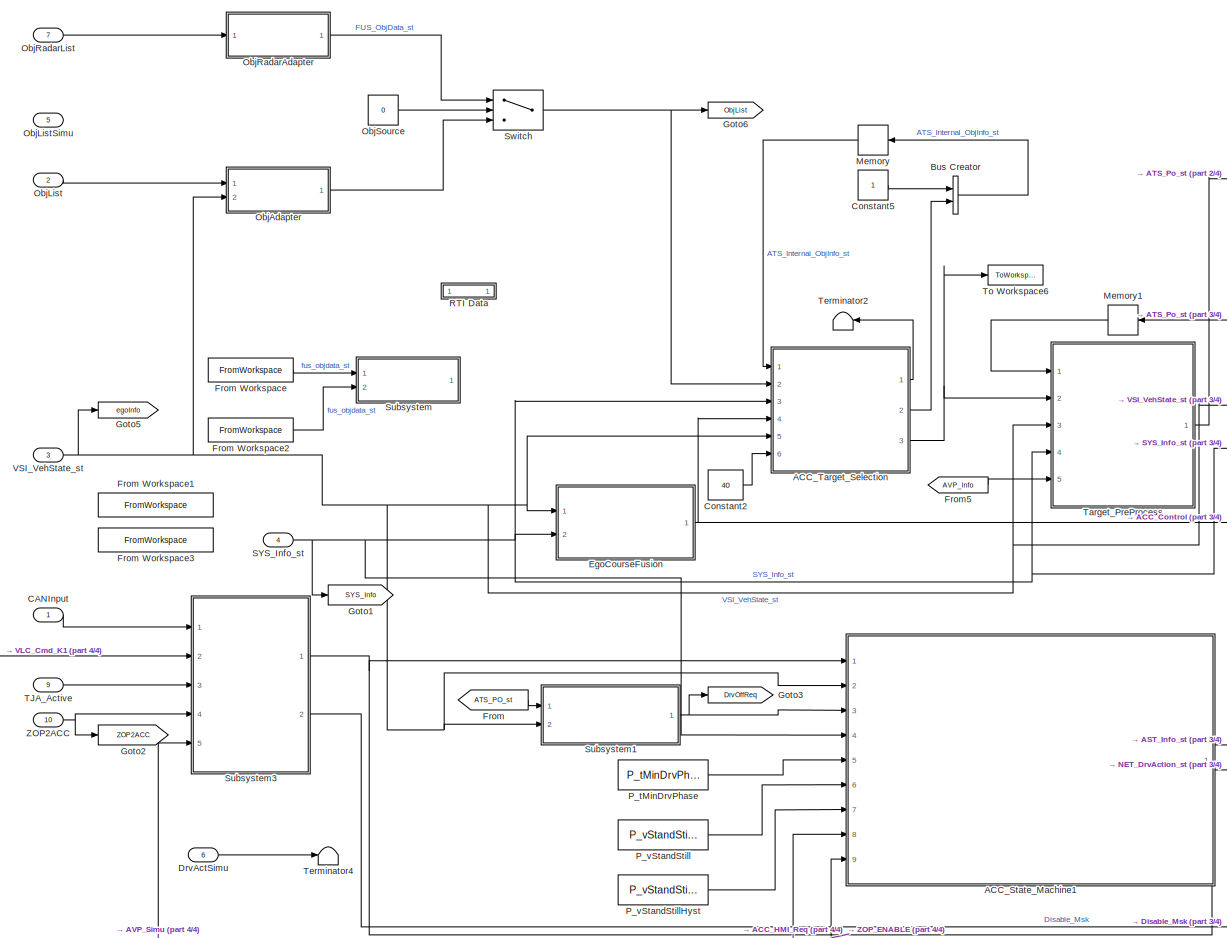
[diagram: root canvas - part 1/4, middle left region]
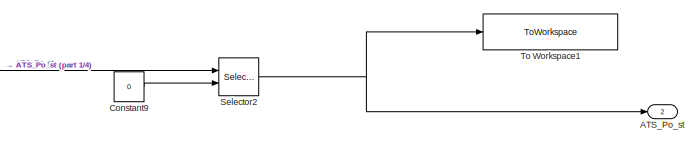
[diagram: root canvas - part 2/4, top right region]
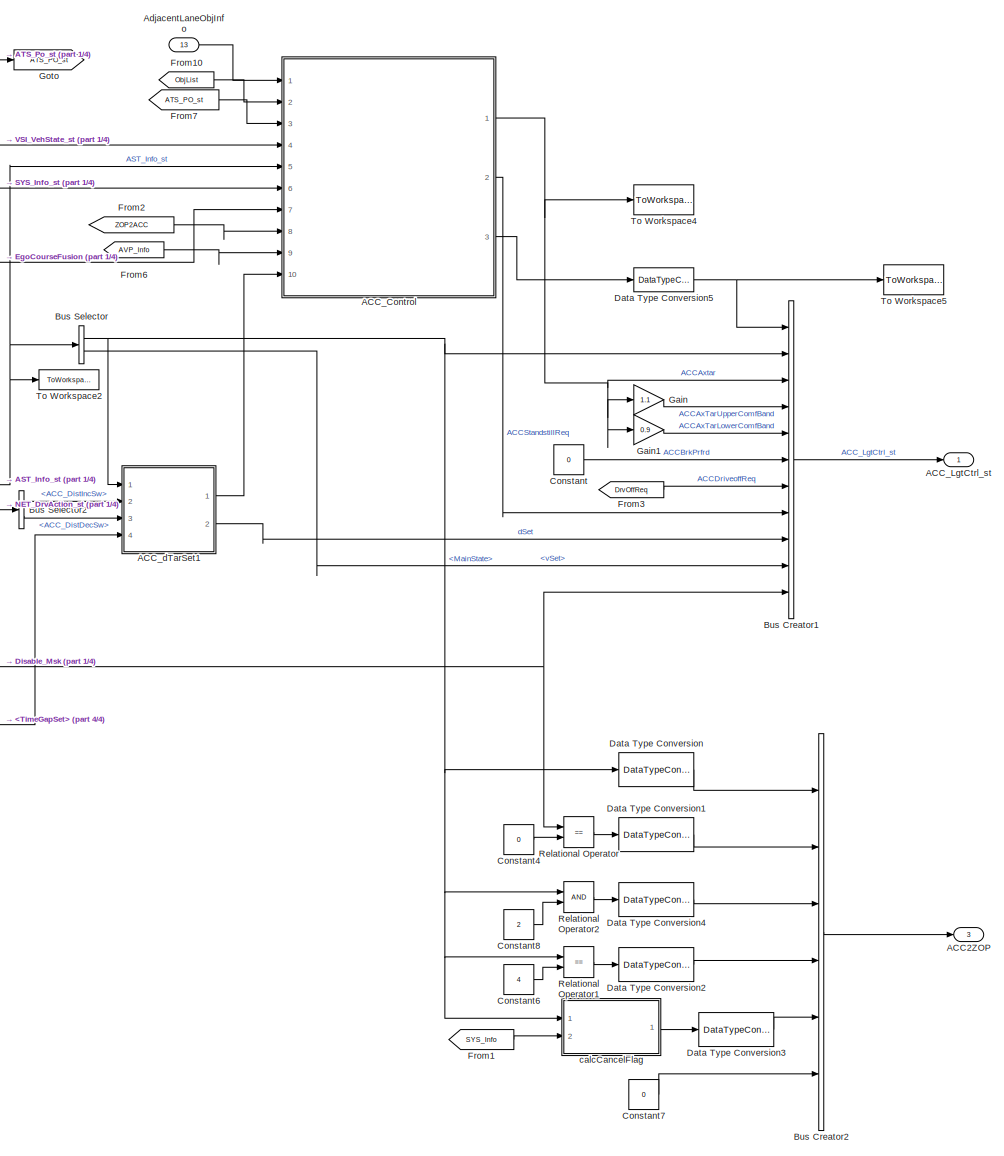
[diagram: root canvas - part 3/4, right side, full height]
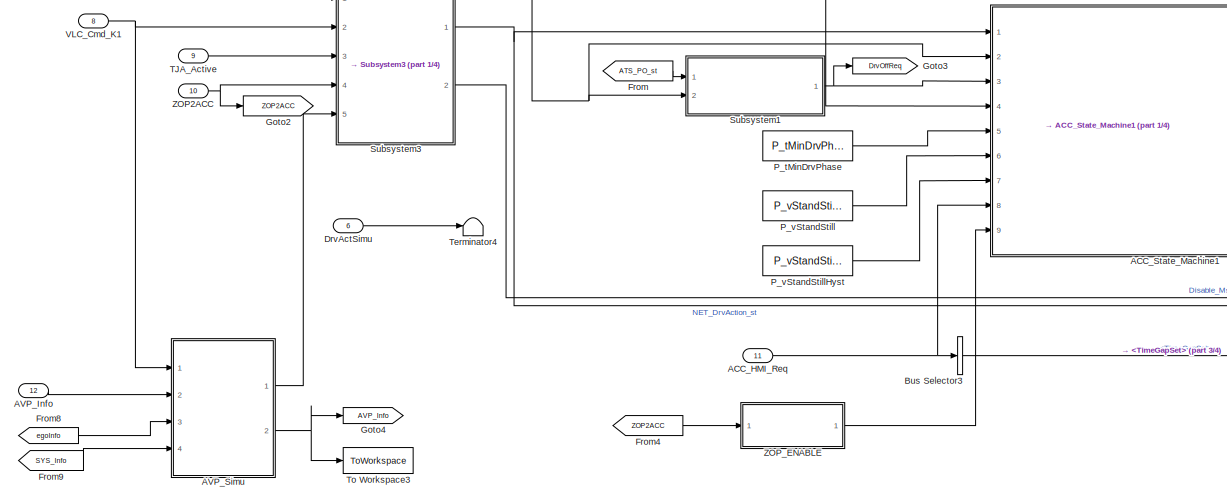
[diagram: root canvas - part 4/4, middle left region]
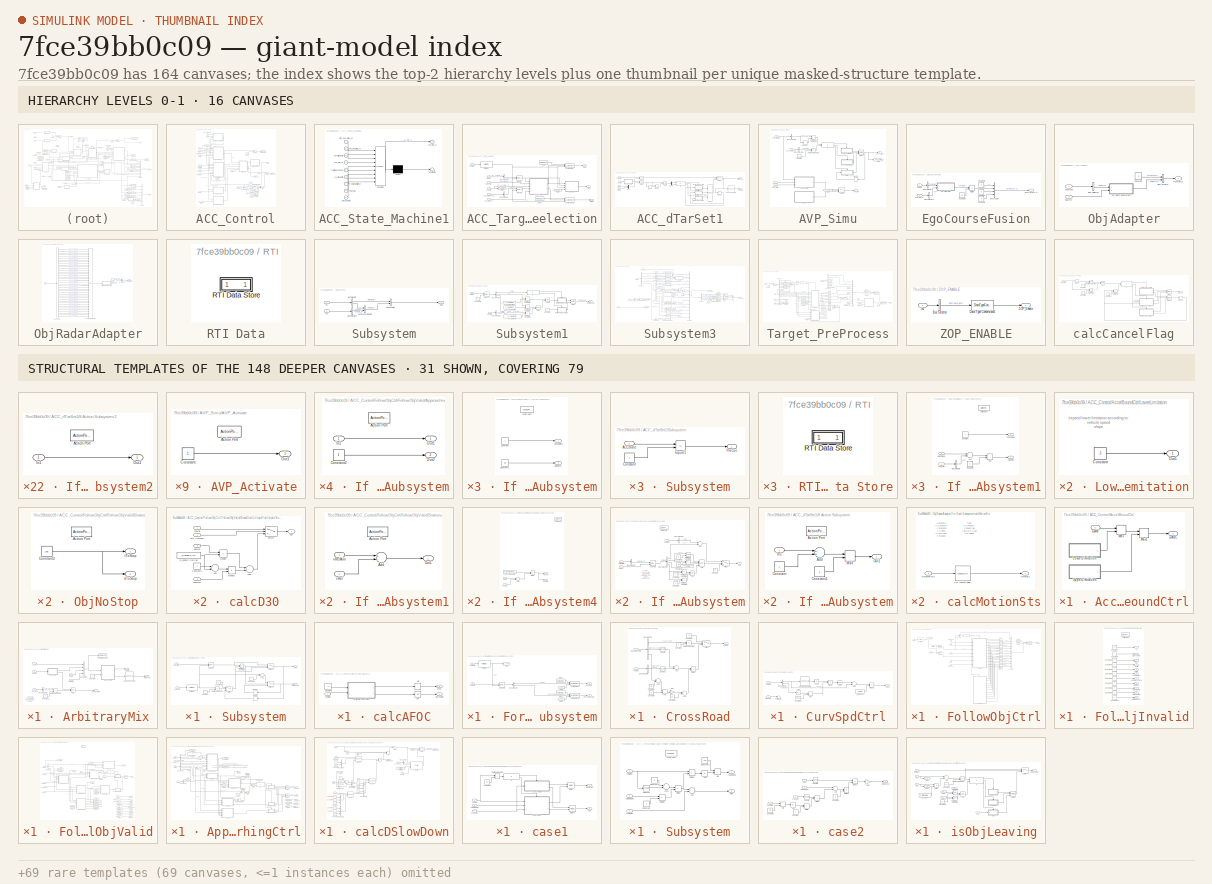
[diagram: thumbnail index - top-2 hierarchy levels (16 canvases) + 31 structural-template representatives of the remaining 148 canvases]
MODEL slx_7fce39bb0c09
KIND model
CONFIG AbsTol = auto
CONFIG EnableMultiTasking = off
CONFIG FixedStep = 0.01
CONFIG MaxStep = auto
CONFIG MinStep = auto
CONFIG PostLoadFcn = if any(exist('dsrtsu_mdlpostloadfcn', 'file') ~= 0), dsrtsu_mdlpostloadfcn('Execute', bdroot); end
CONFIG RelTol = 1e-3
CONFIG SampleTimeConstraint = Unconstrained
CONFIG Solver = FixedStepDiscrete
CONFIG SolverName = FixedStepDiscrete
CONFIG StartTime = 0.0
CONFIG StopTime = inf
BLOCK [Outport] ACC2ZOP
  BusOutputAsStruct = on
  IconDisplay = Port number
  OutDataTypeStr = Bus: ACC_Status_ST
  Port = 3
BLOCK [SubSystem] ACC_Control
  Ports = [10, 3]
  RequestExecContextInheritance = off
BLOCK [Logic] ACC_Control/AND
  AllPortsSameDT = off
  Inputs = 3
  OutDataTypeStr = boolean
  Ports = [3, 1]
BLOCK [Inport] ACC_Control/AVP_Info
  IconDisplay = Port number
  Port = 9
BLOCK [SubSystem] ACC_Control/AccelBoundCtrl
  Ports = [1, 1]
  RequestExecContextInheritance = off
BLOCK [SubSystem] ACC_Control/AccelBoundCtrl/LowerLimitation
  Ports = [0, 1]
  RequestExecContextInheritance = off
BLOCK [Constant] ACC_Control/AccelBoundCtrl/LowerLimitation/Constant
  OutDataTypeStr = single
  Value = -5
BLOCK [Outport] ACC_Control/AccelBoundCtrl/LowerLimitation/Out1
  IconDisplay = Port number
BLOCK [MinMax] ACC_Control/AccelBoundCtrl/Max
  Function = max
  InputSameDT = off
  Inputs = 2
  Ports = [2, 1]
  SaturateOnIntegerOverflow = off
BLOCK [MinMax] ACC_Control/AccelBoundCtrl/Max1
  InputSameDT = off
  Inputs = 2
  Ports = [2, 1]
  SaturateOnIntegerOverflow = off
BLOCK [SubSystem] ACC_Control/AccelBoundCtrl/UpperLimitation
  Ports = [0, 1]
  RequestExecContextInheritance = off
BLOCK [Constant] ACC_Control/AccelBoundCtrl/UpperLimitation/Constant
  OutDataTypeStr = single
  Value = 2
BLOCK [Outport] ACC_Control/AccelBoundCtrl/UpperLimitation/Out1
  IconDisplay = Port number
BLOCK [Outport] ACC_Control/AccelBoundCtrl/aABC
  IconDisplay = Port number
BLOCK [Inport] ACC_Control/AccelBoundCtrl/aAM
  IconDisplay = Port number
BLOCK [Inport] ACC_Control/AdjacentLaneObjInfo
  IconDisplay = Port number
BLOCK [SubSystem] ACC_Control/ArbitraryMix
  Ports = [5, 3]
  RequestExecContextInheritance = off
BLOCK [Lookup_n-D] ACC_Control/ArbitraryMix/1-D Lookup Table
  BreakpointsForDimension1 = [0,1,2,3,4,5]
  BreakpointsForDimension1FirstPoint = 10
  BreakpointsForDimension1Spacing = 12
  BreakpointsForDimension2FirstPoint = 10
  BreakpointsForDimension2Spacing = 12
  IndexSearchMethod = Evenly spaced points
  InternalRulePriority = Speed
  InterpMethod = Flat
  LookupTableObject = ''
  NumberOfTableDimensions = 1
  Ports = [1, 1]
  RndMeth = Simplest
  Table = [0,1,4,3,1,5]
BLOCK [Inport] ACC_Control/ArbitraryMix/AVP_Info
  IconDisplay = Port number
  Port = 5
BLOCK [BusCreator] ACC_Control/ArbitraryMix/Bus Creator
  DisplayOption = bar
  InheritFromInputs = on
  Inputs = 4
  Ports = [4, 1]
BLOCK [BusSelector] ACC_Control/ArbitraryMix/Bus Selector
  OutputAsBus = off
  OutputSignals = AVP_STATE
  Ports = [1, 1]
BLOCK [Outport] ACC_Control/ArbitraryMix/CMDType
  IconDisplay = Port number
  Port = 3
BLOCK [Constant] ACC_Control/ArbitraryMix/Constant
  OutDataTypeStr = int32
  Value = 4
BLOCK [Constant] ACC_Control/ArbitraryMix/Constant1
  OutDataTypeStr = uint8
  Value = 3
BLOCK [Outport] ACC_Control/ArbitraryMix/DecToStop
  IconDisplay = Port number
  Port = 2
BLOCK [Inport] ACC_Control/ArbitraryMix/FOCInfo
  IconDisplay = Port number
  Port = 2
BLOCK [Logic] ACC_Control/ArbitraryMix/OR
  AllPortsSameDT = off
  Operator = OR
  OutDataTypeStr = boolean
  Ports = [2, 1]
BLOCK [RelationalOperator] ACC_Control/ArbitraryMix/Relational Operator
  InputSameDT = off
  Operator = ==
  OutDataTypeStr = boolean
  Ports = [2, 1]
  RndMeth = Simplest
BLOCK [SubSystem] ACC_Control/ArbitraryMix/Subsystem
  Ports = [2, 2]
  RequestExecContextInheritance = off
BLOCK [Sum] ACC_Control/ArbitraryMix/Subsystem/Add
  InputSameDT = off
  OutDataTypeStr = Inherit: Inherit via internal rule
  Ports = [2, 1]
  SaturateOnIntegerOverflow = off
BLOCK [Outport] ACC_Control/ArbitraryMix/Subsystem/CMDType
  IconDisplay = Port number
  Port = 2
BLOCK [Constant] ACC_Control/ArbitraryMix/Subsystem/Constant
  OutDataTypeStr = int32
  Value = 0
BLOCK [Constant] ACC_Control/ArbitraryMix/Subsystem/Constant1
  OutDataTypeStr = single
  Value = 16
BLOCK [Constant] ACC_Control/ArbitraryMix/Subsystem/Constant2
  OutDataTypeStr = int32
BLOCK [ForIterator] ACC_Control/ArbitraryMix/Subsystem/For Iterator
  IndexMode = Zero-based
  IterationSource = external
  Ports = [1, 1]
BLOCK [Memory] ACC_Control/ArbitraryMix/Subsystem/Memory
  InheritSampleTime = on
BLOCK [Memory] ACC_Control/ArbitraryMix/Subsystem/Memory1
  InheritSampleTime = on
BLOCK [RelationalOperator] ACC_Control/ArbitraryMix/Subsystem/Relational Operator
  InputSameDT = off
  Operator = ==
  OutDataTypeStr = boolean
  Ports = [2, 1]
  RndMeth = Simplest
BLOCK [RelationalOperator] ACC_Control/ArbitraryMix/Subsystem/Relational Operator1
  InputSameDT = off
  Operator = <
  OutDataTypeStr = boolean
  Ports = [2, 1]
  RndMeth = Simplest
BLOCK [Selector] ACC_Control/ArbitraryMix/Subsystem/Selector
  IndexMode = Zero-based
  IndexOptions = Index vector (port)
  Indices = [1 3]
  InputPortWidth = 4
  OutputSizes = 1
  Ports = [2, 1]
BLOCK [Switch] ACC_Control/ArbitraryMix/Subsystem/Switch
  Criteria = u2 > Threshold
  InputSameDT = off
  SaturateOnIntegerOverflow = off
BLOCK [Switch] ACC_Control/ArbitraryMix/Subsystem/Switch1
  Criteria = u2 > Threshold
  InputSameDT = off
  SaturateOnIntegerOverflow = off
BLOCK [Switch] ACC_Control/ArbitraryMix/Subsystem/Switch2
  Criteria = u2 > Threshold
  InputSameDT = off
  SaturateOnIntegerOverflow = off
BLOCK [Inport] ACC_Control/ArbitraryMix/Subsystem/aCvArray
  IconDisplay = Port number
BLOCK [Outport] ACC_Control/ArbitraryMix/Subsystem/aMin
  IconDisplay = Port number
BLOCK [Inport] ACC_Control/ArbitraryMix/Subsystem/numASrc
  IconDisplay = Port number
  Port = 2
BLOCK [ToWorkspace] ACC_Control/ArbitraryMix/To Workspace5
  FixptAsFi = on
  MaxDataPoints = inf
  Ports = [1]
  SampleTime = -1
  Save2DSignal = 3-D array (concatenate along third dimension)
  SaveFormat = Timeseries
  VariableName = aCvArray
BLOCK [Outport] ACC_Control/ArbitraryMix/aAM
  IconDisplay = Port number
BLOCK [Inport] ACC_Control/ArbitraryMix/aCSC
  IconDisplay = Port number
  Port = 3
BLOCK [Inport] ACC_Control/ArbitraryMix/aRdCrs
  IconDisplay = Port number
  Port = 4
BLOCK [Inport] ACC_Control/ArbitraryMix/aSSC
  IconDisplay = Port number
BLOCK [SubSystem] ACC_Control/ArbitraryMix/calcAFOC
  Ports = [1, 2]
  RequestExecContextInheritance = off
BLOCK [Constant] ACC_Control/ArbitraryMix/calcAFOC/Constant2
  OutDataTypeStr = int32
  Value = 6
BLOCK [Outport] ACC_Control/ArbitraryMix/calcAFOC/DecToStop
  IconDisplay = Port number
  Port = 2
BLOCK [Inport] ACC_Control/ArbitraryMix/calcAFOC/FOCInfo
  IconDisplay = Port number
BLOCK [SubSystem] ACC_Control/ArbitraryMix/calcAFOC/For Iterator Subsystem
  Ports = [2, 2]
  RequestExecContextInheritance = off
  TreatAsAtomicUnit = on
BLOCK [Assignment] ACC_Control/ArbitraryMix/calcAFOC/For Iterator Subsystem/Assignment1
  DiagnosticForDimensions = Warning
  IndexMode = Zero-based
  IndexOptions = Index vector (port)
  Indices = 1
  OutputSizes = 1
  Ports = [3, 1]
BLOCK [Assignment] ACC_Control/ArbitraryMix/calcAFOC/For Iterator Subsystem/Assignment2
  DiagnosticForDimensions = Warning
  IndexMode = Zero-based
  IndexOptions = Index vector (port)
  Indices = 1
  OutputSizes = 1
  Ports = [3, 1]
BLOCK [BusSelector] ACC_Control/ArbitraryMix/calcAFOC/For Iterator Subsystem/Bus Selector
  OutputAsBus = off
  OutputSignals = aFOC,DecToStop
  Ports = [1, 2]
BLOCK [Outport] ACC_Control/ArbitraryMix/calcAFOC/For Iterator Subsystem/DecToStopArray
  IconDisplay = Port number
  Port = 2
BLOCK [Inport] ACC_Control/ArbitraryMix/calcAFOC/For Iterator Subsystem/FOCInfo
  IconDisplay = Port number
  Port = 2
BLOCK [ForIterator] ACC_Control/ArbitraryMix/calcAFOC/For Iterator Subsystem/For Iterator
  IndexMode = Zero-based
  IterationLimit = 2
  IterationSource = external
  Ports = [1, 1]
BLOCK [From] ACC_Control/ArbitraryMix/calcAFOC/For Iterator Subsystem/From
  GotoTag = i_cnt
BLOCK [From] ACC_Control/ArbitraryMix/calcAFOC/For Iterator Subsystem/From1
  GotoTag = i_cnt
BLOCK [Goto] ACC_Control/ArbitraryMix/calcAFOC/For Iterator Subsystem/Goto
  GotoTag = i_cnt
BLOCK [Selector] ACC_Control/ArbitraryMix/calcAFOC/For Iterator Subsystem/Selector2
  IndexMode = Zero-based
  IndexOptions = Index vector (port)
  Indices = [1 3]
  InputPortWidth = 6
  OutputSizes = 1
  Ports = [2, 1]
BLOCK [Constant] ACC_Control/ArbitraryMix/calcAFOC/For Iterator Subsystem/Zero1
  OutDataTypeStr = single
  Value = zeros(1,6)
BLOCK [Constant] ACC_Control/ArbitraryMix/calcAFOC/For Iterator Subsystem/Zero2
  OutDataTypeStr = boolean
  Value = zeros(1,6)
BLOCK [Outport] ACC_Control/ArbitraryMix/calcAFOC/For Iterator Subsystem/aFOCArray
  IconDisplay = Port number
BLOCK [Inport] ACC_Control/ArbitraryMix/calcAFOC/For Iterator Subsystem/numFOC
  IconDisplay = Port number
BLOCK [MinMax] ACC_Control/ArbitraryMix/calcAFOC/Min
  InputSameDT = off
  Ports = [1, 1]
  SaturateOnIntegerOverflow = off
BLOCK [Logic] ACC_Control/ArbitraryMix/calcAFOC/OR
  AllPortsSameDT = off
  Inputs = 1
  Operator = OR
  OutDataTypeStr = boolean
  Ports = [1, 1]
BLOCK [Outport] ACC_Control/ArbitraryMix/calcAFOC/aFOC
  IconDisplay = Port number
BLOCK [BusSelector] ACC_Control/Bus Selector
  OutputAsBus = off
  OutputSignals = case_num,light_des_spd,light_dist
  Ports = [1, 3]
BLOCK [Outport] ACC_Control/CMDType
  IconDisplay = Port number
  Port = 3
BLOCK [Constant] ACC_Control/Constant
  OutDataTypeStr = int8
  Value = 0
BLOCK [Constant] ACC_Control/Constant1
  OutDataTypeStr = int8
  Value = 0
BLOCK [Constant] ACC_Control/Constant2
  OutDataTypeStr = int8
  Value = 4.5
BLOCK [Constant] ACC_Control/Constant3
  OutDataTypeStr = int32
  Value = 6
BLOCK [Constant] ACC_Control/Constant9
  OutDataTypeStr = int32
  Value = 0
BLOCK [SubSystem] ACC_Control/CrossRoad
  Ports = [2, 1]
  RequestExecContextInheritance = off
BLOCK [Sum] ACC_Control/CrossRoad/Add
  InputSameDT = off
  Inputs = +-
  OutDataTypeStr = Inherit: Inherit via internal rule
  Ports = [2, 1]
  SaturateOnIntegerOverflow = off
BLOCK [Sum] ACC_Control/CrossRoad/Add1
  InputSameDT = off
  OutDataTypeStr = Inherit: Inherit via internal rule
  Ports = [2, 1]
  SaturateOnIntegerOverflow = off
BLOCK [Sum] ACC_Control/CrossRoad/Add2
  InputSameDT = off
  Inputs = +-
  OutDataTypeStr = Inherit: Inherit via internal rule
  Ports = [2, 1]
  SaturateOnIntegerOverflow = off
BLOCK [BusSelector] ACC_Control/CrossRoad/Bus Selector
  OutputAsBus = off
  OutputSignals = case_num,light_des_spd,light_dist
  Ports = [1, 3]
BLOCK [BusSelector] ACC_Control/CrossRoad/Bus Selector1
  OutputAsBus = off
  OutputSignals = vRef
  Ports = [1, 1]
BLOCK [Constant] ACC_Control/CrossRoad/Constant
  OutDataTypeStr = int8
  Value = 0
BLOCK [Constant] ACC_Control/CrossRoad/Constant1
  OutDataTypeStr = single
  Value = 16
BLOCK [Constant] ACC_Control/CrossRoad/Constant2
  OutDataTypeStr = single
  Value = 0.1
BLOCK [Constant] ACC_Control/CrossRoad/Constant3
  OutDataTypeStr = single
  Value = 0
BLOCK [Constant] ACC_Control/CrossRoad/Constant4
  OutDataTypeStr = single
  Value = 0.5
BLOCK [Product] ACC_Control/CrossRoad/Divide
  InputSameDT = off
  Inputs = */
  OutDataTypeStr = Inherit: Inherit via internal rule
  Ports = [2, 1]
  RndMeth = Floor
  SaturateOnIntegerOverflow = off
BLOCK [Gain] ACC_Control/CrossRoad/Gain
  Gain = 2
  OutDataTypeStr = Inherit: Inherit via internal rule
  ParamDataTypeStr = Inherit: Inherit via internal rule
  SaturateOnIntegerOverflow = off
BLOCK [MinMax] ACC_Control/CrossRoad/Max
  Function = max
  InputSameDT = off
  Inputs = 2
  Ports = [2, 1]
  SaturateOnIntegerOverflow = off
BLOCK [RelationalOperator] ACC_Control/CrossRoad/Relational Operator
  InputSameDT = off
  Operator = ==
  OutDataTypeStr = boolean
  Ports = [2, 1]
  RndMeth = Simplest
BLOCK [Inport] ACC_Control/CrossRoad/RoadCrossInfo
  IconDisplay = Port number
  Port = 2
BLOCK [Math] ACC_Control/CrossRoad/Square
  Operator = square
  Ports = [1, 1]
BLOCK [Math] ACC_Control/CrossRoad/Square1
  Operator = square
  Ports = [1, 1]
BLOCK [Switch] ACC_Control/CrossRoad/Switch
  Criteria = u2 > Threshold
  InputSameDT = off
  SaturateOnIntegerOverflow = off
BLOCK [Outport] ACC_Control/CrossRoad/aRdCrs
  IconDisplay = Port number
BLOCK [Inport] ACC_Control/CrossRoad/egoInfo
  IconDisplay = Port number
BLOCK [SubSystem] ACC_Control/CurvSpdCtrl
  Ports = [2, 1]
  RequestExecContextInheritance = off
BLOCK [Lookup_n-D] ACC_Control/CurvSpdCtrl/1-D Lookup Table
  BreakpointsForDimension1 = [3,10,20,30]
  BreakpointsForDimension1FirstPoint = 10
  BreakpointsForDimension1Spacing = 12
  BreakpointsForDimension2FirstPoint = 10
  BreakpointsForDimension2Spacing = 12
  ExtrapMethod = Clip
  IndexSearchMethod = Linear search
  InternalRulePriority = Speed
  LookupTableObject = ''
  NumberOfTableDimensions = 1
  Ports = [1, 1]
  RndMeth = Simplest
  Table = [1.6,1.4,1.2,0.9]
BLOCK [Abs] ACC_Control/CurvSpdCtrl/Abs
  SaturateOnIntegerOverflow = off
BLOCK [Abs] ACC_Control/CurvSpdCtrl/Abs1
  SaturateOnIntegerOverflow = off
BLOCK [Sum] ACC_Control/CurvSpdCtrl/Add
  InputSameDT = off
  Inputs = +-
  OutDataTypeStr = Inherit: Inherit via internal rule
  Ports = [2, 1]
  SaturateOnIntegerOverflow = off
BLOCK [BusSelector] ACC_Control/CurvSpdCtrl/Bus Selector
  OutputAsBus = off
  OutputSignals = vRef,Curvature
  Ports = [1, 2]
BLOCK [Constant] ACC_Control/CurvSpdCtrl/Constant1
  OutDataTypeStr = single
  Value = 0.0001
BLOCK [Product] ACC_Control/CurvSpdCtrl/Divide
  InputSameDT = off
  Inputs = */
  OutDataTypeStr = Inherit: Inherit via internal rule
  Ports = [2, 1]
  RndMeth = Floor
  SaturateOnIntegerOverflow = off
BLOCK [Product] ACC_Control/CurvSpdCtrl/Divide1
  InputSameDT = off
  Inputs = */
  OutDataTypeStr = Inherit: Inherit via internal rule
  Ports = [2, 1]
  RndMeth = Floor
  SaturateOnIntegerOverflow = off
BLOCK [Inport] ACC_Control/CurvSpdCtrl/EgoTraj
  IconDisplay = Port number
  Port = 2
BLOCK [MinMax] ACC_Control/CurvSpdCtrl/Max
  Function = max
  InputSameDT = off
  Inputs = 2
  Ports = [2, 1]
  SaturateOnIntegerOverflow = off
BLOCK [Constant] ACC_Control/CurvSpdCtrl/P_tSSCPos
  Value = P_tCSC
BLOCK [Sqrt] ACC_Control/CurvSpdCtrl/Sqrt
BLOCK [Terminator] ACC_Control/CurvSpdCtrl/Terminator
BLOCK [Outport] ACC_Control/CurvSpdCtrl/aCSC
  IconDisplay = Port number
BLOCK [Inport] ACC_Control/CurvSpdCtrl/egoInfo
  IconDisplay = Port number
BLOCK [Outport] ACC_Control/DecToStop 
  IconDisplay = Port number
  Port = 2
BLOCK [Inport] ACC_Control/EgoTraj
  IconDisplay = Port number
  Port = 7
BLOCK [SubSystem] ACC_Control/FollowObjCtrl
  Ports = [8, 1]
  RequestExecContextInheritance = off
BLOCK [Assignment] ACC_Control/FollowObjCtrl/Assignment1
  DiagnosticForDimensions = Warning
  IndexMode = Zero-based
  IndexOptions = Index vector (port)
  Indices = 1
  OutputSizes = 1
  Ports = [3, 1]
BLOCK [BusCreator] ACC_Control/FollowObjCtrl/Bus Creator
  DisplayOption = bar
  InheritFromInputs = off
  Inputs = 12
  NonVirtualBus = on
  OutDataTypeStr = Bus: ACC_FOC_INFO_ST
  Ports = [12, 1]
BLOCK [BusSelector] ACC_Control/FollowObjCtrl/Bus Selector
  OutputAsBus = off
  OutputSignals = Valid
  Ports = [1, 1]
BLOCK [Outport] ACC_Control/FollowObjCtrl/FOCInfo
  IconDisplay = Port number
BLOCK [Inport] ACC_Control/FollowObjCtrl/FOCInfoK1
  IconDisplay = Port number
  Port = 8
BLOCK [SubSystem] ACC_Control/FollowObjCtrl/FollowObjInvalid
  Ports = [0, 11, 0, 0, 0, 0, 0, 1]
  RequestExecContextInheritance = off
BLOCK [ActionPort] ACC_Control/FollowObjCtrl/FollowObjInvalid/Action Port
  ActionType = else
BLOCK [Outport] ACC_Control/FollowObjCtrl/FollowObjInvalid/ApproachCase
  IconDisplay = Port number
  InitialOutput = 0
  Port = 7
BLOCK [Constant] ACC_Control/FollowObjCtrl/FollowObjInvalid/Constant
  OutDataTypeStr = single
  Value = 16
BLOCK [Constant] ACC_Control/FollowObjCtrl/FollowObjInvalid/Constant1
  OutDataTypeStr = boolean
  Value = 0
BLOCK [Constant] ACC_Control/FollowObjCtrl/FollowObjInvalid/Constant10
  OutDataTypeStr = single
  Value = 0
BLOCK [Constant] ACC_Control/FollowObjCtrl/FollowObjInvalid/Constant2
  OutDataTypeStr = boolean
BLOCK [Constant] ACC_Control/FollowObjCtrl/FollowObjInvalid/Constant3
  OutDataTypeStr = single
  Value = 0
BLOCK [Constant] ACC_Control/FollowObjCtrl/FollowObjInvalid/Constant4
  OutDataTypeStr = single
  Value = 0
BLOCK [Constant] ACC_Control/FollowObjCtrl/FollowObjInvalid/Constant5
  OutDataTypeStr = single
  Value = 0
BLOCK [Constant] ACC_Control/FollowObjCtrl/FollowObjInvalid/Constant6
  OutDataTypeStr = single
  Value = 0
BLOCK [Constant] ACC_Control/FollowObjCtrl/FollowObjInvalid/Constant7
  OutDataTypeStr = single
  Value = 0
BLOCK [Constant] ACC_Control/FollowObjCtrl/FollowObjInvalid/Constant8
  OutDataTypeStr = single
  Value = 0
BLOCK [Constant] ACC_Control/FollowObjCtrl/FollowObjInvalid/Constant9
  OutDataTypeStr = boolean
  Value = 0
BLOCK [Outport] ACC_Control/FollowObjCtrl/FollowObjInvalid/DecToStop
  IconDisplay = Port number
  Port = 2
BLOCK [Outport] ACC_Control/FollowObjCtrl/FollowObjInvalid/FirstCyc
  IconDisplay = Port number
  InitialOutput = 0
  Port = 3
BLOCK [Outport] ACC_Control/FollowObjCtrl/FollowObjInvalid/ObjLeaving
  IconDisplay = Port number
  InitialOutput = 0
  Port = 10
BLOCK [Outport] ACC_Control/FollowObjCtrl/FollowObjInvalid/a
  IconDisplay = Port number
BLOCK [Outport] ACC_Control/FollowObjCtrl/FollowObjInvalid/aApproach
  IconDisplay = Port number
  InitialOutput = 0
  Port = 6
BLOCK [Outport] ACC_Control/FollowObjCtrl/FollowObjInvalid/aStat
  IconDisplay = Port number
  InitialOutput = 0
  Port = 5
BLOCK [Outport] ACC_Control/FollowObjCtrl/FollowObjInvalid/dAim
  IconDisplay = Port number
  InitialOutput = 0
  Port = 4
BLOCK [Outport] ACC_Control/FollowObjCtrl/FollowObjInvalid/dImmerseAdj
  IconDisplay = Port number
  InitialOutput = 0
  Port = 11
BLOCK [Outport] ACC_Control/FollowObjCtrl/FollowObjInvalid/dSlowDown
  IconDisplay = Port number
  InitialOutput = 0
  Port = 9
BLOCK [Outport] ACC_Control/FollowObjCtrl/FollowObjInvalid/tObjStop
  IconDisplay = Port number
  InitialOutput = 0
  Port = 8
BLOCK [SubSystem] ACC_Control/FollowObjCtrl/FollowObjValid
  Ports = [7, 11, 0, 0, 0, 0, 0, 1]
  RequestExecContextInheritance = off
BLOCK [Inport] ACC_Control/FollowObjCtrl/FollowObjValid/ATS_Po_st
  IconDisplay = Port number
  Port = 3
BLOCK [ActionPort] ACC_Control/FollowObjCtrl/FollowObjValid/Action Port
  ActionType = then
BLOCK [Outport] ACC_Control/FollowObjCtrl/FollowObjValid/ApproachCase
  IconDisplay = Port number
  InitialOutput = 0
  Port = 7
BLOCK [SubSystem] ACC_Control/FollowObjCtrl/FollowObjValid/ApproachingCtrl
  Ports = [5, 6]
  RequestExecContextInheritance = off
BLOCK [Sum] ACC_Control/FollowObjCtrl/FollowObjValid/ApproachingCtrl/Add
  InputSameDT = off
  OutDataTypeStr = Inherit: Inherit via internal rule
  Ports = [2, 1]
  SaturateOnIntegerOverflow = off
BLOCK [BusSelector] ACC_Control/FollowObjCtrl/FollowObjValid/ApproachingCtrl/Bus Selector
  OutputAsBus = off
  OutputSignals = vRef
  Ports = [1, 1]
BLOCK [BusSelector] ACC_Control/FollowObjCtrl/FollowObjValid/ApproachingCtrl/Bus Selector1
  OutputAsBus = off
  OutputSignals = dx,vx,axAbs,MotionSts,ax
  Ports = [1, 5]
BLOCK [BusSelector] ACC_Control/FollowObjCtrl/FollowObjValid/ApproachingCtrl/Bus Selector2
  OutputAsBus = off
  OutputSignals = ObjLeaving,dSlowDown,FirstCyc
  Ports = [1, 3]
BLOCK [Outport] ACC_Control/FollowObjCtrl/FollowObjValid/ApproachingCtrl/Case
  IconDisplay = Port number
  Port = 2
BLOCK [Constant] ACC_Control/FollowObjCtrl/FollowObjValid/ApproachingCtrl/Constant
  OutDataTypeStr = single
  Value = 0.1
BLOCK [Constant] ACC_Control/FollowObjCtrl/FollowObjValid/ApproachingCtrl/Constant1
  OutDataTypeStr = single
  Value = 0.1
BLOCK [Inport] ACC_Control/FollowObjCtrl/FollowObjValid/ApproachingCtrl/FOCInfoK1
  IconDisplay = Port number
  Port = 4
BLOCK [From] ACC_Control/FollowObjCtrl/FollowObjValid/ApproachingCtrl/From
  GotoTag = ax
BLOCK [From] ACC_Control/FollowObjCtrl/FollowObjValid/ApproachingCtrl/From1
  GotoTag = isFirstCyc
BLOCK [From] ACC_Control/FollowObjCtrl/FollowObjValid/ApproachingCtrl/From2
  GotoTag = vRef
BLOCK [From] ACC_Control/FollowObjCtrl/FollowObjValid/ApproachingCtrl/From3
  GotoTag = dSlowDown
BLOCK [From] ACC_Control/FollowObjCtrl/FollowObjValid/ApproachingCtrl/From4
  GotoTag = ObjLeaving
BLOCK [From] ACC_Control/FollowObjCtrl/FollowObjValid/ApproachingCtrl/From5
  GotoTag = ObjLevK1
BLOCK [From] ACC_Control/FollowObjCtrl/FollowObjValid/ApproachingCtrl/From6
  GotoTag = dImmerseAdj
BLOCK [Goto] ACC_Control/FollowObjCtrl/FollowObjValid/ApproachingCtrl/Goto
  GotoTag = ax
BLOCK [Goto] ACC_Control/FollowObjCtrl/FollowObjValid/ApproachingCtrl/Goto1
  GotoTag = isFirstCyc
BLOCK [Goto] ACC_Control/FollowObjCtrl/FollowObjValid/ApproachingCtrl/Goto2
  GotoTag = vRef
BLOCK [Goto] ACC_Control/FollowObjCtrl/FollowObjValid/ApproachingCtrl/Goto3
  GotoTag = dSlowDown
BLOCK [Goto] ACC_Control/FollowObjCtrl/FollowObjValid/ApproachingCtrl/Goto4
  GotoTag = ObjLeaving
BLOCK [Goto] ACC_Control/FollowObjCtrl/FollowObjValid/ApproachingCtrl/Goto5
  GotoTag = ObjLevK1
BLOCK [Goto] ACC_Control/FollowObjCtrl/FollowObjValid/ApproachingCtrl/Goto6
  GotoTag = dImmerseAdj
BLOCK [SubSystem] ACC_Control/FollowObjCtrl/FollowObjValid/ApproachingCtrl/If Action Subsystem
  Ports = [1, 2, 0, 0, 0, 0, 0, 1]
  RequestExecContextInheritance = off
  TreatAsAtomicUnit = on
BLOCK [ActionPort] ACC_Control/FollowObjCtrl/FollowObjValid/ApproachingCtrl/If Action Subsystem/Action Port
  ActionType = elseif
BLOCK [Constant] ACC_Control/FollowObjCtrl/FollowObjValid/ApproachingCtrl/If Action Subsystem/Constant2
  OutDataTypeStr = single
BLOCK [Inport] ACC_Control/FollowObjCtrl/FollowObjValid/ApproachingCtrl/If Action Subsystem/In1
  IconDisplay = Port number
BLOCK [Outport] ACC_Control/FollowObjCtrl/FollowObjValid/ApproachingCtrl/If Action Subsystem/Out1
  IconDisplay = Port number
BLOCK [Outport] ACC_Control/FollowObjCtrl/FollowObjValid/ApproachingCtrl/If Action Subsystem/Out2
  IconDisplay = Port number
  Port = 2
BLOCK [SubSystem] ACC_Control/FollowObjCtrl/FollowObjValid/ApproachingCtrl/If Action Subsystem2
  Ports = [0, 2, 0, 0, 0, 0, 0, 1]
  RequestExecContextInheritance = off
  TreatAsAtomicUnit = on
BLOCK [ActionPort] ACC_Control/FollowObjCtrl/FollowObjValid/ApproachingCtrl/If Action Subsystem2/Action Port
  ActionType = then
BLOCK [Constant] ACC_Control/FollowObjCtrl/FollowObjValid/ApproachingCtrl/If Action Subsystem2/Constant1
  OutDataTypeStr = single
  Value = 0
BLOCK [Constant] ACC_Control/FollowObjCtrl/FollowObjValid/ApproachingCtrl/If Action Subsystem2/Constant2
  OutDataTypeStr = single
  Value = 0
BLOCK [Outport] ACC_Control/FollowObjCtrl/FollowObjValid/ApproachingCtrl/If Action Subsystem2/Out1
  IconDisplay = Port number
BLOCK [Outport] ACC_Control/FollowObjCtrl/FollowObjValid/ApproachingCtrl/If Action Subsystem2/Out2
  IconDisplay = Port number
  Port = 2
BLOCK [SubSystem] ACC_Control/FollowObjCtrl/FollowObjValid/ApproachingCtrl/If Action Subsystem3
  Ports = [1, 2, 0, 0, 0, 0, 0, 1]
  RequestExecContextInheritance = off
  TreatAsAtomicUnit = on
BLOCK [ActionPort] ACC_Control/FollowObjCtrl/FollowObjValid/ApproachingCtrl/If Action Subsystem3/Action Port
  ActionType = else
BLOCK [Constant] ACC_Control/FollowObjCtrl/FollowObjValid/ApproachingCtrl/If Action Subsystem3/Constant2
  OutDataTypeStr = single
  Value = 2
BLOCK [Inport] ACC_Control/FollowObjCtrl/FollowObjValid/ApproachingCtrl/If Action Subsystem3/In1
  IconDisplay = Port number
BLOCK [Outport] ACC_Control/FollowObjCtrl/FollowObjValid/ApproachingCtrl/If Action Subsystem3/Out1
  IconDisplay = Port number
BLOCK [Outport] ACC_Control/FollowObjCtrl/FollowObjValid/ApproachingCtrl/If Action Subsystem3/Out2
  IconDisplay = Port number
  Port = 2
BLOCK [If] ACC_Control/FollowObjCtrl/FollowObjValid/ApproachingCtrl/If1
  ElseIfExpressions = u2 == 1
  IfExpression = u1 == 1
  NumInputs = 2
  Ports = [2, 3]
BLOCK [Merge] ACC_Control/FollowObjCtrl/FollowObjValid/ApproachingCtrl/Merge
  Inputs = 3
  Ports = [3, 1]
BLOCK [Merge] ACC_Control/FollowObjCtrl/FollowObjValid/ApproachingCtrl/Merge1
  Inputs = 3
  Ports = [3, 1]
BLOCK [Logic] ACC_Control/FollowObjCtrl/FollowObjValid/ApproachingCtrl/OR
  AllPortsSameDT = off
  Operator = OR
  OutDataTypeStr = boolean
  Ports = [2, 1]
BLOCK [Logic] ACC_Control/FollowObjCtrl/FollowObjValid/ApproachingCtrl/OR1
  AllPortsSameDT = off
  OutDataTypeStr = boolean
  Ports = [2, 1]
BLOCK [Outport] ACC_Control/FollowObjCtrl/FollowObjValid/ApproachingCtrl/ObjLeaving
  IconDisplay = Port number
  Port = 5
BLOCK [RelationalOperator] ACC_Control/FollowObjCtrl/FollowObjValid/ApproachingCtrl/Relational Operator
  InputSameDT = off
  Operator = >
  OutDataTypeStr = boolean
  Ports = [2, 1]
  RndMeth = Simplest
BLOCK [RelationalOperator] ACC_Control/FollowObjCtrl/FollowObjValid/ApproachingCtrl/Relational Operator1
  InputSameDT = off
  OutDataTypeStr = boolean
  Ports = [2, 1]
  RndMeth = Simplest
BLOCK [RelationalOperator] ACC_Control/FollowObjCtrl/FollowObjValid/ApproachingCtrl/Relational Operator3
  InputSameDT = off
  OutDataTypeStr = boolean
  Ports = [2, 1]
  RndMeth = Simplest
BLOCK [Inport] ACC_Control/FollowObjCtrl/FollowObjValid/ApproachingCtrl/SYS_Info_st
  IconDisplay = Port number
  Port = 5
BLOCK [Outport] ACC_Control/FollowObjCtrl/FollowObjValid/ApproachingCtrl/aApproach
  IconDisplay = Port number
BLOCK [SubSystem] ACC_Control/FollowObjCtrl/FollowObjValid/ApproachingCtrl/calcDSlowDown
  Ports = [8, 2]
  RequestExecContextInheritance = off
BLOCK [Product] ACC_Control/FollowObjCtrl/FollowObjValid/ApproachingCtrl/calcDSlowDown/ 
  InputSameDT = off
  OutDataTypeStr = Inherit: Inherit via internal rule
  Ports = [2, 1]
  RndMeth = Floor
  SaturateOnIntegerOverflow = off
BLOCK [Inport] ACC_Control/FollowObjCtrl/FollowObjValid/ApproachingCtrl/calcDSlowDown/<dx>
  IconDisplay = Port number
  Port = 5
BLOCK [Sum] ACC_Control/FollowObjCtrl/FollowObjValid/ApproachingCtrl/calcDSlowDown/Add1
  InputSameDT = off
  Inputs = +-
  OutDataTypeStr = Inherit: Inherit via internal rule
  Ports = [2, 1]
  SaturateOnIntegerOverflow = off
BLOCK [BusCreator] ACC_Control/FollowObjCtrl/FollowObjValid/ApproachingCtrl/calcDSlowDown/Bus Creator
  DisplayOption = bar
  InheritFromInputs = on
  Inputs = 2
  Ports = [2, 1]
BLOCK [BusCreator] ACC_Control/FollowObjCtrl/FollowObjValid/ApproachingCtrl/calcDSlowDown/Bus Creator1
  DisplayOption = bar
  InheritFromInputs = on
  Inputs = 2
  Ports = [2, 1]
BLOCK [BusCreator] ACC_Control/FollowObjCtrl/FollowObjValid/ApproachingCtrl/calcDSlowDown/Bus Creator2
  DisplayOption = bar
  InheritFromInputs = on
  Inputs = 3
  Ports = [3, 1]
BLOCK [BusCreator] ACC_Control/FollowObjCtrl/FollowObjValid/ApproachingCtrl/calcDSlowDown/Bus Creator3
  DisplayOption = bar
  InheritFromInputs = on
  Inputs = 3
  Ports = [3, 1]
BLOCK [BusCreator] ACC_Control/FollowObjCtrl/FollowObjValid/ApproachingCtrl/calcDSlowDown/Bus Creator4
  DisplayOption = bar
  InheritFromInputs = on
  Inputs = 2
  Ports = [2, 1]
BLOCK [BusCreator] ACC_Control/FollowObjCtrl/FollowObjValid/ApproachingCtrl/calcDSlowDown/Bus Creator5
  DisplayOption = bar
  InheritFromInputs = on
  Inputs = 2
  Ports = [2, 1]
BLOCK [BusSelector] ACC_Control/FollowObjCtrl/FollowObjValid/ApproachingCtrl/calcDSlowDown/Bus Selector
  OutputAsBus = off
  OutputSignals = dT
  Ports = [1, 1]
BLOCK [Constant] ACC_Control/FollowObjCtrl/FollowObjValid/ApproachingCtrl/calcDSlowDown/Constant
  OutDataTypeStr = single
  Value = 2
BLOCK [Constant] ACC_Control/FollowObjCtrl/FollowObjValid/ApproachingCtrl/calcDSlowDown/Constant1
  OutDataTypeStr = single
  Value = -10
BLOCK [Constant] ACC_Control/FollowObjCtrl/FollowObjValid/ApproachingCtrl/calcDSlowDown/Constant10
  OutDataTypeStr = single
  Value = 10
BLOCK [Constant] ACC_Control/FollowObjCtrl/FollowObjValid/ApproachingCtrl/calcDSlowDown/Constant12
  OutDataTypeStr = single
BLOCK [Constant] ACC_Control/FollowObjCtrl/FollowObjValid/ApproachingCtrl/calcDSlowDown/Constant2
  OutDataTypeStr = single
  Value = 20
BLOCK [Constant] ACC_Control/FollowObjCtrl/FollowObjValid/ApproachingCtrl/calcDSlowDown/Constant3
  OutDataTypeStr = single
  Value = 8
BLOCK [Constant] ACC_Control/FollowObjCtrl/FollowObjValid/ApproachingCtrl/calcDSlowDown/Constant4
  OutDataTypeStr = single
  Value = -5
BLOCK [Constant] ACC_Control/FollowObjCtrl/FollowObjValid/ApproachingCtrl/calcDSlowDown/Constant5
  OutDataTypeStr = single
  Value = 0
BLOCK [Constant] ACC_Control/FollowObjCtrl/FollowObjValid/ApproachingCtrl/calcDSlowDown/Constant6
  OutDataTypeStr = single
  Value = 1.3
BLOCK [Constant] ACC_Control/FollowObjCtrl/FollowObjValid/ApproachingCtrl/calcDSlowDown/Constant7
  OutDataTypeStr = single
  Value = 1.2
BLOCK [Constant] ACC_Control/FollowObjCtrl/FollowObjValid/ApproachingCtrl/calcDSlowDown/Constant8
  OutDataTypeStr = single
BLOCK [Constant] ACC_Control/FollowObjCtrl/FollowObjValid/ApproachingCtrl/calcDSlowDown/Constant9
  OutDataTypeStr = single
BLOCK [From] ACC_Control/FollowObjCtrl/FollowObjValid/ApproachingCtrl/calcDSlowDown/From
  GotoTag = dAim
BLOCK [Gain] ACC_Control/FollowObjCtrl/FollowObjValid/ApproachingCtrl/calcDSlowDown/Gain
  Gain = 0.8
  OutDataTypeStr = Inherit: Inherit via internal rule
  ParamDataTypeStr = Inherit: Inherit via internal rule
  SaturateOnIntegerOverflow = off
BLOCK [Goto] ACC_Control/FollowObjCtrl/FollowObjValid/ApproachingCtrl/calcDSlowDown/Goto
  GotoTag = dAim
BLOCK [Reference] ACC_Control/FollowObjCtrl/FollowObjValid/ApproachingCtrl/calcDSlowDown/LPFilter  REF=LPFilter/LPFilter
  Ports = [4, 1]
  SourceBlock = LPFilter/LPFilter
  SourceProductName = CustomLib
  SourceType = SubSystem
BLOCK [MinMax] ACC_Control/FollowObjCtrl/FollowObjValid/ApproachingCtrl/calcDSlowDown/Min
  InputSameDT = off
  Inputs = 3
  Ports = [3, 1]
  SaturateOnIntegerOverflow = off
BLOCK [MinMax] ACC_Control/FollowObjCtrl/FollowObjValid/ApproachingCtrl/calcDSlowDown/Min1
  InputSameDT = off
  Inputs = 2
  Ports = [2, 1]
  SaturateOnIntegerOverflow = off
BLOCK [Constant] ACC_Control/FollowObjCtrl/FollowObjValid/ApproachingCtrl/calcDSlowDown/P_tFiltDsd
  OutDataTypeStr = single
  Value = P_tFiltDsd
BLOCK [Inport] ACC_Control/FollowObjCtrl/FollowObjValid/ApproachingCtrl/calcDSlowDown/SYS_Info_st
  IconDisplay = Port number
  Port = 4
BLOCK [Switch] ACC_Control/FollowObjCtrl/FollowObjValid/ApproachingCtrl/calcDSlowDown/Switch
  Criteria = u2 > Threshold
  InputSameDT = off
  SaturateOnIntegerOverflow = off
BLOCK [Inport] ACC_Control/FollowObjCtrl/FollowObjValid/ApproachingCtrl/calcDSlowDown/dAim
  IconDisplay = Port number
  Port = 8
BLOCK [Reference] ACC_Control/FollowObjCtrl/FollowObjValid/ApproachingCtrl/calcDSlowDown/dImmerse  REF=simulink/Lookup
Tables/Lookup
Table
Dynamic
  Ports = [3, 1]
  SourceBlock = simulink/Lookup\nTables/Lookup\nTable\nDynamic
  SourceProductBaseCode = SL
  SourceProductName = Simulink
  SourceType = Lookup Table Dynamic
BLOCK [Outport] ACC_Control/FollowObjCtrl/FollowObjValid/ApproachingCtrl/calcDSlowDown/dImmerseAdj
  IconDisplay = Port number
  Port = 2
BLOCK [Outport] ACC_Control/FollowObjCtrl/FollowObjValid/ApproachingCtrl/calcDSlowDown/dSlowDown
  IconDisplay = Port number
BLOCK [Inport] ACC_Control/FollowObjCtrl/FollowObjValid/ApproachingCtrl/calcDSlowDown/dsdK1
  IconDisplay = Port number
BLOCK [Inport] ACC_Control/FollowObjCtrl/FollowObjValid/ApproachingCtrl/calcDSlowDown/isFirstCyc
  IconDisplay = Port number
  Port = 3
BLOCK [Gain] ACC_Control/FollowObjCtrl/FollowObjValid/ApproachingCtrl/calcDSlowDown/kImsHighSpd
  Gain = 0.2
  OutDataTypeStr = Inherit: Inherit via internal rule
  ParamDataTypeStr = Inherit: Inherit via internal rule
  SaturateOnIntegerOverflow = off
BLOCK [Gain] ACC_Control/FollowObjCtrl/FollowObjValid/ApproachingCtrl/calcDSlowDown/kImsLowSpd
  Gain = 0.6
  OutDataTypeStr = Inherit: Inherit via internal rule
  ParamDataTypeStr = Inherit: Inherit via internal rule
  SaturateOnIntegerOverflow = off
BLOCK [Reference] ACC_Control/FollowObjCtrl/FollowObjValid/ApproachingCtrl/calcDSlowDown/kVxRef  REF=simulink/Lookup
Tables/Lookup
Table
Dynamic
  Ports = [3, 1]
  SourceBlock = simulink/Lookup\nTables/Lookup\nTable\nDynamic
  SourceProductBaseCode = SL
  SourceProductName = Simulink
  SourceType = Lookup Table Dynamic
BLOCK [Reference] ACC_Control/FollowObjCtrl/FollowObjValid/ApproachingCtrl/calcDSlowDown/kVxRel  REF=simulink/Lookup
Tables/Lookup
Table
Dynamic
  Ports = [3, 1]
  SourceBlock = simulink/Lookup\nTables/Lookup\nTable\nDynamic
  SourceProductBaseCode = SL
  SourceProductName = Simulink
  SourceType = Lookup Table Dynamic
BLOCK [Inport] ACC_Control/FollowObjCtrl/FollowObjValid/ApproachingCtrl/calcDSlowDown/vAbsObj
  IconDisplay = Port number
  Port = 7
BLOCK [Inport] ACC_Control/FollowObjCtrl/FollowObjValid/ApproachingCtrl/calcDSlowDown/vRef
  IconDisplay = Port number
  Port = 2
BLOCK [Inport] ACC_Control/FollowObjCtrl/FollowObjValid/ApproachingCtrl/calcDSlowDown/vxRel
  IconDisplay = Port number
  Port = 6
BLOCK [SubSystem] ACC_Control/FollowObjCtrl/FollowObjValid/ApproachingCtrl/case1
  Ports = [3, 2]
  RequestExecContextInheritance = off
BLOCK [Constant] ACC_Control/FollowObjCtrl/FollowObjValid/ApproachingCtrl/case1/Constant2
  OutDataTypeStr = single
  Value = -0.1
BLOCK [If] ACC_Control/FollowObjCtrl/FollowObjValid/ApproachingCtrl/case1/If
  IfExpression = u1 == 1
  Ports = [1, 2]
BLOCK [Merge] ACC_Control/FollowObjCtrl/FollowObjValid/ApproachingCtrl/case1/Merge
  Ports = [2, 1]
BLOCK [Merge] ACC_Control/FollowObjCtrl/FollowObjValid/ApproachingCtrl/case1/Merge1
  Ports = [2, 1]
BLOCK [RelationalOperator] ACC_Control/FollowObjCtrl/FollowObjValid/ApproachingCtrl/case1/Relational Operator
  InputSameDT = off
  Operator = >
  OutDataTypeStr = boolean
  Ports = [2, 1]
  RndMeth = Simplest
BLOCK [SubSystem] ACC_Control/FollowObjCtrl/FollowObjValid/ApproachingCtrl/case1/Subsystem
  Ports = [3, 2, 0, 0, 0, 0, 0, 1]
  RequestExecContextInheritance = off
BLOCK [Abs] ACC_Control/FollowObjCtrl/FollowObjValid/ApproachingCtrl/case1/Subsystem/Abs
  SaturateOnIntegerOverflow = off
BLOCK [ActionPort] ACC_Control/FollowObjCtrl/FollowObjValid/ApproachingCtrl/case1/Subsystem/Action Port
  ActionType = else
BLOCK [Sum] ACC_Control/FollowObjCtrl/FollowObjValid/ApproachingCtrl/case1/Subsystem/Add
  InputSameDT = off
  OutDataTypeStr = Inherit: Inherit via internal rule
  Ports = [2, 1]
  SaturateOnIntegerOverflow = off
BLOCK [Sum] ACC_Control/FollowObjCtrl/FollowObjValid/ApproachingCtrl/case1/Subsystem/Add1
  InputSameDT = off
  Inputs = +-
  OutDataTypeStr = Inherit: Inherit via internal rule
  Ports = [2, 1]
  SaturateOnIntegerOverflow = off
BLOCK [Constant] ACC_Control/FollowObjCtrl/FollowObjValid/ApproachingCtrl/case1/Subsystem/Constant
  OutDataTypeStr = single
  Value = 2
BLOCK [Constant] ACC_Control/FollowObjCtrl/FollowObjValid/ApproachingCtrl/case1/Subsystem/Constant1
  OutDataTypeStr = single
  Value = 0
BLOCK [Constant] ACC_Control/FollowObjCtrl/FollowObjValid/ApproachingCtrl/case1/Subsystem/Constant2
  OutDataTypeStr = single
  Value = 255
BLOCK [Product] ACC_Control/FollowObjCtrl/FollowObjValid/ApproachingCtrl/case1/Subsystem/Divide
  InputSameDT = off
  Inputs = */
  OutDataTypeStr = Inherit: Inherit via internal rule
  Ports = [2, 1]
  RndMeth = Floor
  SaturateOnIntegerOverflow = off
BLOCK [Product] ACC_Control/FollowObjCtrl/FollowObjValid/ApproachingCtrl/case1/Subsystem/Divide1
  InputSameDT = off
  Inputs = */
  OutDataTypeStr = Inherit: Inherit via internal rule
  Ports = [2, 1]
  RndMeth = Floor
  SaturateOnIntegerOverflow = off
BLOCK [MinMax] ACC_Control/FollowObjCtrl/FollowObjValid/ApproachingCtrl/case1/Subsystem/Min
  InputSameDT = off
  Inputs = 2
  Ports = [2, 1]
  SaturateOnIntegerOverflow = off
BLOCK [Product] ACC_Control/FollowObjCtrl/FollowObjValid/ApproachingCtrl/case1/Subsystem/Multiply
  InputSameDT = off
  OutDataTypeStr = Inherit: Inherit via internal rule
  Ports = [2, 1]
  RndMeth = Floor
  SaturateOnIntegerOverflow = off
BLOCK [Math] ACC_Control/FollowObjCtrl/FollowObjValid/ApproachingCtrl/case1/Subsystem/Square1
  Operator = square
  Ports = [1, 1]
BLOCK [Inport] ACC_Control/FollowObjCtrl/FollowObjValid/ApproachingCtrl/case1/Subsystem/aAbsObj
  IconDisplay = Port number
  Port = 3
BLOCK [Outport] ACC_Control/FollowObjCtrl/FollowObjValid/ApproachingCtrl/case1/Subsystem/aRel
  IconDisplay = Port number
  Port = 2
BLOCK [Inport] ACC_Control/FollowObjCtrl/FollowObjValid/ApproachingCtrl/case1/Subsystem/dSlowDown
  IconDisplay = Port number
  Port = 2
BLOCK [Outport] ACC_Control/FollowObjCtrl/FollowObjValid/ApproachingCtrl/case1/Subsystem/tSameSpd
  IconDisplay = Port number
BLOCK [Inport] ACC_Control/FollowObjCtrl/FollowObjValid/ApproachingCtrl/case1/Subsystem/vObjRel
  IconDisplay = Port number
BLOCK [SubSystem] ACC_Control/FollowObjCtrl/FollowObjValid/ApproachingCtrl/case1/Subsystem1
  Ports = [1, 2, 0, 0, 0, 0, 0, 1]
  RequestExecContextInheritance = off
BLOCK [ActionPort] ACC_Control/FollowObjCtrl/FollowObjValid/ApproachingCtrl/case1/Subsystem1/Action Port
  ActionType = then
BLOCK [Constant] ACC_Control/FollowObjCtrl/FollowObjValid/ApproachingCtrl/case1/Subsystem1/Constant
  OutDataTypeStr = single
  Value = 255
BLOCK [Inport] ACC_Control/FollowObjCtrl/FollowObjValid/ApproachingCtrl/case1/Subsystem1/aAbsObj
  IconDisplay = Port number
BLOCK [Outport] ACC_Control/FollowObjCtrl/FollowObjValid/ApproachingCtrl/case1/Subsystem1/aRel
  IconDisplay = Port number
  Port = 2
BLOCK [Outport] ACC_Control/FollowObjCtrl/FollowObjValid/ApproachingCtrl/case1/Subsystem1/tSameSpd
  IconDisplay = Port number
BLOCK [Inport] ACC_Control/FollowObjCtrl/FollowObjValid/ApproachingCtrl/case1/aAbsObj
  IconDisplay = Port number
  Port = 3
BLOCK [Outport] ACC_Control/FollowObjCtrl/FollowObjValid/ApproachingCtrl/case1/aRel
  IconDisplay = Port number
  Port = 2
BLOCK [Inport] ACC_Control/FollowObjCtrl/FollowObjValid/ApproachingCtrl/case1/dSlowDown
  IconDisplay = Port number
  Port = 2
BLOCK [Outport] ACC_Control/FollowObjCtrl/FollowObjValid/ApproachingCtrl/case1/tSameSpd
  IconDisplay = Port number
BLOCK [Inport] ACC_Control/FollowObjCtrl/FollowObjValid/ApproachingCtrl/case1/vObjRel
  IconDisplay = Port number
BLOCK [SubSystem] ACC_Control/FollowObjCtrl/FollowObjValid/ApproachingCtrl/case2
  Ports = [4, 1]
  RequestExecContextInheritance = off
BLOCK [Abs] ACC_Control/FollowObjCtrl/FollowObjValid/ApproachingCtrl/case2/Abs
  SaturateOnIntegerOverflow = off
BLOCK [Sum] ACC_Control/FollowObjCtrl/FollowObjValid/ApproachingCtrl/case2/Add
  InputSameDT = off
  OutDataTypeStr = Inherit: Inherit via internal rule
  Ports = [2, 1]
  SaturateOnIntegerOverflow = off
BLOCK [Constant] ACC_Control/FollowObjCtrl/FollowObjValid/ApproachingCtrl/case2/Constant
  OutDataTypeStr = single
  Value = 2
BLOCK [Constant] ACC_Control/FollowObjCtrl/FollowObjValid/ApproachingCtrl/case2/Constant1
  OutDataTypeStr = single
  Value = 2
BLOCK [Constant] ACC_Control/FollowObjCtrl/FollowObjValid/ApproachingCtrl/case2/Constant2
  OutDataTypeStr = single
  Value = -0.1
BLOCK [Product] ACC_Control/FollowObjCtrl/FollowObjValid/ApproachingCtrl/case2/Divide
  InputSameDT = off
  Inputs = */
  OutDataTypeStr = Inherit: Inherit via internal rule
  Ports = [2, 1]
  RndMeth = Floor
  SaturateOnIntegerOverflow = off
BLOCK [Product] ACC_Control/FollowObjCtrl/FollowObjValid/ApproachingCtrl/case2/Divide1
  InputSameDT = off
  Inputs = */
  OutDataTypeStr = Inherit: Inherit via internal rule
  Ports = [2, 1]
  RndMeth = Floor
  SaturateOnIntegerOverflow = off
BLOCK [Gain] ACC_Control/FollowObjCtrl/FollowObjValid/ApproachingCtrl/case2/Gain
  Gain = -1
  OutDataTypeStr = Inherit: Inherit via internal rule
  ParamDataTypeStr = Inherit: Inherit via internal rule
  SaturateOnIntegerOverflow = off
BLOCK [MinMax] ACC_Control/FollowObjCtrl/FollowObjValid/ApproachingCtrl/case2/Min
  InputSameDT = off
  Inputs = 2
  Ports = [2, 1]
  SaturateOnIntegerOverflow = off
BLOCK [Product] ACC_Control/FollowObjCtrl/FollowObjValid/ApproachingCtrl/case2/Multiply
  InputSameDT = off
  OutDataTypeStr = Inherit: Inherit via internal rule
  Ports = [2, 1]
  RndMeth = Floor
  SaturateOnIntegerOverflow = off
BLOCK [Product] ACC_Control/FollowObjCtrl/FollowObjValid/ApproachingCtrl/case2/Multiply1
  InputSameDT = off
  OutDataTypeStr = Inherit: Inherit via internal rule
  Ports = [2, 1]
  RndMeth = Floor
  SaturateOnIntegerOverflow = off
BLOCK [Math] ACC_Control/FollowObjCtrl/FollowObjValid/ApproachingCtrl/case2/Square
  Operator = square
  Ports = [1, 1]
BLOCK [Math] ACC_Control/FollowObjCtrl/FollowObjValid/ApproachingCtrl/case2/Square1
  Operator = square
  Ports = [1, 1]
BLOCK [Inport] ACC_Control/FollowObjCtrl/FollowObjValid/ApproachingCtrl/case2/aAbsObj
  IconDisplay = Port number
  Port = 4
BLOCK [Outport] ACC_Control/FollowObjCtrl/FollowObjValid/ApproachingCtrl/case2/aRelCase2
  IconDisplay = Port number
BLOCK [Inport] ACC_Control/FollowObjCtrl/FollowObjValid/ApproachingCtrl/case2/dSlowDown
  IconDisplay = Port number
  Port = 3
BLOCK [Inport] ACC_Control/FollowObjCtrl/FollowObjValid/ApproachingCtrl/case2/vAbsObj
  IconDisplay = Port number
BLOCK [Inport] ACC_Control/FollowObjCtrl/FollowObjValid/ApproachingCtrl/case2/vRef
  IconDisplay = Port number
  Port = 2
BLOCK [Inport] ACC_Control/FollowObjCtrl/FollowObjValid/ApproachingCtrl/dAim
  IconDisplay = Port number
  Port = 3
BLOCK [Outport] ACC_Control/FollowObjCtrl/FollowObjValid/ApproachingCtrl/dImmerseAdj
  IconDisplay = Port number
  Port = 6
BLOCK [Outport] ACC_Control/FollowObjCtrl/FollowObjValid/ApproachingCtrl/dSlowDown
  IconDisplay = Port number
  Port = 4
BLOCK [Inport] ACC_Control/FollowObjCtrl/FollowObjValid/ApproachingCtrl/egoInfo
  IconDisplay = Port number
BLOCK [SubSystem] ACC_Control/FollowObjCtrl/FollowObjValid/ApproachingCtrl/isObjLeaving
  Ports = [4, 1]
  RequestExecContextInheritance = off
BLOCK [Logic] ACC_Control/FollowObjCtrl/FollowObjValid/ApproachingCtrl/isObjLeaving/AND
  AllPortsSameDT = off
  OutDataTypeStr = boolean
  Ports = [2, 1]
BLOCK [Sum] ACC_Control/FollowObjCtrl/FollowObjValid/ApproachingCtrl/isObjLeaving/Add
  InputSameDT = off
  OutDataTypeStr = Inherit: Inherit via internal rule
  Ports = [2, 1]
  SaturateOnIntegerOverflow = off
BLOCK [SubSystem] ACC_Control/FollowObjCtrl/FollowObjValid/ApproachingCtrl/isObjLeaving/Approaching
  Ports = [0, 1, 0, 0, 0, 0, 0, 1]
  RequestExecContextInheritance = off
  TreatAsAtomicUnit = on
BLOCK [ActionPort] ACC_Control/FollowObjCtrl/FollowObjValid/ApproachingCtrl/isObjLeaving/Approaching/Action Port
  ActionType = then
BLOCK [Constant] ACC_Control/FollowObjCtrl/FollowObjValid/ApproachingCtrl/isObjLeaving/Approaching/Constant
  OutDataTypeStr = boolean
  Value = 0
BLOCK [Outport] ACC_Control/FollowObjCtrl/FollowObjValid/ApproachingCtrl/isObjLeaving/Approaching/Out1
  IconDisplay = Port number
BLOCK [Constant] ACC_Control/FollowObjCtrl/FollowObjValid/ApproachingCtrl/isObjLeaving/Constant
  Value = P_tPredObjLeav
BLOCK [Constant] ACC_Control/FollowObjCtrl/FollowObjValid/ApproachingCtrl/isObjLeaving/Constant1
  Value = -0.2
BLOCK [Constant] ACC_Control/FollowObjCtrl/FollowObjValid/ApproachingCtrl/isObjLeaving/Constant2
  Value = 0.2
BLOCK [From] ACC_Control/FollowObjCtrl/FollowObjValid/ApproachingCtrl/isObjLeaving/From
  GotoTag = vx
BLOCK [From] ACC_Control/FollowObjCtrl/FollowObjValid/ApproachingCtrl/isObjLeaving/From1
  GotoTag = ax
BLOCK [Goto] ACC_Control/FollowObjCtrl/FollowObjValid/ApproachingCtrl/isObjLeaving/Goto
  GotoTag = vx
BLOCK [Goto] ACC_Control/FollowObjCtrl/FollowObjValid/ApproachingCtrl/isObjLeaving/Goto1
  GotoTag = ax
BLOCK [SubSystem] ACC_Control/FollowObjCtrl/FollowObjValid/ApproachingCtrl/isObjLeaving/Hold
  Ports = [1, 1, 0, 0, 0, 0, 0, 1]
  RequestExecContextInheritance = off
  TreatAsAtomicUnit = on
BLOCK [ActionPort] ACC_Control/FollowObjCtrl/FollowObjValid/ApproachingCtrl/isObjLeaving/Hold/Action Port
  ActionType = else
BLOCK [Inport] ACC_Control/FollowObjCtrl/FollowObjValid/ApproachingCtrl/isObjLeaving/Hold/In1
  IconDisplay = Port number
BLOCK [Outport] ACC_Control/FollowObjCtrl/FollowObjValid/ApproachingCtrl/isObjLeaving/Hold/Out1
  IconDisplay = Port number
BLOCK [If] ACC_Control/FollowObjCtrl/FollowObjValid/ApproachingCtrl/isObjLeaving/If
  ElseIfExpressions = u2 ==1
  IfExpression = u1 ==1
  NumInputs = 2
  Ports = [2, 3]
BLOCK [Inport] ACC_Control/FollowObjCtrl/FollowObjValid/ApproachingCtrl/isObjLeaving/K1
  IconDisplay = Port number
  Port = 4
BLOCK [SubSystem] ACC_Control/FollowObjCtrl/FollowObjValid/ApproachingCtrl/isObjLeaving/Leaving
  Ports = [0, 1, 0, 0, 0, 0, 0, 1]
  RequestExecContextInheritance = off
  TreatAsAtomicUnit = on
BLOCK [ActionPort] ACC_Control/FollowObjCtrl/FollowObjValid/ApproachingCtrl/isObjLeaving/Leaving/Action Port
  ActionType = elseif
BLOCK [Constant] ACC_Control/FollowObjCtrl/FollowObjValid/ApproachingCtrl/isObjLeaving/Leaving/Constant
  OutDataTypeStr = boolean
BLOCK [Outport] ACC_Control/FollowObjCtrl/FollowObjValid/ApproachingCtrl/isObjLeaving/Leaving/Out1
  IconDisplay = Port number
BLOCK [Merge] ACC_Control/FollowObjCtrl/FollowObjValid/ApproachingCtrl/isObjLeaving/Merge
  Inputs = 3
  Ports = [3, 1]
BLOCK [Product] ACC_Control/FollowObjCtrl/FollowObjValid/ApproachingCtrl/isObjLeaving/Multiply
  InputSameDT = off
  OutDataTypeStr = Inherit: Inherit via internal rule
  Ports = [2, 1]
  RndMeth = Floor
  SaturateOnIntegerOverflow = off
BLOCK [Outport] ACC_Control/FollowObjCtrl/FollowObjValid/ApproachingCtrl/isObjLeaving/ObjLeaving
  IconDisplay = Port number
BLOCK [RelationalOperator] ACC_Control/FollowObjCtrl/FollowObjValid/ApproachingCtrl/isObjLeaving/Relational Operator
  InputSameDT = off
  Operator = <=
  OutDataTypeStr = boolean
  Ports = [2, 1]
  RndMeth = Simplest
BLOCK [RelationalOperator] ACC_Control/FollowObjCtrl/FollowObjValid/ApproachingCtrl/isObjLeaving/Relational Operator1
  InputSameDT = off
  OutDataTypeStr = boolean
  Ports = [2, 1]
  RndMeth = Simplest
BLOCK [RelationalOperator] ACC_Control/FollowObjCtrl/FollowObjValid/ApproachingCtrl/isObjLeaving/Relational Operator2
  InputSameDT = off
  OutDataTypeStr = boolean
  Ports = [2, 1]
  RndMeth = Simplest
BLOCK [Switch] ACC_Control/FollowObjCtrl/FollowObjValid/ApproachingCtrl/isObjLeaving/Switch
  Criteria = u2 > Threshold
  InputSameDT = off
  SaturateOnIntegerOverflow = off
BLOCK [Inport] ACC_Control/FollowObjCtrl/FollowObjValid/ApproachingCtrl/isObjLeaving/ax
  IconDisplay = Port number
  Port = 3
BLOCK [Inport] ACC_Control/FollowObjCtrl/FollowObjValid/ApproachingCtrl/isObjLeaving/isFirstCyc
  IconDisplay = Port number
  Port = 2
BLOCK [Inport] ACC_Control/FollowObjCtrl/FollowObjValid/ApproachingCtrl/isObjLeaving/vx
  IconDisplay = Port number
BLOCK [Inport] ACC_Control/FollowObjCtrl/FollowObjValid/ApproachingCtrl/objInfo
  IconDisplay = Port number
  Port = 2
BLOCK [Outport] ACC_Control/FollowObjCtrl/FollowObjValid/ApproachingCtrl/tObjStop
  IconDisplay = Port number
  Port = 3
BLOCK [SubSystem] ACC_Control/FollowObjCtrl/FollowObjValid/ApproachingCtrl/tStopObj
  Ports = [3, 1]
  RequestExecContextInheritance = off
BLOCK [Abs] ACC_Control/FollowObjCtrl/FollowObjValid/ApproachingCtrl/tStopObj/Abs
  SaturateOnIntegerOverflow = off
BLOCK [Constant] ACC_Control/FollowObjCtrl/FollowObjValid/ApproachingCtrl/tStopObj/Constant
  OutDataTypeStr = single
  Value = 255
BLOCK [Constant] ACC_Control/FollowObjCtrl/FollowObjValid/ApproachingCtrl/tStopObj/Constant1
  OutDataTypeStr = single
  Value = -0.1
BLOCK [Constant] ACC_Control/FollowObjCtrl/FollowObjValid/ApproachingCtrl/tStopObj/Constant2
  OutDataTypeStr = single
BLOCK [Constant] ACC_Control/FollowObjCtrl/FollowObjValid/ApproachingCtrl/tStopObj/Constant3
  OutDataTypeStr = single
  Value = 4
BLOCK [Constant] ACC_Control/FollowObjCtrl/FollowObjValid/ApproachingCtrl/tStopObj/Constant4
  OutDataTypeStr = single
  Value = 0
BLOCK [Product] ACC_Control/FollowObjCtrl/FollowObjValid/ApproachingCtrl/tStopObj/Divide
  InputSameDT = off
  Inputs = */
  OutDataTypeStr = Inherit: Inherit via internal rule
  Ports = [2, 1]
  RndMeth = Floor
  SaturateOnIntegerOverflow = off
BLOCK [MinMax] ACC_Control/FollowObjCtrl/FollowObjValid/ApproachingCtrl/tStopObj/Min
  InputSameDT = off
  Inputs = 2
  Ports = [2, 1]
  SaturateOnIntegerOverflow = off
BLOCK [MinMax] ACC_Control/FollowObjCtrl/FollowObjValid/ApproachingCtrl/tStopObj/Min1
  InputSameDT = off
  Inputs = 2
  Ports = [2, 1]
  SaturateOnIntegerOverflow = off
BLOCK [Inport] ACC_Control/FollowObjCtrl/FollowObjValid/ApproachingCtrl/tStopObj/MotionSts
  IconDisplay = Port number
  Port = 2
BLOCK [Logic] ACC_Control/FollowObjCtrl/FollowObjValid/ApproachingCtrl/tStopObj/OR
  AllPortsSameDT = off
  Operator = OR
  OutDataTypeStr = boolean
  Ports = [2, 1]
BLOCK [RelationalOperator] ACC_Control/FollowObjCtrl/FollowObjValid/ApproachingCtrl/tStopObj/Relational Operator
  InputSameDT = off
  Operator = ==
  OutDataTypeStr = boolean
  Ports = [2, 1]
  RndMeth = Simplest
BLOCK [RelationalOperator] ACC_Control/FollowObjCtrl/FollowObjValid/ApproachingCtrl/tStopObj/Relational Operator1
  InputSameDT = off
  Operator = ==
  OutDataTypeStr = boolean
  Ports = [2, 1]
  RndMeth = Simplest
BLOCK [Switch] ACC_Control/FollowObjCtrl/FollowObjValid/ApproachingCtrl/tStopObj/Switch
  InputSameDT = off
  SaturateOnIntegerOverflow = off
  Threshold = 0.1
BLOCK [Switch] ACC_Control/FollowObjCtrl/FollowObjValid/ApproachingCtrl/tStopObj/Switch1
  InputSameDT = off
  SaturateOnIntegerOverflow = off
BLOCK [Inport] ACC_Control/FollowObjCtrl/FollowObjValid/ApproachingCtrl/tStopObj/aAbsObj
  IconDisplay = Port number
  Port = 3
BLOCK [Outport] ACC_Control/FollowObjCtrl/FollowObjValid/ApproachingCtrl/tStopObj/tStopObj
  IconDisplay = Port number
BLOCK [Inport] ACC_Control/FollowObjCtrl/FollowObjValid/ApproachingCtrl/tStopObj/vAbsObj
  IconDisplay = Port number
BLOCK [SubSystem] ACC_Control/FollowObjCtrl/FollowObjValid/BrakeDistCtrl
  Commented = on
  Ports = [4, 3]
  RequestExecContextInheritance = off
BLOCK [Outport] ACC_Control/FollowObjCtrl/FollowObjValid/BrakeDistCtrl/BDC_Acitve
  IconDisplay = Port number
BLOCK [Outport] ACC_Control/FollowObjCtrl/FollowObjValid/BrakeDistCtrl/BDC_State
  IconDisplay = Port number
  Port = 3
BLOCK [SubSystem] ACC_Control/FollowObjCtrl/FollowObjValid/BrakeDistCtrl/BDC_State_Machine
  ErrorFcn = Stateflow.Translate.translate
  PermitHierarchicalResolution = ExplicitOnly
  Ports = [6, 2]
  RequestExecContextInheritance = off
  SFBlockType = Chart
  TreatAsAtomicUnit = on
BLOCK [Demux] ACC_Control/FollowObjCtrl/FollowObjValid/BrakeDistCtrl/BDC_State_Machine/ Demux 
  Outputs = 1
  Ports = [1, 1]
BLOCK [S-Function] ACC_Control/FollowObjCtrl/FollowObjValid/BrakeDistCtrl/BDC_State_Machine/ SFunction 
  EnableBusSupport = on
  FunctionName = sf_sfun
  PortCounts = [6 3]
  Ports = [6, 3]
  SFcnIsStateOwnerBlock = off
  SFunctionDeploymentMode = off
  Tag = Stateflow S-Function AccTarSel 1
BLOCK [Terminator] ACC_Control/FollowObjCtrl/FollowObjValid/BrakeDistCtrl/BDC_State_Machine/ Terminator 
BLOCK [Outport] ACC_Control/FollowObjCtrl/FollowObjValid/BrakeDistCtrl/BDC_State_Machine/BDC_State
  IconDisplay = Port number
BLOCK [Inport] ACC_Control/FollowObjCtrl/FollowObjValid/BrakeDistCtrl/BDC_State_Machine/ObjToStop
  IconDisplay = Port number
BLOCK [Inport] ACC_Control/FollowObjCtrl/FollowObjValid/BrakeDistCtrl/BDC_State_Machine/ObjToStopTrig
  IconDisplay = Port number
  Port = 2
BLOCK [Inport] ACC_Control/FollowObjCtrl/FollowObjValid/BrakeDistCtrl/BDC_State_Machine/PreStop
  IconDisplay = Port number
  Port = 4
BLOCK [Inport] ACC_Control/FollowObjCtrl/FollowObjValid/BrakeDistCtrl/BDC_State_Machine/ProfileReCalc
  IconDisplay = Port number
  Port = 5
BLOCK [Inport] ACC_Control/FollowObjCtrl/FollowObjValid/BrakeDistCtrl/BDC_State_Machine/SYS_Info_st
  IconDisplay = Port number
  Port = 6
BLOCK [Inport] ACC_Control/FollowObjCtrl/FollowObjValid/BrakeDistCtrl/BDC_State_Machine/egoLowSpd
  IconDisplay = Port number
  Port = 3
BLOCK [Outport] ACC_Control/FollowObjCtrl/FollowObjValid/BrakeDistCtrl/BDC_State_Machine/tElapse
  IconDisplay = Port number
  Port = 2
BLOCK [BusCreator] ACC_Control/FollowObjCtrl/FollowObjValid/BrakeDistCtrl/Bus Creator
  DisplayOption = bar
  InheritFromInputs = on
  Inputs = 5
  Ports = [5, 1]
BLOCK [Memory] ACC_Control/FollowObjCtrl/FollowObjValid/BrakeDistCtrl/Memory
BLOCK [Memory] ACC_Control/FollowObjCtrl/FollowObjValid/BrakeDistCtrl/Memory1
BLOCK [Memory] ACC_Control/FollowObjCtrl/FollowObjValid/BrakeDistCtrl/Memory2
BLOCK [Inport] ACC_Control/FollowObjCtrl/FollowObjValid/BrakeDistCtrl/SYS_Info_st
  IconDisplay = Port number
  Port = 2
BLOCK [ToWorkspace] ACC_Control/FollowObjCtrl/FollowObjValid/BrakeDistCtrl/To Workspace
  FixptAsFi = on
  MaxDataPoints = inf
  Ports = [1]
  SampleTime = -1
  Save2DSignal = 3-D array (concatenate along third dimension)
  SaveFormat = Timeseries
  VariableName = simout
BLOCK [Outport] ACC_Control/FollowObjCtrl/FollowObjValid/BrakeDistCtrl/aBDC
  IconDisplay = Port number
  Port = 2
BLOCK [Inport] ACC_Control/FollowObjCtrl/FollowObjValid/BrakeDistCtrl/aCvK1
  IconDisplay = Port number
BLOCK [SubSystem] ACC_Control/FollowObjCtrl/FollowObjValid/BrakeDistCtrl/calcA
  Ports = [5, 2]
  RequestExecContextInheritance = off
BLOCK [Outport] ACC_Control/FollowObjCtrl/FollowObjValid/BrakeDistCtrl/calcA/BDC_Acitve
  IconDisplay = Port number
BLOCK [Constant] ACC_Control/FollowObjCtrl/FollowObjValid/BrakeDistCtrl/calcA/Constant1
  OutDataTypeStr = single
  Value = 3
BLOCK [Constant] ACC_Control/FollowObjCtrl/FollowObjValid/BrakeDistCtrl/calcA/Constant3
  OutDataTypeStr = single
  Value = 2
BLOCK [If] ACC_Control/FollowObjCtrl/FollowObjValid/BrakeDistCtrl/calcA/If
  IfExpression = u1 == 1
  Ports = [1, 2]
BLOCK [SubSystem] ACC_Control/FollowObjCtrl/FollowObjValid/BrakeDistCtrl/calcA/If Action Subsystem
  Ports = [4, 1, 0, 0, 0, 0, 0, 1]
  RequestExecContextInheritance = off
  TreatAsAtomicUnit = on
BLOCK [ActionPort] ACC_Control/FollowObjCtrl/FollowObjValid/BrakeDistCtrl/calcA/If Action Subsystem/Action Port
  ActionType = then
BLOCK [BusSelector] ACC_Control/FollowObjCtrl/FollowObjValid/BrakeDistCtrl/calcA/If Action Subsystem/Bus Selector
  OutputAsBus = off
  OutputSignals = T30,T,a0,adt1,aMax,adt2,SmoothStopCond,a0Raw
  Ports = [1, 8]
BLOCK [From] ACC_Control/FollowObjCtrl/FollowObjValid/BrakeDistCtrl/calcA/If Action Subsystem/From
  GotoTag = SmoothStopCond
BLOCK [From] ACC_Control/FollowObjCtrl/FollowObjValid/BrakeDistCtrl/calcA/If Action Subsystem/From1
  GotoTag = tElapse
BLOCK [From] ACC_Control/FollowObjCtrl/FollowObjValid/BrakeDistCtrl/calcA/If Action Subsystem/From2
  GotoTag = a0Raw
BLOCK [Goto] ACC_Control/FollowObjCtrl/FollowObjValid/BrakeDistCtrl/calcA/If Action Subsystem/Goto
  GotoTag = SmoothStopCond
  IconDisplay = Signal name
BLOCK [Goto] ACC_Control/FollowObjCtrl/FollowObjValid/BrakeDistCtrl/calcA/If Action Subsystem/Goto1
  GotoTag = tElapse
  IconDisplay = Signal name
BLOCK [Goto] ACC_Control/FollowObjCtrl/FollowObjValid/BrakeDistCtrl/calcA/If Action Subsystem/Goto2
  GotoTag = a0Raw
  IconDisplay = Signal name
BLOCK [If] ACC_Control/FollowObjCtrl/FollowObjValid/BrakeDistCtrl/calcA/If Action Subsystem/If
  ElseIfExpressions = u2 == 1
  IfExpression = u1 == 1
  NumInputs = 2
  Ports = [2, 3]
BLOCK [SubSystem] ACC_Control/FollowObjCtrl/FollowObjValid/BrakeDistCtrl/calcA/If Action Subsystem/If Action Subsystem
  Ports = [3, 1, 0, 0, 0, 0, 0, 1]
  RequestExecContextInheritance = off
  TreatAsAtomicUnit = on
BLOCK [ActionPort] ACC_Control/FollowObjCtrl/FollowObjValid/BrakeDistCtrl/calcA/If Action Subsystem/If Action Subsystem/Action Port
  ActionType = then
BLOCK [Sum] ACC_Control/FollowObjCtrl/FollowObjValid/BrakeDistCtrl/calcA/If Action Subsystem/If Action Subsystem/Add
  InputSameDT = off
  OutDataTypeStr = Inherit: Inherit via internal rule
  Ports = [2, 1]
  SaturateOnIntegerOverflow = off
BLOCK [Product] ACC_Control/FollowObjCtrl/FollowObjValid/BrakeDistCtrl/calcA/If Action Subsystem/If Action Subsystem/Multiply
  InputSameDT = off
  OutDataTypeStr = Inherit: Inherit via internal rule
  Ports = [2, 1]
  RndMeth = Floor
  SaturateOnIntegerOverflow = off
BLOCK [Outport] ACC_Control/FollowObjCtrl/FollowObjValid/BrakeDistCtrl/calcA/If Action Subsystem/If Action Subsystem/Out1
  IconDisplay = Port number
BLOCK [Inport] ACC_Control/FollowObjCtrl/FollowObjValid/BrakeDistCtrl/calcA/If Action Subsystem/If Action Subsystem/a0
  IconDisplay = Port number
  Port = 2
BLOCK [Inport] ACC_Control/FollowObjCtrl/FollowObjValid/BrakeDistCtrl/calcA/If Action Subsystem/If Action Subsystem/adt1
  IconDisplay = Port number
  Port = 3
BLOCK [Inport] ACC_Control/FollowObjCtrl/FollowObjValid/BrakeDistCtrl/calcA/If Action Subsystem/If Action Subsystem/t
  IconDisplay = Port number
BLOCK [SubSystem] ACC_Control/FollowObjCtrl/FollowObjValid/BrakeDistCtrl/calcA/If Action Subsystem/If Action Subsystem1
  Ports = [7, 1, 0, 0, 0, 0, 0, 1]
  RequestExecContextInheritance = off
  TreatAsAtomicUnit = on
BLOCK [ActionPort] ACC_Control/FollowObjCtrl/FollowObjValid/BrakeDistCtrl/calcA/If Action Subsystem/If Action Subsystem1/Action Port
  ActionType = elseif
BLOCK [Sum] ACC_Control/FollowObjCtrl/FollowObjValid/BrakeDistCtrl/calcA/If Action Subsystem/If Action Subsystem1/Add
  InputSameDT = off
  OutDataTypeStr = Inherit: Inherit via internal rule
  Ports = [2, 1]
  SaturateOnIntegerOverflow = off
BLOCK [Sum] ACC_Control/FollowObjCtrl/FollowObjValid/BrakeDistCtrl/calcA/If Action Subsystem/If Action Subsystem1/Add1
  InputSameDT = off
  Inputs = +-
  OutDataTypeStr = Inherit: Inherit via internal rule
  Ports = [2, 1]
  SaturateOnIntegerOverflow = off
BLOCK [BusSelector] ACC_Control/FollowObjCtrl/FollowObjValid/BrakeDistCtrl/calcA/If Action Subsystem/If Action Subsystem1/Bus Selector
  OutputAsBus = off
  OutputSignals = dT
  Ports = [1, 1]
BLOCK [Constant] ACC_Control/FollowObjCtrl/FollowObjValid/BrakeDistCtrl/calcA/If Action Subsystem/If Action Subsystem1/Constant
BLOCK [Constant] ACC_Control/FollowObjCtrl/FollowObjValid/BrakeDistCtrl/calcA/If Action Subsystem/If Action Subsystem1/Constant2
  OutDataTypeStr = single
  Value = 0
BLOCK [Reference] ACC_Control/FollowObjCtrl/FollowObjValid/BrakeDistCtrl/calcA/If Action Subsystem/If Action Subsystem1/LPFilter  REF=LPFilter/LPFilter
  Ports = [4, 1]
  SourceBlock = LPFilter/LPFilter
  SourceProductName = CustomLib
  SourceType = SubSystem
BLOCK [Reference] ACC_Control/FollowObjCtrl/FollowObjValid/BrakeDistCtrl/calcA/If Action Subsystem/If Action Subsystem1/LPFilter1  REF=LPFilter/LPFilter
  Ports = [4, 1]
  SourceBlock = LPFilter/LPFilter
  SourceProductName = CustomLib
  SourceType = SubSystem
BLOCK [Product] ACC_Control/FollowObjCtrl/FollowObjValid/BrakeDistCtrl/calcA/If Action Subsystem/If Action Subsystem1/Multiply
  InputSameDT = off
  OutDataTypeStr = Inherit: Inherit via internal rule
  Ports = [2, 1]
  RndMeth = Floor
  SaturateOnIntegerOverflow = off
BLOCK [Outport] ACC_Control/FollowObjCtrl/FollowObjValid/BrakeDistCtrl/calcA/If Action Subsystem/If Action Subsystem1/Out1
  IconDisplay = Port number
BLOCK [Constant] ACC_Control/FollowObjCtrl/FollowObjValid/BrakeDistCtrl/calcA/If Action Subsystem/If Action Subsystem1/P_tRollingFilt
  OutDataTypeStr = single
  Value = P_tRollingFilt
BLOCK [Constant] ACC_Control/FollowObjCtrl/FollowObjValid/BrakeDistCtrl/calcA/If Action Subsystem/If Action Subsystem1/P_tRollingFinFilt
  OutDataTypeStr = single
  Value = P_tRollingFinFilt
BLOCK [RelationalOperator] ACC_Control/FollowObjCtrl/FollowObjValid/BrakeDistCtrl/calcA/If Action Subsystem/If Action Subsystem1/Relational Operator
  InputSameDT = off
  Operator = >
  OutDataTypeStr = boolean
  Ports = [2, 1]
  RndMeth = Simplest
BLOCK [Inport] ACC_Control/FollowObjCtrl/FollowObjValid/BrakeDistCtrl/calcA/If Action Subsystem/If Action Subsystem1/SYS_Info_st
  IconDisplay = Port number
  Port = 7
BLOCK [Switch] ACC_Control/FollowObjCtrl/FollowObjValid/BrakeDistCtrl/calcA/If Action Subsystem/If Action Subsystem1/Switch
  Criteria = u2 > Threshold
  InputSameDT = off
  SaturateOnIntegerOverflow = off
BLOCK [Inport] ACC_Control/FollowObjCtrl/FollowObjValid/BrakeDistCtrl/calcA/If Action Subsystem/If Action Subsystem1/T30
  IconDisplay = Port number
  Port = 4
BLOCK [Inport] ACC_Control/FollowObjCtrl/FollowObjValid/BrakeDistCtrl/calcA/If Action Subsystem/If Action Subsystem1/aCharactK1
  IconDisplay = Port number
  Port = 6
BLOCK [Inport] ACC_Control/FollowObjCtrl/FollowObjValid/BrakeDistCtrl/calcA/If Action Subsystem/If Action Subsystem1/aMax
  IconDisplay = Port number
  Port = 2
BLOCK [Inport] ACC_Control/FollowObjCtrl/FollowObjValid/BrakeDistCtrl/calcA/If Action Subsystem/If Action Subsystem1/adt2
  IconDisplay = Port number
  Port = 3
BLOCK [Inport] ACC_Control/FollowObjCtrl/FollowObjValid/BrakeDistCtrl/calcA/If Action Subsystem/If Action Subsystem1/dRes
  IconDisplay = Port number
  Port = 5
BLOCK [Inport] ACC_Control/FollowObjCtrl/FollowObjValid/BrakeDistCtrl/calcA/If Action Subsystem/If Action Subsystem1/t
  IconDisplay = Port number
BLOCK [SubSystem] ACC_Control/FollowObjCtrl/FollowObjValid/BrakeDistCtrl/calcA/If Action Subsystem/If Action Subsystem2
  Ports = [0, 1, 0, 0, 0, 0, 0, 1]
  RequestExecContextInheritance = off
  TreatAsAtomicUnit = on
BLOCK [ActionPort] ACC_Control/FollowObjCtrl/FollowObjValid/BrakeDistCtrl/calcA/If Action Subsystem/If Action Subsystem2/Action Port
  ActionType = else
BLOCK [Constant] ACC_Control/FollowObjCtrl/FollowObjValid/BrakeDistCtrl/calcA/If Action Subsystem/If Action Subsystem2/Constant
  OutDataTypeStr = single
  Value = 0
BLOCK [Outport] ACC_Control/FollowObjCtrl/FollowObjValid/BrakeDistCtrl/calcA/If Action Subsystem/If Action Subsystem2/Out1
  IconDisplay = Port number
BLOCK [SubSystem] ACC_Control/FollowObjCtrl/FollowObjValid/BrakeDistCtrl/calcA/If Action Subsystem/If Action Subsystem3
  Ports = [1, 1, 0, 0, 0, 0, 0, 1]
  RequestExecContextInheritance = off
  TreatAsAtomicUnit = on
BLOCK [ActionPort] ACC_Control/FollowObjCtrl/FollowObjValid/BrakeDistCtrl/calcA/If Action Subsystem/If Action Subsystem3/Action Port
  ActionType = then
BLOCK [Inport] ACC_Control/FollowObjCtrl/FollowObjValid/BrakeDistCtrl/calcA/If Action Subsystem/If Action Subsystem3/In1
  IconDisplay = Port number
BLOCK [Outport] ACC_Control/FollowObjCtrl/FollowObjValid/BrakeDistCtrl/calcA/If Action Subsystem/If Action Subsystem3/Out1
  IconDisplay = Port number
BLOCK [If] ACC_Control/FollowObjCtrl/FollowObjValid/BrakeDistCtrl/calcA/If Action Subsystem/If1
  IfExpression = u1 == 1
  Ports = [1, 2]
BLOCK [Memory] ACC_Control/FollowObjCtrl/FollowObjValid/BrakeDistCtrl/calcA/If Action Subsystem/Memory
BLOCK [Memory] ACC_Control/FollowObjCtrl/FollowObjValid/BrakeDistCtrl/calcA/If Action Subsystem/Memory1
  InheritSampleTime = on
BLOCK [Merge] ACC_Control/FollowObjCtrl/FollowObjValid/BrakeDistCtrl/calcA/If Action Subsystem/Merge
  Inputs = 3
  Ports = [3, 1]
BLOCK [Merge] ACC_Control/FollowObjCtrl/FollowObjValid/BrakeDistCtrl/calcA/If Action Subsystem/Merge1
  Ports = [2, 1]
BLOCK [Outport] ACC_Control/FollowObjCtrl/FollowObjValid/BrakeDistCtrl/calcA/If Action Subsystem/Out1
  IconDisplay = Port number
BLOCK [Inport] ACC_Control/FollowObjCtrl/FollowObjValid/BrakeDistCtrl/calcA/If Action Subsystem/Profile
  IconDisplay = Port number
BLOCK [RelationalOperator] ACC_Control/FollowObjCtrl/FollowObjValid/BrakeDistCtrl/calcA/If Action Subsystem/Relational Operator
  InputSameDT = off
  Operator = <=
  OutDataTypeStr = boolean
  Ports = [2, 1]
  RndMeth = Simplest
BLOCK [RelationalOperator] ACC_Control/FollowObjCtrl/FollowObjValid/BrakeDistCtrl/calcA/If Action Subsystem/Relational Operator1
  InputSameDT = off
  Operator = <=
  OutDataTypeStr = boolean
  Ports = [2, 1]
  RndMeth = Simplest
BLOCK [Inport] ACC_Control/FollowObjCtrl/FollowObjValid/BrakeDistCtrl/calcA/If Action Subsystem/SYS_Info_st
  IconDisplay = Port number
  Port = 4
BLOCK [SubSystem] ACC_Control/FollowObjCtrl/FollowObjValid/BrakeDistCtrl/calcA/If Action Subsystem/Subsystem
  Ports = [5, 1, 0, 0, 0, 0, 0, 1]
  RequestExecContextInheritance = off
BLOCK [ActionPort] ACC_Control/FollowObjCtrl/FollowObjValid/BrakeDistCtrl/calcA/If Action Subsystem/Subsystem/Action Port
  ActionType = else
BLOCK [BusSelector] ACC_Control/FollowObjCtrl/FollowObjValid/BrakeDistCtrl/calcA/If Action Subsystem/Subsystem/Bus Selector
  OutputAsBus = off
  OutputSignals = dT
  Ports = [1, 1]
BLOCK [Reference] ACC_Control/FollowObjCtrl/FollowObjValid/BrakeDistCtrl/calcA/If Action Subsystem/Subsystem/LPFilter  REF=LPFilter/LPFilter
  Ports = [4, 1]
  SourceBlock = LPFilter/LPFilter
  SourceProductName = CustomLib
  SourceType = SubSystem
BLOCK [Outport] ACC_Control/FollowObjCtrl/FollowObjValid/BrakeDistCtrl/calcA/If Action Subsystem/Subsystem/Out1
  IconDisplay = Port number
BLOCK [Constant] ACC_Control/FollowObjCtrl/FollowObjValid/BrakeDistCtrl/calcA/If Action Subsystem/Subsystem/P_adtMaxBDC
  Value = P_adtMaxBDC
BLOCK [Constant] ACC_Control/FollowObjCtrl/FollowObjValid/BrakeDistCtrl/calcA/If Action Subsystem/Subsystem/P_tBDCStartFilt
  OutDataTypeStr = single
  Value = P_tBDCStartFilt
BLOCK [RelationalOperator] ACC_Control/FollowObjCtrl/FollowObjValid/BrakeDistCtrl/calcA/If Action Subsystem/Subsystem/Relational Operator
  InputSameDT = off
  Operator = <=
  OutDataTypeStr = boolean
  Ports = [2, 1]
  RndMeth = Simplest
BLOCK [Inport] ACC_Control/FollowObjCtrl/FollowObjValid/BrakeDistCtrl/calcA/If Action Subsystem/Subsystem/SYS_Info_st
  IconDisplay = Port number
  Port = 4
BLOCK [Switch] ACC_Control/FollowObjCtrl/FollowObjValid/BrakeDistCtrl/calcA/If Action Subsystem/Subsystem/Switch
  Criteria = u2 > Threshold
  InputSameDT = off
  SaturateOnIntegerOverflow = off
BLOCK [Terminator] ACC_Control/FollowObjCtrl/FollowObjValid/BrakeDistCtrl/calcA/If Action Subsystem/Subsystem/Terminator
BLOCK [Inport] ACC_Control/FollowObjCtrl/FollowObjValid/BrakeDistCtrl/calcA/If Action Subsystem/Subsystem/a0Raw
  IconDisplay = Port number
  Port = 2
BLOCK [Inport] ACC_Control/FollowObjCtrl/FollowObjValid/BrakeDistCtrl/calcA/If Action Subsystem/Subsystem/aBDCK1
  IconDisplay = Port number
  Port = 5
BLOCK [Inport] ACC_Control/FollowObjCtrl/FollowObjValid/BrakeDistCtrl/calcA/If Action Subsystem/Subsystem/aCharact
  IconDisplay = Port number
BLOCK [Inport] ACC_Control/FollowObjCtrl/FollowObjValid/BrakeDistCtrl/calcA/If Action Subsystem/Subsystem/tElapse
  IconDisplay = Port number
  Port = 3
BLOCK [Inport] ACC_Control/FollowObjCtrl/FollowObjValid/BrakeDistCtrl/calcA/If Action Subsystem/dRes
  IconDisplay = Port number
  Port = 3
BLOCK [Inport] ACC_Control/FollowObjCtrl/FollowObjValid/BrakeDistCtrl/calcA/If Action Subsystem/tElapse
  IconDisplay = Port number
  Port = 2
BLOCK [SubSystem] ACC_Control/FollowObjCtrl/FollowObjValid/BrakeDistCtrl/calcA/If Action Subsystem1
  Ports = [0, 1, 0, 0, 0, 0, 0, 1]
  RequestExecContextInheritance = off
  TreatAsAtomicUnit = on
BLOCK [ActionPort] ACC_Control/FollowObjCtrl/FollowObjValid/BrakeDistCtrl/calcA/If Action Subsystem1/Action Port
  ActionType = else
BLOCK [Constant] ACC_Control/FollowObjCtrl/FollowObjValid/BrakeDistCtrl/calcA/If Action Subsystem1/Constant
  OutDataTypeStr = single
  Value = 0
BLOCK [Outport] ACC_Control/FollowObjCtrl/FollowObjValid/BrakeDistCtrl/calcA/If Action Subsystem1/Out1
  IconDisplay = Port number
BLOCK [Merge] ACC_Control/FollowObjCtrl/FollowObjValid/BrakeDistCtrl/calcA/Merge
  Ports = [2, 1]
BLOCK [Logic] ACC_Control/FollowObjCtrl/FollowObjValid/BrakeDistCtrl/calcA/OR
  AllPortsSameDT = off
  Operator = OR
  OutDataTypeStr = boolean
  Ports = [2, 1]
BLOCK [Inport] ACC_Control/FollowObjCtrl/FollowObjValid/BrakeDistCtrl/calcA/Profile
  IconDisplay = Port number
  Port = 2
BLOCK [RelationalOperator] ACC_Control/FollowObjCtrl/FollowObjValid/BrakeDistCtrl/calcA/Relational Operator
  InputSameDT = off
  Operator = ==
  OutDataTypeStr = boolean
  Ports = [2, 1]
  RndMeth = Simplest
BLOCK [RelationalOperator] ACC_Control/FollowObjCtrl/FollowObjValid/BrakeDistCtrl/calcA/Relational Operator1
  InputSameDT = off
  Operator = ==
  OutDataTypeStr = boolean
  Ports = [2, 1]
  RndMeth = Simplest
BLOCK [Inport] ACC_Control/FollowObjCtrl/FollowObjValid/BrakeDistCtrl/calcA/SYS_Info_st
  IconDisplay = Port number
  Port = 5
BLOCK [Inport] ACC_Control/FollowObjCtrl/FollowObjValid/BrakeDistCtrl/calcA/State
  IconDisplay = Port number
BLOCK [Outport] ACC_Control/FollowObjCtrl/FollowObjValid/BrakeDistCtrl/calcA/a_BDC
  IconDisplay = Port number
  Port = 2
BLOCK [Inport] ACC_Control/FollowObjCtrl/FollowObjValid/BrakeDistCtrl/calcA/dRes
  IconDisplay = Port number
  Port = 4
BLOCK [Inport] ACC_Control/FollowObjCtrl/FollowObjValid/BrakeDistCtrl/calcA/tElapse
  IconDisplay = Port number
  Port = 3
BLOCK [SubSystem] ACC_Control/FollowObjCtrl/FollowObjValid/BrakeDistCtrl/calcCriteria
  Ports = [5, 7]
  RequestExecContextInheritance = off
BLOCK [Sum] ACC_Control/FollowObjCtrl/FollowObjValid/BrakeDistCtrl/calcCriteria/Add
  InputSameDT = off
  OutDataTypeStr = Inherit: Inherit via internal rule
  Ports = [2, 1]
  SaturateOnIntegerOverflow = off
BLOCK [Inport] ACC_Control/FollowObjCtrl/FollowObjValid/BrakeDistCtrl/calcCriteria/BDC_StateK1
  IconDisplay = Port number
  Port = 2
BLOCK [BusSelector] ACC_Control/FollowObjCtrl/FollowObjValid/BrakeDistCtrl/calcCriteria/Bus Selector
  OutputAsBus = off
  OutputSignals = vRef,aRef
  Ports = [1, 2]
BLOCK [BusSelector] ACC_Control/FollowObjCtrl/FollowObjValid/BrakeDistCtrl/calcCriteria/Bus Selector1
  OutputAsBus = off
  OutputSignals = vx,axAbs,dx
  Ports = [1, 3]
BLOCK [Outport] ACC_Control/FollowObjCtrl/FollowObjValid/BrakeDistCtrl/calcCriteria/ObjToStop
  IconDisplay = Port number
BLOCK [Outport] ACC_Control/FollowObjCtrl/FollowObjValid/BrakeDistCtrl/calcCriteria/ObjToStopTrig
  IconDisplay = Port number
  Port = 2
BLOCK [Constant] ACC_Control/FollowObjCtrl/FollowObjValid/BrakeDistCtrl/calcCriteria/P_vEgoLowBDC
  OutDataTypeStr = single
  Value = P_vEgoLowBDC
BLOCK [Outport] ACC_Control/FollowObjCtrl/FollowObjValid/BrakeDistCtrl/calcCriteria/PreStop
  IconDisplay = Port number
  Port = 4
BLOCK [Inport] ACC_Control/FollowObjCtrl/FollowObjValid/BrakeDistCtrl/calcCriteria/ProfileK1
  IconDisplay = Port number
  Port = 3
BLOCK [Outport] ACC_Control/FollowObjCtrl/FollowObjValid/BrakeDistCtrl/calcCriteria/ProfileReCalc
  IconDisplay = Port number
  Port = 5
BLOCK [RelationalOperator] ACC_Control/FollowObjCtrl/FollowObjValid/BrakeDistCtrl/calcCriteria/Relational Operator2
  InputSameDT = off
  Operator = <
  OutDataTypeStr = boolean
  Ports = [2, 1]
  RndMeth = Simplest
BLOCK [SubSystem] ACC_Control/FollowObjCtrl/FollowObjValid/BrakeDistCtrl/calcCriteria/calcObjStop
  Ports = [3, 3]
  RequestExecContextInheritance = off
BLOCK [Logic] ACC_Control/FollowObjCtrl/FollowObjValid/BrakeDistCtrl/calcCriteria/calcObjStop/AND
  AllPortsSameDT = off
  OutDataTypeStr = boolean
  Ports = [2, 1]
BLOCK [Inport] ACC_Control/FollowObjCtrl/FollowObjValid/BrakeDistCtrl/calcCriteria/calcObjStop/BDC_StateK1
  IconDisplay = Port number
  Port = 3
BLOCK [BusCreator] ACC_Control/FollowObjCtrl/FollowObjValid/BrakeDistCtrl/calcCriteria/calcObjStop/Bus Creator
  DisplayOption = bar
  InheritFromInputs = on
  Inputs = 3
  Ports = [3, 1]
BLOCK [Constant] ACC_Control/FollowObjCtrl/FollowObjValid/BrakeDistCtrl/calcCriteria/calcObjStop/Constant6
  OutDataTypeStr = single
  Value = 0.5
BLOCK [If] ACC_Control/FollowObjCtrl/FollowObjValid/BrakeDistCtrl/calcCriteria/calcObjStop/If
  ElseIfExpressions = u2 == 1
  IfExpression = u1 == 1
  NumInputs = 2
  Ports = [2, 3]
BLOCK [Merge] ACC_Control/FollowObjCtrl/FollowObjValid/BrakeDistCtrl/calcCriteria/calcObjStop/Merge
  Inputs = 3
  Ports = [3, 1]
BLOCK [Merge] ACC_Control/FollowObjCtrl/FollowObjValid/BrakeDistCtrl/calcCriteria/calcObjStop/Merge1
  Inputs = 3
  Ports = [3, 1]
BLOCK [SubSystem] ACC_Control/FollowObjCtrl/FollowObjValid/BrakeDistCtrl/calcCriteria/calcObjStop/ObjNoStop
  Ports = [0, 2, 0, 0, 0, 0, 0, 1]
  RequestExecContextInheritance = off
  TreatAsAtomicUnit = on
BLOCK [ActionPort] ACC_Control/FollowObjCtrl/FollowObjValid/BrakeDistCtrl/calcCriteria/calcObjStop/ObjNoStop/Action Port
  ActionType = then
BLOCK [Constant] ACC_Control/FollowObjCtrl/FollowObjValid/BrakeDistCtrl/calcCriteria/calcObjStop/ObjNoStop/Constant2
  OutDataTypeStr = single
  Value = 255
BLOCK [Outport] ACC_Control/FollowObjCtrl/FollowObjValid/BrakeDistCtrl/calcCriteria/calcObjStop/ObjNoStop/dToStop
  IconDisplay = Port number
  Port = 2
BLOCK [Outport] ACC_Control/FollowObjCtrl/FollowObjValid/BrakeDistCtrl/calcCriteria/calcObjStop/ObjNoStop/tToStop
  IconDisplay = Port number
BLOCK [SubSystem] ACC_Control/FollowObjCtrl/FollowObjValid/BrakeDistCtrl/calcCriteria/calcObjStop/ObjStopped
  Ports = [0, 2, 0, 0, 0, 0, 0, 1]
  RequestExecContextInheritance = off
  TreatAsAtomicUnit = on
BLOCK [ActionPort] ACC_Control/FollowObjCtrl/FollowObjValid/BrakeDistCtrl/calcCriteria/calcObjStop/ObjStopped/Action Port
  ActionType = elseif
BLOCK [Constant] ACC_Control/FollowObjCtrl/FollowObjValid/BrakeDistCtrl/calcCriteria/calcObjStop/ObjStopped/Constant2
  OutDataTypeStr = single
  Value = 0
BLOCK [Outport] ACC_Control/FollowObjCtrl/FollowObjValid/BrakeDistCtrl/calcCriteria/calcObjStop/ObjStopped/dToStop
  IconDisplay = Port number
  Port = 2
BLOCK [Outport] ACC_Control/FollowObjCtrl/FollowObjValid/BrakeDistCtrl/calcCriteria/calcObjStop/ObjStopped/tToStop
  IconDisplay = Port number
BLOCK [SubSystem] ACC_Control/FollowObjCtrl/FollowObjValid/BrakeDistCtrl/calcCriteria/calcObjStop/ObjStopping
  Ports = [2, 2, 0, 0, 0, 0, 0, 1]
  RequestExecContextInheritance = off
  TreatAsAtomicUnit = on
BLOCK [Abs] ACC_Control/FollowObjCtrl/FollowObjValid/BrakeDistCtrl/calcCriteria/calcObjStop/ObjStopping/Abs
  SaturateOnIntegerOverflow = off
BLOCK [Abs] ACC_Control/FollowObjCtrl/FollowObjValid/BrakeDistCtrl/calcCriteria/calcObjStop/ObjStopping/Abs1
  SaturateOnIntegerOverflow = off
BLOCK [ActionPort] ACC_Control/FollowObjCtrl/FollowObjValid/BrakeDistCtrl/calcCriteria/calcObjStop/ObjStopping/Action Port
  ActionType = else
BLOCK [Constant] ACC_Control/FollowObjCtrl/FollowObjValid/BrakeDistCtrl/calcCriteria/calcObjStop/ObjStopping/Constant1
  OutDataTypeStr = single
  Value = -0.1
BLOCK [Constant] ACC_Control/FollowObjCtrl/FollowObjValid/BrakeDistCtrl/calcCriteria/calcObjStop/ObjStopping/Constant2
  OutDataTypeStr = single
  Value = 2
BLOCK [Product] ACC_Control/FollowObjCtrl/FollowObjValid/BrakeDistCtrl/calcCriteria/calcObjStop/ObjStopping/Divide1
  InputSameDT = off
  Inputs = */
  OutDataTypeStr = Inherit: Inherit via internal rule
  Ports = [2, 1]
  RndMeth = Floor
  SaturateOnIntegerOverflow = off
BLOCK [Product] ACC_Control/FollowObjCtrl/FollowObjValid/BrakeDistCtrl/calcCriteria/calcObjStop/ObjStopping/Divide2
  InputSameDT = off
  Inputs = */
  OutDataTypeStr = Inherit: Inherit via internal rule
  Ports = [2, 1]
  RndMeth = Floor
  SaturateOnIntegerOverflow = off
BLOCK [MinMax] ACC_Control/FollowObjCtrl/FollowObjValid/BrakeDistCtrl/calcCriteria/calcObjStop/ObjStopping/Min
  InputSameDT = off
  Inputs = 2
  Ports = [2, 1]
  SaturateOnIntegerOverflow = off
BLOCK [Product] ACC_Control/FollowObjCtrl/FollowObjValid/BrakeDistCtrl/calcCriteria/calcObjStop/ObjStopping/Multiply
  InputSameDT = off
  OutDataTypeStr = Inherit: Inherit via internal rule
  Ports = [2, 1]
  RndMeth = Floor
  SaturateOnIntegerOverflow = off
BLOCK [Math] ACC_Control/FollowObjCtrl/FollowObjValid/BrakeDistCtrl/calcCriteria/calcObjStop/ObjStopping/Square
  Operator = square
  Ports = [1, 1]
BLOCK [Inport] ACC_Control/FollowObjCtrl/FollowObjValid/BrakeDistCtrl/calcCriteria/calcObjStop/ObjStopping/aAbsObj
  IconDisplay = Port number
  Port = 2
BLOCK [Outport] ACC_Control/FollowObjCtrl/FollowObjValid/BrakeDistCtrl/calcCriteria/calcObjStop/ObjStopping/dToStop
  IconDisplay = Port number
  Port = 2
BLOCK [Outport] ACC_Control/FollowObjCtrl/FollowObjValid/BrakeDistCtrl/calcCriteria/calcObjStop/ObjStopping/tToStop
  IconDisplay = Port number
BLOCK [Inport] ACC_Control/FollowObjCtrl/FollowObjValid/BrakeDistCtrl/calcCriteria/calcObjStop/ObjStopping/vAbsObj
  IconDisplay = Port number
BLOCK [Outport] ACC_Control/FollowObjCtrl/FollowObjValid/BrakeDistCtrl/calcCriteria/calcObjStop/ObjToStop
  IconDisplay = Port number
BLOCK [Outport] ACC_Control/FollowObjCtrl/FollowObjValid/BrakeDistCtrl/calcCriteria/calcObjStop/ObjToStopTrig
  IconDisplay = Port number
  Port = 2
BLOCK [Constant] ACC_Control/FollowObjCtrl/FollowObjValid/BrakeDistCtrl/calcCriteria/calcObjStop/P_tToStop
  OutDataTypeStr = single
  Value = P_tToStopTrig
BLOCK [Constant] ACC_Control/FollowObjCtrl/FollowObjValid/BrakeDistCtrl/calcCriteria/calcObjStop/P_vObjNoStop
  OutDataTypeStr = single
  Value = P_vObjNoStop
BLOCK [Constant] ACC_Control/FollowObjCtrl/FollowObjValid/BrakeDistCtrl/calcCriteria/calcObjStop/P_vObjStop
  OutDataTypeStr = single
  Value = P_vObjStop
BLOCK [RelationalOperator] ACC_Control/FollowObjCtrl/FollowObjValid/BrakeDistCtrl/calcCriteria/calcObjStop/Relational Operator1
  InputSameDT = off
  Operator = <
  OutDataTypeStr = boolean
  Ports = [2, 1]
  RndMeth = Simplest
BLOCK [RelationalOperator] ACC_Control/FollowObjCtrl/FollowObjValid/BrakeDistCtrl/calcCriteria/calcObjStop/Relational Operator2
  InputSameDT = off
  Operator = <
  OutDataTypeStr = boolean
  Ports = [2, 1]
  RndMeth = Simplest
BLOCK [RelationalOperator] ACC_Control/FollowObjCtrl/FollowObjValid/BrakeDistCtrl/calcCriteria/calcObjStop/Relational Operator3
  InputSameDT = off
  Operator = <
  OutDataTypeStr = boolean
  Ports = [2, 1]
  RndMeth = Simplest
BLOCK [RelationalOperator] ACC_Control/FollowObjCtrl/FollowObjValid/BrakeDistCtrl/calcCriteria/calcObjStop/Relational Operator4
  InputSameDT = off
  Operator = >
  OutDataTypeStr = boolean
  Ports = [2, 1]
  RndMeth = Simplest
BLOCK [RelationalOperator] ACC_Control/FollowObjCtrl/FollowObjValid/BrakeDistCtrl/calcCriteria/calcObjStop/Relational Operator5
  InputSameDT = off
  Operator = >
  OutDataTypeStr = boolean
  Ports = [2, 1]
  RndMeth = Simplest
BLOCK [SubSystem] ACC_Control/FollowObjCtrl/FollowObjValid/BrakeDistCtrl/calcCriteria/calcObjStop/Subsystem
  Ports = [1, 1]
  RequestExecContextInheritance = off
BLOCK [Constant] ACC_Control/FollowObjCtrl/FollowObjValid/BrakeDistCtrl/calcCriteria/calcObjStop/Subsystem/Constant2
  OutDataTypeStr = single
  Value = 3
BLOCK [Constant] ACC_Control/FollowObjCtrl/FollowObjValid/BrakeDistCtrl/calcCriteria/calcObjStop/Subsystem/Constant3
  OutDataTypeStr = single
  Value = 2
BLOCK [Logic] ACC_Control/FollowObjCtrl/FollowObjValid/BrakeDistCtrl/calcCriteria/calcObjStop/Subsystem/OR
  AllPortsSameDT = off
  Operator = OR
  OutDataTypeStr = boolean
  Ports = [2, 1]
BLOCK [Constant] ACC_Control/FollowObjCtrl/FollowObjValid/BrakeDistCtrl/calcCriteria/calcObjStop/Subsystem/P_tToStop
  OutDataTypeStr = single
  Value = P_tToStop
BLOCK [Constant] ACC_Control/FollowObjCtrl/FollowObjValid/BrakeDistCtrl/calcCriteria/calcObjStop/Subsystem/P_tToStopInBDC
  OutDataTypeStr = single
  Value = P_tToStopInBDC
BLOCK [RelationalOperator] ACC_Control/FollowObjCtrl/FollowObjValid/BrakeDistCtrl/calcCriteria/calcObjStop/Subsystem/Relational Operator
  InputSameDT = off
  Operator = ==
  OutDataTypeStr = boolean
  Ports = [2, 1]
  RndMeth = Simplest
BLOCK [RelationalOperator] ACC_Control/FollowObjCtrl/FollowObjValid/BrakeDistCtrl/calcCriteria/calcObjStop/Subsystem/Relational Operator1
  InputSameDT = off
  Operator = ==
  OutDataTypeStr = boolean
  Ports = [2, 1]
  RndMeth = Simplest
BLOCK [Inport] ACC_Control/FollowObjCtrl/FollowObjValid/BrakeDistCtrl/calcCriteria/calcObjStop/Subsystem/StateK1
  IconDisplay = Port number
BLOCK [Switch] ACC_Control/FollowObjCtrl/FollowObjValid/BrakeDistCtrl/calcCriteria/calcObjStop/Subsystem/Switch
  Criteria = u2 > Threshold
  InputSameDT = off
  SaturateOnIntegerOverflow = off
BLOCK [Outport] ACC_Control/FollowObjCtrl/FollowObjValid/BrakeDistCtrl/calcCriteria/calcObjStop/Subsystem/tStop
  IconDisplay = Port number
BLOCK [ToWorkspace] ACC_Control/FollowObjCtrl/FollowObjValid/BrakeDistCtrl/calcCriteria/calcObjStop/To Workspace
  FixptAsFi = on
  MaxDataPoints = inf
  Ports = [1]
  SampleTime = -1
  Save2DSignal = 3-D array (concatenate along third dimension)
  SaveFormat = Timeseries
  VariableName = simout3
BLOCK [Inport] ACC_Control/FollowObjCtrl/FollowObjValid/BrakeDistCtrl/calcCriteria/calcObjStop/aAbsObj
  IconDisplay = Port number
  Port = 2
BLOCK [Outport] ACC_Control/FollowObjCtrl/FollowObjValid/BrakeDistCtrl/calcCriteria/calcObjStop/dObjToStop
  IconDisplay = Port number
  Port = 3
BLOCK [Inport] ACC_Control/FollowObjCtrl/FollowObjValid/BrakeDistCtrl/calcCriteria/calcObjStop/vAbsObj
  IconDisplay = Port number
BLOCK [SubSystem] ACC_Control/FollowObjCtrl/FollowObjValid/BrakeDistCtrl/calcCriteria/calcProfileReCalc
  Ports = [8, 2]
  RequestExecContextInheritance = off
BLOCK [Inport] ACC_Control/FollowObjCtrl/FollowObjValid/BrakeDistCtrl/calcCriteria/calcProfileReCalc/<aRef>
  IconDisplay = Port number
  Port = 3
BLOCK [Inport] ACC_Control/FollowObjCtrl/FollowObjValid/BrakeDistCtrl/calcCriteria/calcProfileReCalc/<dx>
  IconDisplay = Port number
  Port = 4
BLOCK [Inport] ACC_Control/FollowObjCtrl/FollowObjValid/BrakeDistCtrl/calcCriteria/calcProfileReCalc/<vRef>
  IconDisplay = Port number
  Port = 2
BLOCK [Logic] ACC_Control/FollowObjCtrl/FollowObjValid/BrakeDistCtrl/calcCriteria/calcProfileReCalc/AND
  AllPortsSameDT = off
  Inputs = 3
  OutDataTypeStr = boolean
  Ports = [3, 1]
BLOCK [Abs] ACC_Control/FollowObjCtrl/FollowObjValid/BrakeDistCtrl/calcCriteria/calcProfileReCalc/Abs
  SaturateOnIntegerOverflow = off
BLOCK [Sum] ACC_Control/FollowObjCtrl/FollowObjValid/BrakeDistCtrl/calcCriteria/calcProfileReCalc/Add2
  InputSameDT = off
  Inputs = ++--
  OutDataTypeStr = Inherit: Inherit via internal rule
  Ports = [4, 1]
  SaturateOnIntegerOverflow = off
BLOCK [Inport] ACC_Control/FollowObjCtrl/FollowObjValid/BrakeDistCtrl/calcCriteria/calcProfileReCalc/BDC_StateK1
  IconDisplay = Port number
  Port = 7
BLOCK [BusCreator] ACC_Control/FollowObjCtrl/FollowObjValid/BrakeDistCtrl/calcCriteria/calcProfileReCalc/Bus Creator
  DisplayOption = bar
  InheritFromInputs = on
  Inputs = 5
  Ports = [5, 1]
BLOCK [BusSelector] ACC_Control/FollowObjCtrl/FollowObjValid/BrakeDistCtrl/calcCriteria/calcProfileReCalc/Bus Selector
  OutputAsBus = off
  OutputSignals = T30
  Ports = [1, 1]
BLOCK [Constant] ACC_Control/FollowObjCtrl/FollowObjValid/BrakeDistCtrl/calcCriteria/calcProfileReCalc/Constant
  OutDataTypeStr = single
  Value = -0.5
BLOCK [Constant] ACC_Control/FollowObjCtrl/FollowObjValid/BrakeDistCtrl/calcCriteria/calcProfileReCalc/Constant1
  OutDataTypeStr = single
  Value = 2
BLOCK [Constant] ACC_Control/FollowObjCtrl/FollowObjValid/BrakeDistCtrl/calcCriteria/calcProfileReCalc/Constant7
  OutDataTypeStr = single
  Value = -0.3
BLOCK [Constant] ACC_Control/FollowObjCtrl/FollowObjValid/BrakeDistCtrl/calcCriteria/calcProfileReCalc/Constant8
  OutDataTypeStr = single
  Value = 2
BLOCK [Product] ACC_Control/FollowObjCtrl/FollowObjValid/BrakeDistCtrl/calcCriteria/calcProfileReCalc/Divide2
  InputSameDT = off
  Inputs = */
  OutDataTypeStr = Inherit: Inherit via internal rule
  Ports = [2, 1]
  RndMeth = Floor
  SaturateOnIntegerOverflow = off
BLOCK [MinMax] ACC_Control/FollowObjCtrl/FollowObjValid/BrakeDistCtrl/calcCriteria/calcProfileReCalc/Min
  InputSameDT = off
  Inputs = 2
  Ports = [2, 1]
  SaturateOnIntegerOverflow = off
BLOCK [Product] ACC_Control/FollowObjCtrl/FollowObjValid/BrakeDistCtrl/calcCriteria/calcProfileReCalc/Multiply
  InputSameDT = off
  OutDataTypeStr = Inherit: Inherit via internal rule
  Ports = [2, 1]
  RndMeth = Floor
  SaturateOnIntegerOverflow = off
BLOCK [Logic] ACC_Control/FollowObjCtrl/FollowObjValid/BrakeDistCtrl/calcCriteria/calcProfileReCalc/OR
  AllPortsSameDT = off
  Inputs = 3
  Operator = OR
  OutDataTypeStr = boolean
  Ports = [3, 1]
BLOCK [Constant] ACC_Control/FollowObjCtrl/FollowObjValid/BrakeDistCtrl/calcCriteria/calcProfileReCalc/P_dResMax
  OutDataTypeStr = single
  Value = P_dResMax
BLOCK [Constant] ACC_Control/FollowObjCtrl/FollowObjValid/BrakeDistCtrl/calcCriteria/calcProfileReCalc/P_dStandStill
  OutDataTypeStr = single
  Value = P_dStandStill
BLOCK [Constant] ACC_Control/FollowObjCtrl/FollowObjValid/BrakeDistCtrl/calcCriteria/calcProfileReCalc/P_vObjReCalc
  OutDataTypeStr = single
  Value = P_vObjReCalc
BLOCK [Inport] ACC_Control/FollowObjCtrl/FollowObjValid/BrakeDistCtrl/calcCriteria/calcProfileReCalc/ProfileK1
  IconDisplay = Port number
  Port = 8
BLOCK [Outport] ACC_Control/FollowObjCtrl/FollowObjValid/BrakeDistCtrl/calcCriteria/calcProfileReCalc/ProfileReCalc
  IconDisplay = Port number
BLOCK [RelationalOperator] ACC_Control/FollowObjCtrl/FollowObjValid/BrakeDistCtrl/calcCriteria/calcProfileReCalc/Relational Operator
  InputSameDT = off
  Operator = ==
  OutDataTypeStr = boolean
  Ports = [2, 1]
  RndMeth = Simplest
BLOCK [RelationalOperator] ACC_Control/FollowObjCtrl/FollowObjValid/BrakeDistCtrl/calcCriteria/calcProfileReCalc/Relational Operator1
  InputSameDT = off
  OutDataTypeStr = boolean
  Ports = [2, 1]
  RndMeth = Simplest
BLOCK [RelationalOperator] ACC_Control/FollowObjCtrl/FollowObjValid/BrakeDistCtrl/calcCriteria/calcProfileReCalc/Relational Operator2
  InputSameDT = off
  Operator = <
  OutDataTypeStr = boolean
  Ports = [2, 1]
  RndMeth = Simplest
BLOCK [RelationalOperator] ACC_Control/FollowObjCtrl/FollowObjValid/BrakeDistCtrl/calcCriteria/calcProfileReCalc/Relational Operator4
  InputSameDT = off
  Operator = >
  OutDataTypeStr = boolean
  Ports = [2, 1]
  RndMeth = Simplest
BLOCK [RelationalOperator] ACC_Control/FollowObjCtrl/FollowObjValid/BrakeDistCtrl/calcCriteria/calcProfileReCalc/Relational Operator5
  InputSameDT = off
  Operator = >
  OutDataTypeStr = boolean
  Ports = [2, 1]
  RndMeth = Simplest
BLOCK [Math] ACC_Control/FollowObjCtrl/FollowObjValid/BrakeDistCtrl/calcCriteria/calcProfileReCalc/Square
  Operator = square
  Ports = [1, 1]
BLOCK [ToWorkspace] ACC_Control/FollowObjCtrl/FollowObjValid/BrakeDistCtrl/calcCriteria/calcProfileReCalc/To Workspace
  FixptAsFi = on
  MaxDataPoints = inf
  Ports = [1]
  SampleTime = -1
  Save2DSignal = 3-D array (concatenate along third dimension)
  SaveFormat = Timeseries
  VariableName = simout2
BLOCK [Inport] ACC_Control/FollowObjCtrl/FollowObjValid/BrakeDistCtrl/calcCriteria/calcProfileReCalc/dObjToStop
  IconDisplay = Port number
BLOCK [Outport] ACC_Control/FollowObjCtrl/FollowObjValid/BrakeDistCtrl/calcCriteria/calcProfileReCalc/dRes
  IconDisplay = Port number
  Port = 2
BLOCK [Inport] ACC_Control/FollowObjCtrl/FollowObjValid/BrakeDistCtrl/calcCriteria/calcProfileReCalc/tElaps
  IconDisplay = Port number
  Port = 6
BLOCK [Inport] ACC_Control/FollowObjCtrl/FollowObjValid/BrakeDistCtrl/calcCriteria/calcProfileReCalc/vAbsObj
  IconDisplay = Port number
  Port = 5
BLOCK [Outport] ACC_Control/FollowObjCtrl/FollowObjValid/BrakeDistCtrl/calcCriteria/dObjToStop
  IconDisplay = Port number
  Port = 6
BLOCK [Outport] ACC_Control/FollowObjCtrl/FollowObjValid/BrakeDistCtrl/calcCriteria/dRes
  IconDisplay = Port number
  Port = 7
BLOCK [Inport] ACC_Control/FollowObjCtrl/FollowObjValid/BrakeDistCtrl/calcCriteria/egoInfo
  IconDisplay = Port number
  Port = 4
BLOCK [Outport] ACC_Control/FollowObjCtrl/FollowObjValid/BrakeDistCtrl/calcCriteria/egoLowSpd
  IconDisplay = Port number
  Port = 3
BLOCK [Inport] ACC_Control/FollowObjCtrl/FollowObjValid/BrakeDistCtrl/calcCriteria/objInfo
  IconDisplay = Port number
  Port = 5
BLOCK [Inport] ACC_Control/FollowObjCtrl/FollowObjValid/BrakeDistCtrl/calcCriteria/tElaps
  IconDisplay = Port number
BLOCK [SubSystem] ACC_Control/FollowObjCtrl/FollowObjValid/BrakeDistCtrl/calcProfile
  Ports = [5, 1]
  RequestExecContextInheritance = off
BLOCK [Inport] ACC_Control/FollowObjCtrl/FollowObjValid/BrakeDistCtrl/calcProfile/BDC_State
  IconDisplay = Port number
  Port = 2
BLOCK [Constant] ACC_Control/FollowObjCtrl/FollowObjValid/BrakeDistCtrl/calcProfile/Constant1
  OutDataTypeStr = single
  Value = 3
BLOCK [Constant] ACC_Control/FollowObjCtrl/FollowObjValid/BrakeDistCtrl/calcProfile/Constant2
  OutDataTypeStr = single
BLOCK [Constant] ACC_Control/FollowObjCtrl/FollowObjValid/BrakeDistCtrl/calcProfile/Constant3
  OutDataTypeStr = single
  Value = 2
BLOCK [Constant] ACC_Control/FollowObjCtrl/FollowObjValid/BrakeDistCtrl/calcProfile/Constant4
  OutDataTypeStr = single
BLOCK [If] ACC_Control/FollowObjCtrl/FollowObjValid/BrakeDistCtrl/calcProfile/If
  ElseIfExpressions = u2 == 1
  IfExpression = u1 == 1
  NumInputs = 2
  Ports = [2, 3]
BLOCK [SubSystem] ACC_Control/FollowObjCtrl/FollowObjValid/BrakeDistCtrl/calcProfile/If Action Subsystem
  Ports = [1, 1, 0, 0, 0, 0, 0, 1]
  RequestExecContextInheritance = off
  TreatAsAtomicUnit = on
BLOCK [ActionPort] ACC_Control/FollowObjCtrl/FollowObjValid/BrakeDistCtrl/calcProfile/If Action Subsystem/Action Port
  ActionType = elseif
BLOCK [Inport] ACC_Control/FollowObjCtrl/FollowObjValid/BrakeDistCtrl/calcProfile/If Action Subsystem/In1
  IconDisplay = Port number
BLOCK [Outport] ACC_Control/FollowObjCtrl/FollowObjValid/BrakeDistCtrl/calcProfile/If Action Subsystem/Out1
  IconDisplay = Port number
BLOCK [Memory] ACC_Control/FollowObjCtrl/FollowObjValid/BrakeDistCtrl/calcProfile/Memory
BLOCK [Memory] ACC_Control/FollowObjCtrl/FollowObjValid/BrakeDistCtrl/calcProfile/Memory1
BLOCK [Merge] ACC_Control/FollowObjCtrl/FollowObjValid/BrakeDistCtrl/calcProfile/Merge
  Inputs = 3
  Ports = [3, 1]
BLOCK [Logic] ACC_Control/FollowObjCtrl/FollowObjValid/BrakeDistCtrl/calcProfile/OR
  AllPortsSameDT = off
  Inputs = 3
  Operator = OR
  OutDataTypeStr = boolean
  Ports = [3, 1]
BLOCK [Logic] ACC_Control/FollowObjCtrl/FollowObjValid/BrakeDistCtrl/calcProfile/OR1
  AllPortsSameDT = off
  OutDataTypeStr = boolean
  Ports = [2, 1]
BLOCK [Outport] ACC_Control/FollowObjCtrl/FollowObjValid/BrakeDistCtrl/calcProfile/Profile
  IconDisplay = Port number
BLOCK [RelationalOperator] ACC_Control/FollowObjCtrl/FollowObjValid/BrakeDistCtrl/calcProfile/Relational Operator
  InputSameDT = off
  Operator = ==
  OutDataTypeStr = boolean
  Ports = [2, 1]
  RndMeth = Simplest
BLOCK [RelationalOperator] ACC_Control/FollowObjCtrl/FollowObjValid/BrakeDistCtrl/calcProfile/Relational Operator1
  InputSameDT = off
  Operator = ==
  OutDataTypeStr = boolean
  Ports = [2, 1]
  RndMeth = Simplest
BLOCK [RelationalOperator] ACC_Control/FollowObjCtrl/FollowObjValid/BrakeDistCtrl/calcProfile/Relational Operator2
  InputSameDT = off
  Operator = ==
  OutDataTypeStr = boolean
  Ports = [2, 1]
  RndMeth = Simplest
BLOCK [RelationalOperator] ACC_Control/FollowObjCtrl/FollowObjValid/BrakeDistCtrl/calcProfile/Relational Operator3
  InputSameDT = off
  Operator = ==
  OutDataTypeStr = boolean
  Ports = [2, 1]
  RndMeth = Simplest
BLOCK [Inport] ACC_Control/FollowObjCtrl/FollowObjValid/BrakeDistCtrl/calcProfile/aCvK1
  IconDisplay = Port number
  Port = 5
BLOCK [SubSystem] ACC_Control/FollowObjCtrl/FollowObjValid/BrakeDistCtrl/calcProfile/calc
  Ports = [4, 1, 0, 0, 0, 0, 0, 1]
  RequestExecContextInheritance = off
BLOCK [ActionPort] ACC_Control/FollowObjCtrl/FollowObjValid/BrakeDistCtrl/calcProfile/calc/Action Port
  ActionType = then
BLOCK [BusCreator] ACC_Control/FollowObjCtrl/FollowObjValid/BrakeDistCtrl/calcProfile/calc/Bus Creator
  DisplayOption = bar
  InheritFromInputs = on
  Inputs = 7
  Ports = [7, 1]
BLOCK [Outport] ACC_Control/FollowObjCtrl/FollowObjValid/BrakeDistCtrl/calcProfile/calc/Profile
  IconDisplay = Port number
BLOCK [RelationalOperator] ACC_Control/FollowObjCtrl/FollowObjValid/BrakeDistCtrl/calcProfile/calc/Relational Operator
  InputSameDT = off
  OutDataTypeStr = boolean
  Ports = [2, 1]
  RndMeth = Simplest
BLOCK [SubSystem] ACC_Control/FollowObjCtrl/FollowObjValid/BrakeDistCtrl/calcProfile/calc/Subsystem
  Ports = [1, 1]
  RequestExecContextInheritance = off
BLOCK [Sum] ACC_Control/FollowObjCtrl/FollowObjValid/BrakeDistCtrl/calcProfile/calc/Subsystem/Add
  InputSameDT = off
  Inputs = +-
  OutDataTypeStr = Inherit: Inherit via internal rule
  Ports = [2, 1]
  SaturateOnIntegerOverflow = off
BLOCK [Sum] ACC_Control/FollowObjCtrl/FollowObjValid/BrakeDistCtrl/calcProfile/calc/Subsystem/Add1
  InputSameDT = off
  Inputs = +-
  OutDataTypeStr = Inherit: Inherit via internal rule
  Ports = [2, 1]
  SaturateOnIntegerOverflow = off
BLOCK [BusCreator] ACC_Control/FollowObjCtrl/FollowObjValid/BrakeDistCtrl/calcProfile/calc/Subsystem/Bus Creator
  DisplayOption = bar
  InheritFromInputs = on
  Inputs = 8
  Ports = [8, 1]
BLOCK [BusSelector] ACC_Control/FollowObjCtrl/FollowObjValid/BrakeDistCtrl/calcProfile/calc/Subsystem/Bus Selector
  OutputAsBus = off
  OutputSignals = SmoothStopCond,a0,a0Raw
  Ports = [1, 3]
BLOCK [Product] ACC_Control/FollowObjCtrl/FollowObjValid/BrakeDistCtrl/calcProfile/calc/Subsystem/Divide
  InputSameDT = off
  Inputs = */
  OutDataTypeStr = Inherit: Inherit via internal rule
  Ports = [2, 1]
  RndMeth = Floor
  SaturateOnIntegerOverflow = off
BLOCK [Product] ACC_Control/FollowObjCtrl/FollowObjValid/BrakeDistCtrl/calcProfile/calc/Subsystem/Divide1
  InputSameDT = off
  Inputs = */
  OutDataTypeStr = Inherit: Inherit via internal rule
  Ports = [2, 1]
  RndMeth = Floor
  SaturateOnIntegerOverflow = off
BLOCK [Gain] ACC_Control/FollowObjCtrl/FollowObjValid/BrakeDistCtrl/calcProfile/calc/Subsystem/Gain
  Gain = -1
  OutDataTypeStr = Inherit: Inherit via internal rule
  ParamDataTypeStr = Inherit: Inherit via internal rule
  SaturateOnIntegerOverflow = off
BLOCK [SubSystem] ACC_Control/FollowObjCtrl/FollowObjValid/BrakeDistCtrl/calcProfile/calc/Subsystem/Iteration
  Ports = [1, 3]
  RequestExecContextInheritance = off
  TreatAsAtomicUnit = on
BLOCK [Sum] ACC_Control/FollowObjCtrl/FollowObjValid/BrakeDistCtrl/calcProfile/calc/Subsystem/Iteration/Add
  InputSameDT = off
  Inputs = +-
  OutDataTypeStr = Inherit: Inherit via internal rule
  Ports = [2, 1]
  SaturateOnIntegerOverflow = off
BLOCK [Sum] ACC_Control/FollowObjCtrl/FollowObjValid/BrakeDistCtrl/calcProfile/calc/Subsystem/Iteration/Add1
  InputSameDT = off
  OutDataTypeStr = Inherit: Inherit via internal rule
  Ports = [2, 1]
  SaturateOnIntegerOverflow = off
BLOCK [Sum] ACC_Control/FollowObjCtrl/FollowObjValid/BrakeDistCtrl/calcProfile/calc/Subsystem/Iteration/Add2
  InputSameDT = off
  OutDataTypeStr = Inherit: Inherit via internal rule
  Ports = [2, 1]
  SaturateOnIntegerOverflow = off
BLOCK [Sum] ACC_Control/FollowObjCtrl/FollowObjValid/BrakeDistCtrl/calcProfile/calc/Subsystem/Iteration/Add3
  InputSameDT = off
  Inputs = +++
  OutDataTypeStr = Inherit: Inherit via internal rule
  Ports = [3, 1]
  SaturateOnIntegerOverflow = off
BLOCK [BusSelector] ACC_Control/FollowObjCtrl/FollowObjValid/BrakeDistCtrl/calcProfile/calc/Subsystem/Iteration/Bus Selector
  OutputAsBus = off
  OutputSignals = dAimBDC,d30,v30,a0,v0
  Ports = [1, 5]
BLOCK [Constant] ACC_Control/FollowObjCtrl/FollowObjValid/BrakeDistCtrl/calcProfile/calc/Subsystem/Iteration/Constant
  OutDataTypeStr = int32
BLOCK [Product] ACC_Control/FollowObjCtrl/FollowObjValid/BrakeDistCtrl/calcProfile/calc/Subsystem/Iteration/Divide
  InputSameDT = off
  Inputs = */
  OutDataTypeStr = Inherit: Inherit via internal rule
  Ports = [2, 1]
  RndMeth = Floor
  SaturateOnIntegerOverflow = off
BLOCK [Product] ACC_Control/FollowObjCtrl/FollowObjValid/BrakeDistCtrl/calcProfile/calc/Subsystem/Iteration/Divide1
  InputSameDT = off
  Inputs = */
  OutDataTypeStr = Inherit: Inherit via internal rule
  Ports = [2, 1]
  RndMeth = Floor
  SaturateOnIntegerOverflow = off
BLOCK [ForIterator] ACC_Control/FollowObjCtrl/FollowObjValid/BrakeDistCtrl/calcProfile/calc/Subsystem/Iteration/For Iterator
  IterationLimit = 10
  Ports = [0, 1]
BLOCK [Gain] ACC_Control/FollowObjCtrl/FollowObjValid/BrakeDistCtrl/calcProfile/calc/Subsystem/Iteration/Gain
  Gain = 0.7
  OutDataTypeStr = Inherit: Inherit via internal rule
  ParamDataTypeStr = Inherit: Inherit via internal rule
  SaturateOnIntegerOverflow = off
BLOCK [Gain] ACC_Control/FollowObjCtrl/FollowObjValid/BrakeDistCtrl/calcProfile/calc/Subsystem/Iteration/Gain1
  Gain = 3
  OutDataTypeStr = Inherit: Inherit via internal rule
  ParamDataTypeStr = Inherit: Inherit via internal rule
  SaturateOnIntegerOverflow = off
BLOCK [Gain] ACC_Control/FollowObjCtrl/FollowObjValid/BrakeDistCtrl/calcProfile/calc/Subsystem/Iteration/Gain2
  Gain = 0.7
  OutDataTypeStr = Inherit: Inherit via internal rule
  ParamDataTypeStr = Inherit: Inherit via internal rule
  SaturateOnIntegerOverflow = off
BLOCK [Gain] ACC_Control/FollowObjCtrl/FollowObjValid/BrakeDistCtrl/calcProfile/calc/Subsystem/Iteration/Gain3
  Gain = -2
  OutDataTypeStr = Inherit: Inherit via internal rule
  ParamDataTypeStr = Inherit: Inherit via internal rule
  SaturateOnIntegerOverflow = off
BLOCK [Gain] ACC_Control/FollowObjCtrl/FollowObjValid/BrakeDistCtrl/calcProfile/calc/Subsystem/Iteration/Gain4
  Gain = 0.3
  OutDataTypeStr = Inherit: Inherit via internal rule
  ParamDataTypeStr = Inherit: Inherit via internal rule
  SaturateOnIntegerOverflow = off
BLOCK [Gain] ACC_Control/FollowObjCtrl/FollowObjValid/BrakeDistCtrl/calcProfile/calc/Subsystem/Iteration/Gain5
  Gain = 0.5
  OutDataTypeStr = Inherit: Inherit via internal rule
  ParamDataTypeStr = Inherit: Inherit via internal rule
  SaturateOnIntegerOverflow = off
BLOCK [Gain] ACC_Control/FollowObjCtrl/FollowObjValid/BrakeDistCtrl/calcProfile/calc/Subsystem/Iteration/Gain6
  Gain = 1/3
  OutDataTypeStr = Inherit: Inherit via internal rule
  ParamDataTypeStr = Inherit: Inherit via internal rule
  SaturateOnIntegerOverflow = off
BLOCK [Gain] ACC_Control/FollowObjCtrl/FollowObjValid/BrakeDistCtrl/calcProfile/calc/Subsystem/Iteration/Gain7
  Gain = 1/6
  OutDataTypeStr = Inherit: Inherit via internal rule
  ParamDataTypeStr = Inherit: Inherit via internal rule
  SaturateOnIntegerOverflow = off
BLOCK [Gain] ACC_Control/FollowObjCtrl/FollowObjValid/BrakeDistCtrl/calcProfile/calc/Subsystem/Iteration/Gain8
  Gain = 0.3
  OutDataTypeStr = Inherit: Inherit via internal rule
  ParamDataTypeStr = Inherit: Inherit via internal rule
  SaturateOnIntegerOverflow = off
BLOCK [Memory] ACC_Control/FollowObjCtrl/FollowObjValid/BrakeDistCtrl/calcProfile/calc/Subsystem/Iteration/Memory
  InheritSampleTime = on
BLOCK [Memory] ACC_Control/FollowObjCtrl/FollowObjValid/BrakeDistCtrl/calcProfile/calc/Subsystem/Iteration/Memory1
  InheritSampleTime = on
BLOCK [Memory] ACC_Control/FollowObjCtrl/FollowObjValid/BrakeDistCtrl/calcProfile/calc/Subsystem/Iteration/Memory2
  InheritSampleTime = on
BLOCK [Memory] ACC_Control/FollowObjCtrl/FollowObjValid/BrakeDistCtrl/calcProfile/calc/Subsystem/Iteration/Memory3
  InheritSampleTime = on
BLOCK [Product] ACC_Control/FollowObjCtrl/FollowObjValid/BrakeDistCtrl/calcProfile/calc/Subsystem/Iteration/Multiply
  InputSameDT = off
  OutDataTypeStr = Inherit: Inherit via internal rule
  Ports = [2, 1]
  RndMeth = Floor
  SaturateOnIntegerOverflow = off
BLOCK [Product] ACC_Control/FollowObjCtrl/FollowObjValid/BrakeDistCtrl/calcProfile/calc/Subsystem/Iteration/Multiply1
  InputSameDT = off
  OutDataTypeStr = Inherit: Inherit via internal rule
  Ports = [2, 1]
  RndMeth = Floor
  SaturateOnIntegerOverflow = off
BLOCK [Product] ACC_Control/FollowObjCtrl/FollowObjValid/BrakeDistCtrl/calcProfile/calc/Subsystem/Iteration/Multiply2
  InputSameDT = off
  OutDataTypeStr = Inherit: Inherit via internal rule
  Ports = [2, 1]
  RndMeth = Floor
  SaturateOnIntegerOverflow = off
BLOCK [Product] ACC_Control/FollowObjCtrl/FollowObjValid/BrakeDistCtrl/calcProfile/calc/Subsystem/Iteration/Multiply3
  InputSameDT = off
  OutDataTypeStr = Inherit: Inherit via internal rule
  Ports = [2, 1]
  RndMeth = Floor
  SaturateOnIntegerOverflow = off
BLOCK [RelationalOperator] ACC_Control/FollowObjCtrl/FollowObjValid/BrakeDistCtrl/calcProfile/calc/Subsystem/Iteration/Relational Operator
  InputSameDT = off
  Operator = ==
  OutDataTypeStr = boolean
  Ports = [2, 1]
  RndMeth = Simplest
BLOCK [Math] ACC_Control/FollowObjCtrl/FollowObjValid/BrakeDistCtrl/calcProfile/calc/Subsystem/Iteration/Square
  Operator = square
  Ports = [1, 1]
BLOCK [Outport] ACC_Control/FollowObjCtrl/FollowObjValid/BrakeDistCtrl/calcProfile/calc/Subsystem/Iteration/T
  IconDisplay = Port number
  Port = 2
BLOCK [Outport] ACC_Control/FollowObjCtrl/FollowObjValid/BrakeDistCtrl/calcProfile/calc/Subsystem/Iteration/T30
  IconDisplay = Port number
  Port = 3
BLOCK [Outport] ACC_Control/FollowObjCtrl/FollowObjValid/BrakeDistCtrl/calcProfile/calc/Subsystem/Iteration/aMax
  IconDisplay = Port number
BLOCK [SubSystem] ACC_Control/FollowObjCtrl/FollowObjValid/BrakeDistCtrl/calcProfile/calc/Subsystem/Iteration/calcD30
  Ports = [4, 1]
  RequestExecContextInheritance = off
BLOCK [Sum] ACC_Control/FollowObjCtrl/FollowObjValid/BrakeDistCtrl/calcProfile/calc/Subsystem/Iteration/calcD30/Add
  InputSameDT = off
  Inputs = +-
  OutDataTypeStr = Inherit: Inherit via internal rule
  Ports = [2, 1]
  SaturateOnIntegerOverflow = off
BLOCK [Sum] ACC_Control/FollowObjCtrl/FollowObjValid/BrakeDistCtrl/calcProfile/calc/Subsystem/Iteration/calcD30/Add1
  InputSameDT = off
  OutDataTypeStr = Inherit: Inherit via internal rule
  Ports = [2, 1]
  SaturateOnIntegerOverflow = off
BLOCK [Constant] ACC_Control/FollowObjCtrl/FollowObjValid/BrakeDistCtrl/calcProfile/calc/Subsystem/Iteration/calcD30/Constant1
  OutDataTypeStr = single
BLOCK [Product] ACC_Control/FollowObjCtrl/FollowObjValid/BrakeDistCtrl/calcProfile/calc/Subsystem/Iteration/calcD30/Multiply
  InputSameDT = off
  OutDataTypeStr = Inherit: Inherit via internal rule
  Ports = [2, 1]
  RndMeth = Floor
  SaturateOnIntegerOverflow = off
BLOCK [Product] ACC_Control/FollowObjCtrl/FollowObjValid/BrakeDistCtrl/calcProfile/calc/Subsystem/Iteration/calcD30/Multiply1
  InputSameDT = off
  OutDataTypeStr = Inherit: Inherit via internal rule
  Ports = [2, 1]
  RndMeth = Floor
  SaturateOnIntegerOverflow = off
BLOCK [Constant] ACC_Control/FollowObjCtrl/FollowObjValid/BrakeDistCtrl/calcProfile/calc/Subsystem/Iteration/calcD30/P_facBDCIterCalc
  Value = P_facBDCIterCalc
BLOCK [Switch] ACC_Control/FollowObjCtrl/FollowObjValid/BrakeDistCtrl/calcProfile/calc/Subsystem/Iteration/calcD30/Switch
  Criteria = u2 > Threshold
  InputSameDT = off
  SaturateOnIntegerOverflow = off
BLOCK [Outport] ACC_Control/FollowObjCtrl/FollowObjValid/BrakeDistCtrl/calcProfile/calc/Subsystem/Iteration/calcD30/d30
  IconDisplay = Port number
BLOCK [Inport] ACC_Control/FollowObjCtrl/FollowObjValid/BrakeDistCtrl/calcProfile/calc/Subsystem/Iteration/calcD30/d30Init
  IconDisplay = Port number
BLOCK [Inport] ACC_Control/FollowObjCtrl/FollowObjValid/BrakeDistCtrl/calcProfile/calc/Subsystem/Iteration/calcD30/d30New
  IconDisplay = Port number
  Port = 3
BLOCK [Inport] ACC_Control/FollowObjCtrl/FollowObjValid/BrakeDistCtrl/calcProfile/calc/Subsystem/Iteration/calcD30/d30Old
  IconDisplay = Port number
  Port = 4
BLOCK [Inport] ACC_Control/FollowObjCtrl/FollowObjValid/BrakeDistCtrl/calcProfile/calc/Subsystem/Iteration/calcD30/first_Iteration
  IconDisplay = Port number
  Port = 2
BLOCK [SubSystem] ACC_Control/FollowObjCtrl/FollowObjValid/BrakeDistCtrl/calcProfile/calc/Subsystem/Iteration/calcV30
  Ports = [4, 1]
  RequestExecContextInheritance = off
BLOCK [Sum] ACC_Control/FollowObjCtrl/FollowObjValid/BrakeDistCtrl/calcProfile/calc/Subsystem/Iteration/calcV30/Add
  InputSameDT = off
  Inputs = +-
  OutDataTypeStr = Inherit: Inherit via internal rule
  Ports = [2, 1]
  SaturateOnIntegerOverflow = off
BLOCK [Sum] ACC_Control/FollowObjCtrl/FollowObjValid/BrakeDistCtrl/calcProfile/calc/Subsystem/Iteration/calcV30/Add1
  InputSameDT = off
  OutDataTypeStr = Inherit: Inherit via internal rule
  Ports = [2, 1]
  SaturateOnIntegerOverflow = off
BLOCK [Constant] ACC_Control/FollowObjCtrl/FollowObjValid/BrakeDistCtrl/calcProfile/calc/Subsystem/Iteration/calcV30/Constant1
  OutDataTypeStr = single
BLOCK [Product] ACC_Control/FollowObjCtrl/FollowObjValid/BrakeDistCtrl/calcProfile/calc/Subsystem/Iteration/calcV30/Multiply
  InputSameDT = off
  OutDataTypeStr = Inherit: Inherit via internal rule
  Ports = [2, 1]
  RndMeth = Floor
  SaturateOnIntegerOverflow = off
BLOCK [Product] ACC_Control/FollowObjCtrl/FollowObjValid/BrakeDistCtrl/calcProfile/calc/Subsystem/Iteration/calcV30/Multiply1
  InputSameDT = off
  OutDataTypeStr = Inherit: Inherit via internal rule
  Ports = [2, 1]
  RndMeth = Floor
  SaturateOnIntegerOverflow = off
BLOCK [Constant] ACC_Control/FollowObjCtrl/FollowObjValid/BrakeDistCtrl/calcProfile/calc/Subsystem/Iteration/calcV30/P_facBDCIterCalc
  Value = P_facBDCIterCalc
BLOCK [Switch] ACC_Control/FollowObjCtrl/FollowObjValid/BrakeDistCtrl/calcProfile/calc/Subsystem/Iteration/calcV30/Switch
  Criteria = u2 > Threshold
  InputSameDT = off
  SaturateOnIntegerOverflow = off
BLOCK [Inport] ACC_Control/FollowObjCtrl/FollowObjValid/BrakeDistCtrl/calcProfile/calc/Subsystem/Iteration/calcV30/first_Iteration
  IconDisplay = Port number
  Port = 2
BLOCK [Outport] ACC_Control/FollowObjCtrl/FollowObjValid/BrakeDistCtrl/calcProfile/calc/Subsystem/Iteration/calcV30/v30
  IconDisplay = Port number
BLOCK [Inport] ACC_Control/FollowObjCtrl/FollowObjValid/BrakeDistCtrl/calcProfile/calc/Subsystem/Iteration/calcV30/v30Init
  IconDisplay = Port number
BLOCK [Inport] ACC_Control/FollowObjCtrl/FollowObjValid/BrakeDistCtrl/calcProfile/calc/Subsystem/Iteration/calcV30/v30Old
  IconDisplay = Port number
  Port = 4
BLOCK [Inport] ACC_Control/FollowObjCtrl/FollowObjValid/BrakeDistCtrl/calcProfile/calc/Subsystem/Iteration/calcV30/v30new
  IconDisplay = Port number
  Port = 3
BLOCK [Inport] ACC_Control/FollowObjCtrl/FollowObjValid/BrakeDistCtrl/calcProfile/calc/Subsystem/Iteration/initCond
  IconDisplay = Port number
BLOCK [Outport] ACC_Control/FollowObjCtrl/FollowObjValid/BrakeDistCtrl/calcProfile/calc/Subsystem/Profile
  IconDisplay = Port number
BLOCK [Inport] ACC_Control/FollowObjCtrl/FollowObjValid/BrakeDistCtrl/calcProfile/calc/Subsystem/initCond
  IconDisplay = Port number
BLOCK [Switch] ACC_Control/FollowObjCtrl/FollowObjValid/BrakeDistCtrl/calcProfile/calc/Switch
  Criteria = u2 > Threshold
  InputSameDT = off
  SaturateOnIntegerOverflow = off
BLOCK [Inport] ACC_Control/FollowObjCtrl/FollowObjValid/BrakeDistCtrl/calcProfile/calc/aCvK1
  IconDisplay = Port number
  Port = 4
BLOCK [SubSystem] ACC_Control/FollowObjCtrl/FollowObjValid/BrakeDistCtrl/calcProfile/calc/calcInitCondition
  Ports = [4, 6]
  RequestExecContextInheritance = off
BLOCK [Sum] ACC_Control/FollowObjCtrl/FollowObjValid/BrakeDistCtrl/calcProfile/calc/calcInitCondition/Add
  InputSameDT = off
  Inputs = ++-
  OutDataTypeStr = Inherit: Inherit via internal rule
  Ports = [3, 1]
  SaturateOnIntegerOverflow = off
BLOCK [Sum] ACC_Control/FollowObjCtrl/FollowObjValid/BrakeDistCtrl/calcProfile/calc/calcInitCondition/Add1
  InputSameDT = off
  OutDataTypeStr = Inherit: Inherit via internal rule
  Ports = [2, 1]
  SaturateOnIntegerOverflow = off
BLOCK [BusSelector] ACC_Control/FollowObjCtrl/FollowObjValid/BrakeDistCtrl/calcProfile/calc/calcInitCondition/Bus Selector
  OutputAsBus = off
  OutputSignals = aRef,vRef
  Ports = [1, 2]
BLOCK [BusSelector] ACC_Control/FollowObjCtrl/FollowObjValid/BrakeDistCtrl/calcProfile/calc/calcInitCondition/Bus Selector1
  OutputAsBus = off
  OutputSignals = dx
  Ports = [1, 1]
BLOCK [Constant] ACC_Control/FollowObjCtrl/FollowObjValid/BrakeDistCtrl/calcProfile/calc/calcInitCondition/Constant
  OutDataTypeStr = single
  Value = -0.1
BLOCK [Product] ACC_Control/FollowObjCtrl/FollowObjValid/BrakeDistCtrl/calcProfile/calc/calcInitCondition/Divide
  InputSameDT = off
  Inputs = */
  OutDataTypeStr = Inherit: Inherit via internal rule
  Ports = [2, 1]
  RndMeth = Floor
  SaturateOnIntegerOverflow = off
BLOCK [Gain] ACC_Control/FollowObjCtrl/FollowObjValid/BrakeDistCtrl/calcProfile/calc/calcInitCondition/Gain
  Gain = -2/3
  OutDataTypeStr = Inherit: Inherit via internal rule
  ParamDataTypeStr = Inherit: Inherit via internal rule
  SaturateOnIntegerOverflow = off
BLOCK [Gain] ACC_Control/FollowObjCtrl/FollowObjValid/BrakeDistCtrl/calcProfile/calc/calcInitCondition/Gain1
  OutDataTypeStr = Inherit: Inherit via internal rule
  ParamDataTypeStr = Inherit: Inherit via internal rule
  SaturateOnIntegerOverflow = off
BLOCK [Gain] ACC_Control/FollowObjCtrl/FollowObjValid/BrakeDistCtrl/calcProfile/calc/calcInitCondition/Gain2
  Gain = 0.0
  OutDataTypeStr = Inherit: Inherit via internal rule
  ParamDataTypeStr = Inherit: Inherit via internal rule
  SaturateOnIntegerOverflow = off
BLOCK [MinMax] ACC_Control/FollowObjCtrl/FollowObjValid/BrakeDistCtrl/calcProfile/calc/calcInitCondition/Max
  Function = max
  InputSameDT = off
  Inputs = 2
  Ports = [2, 1]
  SaturateOnIntegerOverflow = off
BLOCK [MinMax] ACC_Control/FollowObjCtrl/FollowObjValid/BrakeDistCtrl/calcProfile/calc/calcInitCondition/Min
  InputSameDT = off
  Inputs = 2
  Ports = [2, 1]
  SaturateOnIntegerOverflow = off
BLOCK [Product] ACC_Control/FollowObjCtrl/FollowObjValid/BrakeDistCtrl/calcProfile/calc/calcInitCondition/Multiply
  InputSameDT = off
  OutDataTypeStr = Inherit: Inherit via internal rule
  Ports = [2, 1]
  RndMeth = Floor
  SaturateOnIntegerOverflow = off
BLOCK [Product] ACC_Control/FollowObjCtrl/FollowObjValid/BrakeDistCtrl/calcProfile/calc/calcInitCondition/Multiply1
  InputSameDT = off
  OutDataTypeStr = Inherit: Inherit via internal rule
  Ports = [2, 1]
  RndMeth = Floor
  SaturateOnIntegerOverflow = off
BLOCK [Constant] ACC_Control/FollowObjCtrl/FollowObjValid/BrakeDistCtrl/calcProfile/calc/calcInitCondition/P_dStandStill
  OutDataTypeStr = single
  Value = P_dStandStill
BLOCK [Constant] ACC_Control/FollowObjCtrl/FollowObjValid/BrakeDistCtrl/calcProfile/calc/calcInitCondition/P_dStandStillMin
  OutDataTypeStr = single
  Value = P_dStandStillMin
BLOCK [Constant] ACC_Control/FollowObjCtrl/FollowObjValid/BrakeDistCtrl/calcProfile/calc/calcInitCondition/P_facBDCInit
  OutDataTypeStr = single
  Value = P_facBDCInit
BLOCK [Math] ACC_Control/FollowObjCtrl/FollowObjValid/BrakeDistCtrl/calcProfile/calc/calcInitCondition/Square
  Operator = square
  Ports = [1, 1]
BLOCK [Outport] ACC_Control/FollowObjCtrl/FollowObjValid/BrakeDistCtrl/calcProfile/calc/calcInitCondition/a0
  IconDisplay = Port number
BLOCK [Inport] ACC_Control/FollowObjCtrl/FollowObjValid/BrakeDistCtrl/calcProfile/calc/calcInitCondition/aCvK1
  IconDisplay = Port number
  Port = 4
BLOCK [Outport] ACC_Control/FollowObjCtrl/FollowObjValid/BrakeDistCtrl/calcProfile/calc/calcInitCondition/aThres
  IconDisplay = Port number
  Port = 2
BLOCK [Outport] ACC_Control/FollowObjCtrl/FollowObjValid/BrakeDistCtrl/calcProfile/calc/calcInitCondition/d30
  IconDisplay = Port number
  Port = 6
BLOCK [Outport] ACC_Control/FollowObjCtrl/FollowObjValid/BrakeDistCtrl/calcProfile/calc/calcInitCondition/dAimBDC
  IconDisplay = Port number
  Port = 5
BLOCK [Inport] ACC_Control/FollowObjCtrl/FollowObjValid/BrakeDistCtrl/calcProfile/calc/calcInitCondition/dObjToStop
  IconDisplay = Port number
  Port = 3
BLOCK [Inport] ACC_Control/FollowObjCtrl/FollowObjValid/BrakeDistCtrl/calcProfile/calc/calcInitCondition/egoInfo
  IconDisplay = Port number
BLOCK [Inport] ACC_Control/FollowObjCtrl/FollowObjValid/BrakeDistCtrl/calcProfile/calc/calcInitCondition/objInfo
  IconDisplay = Port number
  Port = 2
BLOCK [Outport] ACC_Control/FollowObjCtrl/FollowObjValid/BrakeDistCtrl/calcProfile/calc/calcInitCondition/v0
  IconDisplay = Port number
  Port = 3
BLOCK [Outport] ACC_Control/FollowObjCtrl/FollowObjValid/BrakeDistCtrl/calcProfile/calc/calcInitCondition/v30
  IconDisplay = Port number
  Port = 4
BLOCK [Inport] ACC_Control/FollowObjCtrl/FollowObjValid/BrakeDistCtrl/calcProfile/calc/dObjToStop
  IconDisplay = Port number
  Port = 3
BLOCK [Inport] ACC_Control/FollowObjCtrl/FollowObjValid/BrakeDistCtrl/calcProfile/calc/egoInfo
  IconDisplay = Port number
BLOCK [Inport] ACC_Control/FollowObjCtrl/FollowObjValid/BrakeDistCtrl/calcProfile/calc/objInfo
  IconDisplay = Port number
  Port = 2
BLOCK [Inport] ACC_Control/FollowObjCtrl/FollowObjValid/BrakeDistCtrl/calcProfile/dObjToStop
  IconDisplay = Port number
  Port = 3
BLOCK [SubSystem] ACC_Control/FollowObjCtrl/FollowObjValid/BrakeDistCtrl/calcProfile/default
  Ports = [0, 1, 0, 0, 0, 0, 0, 1]
  RequestExecContextInheritance = off
  TreatAsAtomicUnit = on
BLOCK [ActionPort] ACC_Control/FollowObjCtrl/FollowObjValid/BrakeDistCtrl/calcProfile/default/Action Port
  ActionType = else
BLOCK [BusCreator] ACC_Control/FollowObjCtrl/FollowObjValid/BrakeDistCtrl/calcProfile/default/Bus Creator
  DisplayOption = bar
  InheritFromInputs = on
  Inputs = 8
  Ports = [8, 1]
BLOCK [Constant] ACC_Control/FollowObjCtrl/FollowObjValid/BrakeDistCtrl/calcProfile/default/Constant
  OutDataTypeStr = single
  Value = 0
BLOCK [Constant] ACC_Control/FollowObjCtrl/FollowObjValid/BrakeDistCtrl/calcProfile/default/Constant1
  OutDataTypeStr = single
  Value = 0
BLOCK [Constant] ACC_Control/FollowObjCtrl/FollowObjValid/BrakeDistCtrl/calcProfile/default/Constant2
  OutDataTypeStr = boolean
  Value = 0
BLOCK [Constant] ACC_Control/FollowObjCtrl/FollowObjValid/BrakeDistCtrl/calcProfile/default/Constant3
  OutDataTypeStr = single
  Value = 0
BLOCK [Constant] ACC_Control/FollowObjCtrl/FollowObjValid/BrakeDistCtrl/calcProfile/default/Constant4
  OutDataTypeStr = single
  Value = 0
BLOCK [Constant] ACC_Control/FollowObjCtrl/FollowObjValid/BrakeDistCtrl/calcProfile/default/Constant5
  OutDataTypeStr = single
  Value = 0
BLOCK [Constant] ACC_Control/FollowObjCtrl/FollowObjValid/BrakeDistCtrl/calcProfile/default/Constant6
  OutDataTypeStr = single
  Value = 0
BLOCK [Constant] ACC_Control/FollowObjCtrl/FollowObjValid/BrakeDistCtrl/calcProfile/default/Constant7
  OutDataTypeStr = single
  Value = 0
BLOCK [Outport] ACC_Control/FollowObjCtrl/FollowObjValid/BrakeDistCtrl/calcProfile/default/default
  IconDisplay = Port number
BLOCK [Inport] ACC_Control/FollowObjCtrl/FollowObjValid/BrakeDistCtrl/calcProfile/egoInfo
  IconDisplay = Port number
BLOCK [Inport] ACC_Control/FollowObjCtrl/FollowObjValid/BrakeDistCtrl/calcProfile/objInfo
  IconDisplay = Port number
  Port = 4
BLOCK [Inport] ACC_Control/FollowObjCtrl/FollowObjValid/BrakeDistCtrl/egoInfo
  IconDisplay = Port number
  Port = 3
BLOCK [Inport] ACC_Control/FollowObjCtrl/FollowObjValid/BrakeDistCtrl/objInfo
  IconDisplay = Port number
  Port = 4
BLOCK [BusSelector] ACC_Control/FollowObjCtrl/FollowObjValid/Bus Selector
  OutputAsBus = off
  OutputSignals = DecToStop,FirstCyc,dAim
  Ports = [1, 3]
BLOCK [SubSystem] ACC_Control/FollowObjCtrl/FollowObjValid/CalcDAim
  Ports = [6, 1]
  RequestExecContextInheritance = off
BLOCK [Reference] ACC_Control/FollowObjCtrl/FollowObjValid/CalcDAim/   REF=simulink/Lookup
Tables/Lookup
Table
Dynamic
  Ports = [3, 1]
  SourceBlock = simulink/Lookup\nTables/Lookup\nTable\nDynamic
  SourceProductBaseCode = SL
  SourceProductName = Simulink
  SourceType = Lookup Table Dynamic
BLOCK [Logic] ACC_Control/FollowObjCtrl/FollowObjValid/CalcDAim/AND
  AllPortsSameDT = off
  OutDataTypeStr = boolean
  Ports = [2, 1]
BLOCK [Abs] ACC_Control/FollowObjCtrl/FollowObjValid/CalcDAim/Abs
  SaturateOnIntegerOverflow = off
BLOCK [Sum] ACC_Control/FollowObjCtrl/FollowObjValid/CalcDAim/Add
  InputSameDT = off
  OutDataTypeStr = Inherit: Inherit via internal rule
  Ports = [2, 1]
  SaturateOnIntegerOverflow = off
BLOCK [Sum] ACC_Control/FollowObjCtrl/FollowObjValid/CalcDAim/Add1
  InputSameDT = off
  OutDataTypeStr = Inherit: Inherit via internal rule
  Ports = [2, 1]
  SaturateOnIntegerOverflow = off
BLOCK [Sum] ACC_Control/FollowObjCtrl/FollowObjValid/CalcDAim/Add2
  InputSameDT = off
  OutDataTypeStr = Inherit: Inherit via internal rule
  Ports = [2, 1]
  SaturateOnIntegerOverflow = off
BLOCK [Sum] ACC_Control/FollowObjCtrl/FollowObjValid/CalcDAim/Add3
  InputSameDT = off
  OutDataTypeStr = Inherit: Inherit via internal rule
  Ports = [2, 1]
  SaturateOnIntegerOverflow = off
BLOCK [BusCreator] ACC_Control/FollowObjCtrl/FollowObjValid/CalcDAim/Bus Creator
  DisplayOption = bar
  InheritFromInputs = on
  Inputs = 2
  Ports = [2, 1]
BLOCK [BusCreator] ACC_Control/FollowObjCtrl/FollowObjValid/CalcDAim/Bus Creator1
  DisplayOption = bar
  InheritFromInputs = on
  Inputs = 2
  Ports = [2, 1]
BLOCK [BusCreator] ACC_Control/FollowObjCtrl/FollowObjValid/CalcDAim/Bus Creator2
  DisplayOption = bar
  InheritFromInputs = on
  Inputs = 2
  Ports = [2, 1]
BLOCK [BusCreator] ACC_Control/FollowObjCtrl/FollowObjValid/CalcDAim/Bus Creator3
  DisplayOption = bar
  InheritFromInputs = on
  Inputs = 2
  Ports = [2, 1]
BLOCK [BusSelector] ACC_Control/FollowObjCtrl/FollowObjValid/CalcDAim/Bus Selector
  OutputAsBus = off
  OutputSignals = vRef
  Ports = [1, 1]
BLOCK [BusSelector] ACC_Control/FollowObjCtrl/FollowObjValid/CalcDAim/Bus Selector1
  OutputAsBus = off
  OutputSignals = vxAbs,Index,Type,vx,ax,dx
  Ports = [1, 6]
BLOCK [BusSelector] ACC_Control/FollowObjCtrl/FollowObjValid/CalcDAim/Bus Selector2
  OutputAsBus = off
  OutputSignals = dT
  Ports = [1, 1]
BLOCK [Constant] ACC_Control/FollowObjCtrl/FollowObjValid/CalcDAim/Constant
  OutDataTypeStr = single
  Value = 0
BLOCK [Constant] ACC_Control/FollowObjCtrl/FollowObjValid/CalcDAim/Constant1
  OutDataTypeStr = single
  Value = 2
BLOCK [Constant] ACC_Control/FollowObjCtrl/FollowObjValid/CalcDAim/Constant10
  OutDataTypeStr = single
  Value = 0.1
BLOCK [Constant] ACC_Control/FollowObjCtrl/FollowObjValid/CalcDAim/Constant2
  OutDataTypeStr = single
  Value = 7
BLOCK [Constant] ACC_Control/FollowObjCtrl/FollowObjValid/CalcDAim/Constant3
  OutDataTypeStr = single
  Value = 200
BLOCK [Constant] ACC_Control/FollowObjCtrl/FollowObjValid/CalcDAim/Constant4
  OutDataTypeStr = single
  Value = 0
BLOCK [Constant] ACC_Control/FollowObjCtrl/FollowObjValid/CalcDAim/Constant5
  OutDataTypeStr = single
  Value = 1.2
BLOCK [Constant] ACC_Control/FollowObjCtrl/FollowObjValid/CalcDAim/Constant6
  OutDataTypeStr = single
  Value = 2.1
BLOCK [Constant] ACC_Control/FollowObjCtrl/FollowObjValid/CalcDAim/Constant7
  OutDataTypeStr = single
BLOCK [Constant] ACC_Control/FollowObjCtrl/FollowObjValid/CalcDAim/Constant8
  OutDataTypeStr = single
  Value = 1.5
BLOCK [Constant] ACC_Control/FollowObjCtrl/FollowObjValid/CalcDAim/Constant9
  OutDataTypeStr = single
  Value = 20
BLOCK [Gain] ACC_Control/FollowObjCtrl/FollowObjValid/CalcDAim/Gain
  Gain = 0.6
  OutDataTypeStr = Inherit: Inherit via internal rule
  ParamDataTypeStr = Inherit: Inherit via internal rule
  SaturateOnIntegerOverflow = off
BLOCK [Gain] ACC_Control/FollowObjCtrl/FollowObjValid/CalcDAim/Gain1
  Gain = 0.2
  OutDataTypeStr = Inherit: Inherit via internal rule
  ParamDataTypeStr = Inherit: Inherit via internal rule
  SaturateOnIntegerOverflow = off
BLOCK [Gain] ACC_Control/FollowObjCtrl/FollowObjValid/CalcDAim/Gain2
  Gain = 0.8
  OutDataTypeStr = Inherit: Inherit via internal rule
  ParamDataTypeStr = Inherit: Inherit via internal rule
  SaturateOnIntegerOverflow = off
BLOCK [Gain] ACC_Control/FollowObjCtrl/FollowObjValid/CalcDAim/Gain3
  Gain = 0.5
  OutDataTypeStr = Inherit: Inherit via internal rule
  ParamDataTypeStr = Inherit: Inherit via internal rule
  SaturateOnIntegerOverflow = off
BLOCK [Reference] ACC_Control/FollowObjCtrl/FollowObjValid/CalcDAim/LPFilter  REF=LPFilter/LPFilter
  Ports = [4, 1]
  SourceBlock = LPFilter/LPFilter
  SourceProductName = CustomLib
  SourceType = SubSystem
BLOCK [MinMax] ACC_Control/FollowObjCtrl/FollowObjValid/CalcDAim/Max
  Function = max
  InputSameDT = off
  Inputs = 2
  Ports = [2, 1]
  SaturateOnIntegerOverflow = off
BLOCK [MinMax] ACC_Control/FollowObjCtrl/FollowObjValid/CalcDAim/Max1
  Function = max
  InputSameDT = off
  Inputs = 2
  Ports = [2, 1]
  SaturateOnIntegerOverflow = off
BLOCK [MinMax] ACC_Control/FollowObjCtrl/FollowObjValid/CalcDAim/Min
  InputSameDT = off
  Inputs = 2
  Ports = [2, 1]
  SaturateOnIntegerOverflow = off
BLOCK [MinMax] ACC_Control/FollowObjCtrl/FollowObjValid/CalcDAim/Min1
  InputSameDT = off
  Inputs = 2
  Ports = [2, 1]
  SaturateOnIntegerOverflow = off
BLOCK [Outport] ACC_Control/FollowObjCtrl/FollowObjValid/CalcDAim/Out1
  IconDisplay = Port number
BLOCK [Constant] ACC_Control/FollowObjCtrl/FollowObjValid/CalcDAim/P_dAimMin
  OutDataTypeStr = single
  Value = P_dAimMin
BLOCK [Constant] ACC_Control/FollowObjCtrl/FollowObjValid/CalcDAim/P_dAimMinAVP
  OutDataTypeStr = single
  Value = P_dAimMinAVP
BLOCK [Constant] ACC_Control/FollowObjCtrl/FollowObjValid/CalcDAim/P_tFiltDAim
  OutDataTypeStr = single
  Value = P_tFiltDAim
BLOCK [RelationalOperator] ACC_Control/FollowObjCtrl/FollowObjValid/CalcDAim/Relational Operator
  InputSameDT = off
  Operator = <
  OutDataTypeStr = boolean
  Ports = [2, 1]
  RndMeth = Simplest
BLOCK [RelationalOperator] ACC_Control/FollowObjCtrl/FollowObjValid/CalcDAim/Relational Operator1
  InputSameDT = off
  Operator = ==
  OutDataTypeStr = boolean
  Ports = [2, 1]
  RndMeth = Simplest
BLOCK [RelationalOperator] ACC_Control/FollowObjCtrl/FollowObjValid/CalcDAim/Relational Operator2
  InputSameDT = off
  Operator = ==
  OutDataTypeStr = boolean
  Ports = [2, 1]
  RndMeth = Simplest
BLOCK [Inport] ACC_Control/FollowObjCtrl/FollowObjValid/CalcDAim/SYS_Info_st
  IconDisplay = Port number
BLOCK [Switch] ACC_Control/FollowObjCtrl/FollowObjValid/CalcDAim/Switch
  Criteria = u2 > Threshold
  InputSameDT = off
  SaturateOnIntegerOverflow = off
BLOCK [Switch] ACC_Control/FollowObjCtrl/FollowObjValid/CalcDAim/Switch1
  Criteria = u2 > Threshold
  InputSameDT = off
  SaturateOnIntegerOverflow = off
BLOCK [Switch] ACC_Control/FollowObjCtrl/FollowObjValid/CalcDAim/Switch2
  Criteria = u2 > Threshold
  InputSameDT = off
  SaturateOnIntegerOverflow = off
BLOCK [ToWorkspace] ACC_Control/FollowObjCtrl/FollowObjValid/CalcDAim/To Workspace
  FixptAsFi = on
  MaxDataPoints = inf
  Ports = [1]
  SampleTime = -1
  Save2DSignal = 3-D array (concatenate along third dimension)
  SaveFormat = Timeseries
  VariableName = dAim
BLOCK [SubSystem] ACC_Control/FollowObjCtrl/FollowObjValid/CalcDAim/calcTimeGapToDAim
  Ports = [2, 1]
  RequestExecContextInheritance = off
BLOCK [Lookup_n-D] ACC_Control/FollowObjCtrl/FollowObjValid/CalcDAim/calcTimeGapToDAim/1-D Lookup Table
  BreakpointsForDimension1 = [1.4,1.8,2.1]
  InternalRulePriority = Speed
  InterpMethod = Flat
  NumberOfTableDimensions = 1
  Ports = [1, 1]
  RndMeth = Simplest
  Table = [1.5,1.4,1.3]
BLOCK [BusCreator] ACC_Control/FollowObjCtrl/FollowObjValid/CalcDAim/calcTimeGapToDAim/Bus Creator1
  DisplayOption = bar
  InheritFromInputs = on
  Inputs = 2
  Ports = [2, 1]
BLOCK [BusCreator] ACC_Control/FollowObjCtrl/FollowObjValid/CalcDAim/calcTimeGapToDAim/Bus Creator2
  DisplayOption = bar
  InheritFromInputs = on
  Inputs = 2
  Ports = [2, 1]
BLOCK [Constant] ACC_Control/FollowObjCtrl/FollowObjValid/CalcDAim/calcTimeGapToDAim/Constant1
  OutDataTypeStr = single
BLOCK [Constant] ACC_Control/FollowObjCtrl/FollowObjValid/CalcDAim/calcTimeGapToDAim/Constant5
  OutDataTypeStr = single
  Value = 8.3
BLOCK [Constant] ACC_Control/FollowObjCtrl/FollowObjValid/CalcDAim/calcTimeGapToDAim/Constant6
  OutDataTypeStr = single
  Value = 16.6
BLOCK [Reference] ACC_Control/FollowObjCtrl/FollowObjValid/CalcDAim/calcTimeGapToDAim/GainTimeGap   REF=simulink/Lookup
Tables/Lookup
Table
Dynamic
  Ports = [3, 1]
  SourceBlock = simulink/Lookup\nTables/Lookup\nTable\nDynamic
  SourceProductBaseCode = SL
  SourceProductName = Simulink
  SourceType = Lookup Table Dynamic
BLOCK [Product] ACC_Control/FollowObjCtrl/FollowObjValid/CalcDAim/calcTimeGapToDAim/Multiply
  InputSameDT = off
  OutDataTypeStr = Inherit: Inherit via internal rule
  Ports = [2, 1]
  RndMeth = Floor
  SaturateOnIntegerOverflow = off
BLOCK [Outport] ACC_Control/FollowObjCtrl/FollowObjValid/CalcDAim/calcTimeGapToDAim/dAimTimeGap
  IconDisplay = Port number
BLOCK [Product] ACC_Control/FollowObjCtrl/FollowObjValid/CalcDAim/calcTimeGapToDAim/tTimeGapAct
  InputSameDT = off
  OutDataTypeStr = Inherit: Inherit via internal rule
  Ports = [2, 1]
  RndMeth = Floor
  SaturateOnIntegerOverflow = off
BLOCK [Inport] ACC_Control/FollowObjCtrl/FollowObjValid/CalcDAim/calcTimeGapToDAim/tTimeGapSet
  IconDisplay = Port number
  Port = 2
BLOCK [Inport] ACC_Control/FollowObjCtrl/FollowObjValid/CalcDAim/calcTimeGapToDAim/vRef
  IconDisplay = Port number
BLOCK [Inport] ACC_Control/FollowObjCtrl/FollowObjValid/CalcDAim/dAimK1
  IconDisplay = Port number
  Port = 5
BLOCK [Reference] ACC_Control/FollowObjCtrl/FollowObjValid/CalcDAim/dAimLwSpdObj  REF=simulink/Lookup
Tables/Lookup
Table
Dynamic
  Ports = [3, 1]
  SourceBlock = simulink/Lookup\nTables/Lookup\nTable\nDynamic
  SourceProductBaseCode = SL
  SourceProductName = Simulink
  SourceType = Lookup Table Dynamic
BLOCK [Inport] ACC_Control/FollowObjCtrl/FollowObjValid/CalcDAim/egoInfo
  IconDisplay = Port number
  Port = 3
BLOCK [Inport] ACC_Control/FollowObjCtrl/FollowObjValid/CalcDAim/isFirstCyc
  IconDisplay = Port number
  Port = 2
BLOCK [Inport] ACC_Control/FollowObjCtrl/FollowObjValid/CalcDAim/objInfo
  IconDisplay = Port number
  Port = 4
BLOCK [Inport] ACC_Control/FollowObjCtrl/FollowObjValid/CalcDAim/tTimeGapSet
  IconDisplay = Port number
  Port = 6
BLOCK [Constant] ACC_Control/FollowObjCtrl/FollowObjValid/Constant
  OutDataTypeStr = boolean
  Value = 0
BLOCK [Constant] ACC_Control/FollowObjCtrl/FollowObjValid/Constant1
  OutDataTypeStr = boolean
  Value = 0
BLOCK [Constant] ACC_Control/FollowObjCtrl/FollowObjValid/Constant2
  OutDataTypeStr = single
  Value = 0
BLOCK [Outport] ACC_Control/FollowObjCtrl/FollowObjValid/DecToStop
  IconDisplay = Port number
  InitialOutput = 0
  Port = 2
BLOCK [Inport] ACC_Control/FollowObjCtrl/FollowObjValid/FOCInfoK1
  IconDisplay = Port number
  Port = 5
BLOCK [SubSystem] ACC_Control/FollowObjCtrl/FollowObjValid/FOC_MIX
  Ports = [5, 1]
  RequestExecContextInheritance = off
BLOCK [BusCreator] ACC_Control/FollowObjCtrl/FollowObjValid/FOC_MIX/Bus Creator
  DisplayOption = bar
  InheritFromInputs = on
  Inputs = 2
  Ports = [2, 1]
BLOCK [BusCreator] ACC_Control/FollowObjCtrl/FollowObjValid/FOC_MIX/Bus Creator1
  DisplayOption = bar
  InheritFromInputs = on
  Inputs = 2
  Ports = [2, 1]
BLOCK [BusCreator] ACC_Control/FollowObjCtrl/FollowObjValid/FOC_MIX/Bus Creator2
  DisplayOption = bar
  InheritFromInputs = on
  Inputs = 2
  Ports = [2, 1]
BLOCK [BusCreator] ACC_Control/FollowObjCtrl/FollowObjValid/FOC_MIX/Bus Creator3
  DisplayOption = bar
  InheritFromInputs = on
  Inputs = 2
  Ports = [2, 1]
BLOCK [BusSelector] ACC_Control/FollowObjCtrl/FollowObjValid/FOC_MIX/Bus Selector
  OutputAsBus = off
  OutputSignals = dT
  Ports = [1, 1]
BLOCK [BusSelector] ACC_Control/FollowObjCtrl/FollowObjValid/FOC_MIX/Bus Selector1
  OutputAsBus = off
  OutputSignals = FirstCyc,aFOC
  Ports = [1, 2]
BLOCK [Constant] ACC_Control/FollowObjCtrl/FollowObjValid/FOC_MIX/Constant
  OutDataTypeStr = single
  Value = 3
BLOCK [Constant] ACC_Control/FollowObjCtrl/FollowObjValid/FOC_MIX/Constant1
  OutDataTypeStr = single
  Value = 0.1
BLOCK [Constant] ACC_Control/FollowObjCtrl/FollowObjValid/FOC_MIX/Constant2
  OutDataTypeStr = single
  Value = 0.4
BLOCK [Constant] ACC_Control/FollowObjCtrl/FollowObjValid/FOC_MIX/Constant4
  OutDataTypeStr = single
  Value = 5
BLOCK [Inport] ACC_Control/FollowObjCtrl/FollowObjValid/FOC_MIX/FOCInfoK1
  IconDisplay = Port number
  Port = 4
BLOCK [Reference] ACC_Control/FollowObjCtrl/FollowObjValid/FOC_MIX/LPFilter  REF=LPFilter/LPFilter
  Ports = [4, 1]
  SourceBlock = LPFilter/LPFilter
  SourceProductName = CustomLib
  SourceType = SubSystem
BLOCK [Reference] ACC_Control/FollowObjCtrl/FollowObjValid/FOC_MIX/Lookup Table Dynamic  REF=simulink/Lookup
Tables/Lookup
Table
Dynamic
  Ports = [3, 1]
  SourceBlock = simulink/Lookup\nTables/Lookup\nTable\nDynamic
  SourceProductBaseCode = SL
  SourceProductName = Simulink
  SourceType = Lookup Table Dynamic
BLOCK [Reference] ACC_Control/FollowObjCtrl/FollowObjValid/FOC_MIX/Lookup Table Dynamic1  REF=simulink/Lookup
Tables/Lookup
Table
Dynamic
  Ports = [3, 1]
  SourceBlock = simulink/Lookup\nTables/Lookup\nTable\nDynamic
  SourceProductBaseCode = SL
  SourceProductName = Simulink
  SourceType = Lookup Table Dynamic
BLOCK [MinMax] ACC_Control/FollowObjCtrl/FollowObjValid/FOC_MIX/Min
  InputSameDT = off
  Inputs = 2
  Ports = [2, 1]
  SaturateOnIntegerOverflow = off
BLOCK [Constant] ACC_Control/FollowObjCtrl/FollowObjValid/FOC_MIX/P_aFOCApproachIntpAcitve
  Value = P_aFOCApproachIntpAcitve
BLOCK [Constant] ACC_Control/FollowObjCtrl/FollowObjValid/FOC_MIX/P_aFOCApproachIntpEnsure
  Value = P_aFOCApproachIntpEnsure
BLOCK [Inport] ACC_Control/FollowObjCtrl/FollowObjValid/FOC_MIX/SYS_Info_st
  IconDisplay = Port number
  Port = 5
BLOCK [SubSystem] ACC_Control/FollowObjCtrl/FollowObjValid/FOC_MIX/Subsystem
  Ports = [2, 1]
  RequestExecContextInheritance = off
BLOCK [If] ACC_Control/FollowObjCtrl/FollowObjValid/FOC_MIX/Subsystem/If
  ElseIfExpressions = u2 == 1
  IfExpression = u1 == 1
  NumInputs = 2
  Ports = [2, 3]
BLOCK [SubSystem] ACC_Control/FollowObjCtrl/FollowObjValid/FOC_MIX/Subsystem/If Action Subsystem
  Ports = [2, 1, 0, 0, 0, 0, 0, 1]
  RequestExecContextInheritance = off
  TreatAsAtomicUnit = on
BLOCK [ActionPort] ACC_Control/FollowObjCtrl/FollowObjValid/FOC_MIX/Subsystem/If Action Subsystem/Action Port
  ActionType = then
BLOCK [MinMax] ACC_Control/FollowObjCtrl/FollowObjValid/FOC_MIX/Subsystem/If Action Subsystem/Min
  InputSameDT = off
  Inputs = 2
  Ports = [2, 1]
  SaturateOnIntegerOverflow = off
BLOCK [Outport] ACC_Control/FollowObjCtrl/FollowObjValid/FOC_MIX/Subsystem/If Action Subsystem/Out1
  IconDisplay = Port number
BLOCK [Inport] ACC_Control/FollowObjCtrl/FollowObjValid/FOC_MIX/Subsystem/If Action Subsystem/aApprh
  IconDisplay = Port number
  Port = 2
BLOCK [Inport] ACC_Control/FollowObjCtrl/FollowObjValid/FOC_MIX/Subsystem/If Action Subsystem/aStat
  IconDisplay = Port number
BLOCK [SubSystem] ACC_Control/FollowObjCtrl/FollowObjValid/FOC_MIX/Subsystem/If Action Subsystem1
  Ports = [1, 1, 0, 0, 0, 0, 0, 1]
  RequestExecContextInheritance = off
  TreatAsAtomicUnit = on
BLOCK [ActionPort] ACC_Control/FollowObjCtrl/FollowObjValid/FOC_MIX/Subsystem/If Action Subsystem1/Action Port
  ActionType = elseif
BLOCK [Outport] ACC_Control/FollowObjCtrl/FollowObjValid/FOC_MIX/Subsystem/If Action Subsystem1/Out1
  IconDisplay = Port number
BLOCK [Inport] ACC_Control/FollowObjCtrl/FollowObjValid/FOC_MIX/Subsystem/If Action Subsystem1/aStat
  IconDisplay = Port number
BLOCK [SubSystem] ACC_Control/FollowObjCtrl/FollowObjValid/FOC_MIX/Subsystem/If Action Subsystem2
  Ports = [4, 1, 0, 0, 0, 0, 0, 1]
  RequestExecContextInheritance = off
  TreatAsAtomicUnit = on
BLOCK [ActionPort] ACC_Control/FollowObjCtrl/FollowObjValid/FOC_MIX/Subsystem/If Action Subsystem2/Action Port
  ActionType = else
BLOCK [BusCreator] ACC_Control/FollowObjCtrl/FollowObjValid/FOC_MIX/Subsystem/If Action Subsystem2/Bus Creator
  DisplayOption = bar
  InheritFromInputs = on
  Inputs = 2
  Ports = [2, 1]
BLOCK [BusCreator] ACC_Control/FollowObjCtrl/FollowObjValid/FOC_MIX/Subsystem/If Action Subsystem2/Bus Creator1
  DisplayOption = bar
  InheritFromInputs = on
  Inputs = 2
  Ports = [2, 1]
BLOCK [Reference] ACC_Control/FollowObjCtrl/FollowObjValid/FOC_MIX/Subsystem/If Action Subsystem2/Lookup Table Dynamic  REF=simulink/Lookup
Tables/Lookup
Table
Dynamic
  Ports = [3, 1]
  SourceBlock = simulink/Lookup\nTables/Lookup\nTable\nDynamic
  SourceProductBaseCode = SL
  SourceProductName = Simulink
  SourceType = Lookup Table Dynamic
BLOCK [Outport] ACC_Control/FollowObjCtrl/FollowObjValid/FOC_MIX/Subsystem/If Action Subsystem2/Out1
  IconDisplay = Port number
BLOCK [Inport] ACC_Control/FollowObjCtrl/FollowObjValid/FOC_MIX/Subsystem/If Action Subsystem2/aActive
  IconDisplay = Port number
  Port = 3
BLOCK [Inport] ACC_Control/FollowObjCtrl/FollowObjValid/FOC_MIX/Subsystem/If Action Subsystem2/aApprh
  IconDisplay = Port number
  Port = 2
BLOCK [Inport] ACC_Control/FollowObjCtrl/FollowObjValid/FOC_MIX/Subsystem/If Action Subsystem2/aEnsure
  IconDisplay = Port number
  Port = 4
BLOCK [Inport] ACC_Control/FollowObjCtrl/FollowObjValid/FOC_MIX/Subsystem/If Action Subsystem2/aStat
  IconDisplay = Port number
BLOCK [Inport] ACC_Control/FollowObjCtrl/FollowObjValid/FOC_MIX/Subsystem/In1
  IconDisplay = Port number
BLOCK [Inport] ACC_Control/FollowObjCtrl/FollowObjValid/FOC_MIX/Subsystem/In2
  IconDisplay = Port number
  Port = 2
BLOCK [Logic] ACC_Control/FollowObjCtrl/FollowObjValid/FOC_MIX/Subsystem/Logical Operator
  AllPortsSameDT = off
  Operator = OR
  OutDataTypeStr = boolean
  Ports = [2, 1]
BLOCK [Merge] ACC_Control/FollowObjCtrl/FollowObjValid/FOC_MIX/Subsystem/Merge
  Inputs = 3
  Ports = [3, 1]
BLOCK [Constant] ACC_Control/FollowObjCtrl/FollowObjValid/FOC_MIX/Subsystem/P_aFOCApproachIntpAcitve
  Value = P_aFOCApproachIntpAcitve
BLOCK [Constant] ACC_Control/FollowObjCtrl/FollowObjValid/FOC_MIX/Subsystem/P_aFOCApproachIntpEnsure
  Value = P_aFOCApproachIntpEnsure
BLOCK [RelationalOperator] ACC_Control/FollowObjCtrl/FollowObjValid/FOC_MIX/Subsystem/Relational Operator
  InputSameDT = off
  Operator = <=
  OutDataTypeStr = boolean
  Ports = [2, 1]
  RndMeth = Simplest
BLOCK [RelationalOperator] ACC_Control/FollowObjCtrl/FollowObjValid/FOC_MIX/Subsystem/Relational Operator1
  InputSameDT = off
  Operator = <=
  OutDataTypeStr = boolean
  Ports = [2, 1]
  RndMeth = Simplest
BLOCK [RelationalOperator] ACC_Control/FollowObjCtrl/FollowObjValid/FOC_MIX/Subsystem/Relational Operator2
  InputSameDT = off
  Operator = >
  OutDataTypeStr = boolean
  Ports = [2, 1]
  RndMeth = Simplest
BLOCK [Outport] ACC_Control/FollowObjCtrl/FollowObjValid/FOC_MIX/Subsystem/aFocMix
  IconDisplay = Port number
BLOCK [Switch] ACC_Control/FollowObjCtrl/FollowObjValid/FOC_MIX/Switch
  Criteria = u2 > Threshold
  InputSameDT = off
  SaturateOnIntegerOverflow = off
BLOCK [Inport] ACC_Control/FollowObjCtrl/FollowObjValid/FOC_MIX/aApprh
  IconDisplay = Port number
  Port = 2
BLOCK [Outport] ACC_Control/FollowObjCtrl/FollowObjValid/FOC_MIX/aFocMix
  IconDisplay = Port number
BLOCK [Inport] ACC_Control/FollowObjCtrl/FollowObjValid/FOC_MIX/aStat
  IconDisplay = Port number
BLOCK [Inport] ACC_Control/FollowObjCtrl/FollowObjValid/FOC_MIX/tObjStop
  IconDisplay = Port number
  Port = 3
BLOCK [Outport] ACC_Control/FollowObjCtrl/FollowObjValid/FirstCyc
  IconDisplay = Port number
  InitialOutput = 0
  Port = 3
BLOCK [From] ACC_Control/FollowObjCtrl/FollowObjValid/From
  GotoTag = dImmerseAdj
BLOCK [From] ACC_Control/FollowObjCtrl/FollowObjValid/From1
  GotoTag = SYS_Info_st
BLOCK [From] ACC_Control/FollowObjCtrl/FollowObjValid/From10
  GotoTag = ObjLeaving
BLOCK [From] ACC_Control/FollowObjCtrl/FollowObjValid/From11
  GotoTag = FOCInfoK1
BLOCK [From] ACC_Control/FollowObjCtrl/FollowObjValid/From12
  GotoTag = FOCInfoK1
BLOCK [From] ACC_Control/FollowObjCtrl/FollowObjValid/From3
  GotoTag = SYS_Info_st
BLOCK [From] ACC_Control/FollowObjCtrl/FollowObjValid/From4
  GotoTag = dAim
BLOCK [From] ACC_Control/FollowObjCtrl/FollowObjValid/From5
  GotoTag = aStat
BLOCK [From] ACC_Control/FollowObjCtrl/FollowObjValid/From6
  GotoTag = aApproach
BLOCK [From] ACC_Control/FollowObjCtrl/FollowObjValid/From7
  GotoTag = Case
BLOCK [From] ACC_Control/FollowObjCtrl/FollowObjValid/From8
  GotoTag = tObjStop
BLOCK [From] ACC_Control/FollowObjCtrl/FollowObjValid/From9
  GotoTag = dSlowDown
BLOCK [Goto] ACC_Control/FollowObjCtrl/FollowObjValid/Goto
  GotoTag = isFirstCyc
BLOCK [Goto] ACC_Control/FollowObjCtrl/FollowObjValid/Goto1
  GotoTag = SYS_Info_st
BLOCK [Goto] ACC_Control/FollowObjCtrl/FollowObjValid/Goto10
  GotoTag = dImmerseAdj
BLOCK [Goto] ACC_Control/FollowObjCtrl/FollowObjValid/Goto2
  GotoTag = dAim
BLOCK [Goto] ACC_Control/FollowObjCtrl/FollowObjValid/Goto3
  GotoTag = aStat
BLOCK [Goto] ACC_Control/FollowObjCtrl/FollowObjValid/Goto4
  GotoTag = aApproach
BLOCK [Goto] ACC_Control/FollowObjCtrl/FollowObjValid/Goto5
  GotoTag = Case
BLOCK [Goto] ACC_Control/FollowObjCtrl/FollowObjValid/Goto6
  GotoTag = tObjStop
BLOCK [Goto] ACC_Control/FollowObjCtrl/FollowObjValid/Goto7
  GotoTag = dSlowDown
BLOCK [Goto] ACC_Control/FollowObjCtrl/FollowObjValid/Goto8
  GotoTag = ObjLeaving
BLOCK [Goto] ACC_Control/FollowObjCtrl/FollowObjValid/Goto9
  GotoTag = FOCInfoK1
BLOCK [If] ACC_Control/FollowObjCtrl/FollowObjValid/If
  IfExpression = u1 == 1
  Ports = [1, 2]
BLOCK [SubSystem] ACC_Control/FollowObjCtrl/FollowObjValid/If Action Subsystem
  Ports = [1, 1, 0, 0, 0, 0, 0, 1]
  RequestExecContextInheritance = off
  TreatAsAtomicUnit = on
BLOCK [ActionPort] ACC_Control/FollowObjCtrl/FollowObjValid/If Action Subsystem/Action Port
  ActionType = then
BLOCK [Inport] ACC_Control/FollowObjCtrl/FollowObjValid/If Action Subsystem/In1
  IconDisplay = Port number
BLOCK [Outport] ACC_Control/FollowObjCtrl/FollowObjValid/If Action Subsystem/Out1
  IconDisplay = Port number
BLOCK [SubSystem] ACC_Control/FollowObjCtrl/FollowObjValid/If Action Subsystem1
  Ports = [1, 1, 0, 0, 0, 0, 0, 1]
  RequestExecContextInheritance = off
  TreatAsAtomicUnit = on
BLOCK [ActionPort] ACC_Control/FollowObjCtrl/FollowObjValid/If Action Subsystem1/Action Port
  ActionType = else
BLOCK [Inport] ACC_Control/FollowObjCtrl/FollowObjValid/If Action Subsystem1/In1
  IconDisplay = Port number
BLOCK [Outport] ACC_Control/FollowObjCtrl/FollowObjValid/If Action Subsystem1/Out1
  IconDisplay = Port number
BLOCK [Merge] ACC_Control/FollowObjCtrl/FollowObjValid/Merge
  InitialOutput = 0
  Ports = [2, 1]
BLOCK [Outport] ACC_Control/FollowObjCtrl/FollowObjValid/ObjLeaving
  IconDisplay = Port number
  InitialOutput = 0
  Port = 10
BLOCK [Inport] ACC_Control/FollowObjCtrl/FollowObjValid/SYS_Info_st
  IconDisplay = Port number
  Port = 4
BLOCK [Inport] ACC_Control/FollowObjCtrl/FollowObjValid/StateMachine
  IconDisplay = Port number
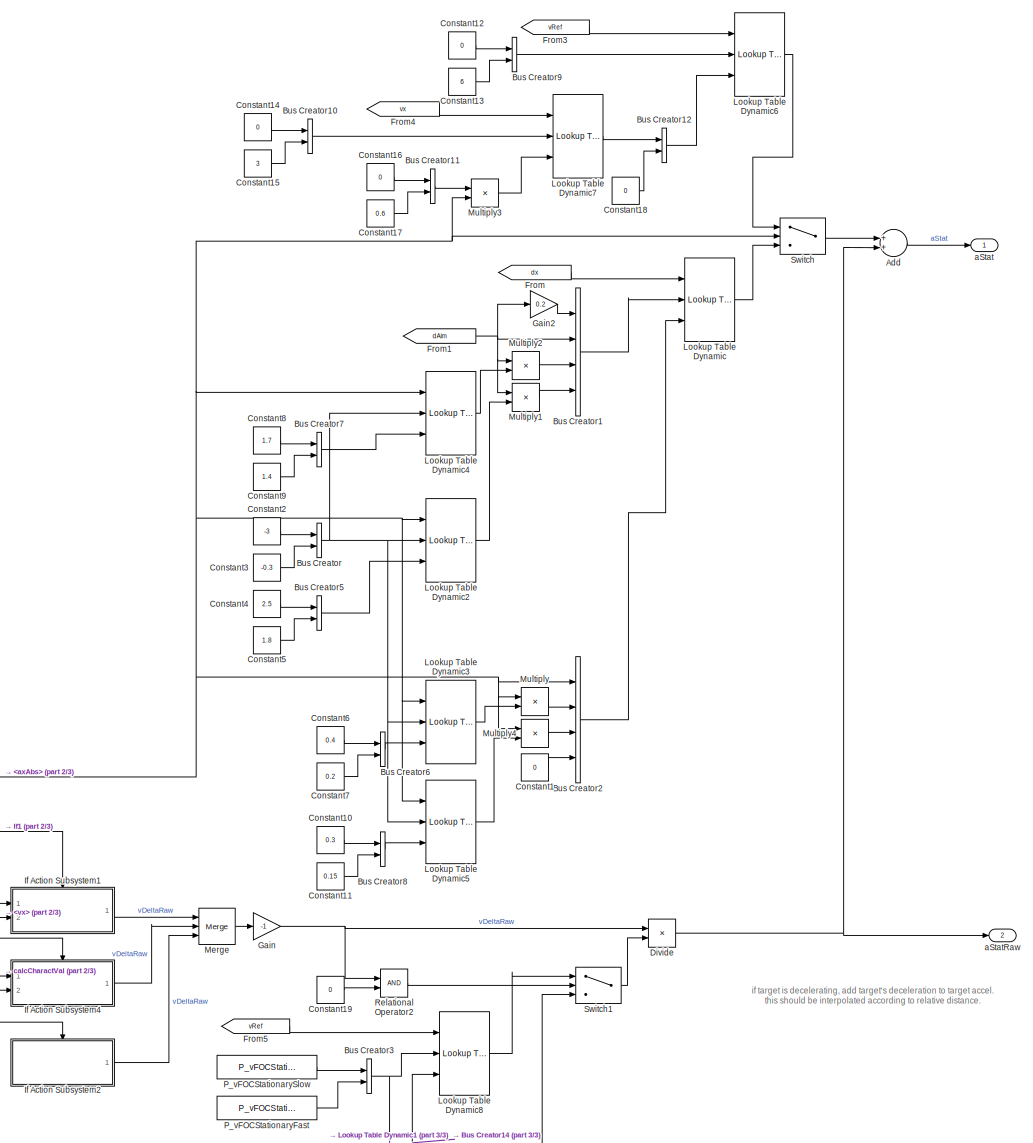
[diagram: ACC_Control/FollowObjCtrl/FollowObjValid/StationaryCtrl - part 1/3, right side, full height]
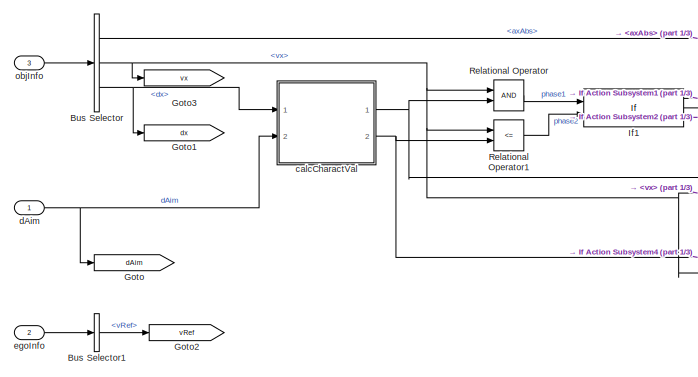
[diagram: ACC_Control/FollowObjCtrl/FollowObjValid/StationaryCtrl - part 2/3, middle left region]
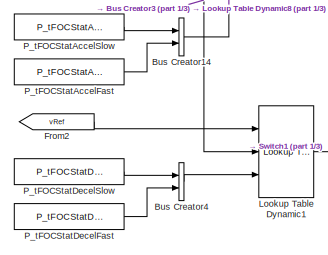
[diagram: ACC_Control/FollowObjCtrl/FollowObjValid/StationaryCtrl - part 3/3, bottom center region]
BLOCK [SubSystem] ACC_Control/FollowObjCtrl/FollowObjValid/StationaryCtrl
  Ports = [3, 2]
  RequestExecContextInheritance = off
BLOCK [Sum] ACC_Control/FollowObjCtrl/FollowObjValid/StationaryCtrl/Add
  InputSameDT = off
  OutDataTypeStr = Inherit: Inherit via internal rule
  Ports = [2, 1]
  SaturateOnIntegerOverflow = off
BLOCK [BusCreator] ACC_Control/FollowObjCtrl/FollowObjValid/StationaryCtrl/Bus Creator
  DisplayOption = bar
  InheritFromInputs = on
  Inputs = 2
  Ports = [2, 1]
BLOCK [BusCreator] ACC_Control/FollowObjCtrl/FollowObjValid/StationaryCtrl/Bus Creator1
  DisplayOption = bar
  InheritFromInputs = on
  Inputs = 4
  Ports = [4, 1]
BLOCK [BusCreator] ACC_Control/FollowObjCtrl/FollowObjValid/StationaryCtrl/Bus Creator10
  DisplayOption = bar
  InheritFromInputs = on
  Inputs = 2
  Ports = [2, 1]
BLOCK [BusCreator] ACC_Control/FollowObjCtrl/FollowObjValid/StationaryCtrl/Bus Creator11
  DisplayOption = bar
  InheritFromInputs = on
  Inputs = 2
  Ports = [2, 1]
BLOCK [BusCreator] ACC_Control/FollowObjCtrl/FollowObjValid/StationaryCtrl/Bus Creator12
  DisplayOption = bar
  InheritFromInputs = on
  Inputs = 2
  Ports = [2, 1]
BLOCK [BusCreator] ACC_Control/FollowObjCtrl/FollowObjValid/StationaryCtrl/Bus Creator14
  DisplayOption = bar
  InheritFromInputs = on
  Inputs = 2
  Ports = [2, 1]
BLOCK [BusCreator] ACC_Control/FollowObjCtrl/FollowObjValid/StationaryCtrl/Bus Creator2
  DisplayOption = bar
  InheritFromInputs = on
  Inputs = 4
  Ports = [4, 1]
BLOCK [BusCreator] ACC_Control/FollowObjCtrl/FollowObjValid/StationaryCtrl/Bus Creator3
  DisplayOption = bar
  InheritFromInputs = on
  Inputs = 2
  Ports = [2, 1]
BLOCK [BusCreator] ACC_Control/FollowObjCtrl/FollowObjValid/StationaryCtrl/Bus Creator4
  DisplayOption = bar
  InheritFromInputs = on
  Inputs = 2
  Ports = [2, 1]
BLOCK [BusCreator] ACC_Control/FollowObjCtrl/FollowObjValid/StationaryCtrl/Bus Creator5
  DisplayOption = bar
  InheritFromInputs = on
  Inputs = 2
  Ports = [2, 1]
BLOCK [BusCreator] ACC_Control/FollowObjCtrl/FollowObjValid/StationaryCtrl/Bus Creator6
  DisplayOption = bar
  InheritFromInputs = on
  Inputs = 2
  Ports = [2, 1]
BLOCK [BusCreator] ACC_Control/FollowObjCtrl/FollowObjValid/StationaryCtrl/Bus Creator7
  DisplayOption = bar
  InheritFromInputs = on
  Inputs = 2
  Ports = [2, 1]
BLOCK [BusCreator] ACC_Control/FollowObjCtrl/FollowObjValid/StationaryCtrl/Bus Creator8
  DisplayOption = bar
  InheritFromInputs = on
  Inputs = 2
  Ports = [2, 1]
BLOCK [BusCreator] ACC_Control/FollowObjCtrl/FollowObjValid/StationaryCtrl/Bus Creator9
  DisplayOption = bar
  InheritFromInputs = on
  Inputs = 2
  Ports = [2, 1]
BLOCK [BusSelector] ACC_Control/FollowObjCtrl/FollowObjValid/StationaryCtrl/Bus Selector
  OutputAsBus = off
  OutputSignals = axAbs,vx,dx
  Ports = [1, 3]
BLOCK [BusSelector] ACC_Control/FollowObjCtrl/FollowObjValid/StationaryCtrl/Bus Selector1
  OutputAsBus = off
  OutputSignals = vRef
  Ports = [1, 1]
BLOCK [Constant] ACC_Control/FollowObjCtrl/FollowObjValid/StationaryCtrl/Constant1
  OutDataTypeStr = single
  Value = 0
BLOCK [Constant] ACC_Control/FollowObjCtrl/FollowObjValid/StationaryCtrl/Constant10
  OutDataTypeStr = single
  Value = 0.3
BLOCK [Constant] ACC_Control/FollowObjCtrl/FollowObjValid/StationaryCtrl/Constant11
  OutDataTypeStr = single
  Value = 0.15
BLOCK [Constant] ACC_Control/FollowObjCtrl/FollowObjValid/StationaryCtrl/Constant12
  OutDataTypeStr = single
  Value = 0
BLOCK [Constant] ACC_Control/FollowObjCtrl/FollowObjValid/StationaryCtrl/Constant13
  OutDataTypeStr = single
  Value = 6
BLOCK [Constant] ACC_Control/FollowObjCtrl/FollowObjValid/StationaryCtrl/Constant14
  OutDataTypeStr = single
  Value = 0
BLOCK [Constant] ACC_Control/FollowObjCtrl/FollowObjValid/StationaryCtrl/Constant15
  OutDataTypeStr = single
  Value = 3
BLOCK [Constant] ACC_Control/FollowObjCtrl/FollowObjValid/StationaryCtrl/Constant16
  OutDataTypeStr = single
  Value = 0
BLOCK [Constant] ACC_Control/FollowObjCtrl/FollowObjValid/StationaryCtrl/Constant17
  OutDataTypeStr = single
  Value = 0.6
BLOCK [Constant] ACC_Control/FollowObjCtrl/FollowObjValid/StationaryCtrl/Constant18
  OutDataTypeStr = single
  Value = 0
BLOCK [Constant] ACC_Control/FollowObjCtrl/FollowObjValid/StationaryCtrl/Constant19
  OutDataTypeStr = single
  Value = 0
BLOCK [Constant] ACC_Control/FollowObjCtrl/FollowObjValid/StationaryCtrl/Constant2
  OutDataTypeStr = single
  Value = -3
BLOCK [Constant] ACC_Control/FollowObjCtrl/FollowObjValid/StationaryCtrl/Constant3
  OutDataTypeStr = single
  Value = -0.3
BLOCK [Constant] ACC_Control/FollowObjCtrl/FollowObjValid/StationaryCtrl/Constant4
  OutDataTypeStr = single
  Value = 2.5
BLOCK [Constant] ACC_Control/FollowObjCtrl/FollowObjValid/StationaryCtrl/Constant5
  OutDataTypeStr = single
  Value = 1.8
BLOCK [Constant] ACC_Control/FollowObjCtrl/FollowObjValid/StationaryCtrl/Constant6
  OutDataTypeStr = single
  Value = 0.4
BLOCK [Constant] ACC_Control/FollowObjCtrl/FollowObjValid/StationaryCtrl/Constant7
  OutDataTypeStr = single
  Value = 0.2
BLOCK [Constant] ACC_Control/FollowObjCtrl/FollowObjValid/StationaryCtrl/Constant8
  OutDataTypeStr = single
  Value = 1.7
BLOCK [Constant] ACC_Control/FollowObjCtrl/FollowObjValid/StationaryCtrl/Constant9
  OutDataTypeStr = single
  Value = 1.4
BLOCK [Product] ACC_Control/FollowObjCtrl/FollowObjValid/StationaryCtrl/Divide
  InputSameDT = off
  Inputs = */
  OutDataTypeStr = Inherit: Inherit via internal rule
  Ports = [2, 1]
  RndMeth = Floor
  SaturateOnIntegerOverflow = off
BLOCK [From] ACC_Control/FollowObjCtrl/FollowObjValid/StationaryCtrl/From
  GotoTag = dx
BLOCK [From] ACC_Control/FollowObjCtrl/FollowObjValid/StationaryCtrl/From1
  GotoTag = dAim
BLOCK [From] ACC_Control/FollowObjCtrl/FollowObjValid/StationaryCtrl/From2
  GotoTag = vRef
BLOCK [From] ACC_Control/FollowObjCtrl/FollowObjValid/StationaryCtrl/From3
  GotoTag = vRef
BLOCK [From] ACC_Control/FollowObjCtrl/FollowObjValid/StationaryCtrl/From4
  GotoTag = vx
BLOCK [From] ACC_Control/FollowObjCtrl/FollowObjValid/StationaryCtrl/From5
  GotoTag = vRef
BLOCK [Gain] ACC_Control/FollowObjCtrl/FollowObjValid/StationaryCtrl/Gain
  Gain = -1
  OutDataTypeStr = Inherit: Inherit via internal rule
  ParamDataTypeStr = Inherit: Inherit via internal rule
  SaturateOnIntegerOverflow = off
BLOCK [Gain] ACC_Control/FollowObjCtrl/FollowObjValid/StationaryCtrl/Gain2
  Gain = 0.2
  OutDataTypeStr = Inherit: Inherit via internal rule
  ParamDataTypeStr = Inherit: Inherit via internal rule
  SaturateOnIntegerOverflow = off
BLOCK [Goto] ACC_Control/FollowObjCtrl/FollowObjValid/StationaryCtrl/Goto
  GotoTag = dAim
BLOCK [Goto] ACC_Control/FollowObjCtrl/FollowObjValid/StationaryCtrl/Goto1
  GotoTag = dx
BLOCK [Goto] ACC_Control/FollowObjCtrl/FollowObjValid/StationaryCtrl/Goto2
  GotoTag = vRef
BLOCK [Goto] ACC_Control/FollowObjCtrl/FollowObjValid/StationaryCtrl/Goto3
  GotoTag = vx
BLOCK [SubSystem] ACC_Control/FollowObjCtrl/FollowObjValid/StationaryCtrl/If Action Subsystem1
  Ports = [2, 1, 0, 0, 0, 0, 0, 1]
  RequestExecContextInheritance = off
  TreatAsAtomicUnit = on
BLOCK [ActionPort] ACC_Control/FollowObjCtrl/FollowObjValid/StationaryCtrl/If Action Subsystem1/Action Port
  ActionType = then
BLOCK [Sum] ACC_Control/FollowObjCtrl/FollowObjValid/StationaryCtrl/If Action Subsystem1/Add
  InputSameDT = off
  Inputs = +-
  OutDataTypeStr = Inherit: Inherit via internal rule
  Ports = [2, 1]
  SaturateOnIntegerOverflow = off
BLOCK [Outport] ACC_Control/FollowObjCtrl/FollowObjValid/StationaryCtrl/If Action Subsystem1/Out1
  IconDisplay = Port number
BLOCK [Inport] ACC_Control/FollowObjCtrl/FollowObjValid/StationaryCtrl/If Action Subsystem1/vRel
  IconDisplay = Port number
  Port = 2
BLOCK [Inport] ACC_Control/FollowObjCtrl/FollowObjValid/StationaryCtrl/If Action Subsystem1/vRelAim
  IconDisplay = Port number
BLOCK [SubSystem] ACC_Control/FollowObjCtrl/FollowObjValid/StationaryCtrl/If Action Subsystem2
  Ports = [0, 1, 0, 0, 0, 0, 0, 1]
  RequestExecContextInheritance = off
  TreatAsAtomicUnit = on
BLOCK [ActionPort] ACC_Control/FollowObjCtrl/FollowObjValid/StationaryCtrl/If Action Subsystem2/Action Port
  ActionType = else
BLOCK [Constant] ACC_Control/FollowObjCtrl/FollowObjValid/StationaryCtrl/If Action Subsystem2/Constant
  OutDataTypeStr = single
  Value = 0
BLOCK [Outport] ACC_Control/FollowObjCtrl/FollowObjValid/StationaryCtrl/If Action Subsystem2/Out1
  IconDisplay = Port number
BLOCK [SubSystem] ACC_Control/FollowObjCtrl/FollowObjValid/StationaryCtrl/If Action Subsystem4
  Ports = [2, 1, 0, 0, 0, 0, 0, 1]
  RequestExecContextInheritance = off
  TreatAsAtomicUnit = on
BLOCK [ActionPort] ACC_Control/FollowObjCtrl/FollowObjValid/StationaryCtrl/If Action Subsystem4/Action Port
  ActionType = elseif
BLOCK [Sum] ACC_Control/FollowObjCtrl/FollowObjValid/StationaryCtrl/If Action Subsystem4/Add
  InputSameDT = off
  Inputs = +-
  OutDataTypeStr = Inherit: Inherit via internal rule
  Ports = [2, 1]
  SaturateOnIntegerOverflow = off
BLOCK [Outport] ACC_Control/FollowObjCtrl/FollowObjValid/StationaryCtrl/If Action Subsystem4/Out1
  IconDisplay = Port number
BLOCK [Inport] ACC_Control/FollowObjCtrl/FollowObjValid/StationaryCtrl/If Action Subsystem4/vRel
  IconDisplay = Port number
  Port = 2
BLOCK [Inport] ACC_Control/FollowObjCtrl/FollowObjValid/StationaryCtrl/If Action Subsystem4/vRelAim
  IconDisplay = Port number
BLOCK [If] ACC_Control/FollowObjCtrl/FollowObjValid/StationaryCtrl/If1
  ElseIfExpressions = u2 == 1
  IfExpression = u1 == 1
  NumInputs = 2
  Ports = [2, 3]
BLOCK [Reference] ACC_Control/FollowObjCtrl/FollowObjValid/StationaryCtrl/Lookup Table Dynamic  REF=simulink/Lookup
Tables/Lookup
Table
Dynamic
  Ports = [3, 1]
  SourceBlock = simulink/Lookup\nTables/Lookup\nTable\nDynamic
  SourceProductBaseCode = SL
  SourceProductName = Simulink
  SourceType = Lookup Table Dynamic
BLOCK [Reference] ACC_Control/FollowObjCtrl/FollowObjValid/StationaryCtrl/Lookup Table Dynamic1  REF=simulink/Lookup
Tables/Lookup
Table
Dynamic
  Ports = [3, 1]
  SourceBlock = simulink/Lookup\nTables/Lookup\nTable\nDynamic
  SourceProductBaseCode = SL
  SourceProductName = Simulink
  SourceType = Lookup Table Dynamic
BLOCK [Reference] ACC_Control/FollowObjCtrl/FollowObjValid/StationaryCtrl/Lookup Table Dynamic2  REF=simulink/Lookup
Tables/Lookup
Table
Dynamic
  Ports = [3, 1]
  SourceBlock = simulink/Lookup\nTables/Lookup\nTable\nDynamic
  SourceProductBaseCode = SL
  SourceProductName = Simulink
  SourceType = Lookup Table Dynamic
BLOCK [Reference] ACC_Control/FollowObjCtrl/FollowObjValid/StationaryCtrl/Lookup Table Dynamic3  REF=simulink/Lookup
Tables/Lookup
Table
Dynamic
  Ports = [3, 1]
  SourceBlock = simulink/Lookup\nTables/Lookup\nTable\nDynamic
  SourceProductBaseCode = SL
  SourceProductName = Simulink
  SourceType = Lookup Table Dynamic
BLOCK [Reference] ACC_Control/FollowObjCtrl/FollowObjValid/StationaryCtrl/Lookup Table Dynamic4  REF=simulink/Lookup
Tables/Lookup
Table
Dynamic
  Ports = [3, 1]
  SourceBlock = simulink/Lookup\nTables/Lookup\nTable\nDynamic
  SourceProductBaseCode = SL
  SourceProductName = Simulink
  SourceType = Lookup Table Dynamic
BLOCK [Reference] ACC_Control/FollowObjCtrl/FollowObjValid/StationaryCtrl/Lookup Table Dynamic5  REF=simulink/Lookup
Tables/Lookup
Table
Dynamic
  Ports = [3, 1]
  SourceBlock = simulink/Lookup\nTables/Lookup\nTable\nDynamic
  SourceProductBaseCode = SL
  SourceProductName = Simulink
  SourceType = Lookup Table Dynamic
BLOCK [Reference] ACC_Control/FollowObjCtrl/FollowObjValid/StationaryCtrl/Lookup Table Dynamic6  REF=simulink/Lookup
Tables/Lookup
Table
Dynamic
  Ports = [3, 1]
  SourceBlock = simulink/Lookup\nTables/Lookup\nTable\nDynamic
  SourceProductBaseCode = SL
  SourceProductName = Simulink
  SourceType = Lookup Table Dynamic
BLOCK [Reference] ACC_Control/FollowObjCtrl/FollowObjValid/StationaryCtrl/Lookup Table Dynamic7  REF=simulink/Lookup
Tables/Lookup
Table
Dynamic
  Ports = [3, 1]
  SourceBlock = simulink/Lookup\nTables/Lookup\nTable\nDynamic
  SourceProductBaseCode = SL
  SourceProductName = Simulink
  SourceType = Lookup Table Dynamic
BLOCK [Reference] ACC_Control/FollowObjCtrl/FollowObjValid/StationaryCtrl/Lookup Table Dynamic8  REF=simulink/Lookup
Tables/Lookup
Table
Dynamic
  Ports = [3, 1]
  SourceBlock = simulink/Lookup\nTables/Lookup\nTable\nDynamic
  SourceProductBaseCode = SL
  SourceProductName = Simulink
  SourceType = Lookup Table Dynamic
BLOCK [Merge] ACC_Control/FollowObjCtrl/FollowObjValid/StationaryCtrl/Merge
  Inputs = 3
  Ports = [3, 1]
BLOCK [Product] ACC_Control/FollowObjCtrl/FollowObjValid/StationaryCtrl/Multiply
  InputSameDT = off
  OutDataTypeStr = Inherit: Inherit via internal rule
  Ports = [2, 1]
  RndMeth = Floor
  SaturateOnIntegerOverflow = off
BLOCK [Product] ACC_Control/FollowObjCtrl/FollowObjValid/StationaryCtrl/Multiply1
  InputSameDT = off
  OutDataTypeStr = Inherit: Inherit via internal rule
  Ports = [2, 1]
  RndMeth = Floor
  SaturateOnIntegerOverflow = off
BLOCK [Product] ACC_Control/FollowObjCtrl/FollowObjValid/StationaryCtrl/Multiply2
  InputSameDT = off
  OutDataTypeStr = Inherit: Inherit via internal rule
  Ports = [2, 1]
  RndMeth = Floor
  SaturateOnIntegerOverflow = off
BLOCK [Product] ACC_Control/FollowObjCtrl/FollowObjValid/StationaryCtrl/Multiply3
  InputSameDT = off
  OutDataTypeStr = Inherit: Inherit via internal rule
  Ports = [2, 1]
  RndMeth = Floor
  SaturateOnIntegerOverflow = off
BLOCK [Product] ACC_Control/FollowObjCtrl/FollowObjValid/StationaryCtrl/Multiply4
  InputSameDT = off
  OutDataTypeStr = Inherit: Inherit via internal rule
  Ports = [2, 1]
  RndMeth = Floor
  SaturateOnIntegerOverflow = off
BLOCK [Constant] ACC_Control/FollowObjCtrl/FollowObjValid/StationaryCtrl/P_tFOCStatAccelFast
  Value = P_tFOCStatAccelFast
BLOCK [Constant] ACC_Control/FollowObjCtrl/FollowObjValid/StationaryCtrl/P_tFOCStatAccelSlow
  Value = P_tFOCStatAccelSlow
BLOCK [Constant] ACC_Control/FollowObjCtrl/FollowObjValid/StationaryCtrl/P_tFOCStatDecelFast
  Value = P_tFOCStatDecelFast
BLOCK [Constant] ACC_Control/FollowObjCtrl/FollowObjValid/StationaryCtrl/P_tFOCStatDecelSlow
  Value = P_tFOCStatDecelSlow
BLOCK [Constant] ACC_Control/FollowObjCtrl/FollowObjValid/StationaryCtrl/P_vFOCStationaryFast
  Value = P_vFOCStationaryFast
BLOCK [Constant] ACC_Control/FollowObjCtrl/FollowObjValid/StationaryCtrl/P_vFOCStationarySlow
  Value = P_vFOCStationarySlow
BLOCK [RelationalOperator] ACC_Control/FollowObjCtrl/FollowObjValid/StationaryCtrl/Relational Operator
  InputSameDT = off
  OutDataTypeStr = boolean
  Ports = [2, 1]
  RndMeth = Simplest
BLOCK [RelationalOperator] ACC_Control/FollowObjCtrl/FollowObjValid/StationaryCtrl/Relational Operator1
  InputSameDT = off
  Operator = <=
  OutDataTypeStr = boolean
  Ports = [2, 1]
  RndMeth = Simplest
BLOCK [RelationalOperator] ACC_Control/FollowObjCtrl/FollowObjValid/StationaryCtrl/Relational Operator2
  InputSameDT = off
  OutDataTypeStr = boolean
  Ports = [2, 1]
  RndMeth = Simplest
BLOCK [Switch] ACC_Control/FollowObjCtrl/FollowObjValid/StationaryCtrl/Switch
  Criteria = u2 > Threshold
  InputSameDT = off
  SaturateOnIntegerOverflow = off
BLOCK [Switch] ACC_Control/FollowObjCtrl/FollowObjValid/StationaryCtrl/Switch1
  Criteria = u2 > Threshold
  InputSameDT = off
  SaturateOnIntegerOverflow = off
BLOCK [Outport] ACC_Control/FollowObjCtrl/FollowObjValid/StationaryCtrl/aStat
  IconDisplay = Port number
BLOCK [Outport] ACC_Control/FollowObjCtrl/FollowObjValid/StationaryCtrl/aStatRaw
  IconDisplay = Port number
  Port = 2
BLOCK [SubSystem] ACC_Control/FollowObjCtrl/FollowObjValid/StationaryCtrl/calcCharactVal
  Ports = [2, 2]
  RequestExecContextInheritance = off
BLOCK [Inport] ACC_Control/FollowObjCtrl/FollowObjValid/StationaryCtrl/calcCharactVal/<dx>
  IconDisplay = Port number
BLOCK [Sum] ACC_Control/FollowObjCtrl/FollowObjValid/StationaryCtrl/calcCharactVal/Add1
  InputSameDT = off
  Inputs = +-
  OutDataTypeStr = Inherit: Inherit via internal rule
  Ports = [2, 1]
  SaturateOnIntegerOverflow = off
BLOCK [Sum] ACC_Control/FollowObjCtrl/FollowObjValid/StationaryCtrl/calcCharactVal/Add2
  InputSameDT = off
  OutDataTypeStr = Inherit: Inherit via internal rule
  Ports = [2, 1]
  SaturateOnIntegerOverflow = off
BLOCK [Product] ACC_Control/FollowObjCtrl/FollowObjValid/StationaryCtrl/calcCharactVal/Divide
  InputSameDT = off
  Inputs = */
  OutDataTypeStr = Inherit: Inherit via internal rule
  Ports = [2, 1]
  RndMeth = Floor
  SaturateOnIntegerOverflow = off
BLOCK [Product] ACC_Control/FollowObjCtrl/FollowObjValid/StationaryCtrl/calcCharactVal/Divide1
  InputSameDT = off
  Inputs = */
  OutDataTypeStr = Inherit: Inherit via internal rule
  Ports = [2, 1]
  RndMeth = Floor
  SaturateOnIntegerOverflow = off
BLOCK [If] ACC_Control/FollowObjCtrl/FollowObjValid/StationaryCtrl/calcCharactVal/If
  ElseIfExpressions = u2 == 1,u3 == 1
  IfExpression = u1 == 1
  NumInputs = 3
  Ports = [3, 4]
BLOCK [SubSystem] ACC_Control/FollowObjCtrl/FollowObjValid/StationaryCtrl/calcCharactVal/If Action Subsystem
  Ports = [2, 2, 0, 0, 0, 0, 0, 1]
  RequestExecContextInheritance = off
  TreatAsAtomicUnit = on
BLOCK [Abs] ACC_Control/FollowObjCtrl/FollowObjValid/StationaryCtrl/calcCharactVal/If Action Subsystem/Abs
  SaturateOnIntegerOverflow = off
BLOCK [ActionPort] ACC_Control/FollowObjCtrl/FollowObjValid/StationaryCtrl/calcCharactVal/If Action Subsystem/Action Port
  ActionType = then
BLOCK [Sum] ACC_Control/FollowObjCtrl/FollowObjValid/StationaryCtrl/calcCharactVal/If Action Subsystem/Add
  InputSameDT = off
  Inputs = +-
  OutDataTypeStr = Inherit: Inherit via internal rule
  Ports = [2, 1]
  SaturateOnIntegerOverflow = off
BLOCK [Sum] ACC_Control/FollowObjCtrl/FollowObjValid/StationaryCtrl/calcCharactVal/If Action Subsystem/Add1
  InputSameDT = off
  OutDataTypeStr = Inherit: Inherit via internal rule
  Ports = [2, 1]
  SaturateOnIntegerOverflow = off
BLOCK [Constant] ACC_Control/FollowObjCtrl/FollowObjValid/StationaryCtrl/calcCharactVal/If Action Subsystem/Constant2
  OutDataTypeStr = single
  Value = 2
BLOCK [Product] ACC_Control/FollowObjCtrl/FollowObjValid/StationaryCtrl/calcCharactVal/If Action Subsystem/Multiply
  InputSameDT = off
  OutDataTypeStr = Inherit: Inherit via internal rule
  Ports = [2, 1]
  RndMeth = Floor
  SaturateOnIntegerOverflow = off
BLOCK [Product] ACC_Control/FollowObjCtrl/FollowObjValid/StationaryCtrl/calcCharactVal/If Action Subsystem/Multiply1
  InputSameDT = off
  OutDataTypeStr = Inherit: Inherit via internal rule
  Ports = [2, 1]
  RndMeth = Floor
  SaturateOnIntegerOverflow = off
BLOCK [Product] ACC_Control/FollowObjCtrl/FollowObjValid/StationaryCtrl/calcCharactVal/If Action Subsystem/Multiply2
  InputSameDT = off
  OutDataTypeStr = Inherit: Inherit via internal rule
  Ports = [2, 1]
  RndMeth = Floor
  SaturateOnIntegerOverflow = off
BLOCK [Constant] ACC_Control/FollowObjCtrl/FollowObjValid/StationaryCtrl/calcCharactVal/If Action Subsystem/P_facFOCNegDiff
  Value = P_facFOCNegDiff
BLOCK [Constant] ACC_Control/FollowObjCtrl/FollowObjValid/StationaryCtrl/calcCharactVal/If Action Subsystem/P_vFOCNegDiff
  Value = P_vFOCNegDiff
BLOCK [Sqrt] ACC_Control/FollowObjCtrl/FollowObjValid/StationaryCtrl/calcCharactVal/If Action Subsystem/Sqrt
BLOCK [Math] ACC_Control/FollowObjCtrl/FollowObjValid/StationaryCtrl/calcCharactVal/If Action Subsystem/Square
  Operator = square
  Ports = [1, 1]
BLOCK [Inport] ACC_Control/FollowObjCtrl/FollowObjValid/StationaryCtrl/calcCharactVal/If Action Subsystem/dActual
  IconDisplay = Port number
BLOCK [Inport] ACC_Control/FollowObjCtrl/FollowObjValid/StationaryCtrl/calcCharactVal/If Action Subsystem/dBPNeg
  IconDisplay = Port number
  Port = 2
BLOCK [Outport] ACC_Control/FollowObjCtrl/FollowObjValid/StationaryCtrl/calcCharactVal/If Action Subsystem/vLower
  IconDisplay = Port number
  Port = 2
BLOCK [Outport] ACC_Control/FollowObjCtrl/FollowObjValid/StationaryCtrl/calcCharactVal/If Action Subsystem/vUpper
  IconDisplay = Port number
BLOCK [SubSystem] ACC_Control/FollowObjCtrl/FollowObjValid/StationaryCtrl/calcCharactVal/If Action Subsystem4
  Ports = [2, 2, 0, 0, 0, 0, 0, 1]
  RequestExecContextInheritance = off
  TreatAsAtomicUnit = on
BLOCK [ActionPort] ACC_Control/FollowObjCtrl/FollowObjValid/StationaryCtrl/calcCharactVal/If Action Subsystem4/Action Port
  ActionType = elseif
BLOCK [Sum] ACC_Control/FollowObjCtrl/FollowObjValid/StationaryCtrl/calcCharactVal/If Action Subsystem4/Add
  InputSameDT = off
  Inputs = +-
  OutDataTypeStr = Inherit: Inherit via internal rule
  Ports = [2, 1]
  SaturateOnIntegerOverflow = off
BLOCK [Product] ACC_Control/FollowObjCtrl/FollowObjValid/StationaryCtrl/calcCharactVal/If Action Subsystem4/Multiply
  InputSameDT = off
  OutDataTypeStr = Inherit: Inherit via internal rule
  Ports = [2, 1]
  RndMeth = Floor
  SaturateOnIntegerOverflow = off
BLOCK [Constant] ACC_Control/FollowObjCtrl/FollowObjValid/StationaryCtrl/calcCharactVal/If Action Subsystem4/P_facFOCNegDiff
  Value = P_facFOCNegDiff
BLOCK [Inport] ACC_Control/FollowObjCtrl/FollowObjValid/StationaryCtrl/calcCharactVal/If Action Subsystem4/dActual
  IconDisplay = Port number
BLOCK [Inport] ACC_Control/FollowObjCtrl/FollowObjValid/StationaryCtrl/calcCharactVal/If Action Subsystem4/dAim
  IconDisplay = Port number
  Port = 2
BLOCK [Outport] ACC_Control/FollowObjCtrl/FollowObjValid/StationaryCtrl/calcCharactVal/If Action Subsystem4/vLower
  IconDisplay = Port number
  Port = 2
BLOCK [Outport] ACC_Control/FollowObjCtrl/FollowObjValid/StationaryCtrl/calcCharactVal/If Action Subsystem4/vUpper
  IconDisplay = Port number
BLOCK [SubSystem] ACC_Control/FollowObjCtrl/FollowObjValid/StationaryCtrl/calcCharactVal/If Action Subsystem5
  Ports = [2, 2, 0, 0, 0, 0, 0, 1]
  RequestExecContextInheritance = off
  TreatAsAtomicUnit = on
BLOCK [ActionPort] ACC_Control/FollowObjCtrl/FollowObjValid/StationaryCtrl/calcCharactVal/If Action Subsystem5/Action Port
  ActionType = elseif
BLOCK [Sum] ACC_Control/FollowObjCtrl/FollowObjValid/StationaryCtrl/calcCharactVal/If Action Subsystem5/Add
  InputSameDT = off
  Inputs = +-
  OutDataTypeStr = Inherit: Inherit via internal rule
  Ports = [2, 1]
  SaturateOnIntegerOverflow = off
BLOCK [Product] ACC_Control/FollowObjCtrl/FollowObjValid/StationaryCtrl/calcCharactVal/If Action Subsystem5/Multiply
  InputSameDT = off
  OutDataTypeStr = Inherit: Inherit via internal rule
  Ports = [2, 1]
  RndMeth = Floor
  SaturateOnIntegerOverflow = off
BLOCK [Constant] ACC_Control/FollowObjCtrl/FollowObjValid/StationaryCtrl/calcCharactVal/If Action Subsystem5/P_facFOCPosDiff
  Value = P_facFOCPosDiff
BLOCK [Inport] ACC_Control/FollowObjCtrl/FollowObjValid/StationaryCtrl/calcCharactVal/If Action Subsystem5/dActual
  IconDisplay = Port number
BLOCK [Inport] ACC_Control/FollowObjCtrl/FollowObjValid/StationaryCtrl/calcCharactVal/If Action Subsystem5/dAim
  IconDisplay = Port number
  Port = 2
BLOCK [Outport] ACC_Control/FollowObjCtrl/FollowObjValid/StationaryCtrl/calcCharactVal/If Action Subsystem5/vLower
  IconDisplay = Port number
  Port = 2
BLOCK [Outport] ACC_Control/FollowObjCtrl/FollowObjValid/StationaryCtrl/calcCharactVal/If Action Subsystem5/vUpper
  IconDisplay = Port number
BLOCK [SubSystem] ACC_Control/FollowObjCtrl/FollowObjValid/StationaryCtrl/calcCharactVal/If Action Subsystem6
  Ports = [2, 2, 0, 0, 0, 0, 0, 1]
  RequestExecContextInheritance = off
  TreatAsAtomicUnit = on
BLOCK [Abs] ACC_Control/FollowObjCtrl/FollowObjValid/StationaryCtrl/calcCharactVal/If Action Subsystem6/Abs
  SaturateOnIntegerOverflow = off
BLOCK [ActionPort] ACC_Control/FollowObjCtrl/FollowObjValid/StationaryCtrl/calcCharactVal/If Action Subsystem6/Action Port
  ActionType = else
BLOCK [Sum] ACC_Control/FollowObjCtrl/FollowObjValid/StationaryCtrl/calcCharactVal/If Action Subsystem6/Add
  InputSameDT = off
  Inputs = +-
  OutDataTypeStr = Inherit: Inherit via internal rule
  Ports = [2, 1]
  SaturateOnIntegerOverflow = off
BLOCK [Sum] ACC_Control/FollowObjCtrl/FollowObjValid/StationaryCtrl/calcCharactVal/If Action Subsystem6/Add1
  InputSameDT = off
  OutDataTypeStr = Inherit: Inherit via internal rule
  Ports = [2, 1]
  SaturateOnIntegerOverflow = off
BLOCK [Constant] ACC_Control/FollowObjCtrl/FollowObjValid/StationaryCtrl/calcCharactVal/If Action Subsystem6/Constant
  OutDataTypeStr = single
  Value = -1
BLOCK [Constant] ACC_Control/FollowObjCtrl/FollowObjValid/StationaryCtrl/calcCharactVal/If Action Subsystem6/Constant2
  OutDataTypeStr = single
  Value = 2
BLOCK [Product] ACC_Control/FollowObjCtrl/FollowObjValid/StationaryCtrl/calcCharactVal/If Action Subsystem6/Multiply
  InputSameDT = off
  OutDataTypeStr = Inherit: Inherit via internal rule
  Ports = [2, 1]
  RndMeth = Floor
  SaturateOnIntegerOverflow = off
BLOCK [Product] ACC_Control/FollowObjCtrl/FollowObjValid/StationaryCtrl/calcCharactVal/If Action Subsystem6/Multiply1
  InputSameDT = off
  OutDataTypeStr = Inherit: Inherit via internal rule
  Ports = [2, 1]
  RndMeth = Floor
  SaturateOnIntegerOverflow = off
BLOCK [Product] ACC_Control/FollowObjCtrl/FollowObjValid/StationaryCtrl/calcCharactVal/If Action Subsystem6/Multiply2
  InputSameDT = off
  OutDataTypeStr = Inherit: Inherit via internal rule
  Ports = [2, 1]
  RndMeth = Floor
  SaturateOnIntegerOverflow = off
BLOCK [Product] ACC_Control/FollowObjCtrl/FollowObjValid/StationaryCtrl/calcCharactVal/If Action Subsystem6/Multiply3
  InputSameDT = off
  OutDataTypeStr = Inherit: Inherit via internal rule
  Ports = [2, 1]
  RndMeth = Floor
  SaturateOnIntegerOverflow = off
BLOCK [Product] ACC_Control/FollowObjCtrl/FollowObjValid/StationaryCtrl/calcCharactVal/If Action Subsystem6/Multiply4
  InputSameDT = off
  OutDataTypeStr = Inherit: Inherit via internal rule
  Ports = [2, 1]
  RndMeth = Floor
  SaturateOnIntegerOverflow = off
BLOCK [Constant] ACC_Control/FollowObjCtrl/FollowObjValid/StationaryCtrl/calcCharactVal/If Action Subsystem6/P_facFOCPosDiff
  Value = P_facFOCPosDiff
BLOCK [Constant] ACC_Control/FollowObjCtrl/FollowObjValid/StationaryCtrl/calcCharactVal/If Action Subsystem6/P_vFOCPosDiff
  Value = P_vFOCPosDiff
BLOCK [Sqrt] ACC_Control/FollowObjCtrl/FollowObjValid/StationaryCtrl/calcCharactVal/If Action Subsystem6/Sqrt
BLOCK [Math] ACC_Control/FollowObjCtrl/FollowObjValid/StationaryCtrl/calcCharactVal/If Action Subsystem6/Square
  Operator = square
  Ports = [1, 1]
BLOCK [Inport] ACC_Control/FollowObjCtrl/FollowObjValid/StationaryCtrl/calcCharactVal/If Action Subsystem6/dActual
  IconDisplay = Port number
BLOCK [Inport] ACC_Control/FollowObjCtrl/FollowObjValid/StationaryCtrl/calcCharactVal/If Action Subsystem6/dBPPos
  IconDisplay = Port number
  Port = 2
BLOCK [Outport] ACC_Control/FollowObjCtrl/FollowObjValid/StationaryCtrl/calcCharactVal/If Action Subsystem6/vLower
  IconDisplay = Port number
  Port = 2
BLOCK [Outport] ACC_Control/FollowObjCtrl/FollowObjValid/StationaryCtrl/calcCharactVal/If Action Subsystem6/vUpper
  IconDisplay = Port number
BLOCK [Merge] ACC_Control/FollowObjCtrl/FollowObjValid/StationaryCtrl/calcCharactVal/Merge1
  Inputs = 4
  Ports = [4, 1]
BLOCK [Merge] ACC_Control/FollowObjCtrl/FollowObjValid/StationaryCtrl/calcCharactVal/Merge2
  Inputs = 4
  Ports = [4, 1]
BLOCK [MinMax] ACC_Control/FollowObjCtrl/FollowObjValid/StationaryCtrl/calcCharactVal/Min
  InputSameDT = off
  Inputs = 2
  Ports = [2, 1]
  SaturateOnIntegerOverflow = off
BLOCK [Constant] ACC_Control/FollowObjCtrl/FollowObjValid/StationaryCtrl/calcCharactVal/P_facFOCNegDiff
  Value = P_facFOCNegDiff
BLOCK [Constant] ACC_Control/FollowObjCtrl/FollowObjValid/StationaryCtrl/calcCharactVal/P_facFOCPosDiff
  Value = P_facFOCPosDiff
BLOCK [Constant] ACC_Control/FollowObjCtrl/FollowObjValid/StationaryCtrl/calcCharactVal/P_vFOCNegDiff
  Value = P_vFOCNegDiff
BLOCK [Constant] ACC_Control/FollowObjCtrl/FollowObjValid/StationaryCtrl/calcCharactVal/P_vFOCPosDiff
  Value = P_vFOCPosDiff
BLOCK [RelationalOperator] ACC_Control/FollowObjCtrl/FollowObjValid/StationaryCtrl/calcCharactVal/Relational Operator
  InputSameDT = off
  Operator = <
  OutDataTypeStr = boolean
  Ports = [2, 1]
  RndMeth = Simplest
BLOCK [RelationalOperator] ACC_Control/FollowObjCtrl/FollowObjValid/StationaryCtrl/calcCharactVal/Relational Operator1
  InputSameDT = off
  Operator = <
  OutDataTypeStr = boolean
  Ports = [2, 1]
  RndMeth = Simplest
BLOCK [RelationalOperator] ACC_Control/FollowObjCtrl/FollowObjValid/StationaryCtrl/calcCharactVal/Relational Operator2
  InputSameDT = off
  Operator = <
  OutDataTypeStr = boolean
  Ports = [2, 1]
  RndMeth = Simplest
BLOCK [Inport] ACC_Control/FollowObjCtrl/FollowObjValid/StationaryCtrl/calcCharactVal/dAim
  IconDisplay = Port number
  Port = 2
BLOCK [Outport] ACC_Control/FollowObjCtrl/FollowObjValid/StationaryCtrl/calcCharactVal/vLower
  IconDisplay = Port number
  Port = 2
BLOCK [Outport] ACC_Control/FollowObjCtrl/FollowObjValid/StationaryCtrl/calcCharactVal/vUpper
  IconDisplay = Port number
BLOCK [Inport] ACC_Control/FollowObjCtrl/FollowObjValid/StationaryCtrl/dAim
  IconDisplay = Port number
BLOCK [Inport] ACC_Control/FollowObjCtrl/FollowObjValid/StationaryCtrl/egoInfo
  IconDisplay = Port number
  Port = 2
BLOCK [Inport] ACC_Control/FollowObjCtrl/FollowObjValid/StationaryCtrl/objInfo
  IconDisplay = Port number
  Port = 3
BLOCK [SubSystem] ACC_Control/FollowObjCtrl/FollowObjValid/StopGoCtrl
  Ports = [4, 1]
  RequestExecContextInheritance = off
BLOCK [Logic] ACC_Control/FollowObjCtrl/FollowObjValid/StopGoCtrl/AND
  AllPortsSameDT = off
  Inputs = 3
  OutDataTypeStr = boolean
  Ports = [3, 1]
BLOCK [Logic] ACC_Control/FollowObjCtrl/FollowObjValid/StopGoCtrl/AND1
  AllPortsSameDT = off
  Inputs = 3
  Operator = OR
  OutDataTypeStr = boolean
  Ports = [3, 1]
BLOCK [Logic] ACC_Control/FollowObjCtrl/FollowObjValid/StopGoCtrl/AND2
  AllPortsSameDT = off
  OutDataTypeStr = boolean
  Ports = [2, 1]
BLOCK [Sum] ACC_Control/FollowObjCtrl/FollowObjValid/StopGoCtrl/Add
  InputSameDT = off
  OutDataTypeStr = Inherit: Inherit via internal rule
  Ports = [2, 1]
  SaturateOnIntegerOverflow = off
BLOCK [BusSelector] ACC_Control/FollowObjCtrl/FollowObjValid/StopGoCtrl/Bus Selector
  OutputAsBus = off
  OutputSignals = Index,Type,dx,vx
  Ports = [1, 4]
BLOCK [BusSelector] ACC_Control/FollowObjCtrl/FollowObjValid/StopGoCtrl/Bus Selector1
  OutputAsBus = off
  OutputSignals = vRef
  Ports = [1, 1]
BLOCK [BusSelector] ACC_Control/FollowObjCtrl/FollowObjValid/StopGoCtrl/Bus Selector2
  OutputAsBus = off
  OutputSignals = MainState
  Ports = [1, 1]
BLOCK [Constant] ACC_Control/FollowObjCtrl/FollowObjValid/StopGoCtrl/Constant1
  OutDataTypeStr = boolean
  Value = 3
BLOCK [Constant] ACC_Control/FollowObjCtrl/FollowObjValid/StopGoCtrl/Constant3
  OutDataTypeStr = single
  Value = 200
BLOCK [Constant] ACC_Control/FollowObjCtrl/FollowObjValid/StopGoCtrl/Constant5
  OutDataTypeStr = boolean
BLOCK [Constant] ACC_Control/FollowObjCtrl/FollowObjValid/StopGoCtrl/Constant6
  OutDataTypeStr = boolean
  Value = 0
BLOCK [Constant] ACC_Control/FollowObjCtrl/FollowObjValid/StopGoCtrl/Constant9
  OutDataTypeStr = single
  Value = 20
BLOCK [Outport] ACC_Control/FollowObjCtrl/FollowObjValid/StopGoCtrl/DecToStop
  IconDisplay = Port number
BLOCK [Inport] ACC_Control/FollowObjCtrl/FollowObjValid/StopGoCtrl/DecToStopK1
  IconDisplay = Port number
  Port = 4
BLOCK [If] ACC_Control/FollowObjCtrl/FollowObjValid/StopGoCtrl/If
  ElseIfExpressions = u2 == 1
  IfExpression = u1 == 1
  NumInputs = 2
  Ports = [2, 3]
BLOCK [SubSystem] ACC_Control/FollowObjCtrl/FollowObjValid/StopGoCtrl/If Action Subsystem
  Ports = [1, 1, 0, 0, 0, 0, 0, 1]
  RequestExecContextInheritance = off
  TreatAsAtomicUnit = on
BLOCK [ActionPort] ACC_Control/FollowObjCtrl/FollowObjValid/StopGoCtrl/If Action Subsystem/Action Port
  ActionType = then
BLOCK [Inport] ACC_Control/FollowObjCtrl/FollowObjValid/StopGoCtrl/If Action Subsystem/In1
  IconDisplay = Port number
BLOCK [Outport] ACC_Control/FollowObjCtrl/FollowObjValid/StopGoCtrl/If Action Subsystem/Out1
  IconDisplay = Port number
BLOCK [SubSystem] ACC_Control/FollowObjCtrl/FollowObjValid/StopGoCtrl/If Action Subsystem1
  Ports = [1, 1, 0, 0, 0, 0, 0, 1]
  RequestExecContextInheritance = off
  TreatAsAtomicUnit = on
BLOCK [ActionPort] ACC_Control/FollowObjCtrl/FollowObjValid/StopGoCtrl/If Action Subsystem1/Action Port
  ActionType = elseif
BLOCK [Inport] ACC_Control/FollowObjCtrl/FollowObjValid/StopGoCtrl/If Action Subsystem1/In1
  IconDisplay = Port number
BLOCK [Outport] ACC_Control/FollowObjCtrl/FollowObjValid/StopGoCtrl/If Action Subsystem1/Out1
  IconDisplay = Port number
BLOCK [SubSystem] ACC_Control/FollowObjCtrl/FollowObjValid/StopGoCtrl/If Action Subsystem2
  Ports = [1, 1, 0, 0, 0, 0, 0, 1]
  RequestExecContextInheritance = off
  TreatAsAtomicUnit = on
BLOCK [ActionPort] ACC_Control/FollowObjCtrl/FollowObjValid/StopGoCtrl/If Action Subsystem2/Action Port
  ActionType = else
BLOCK [Inport] ACC_Control/FollowObjCtrl/FollowObjValid/StopGoCtrl/If Action Subsystem2/In1
  IconDisplay = Port number
BLOCK [Outport] ACC_Control/FollowObjCtrl/FollowObjValid/StopGoCtrl/If Action Subsystem2/Out1
  IconDisplay = Port number
BLOCK [Merge] ACC_Control/FollowObjCtrl/FollowObjValid/StopGoCtrl/Merge
  Inputs = 3
  Ports = [3, 1]
BLOCK [Constant] ACC_Control/FollowObjCtrl/FollowObjValid/StopGoCtrl/P_dObjLowHystDecToStop
  Value = P_dObjLowHystDecToStop
BLOCK [Constant] ACC_Control/FollowObjCtrl/FollowObjValid/StopGoCtrl/P_dObjLowHystDecToStopAVP
  Value = P_dObjLowHystDecToStopAVP
BLOCK [Constant] ACC_Control/FollowObjCtrl/FollowObjValid/StopGoCtrl/P_dObjUpperHystDecToStop
  Value = P_dObjUpperHystDecToStop
BLOCK [Constant] ACC_Control/FollowObjCtrl/FollowObjValid/StopGoCtrl/P_vEgoDecToStop
  Value = P_vEgoDecToStop
BLOCK [Constant] ACC_Control/FollowObjCtrl/FollowObjValid/StopGoCtrl/P_vObjLowHystDecToStop
  Value = P_vObjLowHystDecToStop
BLOCK [Constant] ACC_Control/FollowObjCtrl/FollowObjValid/StopGoCtrl/P_vObjUpperHystDecToStop
  Value = P_vObjUpperHystDecToStop
BLOCK [RelationalOperator] ACC_Control/FollowObjCtrl/FollowObjValid/StopGoCtrl/Relational Operator
  InputSameDT = off
  Operator = <
  OutDataTypeStr = boolean
  Ports = [2, 1]
  RndMeth = Simplest
BLOCK [RelationalOperator] ACC_Control/FollowObjCtrl/FollowObjValid/StopGoCtrl/Relational Operator1
  InputSameDT = off
  Operator = <
  OutDataTypeStr = boolean
  Ports = [2, 1]
  RndMeth = Simplest
BLOCK [RelationalOperator] ACC_Control/FollowObjCtrl/FollowObjValid/StopGoCtrl/Relational Operator2
  InputSameDT = off
  Operator = <
  OutDataTypeStr = boolean
  Ports = [2, 1]
  RndMeth = Simplest
BLOCK [RelationalOperator] ACC_Control/FollowObjCtrl/FollowObjValid/StopGoCtrl/Relational Operator3
  InputSameDT = off
  Operator = >
  OutDataTypeStr = boolean
  Ports = [2, 1]
  RndMeth = Simplest
BLOCK [RelationalOperator] ACC_Control/FollowObjCtrl/FollowObjValid/StopGoCtrl/Relational Operator4
  InputSameDT = off
  Operator = >
  OutDataTypeStr = boolean
  Ports = [2, 1]
  RndMeth = Simplest
BLOCK [RelationalOperator] ACC_Control/FollowObjCtrl/FollowObjValid/StopGoCtrl/Relational Operator5
  InputSameDT = off
  Operator = ==
  OutDataTypeStr = boolean
  Ports = [2, 1]
  RndMeth = Simplest
BLOCK [RelationalOperator] ACC_Control/FollowObjCtrl/FollowObjValid/StopGoCtrl/Relational Operator6
  InputSameDT = off
  Operator = ==
  OutDataTypeStr = boolean
  Ports = [2, 1]
  RndMeth = Simplest
BLOCK [RelationalOperator] ACC_Control/FollowObjCtrl/FollowObjValid/StopGoCtrl/Relational Operator7
  InputSameDT = off
  Operator = ==
  OutDataTypeStr = boolean
  Ports = [2, 1]
  RndMeth = Simplest
BLOCK [Inport] ACC_Control/FollowObjCtrl/FollowObjValid/StopGoCtrl/StateMachine
  IconDisplay = Port number
BLOCK [Switch] ACC_Control/FollowObjCtrl/FollowObjValid/StopGoCtrl/Switch
  Criteria = u2 > Threshold
  InputSameDT = off
  SaturateOnIntegerOverflow = off
BLOCK [Inport] ACC_Control/FollowObjCtrl/FollowObjValid/StopGoCtrl/egoInfo
  IconDisplay = Port number
  Port = 3
BLOCK [Inport] ACC_Control/FollowObjCtrl/FollowObjValid/StopGoCtrl/objInfo
  IconDisplay = Port number
  Port = 2
BLOCK [Terminator] ACC_Control/FollowObjCtrl/FollowObjValid/Terminator
BLOCK [Terminator] ACC_Control/FollowObjCtrl/FollowObjValid/Terminator1
BLOCK [Inport] ACC_Control/FollowObjCtrl/FollowObjValid/VSI_VehState_st
  IconDisplay = Port number
  Port = 2
BLOCK [Outport] ACC_Control/FollowObjCtrl/FollowObjValid/a
  IconDisplay = Port number
  InitialOutput = 0
BLOCK [Outport] ACC_Control/FollowObjCtrl/FollowObjValid/aApproach
  IconDisplay = Port number
  InitialOutput = 0
  Port = 6
BLOCK [Inport] ACC_Control/FollowObjCtrl/FollowObjValid/aCvK1
  IconDisplay = Port number
  Port = 6
BLOCK [Outport] ACC_Control/FollowObjCtrl/FollowObjValid/aStat
  IconDisplay = Port number
  InitialOutput = 0
  Port = 5
BLOCK [Outport] ACC_Control/FollowObjCtrl/FollowObjValid/dAim
  IconDisplay = Port number
  InitialOutput = 0
  Port = 4
BLOCK [Outport] ACC_Control/FollowObjCtrl/FollowObjValid/dImmerseAdj
  IconDisplay = Port number
  InitialOutput = 0
  Port = 11
BLOCK [Outport] ACC_Control/FollowObjCtrl/FollowObjValid/dSlowDown
  IconDisplay = Port number
  InitialOutput = 0
  Port = 9
BLOCK [Outport] ACC_Control/FollowObjCtrl/FollowObjValid/tObjStop
  IconDisplay = Port number
  InitialOutput = 0
  Port = 8
BLOCK [Inport] ACC_Control/FollowObjCtrl/FollowObjValid/tTimeGapSet
  IconDisplay = Port number
  Port = 7
BLOCK [ForIterator] ACC_Control/FollowObjCtrl/For Iterator
  IndexMode = Zero-based
  IterationLimit = 2
  IterationSource = external
  Ports = [1, 1]
BLOCK [From] ACC_Control/FollowObjCtrl/From
  GotoTag = i_cnt
BLOCK [Goto] ACC_Control/FollowObjCtrl/Goto
  GotoTag = i_cnt
BLOCK [If] ACC_Control/FollowObjCtrl/If
  IfExpression = u1 == 1
  Ports = [1, 2]
BLOCK [Merge] ACC_Control/FollowObjCtrl/Merge
  Ports = [2, 1]
BLOCK [Merge] ACC_Control/FollowObjCtrl/Merge1
  Ports = [2, 1]
BLOCK [Merge] ACC_Control/FollowObjCtrl/Merge10
  Ports = [2, 1]
BLOCK [Merge] ACC_Control/FollowObjCtrl/Merge2
  Ports = [2, 1]
BLOCK [Merge] ACC_Control/FollowObjCtrl/Merge3
  Ports = [2, 1]
BLOCK [Merge] ACC_Control/FollowObjCtrl/Merge4
  Ports = [2, 1]
BLOCK [Merge] ACC_Control/FollowObjCtrl/Merge5
  Ports = [2, 1]
BLOCK [Merge] ACC_Control/FollowObjCtrl/Merge6
  Ports = [2, 1]
BLOCK [Merge] ACC_Control/FollowObjCtrl/Merge7
  Ports = [2, 1]
BLOCK [Merge] ACC_Control/FollowObjCtrl/Merge8
  Ports = [2, 1]
BLOCK [Merge] ACC_Control/FollowObjCtrl/Merge9
  Ports = [2, 1]
BLOCK [Inport] ACC_Control/FollowObjCtrl/SYS_Info_st
  IconDisplay = Port number
  Port = 5
BLOCK [Selector] ACC_Control/FollowObjCtrl/Selector1
  IndexMode = Zero-based
  IndexOptions = Index vector (port)
  Indices = [1 3]
  InputPortWidth = 6
  OutputSizes = 1
  Ports = [2, 1]
BLOCK [Selector] ACC_Control/FollowObjCtrl/Selector2
  IndexMode = Zero-based
  IndexOptions = Index vector (port)
  Indices = [1 3]
  InputPortWidth = 6
  OutputSizes = 1
  Ports = [2, 1]
BLOCK [Inport] ACC_Control/FollowObjCtrl/StateMachine
  IconDisplay = Port number
BLOCK [Inport] ACC_Control/FollowObjCtrl/TargetInfo
  IconDisplay = Port number
  Port = 4
BLOCK [Constant] ACC_Control/FollowObjCtrl/Zero1
  OutDataTypeStr = Bus: ACC_FOC_INFO_ST
  Value = zeros(1,6)
BLOCK [Inport] ACC_Control/FollowObjCtrl/aCvK1
  IconDisplay = Port number
  Port = 6
BLOCK [Inport] ACC_Control/FollowObjCtrl/egoInfo
  IconDisplay = Port number
  Port = 3
BLOCK [Inport] ACC_Control/FollowObjCtrl/numFOC
  IconDisplay = Port number
  Port = 2
BLOCK [Inport] ACC_Control/FollowObjCtrl/tTimeGapSet
  IconDisplay = Port number
  Port = 7
BLOCK [From] ACC_Control/From
  GotoTag = ZOP2ACC
BLOCK [From] ACC_Control/From1
  GotoTag = ZOP2ACC
BLOCK [From] ACC_Control/From2
  GotoTag = AVP_Info
BLOCK [Goto] ACC_Control/Goto
  GotoTag = ZOP2ACC
BLOCK [Goto] ACC_Control/Goto1
  GotoTag = AVP_Info
BLOCK [Memory] ACC_Control/Memory
BLOCK [Memory] ACC_Control/Memory1
BLOCK [Logic] ACC_Control/OR
  AllPortsSameDT = off
  Operator = OR
  OutDataTypeStr = boolean
  Ports = [2, 1]
BLOCK [Inport] ACC_Control/ObjList
  IconDisplay = Port number
  Port = 2
BLOCK [SubSystem] ACC_Control/OvertakeSuppression
  Ports = [4, 1]
  RequestExecContextInheritance = off
BLOCK [Inport] ACC_Control/OvertakeSuppression/AST_Info_st
  IconDisplay = Port number
  Port = 4
BLOCK [Sum] ACC_Control/OvertakeSuppression/Add
  InputSameDT = off
  OutDataTypeStr = Inherit: Inherit via internal rule
  Ports = [2, 1]
  SaturateOnIntegerOverflow = off
BLOCK [Sum] ACC_Control/OvertakeSuppression/Add1
  InputSameDT = off
  Inputs = +-
  OutDataTypeStr = Inherit: Inherit via internal rule
  Ports = [2, 1]
  SaturateOnIntegerOverflow = off
BLOCK [Inport] ACC_Control/OvertakeSuppression/AdjacentLaneObjInfo
  IconDisplay = Port number
BLOCK [BusSelector] ACC_Control/OvertakeSuppression/Bus Selector
  OutputAsBus = off
  OutputSignals = L_NEIGHBORLANE_TAROBJ_2_ST.Index_un8,R_NEIGHBORLANE_TAROBJ_2_ST.Index_un8
  Ports = [1, 2]
BLOCK [BusSelector] ACC_Control/OvertakeSuppression/Bus Selector1
  OutputAsBus = off
  OutputSignals = vSet
  Ports = [1, 1]
BLOCK [Constant] ACC_Control/OvertakeSuppression/Constant
  OutDataTypeStr = single
  Value = 10
BLOCK [Gain] ACC_Control/OvertakeSuppression/Gain
  Gain = 1/3.6
  OutDataTypeStr = Inherit: Inherit via internal rule
  ParamDataTypeStr = Inherit: Inherit via internal rule
  SaturateOnIntegerOverflow = off
BLOCK [If] ACC_Control/OvertakeSuppression/If
  IfExpression = u1 <40
  Ports = [1, 2]
BLOCK [SubSystem] ACC_Control/OvertakeSuppression/If Action Subsystem
  Ports = [3, 1, 0, 0, 0, 0, 0, 1]
  RequestExecContextInheritance = off
  TreatAsAtomicUnit = on
BLOCK [Logic] ACC_Control/OvertakeSuppression/If Action Subsystem/AND
  AllPortsSameDT = off
  Inputs = 4
  OutDataTypeStr = boolean
  Ports = [4, 1]
BLOCK [ActionPort] ACC_Control/OvertakeSuppression/If Action Subsystem/Action Port
  ActionType = then
BLOCK [Sum] ACC_Control/OvertakeSuppression/If Action Subsystem/Add
  InputSameDT = off
  OutDataTypeStr = Inherit: Inherit via internal rule
  Ports = [2, 1]
  SaturateOnIntegerOverflow = off
BLOCK [BusSelector] ACC_Control/OvertakeSuppression/If Action Subsystem/Bus Selector
  OutputAsBus = off
  OutputSignals = objdata_st
  Ports = [1, 1]
BLOCK [BusSelector] ACC_Control/OvertakeSuppression/If Action Subsystem/Bus Selector1
  OutputAsBus = off
  OutputSignals = vx,dx,Valid,Type
  Ports = [1, 4]
BLOCK [BusSelector] ACC_Control/OvertakeSuppression/If Action Subsystem/Bus Selector2
  OutputAsBus = off
  OutputSignals = vRef
  Ports = [1, 1]
BLOCK [Constant] ACC_Control/OvertakeSuppression/If Action Subsystem/Constant
  OutDataTypeStr = single
  Value = 40
BLOCK [Constant] ACC_Control/OvertakeSuppression/If Action Subsystem/Constant1
  OutDataTypeStr = single
  Value = 30
BLOCK [Constant] ACC_Control/OvertakeSuppression/If Action Subsystem/Constant2
  OutDataTypeStr = single
  Value = 0
BLOCK [Constant] ACC_Control/OvertakeSuppression/If Action Subsystem/Constant3
  OutDataTypeStr = single
  Value = 3
BLOCK [Constant] ACC_Control/OvertakeSuppression/If Action Subsystem/Constant4
  OutDataTypeStr = single
  Value = 5
BLOCK [Logic] ACC_Control/OvertakeSuppression/If Action Subsystem/OR
  AllPortsSameDT = off
  Operator = OR
  OutDataTypeStr = boolean
  Ports = [2, 1]
BLOCK [Outport] ACC_Control/OvertakeSuppression/If Action Subsystem/Out1
  IconDisplay = Port number
BLOCK [RelationalOperator] ACC_Control/OvertakeSuppression/If Action Subsystem/Relational Operator
  InputSameDT = off
  Operator = <=
  OutDataTypeStr = boolean
  Ports = [2, 1]
  RndMeth = Simplest
BLOCK [RelationalOperator] ACC_Control/OvertakeSuppression/If Action Subsystem/Relational Operator1
  InputSameDT = off
  OutDataTypeStr = boolean
  Ports = [2, 1]
  RndMeth = Simplest
BLOCK [RelationalOperator] ACC_Control/OvertakeSuppression/If Action Subsystem/Relational Operator2
  InputSameDT = off
  Operator = ==
  OutDataTypeStr = boolean
  Ports = [2, 1]
  RndMeth = Simplest
BLOCK [RelationalOperator] ACC_Control/OvertakeSuppression/If Action Subsystem/Relational Operator3
  InputSameDT = off
  Operator = ==
  OutDataTypeStr = boolean
  Ports = [2, 1]
  RndMeth = Simplest
BLOCK [Selector] ACC_Control/OvertakeSuppression/If Action Subsystem/Selector1
  IndexMode = Zero-based
  IndexOptions = Index vector (port)
  Indices = [1 3]
  InputPortWidth = 40
  OutputSizes = 1
  Ports = [2, 1]
BLOCK [Switch] ACC_Control/OvertakeSuppression/If Action Subsystem/Switch
  Criteria = u2 > Threshold
  InputSameDT = off
  SaturateOnIntegerOverflow = off
BLOCK [Inport] ACC_Control/OvertakeSuppression/If Action Subsystem/TargetInfo
  IconDisplay = Port number
  Port = 2
BLOCK [Inport] ACC_Control/OvertakeSuppression/If Action Subsystem/egoInfo
  IconDisplay = Port number
  Port = 3
BLOCK [Inport] ACC_Control/OvertakeSuppression/If Action Subsystem/index
  IconDisplay = Port number
BLOCK [SubSystem] ACC_Control/OvertakeSuppression/If Action Subsystem1
  Ports = [0, 1, 0, 0, 0, 0, 0, 1]
  RequestExecContextInheritance = off
  TreatAsAtomicUnit = on
BLOCK [ActionPort] ACC_Control/OvertakeSuppression/If Action Subsystem1/Action Port
  ActionType = else
BLOCK [Constant] ACC_Control/OvertakeSuppression/If Action Subsystem1/Constant
  OutDataTypeStr = single
  Value = 40
BLOCK [Outport] ACC_Control/OvertakeSuppression/If Action Subsystem1/Out1
  IconDisplay = Port number
BLOCK [SubSystem] ACC_Control/OvertakeSuppression/If Action Subsystem2
  Ports = [3, 1, 0, 0, 0, 0, 0, 1]
  RequestExecContextInheritance = off
  TreatAsAtomicUnit = on
BLOCK [Logic] ACC_Control/OvertakeSuppression/If Action Subsystem2/AND
  AllPortsSameDT = off
  Inputs = 4
  OutDataTypeStr = boolean
  Ports = [4, 1]
BLOCK [ActionPort] ACC_Control/OvertakeSuppression/If Action Subsystem2/Action Port
  ActionType = then
BLOCK [Sum] ACC_Control/OvertakeSuppression/If Action Subsystem2/Add
  InputSameDT = off
  OutDataTypeStr = Inherit: Inherit via internal rule
  Ports = [2, 1]
  SaturateOnIntegerOverflow = off
BLOCK [BusSelector] ACC_Control/OvertakeSuppression/If Action Subsystem2/Bus Selector
  OutputAsBus = off
  OutputSignals = objdata_st
  Ports = [1, 1]
BLOCK [BusSelector] ACC_Control/OvertakeSuppression/If Action Subsystem2/Bus Selector1
  OutputAsBus = off
  OutputSignals = vx,dx,Valid,Type
  Ports = [1, 4]
BLOCK [BusSelector] ACC_Control/OvertakeSuppression/If Action Subsystem2/Bus Selector2
  OutputAsBus = off
  OutputSignals = vRef
  Ports = [1, 1]
BLOCK [Constant] ACC_Control/OvertakeSuppression/If Action Subsystem2/Constant
  OutDataTypeStr = single
  Value = 40
BLOCK [Constant] ACC_Control/OvertakeSuppression/If Action Subsystem2/Constant1
  OutDataTypeStr = single
  Value = 30
BLOCK [Constant] ACC_Control/OvertakeSuppression/If Action Subsystem2/Constant2
  OutDataTypeStr = single
  Value = 0
BLOCK [Constant] ACC_Control/OvertakeSuppression/If Action Subsystem2/Constant3
  OutDataTypeStr = single
  Value = 3
BLOCK [Constant] ACC_Control/OvertakeSuppression/If Action Subsystem2/Constant4
  OutDataTypeStr = single
  Value = 5
BLOCK [Logic] ACC_Control/OvertakeSuppression/If Action Subsystem2/OR
  AllPortsSameDT = off
  Operator = OR
  OutDataTypeStr = boolean
  Ports = [2, 1]
BLOCK [Outport] ACC_Control/OvertakeSuppression/If Action Subsystem2/Out1
  IconDisplay = Port number
BLOCK [RelationalOperator] ACC_Control/OvertakeSuppression/If Action Subsystem2/Relational Operator
  InputSameDT = off
  Operator = <=
  OutDataTypeStr = boolean
  Ports = [2, 1]
  RndMeth = Simplest
BLOCK [RelationalOperator] ACC_Control/OvertakeSuppression/If Action Subsystem2/Relational Operator1
  InputSameDT = off
  OutDataTypeStr = boolean
  Ports = [2, 1]
  RndMeth = Simplest
BLOCK [RelationalOperator] ACC_Control/OvertakeSuppression/If Action Subsystem2/Relational Operator2
  InputSameDT = off
  Operator = ==
  OutDataTypeStr = boolean
  Ports = [2, 1]
  RndMeth = Simplest
BLOCK [RelationalOperator] ACC_Control/OvertakeSuppression/If Action Subsystem2/Relational Operator3
  InputSameDT = off
  Operator = ==
  OutDataTypeStr = boolean
  Ports = [2, 1]
  RndMeth = Simplest
BLOCK [Selector] ACC_Control/OvertakeSuppression/If Action Subsystem2/Selector1
  IndexMode = Zero-based
  IndexOptions = Index vector (port)
  Indices = [1 3]
  InputPortWidth = 40
  OutputSizes = 1
  Ports = [2, 1]
BLOCK [Switch] ACC_Control/OvertakeSuppression/If Action Subsystem2/Switch
  Criteria = u2 > Threshold
  InputSameDT = off
  SaturateOnIntegerOverflow = off
BLOCK [Inport] ACC_Control/OvertakeSuppression/If Action Subsystem2/TargetInfo
  IconDisplay = Port number
  Port = 2
BLOCK [Inport] ACC_Control/OvertakeSuppression/If Action Subsystem2/egoInfo
  IconDisplay = Port number
  Port = 3
BLOCK [Inport] ACC_Control/OvertakeSuppression/If Action Subsystem2/index
  IconDisplay = Port number
BLOCK [SubSystem] ACC_Control/OvertakeSuppression/If Action Subsystem3
  Ports = [0, 1, 0, 0, 0, 0, 0, 1]
  RequestExecContextInheritance = off
  TreatAsAtomicUnit = on
BLOCK [ActionPort] ACC_Control/OvertakeSuppression/If Action Subsystem3/Action Port
  ActionType = else
BLOCK [Constant] ACC_Control/OvertakeSuppression/If Action Subsystem3/Constant
  OutDataTypeStr = single
  Value = 40
BLOCK [Outport] ACC_Control/OvertakeSuppression/If Action Subsystem3/Out1
  IconDisplay = Port number
BLOCK [If] ACC_Control/OvertakeSuppression/If1
  IfExpression = u1 <40
  Ports = [1, 2]
BLOCK [MinMax] ACC_Control/OvertakeSuppression/Max
  Function = max
  InputSameDT = off
  Inputs = 2
  Ports = [2, 1]
  SaturateOnIntegerOverflow = off
BLOCK [Merge] ACC_Control/OvertakeSuppression/Merge
  Ports = [2, 1]
BLOCK [Merge] ACC_Control/OvertakeSuppression/Merge1
  Ports = [2, 1]
BLOCK [MinMax] ACC_Control/OvertakeSuppression/Min
  InputSameDT = off
  Inputs = 2
  Ports = [2, 1]
  SaturateOnIntegerOverflow = off
BLOCK [Inport] ACC_Control/OvertakeSuppression/ObjList
  IconDisplay = Port number
  Port = 2
BLOCK [Inport] ACC_Control/OvertakeSuppression/egoInfo
  IconDisplay = Port number
  Port = 3
BLOCK [Outport] ACC_Control/OvertakeSuppression/vOvrSups
  IconDisplay = Port number
BLOCK [RelationalOperator] ACC_Control/Relational Operator
  InputSameDT = off
  Operator = ~=
  OutDataTypeStr = boolean
  Ports = [2, 1]
  RndMeth = Simplest
BLOCK [RelationalOperator] ACC_Control/Relational Operator1
  InputSameDT = off
  Operator = ==
  OutDataTypeStr = boolean
  Ports = [2, 1]
  RndMeth = Simplest
BLOCK [RelationalOperator] ACC_Control/Relational Operator2
  InputSameDT = off
  Operator = <=
  OutDataTypeStr = boolean
  Ports = [2, 1]
  RndMeth = Simplest
BLOCK [Inport] ACC_Control/SYS_Info_st
  IconDisplay = Port number
  Port = 6
BLOCK [Selector] ACC_Control/Selector2
  IndexMode = Zero-based
  IndexOptions = Index vector (port)
  Indices = [1 3]
  InputPortWidth = 6
  OutputSizes = 1
  Ports = [2, 1]
BLOCK [SubSystem] ACC_Control/SetSpdCtrl
  Ports = [6, 1]
  RequestExecContextInheritance = off
BLOCK [Inport] ACC_Control/SetSpdCtrl/AST_Info_st
  IconDisplay = Port number
  Port = 4
BLOCK [Inport] ACC_Control/SetSpdCtrl/AVP_Info
  IconDisplay = Port number
  Port = 2
BLOCK [Sum] ACC_Control/SetSpdCtrl/Add
  InputSameDT = off
  Inputs = +-
  OutDataTypeStr = Inherit: Inherit via internal rule
  Ports = [2, 1]
  SaturateOnIntegerOverflow = off
BLOCK [BusSelector] ACC_Control/SetSpdCtrl/Bus Selector
  OutputAsBus = off
  OutputSignals = vSet
  Ports = [1, 1]
BLOCK [BusSelector] ACC_Control/SetSpdCtrl/Bus Selector1
  OutputAsBus = off
  OutputSignals = vRef
  Ports = [1, 1]
BLOCK [BusSelector] ACC_Control/SetSpdCtrl/Bus Selector2
  OutputAsBus = off
  OutputSignals = spd_lmt
  Ports = [1, 1]
BLOCK [BusSelector] ACC_Control/SetSpdCtrl/Bus Selector3
  OutputAsBus = off
  OutputSignals = dT
  Ports = [1, 1]
BLOCK [BusSelector] ACC_Control/SetSpdCtrl/Bus Selector4
  OutputAsBus = off
  OutputSignals = AVP_STATE
  Ports = [1, 1]
BLOCK [Constant] ACC_Control/SetSpdCtrl/Constant
  OutDataTypeStr = single
  Value = 0
BLOCK [Constant] ACC_Control/SetSpdCtrl/Constant1
  Value = P_tFiltSpdLim
BLOCK [Constant] ACC_Control/SetSpdCtrl/Constant2
  OutDataTypeStr = single
  Value = 40
BLOCK [Constant] ACC_Control/SetSpdCtrl/Constant3
  OutDataTypeStr = single
  Value = 18.52
BLOCK [Constant] ACC_Control/SetSpdCtrl/Constant5
  OutDataTypeStr = single
  Value = 40
BLOCK [Product] ACC_Control/SetSpdCtrl/Divide
  InputSameDT = off
  Inputs = */
  OutDataTypeStr = Inherit: Inherit via internal rule
  Ports = [2, 1]
  RndMeth = Floor
  SaturateOnIntegerOverflow = off
BLOCK [Gain] ACC_Control/SetSpdCtrl/Gain
  Gain = 1/1.05
  OutDataTypeStr = Inherit: Inherit via internal rule
  ParamDataTypeStr = Inherit: Inherit via internal rule
  SaturateOnIntegerOverflow = off
BLOCK [Goto] ACC_Control/SetSpdCtrl/Goto
  GotoTag = vSet
BLOCK [If] ACC_Control/SetSpdCtrl/If
  IfExpression = u1 == 1
  Ports = [1, 2]
BLOCK [SubSystem] ACC_Control/SetSpdCtrl/If Action Subsystem
  Ports = [1, 1, 0, 0, 0, 0, 0, 1]
  RequestExecContextInheritance = off
  TreatAsAtomicUnit = on
BLOCK [ActionPort] ACC_Control/SetSpdCtrl/If Action Subsystem/Action Port
  ActionType = then
BLOCK [Inport] ACC_Control/SetSpdCtrl/If Action Subsystem/In1
  IconDisplay = Port number
BLOCK [Outport] ACC_Control/SetSpdCtrl/If Action Subsystem/Out1
  IconDisplay = Port number
BLOCK [SubSystem] ACC_Control/SetSpdCtrl/If Action Subsystem1
  Ports = [1, 1, 0, 0, 0, 0, 0, 1]
  RequestExecContextInheritance = off
  TreatAsAtomicUnit = on
BLOCK [ActionPort] ACC_Control/SetSpdCtrl/If Action Subsystem1/Action Port
  ActionType = else
BLOCK [Inport] ACC_Control/SetSpdCtrl/If Action Subsystem1/In1
  IconDisplay = Port number
BLOCK [Outport] ACC_Control/SetSpdCtrl/If Action Subsystem1/Out1
  IconDisplay = Port number
BLOCK [Reference] ACC_Control/SetSpdCtrl/LPFilter  REF=LPFilter/LPFilter
  Ports = [4, 1]
  SourceBlock = LPFilter/LPFilter
  SourceProductName = CustomLib
  SourceType = SubSystem
BLOCK [Memory] ACC_Control/SetSpdCtrl/Memory
  InitialCondition = 40
BLOCK [Merge] ACC_Control/SetSpdCtrl/Merge
  Ports = [2, 1]
BLOCK [MinMax] ACC_Control/SetSpdCtrl/Min
  InputSameDT = off
  Inputs = 4
  Ports = [4, 1]
  SaturateOnIntegerOverflow = off
BLOCK [Constant] ACC_Control/SetSpdCtrl/P_tSSCNeg
  Value = P_tSSCNeg
BLOCK [Constant] ACC_Control/SetSpdCtrl/P_tSSCPos
  Value = P_tSSCPos
BLOCK [RelationalOperator] ACC_Control/SetSpdCtrl/Relational Operator
  InputSameDT = off
  Operator = >
  OutDataTypeStr = boolean
  Ports = [2, 1]
  RndMeth = Simplest
BLOCK [Inport] ACC_Control/SetSpdCtrl/SYS_Info_st
  IconDisplay = Port number
  Port = 6
BLOCK [Switch] ACC_Control/SetSpdCtrl/Switch
  InputSameDT = off
  SaturateOnIntegerOverflow = off
  Threshold = 0.5
BLOCK [Switch] ACC_Control/SetSpdCtrl/Switch1
  Criteria = u2 ~= 0
  InputSameDT = off
  SaturateOnIntegerOverflow = off
  Threshold = 0.5
BLOCK [Inport] ACC_Control/SetSpdCtrl/ZOP2ACC
  IconDisplay = Port number
  Port = 3
BLOCK [Outport] ACC_Control/SetSpdCtrl/aSSC
  IconDisplay = Port number
BLOCK [Inport] ACC_Control/SetSpdCtrl/egoInfo
  IconDisplay = Port number
  Port = 5
BLOCK [Inport] ACC_Control/SetSpdCtrl/vOvrSups
  IconDisplay = Port number
BLOCK [Constant] ACC_Control/SetSpdCtrl/vSetAVP
  OutDataTypeStr = single
  Value = 2.77
BLOCK [Inport] ACC_Control/StateMachine
  IconDisplay = Port number
  Port = 5
BLOCK [Inport] ACC_Control/TargetInfo
  IconDisplay = Port number
  Port = 3
BLOCK [ToWorkspace] ACC_Control/To Workspace
  FixptAsFi = on
  MaxDataPoints = inf
  Ports = [1]
  SampleTime = -1
  Save2DSignal = 3-D array (concatenate along third dimension)
  SaveFormat = Timeseries
  VariableName = FOCInfo
BLOCK [Inport] ACC_Control/ZOP2ACC
  IconDisplay = Port number
  Port = 8
BLOCK [Outport] ACC_Control/aCv
  IconDisplay = Port number
BLOCK [Inport] ACC_Control/egoInfo
  IconDisplay = Port number
  Port = 4
BLOCK [Inport] ACC_Control/tTimeGapSet
  IconDisplay = Port number
  Port = 10
BLOCK [Inport] ACC_HMI_Req
  IconDisplay = Port number
  OutDataTypeStr = Bus: ACC_HMI_REQ
  Port = 11
BLOCK [Outport] ACC_LgtCtrl_st
  BusOutputAsStruct = on
  IconDisplay = Port number
  OutDataTypeStr = Bus: ACC_LGTCTRL_ST
BLOCK [SubSystem] ACC_State_Machine1
  ErrorFcn = Stateflow.Translate.translate
  PermitHierarchicalResolution = ExplicitOnly
  Ports = [9, 1]
  RequestExecContextInheritance = off
  SFBlockType = Chart
  TreatAsAtomicUnit = on
BLOCK [Demux] ACC_State_Machine1/ Demux 
  Outputs = 1
  Ports = [1, 1]
BLOCK [S-Function] ACC_State_Machine1/ SFunction 
  EnableBusSupport = on
  FunctionName = sf_sfun
  PortCounts = [9 2]
  Ports = [9, 2]
  SFcnIsStateOwnerBlock = off
  SFunctionDeploymentMode = off
  Tag = Stateflow S-Function AccTarSel 2
BLOCK [Terminator] ACC_State_Machine1/ Terminator 
BLOCK [Outport] ACC_State_Machine1/AST_Info_st
  IconDisplay = Port number
BLOCK [Inport] ACC_State_Machine1/DrvOffEnable
  IconDisplay = Port number
  Port = 3
BLOCK [Inport] ACC_State_Machine1/NET_DrvAction_st
  IconDisplay = Port number
BLOCK [Inport] ACC_State_Machine1/P_tMinDrvPhase
  IconDisplay = Port number
  Port = 5
BLOCK [Inport] ACC_State_Machine1/P_vStandStill
  IconDisplay = Port number
  Port = 6
BLOCK [Inport] ACC_State_Machine1/P_vStandStillHyst
  IconDisplay = Port number
  Port = 7
BLOCK [Inport] ACC_State_Machine1/SYS_Info_st
  IconDisplay = Port number
  Port = 4
BLOCK [Inport] ACC_State_Machine1/VSI_VehState_st
  IconDisplay = Port number
  Port = 2
BLOCK [Inport] ACC_State_Machine1/ZOP_Enable
  IconDisplay = Port number
  Port = 9
BLOCK [Inport] ACC_State_Machine1/vSet_HMI
  IconDisplay = Port number
  Port = 8
BLOCK [SubSystem] ACC_Target_Selection
  Ports = [6, 3]
  RequestExecContextInheritance = off
  TreatAsAtomicUnit = on
BLOCK [Inport] ACC_Target_Selection/ATS_Internal_K1
  IconDisplay = Port number
BLOCK [Assignment] ACC_Target_Selection/Assignment
  DiagnosticForDimensions = Warning
  IndexMode = Zero-based
  IndexOptions = Index vector (port)
  Indices = 1
  OutputSizes = 1
  Ports = [3, 1]
BLOCK [Assignment] ACC_Target_Selection/Assignment1
  DiagnosticForDimensions = Warning
  IndexMode = Zero-based
  IndexOptions = Index vector (port)
  Indices = 1
  OutputSizes = 1
  Ports = [3, 1]
BLOCK [BusSelector] ACC_Target_Selection/Bus Selector
  OutputAsBus = off
  OutputSignals = signal2
  Ports = [1, 1]
BLOCK [BusSelector] ACC_Target_Selection/Bus Selector1
  OutputAsBus = off
  OutputSignals = objdata_st
  Ports = [1, 1]
BLOCK [Inport] ACC_Target_Selection/EgoTraj
  IconDisplay = Port number
  Port = 4
BLOCK [ForIterator] ACC_Target_Selection/For Iterator
  IndexMode = Zero-based
  IterationLimit = 2
  IterationSource = external
  Ports = [1, 1]
BLOCK [From] ACC_Target_Selection/From
  GotoTag = egoInfo
BLOCK [Goto] ACC_Target_Selection/Goto
  GotoTag = egoInfo
BLOCK [Outport] ACC_Target_Selection/ObjInfo
  IconDisplay = Port number
  OutDataTypeStr = Bus: ATS_OBJINFO_ST
  Port = 2
BLOCK [Inport] ACC_Target_Selection/ObjList
  IconDisplay = Port number
  Port = 2
BLOCK [Outport] ACC_Target_Selection/Out1
  IconDisplay = Port number
BLOCK [Outport] ACC_Target_Selection/POInfo
  IconDisplay = Port number
  OutDataTypeStr = Bus: ATS_PO_ST
  Port = 3
BLOCK [Inport] ACC_Target_Selection/SYS_Info_st
  IconDisplay = Port number
  Port = 3
BLOCK [Selector] ACC_Target_Selection/Selector
  IndexMode = Zero-based
  IndexOptions = Index vector (port)
  Indices = [1 3]
  InputPortWidth = 40
  OutputSizes = 1
  Ports = [2, 1]
BLOCK [Selector] ACC_Target_Selection/Selector1
  IndexMode = Zero-based
  IndexOptions = Index vector (port)
  Indices = [1 3]
  InputPortWidth = 40
  OutputSizes = 1
  Ports = [2, 1]
BLOCK [SubSystem] ACC_Target_Selection/Subsystem
  Ports = [5, 2]
  RequestExecContextInheritance = off
BLOCK [Inport] ACC_Target_Selection/Subsystem/ATS_Internal_K1
  IconDisplay = Port number
  Port = 4
BLOCK [Inport] ACC_Target_Selection/Subsystem/SYS_Info_st
  IconDisplay = Port number
  Port = 5
BLOCK [Inport] ACC_Target_Selection/Subsystem/VSI_VehState_st
  IconDisplay = Port number
  Port = 3
BLOCK [SubSystem] ACC_Target_Selection/Subsystem/ValidObjCalc
  Ports = [5, 2]
  RequestExecContextInheritance = off
  TreatAsAtomicUnit = on
BLOCK [Inport] ACC_Target_Selection/Subsystem/ValidObjCalc/ATS_Internal_K1
  IconDisplay = Port number
  Port = 4
BLOCK [BusCreator] ACC_Target_Selection/Subsystem/ValidObjCalc/Bus Creator
  DisplayOption = bar
  InheritFromInputs = on
  Inputs = 12
  NonVirtualBus = on
  OutDataTypeStr = Bus: ATS_OBJINFO_ST
  Ports = [12, 1]
BLOCK [BusSelector] ACC_Target_Selection/Subsystem/ValidObjCalc/Bus Selector
  OutputAsBus = off
  OutputSignals = dx,dy,vx,vy,ID
  Ports = [1, 5]
BLOCK [SubSystem] ACC_Target_Selection/Subsystem/ValidObjCalc/CutInCalc
  Ports = [4, 4]
  RequestExecContextInheritance = off
BLOCK [Inport] ACC_Target_Selection/Subsystem/ValidObjCalc/CutInCalc/ATS_Internal_K1
  IconDisplay = Port number
  Port = 3
BLOCK [BusSelector] ACC_Target_Selection/Subsystem/ValidObjCalc/CutInCalc/Bus Selector
  OutputAsBus = off
  OutputSignals = Valid
  Ports = [1, 1]
BLOCK [Constant] ACC_Target_Selection/Subsystem/ValidObjCalc/CutInCalc/Constant1
  OutDataTypeStr = single
  Value = 0.5
BLOCK [SubSystem] ACC_Target_Selection/Subsystem/ValidObjCalc/CutInCalc/If Action Subsystem
  Ports = [0, 3, 0, 0, 0, 0, 0, 1]
  RequestExecContextInheritance = off
  TreatAsAtomicUnit = on
BLOCK [ActionPort] ACC_Target_Selection/Subsystem/ValidObjCalc/CutInCalc/If Action Subsystem/Action Port
  ActionType = else
BLOCK [Constant] ACC_Target_Selection/Subsystem/ValidObjCalc/CutInCalc/If Action Subsystem/Constant
  OutDataTypeStr = single
  Value = 0
BLOCK [Outport] ACC_Target_Selection/Subsystem/ValidObjCalc/CutInCalc/If Action Subsystem/Out1
  IconDisplay = Port number
BLOCK [Outport] ACC_Target_Selection/Subsystem/ValidObjCalc/CutInCalc/If Action Subsystem/Out2
  IconDisplay = Port number
  Port = 2
BLOCK [Outport] ACC_Target_Selection/Subsystem/ValidObjCalc/CutInCalc/If Action Subsystem/Out3
  IconDisplay = Port number
  Port = 3
BLOCK [If] ACC_Target_Selection/Subsystem/ValidObjCalc/CutInCalc/If1
  IfExpression = u1 == 1
  Ports = [1, 2]
BLOCK [Merge] ACC_Target_Selection/Subsystem/ValidObjCalc/CutInCalc/Merge
  Ports = [2, 1]
BLOCK [Merge] ACC_Target_Selection/Subsystem/ValidObjCalc/CutInCalc/Merge1
  Ports = [2, 1]
BLOCK [Merge] ACC_Target_Selection/Subsystem/ValidObjCalc/CutInCalc/Merge2
  Ports = [2, 1]
BLOCK [RelationalOperator] ACC_Target_Selection/Subsystem/ValidObjCalc/CutInCalc/Relational Operator2
  InputSameDT = off
  Operator = >
  OutDataTypeStr = boolean
  Ports = [2, 1]
  RndMeth = Simplest
BLOCK [Inport] ACC_Target_Selection/Subsystem/ValidObjCalc/CutInCalc/SYS_Info_st
  IconDisplay = Port number
  Port = 4
BLOCK [SubSystem] ACC_Target_Selection/Subsystem/ValidObjCalc/CutInCalc/Subsystem
  Ports = [4, 3, 0, 0, 0, 0, 0, 1]
  RequestExecContextInheritance = off
BLOCK [Inport] ACC_Target_Selection/Subsystem/ValidObjCalc/CutInCalc/Subsystem/ATS_Internal_K1
  IconDisplay = Port number
  Port = 2
BLOCK [ActionPort] ACC_Target_Selection/Subsystem/ValidObjCalc/CutInCalc/Subsystem/Action Port
  ActionType = then
BLOCK [BusSelector] ACC_Target_Selection/Subsystem/ValidObjCalc/CutInCalc/Subsystem/Bus Selector
  OutputAsBus = off
  OutputSignals = ID,vy,MotionSts
  Ports = [1, 3]
BLOCK [BusSelector] ACC_Target_Selection/Subsystem/ValidObjCalc/CutInCalc/Subsystem/Bus Selector1
  OutputAsBus = off
  OutputSignals = ID,probCutInFilt
  Ports = [1, 2]
BLOCK [If] ACC_Target_Selection/Subsystem/ValidObjCalc/CutInCalc/Subsystem/If
  IfExpression = u1 == 1
  Ports = [1, 2]
BLOCK [SubSystem] ACC_Target_Selection/Subsystem/ValidObjCalc/CutInCalc/Subsystem/If Action Subsystem
  Ports = [1, 3, 0, 0, 0, 0, 0, 1]
  RequestExecContextInheritance = off
  TreatAsAtomicUnit = on
BLOCK [ActionPort] ACC_Target_Selection/Subsystem/ValidObjCalc/CutInCalc/Subsystem/If Action Subsystem/Action Port
  ActionType = else
BLOCK [Constant] ACC_Target_Selection/Subsystem/ValidObjCalc/CutInCalc/Subsystem/If Action Subsystem/Constant
  OutDataTypeStr = single
  Value = 0
BLOCK [Inport] ACC_Target_Selection/Subsystem/ValidObjCalc/CutInCalc/Subsystem/If Action Subsystem/In1
  IconDisplay = Port number
BLOCK [Outport] ACC_Target_Selection/Subsystem/ValidObjCalc/CutInCalc/Subsystem/If Action Subsystem/dyCutInPredInit
  IconDisplay = Port number
  Port = 2
BLOCK [Outport] ACC_Target_Selection/Subsystem/ValidObjCalc/CutInCalc/Subsystem/If Action Subsystem/probCutInFiltInit
  IconDisplay = Port number
BLOCK [Outport] ACC_Target_Selection/Subsystem/ValidObjCalc/CutInCalc/Subsystem/If Action Subsystem/probCutInRawInit
  IconDisplay = Port number
  Port = 3
BLOCK [Merge] ACC_Target_Selection/Subsystem/ValidObjCalc/CutInCalc/Subsystem/Merge
  Ports = [2, 1]
BLOCK [Merge] ACC_Target_Selection/Subsystem/ValidObjCalc/CutInCalc/Subsystem/Merge1
  Ports = [2, 1]
BLOCK [Merge] ACC_Target_Selection/Subsystem/ValidObjCalc/CutInCalc/Subsystem/Merge2
  Ports = [2, 1]
BLOCK [RelationalOperator] ACC_Target_Selection/Subsystem/ValidObjCalc/CutInCalc/Subsystem/Relational Operator3
  InputSameDT = off
  Operator = ==
  OutDataTypeStr = boolean
  Ports = [2, 1]
  RndMeth = Simplest
BLOCK [Inport] ACC_Target_Selection/Subsystem/ValidObjCalc/CutInCalc/Subsystem/SYS_Info_st
  IconDisplay = Port number
  Port = 4
BLOCK [SubSystem] ACC_Target_Selection/Subsystem/ValidObjCalc/CutInCalc/Subsystem/Subsystem
  Ports = [5, 3, 0, 0, 0, 0, 0, 1]
  RequestExecContextInheritance = off
BLOCK [Inport] ACC_Target_Selection/Subsystem/ValidObjCalc/CutInCalc/Subsystem/Subsystem/<vy>
  IconDisplay = Port number
  Port = 3
BLOCK [Abs] ACC_Target_Selection/Subsystem/ValidObjCalc/CutInCalc/Subsystem/Subsystem/Abs
  SaturateOnIntegerOverflow = off
BLOCK [Abs] ACC_Target_Selection/Subsystem/ValidObjCalc/CutInCalc/Subsystem/Subsystem/Abs1
  SaturateOnIntegerOverflow = off
BLOCK [ActionPort] ACC_Target_Selection/Subsystem/ValidObjCalc/CutInCalc/Subsystem/Subsystem/Action Port
  ActionType = then
BLOCK [BusSelector] ACC_Target_Selection/Subsystem/ValidObjCalc/CutInCalc/Subsystem/Subsystem/Bus Selector
  OutputAsBus = off
  OutputSignals = dT
  Ports = [1, 1]
BLOCK [Constant] ACC_Target_Selection/Subsystem/ValidObjCalc/CutInCalc/Subsystem/Subsystem/Constant1
  OutDataTypeStr = single
  Value = 2
BLOCK [Constant] ACC_Target_Selection/Subsystem/ValidObjCalc/CutInCalc/Subsystem/Subsystem/Constant2
  Value = 0
BLOCK [If] ACC_Target_Selection/Subsystem/ValidObjCalc/CutInCalc/Subsystem/Subsystem/If
  IfExpression = u1 == 1
  Ports = [1, 2]
BLOCK [SubSystem] ACC_Target_Selection/Subsystem/ValidObjCalc/CutInCalc/Subsystem/Subsystem/If Action Subsystem
  Ports = [2, 2, 0, 0, 0, 0, 0, 1]
  RequestExecContextInheritance = off
  TreatAsAtomicUnit = on
BLOCK [Lookup_n-D] ACC_Target_Selection/Subsystem/ValidObjCalc/CutInCalc/Subsystem/Subsystem/If Action Subsystem/1-D Lookup Table
  BreakpointsForDimension1 = [0.5,1.5]
  BreakpointsForDimension1FirstPoint = 10
  BreakpointsForDimension1Spacing = 12
  BreakpointsForDimension2FirstPoint = 10
  BreakpointsForDimension2Spacing = 12
  ExtrapMethod = Clip
  IndexSearchMethod = Linear search
  InternalRulePriority = Speed
  LookupTableObject = ''
  NumberOfTableDimensions = 1
  Ports = [1, 1]
  RndMeth = Simplest
  Table = [0,1.5]
BLOCK [Lookup_n-D] ACC_Target_Selection/Subsystem/ValidObjCalc/CutInCalc/Subsystem/Subsystem/If Action Subsystem/1-D Lookup Table1
  BreakpointsForDimension1 = [1,1.8]
  BreakpointsForDimension1FirstPoint = 10
  BreakpointsForDimension1Spacing = 12
  BreakpointsForDimension2FirstPoint = 10
  BreakpointsForDimension2Spacing = 12
  ExtrapMethod = Clip
  IndexSearchMethod = Linear search
  InternalRulePriority = Speed
  LookupTableObject = ''
  NumberOfTableDimensions = 1
  Ports = [1, 1]
  RndMeth = Simplest
  Table = [1,0]
BLOCK [Abs] ACC_Target_Selection/Subsystem/ValidObjCalc/CutInCalc/Subsystem/Subsystem/If Action Subsystem/Abs
  SaturateOnIntegerOverflow = off
BLOCK [Abs] ACC_Target_Selection/Subsystem/ValidObjCalc/CutInCalc/Subsystem/Subsystem/If Action Subsystem/Abs1
  SaturateOnIntegerOverflow = off
BLOCK [ActionPort] ACC_Target_Selection/Subsystem/ValidObjCalc/CutInCalc/Subsystem/Subsystem/If Action Subsystem/Action Port
  ActionType = then
BLOCK [Sum] ACC_Target_Selection/Subsystem/ValidObjCalc/CutInCalc/Subsystem/Subsystem/If Action Subsystem/Add
  InputSameDT = off
  OutDataTypeStr = Inherit: Inherit via internal rule
  Ports = [2, 1]
  SaturateOnIntegerOverflow = off
BLOCK [Constant] ACC_Target_Selection/Subsystem/ValidObjCalc/CutInCalc/Subsystem/Subsystem/If Action Subsystem/Constant
  OutDataTypeStr = single
  Value = 0
BLOCK [MinMax] ACC_Target_Selection/Subsystem/ValidObjCalc/CutInCalc/Subsystem/Subsystem/If Action Subsystem/Max
  Function = max
  InputSameDT = off
  Inputs = 2
  Ports = [2, 1]
  SaturateOnIntegerOverflow = off
BLOCK [MinMax] ACC_Target_Selection/Subsystem/ValidObjCalc/CutInCalc/Subsystem/Subsystem/If Action Subsystem/Max1
  InputSameDT = off
  Inputs = 2
  Ports = [2, 1]
  SaturateOnIntegerOverflow = off
BLOCK [Product] ACC_Target_Selection/Subsystem/ValidObjCalc/CutInCalc/Subsystem/Subsystem/If Action Subsystem/Multiply
  InputSameDT = off
  OutDataTypeStr = Inherit: Inherit via internal rule
  Ports = [2, 1]
  RndMeth = Floor
  SaturateOnIntegerOverflow = off
BLOCK [Outport] ACC_Target_Selection/Subsystem/ValidObjCalc/CutInCalc/Subsystem/Subsystem/If Action Subsystem/Out1
  IconDisplay = Port number
BLOCK [Outport] ACC_Target_Selection/Subsystem/ValidObjCalc/CutInCalc/Subsystem/Subsystem/If Action Subsystem/Out2
  IconDisplay = Port number
  Port = 2
BLOCK [Switch] ACC_Target_Selection/Subsystem/ValidObjCalc/CutInCalc/Subsystem/Subsystem/If Action Subsystem/Switch
  Criteria = u2 > Threshold
  InputSameDT = off
  SaturateOnIntegerOverflow = off
BLOCK [Inport] ACC_Target_Selection/Subsystem/ValidObjCalc/CutInCalc/Subsystem/Subsystem/If Action Subsystem/dy
  IconDisplay = Port number
BLOCK [Inport] ACC_Target_Selection/Subsystem/ValidObjCalc/CutInCalc/Subsystem/Subsystem/If Action Subsystem/vy
  IconDisplay = Port number
  Port = 2
BLOCK [SubSystem] ACC_Target_Selection/Subsystem/ValidObjCalc/CutInCalc/Subsystem/Subsystem/If Action Subsystem1
  Ports = [1, 2, 0, 0, 0, 0, 0, 1]
  RequestExecContextInheritance = off
  TreatAsAtomicUnit = on
BLOCK [ActionPort] ACC_Target_Selection/Subsystem/ValidObjCalc/CutInCalc/Subsystem/Subsystem/If Action Subsystem1/Action Port
  ActionType = else
BLOCK [Constant] ACC_Target_Selection/Subsystem/ValidObjCalc/CutInCalc/Subsystem/Subsystem/If Action Subsystem1/Constant
  OutDataTypeStr = single
  Value = 0
BLOCK [Outport] ACC_Target_Selection/Subsystem/ValidObjCalc/CutInCalc/Subsystem/Subsystem/If Action Subsystem1/Out1
  IconDisplay = Port number
BLOCK [Outport] ACC_Target_Selection/Subsystem/ValidObjCalc/CutInCalc/Subsystem/Subsystem/If Action Subsystem1/Out2
  IconDisplay = Port number
  Port = 2
BLOCK [Inport] ACC_Target_Selection/Subsystem/ValidObjCalc/CutInCalc/Subsystem/Subsystem/If Action Subsystem1/dy
  IconDisplay = Port number
BLOCK [Reference] ACC_Target_Selection/Subsystem/ValidObjCalc/CutInCalc/Subsystem/Subsystem/LPFilter  REF=LPFilter/LPFilter
  Ports = [4, 1]
  SourceBlock = LPFilter/LPFilter
  SourceProductName = CustomLib
  SourceType = SubSystem
BLOCK [Logic] ACC_Target_Selection/Subsystem/ValidObjCalc/CutInCalc/Subsystem/Subsystem/Logical Operator
  AllPortsSameDT = off
  Inputs = 5
  OutDataTypeStr = boolean
  Ports = [5, 1]
BLOCK [Merge] ACC_Target_Selection/Subsystem/ValidObjCalc/CutInCalc/Subsystem/Subsystem/Merge
  Ports = [2, 1]
BLOCK [Merge] ACC_Target_Selection/Subsystem/ValidObjCalc/CutInCalc/Subsystem/Subsystem/Merge1
  Ports = [2, 1]
BLOCK [Inport] ACC_Target_Selection/Subsystem/ValidObjCalc/CutInCalc/Subsystem/Subsystem/MotionSts
  IconDisplay = Port number
  Port = 4
BLOCK [Product] ACC_Target_Selection/Subsystem/ValidObjCalc/CutInCalc/Subsystem/Subsystem/Multiply
  InputSameDT = off
  OutDataTypeStr = Inherit: Inherit via internal rule
  Ports = [2, 1]
  RndMeth = Floor
  SaturateOnIntegerOverflow = off
BLOCK [Constant] ACC_Target_Selection/Subsystem/ValidObjCalc/CutInCalc/Subsystem/Subsystem/P_CutInEnable
  Value = P_CutInEnable
BLOCK [Constant] ACC_Target_Selection/Subsystem/ValidObjCalc/CutInCalc/Subsystem/Subsystem/P_dyCutInThres
  Value = P_dyCutInThres
BLOCK [Constant] ACC_Target_Selection/Subsystem/ValidObjCalc/CutInCalc/Subsystem/Subsystem/P_tCutInFilt
  Value = P_tCutInFilt
BLOCK [Constant] ACC_Target_Selection/Subsystem/ValidObjCalc/CutInCalc/Subsystem/Subsystem/P_vyCutInThres
  Value = P_vyCutInThres
BLOCK [RelationalOperator] ACC_Target_Selection/Subsystem/ValidObjCalc/CutInCalc/Subsystem/Subsystem/Relational Operator
  InputSameDT = off
  Operator = <=
  OutDataTypeStr = boolean
  Ports = [2, 1]
  RndMeth = Simplest
BLOCK [RelationalOperator] ACC_Target_Selection/Subsystem/ValidObjCalc/CutInCalc/Subsystem/Subsystem/Relational Operator1
  InputSameDT = off
  Operator = <
  OutDataTypeStr = boolean
  Ports = [2, 1]
  RndMeth = Simplest
BLOCK [RelationalOperator] ACC_Target_Selection/Subsystem/ValidObjCalc/CutInCalc/Subsystem/Subsystem/Relational Operator2
  InputSameDT = off
  Operator = >
  OutDataTypeStr = boolean
  Ports = [2, 1]
  RndMeth = Simplest
BLOCK [RelationalOperator] ACC_Target_Selection/Subsystem/ValidObjCalc/CutInCalc/Subsystem/Subsystem/Relational Operator3
  InputSameDT = off
  Operator = ==
  OutDataTypeStr = boolean
  Ports = [2, 1]
  RndMeth = Simplest
BLOCK [Inport] ACC_Target_Selection/Subsystem/ValidObjCalc/CutInCalc/Subsystem/Subsystem/SYS_Info_st
  IconDisplay = Port number
  Port = 5
BLOCK [Outport] ACC_Target_Selection/Subsystem/ValidObjCalc/CutInCalc/Subsystem/Subsystem/dyCutInPred
  IconDisplay = Port number
  Port = 2
BLOCK [Inport] ACC_Target_Selection/Subsystem/ValidObjCalc/CutInCalc/Subsystem/Subsystem/dyToTraj
  IconDisplay = Port number
  Port = 2
BLOCK [Outport] ACC_Target_Selection/Subsystem/ValidObjCalc/CutInCalc/Subsystem/Subsystem/probCutInFilt
  IconDisplay = Port number
BLOCK [Inport] ACC_Target_Selection/Subsystem/ValidObjCalc/CutInCalc/Subsystem/Subsystem/probCutInK1
  IconDisplay = Port number
BLOCK [Outport] ACC_Target_Selection/Subsystem/ValidObjCalc/CutInCalc/Subsystem/Subsystem/probCutInRaw
  IconDisplay = Port number
  Port = 3
BLOCK [Outport] ACC_Target_Selection/Subsystem/ValidObjCalc/CutInCalc/Subsystem/dyCutInPred
  IconDisplay = Port number
  Port = 2
BLOCK [Inport] ACC_Target_Selection/Subsystem/ValidObjCalc/CutInCalc/Subsystem/dyToTraj
  IconDisplay = Port number
  Port = 3
BLOCK [Inport] ACC_Target_Selection/Subsystem/ValidObjCalc/CutInCalc/Subsystem/objInfo
  IconDisplay = Port number
BLOCK [Outport] ACC_Target_Selection/Subsystem/ValidObjCalc/CutInCalc/Subsystem/probCutInFilt
  IconDisplay = Port number
BLOCK [Outport] ACC_Target_Selection/Subsystem/ValidObjCalc/CutInCalc/Subsystem/probCutInRaw
  IconDisplay = Port number
  Port = 3
BLOCK [Outport] ACC_Target_Selection/Subsystem/ValidObjCalc/CutInCalc/dyCutInPred
  IconDisplay = Port number
BLOCK [Inport] ACC_Target_Selection/Subsystem/ValidObjCalc/CutInCalc/dyToTraj
  IconDisplay = Port number
  Port = 2
BLOCK [Outport] ACC_Target_Selection/Subsystem/ValidObjCalc/CutInCalc/isCutIn
  IconDisplay = Port number
  Port = 3
BLOCK [Inport] ACC_Target_Selection/Subsystem/ValidObjCalc/CutInCalc/objInfo
  IconDisplay = Port number
BLOCK [Outport] ACC_Target_Selection/Subsystem/ValidObjCalc/CutInCalc/probCutInFilt
  IconDisplay = Port number
  Port = 2
BLOCK [Outport] ACC_Target_Selection/Subsystem/ValidObjCalc/CutInCalc/probCutInRaw
  IconDisplay = Port number
  Port = 4
BLOCK [SubSystem] ACC_Target_Selection/Subsystem/ValidObjCalc/EgoCourseDeviation
  Ports = [2, 1]
  RequestExecContextInheritance = off
BLOCK [BusSelector] ACC_Target_Selection/Subsystem/ValidObjCalc/EgoCourseDeviation/Bus Selector
  OutputAsBus = off
  OutputSignals = Valid,dx,dy
  Ports = [1, 3]
BLOCK [Constant] ACC_Target_Selection/Subsystem/ValidObjCalc/EgoCourseDeviation/Constant
  OutDataTypeStr = single
  Value = 0
BLOCK [SubSystem] ACC_Target_Selection/Subsystem/ValidObjCalc/EgoCourseDeviation/DistanceToTraj
  Ports = [3, 1, 0, 0, 0, 0, 0, 1]
  RequestExecContextInheritance = off
BLOCK [ActionPort] ACC_Target_Selection/Subsystem/ValidObjCalc/EgoCourseDeviation/DistanceToTraj/Action Port
  ActionType = then
BLOCK [Sum] ACC_Target_Selection/Subsystem/ValidObjCalc/EgoCourseDeviation/DistanceToTraj/Add
  InputSameDT = off
  Inputs = ++++
  OutDataTypeStr = Inherit: Inherit via internal rule
  Ports = [4, 1]
  SaturateOnIntegerOverflow = off
BLOCK [Sum] ACC_Target_Selection/Subsystem/ValidObjCalc/EgoCourseDeviation/DistanceToTraj/Add1
  InputSameDT = off
  Inputs = +-
  OutDataTypeStr = Inherit: Inherit via internal rule
  Ports = [2, 1]
  SaturateOnIntegerOverflow = off
BLOCK [BusSelector] ACC_Target_Selection/Subsystem/ValidObjCalc/EgoCourseDeviation/DistanceToTraj/Bus Selector
  OutputAsBus = off
  OutputSignals = a,b,c,d
  Ports = [1, 4]
BLOCK [Constant] ACC_Target_Selection/Subsystem/ValidObjCalc/EgoCourseDeviation/DistanceToTraj/Constant
  OutDataTypeStr = single
  Value = 3
BLOCK [Inport] ACC_Target_Selection/Subsystem/ValidObjCalc/EgoCourseDeviation/DistanceToTraj/In1
  IconDisplay = Port number
BLOCK [Inport] ACC_Target_Selection/Subsystem/ValidObjCalc/EgoCourseDeviation/DistanceToTraj/In2
  IconDisplay = Port number
  Port = 2
BLOCK [Inport] ACC_Target_Selection/Subsystem/ValidObjCalc/EgoCourseDeviation/DistanceToTraj/In3
  IconDisplay = Port number
  Port = 3
BLOCK [Product] ACC_Target_Selection/Subsystem/ValidObjCalc/EgoCourseDeviation/DistanceToTraj/Multiply
  InputSameDT = off
  OutDataTypeStr = Inherit: Inherit via internal rule
  Ports = [2, 1]
  RndMeth = Floor
  SaturateOnIntegerOverflow = off
BLOCK [Product] ACC_Target_Selection/Subsystem/ValidObjCalc/EgoCourseDeviation/DistanceToTraj/Multiply1
  InputSameDT = off
  OutDataTypeStr = Inherit: Inherit via internal rule
  Ports = [2, 1]
  RndMeth = Floor
  SaturateOnIntegerOverflow = off
BLOCK [Product] ACC_Target_Selection/Subsystem/ValidObjCalc/EgoCourseDeviation/DistanceToTraj/Multiply2
  InputSameDT = off
  OutDataTypeStr = Inherit: Inherit via internal rule
  Ports = [2, 1]
  RndMeth = Floor
  SaturateOnIntegerOverflow = off
BLOCK [Outport] ACC_Target_Selection/Subsystem/ValidObjCalc/EgoCourseDeviation/DistanceToTraj/Out1
  IconDisplay = Port number
BLOCK [Math] ACC_Target_Selection/Subsystem/ValidObjCalc/EgoCourseDeviation/DistanceToTraj/Square
  Operator = pow
  Ports = [2, 1]
BLOCK [Math] ACC_Target_Selection/Subsystem/ValidObjCalc/EgoCourseDeviation/DistanceToTraj/Square1
  Operator = square
  Ports = [1, 1]
BLOCK [If] ACC_Target_Selection/Subsystem/ValidObjCalc/EgoCourseDeviation/If
  IfExpression = u1 == 1
  Ports = [1, 2]
BLOCK [SubSystem] ACC_Target_Selection/Subsystem/ValidObjCalc/EgoCourseDeviation/If Action Subsystem
  Ports = [1, 1, 0, 0, 0, 0, 0, 1]
  RequestExecContextInheritance = off
  TreatAsAtomicUnit = on
BLOCK [ActionPort] ACC_Target_Selection/Subsystem/ValidObjCalc/EgoCourseDeviation/If Action Subsystem/Action Port
  ActionType = else
BLOCK [Inport] ACC_Target_Selection/Subsystem/ValidObjCalc/EgoCourseDeviation/If Action Subsystem/In1
  IconDisplay = Port number
BLOCK [Outport] ACC_Target_Selection/Subsystem/ValidObjCalc/EgoCourseDeviation/If Action Subsystem/Out1
  IconDisplay = Port number
BLOCK [Merge] ACC_Target_Selection/Subsystem/ValidObjCalc/EgoCourseDeviation/Merge
  Ports = [2, 1]
BLOCK [Outport] ACC_Target_Selection/Subsystem/ValidObjCalc/EgoCourseDeviation/dyToTraj
  IconDisplay = Port number
BLOCK [Inport] ACC_Target_Selection/Subsystem/ValidObjCalc/EgoCourseDeviation/egoTrajLane_st
  IconDisplay = Port number
  Port = 2
BLOCK [Inport] ACC_Target_Selection/Subsystem/ValidObjCalc/EgoCourseDeviation/objInfo
  IconDisplay = Port number
BLOCK [Inport] ACC_Target_Selection/Subsystem/ValidObjCalc/In2
  IconDisplay = Port number
  Port = 2
BLOCK [Inport] ACC_Target_Selection/Subsystem/ValidObjCalc/In3
  IconDisplay = Port number
  Port = 3
BLOCK [SubSystem] ACC_Target_Selection/Subsystem/ValidObjCalc/LanePlausCalc
  Ports = [5, 1]
  RequestExecContextInheritance = off
BLOCK [Inport] ACC_Target_Selection/Subsystem/ValidObjCalc/LanePlausCalc/ATS_Internal_K1
  IconDisplay = Port number
  Port = 4
BLOCK [Sum] ACC_Target_Selection/Subsystem/ValidObjCalc/LanePlausCalc/Add
  InputSameDT = off
  OutDataTypeStr = Inherit: Inherit via internal rule
  Ports = [2, 1]
  SaturateOnIntegerOverflow = off
BLOCK [BusSelector] ACC_Target_Selection/Subsystem/ValidObjCalc/LanePlausCalc/Bus Selector
  OutputAsBus = off
  OutputSignals = ID,plausEgoLane
  Ports = [1, 2]
BLOCK [BusSelector] ACC_Target_Selection/Subsystem/ValidObjCalc/LanePlausCalc/Bus Selector1
  OutputAsBus = off
  OutputSignals = dT
  Ports = [1, 1]
BLOCK [BusSelector] ACC_Target_Selection/Subsystem/ValidObjCalc/LanePlausCalc/Bus Selector2
  OutputAsBus = off
  OutputSignals = ID
  Ports = [1, 1]
BLOCK [Constant] ACC_Target_Selection/Subsystem/ValidObjCalc/LanePlausCalc/Constant
  OutDataTypeStr = single
  Value = 0.6
BLOCK [Constant] ACC_Target_Selection/Subsystem/ValidObjCalc/LanePlausCalc/Constant1
  OutDataTypeStr = single
BLOCK [Constant] ACC_Target_Selection/Subsystem/ValidObjCalc/LanePlausCalc/Constant2
  OutDataTypeStr = single
  Value = 0
BLOCK [Constant] ACC_Target_Selection/Subsystem/ValidObjCalc/LanePlausCalc/Constant3
  OutDataTypeStr = single
  Value = 0
BLOCK [Constant] ACC_Target_Selection/Subsystem/ValidObjCalc/LanePlausCalc/Constant4
  OutDataTypeStr = boolean
  Value = P_PlausIntegDisable
BLOCK [If] ACC_Target_Selection/Subsystem/ValidObjCalc/LanePlausCalc/If
  IfExpression = u1 == 1
  Ports = [1, 2]
BLOCK [SubSystem] ACC_Target_Selection/Subsystem/ValidObjCalc/LanePlausCalc/If Action Subsystem
  Ports = [1, 1, 0, 0, 0, 0, 0, 1]
  RequestExecContextInheritance = off
  TreatAsAtomicUnit = on
BLOCK [ActionPort] ACC_Target_Selection/Subsystem/ValidObjCalc/LanePlausCalc/If Action Subsystem/Action Port
  ActionType = then
BLOCK [Inport] ACC_Target_Selection/Subsystem/ValidObjCalc/LanePlausCalc/If Action Subsystem/In1
  IconDisplay = Port number
BLOCK [Outport] ACC_Target_Selection/Subsystem/ValidObjCalc/LanePlausCalc/If Action Subsystem/Out1
  IconDisplay = Port number
BLOCK [SubSystem] ACC_Target_Selection/Subsystem/ValidObjCalc/LanePlausCalc/If Action Subsystem1
  Ports = [1, 1, 0, 0, 0, 0, 0, 1]
  RequestExecContextInheritance = off
  TreatAsAtomicUnit = on
BLOCK [ActionPort] ACC_Target_Selection/Subsystem/ValidObjCalc/LanePlausCalc/If Action Subsystem1/Action Port
  ActionType = else
BLOCK [Inport] ACC_Target_Selection/Subsystem/ValidObjCalc/LanePlausCalc/If Action Subsystem1/In1
  IconDisplay = Port number
BLOCK [Outport] ACC_Target_Selection/Subsystem/ValidObjCalc/LanePlausCalc/If Action Subsystem1/Out1
  IconDisplay = Port number
BLOCK [MinMax] ACC_Target_Selection/Subsystem/ValidObjCalc/LanePlausCalc/Max
  Function = max
  InputSameDT = off
  Inputs = 2
  Ports = [2, 1]
  SaturateOnIntegerOverflow = off
BLOCK [Merge] ACC_Target_Selection/Subsystem/ValidObjCalc/LanePlausCalc/Merge
  Ports = [2, 1]
BLOCK [MinMax] ACC_Target_Selection/Subsystem/ValidObjCalc/LanePlausCalc/Min
  InputSameDT = off
  Inputs = 2
  Ports = [2, 1]
  SaturateOnIntegerOverflow = off
BLOCK [MinMax] ACC_Target_Selection/Subsystem/ValidObjCalc/LanePlausCalc/Min1
  Function = max
  InputSameDT = off
  Inputs = 2
  Ports = [2, 1]
  SaturateOnIntegerOverflow = off
BLOCK [Product] ACC_Target_Selection/Subsystem/ValidObjCalc/LanePlausCalc/Multiply
  InputSameDT = off
  OutDataTypeStr = Inherit: Inherit via internal rule
  Ports = [2, 1]
  RndMeth = Floor
  SaturateOnIntegerOverflow = off
BLOCK [Outport] ACC_Target_Selection/Subsystem/ValidObjCalc/LanePlausCalc/Out1
  IconDisplay = Port number
BLOCK [RelationalOperator] ACC_Target_Selection/Subsystem/ValidObjCalc/LanePlausCalc/Relational Operator
  InputSameDT = off
  Operator = ~=
  OutDataTypeStr = boolean
  Ports = [2, 1]
  RndMeth = Simplest
BLOCK [Inport] ACC_Target_Selection/Subsystem/ValidObjCalc/LanePlausCalc/SYS_Info_st
  IconDisplay = Port number
  Port = 5
BLOCK [Switch] ACC_Target_Selection/Subsystem/ValidObjCalc/LanePlausCalc/Switch
  Criteria = u2 > Threshold
  InputSameDT = off
  SaturateOnIntegerOverflow = off
BLOCK [Switch] ACC_Target_Selection/Subsystem/ValidObjCalc/LanePlausCalc/Switch1
  Criteria = u2 > Threshold
  InputSameDT = off
  SaturateOnIntegerOverflow = off
BLOCK [Inport] ACC_Target_Selection/Subsystem/ValidObjCalc/LanePlausCalc/isCutIn
  IconDisplay = Port number
  Port = 2
BLOCK [Inport] ACC_Target_Selection/Subsystem/ValidObjCalc/LanePlausCalc/objInfo
  IconDisplay = Port number
  Port = 3
BLOCK [Inport] ACC_Target_Selection/Subsystem/ValidObjCalc/LanePlausCalc/probEgoLane
  IconDisplay = Port number
BLOCK [SubSystem] ACC_Target_Selection/Subsystem/ValidObjCalc/LaneProbCalc
  Ports = [3, 1]
  RequestExecContextInheritance = off
BLOCK [Inport] ACC_Target_Selection/Subsystem/ValidObjCalc/LaneProbCalc/ATS_Internal_K1
  IconDisplay = Port number
  Port = 3
BLOCK [BusSelector] ACC_Target_Selection/Subsystem/ValidObjCalc/LaneProbCalc/Bus Selector
  OutputAsBus = off
  OutputSignals = Valid,dx,ID
  Ports = [1, 3]
BLOCK [Constant] ACC_Target_Selection/Subsystem/ValidObjCalc/LaneProbCalc/Constant
  OutDataTypeStr = single
  Value = 0
BLOCK [If] ACC_Target_Selection/Subsystem/ValidObjCalc/LaneProbCalc/If
  IfExpression = u1 == 1
  Ports = [1, 2]
BLOCK [SubSystem] ACC_Target_Selection/Subsystem/ValidObjCalc/LaneProbCalc/If Action Subsystem
  Ports = [1, 1, 0, 0, 0, 0, 0, 1]
  RequestExecContextInheritance = off
  TreatAsAtomicUnit = on
BLOCK [ActionPort] ACC_Target_Selection/Subsystem/ValidObjCalc/LaneProbCalc/If Action Subsystem/Action Port
  ActionType = else
BLOCK [Inport] ACC_Target_Selection/Subsystem/ValidObjCalc/LaneProbCalc/If Action Subsystem/In1
  IconDisplay = Port number
BLOCK [Outport] ACC_Target_Selection/Subsystem/ValidObjCalc/LaneProbCalc/If Action Subsystem/Out1
  IconDisplay = Port number
BLOCK [Inport] ACC_Target_Selection/Subsystem/ValidObjCalc/LaneProbCalc/In2
  IconDisplay = Port number
  Port = 2
BLOCK [Merge] ACC_Target_Selection/Subsystem/ValidObjCalc/LaneProbCalc/Merge
  Ports = [2, 1]
BLOCK [Outport] ACC_Target_Selection/Subsystem/ValidObjCalc/LaneProbCalc/Out1
  IconDisplay = Port number
BLOCK [SubSystem] ACC_Target_Selection/Subsystem/ValidObjCalc/LaneProbCalc/Subsystem
  Ports = [4, 1, 0, 0, 0, 0, 0, 1]
  RequestExecContextInheritance = off
BLOCK [Lookup_n-D] ACC_Target_Selection/Subsystem/ValidObjCalc/LaneProbCalc/Subsystem/1-D Lookup Table
  BreakpointsForDimension1 = [0,20,40]
  BreakpointsForDimension1FirstPoint = 10
  BreakpointsForDimension1Spacing = 12
  BreakpointsForDimension2FirstPoint = 10
  BreakpointsForDimension2Spacing = 12
  ExtrapMethod = Clip
  IndexSearchMethod = Linear search
  InternalRulePriority = Speed
  LookupTableObject = ''
  NumberOfTableDimensions = 1
  Ports = [1, 1]
  RndMeth = Simplest
  Table = [1.6,1.6,1.8]
BLOCK [Lookup_n-D] ACC_Target_Selection/Subsystem/ValidObjCalc/LaneProbCalc/Subsystem/1-D Lookup Table1
  BreakpointsForDimension1 = [-0.2,0.2]
  BreakpointsForDimension1FirstPoint = 10
  BreakpointsForDimension1Spacing = 12
  BreakpointsForDimension2FirstPoint = 10
  BreakpointsForDimension2Spacing = 12
  ExtrapMethod = Clip
  IndexSearchMethod = Linear search
  InternalRulePriority = Speed
  LookupTableObject = ''
  NumberOfTableDimensions = 1
  Ports = [1, 1]
  RndMeth = Simplest
  Table = [-1,1.2]
BLOCK [Inport] ACC_Target_Selection/Subsystem/ValidObjCalc/LaneProbCalc/Subsystem/<dx>
  IconDisplay = Port number
BLOCK [Logic] ACC_Target_Selection/Subsystem/ValidObjCalc/LaneProbCalc/Subsystem/AND
  AllPortsSameDT = off
  OutDataTypeStr = boolean
  Ports = [2, 1]
BLOCK [Inport] ACC_Target_Selection/Subsystem/ValidObjCalc/LaneProbCalc/Subsystem/ATS_Internal_K1
  IconDisplay = Port number
  Port = 4
BLOCK [Abs] ACC_Target_Selection/Subsystem/ValidObjCalc/LaneProbCalc/Subsystem/Abs
  SaturateOnIntegerOverflow = off
BLOCK [ActionPort] ACC_Target_Selection/Subsystem/ValidObjCalc/LaneProbCalc/Subsystem/Action Port
  ActionType = then
BLOCK [Sum] ACC_Target_Selection/Subsystem/ValidObjCalc/LaneProbCalc/Subsystem/Add
  InputSameDT = off
  Inputs = +-
  OutDataTypeStr = Inherit: Inherit via internal rule
  Ports = [2, 1]
  SaturateOnIntegerOverflow = off
BLOCK [Sum] ACC_Target_Selection/Subsystem/ValidObjCalc/LaneProbCalc/Subsystem/Add1
  InputSameDT = off
  OutDataTypeStr = Inherit: Inherit via internal rule
  Ports = [2, 1]
  SaturateOnIntegerOverflow = off
BLOCK [BusSelector] ACC_Target_Selection/Subsystem/ValidObjCalc/LaneProbCalc/Subsystem/Bus Selector
  OutputAsBus = off
  OutputSignals = ID,ValidEgoLane
  Ports = [1, 2]
BLOCK [Constant] ACC_Target_Selection/Subsystem/ValidObjCalc/LaneProbCalc/Subsystem/Constant
  OutDataTypeStr = single
  Value = 0.15
BLOCK [Constant] ACC_Target_Selection/Subsystem/ValidObjCalc/LaneProbCalc/Subsystem/Constant1
  OutDataTypeStr = single
  Value = 0
BLOCK [Product] ACC_Target_Selection/Subsystem/ValidObjCalc/LaneProbCalc/Subsystem/Divide
  InputSameDT = off
  Inputs = */
  OutDataTypeStr = Inherit: Inherit via internal rule
  Ports = [2, 1]
  RndMeth = Floor
  SaturateOnIntegerOverflow = off
BLOCK [Inport] ACC_Target_Selection/Subsystem/ValidObjCalc/LaneProbCalc/Subsystem/ID
  IconDisplay = Port number
  Port = 2
BLOCK [Inport] ACC_Target_Selection/Subsystem/ValidObjCalc/LaneProbCalc/Subsystem/In2
  IconDisplay = Port number
  Port = 3
BLOCK [RelationalOperator] ACC_Target_Selection/Subsystem/ValidObjCalc/LaneProbCalc/Subsystem/Relational Operator
  InputSameDT = off
  Operator = ==
  OutDataTypeStr = boolean
  Ports = [2, 1]
  RndMeth = Simplest
BLOCK [Switch] ACC_Target_Selection/Subsystem/ValidObjCalc/LaneProbCalc/Subsystem/Switch
  Criteria = u2 > Threshold
  InputSameDT = off
  SaturateOnIntegerOverflow = off
BLOCK [Outport] ACC_Target_Selection/Subsystem/ValidObjCalc/LaneProbCalc/Subsystem/probEgoTraj
  IconDisplay = Port number
BLOCK [Inport] ACC_Target_Selection/Subsystem/ValidObjCalc/LaneProbCalc/objInfo
  IconDisplay = Port number
BLOCK [Inport] ACC_Target_Selection/Subsystem/ValidObjCalc/SYS_Info_st
  IconDisplay = Port number
  Port = 5
BLOCK [SubSystem] ACC_Target_Selection/Subsystem/ValidObjCalc/TargetPlausCheck
  Ports = [3, 1]
  RequestExecContextInheritance = off
BLOCK [BusSelector] ACC_Target_Selection/Subsystem/ValidObjCalc/TargetPlausCheck/Bus Selector
  OutputAsBus = off
  OutputSignals = Valid
  Ports = [1, 1]
BLOCK [Constant] ACC_Target_Selection/Subsystem/ValidObjCalc/TargetPlausCheck/Constant
  OutDataTypeStr = boolean
  Value = 0
BLOCK [If] ACC_Target_Selection/Subsystem/ValidObjCalc/TargetPlausCheck/If
  IfExpression = u1 == 1
  Ports = [1, 2]
BLOCK [SubSystem] ACC_Target_Selection/Subsystem/ValidObjCalc/TargetPlausCheck/If Action Subsystem
  Ports = [1, 1, 0, 0, 0, 0, 0, 1]
  RequestExecContextInheritance = off
  TreatAsAtomicUnit = on
BLOCK [ActionPort] ACC_Target_Selection/Subsystem/ValidObjCalc/TargetPlausCheck/If Action Subsystem/Action Port
  ActionType = else
BLOCK [Inport] ACC_Target_Selection/Subsystem/ValidObjCalc/TargetPlausCheck/If Action Subsystem/In1
  IconDisplay = Port number
BLOCK [Outport] ACC_Target_Selection/Subsystem/ValidObjCalc/TargetPlausCheck/If Action Subsystem/Out1
  IconDisplay = Port number
BLOCK [Inport] ACC_Target_Selection/Subsystem/ValidObjCalc/TargetPlausCheck/In1
  IconDisplay = Port number
BLOCK [Inport] ACC_Target_Selection/Subsystem/ValidObjCalc/TargetPlausCheck/In2
  IconDisplay = Port number
  Port = 2
BLOCK [Inport] ACC_Target_Selection/Subsystem/ValidObjCalc/TargetPlausCheck/In3
  IconDisplay = Port number
  Port = 3
BLOCK [Merge] ACC_Target_Selection/Subsystem/ValidObjCalc/TargetPlausCheck/Merge
  Ports = [2, 1]
BLOCK [Outport] ACC_Target_Selection/Subsystem/ValidObjCalc/TargetPlausCheck/Out1
  IconDisplay = Port number
BLOCK [SubSystem] ACC_Target_Selection/Subsystem/ValidObjCalc/TargetPlausCheck/Subsystem
  Ports = [3, 1, 0, 0, 0, 0, 0, 1]
  RequestExecContextInheritance = off
BLOCK [ActionPort] ACC_Target_Selection/Subsystem/ValidObjCalc/TargetPlausCheck/Subsystem/Action Port
  ActionType = then
BLOCK [SubSystem] ACC_Target_Selection/Subsystem/ValidObjCalc/TargetPlausCheck/Subsystem/CheckExistence
  Ports = [1, 1]
  RequestExecContextInheritance = off
BLOCK [BusSelector] ACC_Target_Selection/Subsystem/ValidObjCalc/TargetPlausCheck/Subsystem/CheckExistence/Bus Selector
  OutputAsBus = off
  OutputSignals = dvarY,probExist,dx
  Ports = [1, 3]
BLOCK [Constant] ACC_Target_Selection/Subsystem/ValidObjCalc/TargetPlausCheck/Subsystem/CheckExistence/Constant
  OutDataTypeStr = single
  Value = 0
BLOCK [Inport] ACC_Target_Selection/Subsystem/ValidObjCalc/TargetPlausCheck/Subsystem/CheckExistence/In1
  IconDisplay = Port number
BLOCK [Logic] ACC_Target_Selection/Subsystem/ValidObjCalc/TargetPlausCheck/Subsystem/CheckExistence/Logical Operator
  AllPortsSameDT = off
  Inputs = 3
  OutDataTypeStr = boolean
  Ports = [3, 1]
BLOCK [Outport] ACC_Target_Selection/Subsystem/ValidObjCalc/TargetPlausCheck/Subsystem/CheckExistence/Out1
  IconDisplay = Port number
BLOCK [Constant] ACC_Target_Selection/Subsystem/ValidObjCalc/TargetPlausCheck/Subsystem/CheckExistence/P_dvarYMax4PO
  OutDataTypeStr = single
  Value = P_dvarYMax4PO
BLOCK [Constant] ACC_Target_Selection/Subsystem/ValidObjCalc/TargetPlausCheck/Subsystem/CheckExistence/P_probExistMin4PO
  OutDataTypeStr = single
  Value = P_probExistMin4PO
BLOCK [RelationalOperator] ACC_Target_Selection/Subsystem/ValidObjCalc/TargetPlausCheck/Subsystem/CheckExistence/Relational Operator
  InputSameDT = off
  Operator = <=
  OutDataTypeStr = boolean
  Ports = [2, 1]
  RndMeth = Simplest
BLOCK [RelationalOperator] ACC_Target_Selection/Subsystem/ValidObjCalc/TargetPlausCheck/Subsystem/CheckExistence/Relational Operator1
  InputSameDT = off
  OutDataTypeStr = boolean
  Ports = [2, 1]
  RndMeth = Simplest
BLOCK [RelationalOperator] ACC_Target_Selection/Subsystem/ValidObjCalc/TargetPlausCheck/Subsystem/CheckExistence/Relational Operator2
  InputSameDT = off
  Operator = >
  OutDataTypeStr = boolean
  Ports = [2, 1]
  RndMeth = Simplest
BLOCK [SubSystem] ACC_Target_Selection/Subsystem/ValidObjCalc/TargetPlausCheck/Subsystem/CheckFOV
  Ports = [2, 1]
  RequestExecContextInheritance = off
BLOCK [Lookup_n-D] ACC_Target_Selection/Subsystem/ValidObjCalc/TargetPlausCheck/Subsystem/CheckFOV/1-D Lookup Table
  BreakpointsForDimension1 = [11.11,22.22]
  BreakpointsForDimension1FirstPoint = 10
  BreakpointsForDimension1Spacing = 12
  BreakpointsForDimension2FirstPoint = 10
  BreakpointsForDimension2Spacing = 12
  ExtrapMethod = Clip
  IndexSearchMethod = Linear search
  InternalRulePriority = Speed
  LookupTableObject = ''
  NumberOfTableDimensions = 1
  Ports = [1, 1]
  RndMeth = Simplest
  Table = [80,160]
BLOCK [BusSelector] ACC_Target_Selection/Subsystem/ValidObjCalc/TargetPlausCheck/Subsystem/CheckFOV/Bus Selector
  OutputAsBus = off
  OutputSignals = dx
  Ports = [1, 1]
BLOCK [BusSelector] ACC_Target_Selection/Subsystem/ValidObjCalc/TargetPlausCheck/Subsystem/CheckFOV/Bus Selector1
  OutputAsBus = off
  OutputSignals = vRef
  Ports = [1, 1]
BLOCK [Constant] ACC_Target_Selection/Subsystem/ValidObjCalc/TargetPlausCheck/Subsystem/CheckFOV/Constant
  OutDataTypeStr = single
  Value = 0
BLOCK [Inport] ACC_Target_Selection/Subsystem/ValidObjCalc/TargetPlausCheck/Subsystem/CheckFOV/In1
  IconDisplay = Port number
BLOCK [Inport] ACC_Target_Selection/Subsystem/ValidObjCalc/TargetPlausCheck/Subsystem/CheckFOV/In2
  IconDisplay = Port number
  Port = 2
BLOCK [Logic] ACC_Target_Selection/Subsystem/ValidObjCalc/TargetPlausCheck/Subsystem/CheckFOV/Logical Operator
  AllPortsSameDT = off
  OutDataTypeStr = boolean
  Ports = [2, 1]
BLOCK [Outport] ACC_Target_Selection/Subsystem/ValidObjCalc/TargetPlausCheck/Subsystem/CheckFOV/Out1
  IconDisplay = Port number
BLOCK [RelationalOperator] ACC_Target_Selection/Subsystem/ValidObjCalc/TargetPlausCheck/Subsystem/CheckFOV/Relational Operator
  InputSameDT = off
  Operator = <=
  OutDataTypeStr = boolean
  Ports = [2, 1]
  RndMeth = Simplest
BLOCK [RelationalOperator] ACC_Target_Selection/Subsystem/ValidObjCalc/TargetPlausCheck/Subsystem/CheckFOV/Relational Operator1
  InputSameDT = off
  Operator = >
  OutDataTypeStr = boolean
  Ports = [2, 1]
  RndMeth = Simplest
BLOCK [SubSystem] ACC_Target_Selection/Subsystem/ValidObjCalc/TargetPlausCheck/Subsystem/CheckMotSts
  Ports = [1, 1]
  RequestExecContextInheritance = off
BLOCK [BusSelector] ACC_Target_Selection/Subsystem/ValidObjCalc/TargetPlausCheck/Subsystem/CheckMotSts/Bus Selector
  OutputAsBus = off
  OutputSignals = MotionSts,Type
  Ports = [1, 2]
BLOCK [Constant] ACC_Target_Selection/Subsystem/ValidObjCalc/TargetPlausCheck/Subsystem/CheckMotSts/Constant
  OutDataTypeStr = single
  Value = 2
BLOCK [Constant] ACC_Target_Selection/Subsystem/ValidObjCalc/TargetPlausCheck/Subsystem/CheckMotSts/Constant1
  OutDataTypeStr = single
  Value = 4
BLOCK [Constant] ACC_Target_Selection/Subsystem/ValidObjCalc/TargetPlausCheck/Subsystem/CheckMotSts/Constant2
  OutDataTypeStr = single
BLOCK [Constant] ACC_Target_Selection/Subsystem/ValidObjCalc/TargetPlausCheck/Subsystem/CheckMotSts/Constant3
  OutDataTypeStr = single
  Value = 0
BLOCK [Inport] ACC_Target_Selection/Subsystem/ValidObjCalc/TargetPlausCheck/Subsystem/CheckMotSts/In1
  IconDisplay = Port number
BLOCK [Logic] ACC_Target_Selection/Subsystem/ValidObjCalc/TargetPlausCheck/Subsystem/CheckMotSts/Logical Operator1
  AllPortsSameDT = off
  Inputs = 3
  Operator = OR
  OutDataTypeStr = boolean
  Ports = [3, 1]
BLOCK [Logic] ACC_Target_Selection/Subsystem/ValidObjCalc/TargetPlausCheck/Subsystem/CheckMotSts/Logical Operator2
  AllPortsSameDT = off
  OutDataTypeStr = boolean
  Ports = [2, 1]
BLOCK [Outport] ACC_Target_Selection/Subsystem/ValidObjCalc/TargetPlausCheck/Subsystem/CheckMotSts/Out1
  IconDisplay = Port number
BLOCK [Constant] ACC_Target_Selection/Subsystem/ValidObjCalc/TargetPlausCheck/Subsystem/CheckMotSts/P_StandObjEnable
  OutDataTypeStr = boolean
  Value = P_StandObjEnable
BLOCK [RelationalOperator] ACC_Target_Selection/Subsystem/ValidObjCalc/TargetPlausCheck/Subsystem/CheckMotSts/Relational Operator
  InputSameDT = off
  Operator = ==
  OutDataTypeStr = boolean
  Ports = [2, 1]
  RndMeth = Simplest
BLOCK [RelationalOperator] ACC_Target_Selection/Subsystem/ValidObjCalc/TargetPlausCheck/Subsystem/CheckMotSts/Relational Operator1
  InputSameDT = off
  Operator = ==
  OutDataTypeStr = boolean
  Ports = [2, 1]
  RndMeth = Simplest
BLOCK [RelationalOperator] ACC_Target_Selection/Subsystem/ValidObjCalc/TargetPlausCheck/Subsystem/CheckMotSts/Relational Operator2
  InputSameDT = off
  Operator = ==
  OutDataTypeStr = boolean
  Ports = [2, 1]
  RndMeth = Simplest
BLOCK [RelationalOperator] ACC_Target_Selection/Subsystem/ValidObjCalc/TargetPlausCheck/Subsystem/CheckMotSts/Relational Operator3
  InputSameDT = off
  Operator = ~=
  OutDataTypeStr = boolean
  Ports = [2, 1]
  RndMeth = Simplest
BLOCK [Terminator] ACC_Target_Selection/Subsystem/ValidObjCalc/TargetPlausCheck/Subsystem/CheckMotSts/Terminator
BLOCK [SubSystem] ACC_Target_Selection/Subsystem/ValidObjCalc/TargetPlausCheck/Subsystem/CheckPlaus
  Ports = [1, 1]
  RequestExecContextInheritance = off
BLOCK [Inport] ACC_Target_Selection/Subsystem/ValidObjCalc/TargetPlausCheck/Subsystem/CheckPlaus/In1
  IconDisplay = Port number
BLOCK [Outport] ACC_Target_Selection/Subsystem/ValidObjCalc/TargetPlausCheck/Subsystem/CheckPlaus/Out1
  IconDisplay = Port number
BLOCK [Constant] ACC_Target_Selection/Subsystem/ValidObjCalc/TargetPlausCheck/Subsystem/CheckPlaus/P_plausMin4PO
  OutDataTypeStr = single
  Value = P_plausMin4PO
BLOCK [RelationalOperator] ACC_Target_Selection/Subsystem/ValidObjCalc/TargetPlausCheck/Subsystem/CheckPlaus/Relational Operator1
  InputSameDT = off
  OutDataTypeStr = boolean
  Ports = [2, 1]
  RndMeth = Simplest
BLOCK [Logic] ACC_Target_Selection/Subsystem/ValidObjCalc/TargetPlausCheck/Subsystem/Logical Operator
  AllPortsSameDT = off
  Inputs = 4
  OutDataTypeStr = boolean
  Ports = [4, 1]
BLOCK [Outport] ACC_Target_Selection/Subsystem/ValidObjCalc/TargetPlausCheck/Subsystem/Out1
  IconDisplay = Port number
BLOCK [Inport] ACC_Target_Selection/Subsystem/ValidObjCalc/TargetPlausCheck/Subsystem/VSI_VehState_st
  IconDisplay = Port number
  Port = 2
BLOCK [Inport] ACC_Target_Selection/Subsystem/ValidObjCalc/TargetPlausCheck/Subsystem/fus_objdata_st
  IconDisplay = Port number
BLOCK [Inport] ACC_Target_Selection/Subsystem/ValidObjCalc/TargetPlausCheck/Subsystem/plausibility
  IconDisplay = Port number
  Port = 3
BLOCK [Outport] ACC_Target_Selection/Subsystem/ValidObjCalc/ats_objInfo 
  IconDisplay = Port number
  Port = 2
BLOCK [Outport] ACC_Target_Selection/Subsystem/ValidObjCalc/isTargetValid
  IconDisplay = Port number
BLOCK [Inport] ACC_Target_Selection/Subsystem/ValidObjCalc/objInfo
  IconDisplay = Port number
BLOCK [Outport] ACC_Target_Selection/Subsystem/ats_objInfo 
  IconDisplay = Port number
  Port = 2
BLOCK [Inport] ACC_Target_Selection/Subsystem/egoTrajLane_st
  IconDisplay = Port number
  Port = 2
BLOCK [Outport] ACC_Target_Selection/Subsystem/isTargetValid
  IconDisplay = Port number
BLOCK [Inport] ACC_Target_Selection/Subsystem/objInfo
  IconDisplay = Port number
BLOCK [SubSystem] ACC_Target_Selection/TargetSel
  Ports = [4, 1]
  RequestExecContextInheritance = off
BLOCK [Logic] ACC_Target_Selection/TargetSel/AND
  AllPortsSameDT = off
  OutDataTypeStr = boolean
  Ports = [2, 1]
BLOCK [Logic] ACC_Target_Selection/TargetSel/AND1
  AllPortsSameDT = off
  Operator = OR
  OutDataTypeStr = boolean
  Ports = [2, 1]
BLOCK [Sum] ACC_Target_Selection/TargetSel/Add
  InputSameDT = off
  OutDataTypeStr = Inherit: Inherit via internal rule
  Ports = [2, 1]
  SaturateOnIntegerOverflow = off
BLOCK [Sum] ACC_Target_Selection/TargetSel/Add1
  InputSameDT = off
  OutDataTypeStr = Inherit: Inherit via internal rule
  Ports = [2, 1]
  SaturateOnIntegerOverflow = off
BLOCK [BusCreator] ACC_Target_Selection/TargetSel/Bus Creator
  DisplayOption = bar
  InheritFromInputs = off
  Inputs = 11
  NonVirtualBus = on
  OutDataTypeStr = Bus: ATS_PO_ST
  Ports = [11, 1]
BLOCK [BusSelector] ACC_Target_Selection/TargetSel/Bus Selector
  OutputAsBus = off
  OutputSignals = dx
  Ports = [1, 1]
BLOCK [BusSelector] ACC_Target_Selection/TargetSel/Bus Selector1
  OutputAsBus = off
  OutputSignals = vRef,aRef
  Ports = [1, 2]
BLOCK [Constant] ACC_Target_Selection/TargetSel/Constant
  OutDataTypeStr = int32
  Value = 0
BLOCK [Constant] ACC_Target_Selection/TargetSel/Constant1
  OutDataTypeStr = boolean
  Value = 0
BLOCK [DataTypeConversion] ACC_Target_Selection/TargetSel/Data Type Conversion
  OutDataTypeStr = single
  RndMeth = Floor
  SaturateOnIntegerOverflow = off
BLOCK [Delay] ACC_Target_Selection/TargetSel/Delay
  DelayLength = 1
  ExternalReset = Level hold
  InitialCondition = 65535
  InputPortMap = u0,r5
  Ports = [2, 1]
BLOCK [Delay] ACC_Target_Selection/TargetSel/Delay1
  DelayLength = 1
  InitialCondition = 0
  InputPortMap = u0
  Ports = [1, 1]
BLOCK [SubSystem] ACC_Target_Selection/TargetSel/If Action Subsystem
  Ports = [2, 9, 0, 0, 0, 0, 0, 1]
  RequestExecContextInheritance = off
  TreatAsAtomicUnit = on
BLOCK [ActionPort] ACC_Target_Selection/TargetSel/If Action Subsystem/Action Port
  ActionType = then
BLOCK [BusSelector] ACC_Target_Selection/TargetSel/If Action Subsystem/Bus Selector
  OutputAsBus = off
  OutputSignals = dx,dy,vx,vy,ax,Type,MotionSts
  Ports = [1, 7]
BLOCK [Constant] ACC_Target_Selection/TargetSel/If Action Subsystem/Constant
  OutDataTypeStr = boolean
BLOCK [Inport] ACC_Target_Selection/TargetSel/If Action Subsystem/In1
  IconDisplay = Port number
BLOCK [Inport] ACC_Target_Selection/TargetSel/If Action Subsystem/In2
  IconDisplay = Port number
  Port = 2
BLOCK [Outport] ACC_Target_Selection/TargetSel/If Action Subsystem/MotionSts
  IconDisplay = Port number
  Port = 9
BLOCK [Outport] ACC_Target_Selection/TargetSel/If Action Subsystem/Type
  IconDisplay = Port number
  Port = 8
BLOCK [Outport] ACC_Target_Selection/TargetSel/If Action Subsystem/ax
  IconDisplay = Port number
  Port = 7
BLOCK [Outport] ACC_Target_Selection/TargetSel/If Action Subsystem/dx
  IconDisplay = Port number
  Port = 3
BLOCK [Outport] ACC_Target_Selection/TargetSel/If Action Subsystem/dy
  IconDisplay = Port number
  Port = 4
BLOCK [Outport] ACC_Target_Selection/TargetSel/If Action Subsystem/index
  IconDisplay = Port number
  Port = 2
BLOCK [Outport] ACC_Target_Selection/TargetSel/If Action Subsystem/valid
  IconDisplay = Port number
BLOCK [Outport] ACC_Target_Selection/TargetSel/If Action Subsystem/vx
  IconDisplay = Port number
  Port = 5
BLOCK [Outport] ACC_Target_Selection/TargetSel/If Action Subsystem/vy
  IconDisplay = Port number
  Port = 6
BLOCK [SubSystem] ACC_Target_Selection/TargetSel/If Action Subsystem1
  Ports = [0, 9, 0, 0, 0, 0, 0, 1]
  RequestExecContextInheritance = off
  TreatAsAtomicUnit = on
BLOCK [ActionPort] ACC_Target_Selection/TargetSel/If Action Subsystem1/Action Port
  ActionType = elseif
BLOCK [Constant] ACC_Target_Selection/TargetSel/If Action Subsystem1/Constant
  OutDataTypeStr = single
  Value = 0
BLOCK [Constant] ACC_Target_Selection/TargetSel/If Action Subsystem1/Constant1
  OutDataTypeStr = single
  Value = 0
BLOCK [Constant] ACC_Target_Selection/TargetSel/If Action Subsystem1/Constant2
  OutDataTypeStr = single
  Value = 0
BLOCK [Constant] ACC_Target_Selection/TargetSel/If Action Subsystem1/Constant3
  OutDataTypeStr = single
  Value = 0
BLOCK [Constant] ACC_Target_Selection/TargetSel/If Action Subsystem1/Constant4
  OutDataTypeStr = single
  Value = 0
BLOCK [Constant] ACC_Target_Selection/TargetSel/If Action Subsystem1/Constant5
  OutDataTypeStr = single
  Value = 255
BLOCK [Constant] ACC_Target_Selection/TargetSel/If Action Subsystem1/Constant6
  OutDataTypeStr = boolean
  Value = 0
BLOCK [Constant] ACC_Target_Selection/TargetSel/If Action Subsystem1/Constant7
  OutDataTypeStr = single
  Value = 0
BLOCK [Constant] ACC_Target_Selection/TargetSel/If Action Subsystem1/Constant8
  OutDataTypeStr = single
  Value = 0
BLOCK [Outport] ACC_Target_Selection/TargetSel/If Action Subsystem1/MotionSts
  IconDisplay = Port number
  Port = 9
BLOCK [Outport] ACC_Target_Selection/TargetSel/If Action Subsystem1/Type
  IconDisplay = Port number
  Port = 8
BLOCK [Outport] ACC_Target_Selection/TargetSel/If Action Subsystem1/ax
  IconDisplay = Port number
  Port = 7
BLOCK [Outport] ACC_Target_Selection/TargetSel/If Action Subsystem1/dx
  IconDisplay = Port number
  Port = 3
BLOCK [Outport] ACC_Target_Selection/TargetSel/If Action Subsystem1/dy
  IconDisplay = Port number
  Port = 4
BLOCK [Outport] ACC_Target_Selection/TargetSel/If Action Subsystem1/index
  IconDisplay = Port number
  Port = 2
BLOCK [Outport] ACC_Target_Selection/TargetSel/If Action Subsystem1/valid
  IconDisplay = Port number
BLOCK [Outport] ACC_Target_Selection/TargetSel/If Action Subsystem1/vx
  IconDisplay = Port number
  Port = 5
BLOCK [Outport] ACC_Target_Selection/TargetSel/If Action Subsystem1/vy
  IconDisplay = Port number
  Port = 6
BLOCK [If] ACC_Target_Selection/TargetSel/If1
  ElseIfExpressions = u2 == 1
  IfExpression = u1 == 1
  NumInputs = 2
  Ports = [2, 2]
  ShowElse = off
BLOCK [Merge] ACC_Target_Selection/TargetSel/Merge
  Ports = [2, 1]
BLOCK [Merge] ACC_Target_Selection/TargetSel/Merge1
  Ports = [2, 1]
BLOCK [Merge] ACC_Target_Selection/TargetSel/Merge2
  Ports = [2, 1]
BLOCK [Merge] ACC_Target_Selection/TargetSel/Merge3
  Ports = [2, 1]
BLOCK [Merge] ACC_Target_Selection/TargetSel/Merge4
  Ports = [2, 1]
BLOCK [Merge] ACC_Target_Selection/TargetSel/Merge5
  Ports = [2, 1]
BLOCK [Merge] ACC_Target_Selection/TargetSel/Merge6
  Ports = [2, 1]
BLOCK [Merge] ACC_Target_Selection/TargetSel/Merge7
  Ports = [2, 1]
BLOCK [Merge] ACC_Target_Selection/TargetSel/Merge8
  Ports = [2, 1]
BLOCK [Outport] ACC_Target_Selection/TargetSel/Out1
  IconDisplay = Port number
  OutDataTypeStr = Bus: ATS_PO_ST
BLOCK [RelationalOperator] ACC_Target_Selection/TargetSel/Relational Operator
  InputSameDT = off
  Operator = <
  OutDataTypeStr = boolean
  Ports = [2, 1]
  RndMeth = Simplest
BLOCK [RelationalOperator] ACC_Target_Selection/TargetSel/Relational Operator1
  InputSameDT = off
  Operator = ==
  OutDataTypeStr = boolean
  Ports = [2, 1]
  RndMeth = Simplest
BLOCK [RelationalOperator] ACC_Target_Selection/TargetSel/Relational Operator2
  InputSameDT = off
  Operator = ==
  OutDataTypeStr = boolean
  Ports = [2, 1]
  RndMeth = Simplest
BLOCK [Inport] ACC_Target_Selection/TargetSel/egoInfo
  IconDisplay = Port number
  Port = 4
BLOCK [Inport] ACC_Target_Selection/TargetSel/index
  IconDisplay = Port number
  Port = 3
BLOCK [Inport] ACC_Target_Selection/TargetSel/isTargetValid
  IconDisplay = Port number
BLOCK [Inport] ACC_Target_Selection/TargetSel/objInfo
  IconDisplay = Port number
  Port = 2
BLOCK [Inport] ACC_Target_Selection/VehInfo
  IconDisplay = Port number
  Port = 5
BLOCK [Constant] ACC_Target_Selection/Zero
  OutDataTypeStr = boolean
  Value = zeros(1,40)
BLOCK [Constant] ACC_Target_Selection/Zero1
  OutDataTypeStr = Bus: ATS_OBJINFO_ST
  Value = zeros(1,40)
BLOCK [Inport] ACC_Target_Selection/numObj
  IconDisplay = Port number
  Port = 6
BLOCK [SubSystem] ACC_dTarSet1
  Ports = [4, 2]
  RequestExecContextInheritance = off
BLOCK [Lookup_n-D] ACC_dTarSet1/1-D Lookup Table
  BreakpointsForDimension1 = [1 2 3]
  InternalRulePriority = Speed
  InterpMethod = Flat
  NumberOfTableDimensions = 1
  Ports = [1, 1]
  RndMeth = Simplest
  Table = [1.4 1.8 2.1]
BLOCK [Inport] ACC_dTarSet1/ACCState
  IconDisplay = Port number
BLOCK [Logic] ACC_dTarSet1/AND
  AllPortsSameDT = off
  OutDataTypeStr = boolean
  Ports = [2, 1]
BLOCK [Logic] ACC_dTarSet1/AND1
  AllPortsSameDT = off
  OutDataTypeStr = boolean
  Ports = [2, 1]
BLOCK [Logic] ACC_dTarSet1/AND2
  AllPortsSameDT = off
  OutDataTypeStr = boolean
  Ports = [2, 1]
BLOCK [Demux] ACC_dTarSet1/Demux
  DisplayOption = bar
  Outputs = 2
  Ports = [1, 2]
BLOCK [Inport] ACC_dTarSet1/DisDec
  IconDisplay = Port number
  Port = 3
BLOCK [Inport] ACC_dTarSet1/DisInc
  IconDisplay = Port number
  Port = 2
BLOCK [Outport] ACC_dTarSet1/DisLevel
  IconDisplay = Port number
  Port = 2
BLOCK [RelationalOperator] ACC_dTarSet1/Equal
  InputSameDT = off
  Operator = ~=
  OutDataTypeStr = boolean
  Ports = [2, 1]
  RndMeth = Simplest
BLOCK [SubSystem] ACC_dTarSet1/If Action Subsystem
  Ports = [1, 1, 0, 0, 0, 0, 0, 1]
  RequestExecContextInheritance = off
  TreatAsAtomicUnit = on
BLOCK [ActionPort] ACC_dTarSet1/If Action Subsystem/Action Port
  ActionType = then
BLOCK [Sum] ACC_dTarSet1/If Action Subsystem/Add
  InputSameDT = off
  OutDataTypeStr = Inherit: Inherit via internal rule
  Ports = [2, 1]
  SaturateOnIntegerOverflow = off
BLOCK [Constant] ACC_dTarSet1/If Action Subsystem/Constant
  OutDataTypeStr = single
BLOCK [Constant] ACC_dTarSet1/If Action Subsystem/Constant1
  OutDataTypeStr = single
  Value = 3
BLOCK [Inport] ACC_dTarSet1/If Action Subsystem/In1
  IconDisplay = Port number
BLOCK [MinMax] ACC_dTarSet1/If Action Subsystem/Max
  InputSameDT = off
  Inputs = 2
  Ports = [2, 1]
  SaturateOnIntegerOverflow = off
BLOCK [Outport] ACC_dTarSet1/If Action Subsystem/Out1
  IconDisplay = Port number
BLOCK [SubSystem] ACC_dTarSet1/If Action Subsystem1
  Ports = [1, 1, 0, 0, 0, 0, 0, 1]
  RequestExecContextInheritance = off
  TreatAsAtomicUnit = on
BLOCK [ActionPort] ACC_dTarSet1/If Action Subsystem1/Action Port
  ActionType = elseif
BLOCK [Sum] ACC_dTarSet1/If Action Subsystem1/Add
  InputSameDT = off
  Inputs = +-
  OutDataTypeStr = Inherit: Inherit via internal rule
  Ports = [2, 1]
  SaturateOnIntegerOverflow = off
BLOCK [Constant] ACC_dTarSet1/If Action Subsystem1/Constant
  OutDataTypeStr = single
BLOCK [Constant] ACC_dTarSet1/If Action Subsystem1/Constant1
  OutDataTypeStr = single
BLOCK [Inport] ACC_dTarSet1/If Action Subsystem1/In1
  IconDisplay = Port number
BLOCK [MinMax] ACC_dTarSet1/If Action Subsystem1/Max
  Function = max
  InputSameDT = off
  Inputs = 2
  Ports = [2, 1]
  SaturateOnIntegerOverflow = off
BLOCK [Outport] ACC_dTarSet1/If Action Subsystem1/Out1
  IconDisplay = Port number
BLOCK [SubSystem] ACC_dTarSet1/If Action Subsystem2
  Ports = [1, 1, 0, 0, 0, 0, 0, 1]
  RequestExecContextInheritance = off
  TreatAsAtomicUnit = on
BLOCK [ActionPort] ACC_dTarSet1/If Action Subsystem2/Action Port
  ActionType = else
BLOCK [Inport] ACC_dTarSet1/If Action Subsystem2/In1
  IconDisplay = Port number
BLOCK [Outport] ACC_dTarSet1/If Action Subsystem2/Out1
  IconDisplay = Port number
BLOCK [If] ACC_dTarSet1/If1
  ElseIfExpressions = u2 == 1
  IfExpression = u1 == 1
  NumInputs = 2
  Ports = [2, 3]
BLOCK [Memory] ACC_dTarSet1/Memory
BLOCK [Memory] ACC_dTarSet1/Memory1
  InitialCondition = 3
BLOCK [Merge] ACC_dTarSet1/Merge
  InitialOutput = 0
  Inputs = 3
  Ports = [3, 1]
BLOCK [Mux] ACC_dTarSet1/Mux
  DisplayOption = bar
  Inputs = 2
  Ports = [2, 1]
BLOCK [SubSystem] ACC_dTarSet1/Subsystem
  Ports = [1, 1]
  RequestExecContextInheritance = off
BLOCK [Inport] ACC_dTarSet1/Subsystem/ACCState
  IconDisplay = Port number
BLOCK [Constant] ACC_dTarSet1/Subsystem/Constant
  OutDataTypeStr = single
  Value = 2
BLOCK [RelationalOperator] ACC_dTarSet1/Subsystem/Equal1
  InputSameDT = off
  Operator = ==
  OutDataTypeStr = boolean
  Ports = [2, 1]
  RndMeth = Simplest
BLOCK [Outport] ACC_dTarSet1/Subsystem/PreCon
  IconDisplay = Port number
BLOCK [Switch] ACC_dTarSet1/Switch
  Criteria = u2 > Threshold
  InputSameDT = off
  SaturateOnIntegerOverflow = off
BLOCK [Outport] ACC_dTarSet1/TimeGap
  IconDisplay = Port number
BLOCK [Inport] ACC_dTarSet1/tSet_HMI
  IconDisplay = Port number
  Port = 4
BLOCK [Outport] ATS_Po_st
  BusOutputAsStruct = on
  IconDisplay = Port number
  OutDataTypeStr = Bus: ATS_PO_ST
  Port = 2
BLOCK [Inport] AVP_Info
  BusOutputAsStruct = on
  IconDisplay = Port number
  OutDataTypeStr = Bus: AVP_OUTPUT_ST
  Port = 12
BLOCK [SubSystem] AVP_Simu
  Ports = [4, 2]
  RequestExecContextInheritance = off
BLOCK [SubSystem] AVP_Simu/AVP_Activate
  Ports = [0, 1, 0, 0, 0, 0, 0, 1]
  RequestExecContextInheritance = off
  TreatAsAtomicUnit = on
BLOCK [ActionPort] AVP_Simu/AVP_Activate/Action Port
  ActionType = then
BLOCK [Constant] AVP_Simu/AVP_Activate/Constant
  OutDataTypeStr = single
BLOCK [Outport] AVP_Simu/AVP_Activate/Out1
  IconDisplay = Port number
BLOCK [Outport] AVP_Simu/AVP_Active
  IconDisplay = Port number
BLOCK [SubSystem] AVP_Simu/AVP_Deactivate
  Ports = [0, 1, 0, 0, 0, 0, 0, 1]
  RequestExecContextInheritance = off
  TreatAsAtomicUnit = on
BLOCK [ActionPort] AVP_Simu/AVP_Deactivate/Action Port
  ActionType = elseif
BLOCK [Constant] AVP_Simu/AVP_Deactivate/Constant
  OutDataTypeStr = single
  Value = 0
BLOCK [Outport] AVP_Simu/AVP_Deactivate/Out1
  IconDisplay = Port number
BLOCK [Outport] AVP_Simu/AVP_Info
  IconDisplay = Port number
  Port = 2
BLOCK [Inport] AVP_Simu/AVP_Signal
  IconDisplay = Port number
  Port = 2
BLOCK [BusSelector] AVP_Simu/Bus Selector1
  OutputAsBus = off
  OutputSignals = ACCState
  Ports = [1, 1]
BLOCK [BusSelector] AVP_Simu/Bus Selector8
  OutputAsBus = off
  OutputSignals = AVP_STATE
  Ports = [1, 1]
BLOCK [Constant] AVP_Simu/Constant
  OutDataTypeStr = single
BLOCK [From] AVP_Simu/From
  GotoTag = AVP_Active
BLOCK [Goto] AVP_Simu/Goto
  GotoTag = AVP_Active
BLOCK [SubSystem] AVP_Simu/Hold
  Ports = [1, 1, 0, 0, 0, 0, 0, 1]
  RequestExecContextInheritance = off
  TreatAsAtomicUnit = on
BLOCK [Inport] AVP_Simu/Hold/AVP_ActiveK1
  IconDisplay = Port number
BLOCK [ActionPort] AVP_Simu/Hold/Action Port
  ActionType = else
BLOCK [Outport] AVP_Simu/Hold/Out1
  IconDisplay = Port number
BLOCK [If] AVP_Simu/If
  ElseIfExpressions = u2 == 1
  IfExpression = u1 == 1
  NumInputs = 2
  Ports = [2, 3]
BLOCK [Memory] AVP_Simu/Memory
BLOCK [Memory] AVP_Simu/Memory3
BLOCK [Merge] AVP_Simu/Merge
  Inputs = 3
  Ports = [3, 1]
BLOCK [RelationalOperator] AVP_Simu/Relational Operator
  InputSameDT = off
  Operator = <=
  OutDataTypeStr = boolean
  Ports = [2, 1]
  RndMeth = Simplest
BLOCK [RelationalOperator] AVP_Simu/Relational Operator1
  InputSameDT = off
  Operator = ~=
  OutDataTypeStr = boolean
  Ports = [2, 1]
  RndMeth = Simplest
BLOCK [Inport] AVP_Simu/SYS_Info
  IconDisplay = Port number
  Port = 4
BLOCK [Switch] AVP_Simu/Switch
  Criteria = u2 > Threshold
  InputSameDT = off
  SaturateOnIntegerOverflow = off
BLOCK [Inport] AVP_Simu/VLC_CMD_K1 
  IconDisplay = Port number
BLOCK [SubSystem] AVP_Simu/calcAVPInfo
  Ports = [3, 1]
  RequestExecContextInheritance = off
BLOCK [Inport] AVP_Simu/calcAVPInfo/AVP_Info
  IconDisplay = Port number
BLOCK [BusCreator] AVP_Simu/calcAVPInfo/Bus Creator
  DisplayOption = bar
  InheritFromInputs = off
  Inputs = 7
  NonVirtualBus = on
  OutDataTypeStr = Bus: AVP_OUTPUT_ST
  Ports = [7, 1]
BLOCK [BusSelector] AVP_Simu/calcAVPInfo/Bus Selector
  OutputAsBus = off
  OutputSignals = EndPoint_x,AVP_STATE
  Ports = [1, 2]
BLOCK [Outport] AVP_Simu/calcAVPInfo/Out1
  IconDisplay = Port number
BLOCK [Inport] AVP_Simu/calcAVPInfo/SYS_Info
  IconDisplay = Port number
  Port = 3
BLOCK [Constant] AVP_Simu/calcAVPInfo/Traj_C0
  OutDataTypeStr = single
  Value = 0
BLOCK [Constant] AVP_Simu/calcAVPInfo/Traj_C1
  OutDataTypeStr = single
  Value = 0
BLOCK [Constant] AVP_Simu/calcAVPInfo/Traj_C2
  OutDataTypeStr = single
  Value = 0
BLOCK [Constant] AVP_Simu/calcAVPInfo/Traj_C3
  OutDataTypeStr = single
  Value = 0
BLOCK [SubSystem] AVP_Simu/calcAVPInfo/dxPredict
  Ports = [3, 1]
  RequestExecContextInheritance = off
BLOCK [Sum] AVP_Simu/calcAVPInfo/dxPredict/Add
  InputSameDT = off
  OutDataTypeStr = Inherit: Inherit via internal rule
  Ports = [2, 1]
  SaturateOnIntegerOverflow = off
BLOCK [Sum] AVP_Simu/calcAVPInfo/dxPredict/Add1
  InputSameDT = off
  Inputs = +-
  OutDataTypeStr = Inherit: Inherit via internal rule
  Ports = [2, 1]
  SaturateOnIntegerOverflow = off
BLOCK [BusSelector] AVP_Simu/calcAVPInfo/dxPredict/Bus Selector
  OutputAsBus = off
  OutputSignals = vRef,aRef
  Ports = [1, 2]
BLOCK [BusSelector] AVP_Simu/calcAVPInfo/dxPredict/Bus Selector1
  OutputAsBus = off
  OutputSignals = dT
  Ports = [1, 1]
BLOCK [Constant] AVP_Simu/calcAVPInfo/dxPredict/Constant
  OutDataTypeStr = single
  Value = 0.1
BLOCK [MinMax] AVP_Simu/calcAVPInfo/dxPredict/Max
  Function = max
  InputSameDT = off
  Inputs = 2
  Ports = [2, 1]
  SaturateOnIntegerOverflow = off
BLOCK [Memory] AVP_Simu/calcAVPInfo/dxPredict/Memory
BLOCK [Memory] AVP_Simu/calcAVPInfo/dxPredict/Memory1
BLOCK [Product] AVP_Simu/calcAVPInfo/dxPredict/Multiply
  InputSameDT = off
  OutDataTypeStr = Inherit: Inherit via internal rule
  Ports = [2, 1]
  RndMeth = Floor
  SaturateOnIntegerOverflow = off
BLOCK [Product] AVP_Simu/calcAVPInfo/dxPredict/Multiply1
  InputSameDT = off
  OutDataTypeStr = Inherit: Inherit via internal rule
  Ports = [2, 1]
  RndMeth = Floor
  SaturateOnIntegerOverflow = off
BLOCK [RelationalOperator] AVP_Simu/calcAVPInfo/dxPredict/Relational Operator
  InputSameDT = off
  Operator = ~=
  OutDataTypeStr = boolean
  Ports = [2, 1]
  RndMeth = Simplest
BLOCK [Inport] AVP_Simu/calcAVPInfo/dxPredict/SYS_Info
  IconDisplay = Port number
  Port = 3
BLOCK [Math] AVP_Simu/calcAVPInfo/dxPredict/Square
  Operator = square
  Ports = [1, 1]
BLOCK [Switch] AVP_Simu/calcAVPInfo/dxPredict/Switch1
  Criteria = u2 > Threshold
  InputSameDT = off
  SaturateOnIntegerOverflow = off
BLOCK [Outport] AVP_Simu/calcAVPInfo/dxPredict/dxPredict
  IconDisplay = Port number
BLOCK [Inport] AVP_Simu/calcAVPInfo/dxPredict/dxSet
  IconDisplay = Port number
BLOCK [Inport] AVP_Simu/calcAVPInfo/dxPredict/egoInfo
  IconDisplay = Port number
  Port = 2
BLOCK [Constant] AVP_Simu/calcAVPInfo/dy
  OutDataTypeStr = single
  Value = 0
BLOCK [Inport] AVP_Simu/calcAVPInfo/egoInfo
  IconDisplay = Port number
  Port = 2
BLOCK [SubSystem] AVP_Simu/default
  Ports = [0, 1]
  RequestExecContextInheritance = off
BLOCK [Constant] AVP_Simu/default/AVP_State
  OutDataTypeStr = uint8
  Value = 0
BLOCK [BusCreator] AVP_Simu/default/Bus Creator
  DisplayOption = bar
  InheritFromInputs = off
  Inputs = 7
  NonVirtualBus = on
  OutDataTypeStr = Bus: AVP_OUTPUT_ST
  Ports = [7, 1]
BLOCK [Outport] AVP_Simu/default/Out1
  IconDisplay = Port number
BLOCK [Constant] AVP_Simu/default/Traj_C0
  OutDataTypeStr = single
  Value = 0
BLOCK [Constant] AVP_Simu/default/Traj_C1
  OutDataTypeStr = single
  Value = 0
BLOCK [Constant] AVP_Simu/default/Traj_C2
  OutDataTypeStr = single
  Value = 0
BLOCK [Constant] AVP_Simu/default/Traj_C3
  OutDataTypeStr = single
  Value = 0
BLOCK [Constant] AVP_Simu/default/dx
  OutDataTypeStr = single
  Value = 255
BLOCK [Constant] AVP_Simu/default/dy
  OutDataTypeStr = single
  Value = 0
BLOCK [Inport] AVP_Simu/egoInfo
  IconDisplay = Port number
  Port = 3
BLOCK [Inport] AdjacentLaneObjInfo
  BusOutputAsStruct = on
  IconDisplay = Port number
  OutDataTypeStr = Bus: HWA_TARGETOBJECT_OUTPUT_ST
  Port = 13
BLOCK [BusCreator] Bus Creator
  DisplayOption = bar
  InheritFromInputs = on
  Inputs = 2
  NonVirtualBus = on
  OutDataTypeStr = Bus: ATS_INTERNAL_OBJINFO_ST
  Ports = [2, 1]
BLOCK [BusCreator] Bus Creator1
  DisplayOption = bar
  InheritFromInputs = off
  Inputs = 11
  NonVirtualBus = on
  OutDataTypeStr = Bus: ACC_LGTCTRL_ST
  Ports = [11, 1]
BLOCK [BusCreator] Bus Creator2
  DisplayOption = bar
  InheritFromInputs = off
  Inputs = 6
  NonVirtualBus = on
  OutDataTypeStr = Bus: ACC_Status_ST
  Ports = [6, 1]
BLOCK [BusSelector] Bus Selector
  OutputAsBus = off
  OutputSignals = MainState,vSet
  Ports = [1, 2]
BLOCK [BusSelector] Bus Selector2
  OutputAsBus = off
  OutputSignals = ACC_DistIncSw,ACC_DistDecSw
  Ports = [1, 2]
BLOCK [BusSelector] Bus Selector3
  OutputAsBus = off
  OutputSignals = TimeGapSet
  Ports = [1, 1]
BLOCK [Inport] CANInput
  BusOutputAsStruct = on
  IconDisplay = Port number
  OutDataTypeStr = Bus: COM_VEHBUS_ST
BLOCK [Constant] Constant
  OutDataTypeStr = boolean
  Value = 0
BLOCK [Constant] Constant2
  OutDataTypeStr = int32
  Value = 40
BLOCK [Constant] Constant4
  OutDataTypeStr = uint16
  Value = 0
BLOCK [Constant] Constant5
  OutDataTypeStr = double
BLOCK [Constant] Constant6
  OutDataTypeStr = single
  Value = 4
BLOCK [Constant] Constant7
  OutDataTypeStr = uint8
  Value = 0
BLOCK [Constant] Constant8
  OutDataTypeStr = single
  Value = 2
BLOCK [Constant] Constant9
  OutDataTypeStr = int32
  Value = 0
BLOCK [DataTypeConversion] Data Type Conversion
  OutDataTypeStr = uint8
  RndMeth = Floor
  SaturateOnIntegerOverflow = off
BLOCK [DataTypeConversion] Data Type Conversion1
  OutDataTypeStr = uint8
  RndMeth = Floor
  SaturateOnIntegerOverflow = off
BLOCK [DataTypeConversion] Data Type Conversion2
  OutDataTypeStr = uint8
  RndMeth = Floor
  SaturateOnIntegerOverflow = off
BLOCK [DataTypeConversion] Data Type Conversion3
  OutDataTypeStr = uint8
  RndMeth = Floor
  SaturateOnIntegerOverflow = off
BLOCK [DataTypeConversion] Data Type Conversion4
  OutDataTypeStr = uint8
  RndMeth = Floor
  SaturateOnIntegerOverflow = off
BLOCK [DataTypeConversion] Data Type Conversion5
  OutDataTypeStr = uint8
  RndMeth = Floor
  SaturateOnIntegerOverflow = off
BLOCK [Inport] DrvActSimu
  BusOutputAsStruct = on
  IconDisplay = Port number
  OutDataTypeStr = Bus: NET_DRVACTION_ST
  Port = 6
BLOCK [SubSystem] EgoCourseFusion
  Ports = [2, 1]
  RequestExecContextInheritance = off
BLOCK [BusCreator] EgoCourseFusion/Bus Creator
  DisplayOption = bar
  InheritFromInputs = on
  Inputs = 4
  OutDataTypeStr = Bus: TRAJ_LANE_ST
  Ports = [4, 1]
BLOCK [BusSelector] EgoCourseFusion/Bus Selector
  OutputAsBus = off
  OutputSignals = Curvature
  Ports = [1, 1]
BLOCK [BusSelector] EgoCourseFusion/Bus Selector1
  OutputAsBus = off
  OutputSignals = dT
  Ports = [1, 1]
BLOCK [Constant] EgoCourseFusion/Constant2
  OutDataTypeStr = single
  Value = 0.5
BLOCK [Constant] EgoCourseFusion/Constant3
  OutDataTypeStr = single
  Value = 0
BLOCK [Constant] EgoCourseFusion/Constant4
  OutDataTypeStr = single
  Value = 0
BLOCK [Constant] EgoCourseFusion/Constant5
  OutDataTypeStr = single
  Value = 0
BLOCK [SubSystem] EgoCourseFusion/CurvatureFilt
  Ports = [2, 1]
  RequestExecContextInheritance = off
BLOCK [Lookup_n-D] EgoCourseFusion/CurvatureFilt/1-D Lookup Table
  BreakpointsForDimension1 = [-0.1,-0.0015,-0.0005,0.0005,0.0015,0.1]
  BreakpointsForDimension1FirstPoint = 10
  BreakpointsForDimension1Spacing = 12
  BreakpointsForDimension2FirstPoint = 10
  BreakpointsForDimension2Spacing = 12
  IndexSearchMethod = Linear search
  InternalRulePriority = Speed
  LookupTableObject = ''
  NumberOfTableDimensions = 1
  Ports = [1, 1]
  RndMeth = Simplest
  Table = [-0.1,-0.0015,0,0,0.0015,0.1]
BLOCK [Abs] EgoCourseFusion/CurvatureFilt/Abs
  SaturateOnIntegerOverflow = off
BLOCK [Sum] EgoCourseFusion/CurvatureFilt/Add
  InputSameDT = off
  Inputs = +-
  OutDataTypeStr = Inherit: Inherit via internal rule
  Ports = [2, 1]
  SaturateOnIntegerOverflow = off
BLOCK [Sum] EgoCourseFusion/CurvatureFilt/Add1
  InputSameDT = off
  OutDataTypeStr = Inherit: Inherit via internal rule
  Ports = [2, 1]
  SaturateOnIntegerOverflow = off
BLOCK [Constant] EgoCourseFusion/CurvatureFilt/Constant1
  OutDataTypeStr = single
  Value = 0
BLOCK [Constant] EgoCourseFusion/CurvatureFilt/Constant3
  OutDataTypeStr = single
BLOCK [Product] EgoCourseFusion/CurvatureFilt/Divide
  InputSameDT = off
  Inputs = */
  OutDataTypeStr = Inherit: Inherit via internal rule
  Ports = [2, 1]
  RndMeth = Floor
  SaturateOnIntegerOverflow = off
BLOCK [If] EgoCourseFusion/CurvatureFilt/If
  IfExpression = u1 == 1
  Ports = [1, 2]
BLOCK [SubSystem] EgoCourseFusion/CurvatureFilt/If Action Subsystem
  Ports = [1, 1, 0, 0, 0, 0, 0, 1]
  RequestExecContextInheritance = off
  TreatAsAtomicUnit = on
BLOCK [ActionPort] EgoCourseFusion/CurvatureFilt/If Action Subsystem/Action Port
  ActionType = then
BLOCK [Inport] EgoCourseFusion/CurvatureFilt/If Action Subsystem/In1
  IconDisplay = Port number
BLOCK [Outport] EgoCourseFusion/CurvatureFilt/If Action Subsystem/Out1
  IconDisplay = Port number
BLOCK [SubSystem] EgoCourseFusion/CurvatureFilt/If Action Subsystem1
  Ports = [1, 1, 0, 0, 0, 0, 0, 1]
  RequestExecContextInheritance = off
  TreatAsAtomicUnit = on
BLOCK [ActionPort] EgoCourseFusion/CurvatureFilt/If Action Subsystem1/Action Port
  ActionType = else
BLOCK [Inport] EgoCourseFusion/CurvatureFilt/If Action Subsystem1/In1
  IconDisplay = Port number
BLOCK [Outport] EgoCourseFusion/CurvatureFilt/If Action Subsystem1/Out1
  IconDisplay = Port number
BLOCK [Inport] EgoCourseFusion/CurvatureFilt/In1
  IconDisplay = Port number
BLOCK [Inport] EgoCourseFusion/CurvatureFilt/In2
  IconDisplay = Port number
  Port = 2
BLOCK [Memory] EgoCourseFusion/CurvatureFilt/Memory
BLOCK [Merge] EgoCourseFusion/CurvatureFilt/Merge
  Ports = [2, 1]
BLOCK [Product] EgoCourseFusion/CurvatureFilt/Multiply
  InputSameDT = off
  OutDataTypeStr = Inherit: Inherit via internal rule
  Ports = [2, 1]
  RndMeth = Floor
  SaturateOnIntegerOverflow = off
BLOCK [Product] EgoCourseFusion/CurvatureFilt/Multiply1
  InputSameDT = off
  OutDataTypeStr = Inherit: Inherit via internal rule
  Ports = [2, 1]
  RndMeth = Floor
  SaturateOnIntegerOverflow = off
BLOCK [Constant] EgoCourseFusion/CurvatureFilt/P_kapHystThres
  Value = P_kapHystThres
BLOCK [Constant] EgoCourseFusion/CurvatureFilt/P_tCurvFilt
  Value = P_tCurvFilt
BLOCK [RelationalOperator] EgoCourseFusion/CurvatureFilt/Relational Operator
  InputSameDT = off
  Operator = <=
  OutDataTypeStr = boolean
  Ports = [2, 1]
  RndMeth = Simplest
BLOCK [ToWorkspace] EgoCourseFusion/CurvatureFilt/To Workspace
  FixptAsFi = on
  MaxDataPoints = inf
  Ports = [1]
  SampleTime = -1
  Save2DSignal = 3-D array (concatenate along third dimension)
  SaveFormat = Timeseries
  VariableName = kapHyst
BLOCK [Outport] EgoCourseFusion/CurvatureFilt/kapTrajFilt
  IconDisplay = Port number
BLOCK [Product] EgoCourseFusion/Multiply
  InputSameDT = off
  OutDataTypeStr = Inherit: Inherit via internal rule
  Ports = [2, 1]
  RndMeth = Floor
  SaturateOnIntegerOverflow = off
BLOCK [Inport] EgoCourseFusion/SYS_Info_st
  IconDisplay = Port number
  Port = 2
BLOCK [Inport] EgoCourseFusion/egoInfo
  IconDisplay = Port number
BLOCK [Outport] EgoCourseFusion/egoTrajLane_st
  IconDisplay = Port number
BLOCK [From] From
  GotoTag = ATS_PO_st
BLOCK [FromWorkspace] From Workspace
  Commented = on
  OutDataTypeStr = Bus: FUS_OBJDATA_SIMU_ST
  SampleTime = 0
  VariableName = fus_objdata_simu_1_st
  ZeroCross = on
BLOCK [FromWorkspace] From Workspace1
  Commented = on
  OutDataTypeStr = Bus: VSI_VEHSTATE_ST
  SampleTime = 0
  VariableName = eme_basicinput_simu_st
  ZeroCross = on
BLOCK [FromWorkspace] From Workspace2
  Commented = on
  OutDataTypeStr = Bus: FUS_OBJDATA_SIMU_ST
  SampleTime = 0
  VariableName = fus_objdata_simu_2_st
  ZeroCross = on
BLOCK [FromWorkspace] From Workspace3
  Commented = on
  OutDataTypeStr = Bus: SYS_INFO_ST
  SampleTime = 0
  VariableName = sys_info_simu_st
  ZeroCross = on
BLOCK [From] From1
  GotoTag = SYS_Info
BLOCK [From] From10
  GotoTag = ObjList
BLOCK [From] From2
  GotoTag = ZOP2ACC
BLOCK [From] From3
  GotoTag = DrvOffReq
BLOCK [From] From4
  GotoTag = ZOP2ACC
BLOCK [From] From5
  GotoTag = AVP_Info
BLOCK [From] From6
  GotoTag = AVP_Info
BLOCK [From] From7
  GotoTag = ATS_PO_st
BLOCK [From] From8
  GotoTag = egoInfo
BLOCK [From] From9
  GotoTag = SYS_Info
BLOCK [Gain] Gain
  Gain = 1.1
  OutDataTypeStr = Inherit: Inherit via internal rule
  ParamDataTypeStr = Inherit: Inherit via internal rule
  SaturateOnIntegerOverflow = off
BLOCK [Gain] Gain1
  Gain = 0.9
  OutDataTypeStr = Inherit: Inherit via internal rule
  ParamDataTypeStr = Inherit: Inherit via internal rule
  SaturateOnIntegerOverflow = off
BLOCK [Goto] Goto
  GotoTag = ATS_PO_st
  IconDisplay = Signal name
BLOCK [Goto] Goto1
  GotoTag = SYS_Info
BLOCK [Goto] Goto2
  GotoTag = ZOP2ACC
BLOCK [Goto] Goto3
  GotoTag = DrvOffReq
BLOCK [Goto] Goto4
  GotoTag = AVP_Info
BLOCK [Goto] Goto5
  GotoTag = egoInfo
BLOCK [Goto] Goto6
  GotoTag = ObjList
BLOCK [Memory] Memory
BLOCK [Memory] Memory1
BLOCK [SubSystem] ObjAdapter
  Ports = [2, 1]
  RequestExecContextInheritance = off
BLOCK [BusCreator] ObjAdapter/Bus Creator
  DisplayOption = bar
  InheritFromInputs = on
  Inputs = 2
  NonVirtualBus = on
  OutDataTypeStr = Bus: FUS_OBJDATA_ST
  Ports = [2, 1]
BLOCK [BusSelector] ObjAdapter/Bus Selector
  OutputAsBus = off
  OutputSignals = objects
  Ports = [1, 1]
BLOCK [Constant] ObjAdapter/Constant
  OutDataTypeStr = double
  Value = 0
BLOCK [SubSystem] ObjAdapter/For Each Subsystem
  Ports = [2, 1]
  RequestExecContextInheritance = off
  TreatAsAtomicUnit = on
BLOCK [Sum] ObjAdapter/For Each Subsystem/Add
  InputSameDT = off
  Inputs = +-
  OutDataTypeStr = Inherit: Inherit via internal rule
  Ports = [2, 1]
  SaturateOnIntegerOverflow = off
BLOCK [Sum] ObjAdapter/For Each Subsystem/Add1
  InputSameDT = off
  Inputs = +-
  OutDataTypeStr = Inherit: Inherit via internal rule
  Ports = [2, 1]
  SaturateOnIntegerOverflow = off
BLOCK [BusCreator] ObjAdapter/For Each Subsystem/Bus Creator
  DisplayOption = bar
  InheritFromInputs = off
  Inputs = 14
  NonVirtualBus = on
  OutDataTypeStr = Bus: OBJDATA_ST
  Ports = [14, 1]
BLOCK [BusSelector] ObjAdapter/For Each Subsystem/Bus Selector
  OutputAsBus = off
  OutputSignals = obj_property.trackStatus,obj_information.valid,obj_estimate.longPosition,obj_information.length,obj_estimate.latPosition,obj_estimate.longAbsoluteVelocity,obj_estimate.latRelativeVelocity,obj_estimate.longAbsoluteAcceleration,obj_estimate.latRelativeAcceleration,obj_information.motionPatternCurrent,obj_information.type,obj_property.id
  Ports = [1, 12]
BLOCK [BusSelector] ObjAdapter/For Each Subsystem/Bus Selector1
  OutputAsBus = off
  OutputSignals = vRef,aRef
  Ports = [1, 2]
BLOCK [Constant] ObjAdapter/For Each Subsystem/Constant1
  OutDataTypeStr = single
  Value = 0
BLOCK [Constant] ObjAdapter/For Each Subsystem/Constant2
  OutDataTypeStr = single
  Value = 0
BLOCK [Constant] ObjAdapter/For Each Subsystem/Constant3
  OutDataTypeStr = single
  Value = 0.999
BLOCK [DataTypeConversion] ObjAdapter/For Each Subsystem/Data Type Conversion
  OutDataTypeStr = boolean
  RndMeth = Floor
  SaturateOnIntegerOverflow = off
BLOCK [DataTypeConversion] ObjAdapter/For Each Subsystem/Data Type Conversion2
  RndMeth = Floor
  SaturateOnIntegerOverflow = off
BLOCK [DataTypeConversion] ObjAdapter/For Each Subsystem/Data Type Conversion3
  RndMeth = Floor
  SaturateOnIntegerOverflow = off
BLOCK [DataTypeConversion] ObjAdapter/For Each Subsystem/Data Type Conversion5
  RndMeth = Floor
  SaturateOnIntegerOverflow = off
BLOCK [DataTypeConversion] ObjAdapter/For Each Subsystem/Data Type Conversion6
  RndMeth = Floor
  SaturateOnIntegerOverflow = off
BLOCK [DataTypeConversion] ObjAdapter/For Each Subsystem/Data Type Conversion7
  RndMeth = Floor
  SaturateOnIntegerOverflow = off
BLOCK [DataTypeConversion] ObjAdapter/For Each Subsystem/Data Type Conversion8
  RndMeth = Floor
  SaturateOnIntegerOverflow = off
BLOCK [ForEach] ObjAdapter/For Each Subsystem/For Each
  DisableCoverage = on
  IndexMode = One-based
  Ports = []
BLOCK [From] ObjAdapter/For Each Subsystem/From
  GotoTag = vRef
BLOCK [From] ObjAdapter/For Each Subsystem/From1
  GotoTag = aRef
BLOCK [Goto] ObjAdapter/For Each Subsystem/Goto
  GotoTag = vRef
BLOCK [Goto] ObjAdapter/For Each Subsystem/Goto1
  GotoTag = aRef
BLOCK [Inport] ObjAdapter/For Each Subsystem/In1
  IconDisplay = Port number
  Partition = on
  PartitionDimension = 1
  PartitionOffset = 0
  PartitionWidth = 1
BLOCK [Inport] ObjAdapter/For Each Subsystem/In2
  IconDisplay = Port number
  Port = 2
BLOCK [Outport] ObjAdapter/For Each Subsystem/Out1
  ConcatenationDimension = 1
  IconDisplay = Port number
  OutDataTypeStr = Bus: OBJDATA_ST
BLOCK [SubSystem] ObjAdapter/For Each Subsystem/calcDx
  Ports = [2, 1]
  RequestExecContextInheritance = off
BLOCK [Inport] ObjAdapter/For Each Subsystem/calcDx/<length>
  IconDisplay = Port number
  Port = 2
BLOCK [Inport] ObjAdapter/For Each Subsystem/calcDx/<longPosition>
  IconDisplay = Port number
BLOCK [Sum] ObjAdapter/For Each Subsystem/calcDx/Add
  InputSameDT = off
  Inputs = +--
  OutDataTypeStr = Inherit: Inherit via internal rule
  Ports = [3, 1]
  SaturateOnIntegerOverflow = off
BLOCK [Constant] ObjAdapter/For Each Subsystem/calcDx/Constant1
  OutDataTypeStr = single
  Value = 3.68
BLOCK [Gain] ObjAdapter/For Each Subsystem/calcDx/Gain
  Gain = 0.5
  OutDataTypeStr = Inherit: Inherit via internal rule
  ParamDataTypeStr = Inherit: Inherit via internal rule
  SaturateOnIntegerOverflow = off
BLOCK [Outport] ObjAdapter/For Each Subsystem/calcDx/dx
  IconDisplay = Port number
BLOCK [SubSystem] ObjAdapter/For Each Subsystem/calcHist
  Ports = [1, 1]
  RequestExecContextInheritance = off
BLOCK [Inport] ObjAdapter/For Each Subsystem/calcHist/<trackStatus>
  IconDisplay = Port number
BLOCK [Constant] ObjAdapter/For Each Subsystem/calcHist/Constant11
  OutDataTypeStr = single
  Value = 0
BLOCK [Outport] ObjAdapter/For Each Subsystem/calcHist/Hist
  IconDisplay = Port number
BLOCK [RelationalOperator] ObjAdapter/For Each Subsystem/calcHist/Relational Operator
  InputSameDT = off
  Operator = ~=
  OutDataTypeStr = boolean
  Ports = [2, 1]
  RndMeth = Simplest
BLOCK [Inport] ObjAdapter/FusObjIn
  IconDisplay = Port number
BLOCK [Outport] ObjAdapter/FusObjOut
  IconDisplay = Port number
  OutDataTypeStr = Bus: FUS_OBJDATA_ST
BLOCK [Inport] ObjAdapter/egoInfo
  IconDisplay = Port number
  Port = 2
BLOCK [Inport] ObjList
  BusOutputAsStruct = on
  IconDisplay = Port number
  OutDataTypeStr = Bus: FUS_OBJ_OUTPUT_ST
  Port = 2
BLOCK [Inport] ObjListSimu
  BusOutputAsStruct = on
  IconDisplay = Port number
  OutDataTypeStr = Bus: FUS_OBJDATA_ST
  Port = 5
BLOCK [SubSystem] ObjRadarAdapter
  Ports = [1, 1]
  RequestExecContextInheritance = off
BLOCK [BusCreator] ObjRadarAdapter/Bus Creator
  DisplayOption = bar
  InheritFromInputs = off
  Inputs = 2
  NonVirtualBus = on
  OutDataTypeStr = Bus: FUS_OBJDATA_ST
  Ports = [2, 1]
BLOCK [BusSelector] ObjRadarAdapter/Bus Selector
  OutputAsBus = off
  OutputSignals = x50_20_Obj_00,x51_21_Obj_01,x52_22_Obj_02,x53_23_Obj_03,x54_24_Obj_04,x55_25_Obj_05,x56_26_Obj_06,x57_27_Obj_07,x58_28_Obj_08,x59_29_Obj_09,x5A_2A_Obj_10,x5B_2B_Obj_11,x5C_2C_Obj_12,x5D_2D_Obj_13,x5E_2E_Obj_14,x5F_2F_Obj_15,x60_30_Obj_16,x61_31_Obj_17,x62_32_Obj_18,x63_33_Obj_19,x64_34_Obj_20,x65_35_Obj_21,x66_36_Obj_22,x67_37_Obj_23,x68_38_Obj_24,x69_39_Obj_25,x6A_3A_Obj_26,x6B_3B_Obj_27,x6C_3C_O...<+159ch>
  Ports = [1, 40]
BLOCK [Constant] ObjRadarAdapter/Constant
  OutDataTypeStr = double
  Value = 0
BLOCK [SubSystem] ObjRadarAdapter/For Each Subsystem
  Ports = [1, 1]
  RequestExecContextInheritance = off
  TreatAsAtomicUnit = on
BLOCK [BusCreator] ObjRadarAdapter/For Each Subsystem/Bus Creator
  DisplayOption = bar
  InheritFromInputs = on
  Inputs = 14
  NonVirtualBus = on
  OutDataTypeStr = Bus: OBJDATA_ST
  Ports = [14, 1]
BLOCK [BusSelector] ObjRadarAdapter/For Each Subsystem/Bus Selector
  OutputAsBus = off
  OutputSignals = Obj_UpdateFlag,Obj_ValidFlag,Obj_XPos,Obj_YPos,Obj_XVelRel,Obj_YVelRel,Obj_XAccRel,Obj_MotionPattern,Obj_Type,Obj_ExstProb,Obj_ID
  Ports = [1, 11]
BLOCK [Constant] ObjRadarAdapter/For Each Subsystem/Constant1
  OutDataTypeStr = single
  Value = 0
BLOCK [Constant] ObjRadarAdapter/For Each Subsystem/Constant2
  OutDataTypeStr = single
  Value = 0
BLOCK [Constant] ObjRadarAdapter/For Each Subsystem/Constant3
  OutDataTypeStr = single
  Value = 0.999
BLOCK [Constant] ObjRadarAdapter/For Each Subsystem/Constant4
  OutDataTypeStr = single
  Value = 0
BLOCK [DataTypeConversion] ObjRadarAdapter/For Each Subsystem/Data Type Conversion
  OutDataTypeStr = boolean
  RndMeth = Floor
  SaturateOnIntegerOverflow = off
BLOCK [DataTypeConversion] ObjRadarAdapter/For Each Subsystem/Data Type Conversion1
  RndMeth = Floor
  SaturateOnIntegerOverflow = off
BLOCK [DataTypeConversion] ObjRadarAdapter/For Each Subsystem/Data Type Conversion2
  RndMeth = Floor
  SaturateOnIntegerOverflow = off
BLOCK [DataTypeConversion] ObjRadarAdapter/For Each Subsystem/Data Type Conversion3
  RndMeth = Floor
  SaturateOnIntegerOverflow = off
BLOCK [DataTypeConversion] ObjRadarAdapter/For Each Subsystem/Data Type Conversion4
  RndMeth = Floor
  SaturateOnIntegerOverflow = off
BLOCK [DataTypeConversion] ObjRadarAdapter/For Each Subsystem/Data Type Conversion6
  RndMeth = Floor
  SaturateOnIntegerOverflow = off
BLOCK [DataTypeConversion] ObjRadarAdapter/For Each Subsystem/Data Type Conversion7
  RndMeth = Floor
  SaturateOnIntegerOverflow = off
BLOCK [DataTypeConversion] ObjRadarAdapter/For Each Subsystem/Data Type Conversion8
  RndMeth = Floor
  SaturateOnIntegerOverflow = off
BLOCK [DataTypeConversion] ObjRadarAdapter/For Each Subsystem/Data Type Conversion9
  OutDataTypeStr = boolean
  RndMeth = Floor
  SaturateOnIntegerOverflow = off
BLOCK [ForEach] ObjRadarAdapter/For Each Subsystem/For Each
  DisableCoverage = on
  IndexMode = One-based
  Ports = []
BLOCK [Inport] ObjRadarAdapter/For Each Subsystem/In1
  IconDisplay = Port number
  Partition = on
  PartitionDimension = 1
  PartitionOffset = 0
  PartitionWidth = 1
BLOCK [Outport] ObjRadarAdapter/For Each Subsystem/Out1
  ConcatenationDimension = 1
  IconDisplay = Port number
BLOCK [Terminator] ObjRadarAdapter/For Each Subsystem/Terminator
BLOCK [SubSystem] ObjRadarAdapter/For Each Subsystem/calcDx
  Ports = [1, 1]
  RequestExecContextInheritance = off
BLOCK [Inport] ObjRadarAdapter/For Each Subsystem/calcDx/<longPosition>
  IconDisplay = Port number
BLOCK [Sum] ObjRadarAdapter/For Each Subsystem/calcDx/Add
  InputSameDT = off
  Inputs = +-
  OutDataTypeStr = Inherit: Inherit via internal rule
  Ports = [2, 1]
  SaturateOnIntegerOverflow = off
BLOCK [Constant] ObjRadarAdapter/For Each Subsystem/calcDx/Constant1
  OutDataTypeStr = single
  Value = 3.68
BLOCK [Outport] ObjRadarAdapter/For Each Subsystem/calcDx/dx
  IconDisplay = Port number
BLOCK [SubSystem] ObjRadarAdapter/For Each Subsystem/calcMotionSts
  Ports = [1, 1]
  RequestExecContextInheritance = off
BLOCK [Lookup_n-D] ObjRadarAdapter/For Each Subsystem/calcMotionSts/1-D Lookup Table
  BreakpointsForDimension1 = [0,1,2,3,4,5]
  BreakpointsForDimension1FirstPoint = 10
  BreakpointsForDimension1Spacing = 12
  BreakpointsForDimension2FirstPoint = 10
  BreakpointsForDimension2Spacing = 12
  IndexSearchMethod = Linear search
  InternalRulePriority = Speed
  InterpMethod = Flat
  LookupTableObject = ''
  NumberOfTableDimensions = 1
  Ports = [1, 1]
  RndMeth = Simplest
  Table = [0,1,4,2,2,0]
BLOCK [Inport] ObjRadarAdapter/For Each Subsystem/calcMotionSts/MotionPattern
  IconDisplay = Port number
BLOCK [Outport] ObjRadarAdapter/For Each Subsystem/calcMotionSts/MotionSts
  IconDisplay = Port number
BLOCK [SubSystem] ObjRadarAdapter/For Each Subsystem/calcType
  Ports = [1, 1]
  RequestExecContextInheritance = off
BLOCK [Lookup_n-D] ObjRadarAdapter/For Each Subsystem/calcType/1-D Lookup Table
  BreakpointsForDimension1 = [0,1,2,3]
  BreakpointsForDimension1FirstPoint = 10
  BreakpointsForDimension1Spacing = 12
  BreakpointsForDimension2FirstPoint = 10
  BreakpointsForDimension2Spacing = 12
  IndexSearchMethod = Linear search
  InternalRulePriority = Speed
  InterpMethod = Flat
  LookupTableObject = ''
  NumberOfTableDimensions = 1
  Ports = [1, 1]
  RndMeth = Simplest
  Table = [0,3,2,1]
BLOCK [Inport] ObjRadarAdapter/For Each Subsystem/calcType/ObjType
  IconDisplay = Port number
BLOCK [Outport] ObjRadarAdapter/For Each Subsystem/calcType/Type
  IconDisplay = Port number
BLOCK [Inport] ObjRadarAdapter/In1
  IconDisplay = Port number
BLOCK [Outport] ObjRadarAdapter/RadarObjOut
  IconDisplay = Port number
  OutDataTypeStr = Bus: FUS_OBJDATA_ST
BLOCK [Concatenate] ObjRadarAdapter/Vector Concatenate
  NumInputs = 40
  Ports = [40, 1]
BLOCK [Inport] ObjRadarList
  BusOutputAsStruct = on
  IconDisplay = Port number
  OutDataTypeStr = Bus: Radar410_Info_ST
  Port = 7
BLOCK [Constant] ObjSource
  OutDataTypeStr = single
  Value = 0
BLOCK [Constant] P_tMinDrvPhase
  OutDataTypeStr = single
  Value = P_tMinDrvPhase
BLOCK [Constant] P_vStandStill
  OutDataTypeStr = single
  Value = P_vStandStill
BLOCK [Constant] P_vStandStillHyst
  OutDataTypeStr = single
  Value = P_vStandStillHyst
BLOCK [SubSystem] RTI Data
  CopyFcn = if exist('rtidc'), try,  rtidc('DataHostBlockClbCopy', gcbh); catch, disp(['Warning: ''CopyFcn'' for RTI Data block failed: ' lasterr]); end, end,
  DeleteFcn = if exist('rtidc'), try,  rtidc('DataHostBlockClbDelete', gcbh); catch, disp(['Warning: ''DeleteFcn'' for RTI Data block failed: ' lasterr]); end, end,
  LoadFcn = if exist('rtidc'), try,  rtidc('DataHostBlockClbLoad', gcbh); catch, disp(['Warning: ''LoadFcn'' for RTI Data block failed: ' lasterr]); end, end,
  ModelCloseFcn = if exist('rtidc'), try,  rtidc('DataHostBlockClbModelClose', gcbh); catch, disp(['Warning: ''ModelCloseFcn'' for RTI Data block failed: ' lasterr]); end, end,
  NameChangeFcn = if exist('rtidc'), try,  rtidc('DataHostBlockClbNameChange', gcbh); catch, disp(['Warning: ''NameChangeFcn'' for RTI Data block failed: ' lasterr]); end, end,
  Ports = []
  PostSaveFcn = if exist('rtidc'), try,  rtidc('DataHostBlockClbPostSave', gcbh); catch, disp(['Warning: ''PostSaveFcn'' for RTI Data block failed: ' lasterr]); end, end,
  PreSaveFcn = if exist('rtidc'), try,  rtidc('DataHostBlockClbPreSave', gcbh); catch, disp(['Warning: ''PreSaveFcn'' for RTI Data block failed: ' lasterr]); end, end,
  RequestExecContextInheritance = off
  Tag = struct('RTIDataServer',struct('RTIDataServerVs','2','RTIModelDescription','struct(''main'',''AccTarSel'',''sub'',''AccTarSel'',''isMp'',0)'))
BLOCK [SubSystem] RTI Data/RTI Data Store
  Ports = []
  RequestExecContextInheritance = off
  Tag = struct('private',struct('version',struct('dsVer',uint32(2),'dsVerCreation',uint32(2),'RTI',struct('ver','7.12','type','RTI1401')),'access',struct('type','Model','isPerm',1,'created',['19-Nov-2020 15:49:14'],'modified',['12-Mar-2021 13:34:18'],'location','')),'public',struct('main',struct('data',[]),'sub',struct('name',{{'AccTarSel'}},'data',{{struct('TH',struct('thTaskInfo',struct('taskType',{'TIM...<+887ch>
BLOCK [SubSystem] RTI Data/RTI Data Store/RTI Data Store
  Ports = []
  RequestExecContextInheritance = off
BLOCK [SubSystem] RTI Data/RTI Data Store/RTI Data Store/RTI Data Store
  Ports = []
  RequestExecContextInheritance = off
BLOCK [SubSystem] RTI Data/RTI Data Store/RTI Data Store/RTI Data Store/RTI Data Store
  Ports = []
  RequestExecContextInheritance = off
BLOCK [RelationalOperator] Relational Operator
  InputSameDT = off
  Operator = ==
  OutDataTypeStr = boolean
  Ports = [2, 1]
  RndMeth = Simplest
BLOCK [RelationalOperator] Relational Operator1
  InputSameDT = off
  Operator = ==
  OutDataTypeStr = boolean
  Ports = [2, 1]
  RndMeth = Simplest
BLOCK [RelationalOperator] Relational Operator2
  InputSameDT = off
  OutDataTypeStr = boolean
  Ports = [2, 1]
  RndMeth = Simplest
BLOCK [Inport] SYS_Info_st
  BusOutputAsStruct = on
  IconDisplay = Port number
  OutDataTypeStr = Bus: SYS_INFO_ST
  Port = 4
BLOCK [Selector] Selector2
  IndexMode = Zero-based
  IndexOptions = Index vector (port)
  Indices = [1 3]
  InputPortWidth = 6
  OutputSizes = 1
  Ports = [2, 1]
BLOCK [SubSystem] Subsystem
  Commented = on
  Ports = [2, 1]
  RequestExecContextInheritance = off
BLOCK [BusCreator] Subsystem/Bus Creator
  DisplayOption = bar
  InheritFromInputs = on
  Inputs = 2
  NonVirtualBus = on
  OutDataTypeStr = Bus: FUS_OBJDATA_ST
  Ports = [2, 1]
BLOCK [BusSelector] Subsystem/Bus Selector
  OutputAsBus = off
  OutputSignals = timeStamp,objdata_st
  Ports = [1, 2]
BLOCK [BusSelector] Subsystem/Bus Selector1
  OutputAsBus = off
  OutputSignals = objdata_st
  Ports = [1, 1]
BLOCK [Inport] Subsystem/In1
  IconDisplay = Port number
BLOCK [Inport] Subsystem/In2
  IconDisplay = Port number
  Port = 2
BLOCK [Outport] Subsystem/Out1
  IconDisplay = Port number
BLOCK [Concatenate] Subsystem/Vector Concatenate
  ConcatenateDimension = 2
  Ports = [2, 1]
BLOCK [SubSystem] Subsystem1
  Ports = [2, 1]
  RequestExecContextInheritance = off
BLOCK [Logic] Subsystem1/AND2
  AllPortsSameDT = off
  OutDataTypeStr = boolean
  Ports = [2, 1]
BLOCK [Logic] Subsystem1/AND3
  AllPortsSameDT = off
  Operator = OR
  OutDataTypeStr = boolean
  Ports = [2, 1]
BLOCK [Sum] Subsystem1/Add
  InputSameDT = off
  OutDataTypeStr = Inherit: Inherit via internal rule
  Ports = [2, 1]
  SaturateOnIntegerOverflow = off
BLOCK [BusSelector] Subsystem1/Bus Selector
  OutputAsBus = off
  OutputSignals = Valid,dx,vx
  Ports = [1, 3]
BLOCK [BusSelector] Subsystem1/Bus Selector1
  OutputAsBus = off
  OutputSignals = vRef
  Ports = [1, 1]
BLOCK [Constant] Subsystem1/Constant
  OutDataTypeStr = boolean
BLOCK [Constant] Subsystem1/Constant1
  OutDataTypeStr = int32
  Value = 0
BLOCK [Outport] Subsystem1/DrvOffEnable
  IconDisplay = Port number
BLOCK [If] Subsystem1/If
  IfExpression = u1 == 1
  Ports = [1, 2]
BLOCK [SubSystem] Subsystem1/If Action Subsystem
  Ports = [1, 1, 0, 0, 0, 0, 0, 1]
  RequestExecContextInheritance = off
  TreatAsAtomicUnit = on
BLOCK [ActionPort] Subsystem1/If Action Subsystem/Action Port
  ActionType = then
BLOCK [Inport] Subsystem1/If Action Subsystem/In1
  IconDisplay = Port number
BLOCK [Outport] Subsystem1/If Action Subsystem/Out1
  IconDisplay = Port number
BLOCK [SubSystem] Subsystem1/If Action Subsystem1
  Ports = [1, 1, 0, 0, 0, 0, 0, 1]
  RequestExecContextInheritance = off
  TreatAsAtomicUnit = on
BLOCK [ActionPort] Subsystem1/If Action Subsystem1/Action Port
  ActionType = else
BLOCK [Inport] Subsystem1/If Action Subsystem1/In1
  IconDisplay = Port number
BLOCK [Outport] Subsystem1/If Action Subsystem1/Out1
  IconDisplay = Port number
BLOCK [Merge] Subsystem1/Merge
  Ports = [2, 1]
BLOCK [Constant] Subsystem1/P_dObjDrvOffMax
  Value = P_dObjDrvOffMax
BLOCK [Constant] Subsystem1/P_dObjDrvOffMin
  Value = P_dObjDrvOffMin
BLOCK [Constant] Subsystem1/P_vObjDrvOff
  Value = P_vObjDrvOff
BLOCK [RelationalOperator] Subsystem1/Relational Operator6
  InputSameDT = off
  Operator = >
  OutDataTypeStr = boolean
  Ports = [2, 1]
  RndMeth = Simplest
BLOCK [RelationalOperator] Subsystem1/Relational Operator7
  InputSameDT = off
  Operator = >
  OutDataTypeStr = boolean
  Ports = [2, 1]
  RndMeth = Simplest
BLOCK [RelationalOperator] Subsystem1/Relational Operator8
  InputSameDT = off
  Operator = >
  OutDataTypeStr = boolean
  Ports = [2, 1]
  RndMeth = Simplest
BLOCK [Selector] Subsystem1/Selector1
  IndexMode = Zero-based
  IndexOptions = Index vector (port)
  Indices = [1 3]
  InputPortWidth = 6
  OutputSizes = 1
  Ports = [2, 1]
BLOCK [Inport] Subsystem1/egoInfo
  IconDisplay = Port number
  Port = 2
BLOCK [Inport] Subsystem1/objInfo
  IconDisplay = Port number
BLOCK [SubSystem] Subsystem3
  Ports = [5, 2]
  RequestExecContextInheritance = off
BLOCK [Outport] Subsystem3/ACC_Disable_Msk
  IconDisplay = Port number
  Port = 2
BLOCK [Inport] Subsystem3/AVP_Active
  IconDisplay = Port number
  Port = 5
BLOCK [Sum] Subsystem3/Add
  AccumDataTypeStr = uint16
  InputSameDT = off
  Inputs = ++++
  OutDataTypeStr = Inherit: Inherit via internal rule
  Ports = [4, 1]
  SaturateOnIntegerOverflow = off
BLOCK [BusCreator] Subsystem3/Bus Creator
  DisplayOption = bar
  InheritFromInputs = off
  Inputs = 14
  NonVirtualBus = on
  OutDataTypeStr = Bus: NET_DRVACTION_ST
  Ports = [14, 1]
BLOCK [BusSelector] Subsystem3/Bus Selector
  OutputAsBus = off
  OutputSignals = xAF,x1B6,xFB,x1E1,x194
  Ports = [1, 5]
BLOCK [BusSelector] Subsystem3/Bus Selector1
  OutputAsBus = off
  OutputSignals = TrShftLvrPos
  Ports = [1, 1]
BLOCK [BusSelector] Subsystem3/Bus Selector2
  OutputAsBus = off
  OutputSignals = AccelOvrd
  Ports = [1, 1]
BLOCK [BusSelector] Subsystem3/Bus Selector3
  OutputAsBus = off
  OutputSignals = BrkPdlAppd
  Ports = [1, 1]
BLOCK [BusSelector] Subsystem3/Bus Selector4
  OutputAsBus = off
  OutputSignals = CCSwStsOnSwA,CCSwStsCanclSwA,CCSwStsSetSwA,CCSwStsRsmSwA,CCSwStsSpdIncSwA,CCSwStsSpdDecSwA,CCSwStsDistIncSwA,CCSwStsDistDecSwA
  Ports = [1, 8]
BLOCK [BusSelector] Subsystem3/Bus Selector5
  OutputAsBus = off
  OutputSignals = EPTAccelActuPos
  Ports = [1, 1]
BLOCK [BusSelector] Subsystem3/Bus Selector6
  OutputAsBus = off
  OutputSignals = BrakePedalApply,ACC_MainSw,ACC_CancelSw,GearLever
  Ports = [1, 4]
BLOCK [BusSelector] Subsystem3/Bus Selector7
  OutputAsBus = off
  OutputSignals = activate_acc
  Ports = [1, 1]
BLOCK [Inport] Subsystem3/CANInput
  IconDisplay = Port number
BLOCK [Constant] Subsystem3/Constant
  OutDataTypeStr = single
  Value = 3
BLOCK [Constant] Subsystem3/Constant1
  OutDataTypeStr = boolean
  Value = 0
BLOCK [DataTypeConversion] Subsystem3/Data Type Conversion
  OutDataTypeStr = boolean
  RndMeth = Floor
  SaturateOnIntegerOverflow = off
BLOCK [DataTypeConversion] Subsystem3/Data Type Conversion1
  OutDataTypeStr = boolean
  RndMeth = Floor
  SaturateOnIntegerOverflow = off
BLOCK [DataTypeConversion] Subsystem3/Data Type Conversion10
  OutDataTypeStr = single
  RndMeth = Floor
  SaturateOnIntegerOverflow = off
BLOCK [DataTypeConversion] Subsystem3/Data Type Conversion11
  OutDataTypeStr = single
  RndMeth = Floor
  SaturateOnIntegerOverflow = off
BLOCK [DataTypeConversion] Subsystem3/Data Type Conversion12
  OutDataTypeStr = uint8
  RndMeth = Floor
  SaturateOnIntegerOverflow = off
BLOCK [DataTypeConversion] Subsystem3/Data Type Conversion13
  OutDataTypeStr = uint8
  RndMeth = Floor
  SaturateOnIntegerOverflow = off
BLOCK [DataTypeConversion] Subsystem3/Data Type Conversion14
  OutDataTypeStr = uint8
  RndMeth = Floor
  SaturateOnIntegerOverflow = off
BLOCK [DataTypeConversion] Subsystem3/Data Type Conversion15
  OutDataTypeStr = uint8
  RndMeth = Floor
  SaturateOnIntegerOverflow = off
BLOCK [DataTypeConversion] Subsystem3/Data Type Conversion16
  OutDataTypeStr = boolean
  RndMeth = Floor
  SaturateOnIntegerOverflow = off
BLOCK [DataTypeConversion] Subsystem3/Data Type Conversion2
  OutDataTypeStr = boolean
  RndMeth = Floor
  SaturateOnIntegerOverflow = off
BLOCK [DataTypeConversion] Subsystem3/Data Type Conversion3
  OutDataTypeStr = boolean
  RndMeth = Floor
  SaturateOnIntegerOverflow = off
BLOCK [DataTypeConversion] Subsystem3/Data Type Conversion4
  OutDataTypeStr = boolean
  RndMeth = Floor
  SaturateOnIntegerOverflow = off
BLOCK [DataTypeConversion] Subsystem3/Data Type Conversion6
  OutDataTypeStr = boolean
  RndMeth = Floor
  SaturateOnIntegerOverflow = off
BLOCK [DataTypeConversion] Subsystem3/Data Type Conversion7
  OutDataTypeStr = boolean
  RndMeth = Floor
  SaturateOnIntegerOverflow = off
BLOCK [DataTypeConversion] Subsystem3/Data Type Conversion8
  OutDataTypeStr = boolean
  RndMeth = Floor
  SaturateOnIntegerOverflow = off
BLOCK [DataTypeConversion] Subsystem3/Data Type Conversion9
  OutDataTypeStr = boolean
  RndMeth = Floor
  SaturateOnIntegerOverflow = off
BLOCK [From] Subsystem3/From
  GotoTag = ZOP_Active
BLOCK [From] Subsystem3/From1
  GotoTag = AVP_Active
BLOCK [Gain] Subsystem3/Gain
  OutDataTypeStr = uint16
  ParamDataTypeStr = Inherit: Inherit via internal rule
  SaturateOnIntegerOverflow = off
BLOCK [Gain] Subsystem3/Gain1
  Gain = 2
  OutDataTypeStr = uint16
  ParamDataTypeStr = Inherit: Inherit via internal rule
  SaturateOnIntegerOverflow = off
BLOCK [Gain] Subsystem3/Gain2
  Gain = 4
  OutDataTypeStr = uint16
  ParamDataTypeStr = Inherit: Inherit via internal rule
  SaturateOnIntegerOverflow = off
BLOCK [Gain] Subsystem3/Gain3
  Gain = 8
  OutDataTypeStr = uint16
  ParamDataTypeStr = Inherit: Inherit via internal rule
  SaturateOnIntegerOverflow = off
BLOCK [Goto] Subsystem3/Goto
  GotoTag = ZOP_Active
BLOCK [Goto] Subsystem3/Goto1
  GotoTag = AVP_Active
BLOCK [Memory] Subsystem3/Memory
BLOCK [Memory] Subsystem3/Memory1
BLOCK [Memory] Subsystem3/Memory2
BLOCK [Outport] Subsystem3/NET_DrvAction_st
  IconDisplay = Port number
  OutDataTypeStr = Bus: NET_DRVACTION_ST
BLOCK [Logic] Subsystem3/NOT
  AllPortsSameDT = off
  Operator = NOT
  OutDataTypeStr = boolean
  Ports = [1, 1]
BLOCK [Logic] Subsystem3/OR
  AllPortsSameDT = off
  Inputs = 4
  Operator = OR
  OutDataTypeStr = boolean
  Ports = [4, 1]
BLOCK [RelationalOperator] Subsystem3/Relational Operator
  InputSameDT = off
  Operator = <
  OutDataTypeStr = boolean
  Ports = [2, 1]
  RndMeth = Simplest
BLOCK [Inport] Subsystem3/TJA_Active
  IconDisplay = Port number
  Port = 3
BLOCK [Terminator] Subsystem3/Terminator
BLOCK [Inport] Subsystem3/VLC_Cmd_K1
  IconDisplay = Port number
  Port = 2
BLOCK [Inport] Subsystem3/ZOP2ACC
  IconDisplay = Port number
  Port = 4
BLOCK [SubSystem] Subsystem3/calcOverride
  Ports = [3, 1]
  RequestExecContextInheritance = off
BLOCK [Logic] Subsystem3/calcOverride/AND
  AllPortsSameDT = off
  Inputs = 3
  OutDataTypeStr = boolean
  Ports = [3, 1]
BLOCK [Logic] Subsystem3/calcOverride/AND1
  AllPortsSameDT = off
  Operator = OR
  OutDataTypeStr = boolean
  Ports = [2, 1]
BLOCK [Logic] Subsystem3/calcOverride/AND2
  AllPortsSameDT = off
  Inputs = 3
  OutDataTypeStr = boolean
  Ports = [3, 1]
BLOCK [Logic] Subsystem3/calcOverride/AND3
  AllPortsSameDT = off
  Operator = OR
  OutDataTypeStr = boolean
  Ports = [2, 1]
BLOCK [Logic] Subsystem3/calcOverride/AND4
  AllPortsSameDT = off
  Operator = NOT
  OutDataTypeStr = boolean
  Ports = [1, 1]
BLOCK [Inport] Subsystem3/calcOverride/AccelPedal
  IconDisplay = Port number
  Port = 2
BLOCK [BusSelector] Subsystem3/calcOverride/Bus Selector
  OutputAsBus = off
  OutputSignals = CDDEnable
  Ports = [1, 1]
BLOCK [Constant] Subsystem3/calcOverride/Constant
  Value = 15
BLOCK [Constant] Subsystem3/calcOverride/Constant1
  Value = 10
BLOCK [Outport] Subsystem3/calcOverride/DrvOverride
  IconDisplay = Port number
BLOCK [Memory] Subsystem3/calcOverride/Memory
BLOCK [Inport] Subsystem3/calcOverride/PTOverride
  IconDisplay = Port number
  Port = 3
BLOCK [RelationalOperator] Subsystem3/calcOverride/Relational Operator
  InputSameDT = off
  OutDataTypeStr = boolean
  Ports = [2, 1]
  RndMeth = Simplest
BLOCK [RelationalOperator] Subsystem3/calcOverride/Relational Operator1
  InputSameDT = off
  OutDataTypeStr = boolean
  Ports = [2, 1]
  RndMeth = Simplest
BLOCK [Inport] Subsystem3/calcOverride/VLC_Cmd_K1
  IconDisplay = Port number
BLOCK [Switch] Switch
  Criteria = u2 > Threshold
  InputSameDT = off
  SaturateOnIntegerOverflow = off
BLOCK [Inport] TJA_Active
  IconDisplay = Port number
  Port = 9
BLOCK [SubSystem] Target_PreProcess
  Ports = [5, 1]
  RequestExecContextInheritance = off
BLOCK [Outport] Target_PreProcess/ACC_PO
  IconDisplay = Port number
  OutDataTypeStr = Bus: ATS_PO_ST
BLOCK [Logic] Target_PreProcess/AND
  AllPortsSameDT = off
  Inputs = 3
  OutDataTypeStr = boolean
  Ports = [3, 1]
BLOCK [Inport] Target_PreProcess/AVP_Info
  IconDisplay = Port number
  Port = 5
BLOCK [SubSystem] Target_PreProcess/AVP_Target
  Ports = [3, 1]
  RequestExecContextInheritance = off
BLOCK [Inport] Target_PreProcess/AVP_Target/AVP_Info
  IconDisplay = Port number
BLOCK [Outport] Target_PreProcess/AVP_Target/AVP_Target
  IconDisplay = Port number
BLOCK [BusSelector] Target_PreProcess/AVP_Target/Bus Selector
  OutputAsBus = off
  OutputSignals = AVP_STATE
  Ports = [1, 1]
BLOCK [Constant] Target_PreProcess/AVP_Target/Constant
  OutDataTypeStr = uint8
  Value = 0
BLOCK [If] Target_PreProcess/AVP_Target/If
  IfExpression = u1 == 1
  Ports = [1, 2]
BLOCK [SubSystem] Target_PreProcess/AVP_Target/If Action Subsystem
  Ports = [3, 1, 0, 0, 0, 0, 0, 1]
  RequestExecContextInheritance = off
  TreatAsAtomicUnit = on
BLOCK [Inport] Target_PreProcess/AVP_Target/If Action Subsystem/AVP_Info
  IconDisplay = Port number
BLOCK [ActionPort] Target_PreProcess/AVP_Target/If Action Subsystem/Action Port
  ActionType = then
BLOCK [BusCreator] Target_PreProcess/AVP_Target/If Action Subsystem/Bus Creator2
  DisplayOption = bar
  InheritFromInputs = off
  Inputs = 11
  NonVirtualBus = on
  OutDataTypeStr = Bus: ATS_PO_ST
  Ports = [11, 1]
BLOCK [BusSelector] Target_PreProcess/AVP_Target/If Action Subsystem/Bus Selector
  OutputAsBus = off
  OutputSignals = EndPoint_x
  Ports = [1, 1]
BLOCK [Constant] Target_PreProcess/AVP_Target/If Action Subsystem/Constant
  OutDataTypeStr = boolean
BLOCK [Constant] Target_PreProcess/AVP_Target/If Action Subsystem/Constant1
  OutDataTypeStr = single
  Value = 200
BLOCK [Constant] Target_PreProcess/AVP_Target/If Action Subsystem/Constant10
  OutDataTypeStr = single
BLOCK [Constant] Target_PreProcess/AVP_Target/If Action Subsystem/Constant3
  OutDataTypeStr = single
  Value = 0
BLOCK [Constant] Target_PreProcess/AVP_Target/If Action Subsystem/Constant5
  OutDataTypeStr = single
  Value = 0
BLOCK [Constant] Target_PreProcess/AVP_Target/If Action Subsystem/Constant7
  OutDataTypeStr = single
  Value = 0
BLOCK [Constant] Target_PreProcess/AVP_Target/If Action Subsystem/Constant8
  OutDataTypeStr = single
  Value = 0
BLOCK [Constant] Target_PreProcess/AVP_Target/If Action Subsystem/Constant9
  OutDataTypeStr = single
  Value = 20
BLOCK [Gain] Target_PreProcess/AVP_Target/If Action Subsystem/Gain
  Gain = -1
  OutDataTypeStr = Inherit: Inherit via internal rule
  ParamDataTypeStr = Inherit: Inherit via internal rule
  SaturateOnIntegerOverflow = off
BLOCK [Gain] Target_PreProcess/AVP_Target/If Action Subsystem/Gain1
  Gain = -1
  OutDataTypeStr = Inherit: Inherit via internal rule
  ParamDataTypeStr = Inherit: Inherit via internal rule
  SaturateOnIntegerOverflow = off
BLOCK [Outport] Target_PreProcess/AVP_Target/If Action Subsystem/Virtual_Object
  IconDisplay = Port number
BLOCK [Inport] Target_PreProcess/AVP_Target/If Action Subsystem/aRef
  IconDisplay = Port number
  Port = 3
BLOCK [Inport] Target_PreProcess/AVP_Target/If Action Subsystem/vRef
  IconDisplay = Port number
  Port = 2
BLOCK [SubSystem] Target_PreProcess/AVP_Target/If Action Subsystem1
  Ports = [0, 1, 0, 0, 0, 0, 0, 1]
  RequestExecContextInheritance = off
  TreatAsAtomicUnit = on
BLOCK [ActionPort] Target_PreProcess/AVP_Target/If Action Subsystem1/Action Port
  ActionType = else
BLOCK [BusCreator] Target_PreProcess/AVP_Target/If Action Subsystem1/Bus Creator2
  DisplayOption = bar
  InheritFromInputs = off
  Inputs = 11
  NonVirtualBus = on
  OutDataTypeStr = Bus: ATS_PO_ST
  Ports = [11, 1]
BLOCK [Constant] Target_PreProcess/AVP_Target/If Action Subsystem1/Constant
  OutDataTypeStr = boolean
  Value = 0
BLOCK [Constant] Target_PreProcess/AVP_Target/If Action Subsystem1/Constant1
  OutDataTypeStr = single
  Value = 255
BLOCK [Constant] Target_PreProcess/AVP_Target/If Action Subsystem1/Constant10
  OutDataTypeStr = single
  Value = 0
BLOCK [Constant] Target_PreProcess/AVP_Target/If Action Subsystem1/Constant2
  OutDataTypeStr = single
  Value = 0
BLOCK [Constant] Target_PreProcess/AVP_Target/If Action Subsystem1/Constant3
  OutDataTypeStr = single
  Value = 0
BLOCK [Constant] Target_PreProcess/AVP_Target/If Action Subsystem1/Constant4
  OutDataTypeStr = single
  Value = 0
BLOCK [Constant] Target_PreProcess/AVP_Target/If Action Subsystem1/Constant5
  OutDataTypeStr = single
  Value = 0
BLOCK [Constant] Target_PreProcess/AVP_Target/If Action Subsystem1/Constant6
  OutDataTypeStr = single
  Value = 0
BLOCK [Constant] Target_PreProcess/AVP_Target/If Action Subsystem1/Constant7
  OutDataTypeStr = single
  Value = 0
BLOCK [Constant] Target_PreProcess/AVP_Target/If Action Subsystem1/Constant8
  OutDataTypeStr = single
  Value = 0
BLOCK [Constant] Target_PreProcess/AVP_Target/If Action Subsystem1/Constant9
  OutDataTypeStr = single
  Value = 0
BLOCK [Outport] Target_PreProcess/AVP_Target/If Action Subsystem1/Default
  IconDisplay = Port number
BLOCK [Merge] Target_PreProcess/AVP_Target/Merge
  Ports = [2, 1]
BLOCK [RelationalOperator] Target_PreProcess/AVP_Target/Relational Operator
  InputSameDT = off
  Operator = >
  OutDataTypeStr = boolean
  Ports = [2, 1]
  RndMeth = Simplest
BLOCK [Inport] Target_PreProcess/AVP_Target/aRef
  IconDisplay = Port number
  Port = 3
BLOCK [Inport] Target_PreProcess/AVP_Target/vRef
  IconDisplay = Port number
  Port = 2
BLOCK [Sum] Target_PreProcess/Add
  InputSameDT = off
  OutDataTypeStr = Inherit: Inherit via internal rule
  Ports = [2, 1]
  SaturateOnIntegerOverflow = off
BLOCK [Assignment] Target_PreProcess/Assignment1
  DiagnosticForDimensions = Warning
  IndexMode = Zero-based
  IndexOptions = Index vector (port)
  Indices = 1
  OutputSizes = 1
  Ports = [3, 1]
BLOCK [Assignment] Target_PreProcess/Assignment2
  DiagnosticForDimensions = Warning
  IndexMode = Zero-based
  IndexOptions = Index vector (port)
  Indices = 1
  OutputSizes = 1
  Ports = [3, 1]
BLOCK [BusCreator] Target_PreProcess/Bus Creator
  DisplayOption = bar
  InheritFromInputs = off
  Inputs = 11
  NonVirtualBus = on
  OutDataTypeStr = Bus: ATS_PO_ST
  Ports = [11, 1]
BLOCK [BusCreator] Target_PreProcess/Bus Creator1
  DisplayOption = bar
  InheritFromInputs = on
  Inputs = 2
  Ports = [2, 1]
BLOCK [BusSelector] Target_PreProcess/Bus Selector
  OutputAsBus = off
  OutputSignals = Index,Valid,MotionSts,dx,vx,ax
  Ports = [1, 6]
BLOCK [BusSelector] Target_PreProcess/Bus Selector1
  OutputAsBus = off
  OutputSignals = Valid,Index,dx,vx,ax,axAbs
  Ports = [1, 6]
BLOCK [BusSelector] Target_PreProcess/Bus Selector2
  OutputAsBus = off
  OutputSignals = dT
  Ports = [1, 1]
BLOCK [BusSelector] Target_PreProcess/Bus Selector3
  OutputAsBus = off
  OutputSignals = vRef,aRef
  Ports = [1, 2]
BLOCK [BusSelector] Target_PreProcess/Bus Selector4
  OutputAsBus = off
  OutputSignals = Valid,Index,dy,vy,Type,MotionSts
  Ports = [1, 6]
BLOCK [Constant] Target_PreProcess/Constant
  OutDataTypeStr = int32
  Value = 0
BLOCK [Constant] Target_PreProcess/Constant1
  OutDataTypeStr = int32
  Value = 0
BLOCK [Constant] Target_PreProcess/Constant2
  OutDataTypeStr = int32
BLOCK [From] Target_PreProcess/From
  GotoTag = vxK1
BLOCK [From] Target_PreProcess/From1
  GotoTag = axK1
BLOCK [From] Target_PreProcess/From10
  GotoTag = Type
BLOCK [From] Target_PreProcess/From11
  GotoTag = dxK1
BLOCK [From] Target_PreProcess/From12
  GotoTag = MotionSts
BLOCK [From] Target_PreProcess/From13
  GotoTag = vRef
BLOCK [From] Target_PreProcess/From14
  GotoTag = aRef
BLOCK [From] Target_PreProcess/From2
  GotoTag = aRef
BLOCK [From] Target_PreProcess/From3
  GotoTag = axAbsK1
BLOCK [From] Target_PreProcess/From4
  GotoTag = aRef
BLOCK [From] Target_PreProcess/From5
  GotoTag = PO
BLOCK [From] Target_PreProcess/From6
  GotoTag = vRef
BLOCK [From] Target_PreProcess/From7
  GotoTag = dT
BLOCK [From] Target_PreProcess/From8
  GotoTag = dy
BLOCK [From] Target_PreProcess/From9
  GotoTag = vy
BLOCK [Goto] Target_PreProcess/Goto
  GotoTag = vxK1
BLOCK [Goto] Target_PreProcess/Goto1
  GotoTag = axK1
BLOCK [Goto] Target_PreProcess/Goto10
  GotoTag = dxK1
BLOCK [Goto] Target_PreProcess/Goto11
  GotoTag = MotionSts
BLOCK [Goto] Target_PreProcess/Goto2
  GotoTag = aRef
BLOCK [Goto] Target_PreProcess/Goto3
  GotoTag = axAbsK1
BLOCK [Goto] Target_PreProcess/Goto4
  GotoTag = PO
BLOCK [Goto] Target_PreProcess/Goto5
  GotoTag = vRef
BLOCK [Goto] Target_PreProcess/Goto6
  GotoTag = dT
BLOCK [Goto] Target_PreProcess/Goto7
  GotoTag = dy
BLOCK [Goto] Target_PreProcess/Goto8
  GotoTag = vy
BLOCK [Goto] Target_PreProcess/Goto9
  GotoTag = Type
BLOCK [If] Target_PreProcess/If
  IfExpression = u1 == 1
  Ports = [1, 2]
BLOCK [SubSystem] Target_PreProcess/If Action Subsystem
  Ports = [4, 6, 0, 0, 0, 0, 0, 1]
  RequestExecContextInheritance = off
  TreatAsAtomicUnit = on
BLOCK [ActionPort] Target_PreProcess/If Action Subsystem/Action Port
  ActionType = else
BLOCK [Sum] Target_PreProcess/If Action Subsystem/Add
  InputSameDT = off
  OutDataTypeStr = Inherit: Inherit via internal rule
  Ports = [2, 1]
  SaturateOnIntegerOverflow = off
BLOCK [Constant] Target_PreProcess/If Action Subsystem/Constant
  OutDataTypeStr = single
  Value = 0
BLOCK [Outport] Target_PreProcess/If Action Subsystem/NegTimeInit
  IconDisplay = Port number
  Port = 5
BLOCK [Outport] Target_PreProcess/If Action Subsystem/PosTimeInit
  IconDisplay = Port number
  Port = 6
BLOCK [Inport] Target_PreProcess/If Action Subsystem/aRef
  IconDisplay = Port number
  Port = 4
BLOCK [Inport] Target_PreProcess/If Action Subsystem/ax
  IconDisplay = Port number
  Port = 3
BLOCK [Outport] Target_PreProcess/If Action Subsystem/axAbsPreFiltInit
  IconDisplay = Port number
  Port = 4
BLOCK [Outport] Target_PreProcess/If Action Subsystem/axPreFiltInit
  IconDisplay = Port number
  Port = 3
BLOCK [Inport] Target_PreProcess/If Action Subsystem/dx
  IconDisplay = Port number
BLOCK [Outport] Target_PreProcess/If Action Subsystem/dxPreFiltInit
  IconDisplay = Port number
BLOCK [Inport] Target_PreProcess/If Action Subsystem/vx
  IconDisplay = Port number
  Port = 2
BLOCK [Outport] Target_PreProcess/If Action Subsystem/vxPreFiltInit
  IconDisplay = Port number
  Port = 2
BLOCK [Memory] Target_PreProcess/Memory
BLOCK [Merge] Target_PreProcess/Merge
  Ports = [2, 1]
BLOCK [Merge] Target_PreProcess/Merge1
  Ports = [2, 1]
BLOCK [Merge] Target_PreProcess/Merge2
  Ports = [2, 1]
BLOCK [Merge] Target_PreProcess/Merge3
  Ports = [2, 1]
BLOCK [Merge] Target_PreProcess/NegTime
  Ports = [2, 1]
BLOCK [Inport] Target_PreProcess/PO
  IconDisplay = Port number
  Port = 2
BLOCK [Inport] Target_PreProcess/PO_K1
  IconDisplay = Port number
BLOCK [Merge] Target_PreProcess/PosTime
  Ports = [2, 1]
BLOCK [RelationalOperator] Target_PreProcess/Relational Operator
  InputSameDT = off
  Operator = ==
  OutDataTypeStr = boolean
  Ports = [2, 1]
  RndMeth = Simplest
BLOCK [Inport] Target_PreProcess/SYS_Info
  IconDisplay = Port number
  Port = 4
BLOCK [Selector] Target_PreProcess/Selector1
  IndexMode = Zero-based
  IndexOptions = Index vector (port)
  Indices = [1 3]
  InputPortWidth = 6
  OutputSizes = 1
  Ports = [2, 1]
BLOCK [Constant] Target_PreProcess/Zero1
  OutDataTypeStr = Bus: ATS_PO_ST
  Value = zeros(1,6)
BLOCK [Inport] Target_PreProcess/egoInfo
  IconDisplay = Port number
  Port = 3
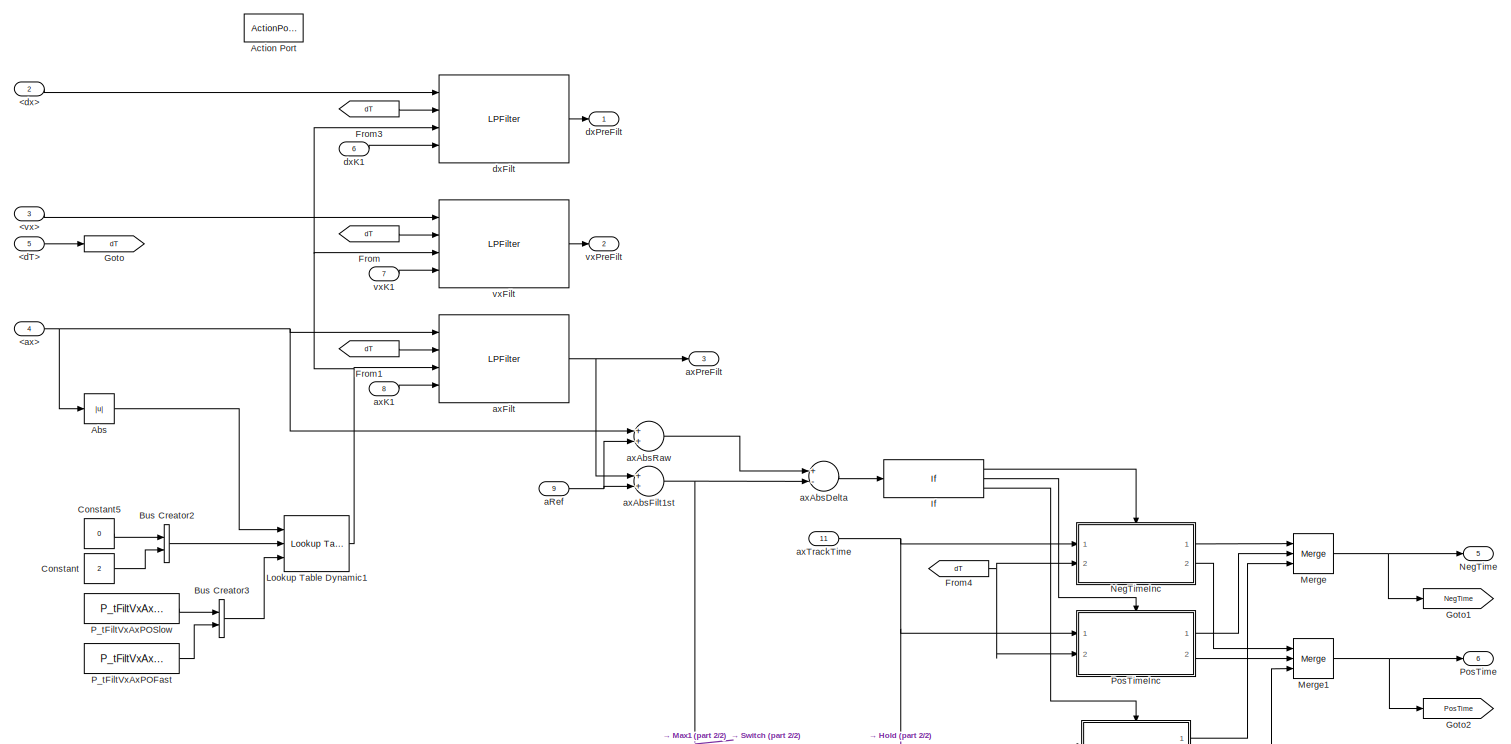
[diagram: Target_PreProcess/preFilt - part 1/2, full width, top band]
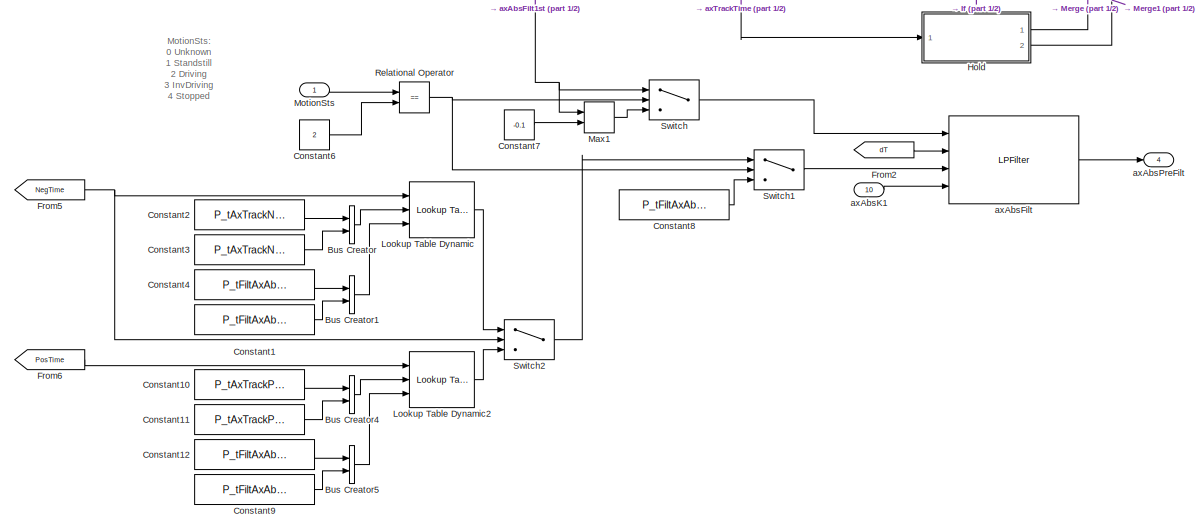
[diagram: Target_PreProcess/preFilt - part 2/2, full width, bottom band]
BLOCK [SubSystem] Target_PreProcess/preFilt
  Ports = [11, 6, 0, 0, 0, 0, 0, 1]
  RequestExecContextInheritance = off
BLOCK [Inport] Target_PreProcess/preFilt/<ax>
  IconDisplay = Port number
  Port = 4
BLOCK [Inport] Target_PreProcess/preFilt/<dT>
  IconDisplay = Port number
  Port = 5
BLOCK [Inport] Target_PreProcess/preFilt/<dx>
  IconDisplay = Port number
  Port = 2
BLOCK [Inport] Target_PreProcess/preFilt/<vx>
  IconDisplay = Port number
  Port = 3
BLOCK [Abs] Target_PreProcess/preFilt/Abs
  SaturateOnIntegerOverflow = off
BLOCK [ActionPort] Target_PreProcess/preFilt/Action Port
  ActionType = then
BLOCK [BusCreator] Target_PreProcess/preFilt/Bus Creator
  DisplayOption = bar
  InheritFromInputs = on
  Inputs = 2
  Ports = [2, 1]
BLOCK [BusCreator] Target_PreProcess/preFilt/Bus Creator1
  DisplayOption = bar
  InheritFromInputs = on
  Inputs = 2
  Ports = [2, 1]
BLOCK [BusCreator] Target_PreProcess/preFilt/Bus Creator2
  DisplayOption = bar
  InheritFromInputs = on
  Inputs = 2
  Ports = [2, 1]
BLOCK [BusCreator] Target_PreProcess/preFilt/Bus Creator3
  DisplayOption = bar
  InheritFromInputs = on
  Inputs = 2
  Ports = [2, 1]
BLOCK [BusCreator] Target_PreProcess/preFilt/Bus Creator4
  DisplayOption = bar
  InheritFromInputs = on
  Inputs = 2
  Ports = [2, 1]
BLOCK [BusCreator] Target_PreProcess/preFilt/Bus Creator5
  DisplayOption = bar
  InheritFromInputs = on
  Inputs = 2
  Ports = [2, 1]
BLOCK [Constant] Target_PreProcess/preFilt/Constant
  OutDataTypeStr = single
  Value = 2
BLOCK [Constant] Target_PreProcess/preFilt/Constant1
  Value = P_tFiltAxAbsPONegFast
BLOCK [Constant] Target_PreProcess/preFilt/Constant10
  Value = P_tAxTrackPosLower
BLOCK [Constant] Target_PreProcess/preFilt/Constant11
  Value = P_tAxTrackPosUpper
BLOCK [Constant] Target_PreProcess/preFilt/Constant12
  Value = P_tFiltAxAbsPOPosSlow
BLOCK [Constant] Target_PreProcess/preFilt/Constant2
  Value = P_tAxTrackNegLower
BLOCK [Constant] Target_PreProcess/preFilt/Constant3
  Value = P_tAxTrackNegUpper
BLOCK [Constant] Target_PreProcess/preFilt/Constant4
  Value = P_tFiltAxAbsPONegSlow
BLOCK [Constant] Target_PreProcess/preFilt/Constant5
  OutDataTypeStr = single
  Value = 0
BLOCK [Constant] Target_PreProcess/preFilt/Constant6
  OutDataTypeStr = single
  Value = 2
BLOCK [Constant] Target_PreProcess/preFilt/Constant7
  OutDataTypeStr = single
  Value = -0.1
BLOCK [Constant] Target_PreProcess/preFilt/Constant8
  Value = P_tFiltAxAbsPOStand
BLOCK [Constant] Target_PreProcess/preFilt/Constant9
  Value = P_tFiltAxAbsPOPosFast
BLOCK [From] Target_PreProcess/preFilt/From
  GotoTag = dT
BLOCK [From] Target_PreProcess/preFilt/From1
  GotoTag = dT
BLOCK [From] Target_PreProcess/preFilt/From2
  GotoTag = dT
BLOCK [From] Target_PreProcess/preFilt/From3
  GotoTag = dT
BLOCK [From] Target_PreProcess/preFilt/From4
  GotoTag = dT
BLOCK [From] Target_PreProcess/preFilt/From5
  GotoTag = NegTime
BLOCK [From] Target_PreProcess/preFilt/From6
  GotoTag = PosTime
BLOCK [Goto] Target_PreProcess/preFilt/Goto
  GotoTag = dT
BLOCK [Goto] Target_PreProcess/preFilt/Goto1
  GotoTag = NegTime
BLOCK [Goto] Target_PreProcess/preFilt/Goto2
  GotoTag = PosTime
BLOCK [SubSystem] Target_PreProcess/preFilt/Hold
  Ports = [1, 2, 0, 0, 0, 0, 0, 1]
  RequestExecContextInheritance = off
  TreatAsAtomicUnit = on
BLOCK [ActionPort] Target_PreProcess/preFilt/Hold/Action Port
  ActionType = else
BLOCK [BusSelector] Target_PreProcess/preFilt/Hold/Bus Selector
  OutputAsBus = off
  OutputSignals = NegTime,PosTime
  Ports = [1, 2]
BLOCK [Outport] Target_PreProcess/preFilt/Hold/NegTime
  IconDisplay = Port number
BLOCK [Outport] Target_PreProcess/preFilt/Hold/PosTime
  IconDisplay = Port number
  Port = 2
BLOCK [Inport] Target_PreProcess/preFilt/Hold/axTrackTime
  IconDisplay = Port number
BLOCK [If] Target_PreProcess/preFilt/If
  ElseIfExpressions = u1 > 0.1
  IfExpression = u1 < -0.1
  Ports = [1, 3]
BLOCK [Reference] Target_PreProcess/preFilt/Lookup Table Dynamic  REF=simulink/Lookup
Tables/Lookup
Table
Dynamic
  Ports = [3, 1]
  SourceBlock = simulink/Lookup\nTables/Lookup\nTable\nDynamic
  SourceProductBaseCode = SL
  SourceProductName = Simulink
  SourceType = Lookup Table Dynamic
BLOCK [Reference] Target_PreProcess/preFilt/Lookup Table Dynamic1  REF=simulink/Lookup
Tables/Lookup
Table
Dynamic
  Ports = [3, 1]
  SourceBlock = simulink/Lookup\nTables/Lookup\nTable\nDynamic
  SourceProductBaseCode = SL
  SourceProductName = Simulink
  SourceType = Lookup Table Dynamic
BLOCK [Reference] Target_PreProcess/preFilt/Lookup Table Dynamic2  REF=simulink/Lookup
Tables/Lookup
Table
Dynamic
  Ports = [3, 1]
  SourceBlock = simulink/Lookup\nTables/Lookup\nTable\nDynamic
  SourceProductBaseCode = SL
  SourceProductName = Simulink
  SourceType = Lookup Table Dynamic
BLOCK [MinMax] Target_PreProcess/preFilt/Max1
  Function = max
  InputSameDT = off
  Inputs = 2
  Ports = [2, 1]
  SaturateOnIntegerOverflow = off
BLOCK [Merge] Target_PreProcess/preFilt/Merge
  Inputs = 3
  Ports = [3, 1]
BLOCK [Merge] Target_PreProcess/preFilt/Merge1
  Inputs = 3
  Ports = [3, 1]
BLOCK [Inport] Target_PreProcess/preFilt/MotionSts
  IconDisplay = Port number
BLOCK [Outport] Target_PreProcess/preFilt/NegTime
  IconDisplay = Port number
  Port = 5
BLOCK [SubSystem] Target_PreProcess/preFilt/NegTimeInc
  Ports = [2, 2, 0, 0, 0, 0, 0, 1]
  RequestExecContextInheritance = off
  TreatAsAtomicUnit = on
BLOCK [ActionPort] Target_PreProcess/preFilt/NegTimeInc/Action Port
  ActionType = then
BLOCK [Sum] Target_PreProcess/preFilt/NegTimeInc/Add
  InputSameDT = off
  OutDataTypeStr = Inherit: Inherit via internal rule
  Ports = [2, 1]
  SaturateOnIntegerOverflow = off
BLOCK [BusSelector] Target_PreProcess/preFilt/NegTimeInc/Bus Selector
  OutputAsBus = off
  OutputSignals = NegTime
  Ports = [1, 1]
BLOCK [Constant] Target_PreProcess/preFilt/NegTimeInc/Constant
  OutDataTypeStr = single
  Value = 5
BLOCK [Constant] Target_PreProcess/preFilt/NegTimeInc/Constant1
  OutDataTypeStr = single
  Value = 0
BLOCK [MinMax] Target_PreProcess/preFilt/NegTimeInc/Max
  InputSameDT = off
  Inputs = 2
  Ports = [2, 1]
  SaturateOnIntegerOverflow = off
BLOCK [Outport] Target_PreProcess/preFilt/NegTimeInc/NegTime
  IconDisplay = Port number
BLOCK [Outport] Target_PreProcess/preFilt/NegTimeInc/PosTime
  IconDisplay = Port number
  Port = 2
BLOCK [Inport] Target_PreProcess/preFilt/NegTimeInc/axTrackTime
  IconDisplay = Port number
BLOCK [Inport] Target_PreProcess/preFilt/NegTimeInc/dT
  IconDisplay = Port number
  Port = 2
BLOCK [Constant] Target_PreProcess/preFilt/P_tFiltVxAxPOFast
  Value = P_tFiltVxAxPOFast
BLOCK [Constant] Target_PreProcess/preFilt/P_tFiltVxAxPOSlow
  Value = P_tFiltVxAxPOSlow
BLOCK [Outport] Target_PreProcess/preFilt/PosTime
  IconDisplay = Port number
  Port = 6
BLOCK [SubSystem] Target_PreProcess/preFilt/PosTimeInc
  Ports = [2, 2, 0, 0, 0, 0, 0, 1]
  RequestExecContextInheritance = off
  TreatAsAtomicUnit = on
BLOCK [ActionPort] Target_PreProcess/preFilt/PosTimeInc/Action Port
  ActionType = elseif
BLOCK [Sum] Target_PreProcess/preFilt/PosTimeInc/Add
  InputSameDT = off
  OutDataTypeStr = Inherit: Inherit via internal rule
  Ports = [2, 1]
  SaturateOnIntegerOverflow = off
BLOCK [BusSelector] Target_PreProcess/preFilt/PosTimeInc/Bus Selector
  OutputAsBus = off
  OutputSignals = PosTime
  Ports = [1, 1]
BLOCK [Constant] Target_PreProcess/preFilt/PosTimeInc/Constant
  OutDataTypeStr = single
  Value = 5
BLOCK [Constant] Target_PreProcess/preFilt/PosTimeInc/Constant1
  OutDataTypeStr = single
  Value = 0
BLOCK [MinMax] Target_PreProcess/preFilt/PosTimeInc/Max
  InputSameDT = off
  Inputs = 2
  Ports = [2, 1]
  SaturateOnIntegerOverflow = off
BLOCK [Outport] Target_PreProcess/preFilt/PosTimeInc/NegTime
  IconDisplay = Port number
BLOCK [Outport] Target_PreProcess/preFilt/PosTimeInc/PosTime
  IconDisplay = Port number
  Port = 2
BLOCK [Inport] Target_PreProcess/preFilt/PosTimeInc/axTrackTime
  IconDisplay = Port number
BLOCK [Inport] Target_PreProcess/preFilt/PosTimeInc/dT
  IconDisplay = Port number
  Port = 2
BLOCK [RelationalOperator] Target_PreProcess/preFilt/Relational Operator
  InputSameDT = off
  Operator = ==
  OutDataTypeStr = boolean
  Ports = [2, 1]
  RndMeth = Simplest
BLOCK [Switch] Target_PreProcess/preFilt/Switch
  Criteria = u2 > Threshold
  InputSameDT = off
  SaturateOnIntegerOverflow = off
BLOCK [Switch] Target_PreProcess/preFilt/Switch1
  Criteria = u2 > Threshold
  InputSameDT = off
  SaturateOnIntegerOverflow = off
BLOCK [Switch] Target_PreProcess/preFilt/Switch2
  Criteria = u2 > Threshold
  InputSameDT = off
  SaturateOnIntegerOverflow = off
BLOCK [Inport] Target_PreProcess/preFilt/aRef
  IconDisplay = Port number
  Port = 9
BLOCK [Sum] Target_PreProcess/preFilt/axAbsDelta
  InputSameDT = off
  Inputs = +-
  OutDataTypeStr = Inherit: Inherit via internal rule
  Ports = [2, 1]
  SaturateOnIntegerOverflow = off
BLOCK [Reference] Target_PreProcess/preFilt/axAbsFilt  REF=LPFilter/LPFilter
  Ports = [4, 1]
  SourceBlock = LPFilter/LPFilter
  SourceProductName = CustomLib
  SourceType = SubSystem
BLOCK [Sum] Target_PreProcess/preFilt/axAbsFilt1st
  InputSameDT = off
  OutDataTypeStr = Inherit: Inherit via internal rule
  Ports = [2, 1]
  SaturateOnIntegerOverflow = off
BLOCK [Inport] Target_PreProcess/preFilt/axAbsK1
  IconDisplay = Port number
  Port = 10
BLOCK [Outport] Target_PreProcess/preFilt/axAbsPreFilt
  IconDisplay = Port number
  Port = 4
BLOCK [Sum] Target_PreProcess/preFilt/axAbsRaw
  InputSameDT = off
  OutDataTypeStr = Inherit: Inherit via internal rule
  Ports = [2, 1]
  SaturateOnIntegerOverflow = off
BLOCK [Reference] Target_PreProcess/preFilt/axFilt  REF=LPFilter/LPFilter
  Ports = [4, 1]
  SourceBlock = LPFilter/LPFilter
  SourceProductName = CustomLib
  SourceType = SubSystem
BLOCK [Inport] Target_PreProcess/preFilt/axK1
  IconDisplay = Port number
  Port = 8
BLOCK [Outport] Target_PreProcess/preFilt/axPreFilt
  IconDisplay = Port number
  Port = 3
BLOCK [Inport] Target_PreProcess/preFilt/axTrackTime
  IconDisplay = Port number
  Port = 11
BLOCK [Reference] Target_PreProcess/preFilt/dxFilt  REF=LPFilter/LPFilter
  Ports = [4, 1]
  SourceBlock = LPFilter/LPFilter
  SourceProductName = CustomLib
  SourceType = SubSystem
BLOCK [Inport] Target_PreProcess/preFilt/dxK1
  IconDisplay = Port number
  Port = 6
BLOCK [Outport] Target_PreProcess/preFilt/dxPreFilt
  IconDisplay = Port number
BLOCK [Reference] Target_PreProcess/preFilt/vxFilt  REF=LPFilter/LPFilter
  Ports = [4, 1]
  SourceBlock = LPFilter/LPFilter
  SourceProductName = CustomLib
  SourceType = SubSystem
BLOCK [Inport] Target_PreProcess/preFilt/vxK1
  IconDisplay = Port number
  Port = 7
BLOCK [Outport] Target_PreProcess/preFilt/vxPreFilt
  IconDisplay = Port number
  Port = 2
BLOCK [Terminator] Terminator2
BLOCK [Terminator] Terminator4
BLOCK [ToWorkspace] To Workspace1
  FixptAsFi = on
  MaxDataPoints = inf
  Ports = [1]
  SampleTime = -1
  Save2DSignal = 3-D array (concatenate along third dimension)
  SaveFormat = Timeseries
  VariableName = ATS_Po_out
BLOCK [ToWorkspace] To Workspace2
  FixptAsFi = on
  MaxDataPoints = inf
  Ports = [1]
  SampleTime = -1
  Save2DSignal = 3-D array (concatenate along third dimension)
  SaveFormat = Timeseries
  VariableName = ACC_Info_st
BLOCK [ToWorkspace] To Workspace3
  FixptAsFi = on
  MaxDataPoints = inf
  Ports = [1]
  SampleTime = -1
  Save2DSignal = 3-D array (concatenate along third dimension)
  SaveFormat = Timeseries
  VariableName = AVP_Info
BLOCK [ToWorkspace] To Workspace4
  FixptAsFi = on
  MaxDataPoints = inf
  Ports = [1]
  SampleTime = -1
  Save2DSignal = 3-D array (concatenate along third dimension)
  SaveFormat = Timeseries
  VariableName = ACCAxtar
BLOCK [ToWorkspace] To Workspace5
  FixptAsFi = on
  MaxDataPoints = inf
  Ports = [1]
  SampleTime = -1
  Save2DSignal = 3-D array (concatenate along third dimension)
  SaveFormat = Timeseries
  VariableName = CMDType
BLOCK [ToWorkspace] To Workspace6
  FixptAsFi = on
  MaxDataPoints = inf
  Ports = [1]
  SampleTime = -1
  Save2DSignal = 3-D array (concatenate along third dimension)
  SaveFormat = Timeseries
  VariableName = POInfo
BLOCK [Inport] VLC_Cmd_K1
  BusOutputAsStruct = on
  IconDisplay = Port number
  OutDataTypeStr = Bus: VLC_LGTCMD_ST
  Port = 8
BLOCK [Inport] VSI_VehState_st
  BusOutputAsStruct = on
  IconDisplay = Port number
  OutDataTypeStr = Bus: VSI_VEHSTATE_ST
  Port = 3
BLOCK [Inport] ZOP2ACC
  BusOutputAsStruct = on
  IconDisplay = Port number
  OutDataTypeStr = Bus: ZOP2ACC
  Port = 10
BLOCK [SubSystem] ZOP_ENABLE
  Ports = [1, 1]
  RequestExecContextInheritance = off
BLOCK [BusSelector] ZOP_ENABLE/Bus Selector
  OutputAsBus = off
  OutputSignals = activate_acc
  Ports = [1, 1]
BLOCK [DataTypeConversion] ZOP_ENABLE/Data Type Conversion16
  OutDataTypeStr = boolean
  RndMeth = Floor
  SaturateOnIntegerOverflow = off
BLOCK [Inport] ZOP_ENABLE/In1
  IconDisplay = Port number
BLOCK [Outport] ZOP_ENABLE/ZOP_Enable
  IconDisplay = Port number
BLOCK [SubSystem] calcCancelFlag
  Ports = [2, 1]
  RequestExecContextInheritance = off
BLOCK [Logic] calcCancelFlag/AND
  AllPortsSameDT = off
  OutDataTypeStr = boolean
  Ports = [2, 1]
BLOCK [Outport] calcCancelFlag/Cancel
  IconDisplay = Port number
BLOCK [Constant] calcCancelFlag/Constant
  OutDataTypeStr = single
  Value = 2
BLOCK [Constant] calcCancelFlag/Constant1
  OutDataTypeStr = single
BLOCK [Constant] calcCancelFlag/Constant2
  OutDataTypeStr = single
  Value = 0
BLOCK [If] calcCancelFlag/If
  ElseIfExpressions = u2 == 1
  IfExpression = u1 ==1
  NumInputs = 2
  Ports = [2, 3]
BLOCK [SubSystem] calcCancelFlag/If Action Subsystem
  Ports = [0, 2, 0, 0, 0, 0, 0, 1]
  RequestExecContextInheritance = off
  TreatAsAtomicUnit = on
BLOCK [ActionPort] calcCancelFlag/If Action Subsystem/Action Port
  ActionType = then
BLOCK [Outport] calcCancelFlag/If Action Subsystem/CancelFlag
  IconDisplay = Port number
BLOCK [Constant] calcCancelFlag/If Action Subsystem/Constant
  OutDataTypeStr = boolean
BLOCK [Constant] calcCancelFlag/If Action Subsystem/Constant1
  OutDataTypeStr = single
  Value = 0.5
BLOCK [Outport] calcCancelFlag/If Action Subsystem/HoldTime
  IconDisplay = Port number
  Port = 2
BLOCK [SubSystem] calcCancelFlag/If Action Subsystem1
  Ports = [2, 2, 0, 0, 0, 0, 0, 1]
  RequestExecContextInheritance = off
  TreatAsAtomicUnit = on
BLOCK [ActionPort] calcCancelFlag/If Action Subsystem1/Action Port
  ActionType = elseif
BLOCK [Sum] calcCancelFlag/If Action Subsystem1/Add
  InputSameDT = off
  Inputs = +-
  OutDataTypeStr = Inherit: Inherit via internal rule
  Ports = [2, 1]
  SaturateOnIntegerOverflow = off
BLOCK [BusSelector] calcCancelFlag/If Action Subsystem1/Bus Selector
  OutputAsBus = off
  OutputSignals = dT
  Ports = [1, 1]
BLOCK [Outport] calcCancelFlag/If Action Subsystem1/CancelFlag
  IconDisplay = Port number
BLOCK [Constant] calcCancelFlag/If Action Subsystem1/Constant
  OutDataTypeStr = boolean
BLOCK [Constant] calcCancelFlag/If Action Subsystem1/Constant1
  OutDataTypeStr = single
  Value = 0
BLOCK [Outport] calcCancelFlag/If Action Subsystem1/HoldTime
  IconDisplay = Port number
  Port = 2
BLOCK [Inport] calcCancelFlag/If Action Subsystem1/HoldTimeK1
  IconDisplay = Port number
  Port = 2
BLOCK [MinMax] calcCancelFlag/If Action Subsystem1/Max
  Function = max
  InputSameDT = off
  Inputs = 2
  Ports = [2, 1]
  SaturateOnIntegerOverflow = off
BLOCK [Inport] calcCancelFlag/If Action Subsystem1/SYS_Info
  IconDisplay = Port number
BLOCK [SubSystem] calcCancelFlag/If Action Subsystem2
  Ports = [0, 2, 0, 0, 0, 0, 0, 1]
  RequestExecContextInheritance = off
  TreatAsAtomicUnit = on
BLOCK [ActionPort] calcCancelFlag/If Action Subsystem2/Action Port
  ActionType = else
BLOCK [Outport] calcCancelFlag/If Action Subsystem2/CancelFlag
  IconDisplay = Port number
BLOCK [Constant] calcCancelFlag/If Action Subsystem2/Constant
  OutDataTypeStr = boolean
  Value = 0
BLOCK [Constant] calcCancelFlag/If Action Subsystem2/Constant1
  OutDataTypeStr = single
  Value = 0
BLOCK [Outport] calcCancelFlag/If Action Subsystem2/HoldTime
  IconDisplay = Port number
  Port = 2
BLOCK [Inport] calcCancelFlag/MainState
  IconDisplay = Port number
BLOCK [Memory] calcCancelFlag/Memory
BLOCK [Memory] calcCancelFlag/Memory1
BLOCK [Merge] calcCancelFlag/Merge
  Inputs = 3
  Ports = [3, 1]
BLOCK [Merge] calcCancelFlag/Merge1
  Inputs = 3
  Ports = [3, 1]
BLOCK [RelationalOperator] calcCancelFlag/Relational Operator
  InputSameDT = off
  OutDataTypeStr = boolean
  Ports = [2, 1]
  RndMeth = Simplest
BLOCK [RelationalOperator] calcCancelFlag/Relational Operator1
  InputSameDT = off
  Operator = <=
  OutDataTypeStr = boolean
  Ports = [2, 1]
  RndMeth = Simplest
BLOCK [RelationalOperator] calcCancelFlag/Relational Operator2
  InputSameDT = off
  Operator = >
  OutDataTypeStr = boolean
  Ports = [2, 1]
  RndMeth = Simplest
BLOCK [Inport] calcCancelFlag/SYS_Info
  IconDisplay = Port number
  Port = 2
ANNOTATION ACC_Control: expand CurvSpdCtrl algorithm later
ANNOTATION ACC_Control/AccelBoundCtrl/LowerLimitation: expand lower limitation according to: vehicle speed slope
ANNOTATION ACC_Control/AccelBoundCtrl/UpperLimitation: expand lower limitation according to: vehicle speed slope engine capacity
ANNOTATION ACC_Control/ArbitraryMix: 00: Invalid 01:Parking In 02:Parking Out 03:Stop
ANNOTATION ACC_Control/FollowObjCtrl/FollowObjValid: expand BDC algorithm later
ANNOTATION ACC_Control/FollowObjCtrl/FollowObjValid/ApproachingCtrl: when vObj >= vEgo, output a = 0 when vObj < vEgo, use Case1 when Obj is accel use Case1 when Obj is decel, and Ego decel to the same speed before Obj is stopped use Case2 when Obj is decel, and Ego decel to the same speed after Obj is stopped
ANNOTATION ACC_Control/FollowObjCtrl/FollowObjValid/ApproachingCtrl/tStopObj: MotionSts: 0 Unknown 1 Standstill 2 Driving 3 InvDriving 4 Stopped 5 InvStopped
ANNOTATION ACC_Control/FollowObjCtrl/FollowObjValid/BrakeDistCtrl: BDC_State 0 PASSIVE 1 CALC 2 ACTIVE 3 RECALC
ANNOTATION ACC_Control/FollowObjCtrl/FollowObjValid/BrakeDistCtrl/calcCriteria/calcProfileReCalc: should consider situation becomes urgent secnario later
ANNOTATION ACC_Control/FollowObjCtrl/FollowObjValid/BrakeDistCtrl/calcProfile/calc/calcInitCondition: a0 should be calculated by both aRef and last aCmd value
ANNOTATION ACC_Control/FollowObjCtrl/FollowObjValid/CalcDAim: Index == 200: AVP virtual target
ANNOTATION ACC_Control/FollowObjCtrl/FollowObjValid/CalcDAim: Type == 20: AVP virtual target
ANNOTATION ACC_Control/FollowObjCtrl/FollowObjValid/StationaryCtrl: if target is decelerating, add target's deceleration to target accel. this should be interpolated according to relative distance.
ANNOTATION ACC_Control/FollowObjCtrl/FollowObjValid/StationaryCtrl/calcCharactVal: When dx>dAim, characteristic curve should be divided into 2 segment to avoid constant low speed approaching in far-away case.
ANNOTATION ACC_Control/FollowObjCtrl/FollowObjValid/StopGoCtrl: Index == 200: AVP virtual target
ANNOTATION ACC_Control/FollowObjCtrl/FollowObjValid/StopGoCtrl: MainState 0 OFF 1 PASSIVE 2 ACTIVE_Drive 3 ACTIVE_Standstill 4 OVERRIDE
ANNOTATION ACC_Control/FollowObjCtrl/FollowObjValid/StopGoCtrl: Type == 20: AVP virtual target
ANNOTATION ACC_Control/OvertakeSuppression/If Action Subsystem: Type: 0 Unknown 1 Pedestrain 2 Bi/Motor cycle 3 Bus 4 Medium car 5 Truck 6 Three-wheel motor 7 Special car 8 Tiny car 9 Ambluance 10 Uncertain
ANNOTATION ACC_Control/OvertakeSuppression/If Action Subsystem2: Type: 0 Unknown 1 Pedestrain 2 Bi/Motor cycle 3 Bus 4 Medium car 5 Truck 6 Three-wheel motor 7 Special car 8 Tiny car 9 Ambluance 10 Uncertain
ANNOTATION ACC_Target_Selection/Subsystem/ValidObjCalc/CutInCalc/Subsystem/Subsystem: MotionSts: 0 Unknown 1 Standstill 2 Driving 3 InvDriving 4 Stopped 5 InvStopped
ANNOTATION ACC_Target_Selection/Subsystem/ValidObjCalc/LanePlausCalc: logic to be expanded: 1. plausibility should be independently calculated for each lane(left, ego and right) 2. plausibility of each lane should be integrated according to coresponding probability
ANNOTATION ACC_Target_Selection/Subsystem/ValidObjCalc/TargetPlausCheck/Subsystem/CheckExistence: logic to be expanded: 1. variance threshold of dy can be interpolated according to dx 2. other criteria representing existence can be added here
ANNOTATION ACC_Target_Selection/Subsystem/ValidObjCalc/TargetPlausCheck/Subsystem/CheckFOV: logic to be expanded: dx threshold can be adjusted regarding if current obj is already PO target
ANNOTATION ACC_Target_Selection/Subsystem/ValidObjCalc/TargetPlausCheck/Subsystem/CheckMotSts: MotionSts: 0 Unknown 1 Standstill 2 Driving 3 InvDriving 4 Stopped 5 InvStopped
ANNOTATION ACC_Target_Selection/Subsystem/ValidObjCalc/TargetPlausCheck/Subsystem/CheckMotSts: Type: 0 Unknown 1 Pedestrain 2 Bi/Motor cycle >=3 Vehicle
ANNOTATION ACC_Target_Selection/Subsystem/ValidObjCalc/TargetPlausCheck/Subsystem/CheckPlaus: logic to be expanded: plausibility threshold can be adjusted regarding if the current object is already PO target
ANNOTATION AVP_Simu/calcAVPInfo: 00: Invalid 01:Parking In 02:Parking Out 03:Stop
ANNOTATION AVP_Simu/default: 00: Invalid 01:Parking In 02:Parking Out 03:Stop
ANNOTATION ObjAdapter/For Each Subsystem: MotionSts: 0 Unknown 1 Standstill 2 Driving 3 InvDriving 4 Stopped 5 InvStopped
ANNOTATION ObjAdapter/For Each Subsystem: Type: 0 Unknown 1 Pedestrain 2 Bi/Motor cycle >=3 Vehicle
ANNOTATION ObjAdapter/For Each Subsystem/calcDx: half length
ANNOTATION ObjAdapter/For Each Subsystem/calcDx: mass center
ANNOTATION ObjAdapter/For Each Subsystem/calcDx: rear axls to front bumper
ANNOTATION ObjRadarAdapter/For Each Subsystem/calcDx: mass center
ANNOTATION ObjRadarAdapter/For Each Subsystem/calcDx: rear axls to front bumper
ANNOTATION ObjRadarAdapter/For Each Subsystem/calcMotionSts: MotionSts: 0 Unknown 1 Standstill 2 Driving 3 InvDriving 4 Stopped 5 InvStopped
ANNOTATION ObjRadarAdapter/For Each Subsystem/calcMotionSts: Type: 0 Unknown 1 Pedestrain 2 Bi/Motor cycle >=3 Vehicle
ANNOTATION ObjRadarAdapter/For Each Subsystem/calcType: MotionSts: 0 Unknown 1 Standstill 2 Driving 3 InvDriving 4 Stopped 5 InvStopped
ANNOTATION ObjRadarAdapter/For Each Subsystem/calcType: Type: 0 Unknown 1 Pedestrain 2 Bi/Motor cycle >=3 Vehicle
ANNOTATION Subsystem3: bit0
ANNOTATION Subsystem3: bit1
ANNOTATION Subsystem3: bit2
ANNOTATION Subsystem3: bit3
ANNOTATION Target_PreProcess/AVP_Target: 00: Invalid 01:Parking In 02:Parking Out 03:Stop
ANNOTATION Target_PreProcess/AVP_Target/If Action Subsystem: Index = 200 -> AVP virtual target
ANNOTATION Target_PreProcess/AVP_Target/If Action Subsystem: MotionSts: 0 Unknown 1 Standstill 2 Driving 3 InvDriving 4 Stopped 5 InvStopped
ANNOTATION Target_PreProcess/AVP_Target/If Action Subsystem: Type: 0 Unknown 1 Pedestrain 2 Bi/Motor cycle >=3 Vehicle 20 AVP virtual target
ANNOTATION Target_PreProcess/preFilt: MotionSts: 0 Unknown 1 Standstill 2 Driving 3 InvDriving 4 Stopped 5 InvStopped
LINE ACC_Control/AND:1 -> ACC_Control/OR:2
NET ACC_Control/AVP_Info:1 -> ACC_Control/Goto1:1, ACC_Control/SetSpdCtrl:2
LINE ACC_Control/AccelBoundCtrl/LowerLimitation/Constant:1 -> ACC_Control/AccelBoundCtrl/LowerLimitation/Out1:1
LINE ACC_Control/AccelBoundCtrl/LowerLimitation:1 -> ACC_Control/AccelBoundCtrl/Max:2
LINE ACC_Control/AccelBoundCtrl/Max1:1 -> ACC_Control/AccelBoundCtrl/aABC:1
LINE ACC_Control/AccelBoundCtrl/Max:1 -> ACC_Control/AccelBoundCtrl/Max1:1
LINE ACC_Control/AccelBoundCtrl/UpperLimitation/Constant:1 -> ACC_Control/AccelBoundCtrl/UpperLimitation/Out1:1
LINE ACC_Control/AccelBoundCtrl/UpperLimitation:1 -> ACC_Control/AccelBoundCtrl/Max1:2
LINE ACC_Control/AccelBoundCtrl/aAM:1 -> ACC_Control/AccelBoundCtrl/Max:1
NET ACC_Control/AccelBoundCtrl:1 -> ACC_Control/Memory:1, ACC_Control/aCv:1
LINE ACC_Control/AdjacentLaneObjInfo:1 -> ACC_Control/OvertakeSuppression:1
LINE ACC_Control/ArbitraryMix/1-D Lookup Table:1 -> ACC_Control/ArbitraryMix/CMDType:1
LINE ACC_Control/ArbitraryMix/AVP_Info:1 -> ACC_Control/ArbitraryMix/Bus Selector:1
NET ACC_Control/ArbitraryMix/Bus Creator:1 -> ACC_Control/ArbitraryMix/Subsystem:1, ACC_Control/ArbitraryMix/To Workspace5:1
LINE ACC_Control/ArbitraryMix/Bus Selector:1 -> ACC_Control/ArbitraryMix/Relational Operator:1
LINE ACC_Control/ArbitraryMix/Constant1:1 -> ACC_Control/ArbitraryMix/Relational Operator:2
LINE ACC_Control/ArbitraryMix/Constant:1 -> ACC_Control/ArbitraryMix/Subsystem:2
LINE ACC_Control/ArbitraryMix/FOCInfo:1 -> ACC_Control/ArbitraryMix/calcAFOC:1
LINE ACC_Control/ArbitraryMix/OR:1 -> ACC_Control/ArbitraryMix/DecToStop:1
LINE ACC_Control/ArbitraryMix/Relational Operator:1 -> ACC_Control/ArbitraryMix/OR:2
LINE ACC_Control/ArbitraryMix/Subsystem/Add:1 -> ACC_Control/ArbitraryMix/Subsystem/Switch2:1
LINE ACC_Control/ArbitraryMix/Subsystem/Constant1:1 -> ACC_Control/ArbitraryMix/Subsystem/Switch:1
LINE ACC_Control/ArbitraryMix/Subsystem/Constant2:1 -> ACC_Control/ArbitraryMix/Subsystem/Add:2
LINE ACC_Control/ArbitraryMix/Subsystem/Constant:1 -> ACC_Control/ArbitraryMix/Subsystem/Relational Operator:2
NET ACC_Control/ArbitraryMix/Subsystem/For Iterator:1 -> ACC_Control/ArbitraryMix/Subsystem/Add:1, ACC_Control/ArbitraryMix/Subsystem/Relational Operator:1, ACC_Control/ArbitraryMix/Subsystem/Selector:2
LINE ACC_Control/ArbitraryMix/Subsystem/Memory1:1 -> ACC_Control/ArbitraryMix/Subsystem/Switch2:3
LINE ACC_Control/ArbitraryMix/Subsystem/Memory:1 -> ACC_Control/ArbitraryMix/Subsystem/Switch:3
NET ACC_Control/ArbitraryMix/Subsystem/Relational Operator1:1 -> ACC_Control/ArbitraryMix/Subsystem/Switch1:2, ACC_Control/ArbitraryMix/Subsystem/Switch2:2
LINE ACC_Control/ArbitraryMix/Subsystem/Relational Operator:1 -> ACC_Control/ArbitraryMix/Subsystem/Switch:2
NET ACC_Control/ArbitraryMix/Subsystem/Selector:1 -> ACC_Control/ArbitraryMix/Subsystem/Relational Operator1:1, ACC_Control/ArbitraryMix/Subsystem/Switch1:1
NET ACC_Control/ArbitraryMix/Subsystem/Switch1:1 -> ACC_Control/ArbitraryMix/Subsystem/Memory:1, ACC_Control/ArbitraryMix/Subsystem/aMin:1
NET ACC_Control/ArbitraryMix/Subsystem/Switch2:1 -> ACC_Control/ArbitraryMix/Subsystem/CMDType:1, ACC_Control/ArbitraryMix/Subsystem/Memory1:1
NET ACC_Control/ArbitraryMix/Subsystem/Switch:1 -> ACC_Control/ArbitraryMix/Subsystem/Relational Operator1:2, ACC_Control/ArbitraryMix/Subsystem/Switch1:3
LINE ACC_Control/ArbitraryMix/Subsystem/aCvArray:1 -> ACC_Control/ArbitraryMix/Subsystem/Selector:1
LINE ACC_Control/ArbitraryMix/Subsystem/numASrc:1 -> ACC_Control/ArbitraryMix/Subsystem/For Iterator:1
LINE ACC_Control/ArbitraryMix/Subsystem:1 -> ACC_Control/ArbitraryMix/aAM:1
LINE ACC_Control/ArbitraryMix/Subsystem:2 -> ACC_Control/ArbitraryMix/1-D Lookup Table:1
LINE ACC_Control/ArbitraryMix/aCSC:1 -> ACC_Control/ArbitraryMix/Bus Creator:3
LINE ACC_Control/ArbitraryMix/aRdCrs:1 -> ACC_Control/ArbitraryMix/Bus Creator:4
LINE ACC_Control/ArbitraryMix/aSSC:1 -> ACC_Control/ArbitraryMix/Bus Creator:1
LINE ACC_Control/ArbitraryMix/calcAFOC/Constant2:1 -> ACC_Control/ArbitraryMix/calcAFOC/For Iterator Subsystem:1
LINE ACC_Control/ArbitraryMix/calcAFOC/FOCInfo:1 -> ACC_Control/ArbitraryMix/calcAFOC/For Iterator Subsystem:2
LINE ACC_Control/ArbitraryMix/calcAFOC/For Iterator Subsystem/Assignment1:1 -> ACC_Control/ArbitraryMix/calcAFOC/For Iterator Subsystem/aFOCArray:1
LINE ACC_Control/ArbitraryMix/calcAFOC/For Iterator Subsystem/Assignment2:1 -> ACC_Control/ArbitraryMix/calcAFOC/For Iterator Subsystem/DecToStopArray:1
LINE ACC_Control/ArbitraryMix/calcAFOC/For Iterator Subsystem/Bus Selector:1 -> ACC_Control/ArbitraryMix/calcAFOC/For Iterator Subsystem/Assignment1:2
LINE ACC_Control/ArbitraryMix/calcAFOC/For Iterator Subsystem/Bus Selector:2 -> ACC_Control/ArbitraryMix/calcAFOC/For Iterator Subsystem/Assignment2:2
LINE ACC_Control/ArbitraryMix/calcAFOC/For Iterator Subsystem/FOCInfo:1 -> ACC_Control/ArbitraryMix/calcAFOC/For Iterator Subsystem/Selector2:1
NET ACC_Control/ArbitraryMix/calcAFOC/For Iterator Subsystem/For Iterator:1 -> ACC_Control/ArbitraryMix/calcAFOC/For Iterator Subsystem/Goto:1, ACC_Control/ArbitraryMix/calcAFOC/For Iterator Subsystem/Selector2:2
LINE ACC_Control/ArbitraryMix/calcAFOC/For Iterator Subsystem/From1:1 -> ACC_Control/ArbitraryMix/calcAFOC/For Iterator Subsystem/Assignment2:3
LINE ACC_Control/ArbitraryMix/calcAFOC/For Iterator Subsystem/From:1 -> ACC_Control/ArbitraryMix/calcAFOC/For Iterator Subsystem/Assignment1:3
LINE ACC_Control/ArbitraryMix/calcAFOC/For Iterator Subsystem/Selector2:1 -> ACC_Control/ArbitraryMix/calcAFOC/For Iterator Subsystem/Bus Selector:1
LINE ACC_Control/ArbitraryMix/calcAFOC/For Iterator Subsystem/Zero1:1 -> ACC_Control/ArbitraryMix/calcAFOC/For Iterator Subsystem/Assignment1:1
LINE ACC_Control/ArbitraryMix/calcAFOC/For Iterator Subsystem/Zero2:1 -> ACC_Control/ArbitraryMix/calcAFOC/For Iterator Subsystem/Assignment2:1
LINE ACC_Control/ArbitraryMix/calcAFOC/For Iterator Subsystem/numFOC:1 -> ACC_Control/ArbitraryMix/calcAFOC/For Iterator Subsystem/For Iterator:1
LINE ACC_Control/ArbitraryMix/calcAFOC/For Iterator Subsystem:1 -> ACC_Control/ArbitraryMix/calcAFOC/Min:1
LINE ACC_Control/ArbitraryMix/calcAFOC/For Iterator Subsystem:2 -> ACC_Control/ArbitraryMix/calcAFOC/OR:1
LINE ACC_Control/ArbitraryMix/calcAFOC/Min:1 -> ACC_Control/ArbitraryMix/calcAFOC/aFOC:1
LINE ACC_Control/ArbitraryMix/calcAFOC/OR:1 -> ACC_Control/ArbitraryMix/calcAFOC/DecToStop:1
LINE ACC_Control/ArbitraryMix/calcAFOC:1 -> ACC_Control/ArbitraryMix/Bus Creator:2
LINE ACC_Control/ArbitraryMix/calcAFOC:2 -> ACC_Control/ArbitraryMix/OR:1
LINE ACC_Control/ArbitraryMix:1 -> ACC_Control/AccelBoundCtrl:1
LINE ACC_Control/ArbitraryMix:2 -> ACC_Control/OR:1
LINE ACC_Control/ArbitraryMix:3 -> ACC_Control/CMDType:1
LINE ACC_Control/Bus Selector:1 -> ACC_Control/Relational Operator:1
LINE ACC_Control/Bus Selector:2 -> ACC_Control/Relational Operator1:1
LINE ACC_Control/Bus Selector:3 -> ACC_Control/Relational Operator2:1
LINE ACC_Control/Constant1:1 -> ACC_Control/Relational Operator1:2
LINE ACC_Control/Constant2:1 -> ACC_Control/Relational Operator2:2
LINE ACC_Control/Constant3:1 -> ACC_Control/FollowObjCtrl:2
LINE ACC_Control/Constant9:1 -> ACC_Control/Selector2:2
LINE ACC_Control/Constant:1 -> ACC_Control/Relational Operator:2
LINE ACC_Control/CrossRoad/Add1:1 -> ACC_Control/CrossRoad/Divide:2
LINE ACC_Control/CrossRoad/Add2:1 -> ACC_Control/CrossRoad/Max:1
LINE ACC_Control/CrossRoad/Add:1 -> ACC_Control/CrossRoad/Divide:1
LINE ACC_Control/CrossRoad/Bus Selector1:1 -> ACC_Control/CrossRoad/Square1:1
LINE ACC_Control/CrossRoad/Bus Selector:1 -> ACC_Control/CrossRoad/Relational Operator:1
LINE ACC_Control/CrossRoad/Bus Selector:2 -> ACC_Control/CrossRoad/Square:1
LINE ACC_Control/CrossRoad/Bus Selector:3 -> ACC_Control/CrossRoad/Add2:1
LINE ACC_Control/CrossRoad/Constant1:1 -> ACC_Control/CrossRoad/Switch:1
LINE ACC_Control/CrossRoad/Constant2:1 -> ACC_Control/CrossRoad/Add1:2
LINE ACC_Control/CrossRoad/Constant3:1 -> ACC_Control/CrossRoad/Max:2
LINE ACC_Control/CrossRoad/Constant4:1 -> ACC_Control/CrossRoad/Add2:2
LINE ACC_Control/CrossRoad/Constant:1 -> ACC_Control/CrossRoad/Relational Operator:2
LINE ACC_Control/CrossRoad/Divide:1 -> ACC_Control/CrossRoad/Switch:3
LINE ACC_Control/CrossRoad/Gain:1 -> ACC_Control/CrossRoad/Add1:1
LINE ACC_Control/CrossRoad/Max:1 -> ACC_Control/CrossRoad/Gain:1
LINE ACC_Control/CrossRoad/Relational Operator:1 -> ACC_Control/CrossRoad/Switch:2
LINE ACC_Control/CrossRoad/RoadCrossInfo:1 -> ACC_Control/CrossRoad/Bus Selector:1
LINE ACC_Control/CrossRoad/Square1:1 -> ACC_Control/CrossRoad/Add:2
LINE ACC_Control/CrossRoad/Square:1 -> ACC_Control/CrossRoad/Add:1
LINE ACC_Control/CrossRoad/Switch:1 -> ACC_Control/CrossRoad/aRdCrs:1
LINE ACC_Control/CrossRoad/egoInfo:1 -> ACC_Control/CrossRoad/Bus Selector1:1
LINE ACC_Control/CrossRoad:1 -> ACC_Control/ArbitraryMix:4
LINE ACC_Control/CurvSpdCtrl/1-D Lookup Table:1 -> ACC_Control/CurvSpdCtrl/Abs1:1
LINE ACC_Control/CurvSpdCtrl/Abs1:1 -> ACC_Control/CurvSpdCtrl/Divide:1
LINE ACC_Control/CurvSpdCtrl/Abs:1 -> ACC_Control/CurvSpdCtrl/Max:1
LINE ACC_Control/CurvSpdCtrl/Add:1 -> ACC_Control/CurvSpdCtrl/Divide1:1
NET ACC_Control/CurvSpdCtrl/Bus Selector:1 -> ACC_Control/CurvSpdCtrl/1-D Lookup Table:1, ACC_Control/CurvSpdCtrl/Add:2
LINE ACC_Control/CurvSpdCtrl/Bus Selector:2 -> ACC_Control/CurvSpdCtrl/Abs:1
LINE ACC_Control/CurvSpdCtrl/Constant1:1 -> ACC_Control/CurvSpdCtrl/Max:2
LINE ACC_Control/CurvSpdCtrl/Divide1:1 -> ACC_Control/CurvSpdCtrl/aCSC:1
LINE ACC_Control/CurvSpdCtrl/Divide:1 -> ACC_Control/CurvSpdCtrl/Sqrt:1
LINE ACC_Control/CurvSpdCtrl/EgoTraj:1 -> ACC_Control/CurvSpdCtrl/Terminator:1
LINE ACC_Control/CurvSpdCtrl/Max:1 -> ACC_Control/CurvSpdCtrl/Divide:2
LINE ACC_Control/CurvSpdCtrl/P_tSSCPos:1 -> ACC_Control/CurvSpdCtrl/Divide1:2
LINE ACC_Control/CurvSpdCtrl/Sqrt:1 -> ACC_Control/CurvSpdCtrl/Add:1
LINE ACC_Control/CurvSpdCtrl/egoInfo:1 -> ACC_Control/CurvSpdCtrl/Bus Selector:1
LINE ACC_Control/CurvSpdCtrl:1 -> ACC_Control/ArbitraryMix:3
LINE ACC_Control/EgoTraj:1 -> ACC_Control/CurvSpdCtrl:2
LINE ACC_Control/FollowObjCtrl/Assignment1:1 -> ACC_Control/FollowObjCtrl/FOCInfo:1
LINE ACC_Control/FollowObjCtrl/Bus Creator:1 -> ACC_Control/FollowObjCtrl/Assignment1:2
NET ACC_Control/FollowObjCtrl/Bus Selector:1 -> ACC_Control/FollowObjCtrl/Bus Creator:1, ACC_Control/FollowObjCtrl/If:1
LINE ACC_Control/FollowObjCtrl/FOCInfoK1:1 -> ACC_Control/FollowObjCtrl/Selector2:1
LINE ACC_Control/FollowObjCtrl/FollowObjInvalid/Constant10:1 -> ACC_Control/FollowObjCtrl/FollowObjInvalid/dImmerseAdj:1
LINE ACC_Control/FollowObjCtrl/FollowObjInvalid/Constant1:1 -> ACC_Control/FollowObjCtrl/FollowObjInvalid/DecToStop:1
LINE ACC_Control/FollowObjCtrl/FollowObjInvalid/Constant2:1 -> ACC_Control/FollowObjCtrl/FollowObjInvalid/FirstCyc:1
LINE ACC_Control/FollowObjCtrl/FollowObjInvalid/Constant3:1 -> ACC_Control/FollowObjCtrl/FollowObjInvalid/dAim:1
LINE ACC_Control/FollowObjCtrl/FollowObjInvalid/Constant4:1 -> ACC_Control/FollowObjCtrl/FollowObjInvalid/aStat:1
LINE ACC_Control/FollowObjCtrl/FollowObjInvalid/Constant5:1 -> ACC_Control/FollowObjCtrl/FollowObjInvalid/aApproach:1
LINE ACC_Control/FollowObjCtrl/FollowObjInvalid/Constant6:1 -> ACC_Control/FollowObjCtrl/FollowObjInvalid/ApproachCase:1
LINE ACC_Control/FollowObjCtrl/FollowObjInvalid/Constant7:1 -> ACC_Control/FollowObjCtrl/FollowObjInvalid/tObjStop:1
LINE ACC_Control/FollowObjCtrl/FollowObjInvalid/Constant8:1 -> ACC_Control/FollowObjCtrl/FollowObjInvalid/dSlowDown:1
LINE ACC_Control/FollowObjCtrl/FollowObjInvalid/Constant9:1 -> ACC_Control/FollowObjCtrl/FollowObjInvalid/ObjLeaving:1
LINE ACC_Control/FollowObjCtrl/FollowObjInvalid/Constant:1 -> ACC_Control/FollowObjCtrl/FollowObjInvalid/a:1
LINE ACC_Control/FollowObjCtrl/FollowObjInvalid:1 -> ACC_Control/FollowObjCtrl/Merge:2
LINE ACC_Control/FollowObjCtrl/FollowObjInvalid:10 -> ACC_Control/FollowObjCtrl/Merge9:2
LINE ACC_Control/FollowObjCtrl/FollowObjInvalid:11 -> ACC_Control/FollowObjCtrl/Merge10:2
LINE ACC_Control/FollowObjCtrl/FollowObjInvalid:2 -> ACC_Control/FollowObjCtrl/Merge1:2
LINE ACC_Control/FollowObjCtrl/FollowObjInvalid:3 -> ACC_Control/FollowObjCtrl/Merge2:2
LINE ACC_Control/FollowObjCtrl/FollowObjInvalid:4 -> ACC_Control/FollowObjCtrl/Merge3:2
LINE ACC_Control/FollowObjCtrl/FollowObjInvalid:5 -> ACC_Control/FollowObjCtrl/Merge4:2
LINE ACC_Control/FollowObjCtrl/FollowObjInvalid:6 -> ACC_Control/FollowObjCtrl/Merge5:2
LINE ACC_Control/FollowObjCtrl/FollowObjInvalid:7 -> ACC_Control/FollowObjCtrl/Merge6:2
LINE ACC_Control/FollowObjCtrl/FollowObjInvalid:8 -> ACC_Control/FollowObjCtrl/Merge7:2
LINE ACC_Control/FollowObjCtrl/FollowObjInvalid:9 -> ACC_Control/FollowObjCtrl/Merge8:2
NET ACC_Control/FollowObjCtrl/FollowObjValid/ATS_Po_st:1 -> ACC_Control/FollowObjCtrl/FollowObjValid/ApproachingCtrl:2, ACC_Control/FollowObjCtrl/FollowObjValid/BrakeDistCtrl:4, ACC_Control/FollowObjCtrl/FollowObjValid/CalcDAim:4, ACC_Control/FollowObjCtrl/FollowObjValid/StationaryCtrl:3, ACC_Control/FollowObjCtrl/FollowObjValid/StopGoCtrl:2
NET ACC_Control/FollowObjCtrl/FollowObjValid/ApproachingCtrl/Add:1 -> ACC_Control/FollowObjCtrl/FollowObjValid/ApproachingCtrl/calcDSlowDown:7, ACC_Control/FollowObjCtrl/FollowObjValid/ApproachingCtrl/case2:1, ACC_Control/FollowObjCtrl/FollowObjValid/ApproachingCtrl/tStopObj:1
LINE ACC_Control/FollowObjCtrl/FollowObjValid/ApproachingCtrl/Bus Selector1:1 -> ACC_Control/FollowObjCtrl/FollowObjValid/ApproachingCtrl/calcDSlowDown:5
NET ACC_Control/FollowObjCtrl/FollowObjValid/ApproachingCtrl/Bus Selector1:2 -> ACC_Control/FollowObjCtrl/FollowObjValid/ApproachingCtrl/Add:1, ACC_Control/FollowObjCtrl/FollowObjValid/ApproachingCtrl/calcDSlowDown:6, ACC_Control/FollowObjCtrl/FollowObjValid/ApproachingCtrl/case1:1, ACC_Control/FollowObjCtrl/FollowObjValid/ApproachingCtrl/isObjLeaving:1
NET ACC_Control/FollowObjCtrl/FollowObjValid/ApproachingCtrl/Bus Selector1:3 -> ACC_Control/FollowObjCtrl/FollowObjValid/ApproachingCtrl/Relational Operator1:1, ACC_Control/FollowObjCtrl/FollowObjValid/ApproachingCtrl/case1:3, ACC_Control/FollowObjCtrl/FollowObjValid/ApproachingCtrl/case2:4, ACC_Control/FollowObjCtrl/FollowObjValid/ApproachingCtrl/tStopObj:3
LINE ACC_Control/FollowObjCtrl/FollowObjValid/ApproachingCtrl/Bus Selector1:4 -> ACC_Control/FollowObjCtrl/FollowObjValid/ApproachingCtrl/tStopObj:2
LINE ACC_Control/FollowObjCtrl/FollowObjValid/ApproachingCtrl/Bus Selector1:5 -> ACC_Control/FollowObjCtrl/FollowObjValid/ApproachingCtrl/Goto:1
LINE ACC_Control/FollowObjCtrl/FollowObjValid/ApproachingCtrl/Bus Selector2:1 -> ACC_Control/FollowObjCtrl/FollowObjValid/ApproachingCtrl/Goto5:1
LINE ACC_Control/FollowObjCtrl/FollowObjValid/ApproachingCtrl/Bus Selector2:2 -> ACC_Control/FollowObjCtrl/FollowObjValid/ApproachingCtrl/calcDSlowDown:1
NET ACC_Control/FollowObjCtrl/FollowObjValid/ApproachingCtrl/Bus Selector2:3 -> ACC_Control/FollowObjCtrl/FollowObjValid/ApproachingCtrl/Goto1:1, ACC_Control/FollowObjCtrl/FollowObjValid/ApproachingCtrl/calcDSlowDown:3
NET ACC_Control/FollowObjCtrl/FollowObjValid/ApproachingCtrl/Bus Selector:1 -> ACC_Control/FollowObjCtrl/FollowObjValid/ApproachingCtrl/Add:2, ACC_Control/FollowObjCtrl/FollowObjValid/ApproachingCtrl/Goto2:1, ACC_Control/FollowObjCtrl/FollowObjValid/ApproachingCtrl/case2:2
LINE ACC_Control/FollowObjCtrl/FollowObjValid/ApproachingCtrl/Constant1:1 -> ACC_Control/FollowObjCtrl/FollowObjValid/ApproachingCtrl/Relational Operator3:2
LINE ACC_Control/FollowObjCtrl/FollowObjValid/ApproachingCtrl/Constant:1 -> ACC_Control/FollowObjCtrl/FollowObjValid/ApproachingCtrl/Relational Operator1:2
LINE ACC_Control/FollowObjCtrl/FollowObjValid/ApproachingCtrl/FOCInfoK1:1 -> ACC_Control/FollowObjCtrl/FollowObjValid/ApproachingCtrl/Bus Selector2:1
LINE ACC_Control/FollowObjCtrl/FollowObjValid/ApproachingCtrl/From1:1 -> ACC_Control/FollowObjCtrl/FollowObjValid/ApproachingCtrl/isObjLeaving:2
LINE ACC_Control/FollowObjCtrl/FollowObjValid/ApproachingCtrl/From2:1 -> ACC_Control/FollowObjCtrl/FollowObjValid/ApproachingCtrl/calcDSlowDown:2
LINE ACC_Control/FollowObjCtrl/FollowObjValid/ApproachingCtrl/From3:1 -> ACC_Control/FollowObjCtrl/FollowObjValid/ApproachingCtrl/dSlowDown:1
LINE ACC_Control/FollowObjCtrl/FollowObjValid/ApproachingCtrl/From4:1 -> ACC_Control/FollowObjCtrl/FollowObjValid/ApproachingCtrl/ObjLeaving:1
LINE ACC_Control/FollowObjCtrl/FollowObjValid/ApproachingCtrl/From5:1 -> ACC_Control/FollowObjCtrl/FollowObjValid/ApproachingCtrl/isObjLeaving:4
LINE ACC_Control/FollowObjCtrl/FollowObjValid/ApproachingCtrl/From6:1 -> ACC_Control/FollowObjCtrl/FollowObjValid/ApproachingCtrl/dImmerseAdj:1
LINE ACC_Control/FollowObjCtrl/FollowObjValid/ApproachingCtrl/From:1 -> ACC_Control/FollowObjCtrl/FollowObjValid/ApproachingCtrl/isObjLeaving:3
LINE ACC_Control/FollowObjCtrl/FollowObjValid/ApproachingCtrl/If Action Subsystem/Constant2:1 -> ACC_Control/FollowObjCtrl/FollowObjValid/ApproachingCtrl/If Action Subsystem/Out2:1
LINE ACC_Control/FollowObjCtrl/FollowObjValid/ApproachingCtrl/If Action Subsystem/In1:1 -> ACC_Control/FollowObjCtrl/FollowObjValid/ApproachingCtrl/If Action Subsystem/Out1:1
LINE ACC_Control/FollowObjCtrl/FollowObjValid/ApproachingCtrl/If Action Subsystem2/Constant1:1 -> ACC_Control/FollowObjCtrl/FollowObjValid/ApproachingCtrl/If Action Subsystem2/Out1:1
LINE ACC_Control/FollowObjCtrl/FollowObjValid/ApproachingCtrl/If Action Subsystem2/Constant2:1 -> ACC_Control/FollowObjCtrl/FollowObjValid/ApproachingCtrl/If Action Subsystem2/Out2:1
LINE ACC_Control/FollowObjCtrl/FollowObjValid/ApproachingCtrl/If Action Subsystem2:1 -> ACC_Control/FollowObjCtrl/FollowObjValid/ApproachingCtrl/Merge:1
LINE ACC_Control/FollowObjCtrl/FollowObjValid/ApproachingCtrl/If Action Subsystem2:2 -> ACC_Control/FollowObjCtrl/FollowObjValid/ApproachingCtrl/Merge1:1
LINE ACC_Control/FollowObjCtrl/FollowObjValid/ApproachingCtrl/If Action Subsystem3/Constant2:1 -> ACC_Control/FollowObjCtrl/FollowObjValid/ApproachingCtrl/If Action Subsystem3/Out2:1
LINE ACC_Control/FollowObjCtrl/FollowObjValid/ApproachingCtrl/If Action Subsystem3/In1:1 -> ACC_Control/FollowObjCtrl/FollowObjValid/ApproachingCtrl/If Action Subsystem3/Out1:1
LINE ACC_Control/FollowObjCtrl/FollowObjValid/ApproachingCtrl/If Action Subsystem3:1 -> ACC_Control/FollowObjCtrl/FollowObjValid/ApproachingCtrl/Merge:3
LINE ACC_Control/FollowObjCtrl/FollowObjValid/ApproachingCtrl/If Action Subsystem3:2 -> ACC_Control/FollowObjCtrl/FollowObjValid/ApproachingCtrl/Merge1:3
LINE ACC_Control/FollowObjCtrl/FollowObjValid/ApproachingCtrl/If Action Subsystem:1 -> ACC_Control/FollowObjCtrl/FollowObjValid/ApproachingCtrl/Merge:2
LINE ACC_Control/FollowObjCtrl/FollowObjValid/ApproachingCtrl/If Action Subsystem:2 -> ACC_Control/FollowObjCtrl/FollowObjValid/ApproachingCtrl/Merge1:2
LINE ACC_Control/FollowObjCtrl/FollowObjValid/ApproachingCtrl/If1:1 -> ACC_Control/FollowObjCtrl/FollowObjValid/ApproachingCtrl/If Action Subsystem2:ifaction
LINE ACC_Control/FollowObjCtrl/FollowObjValid/ApproachingCtrl/If1:2 -> ACC_Control/FollowObjCtrl/FollowObjValid/ApproachingCtrl/If Action Subsystem:ifaction
LINE ACC_Control/FollowObjCtrl/FollowObjValid/ApproachingCtrl/If1:3 -> ACC_Control/FollowObjCtrl/FollowObjValid/ApproachingCtrl/If Action Subsystem3:ifaction
LINE ACC_Control/FollowObjCtrl/FollowObjValid/ApproachingCtrl/Merge1:1 -> ACC_Control/FollowObjCtrl/FollowObjValid/ApproachingCtrl/Case:1
LINE ACC_Control/FollowObjCtrl/FollowObjValid/ApproachingCtrl/Merge:1 -> ACC_Control/FollowObjCtrl/FollowObjValid/ApproachingCtrl/aApproach:1
LINE ACC_Control/FollowObjCtrl/FollowObjValid/ApproachingCtrl/OR1:1 -> ACC_Control/FollowObjCtrl/FollowObjValid/ApproachingCtrl/If1:2
LINE ACC_Control/FollowObjCtrl/FollowObjValid/ApproachingCtrl/OR:1 -> ACC_Control/FollowObjCtrl/FollowObjValid/ApproachingCtrl/OR1:2
LINE ACC_Control/FollowObjCtrl/FollowObjValid/ApproachingCtrl/Relational Operator1:1 -> ACC_Control/FollowObjCtrl/FollowObjValid/ApproachingCtrl/OR:1
LINE ACC_Control/FollowObjCtrl/FollowObjValid/ApproachingCtrl/Relational Operator3:1 -> ACC_Control/FollowObjCtrl/FollowObjValid/ApproachingCtrl/OR1:1
LINE ACC_Control/FollowObjCtrl/FollowObjValid/ApproachingCtrl/Relational Operator:1 -> ACC_Control/FollowObjCtrl/FollowObjValid/ApproachingCtrl/OR:2
LINE ACC_Control/FollowObjCtrl/FollowObjValid/ApproachingCtrl/SYS_Info_st:1 -> ACC_Control/FollowObjCtrl/FollowObjValid/ApproachingCtrl/calcDSlowDown:4
NET ACC_Control/FollowObjCtrl/FollowObjValid/ApproachingCtrl/calcDSlowDown/ :1 -> ACC_Control/FollowObjCtrl/FollowObjValid/ApproachingCtrl/calcDSlowDown/Min:3, ACC_Control/FollowObjCtrl/FollowObjValid/ApproachingCtrl/calcDSlowDown/dImmerseAdj:1
NET ACC_Control/FollowObjCtrl/FollowObjValid/ApproachingCtrl/calcDSlowDown/<dx>:1 -> ACC_Control/FollowObjCtrl/FollowObjValid/ApproachingCtrl/calcDSlowDown/Add1:1, ACC_Control/FollowObjCtrl/FollowObjValid/ApproachingCtrl/calcDSlowDown/Gain:1
NET ACC_Control/FollowObjCtrl/FollowObjValid/ApproachingCtrl/calcDSlowDown/Add1:1 -> ACC_Control/FollowObjCtrl/FollowObjValid/ApproachingCtrl/calcDSlowDown/LPFilter:1, ACC_Control/FollowObjCtrl/FollowObjValid/ApproachingCtrl/calcDSlowDown/Switch:1
LINE ACC_Control/FollowObjCtrl/FollowObjValid/ApproachingCtrl/calcDSlowDown/Bus Creator1:1 -> ACC_Control/FollowObjCtrl/FollowObjValid/ApproachingCtrl/calcDSlowDown/dImmerse:3
LINE ACC_Control/FollowObjCtrl/FollowObjValid/ApproachingCtrl/calcDSlowDown/Bus Creator2:1 -> ACC_Control/FollowObjCtrl/FollowObjValid/ApproachingCtrl/calcDSlowDown/kVxRel:2
LINE ACC_Control/FollowObjCtrl/FollowObjValid/ApproachingCtrl/calcDSlowDown/Bus Creator3:1 -> ACC_Control/FollowObjCtrl/FollowObjValid/ApproachingCtrl/calcDSlowDown/kVxRel:3
LINE ACC_Control/FollowObjCtrl/FollowObjValid/ApproachingCtrl/calcDSlowDown/Bus Creator4:1 -> ACC_Control/FollowObjCtrl/FollowObjValid/ApproachingCtrl/calcDSlowDown/kVxRef:2
LINE ACC_Control/FollowObjCtrl/FollowObjValid/ApproachingCtrl/calcDSlowDown/Bus Creator5:1 -> ACC_Control/FollowObjCtrl/FollowObjValid/ApproachingCtrl/calcDSlowDown/kVxRef:3
LINE ACC_Control/FollowObjCtrl/FollowObjValid/ApproachingCtrl/calcDSlowDown/Bus Creator:1 -> ACC_Control/FollowObjCtrl/FollowObjValid/ApproachingCtrl/calcDSlowDown/dImmerse:2
LINE ACC_Control/FollowObjCtrl/FollowObjValid/ApproachingCtrl/calcDSlowDown/Bus Selector:1 -> ACC_Control/FollowObjCtrl/FollowObjValid/ApproachingCtrl/calcDSlowDown/LPFilter:2
LINE ACC_Control/FollowObjCtrl/FollowObjValid/ApproachingCtrl/calcDSlowDown/Constant10:1 -> ACC_Control/FollowObjCtrl/FollowObjValid/ApproachingCtrl/calcDSlowDown/Bus Creator4:2
LINE ACC_Control/FollowObjCtrl/FollowObjValid/ApproachingCtrl/calcDSlowDown/Constant12:1 -> ACC_Control/FollowObjCtrl/FollowObjValid/ApproachingCtrl/calcDSlowDown/Bus Creator5:1
LINE ACC_Control/FollowObjCtrl/FollowObjValid/ApproachingCtrl/calcDSlowDown/Constant1:1 -> ACC_Control/FollowObjCtrl/FollowObjValid/ApproachingCtrl/calcDSlowDown/Bus Creator2:1
LINE ACC_Control/FollowObjCtrl/FollowObjValid/ApproachingCtrl/calcDSlowDown/Constant2:1 -> ACC_Control/FollowObjCtrl/FollowObjValid/ApproachingCtrl/calcDSlowDown/Bus Creator:2
LINE ACC_Control/FollowObjCtrl/FollowObjValid/ApproachingCtrl/calcDSlowDown/Constant3:1 -> ACC_Control/FollowObjCtrl/FollowObjValid/ApproachingCtrl/calcDSlowDown/Min1:1
LINE ACC_Control/FollowObjCtrl/FollowObjValid/ApproachingCtrl/calcDSlowDown/Constant4:1 -> ACC_Control/FollowObjCtrl/FollowObjValid/ApproachingCtrl/calcDSlowDown/Bus Creator2:2
LINE ACC_Control/FollowObjCtrl/FollowObjValid/ApproachingCtrl/calcDSlowDown/Constant5:1 -> ACC_Control/FollowObjCtrl/FollowObjValid/ApproachingCtrl/calcDSlowDown/Bus Creator2:3
LINE ACC_Control/FollowObjCtrl/FollowObjValid/ApproachingCtrl/calcDSlowDown/Constant6:1 -> ACC_Control/FollowObjCtrl/FollowObjValid/ApproachingCtrl/calcDSlowDown/Bus Creator3:1
LINE ACC_Control/FollowObjCtrl/FollowObjValid/ApproachingCtrl/calcDSlowDown/Constant7:1 -> ACC_Control/FollowObjCtrl/FollowObjValid/ApproachingCtrl/calcDSlowDown/Bus Creator3:2
LINE ACC_Control/FollowObjCtrl/FollowObjValid/ApproachingCtrl/calcDSlowDown/Constant8:1 -> ACC_Control/FollowObjCtrl/FollowObjValid/ApproachingCtrl/calcDSlowDown/Bus Creator3:3
LINE ACC_Control/FollowObjCtrl/FollowObjValid/ApproachingCtrl/calcDSlowDown/Constant9:1 -> ACC_Control/FollowObjCtrl/FollowObjValid/ApproachingCtrl/calcDSlowDown/Bus Creator4:1
LINE ACC_Control/FollowObjCtrl/FollowObjValid/ApproachingCtrl/calcDSlowDown/Constant:1 -> ACC_Control/FollowObjCtrl/FollowObjValid/ApproachingCtrl/calcDSlowDown/Bus Creator:1
LINE ACC_Control/FollowObjCtrl/FollowObjValid/ApproachingCtrl/calcDSlowDown/From:1 -> ACC_Control/FollowObjCtrl/FollowObjValid/ApproachingCtrl/calcDSlowDown/Min:2
LINE ACC_Control/FollowObjCtrl/FollowObjValid/ApproachingCtrl/calcDSlowDown/Gain:1 -> ACC_Control/FollowObjCtrl/FollowObjValid/ApproachingCtrl/calcDSlowDown/Min:1
LINE ACC_Control/FollowObjCtrl/FollowObjValid/ApproachingCtrl/calcDSlowDown/LPFilter:1 -> ACC_Control/FollowObjCtrl/FollowObjValid/ApproachingCtrl/calcDSlowDown/Switch:3
LINE ACC_Control/FollowObjCtrl/FollowObjValid/ApproachingCtrl/calcDSlowDown/Min1:1 -> ACC_Control/FollowObjCtrl/FollowObjValid/ApproachingCtrl/calcDSlowDown/Bus Creator1:1
LINE ACC_Control/FollowObjCtrl/FollowObjValid/ApproachingCtrl/calcDSlowDown/Min:1 -> ACC_Control/FollowObjCtrl/FollowObjValid/ApproachingCtrl/calcDSlowDown/Add1:2
LINE ACC_Control/FollowObjCtrl/FollowObjValid/ApproachingCtrl/calcDSlowDown/P_tFiltDsd:1 -> ACC_Control/FollowObjCtrl/FollowObjValid/ApproachingCtrl/calcDSlowDown/LPFilter:3
LINE ACC_Control/FollowObjCtrl/FollowObjValid/ApproachingCtrl/calcDSlowDown/SYS_Info_st:1 -> ACC_Control/FollowObjCtrl/FollowObjValid/ApproachingCtrl/calcDSlowDown/Bus Selector:1
LINE ACC_Control/FollowObjCtrl/FollowObjValid/ApproachingCtrl/calcDSlowDown/Switch:1 -> ACC_Control/FollowObjCtrl/FollowObjValid/ApproachingCtrl/calcDSlowDown/dSlowDown:1
NET ACC_Control/FollowObjCtrl/FollowObjValid/ApproachingCtrl/calcDSlowDown/dAim:1 -> ACC_Control/FollowObjCtrl/FollowObjValid/ApproachingCtrl/calcDSlowDown/Goto:1, ACC_Control/FollowObjCtrl/FollowObjValid/ApproachingCtrl/calcDSlowDown/kImsHighSpd:1, ACC_Control/FollowObjCtrl/FollowObjValid/ApproachingCtrl/calcDSlowDown/kImsLowSpd:1
LINE ACC_Control/FollowObjCtrl/FollowObjValid/ApproachingCtrl/calcDSlowDown/dImmerse:1 -> ACC_Control/FollowObjCtrl/FollowObjValid/ApproachingCtrl/calcDSlowDown/ :1
LINE ACC_Control/FollowObjCtrl/FollowObjValid/ApproachingCtrl/calcDSlowDown/dsdK1:1 -> ACC_Control/FollowObjCtrl/FollowObjValid/ApproachingCtrl/calcDSlowDown/LPFilter:4
LINE ACC_Control/FollowObjCtrl/FollowObjValid/ApproachingCtrl/calcDSlowDown/isFirstCyc:1 -> ACC_Control/FollowObjCtrl/FollowObjValid/ApproachingCtrl/calcDSlowDown/Switch:2
LINE ACC_Control/FollowObjCtrl/FollowObjValid/ApproachingCtrl/calcDSlowDown/kImsHighSpd:1 -> ACC_Control/FollowObjCtrl/FollowObjValid/ApproachingCtrl/calcDSlowDown/Bus Creator1:2
LINE ACC_Control/FollowObjCtrl/FollowObjValid/ApproachingCtrl/calcDSlowDown/kImsLowSpd:1 -> ACC_Control/FollowObjCtrl/FollowObjValid/ApproachingCtrl/calcDSlowDown/Min1:2
LINE ACC_Control/FollowObjCtrl/FollowObjValid/ApproachingCtrl/calcDSlowDown/kVxRef:1 -> ACC_Control/FollowObjCtrl/FollowObjValid/ApproachingCtrl/calcDSlowDown/ :2
LINE ACC_Control/FollowObjCtrl/FollowObjValid/ApproachingCtrl/calcDSlowDown/kVxRel:1 -> ACC_Control/FollowObjCtrl/FollowObjValid/ApproachingCtrl/calcDSlowDown/Bus Creator5:2
LINE ACC_Control/FollowObjCtrl/FollowObjValid/ApproachingCtrl/calcDSlowDown/vAbsObj:1 -> ACC_Control/FollowObjCtrl/FollowObjValid/ApproachingCtrl/calcDSlowDown/dImmerse:1
LINE ACC_Control/FollowObjCtrl/FollowObjValid/ApproachingCtrl/calcDSlowDown/vRef:1 -> ACC_Control/FollowObjCtrl/FollowObjValid/ApproachingCtrl/calcDSlowDown/kVxRef:1
LINE ACC_Control/FollowObjCtrl/FollowObjValid/ApproachingCtrl/calcDSlowDown/vxRel:1 -> ACC_Control/FollowObjCtrl/FollowObjValid/ApproachingCtrl/calcDSlowDown/kVxRel:1
NET ACC_Control/FollowObjCtrl/FollowObjValid/ApproachingCtrl/calcDSlowDown:1 -> ACC_Control/FollowObjCtrl/FollowObjValid/ApproachingCtrl/Goto3:1, ACC_Control/FollowObjCtrl/FollowObjValid/ApproachingCtrl/case1:2, ACC_Control/FollowObjCtrl/FollowObjValid/ApproachingCtrl/case2:3
LINE ACC_Control/FollowObjCtrl/FollowObjValid/ApproachingCtrl/calcDSlowDown:2 -> ACC_Control/FollowObjCtrl/FollowObjValid/ApproachingCtrl/Goto6:1
LINE ACC_Control/FollowObjCtrl/FollowObjValid/ApproachingCtrl/case1/Constant2:1 -> ACC_Control/FollowObjCtrl/FollowObjValid/ApproachingCtrl/case1/Relational Operator:2
LINE ACC_Control/FollowObjCtrl/FollowObjValid/ApproachingCtrl/case1/If:1 -> ACC_Control/FollowObjCtrl/FollowObjValid/ApproachingCtrl/case1/Subsystem1:ifaction
LINE ACC_Control/FollowObjCtrl/FollowObjValid/ApproachingCtrl/case1/If:2 -> ACC_Control/FollowObjCtrl/FollowObjValid/ApproachingCtrl/case1/Subsystem:ifaction
LINE ACC_Control/FollowObjCtrl/FollowObjValid/ApproachingCtrl/case1/Merge1:1 -> ACC_Control/FollowObjCtrl/FollowObjValid/ApproachingCtrl/case1/aRel:1
LINE ACC_Control/FollowObjCtrl/FollowObjValid/ApproachingCtrl/case1/Merge:1 -> ACC_Control/FollowObjCtrl/FollowObjValid/ApproachingCtrl/case1/tSameSpd:1
LINE ACC_Control/FollowObjCtrl/FollowObjValid/ApproachingCtrl/case1/Relational Operator:1 -> ACC_Control/FollowObjCtrl/FollowObjValid/ApproachingCtrl/case1/If:1
LINE ACC_Control/FollowObjCtrl/FollowObjValid/ApproachingCtrl/case1/Subsystem/Abs:1 -> ACC_Control/FollowObjCtrl/FollowObjValid/ApproachingCtrl/case1/Subsystem/Min:2
LINE ACC_Control/FollowObjCtrl/FollowObjValid/ApproachingCtrl/case1/Subsystem/Add1:1 -> ACC_Control/FollowObjCtrl/FollowObjValid/ApproachingCtrl/case1/Subsystem/Divide:1
LINE ACC_Control/FollowObjCtrl/FollowObjValid/ApproachingCtrl/case1/Subsystem/Add:1 -> ACC_Control/FollowObjCtrl/FollowObjValid/ApproachingCtrl/case1/Subsystem/aRel:1
LINE ACC_Control/FollowObjCtrl/FollowObjValid/ApproachingCtrl/case1/Subsystem/Constant1:1 -> ACC_Control/FollowObjCtrl/FollowObjValid/ApproachingCtrl/case1/Subsystem/Add1:1
LINE ACC_Control/FollowObjCtrl/FollowObjValid/ApproachingCtrl/case1/Subsystem/Constant2:1 -> ACC_Control/FollowObjCtrl/FollowObjValid/ApproachingCtrl/case1/Subsystem/Min:1
LINE ACC_Control/FollowObjCtrl/FollowObjValid/ApproachingCtrl/case1/Subsystem/Constant:1 -> ACC_Control/FollowObjCtrl/FollowObjValid/ApproachingCtrl/case1/Subsystem/Multiply:2
LINE ACC_Control/FollowObjCtrl/FollowObjValid/ApproachingCtrl/case1/Subsystem/Divide1:1 -> ACC_Control/FollowObjCtrl/FollowObjValid/ApproachingCtrl/case1/Subsystem/Abs:1
NET ACC_Control/FollowObjCtrl/FollowObjValid/ApproachingCtrl/case1/Subsystem/Divide:1 -> ACC_Control/FollowObjCtrl/FollowObjValid/ApproachingCtrl/case1/Subsystem/Add:1, ACC_Control/FollowObjCtrl/FollowObjValid/ApproachingCtrl/case1/Subsystem/Divide1:2
LINE ACC_Control/FollowObjCtrl/FollowObjValid/ApproachingCtrl/case1/Subsystem/Min:1 -> ACC_Control/FollowObjCtrl/FollowObjValid/ApproachingCtrl/case1/Subsystem/tSameSpd:1
LINE ACC_Control/FollowObjCtrl/FollowObjValid/ApproachingCtrl/case1/Subsystem/Multiply:1 -> ACC_Control/FollowObjCtrl/FollowObjValid/ApproachingCtrl/case1/Subsystem/Divide:2
LINE ACC_Control/FollowObjCtrl/FollowObjValid/ApproachingCtrl/case1/Subsystem/Square1:1 -> ACC_Control/FollowObjCtrl/FollowObjValid/ApproachingCtrl/case1/Subsystem/Add1:2
LINE ACC_Control/FollowObjCtrl/FollowObjValid/ApproachingCtrl/case1/Subsystem/aAbsObj:1 -> ACC_Control/FollowObjCtrl/FollowObjValid/ApproachingCtrl/case1/Subsystem/Add:2
LINE ACC_Control/FollowObjCtrl/FollowObjValid/ApproachingCtrl/case1/Subsystem/dSlowDown:1 -> ACC_Control/FollowObjCtrl/FollowObjValid/ApproachingCtrl/case1/Subsystem/Multiply:1
NET ACC_Control/FollowObjCtrl/FollowObjValid/ApproachingCtrl/case1/Subsystem/vObjRel:1 -> ACC_Control/FollowObjCtrl/FollowObjValid/ApproachingCtrl/case1/Subsystem/Divide1:1, ACC_Control/FollowObjCtrl/FollowObjValid/ApproachingCtrl/case1/Subsystem/Square1:1
LINE ACC_Control/FollowObjCtrl/FollowObjValid/ApproachingCtrl/case1/Subsystem1/Constant:1 -> ACC_Control/FollowObjCtrl/FollowObjValid/ApproachingCtrl/case1/Subsystem1/tSameSpd:1
LINE ACC_Control/FollowObjCtrl/FollowObjValid/ApproachingCtrl/case1/Subsystem1/aAbsObj:1 -> ACC_Control/FollowObjCtrl/FollowObjValid/ApproachingCtrl/case1/Subsystem1/aRel:1
LINE ACC_Control/FollowObjCtrl/FollowObjValid/ApproachingCtrl/case1/Subsystem1:1 -> ACC_Control/FollowObjCtrl/FollowObjValid/ApproachingCtrl/case1/Merge:1
LINE ACC_Control/FollowObjCtrl/FollowObjValid/ApproachingCtrl/case1/Subsystem1:2 -> ACC_Control/FollowObjCtrl/FollowObjValid/ApproachingCtrl/case1/Merge1:1
LINE ACC_Control/FollowObjCtrl/FollowObjValid/ApproachingCtrl/case1/Subsystem:1 -> ACC_Control/FollowObjCtrl/FollowObjValid/ApproachingCtrl/case1/Merge:2
LINE ACC_Control/FollowObjCtrl/FollowObjValid/ApproachingCtrl/case1/Subsystem:2 -> ACC_Control/FollowObjCtrl/FollowObjValid/ApproachingCtrl/case1/Merge1:2
NET ACC_Control/FollowObjCtrl/FollowObjValid/ApproachingCtrl/case1/aAbsObj:1 -> ACC_Control/FollowObjCtrl/FollowObjValid/ApproachingCtrl/case1/Subsystem1:1, ACC_Control/FollowObjCtrl/FollowObjValid/ApproachingCtrl/case1/Subsystem:3
LINE ACC_Control/FollowObjCtrl/FollowObjValid/ApproachingCtrl/case1/dSlowDown:1 -> ACC_Control/FollowObjCtrl/FollowObjValid/ApproachingCtrl/case1/Subsystem:2
NET ACC_Control/FollowObjCtrl/FollowObjValid/ApproachingCtrl/case1/vObjRel:1 -> ACC_Control/FollowObjCtrl/FollowObjValid/ApproachingCtrl/case1/Relational Operator:1, ACC_Control/FollowObjCtrl/FollowObjValid/ApproachingCtrl/case1/Subsystem:1
LINE ACC_Control/FollowObjCtrl/FollowObjValid/ApproachingCtrl/case1:1 -> ACC_Control/FollowObjCtrl/FollowObjValid/ApproachingCtrl/Relational Operator:2
LINE ACC_Control/FollowObjCtrl/FollowObjValid/ApproachingCtrl/case1:2 -> ACC_Control/FollowObjCtrl/FollowObjValid/ApproachingCtrl/If Action Subsystem:1
LINE ACC_Control/FollowObjCtrl/FollowObjValid/ApproachingCtrl/case2/Abs:1 -> ACC_Control/FollowObjCtrl/FollowObjValid/ApproachingCtrl/case2/Multiply:1
LINE ACC_Control/FollowObjCtrl/FollowObjValid/ApproachingCtrl/case2/Add:1 -> ACC_Control/FollowObjCtrl/FollowObjValid/ApproachingCtrl/case2/Multiply1:1
LINE ACC_Control/FollowObjCtrl/FollowObjValid/ApproachingCtrl/case2/Constant1:1 -> ACC_Control/FollowObjCtrl/FollowObjValid/ApproachingCtrl/case2/Multiply1:2
LINE ACC_Control/FollowObjCtrl/FollowObjValid/ApproachingCtrl/case2/Constant2:1 -> ACC_Control/FollowObjCtrl/FollowObjValid/ApproachingCtrl/case2/Min:2
LINE ACC_Control/FollowObjCtrl/FollowObjValid/ApproachingCtrl/case2/Constant:1 -> ACC_Control/FollowObjCtrl/FollowObjValid/ApproachingCtrl/case2/Multiply:2
LINE ACC_Control/FollowObjCtrl/FollowObjValid/ApproachingCtrl/case2/Divide1:1 -> ACC_Control/FollowObjCtrl/FollowObjValid/ApproachingCtrl/case2/Gain:1
LINE ACC_Control/FollowObjCtrl/FollowObjValid/ApproachingCtrl/case2/Divide:1 -> ACC_Control/FollowObjCtrl/FollowObjValid/ApproachingCtrl/case2/Add:2
LINE ACC_Control/FollowObjCtrl/FollowObjValid/ApproachingCtrl/case2/Gain:1 -> ACC_Control/FollowObjCtrl/FollowObjValid/ApproachingCtrl/case2/aRelCase2:1
LINE ACC_Control/FollowObjCtrl/FollowObjValid/ApproachingCtrl/case2/Min:1 -> ACC_Control/FollowObjCtrl/FollowObjValid/ApproachingCtrl/case2/Abs:1
LINE ACC_Control/FollowObjCtrl/FollowObjValid/ApproachingCtrl/case2/Multiply1:1 -> ACC_Control/FollowObjCtrl/FollowObjValid/ApproachingCtrl/case2/Divide1:2
LINE ACC_Control/FollowObjCtrl/FollowObjValid/ApproachingCtrl/case2/Multiply:1 -> ACC_Control/FollowObjCtrl/FollowObjValid/ApproachingCtrl/case2/Divide:2
LINE ACC_Control/FollowObjCtrl/FollowObjValid/ApproachingCtrl/case2/Square1:1 -> ACC_Control/FollowObjCtrl/FollowObjValid/ApproachingCtrl/case2/Divide1:1
LINE ACC_Control/FollowObjCtrl/FollowObjValid/ApproachingCtrl/case2/Square:1 -> ACC_Control/FollowObjCtrl/FollowObjValid/ApproachingCtrl/case2/Divide:1
LINE ACC_Control/FollowObjCtrl/FollowObjValid/ApproachingCtrl/case2/aAbsObj:1 -> ACC_Control/FollowObjCtrl/FollowObjValid/ApproachingCtrl/case2/Min:1
LINE ACC_Control/FollowObjCtrl/FollowObjValid/ApproachingCtrl/case2/dSlowDown:1 -> ACC_Control/FollowObjCtrl/FollowObjValid/ApproachingCtrl/case2/Add:1
LINE ACC_Control/FollowObjCtrl/FollowObjValid/ApproachingCtrl/case2/vAbsObj:1 -> ACC_Control/FollowObjCtrl/FollowObjValid/ApproachingCtrl/case2/Square:1
LINE ACC_Control/FollowObjCtrl/FollowObjValid/ApproachingCtrl/case2/vRef:1 -> ACC_Control/FollowObjCtrl/FollowObjValid/ApproachingCtrl/case2/Square1:1
LINE ACC_Control/FollowObjCtrl/FollowObjValid/ApproachingCtrl/case2:1 -> ACC_Control/FollowObjCtrl/FollowObjValid/ApproachingCtrl/If Action Subsystem3:1
LINE ACC_Control/FollowObjCtrl/FollowObjValid/ApproachingCtrl/dAim:1 -> ACC_Control/FollowObjCtrl/FollowObjValid/ApproachingCtrl/calcDSlowDown:8
LINE ACC_Control/FollowObjCtrl/FollowObjValid/ApproachingCtrl/egoInfo:1 -> ACC_Control/FollowObjCtrl/FollowObjValid/ApproachingCtrl/Bus Selector:1
LINE ACC_Control/FollowObjCtrl/FollowObjValid/ApproachingCtrl/isObjLeaving/AND:1 -> ACC_Control/FollowObjCtrl/FollowObjValid/ApproachingCtrl/isObjLeaving/If:2
LINE ACC_Control/FollowObjCtrl/FollowObjValid/ApproachingCtrl/isObjLeaving/Add:1 -> ACC_Control/FollowObjCtrl/FollowObjValid/ApproachingCtrl/isObjLeaving/Relational Operator:1
LINE ACC_Control/FollowObjCtrl/FollowObjValid/ApproachingCtrl/isObjLeaving/Approaching/Constant:1 -> ACC_Control/FollowObjCtrl/FollowObjValid/ApproachingCtrl/isObjLeaving/Approaching/Out1:1
LINE ACC_Control/FollowObjCtrl/FollowObjValid/ApproachingCtrl/isObjLeaving/Approaching:1 -> ACC_Control/FollowObjCtrl/FollowObjValid/ApproachingCtrl/isObjLeaving/Merge:1
LINE ACC_Control/FollowObjCtrl/FollowObjValid/ApproachingCtrl/isObjLeaving/Constant1:1 -> ACC_Control/FollowObjCtrl/FollowObjValid/ApproachingCtrl/isObjLeaving/Relational Operator:2
NET ACC_Control/FollowObjCtrl/FollowObjValid/ApproachingCtrl/isObjLeaving/Constant2:1 -> ACC_Control/FollowObjCtrl/FollowObjValid/ApproachingCtrl/isObjLeaving/Relational Operator1:2, ACC_Control/FollowObjCtrl/FollowObjValid/ApproachingCtrl/isObjLeaving/Relational Operator2:2
LINE ACC_Control/FollowObjCtrl/FollowObjValid/ApproachingCtrl/isObjLeaving/Constant:1 -> ACC_Control/FollowObjCtrl/FollowObjValid/ApproachingCtrl/isObjLeaving/Multiply:2
LINE ACC_Control/FollowObjCtrl/FollowObjValid/ApproachingCtrl/isObjLeaving/From1:1 -> ACC_Control/FollowObjCtrl/FollowObjValid/ApproachingCtrl/isObjLeaving/Relational Operator1:1
LINE ACC_Control/FollowObjCtrl/FollowObjValid/ApproachingCtrl/isObjLeaving/From:1 -> ACC_Control/FollowObjCtrl/FollowObjValid/ApproachingCtrl/isObjLeaving/Relational Operator2:1
LINE ACC_Control/FollowObjCtrl/FollowObjValid/ApproachingCtrl/isObjLeaving/Hold/In1:1 -> ACC_Control/FollowObjCtrl/FollowObjValid/ApproachingCtrl/isObjLeaving/Hold/Out1:1
LINE ACC_Control/FollowObjCtrl/FollowObjValid/ApproachingCtrl/isObjLeaving/Hold:1 -> ACC_Control/FollowObjCtrl/FollowObjValid/ApproachingCtrl/isObjLeaving/Merge:3
LINE ACC_Control/FollowObjCtrl/FollowObjValid/ApproachingCtrl/isObjLeaving/If:1 -> ACC_Control/FollowObjCtrl/FollowObjValid/ApproachingCtrl/isObjLeaving/Approaching:ifaction
LINE ACC_Control/FollowObjCtrl/FollowObjValid/ApproachingCtrl/isObjLeaving/If:2 -> ACC_Control/FollowObjCtrl/FollowObjValid/ApproachingCtrl/isObjLeaving/Leaving:ifaction
LINE ACC_Control/FollowObjCtrl/FollowObjValid/ApproachingCtrl/isObjLeaving/If:3 -> ACC_Control/FollowObjCtrl/FollowObjValid/ApproachingCtrl/isObjLeaving/Hold:ifaction
LINE ACC_Control/FollowObjCtrl/FollowObjValid/ApproachingCtrl/isObjLeaving/K1:1 -> ACC_Control/FollowObjCtrl/FollowObjValid/ApproachingCtrl/isObjLeaving/Hold:1
LINE ACC_Control/FollowObjCtrl/FollowObjValid/ApproachingCtrl/isObjLeaving/Leaving/Constant:1 -> ACC_Control/FollowObjCtrl/FollowObjValid/ApproachingCtrl/isObjLeaving/Leaving/Out1:1
LINE ACC_Control/FollowObjCtrl/FollowObjValid/ApproachingCtrl/isObjLeaving/Leaving:1 -> ACC_Control/FollowObjCtrl/FollowObjValid/ApproachingCtrl/isObjLeaving/Merge:2
LINE ACC_Control/FollowObjCtrl/FollowObjValid/ApproachingCtrl/isObjLeaving/Merge:1 -> ACC_Control/FollowObjCtrl/FollowObjValid/ApproachingCtrl/isObjLeaving/Switch:3
LINE ACC_Control/FollowObjCtrl/FollowObjValid/ApproachingCtrl/isObjLeaving/Multiply:1 -> ACC_Control/FollowObjCtrl/FollowObjValid/ApproachingCtrl/isObjLeaving/Add:2
LINE ACC_Control/FollowObjCtrl/FollowObjValid/ApproachingCtrl/isObjLeaving/Relational Operator1:1 -> ACC_Control/FollowObjCtrl/FollowObjValid/ApproachingCtrl/isObjLeaving/AND:2
LINE ACC_Control/FollowObjCtrl/FollowObjValid/ApproachingCtrl/isObjLeaving/Relational Operator2:1 -> ACC_Control/FollowObjCtrl/FollowObjValid/ApproachingCtrl/isObjLeaving/AND:1
NET ACC_Control/FollowObjCtrl/FollowObjValid/ApproachingCtrl/isObjLeaving/Relational Operator:1 -> ACC_Control/FollowObjCtrl/FollowObjValid/ApproachingCtrl/isObjLeaving/If:1, ACC_Control/FollowObjCtrl/FollowObjValid/ApproachingCtrl/isObjLeaving/Switch:1
LINE ACC_Control/FollowObjCtrl/FollowObjValid/ApproachingCtrl/isObjLeaving/Switch:1 -> ACC_Control/FollowObjCtrl/FollowObjValid/ApproachingCtrl/isObjLeaving/ObjLeaving:1
NET ACC_Control/FollowObjCtrl/FollowObjValid/ApproachingCtrl/isObjLeaving/ax:1 -> ACC_Control/FollowObjCtrl/FollowObjValid/ApproachingCtrl/isObjLeaving/Goto1:1, ACC_Control/FollowObjCtrl/FollowObjValid/ApproachingCtrl/isObjLeaving/Multiply:1
LINE ACC_Control/FollowObjCtrl/FollowObjValid/ApproachingCtrl/isObjLeaving/isFirstCyc:1 -> ACC_Control/FollowObjCtrl/FollowObjValid/ApproachingCtrl/isObjLeaving/Switch:2
NET ACC_Control/FollowObjCtrl/FollowObjValid/ApproachingCtrl/isObjLeaving/vx:1 -> ACC_Control/FollowObjCtrl/FollowObjValid/ApproachingCtrl/isObjLeaving/Add:1, ACC_Control/FollowObjCtrl/FollowObjValid/ApproachingCtrl/isObjLeaving/Goto:1
NET ACC_Control/FollowObjCtrl/FollowObjValid/ApproachingCtrl/isObjLeaving:1 -> ACC_Control/FollowObjCtrl/FollowObjValid/ApproachingCtrl/Goto4:1, ACC_Control/FollowObjCtrl/FollowObjValid/ApproachingCtrl/If1:1
LINE ACC_Control/FollowObjCtrl/FollowObjValid/ApproachingCtrl/objInfo:1 -> ACC_Control/FollowObjCtrl/FollowObjValid/ApproachingCtrl/Bus Selector1:1
LINE ACC_Control/FollowObjCtrl/FollowObjValid/ApproachingCtrl/tStopObj/Abs:1 -> ACC_Control/FollowObjCtrl/FollowObjValid/ApproachingCtrl/tStopObj/Min:2
LINE ACC_Control/FollowObjCtrl/FollowObjValid/ApproachingCtrl/tStopObj/Constant1:1 -> ACC_Control/FollowObjCtrl/FollowObjValid/ApproachingCtrl/tStopObj/Min1:2
LINE ACC_Control/FollowObjCtrl/FollowObjValid/ApproachingCtrl/tStopObj/Constant2:1 -> ACC_Control/FollowObjCtrl/FollowObjValid/ApproachingCtrl/tStopObj/Relational Operator:2
LINE ACC_Control/FollowObjCtrl/FollowObjValid/ApproachingCtrl/tStopObj/Constant3:1 -> ACC_Control/FollowObjCtrl/FollowObjValid/ApproachingCtrl/tStopObj/Relational Operator1:2
LINE ACC_Control/FollowObjCtrl/FollowObjValid/ApproachingCtrl/tStopObj/Constant4:1 -> ACC_Control/FollowObjCtrl/FollowObjValid/ApproachingCtrl/tStopObj/Switch1:1
NET ACC_Control/FollowObjCtrl/FollowObjValid/ApproachingCtrl/tStopObj/Constant:1 -> ACC_Control/FollowObjCtrl/FollowObjValid/ApproachingCtrl/tStopObj/Min:1, ACC_Control/FollowObjCtrl/FollowObjValid/ApproachingCtrl/tStopObj/Switch:1
LINE ACC_Control/FollowObjCtrl/FollowObjValid/ApproachingCtrl/tStopObj/Divide:1 -> ACC_Control/FollowObjCtrl/FollowObjValid/ApproachingCtrl/tStopObj/Abs:1
LINE ACC_Control/FollowObjCtrl/FollowObjValid/ApproachingCtrl/tStopObj/Min1:1 -> ACC_Control/FollowObjCtrl/FollowObjValid/ApproachingCtrl/tStopObj/Divide:2
LINE ACC_Control/FollowObjCtrl/FollowObjValid/ApproachingCtrl/tStopObj/Min:1 -> ACC_Control/FollowObjCtrl/FollowObjValid/ApproachingCtrl/tStopObj/Switch:3
NET ACC_Control/FollowObjCtrl/FollowObjValid/ApproachingCtrl/tStopObj/MotionSts:1 -> ACC_Control/FollowObjCtrl/FollowObjValid/ApproachingCtrl/tStopObj/Relational Operator1:1, ACC_Control/FollowObjCtrl/FollowObjValid/ApproachingCtrl/tStopObj/Relational Operator:1
LINE ACC_Control/FollowObjCtrl/FollowObjValid/ApproachingCtrl/tStopObj/OR:1 -> ACC_Control/FollowObjCtrl/FollowObjValid/ApproachingCtrl/tStopObj/Switch1:2
LINE ACC_Control/FollowObjCtrl/FollowObjValid/ApproachingCtrl/tStopObj/Relational Operator1:1 -> ACC_Control/FollowObjCtrl/FollowObjValid/ApproachingCtrl/tStopObj/OR:2
LINE ACC_Control/FollowObjCtrl/FollowObjValid/ApproachingCtrl/tStopObj/Relational Operator:1 -> ACC_Control/FollowObjCtrl/FollowObjValid/ApproachingCtrl/tStopObj/OR:1
LINE ACC_Control/FollowObjCtrl/FollowObjValid/ApproachingCtrl/tStopObj/Switch1:1 -> ACC_Control/FollowObjCtrl/FollowObjValid/ApproachingCtrl/tStopObj/tStopObj:1
LINE ACC_Control/FollowObjCtrl/FollowObjValid/ApproachingCtrl/tStopObj/Switch:1 -> ACC_Control/FollowObjCtrl/FollowObjValid/ApproachingCtrl/tStopObj/Switch1:3
NET ACC_Control/FollowObjCtrl/FollowObjValid/ApproachingCtrl/tStopObj/aAbsObj:1 -> ACC_Control/FollowObjCtrl/FollowObjValid/ApproachingCtrl/tStopObj/Min1:1, ACC_Control/FollowObjCtrl/FollowObjValid/ApproachingCtrl/tStopObj/Switch:2
LINE ACC_Control/FollowObjCtrl/FollowObjValid/ApproachingCtrl/tStopObj/vAbsObj:1 -> ACC_Control/FollowObjCtrl/FollowObjValid/ApproachingCtrl/tStopObj/Divide:1
NET ACC_Control/FollowObjCtrl/FollowObjValid/ApproachingCtrl/tStopObj:1 -> ACC_Control/FollowObjCtrl/FollowObjValid/ApproachingCtrl/Relational Operator3:1, ACC_Control/FollowObjCtrl/FollowObjValid/ApproachingCtrl/Relational Operator:1, ACC_Control/FollowObjCtrl/FollowObjValid/ApproachingCtrl/tObjStop:1
NET ACC_Control/FollowObjCtrl/FollowObjValid/ApproachingCtrl:1 -> ACC_Control/FollowObjCtrl/FollowObjValid/FOC_MIX:2, ACC_Control/FollowObjCtrl/FollowObjValid/Goto4:1
LINE ACC_Control/FollowObjCtrl/FollowObjValid/ApproachingCtrl:2 -> ACC_Control/FollowObjCtrl/FollowObjValid/Goto5:1
NET ACC_Control/FollowObjCtrl/FollowObjValid/ApproachingCtrl:3 -> ACC_Control/FollowObjCtrl/FollowObjValid/FOC_MIX:3, ACC_Control/FollowObjCtrl/FollowObjValid/Goto6:1
LINE ACC_Control/FollowObjCtrl/FollowObjValid/ApproachingCtrl:4 -> ACC_Control/FollowObjCtrl/FollowObjValid/Goto7:1
LINE ACC_Control/FollowObjCtrl/FollowObjValid/ApproachingCtrl:5 -> ACC_Control/FollowObjCtrl/FollowObjValid/Goto8:1
LINE ACC_Control/FollowObjCtrl/FollowObjValid/ApproachingCtrl:6 -> ACC_Control/FollowObjCtrl/FollowObjValid/Goto10:1
NET ACC_Control/FollowObjCtrl/FollowObjValid/BrakeDistCtrl/BDC_State_Machine:1 -> ACC_Control/FollowObjCtrl/FollowObjValid/BrakeDistCtrl/BDC_State:1, ACC_Control/FollowObjCtrl/FollowObjValid/BrakeDistCtrl/Bus Creator:4, ACC_Control/FollowObjCtrl/FollowObjValid/BrakeDistCtrl/Memory:1, ACC_Control/FollowObjCtrl/FollowObjValid/BrakeDistCtrl/calcA:1, ACC_Control/FollowObjCtrl/FollowObjValid/BrakeDistCtrl/calcProfile:2
NET ACC_Control/FollowObjCtrl/FollowObjValid/BrakeDistCtrl/BDC_State_Machine:2 -> ACC_Control/FollowObjCtrl/FollowObjValid/BrakeDistCtrl/Bus Creator:3, ACC_Control/FollowObjCtrl/FollowObjValid/BrakeDistCtrl/Memory2:1, ACC_Control/FollowObjCtrl/FollowObjValid/BrakeDistCtrl/calcA:3
LINE ACC_Control/FollowObjCtrl/FollowObjValid/BrakeDistCtrl/Bus Creator:1 -> ACC_Control/FollowObjCtrl/FollowObjValid/BrakeDistCtrl/To Workspace:1
LINE ACC_Control/FollowObjCtrl/FollowObjValid/BrakeDistCtrl/Memory1:1 -> ACC_Control/FollowObjCtrl/FollowObjValid/BrakeDistCtrl/calcCriteria:3
LINE ACC_Control/FollowObjCtrl/FollowObjValid/BrakeDistCtrl/Memory2:1 -> ACC_Control/FollowObjCtrl/FollowObjValid/BrakeDistCtrl/calcCriteria:1
LINE ACC_Control/FollowObjCtrl/FollowObjValid/BrakeDistCtrl/Memory:1 -> ACC_Control/FollowObjCtrl/FollowObjValid/BrakeDistCtrl/calcCriteria:2
NET ACC_Control/FollowObjCtrl/FollowObjValid/BrakeDistCtrl/SYS_Info_st:1 -> ACC_Control/FollowObjCtrl/FollowObjValid/BrakeDistCtrl/BDC_State_Machine:6, ACC_Control/FollowObjCtrl/FollowObjValid/BrakeDistCtrl/calcA:5
LINE ACC_Control/FollowObjCtrl/FollowObjValid/BrakeDistCtrl/aCvK1:1 -> ACC_Control/FollowObjCtrl/FollowObjValid/BrakeDistCtrl/calcProfile:5
LINE ACC_Control/FollowObjCtrl/FollowObjValid/BrakeDistCtrl/calcA/Constant1:1 -> ACC_Control/FollowObjCtrl/FollowObjValid/BrakeDistCtrl/calcA/Relational Operator1:2
LINE ACC_Control/FollowObjCtrl/FollowObjValid/BrakeDistCtrl/calcA/Constant3:1 -> ACC_Control/FollowObjCtrl/FollowObjValid/BrakeDistCtrl/calcA/Relational Operator:2
NET ACC_Control/FollowObjCtrl/FollowObjValid/BrakeDistCtrl/calcA/If Action Subsystem/Bus Selector:1 -> ACC_Control/FollowObjCtrl/FollowObjValid/BrakeDistCtrl/calcA/If Action Subsystem/If Action Subsystem1:4, ACC_Control/FollowObjCtrl/FollowObjValid/BrakeDistCtrl/calcA/If Action Subsystem/Relational Operator:2
LINE ACC_Control/FollowObjCtrl/FollowObjValid/BrakeDistCtrl/calcA/If Action Subsystem/Bus Selector:2 -> ACC_Control/FollowObjCtrl/FollowObjValid/BrakeDistCtrl/calcA/If Action Subsystem/Relational Operator1:2
LINE ACC_Control/FollowObjCtrl/FollowObjValid/BrakeDistCtrl/calcA/If Action Subsystem/Bus Selector:3 -> ACC_Control/FollowObjCtrl/FollowObjValid/BrakeDistCtrl/calcA/If Action Subsystem/If Action Subsystem:2
LINE ACC_Control/FollowObjCtrl/FollowObjValid/BrakeDistCtrl/calcA/If Action Subsystem/Bus Selector:4 -> ACC_Control/FollowObjCtrl/FollowObjValid/BrakeDistCtrl/calcA/If Action Subsystem/If Action Subsystem:3
LINE ACC_Control/FollowObjCtrl/FollowObjValid/BrakeDistCtrl/calcA/If Action Subsystem/Bus Selector:5 -> ACC_Control/FollowObjCtrl/FollowObjValid/BrakeDistCtrl/calcA/If Action Subsystem/If Action Subsystem1:2
LINE ACC_Control/FollowObjCtrl/FollowObjValid/BrakeDistCtrl/calcA/If Action Subsystem/Bus Selector:6 -> ACC_Control/FollowObjCtrl/FollowObjValid/BrakeDistCtrl/calcA/If Action Subsystem/If Action Subsystem1:3
LINE ACC_Control/FollowObjCtrl/FollowObjValid/BrakeDistCtrl/calcA/If Action Subsystem/Bus Selector:7 -> ACC_Control/FollowObjCtrl/FollowObjValid/BrakeDistCtrl/calcA/If Action Subsystem/Goto:1
LINE ACC_Control/FollowObjCtrl/FollowObjValid/BrakeDistCtrl/calcA/If Action Subsystem/Bus Selector:8 -> ACC_Control/FollowObjCtrl/FollowObjValid/BrakeDistCtrl/calcA/If Action Subsystem/Goto2:1
LINE ACC_Control/FollowObjCtrl/FollowObjValid/BrakeDistCtrl/calcA/If Action Subsystem/From1:1 -> ACC_Control/FollowObjCtrl/FollowObjValid/BrakeDistCtrl/calcA/If Action Subsystem/Subsystem:3
LINE ACC_Control/FollowObjCtrl/FollowObjValid/BrakeDistCtrl/calcA/If Action Subsystem/From2:1 -> ACC_Control/FollowObjCtrl/FollowObjValid/BrakeDistCtrl/calcA/If Action Subsystem/Subsystem:2
LINE ACC_Control/FollowObjCtrl/FollowObjValid/BrakeDistCtrl/calcA/If Action Subsystem/From:1 -> ACC_Control/FollowObjCtrl/FollowObjValid/BrakeDistCtrl/calcA/If Action Subsystem/If1:1
LINE ACC_Control/FollowObjCtrl/FollowObjValid/BrakeDistCtrl/calcA/If Action Subsystem/If Action Subsystem/Add:1 -> ACC_Control/FollowObjCtrl/FollowObjValid/BrakeDistCtrl/calcA/If Action Subsystem/If Action Subsystem/Out1:1
LINE ACC_Control/FollowObjCtrl/FollowObjValid/BrakeDistCtrl/calcA/If Action Subsystem/If Action Subsystem/Multiply:1 -> ACC_Control/FollowObjCtrl/FollowObjValid/BrakeDistCtrl/calcA/If Action Subsystem/If Action Subsystem/Add:2
LINE ACC_Control/FollowObjCtrl/FollowObjValid/BrakeDistCtrl/calcA/If Action Subsystem/If Action Subsystem/a0:1 -> ACC_Control/FollowObjCtrl/FollowObjValid/BrakeDistCtrl/calcA/If Action Subsystem/If Action Subsystem/Add:1
LINE ACC_Control/FollowObjCtrl/FollowObjValid/BrakeDistCtrl/calcA/If Action Subsystem/If Action Subsystem/adt1:1 -> ACC_Control/FollowObjCtrl/FollowObjValid/BrakeDistCtrl/calcA/If Action Subsystem/If Action Subsystem/Multiply:2
LINE ACC_Control/FollowObjCtrl/FollowObjValid/BrakeDistCtrl/calcA/If Action Subsystem/If Action Subsystem/t:1 -> ACC_Control/FollowObjCtrl/FollowObjValid/BrakeDistCtrl/calcA/If Action Subsystem/If Action Subsystem/Multiply:1
LINE ACC_Control/FollowObjCtrl/FollowObjValid/BrakeDistCtrl/calcA/If Action Subsystem/If Action Subsystem1/Add1:1 -> ACC_Control/FollowObjCtrl/FollowObjValid/BrakeDistCtrl/calcA/If Action Subsystem/If Action Subsystem1/Multiply:1
LINE ACC_Control/FollowObjCtrl/FollowObjValid/BrakeDistCtrl/calcA/If Action Subsystem/If Action Subsystem1/Add:1 -> ACC_Control/FollowObjCtrl/FollowObjValid/BrakeDistCtrl/calcA/If Action Subsystem/If Action Subsystem1/LPFilter1:1
NET ACC_Control/FollowObjCtrl/FollowObjValid/BrakeDistCtrl/calcA/If Action Subsystem/If Action Subsystem1/Bus Selector:1 -> ACC_Control/FollowObjCtrl/FollowObjValid/BrakeDistCtrl/calcA/If Action Subsystem/If Action Subsystem1/LPFilter1:2, ACC_Control/FollowObjCtrl/FollowObjValid/BrakeDistCtrl/calcA/If Action Subsystem/If Action Subsystem1/LPFilter:2
LINE ACC_Control/FollowObjCtrl/FollowObjValid/BrakeDistCtrl/calcA/If Action Subsystem/If Action Subsystem1/Constant2:1 -> ACC_Control/FollowObjCtrl/FollowObjValid/BrakeDistCtrl/calcA/If Action Subsystem/If Action Subsystem1/LPFilter:1
LINE ACC_Control/FollowObjCtrl/FollowObjValid/BrakeDistCtrl/calcA/If Action Subsystem/If Action Subsystem1/Constant:1 -> ACC_Control/FollowObjCtrl/FollowObjValid/BrakeDistCtrl/calcA/If Action Subsystem/If Action Subsystem1/Relational Operator:2
LINE ACC_Control/FollowObjCtrl/FollowObjValid/BrakeDistCtrl/calcA/If Action Subsystem/If Action Subsystem1/LPFilter1:1 -> ACC_Control/FollowObjCtrl/FollowObjValid/BrakeDistCtrl/calcA/If Action Subsystem/If Action Subsystem1/Switch:3
LINE ACC_Control/FollowObjCtrl/FollowObjValid/BrakeDistCtrl/calcA/If Action Subsystem/If Action Subsystem1/LPFilter:1 -> ACC_Control/FollowObjCtrl/FollowObjValid/BrakeDistCtrl/calcA/If Action Subsystem/If Action Subsystem1/Switch:1
LINE ACC_Control/FollowObjCtrl/FollowObjValid/BrakeDistCtrl/calcA/If Action Subsystem/If Action Subsystem1/Multiply:1 -> ACC_Control/FollowObjCtrl/FollowObjValid/BrakeDistCtrl/calcA/If Action Subsystem/If Action Subsystem1/Add:2
LINE ACC_Control/FollowObjCtrl/FollowObjValid/BrakeDistCtrl/calcA/If Action Subsystem/If Action Subsystem1/P_tRollingFilt:1 -> ACC_Control/FollowObjCtrl/FollowObjValid/BrakeDistCtrl/calcA/If Action Subsystem/If Action Subsystem1/LPFilter:3
LINE ACC_Control/FollowObjCtrl/FollowObjValid/BrakeDistCtrl/calcA/If Action Subsystem/If Action Subsystem1/P_tRollingFinFilt:1 -> ACC_Control/FollowObjCtrl/FollowObjValid/BrakeDistCtrl/calcA/If Action Subsystem/If Action Subsystem1/LPFilter1:3
LINE ACC_Control/FollowObjCtrl/FollowObjValid/BrakeDistCtrl/calcA/If Action Subsystem/If Action Subsystem1/Relational Operator:1 -> ACC_Control/FollowObjCtrl/FollowObjValid/BrakeDistCtrl/calcA/If Action Subsystem/If Action Subsystem1/Switch:2
LINE ACC_Control/FollowObjCtrl/FollowObjValid/BrakeDistCtrl/calcA/If Action Subsystem/If Action Subsystem1/SYS_Info_st:1 -> ACC_Control/FollowObjCtrl/FollowObjValid/BrakeDistCtrl/calcA/If Action Subsystem/If Action Subsystem1/Bus Selector:1
LINE ACC_Control/FollowObjCtrl/FollowObjValid/BrakeDistCtrl/calcA/If Action Subsystem/If Action Subsystem1/Switch:1 -> ACC_Control/FollowObjCtrl/FollowObjValid/BrakeDistCtrl/calcA/If Action Subsystem/If Action Subsystem1/Out1:1
LINE ACC_Control/FollowObjCtrl/FollowObjValid/BrakeDistCtrl/calcA/If Action Subsystem/If Action Subsystem1/T30:1 -> ACC_Control/FollowObjCtrl/FollowObjValid/BrakeDistCtrl/calcA/If Action Subsystem/If Action Subsystem1/Add1:2
NET ACC_Control/FollowObjCtrl/FollowObjValid/BrakeDistCtrl/calcA/If Action Subsystem/If Action Subsystem1/aCharactK1:1 -> ACC_Control/FollowObjCtrl/FollowObjValid/BrakeDistCtrl/calcA/If Action Subsystem/If Action Subsystem1/LPFilter1:4, ACC_Control/FollowObjCtrl/FollowObjValid/BrakeDistCtrl/calcA/If Action Subsystem/If Action Subsystem1/LPFilter:4
LINE ACC_Control/FollowObjCtrl/FollowObjValid/BrakeDistCtrl/calcA/If Action Subsystem/If Action Subsystem1/aMax:1 -> ACC_Control/FollowObjCtrl/FollowObjValid/BrakeDistCtrl/calcA/If Action Subsystem/If Action Subsystem1/Add:1
LINE ACC_Control/FollowObjCtrl/FollowObjValid/BrakeDistCtrl/calcA/If Action Subsystem/If Action Subsystem1/adt2:1 -> ACC_Control/FollowObjCtrl/FollowObjValid/BrakeDistCtrl/calcA/If Action Subsystem/If Action Subsystem1/Multiply:2
LINE ACC_Control/FollowObjCtrl/FollowObjValid/BrakeDistCtrl/calcA/If Action Subsystem/If Action Subsystem1/dRes:1 -> ACC_Control/FollowObjCtrl/FollowObjValid/BrakeDistCtrl/calcA/If Action Subsystem/If Action Subsystem1/Relational Operator:1
LINE ACC_Control/FollowObjCtrl/FollowObjValid/BrakeDistCtrl/calcA/If Action Subsystem/If Action Subsystem1/t:1 -> ACC_Control/FollowObjCtrl/FollowObjValid/BrakeDistCtrl/calcA/If Action Subsystem/If Action Subsystem1/Add1:1
LINE ACC_Control/FollowObjCtrl/FollowObjValid/BrakeDistCtrl/calcA/If Action Subsystem/If Action Subsystem1:1 -> ACC_Control/FollowObjCtrl/FollowObjValid/BrakeDistCtrl/calcA/If Action Subsystem/Merge:2
LINE ACC_Control/FollowObjCtrl/FollowObjValid/BrakeDistCtrl/calcA/If Action Subsystem/If Action Subsystem2/Constant:1 -> ACC_Control/FollowObjCtrl/FollowObjValid/BrakeDistCtrl/calcA/If Action Subsystem/If Action Subsystem2/Out1:1
LINE ACC_Control/FollowObjCtrl/FollowObjValid/BrakeDistCtrl/calcA/If Action Subsystem/If Action Subsystem2:1 -> ACC_Control/FollowObjCtrl/FollowObjValid/BrakeDistCtrl/calcA/If Action Subsystem/Merge:3
LINE ACC_Control/FollowObjCtrl/FollowObjValid/BrakeDistCtrl/calcA/If Action Subsystem/If Action Subsystem3/In1:1 -> ACC_Control/FollowObjCtrl/FollowObjValid/BrakeDistCtrl/calcA/If Action Subsystem/If Action Subsystem3/Out1:1
LINE ACC_Control/FollowObjCtrl/FollowObjValid/BrakeDistCtrl/calcA/If Action Subsystem/If Action Subsystem3:1 -> ACC_Control/FollowObjCtrl/FollowObjValid/BrakeDistCtrl/calcA/If Action Subsystem/Merge1:1
LINE ACC_Control/FollowObjCtrl/FollowObjValid/BrakeDistCtrl/calcA/If Action Subsystem/If Action Subsystem:1 -> ACC_Control/FollowObjCtrl/FollowObjValid/BrakeDistCtrl/calcA/If Action Subsystem/Merge:1
LINE ACC_Control/FollowObjCtrl/FollowObjValid/BrakeDistCtrl/calcA/If Action Subsystem/If1:1 -> ACC_Control/FollowObjCtrl/FollowObjValid/BrakeDistCtrl/calcA/If Action Subsystem/If Action Subsystem3:ifaction
LINE ACC_Control/FollowObjCtrl/FollowObjValid/BrakeDistCtrl/calcA/If Action Subsystem/If1:2 -> ACC_Control/FollowObjCtrl/FollowObjValid/BrakeDistCtrl/calcA/If Action Subsystem/Subsystem:ifaction
LINE ACC_Control/FollowObjCtrl/FollowObjValid/BrakeDistCtrl/calcA/If Action Subsystem/If:1 -> ACC_Control/FollowObjCtrl/FollowObjValid/BrakeDistCtrl/calcA/If Action Subsystem/If Action Subsystem:ifaction
LINE ACC_Control/FollowObjCtrl/FollowObjValid/BrakeDistCtrl/calcA/If Action Subsystem/If:2 -> ACC_Control/FollowObjCtrl/FollowObjValid/BrakeDistCtrl/calcA/If Action Subsystem/If Action Subsystem1:ifaction
LINE ACC_Control/FollowObjCtrl/FollowObjValid/BrakeDistCtrl/calcA/If Action Subsystem/If:3 -> ACC_Control/FollowObjCtrl/FollowObjValid/BrakeDistCtrl/calcA/If Action Subsystem/If Action Subsystem2:ifaction
LINE ACC_Control/FollowObjCtrl/FollowObjValid/BrakeDistCtrl/calcA/If Action Subsystem/Memory1:1 -> ACC_Control/FollowObjCtrl/FollowObjValid/BrakeDistCtrl/calcA/If Action Subsystem/Subsystem:5
LINE ACC_Control/FollowObjCtrl/FollowObjValid/BrakeDistCtrl/calcA/If Action Subsystem/Memory:1 -> ACC_Control/FollowObjCtrl/FollowObjValid/BrakeDistCtrl/calcA/If Action Subsystem/If Action Subsystem1:6
NET ACC_Control/FollowObjCtrl/FollowObjValid/BrakeDistCtrl/calcA/If Action Subsystem/Merge1:1 -> ACC_Control/FollowObjCtrl/FollowObjValid/BrakeDistCtrl/calcA/If Action Subsystem/Memory1:1, ACC_Control/FollowObjCtrl/FollowObjValid/BrakeDistCtrl/calcA/If Action Subsystem/Out1:1
NET ACC_Control/FollowObjCtrl/FollowObjValid/BrakeDistCtrl/calcA/If Action Subsystem/Merge:1 -> ACC_Control/FollowObjCtrl/FollowObjValid/BrakeDistCtrl/calcA/If Action Subsystem/If Action Subsystem3:1, ACC_Control/FollowObjCtrl/FollowObjValid/BrakeDistCtrl/calcA/If Action Subsystem/Memory:1, ACC_Control/FollowObjCtrl/FollowObjValid/BrakeDistCtrl/calcA/If Action Subsystem/Subsystem:1
LINE ACC_Control/FollowObjCtrl/FollowObjValid/BrakeDistCtrl/calcA/If Action Subsystem/Profile:1 -> ACC_Control/FollowObjCtrl/FollowObjValid/BrakeDistCtrl/calcA/If Action Subsystem/Bus Selector:1
LINE ACC_Control/FollowObjCtrl/FollowObjValid/BrakeDistCtrl/calcA/If Action Subsystem/Relational Operator1:1 -> ACC_Control/FollowObjCtrl/FollowObjValid/BrakeDistCtrl/calcA/If Action Subsystem/If:2
LINE ACC_Control/FollowObjCtrl/FollowObjValid/BrakeDistCtrl/calcA/If Action Subsystem/Relational Operator:1 -> ACC_Control/FollowObjCtrl/FollowObjValid/BrakeDistCtrl/calcA/If Action Subsystem/If:1
NET ACC_Control/FollowObjCtrl/FollowObjValid/BrakeDistCtrl/calcA/If Action Subsystem/SYS_Info_st:1 -> ACC_Control/FollowObjCtrl/FollowObjValid/BrakeDistCtrl/calcA/If Action Subsystem/If Action Subsystem1:7, ACC_Control/FollowObjCtrl/FollowObjValid/BrakeDistCtrl/calcA/If Action Subsystem/Subsystem:4
NET ACC_Control/FollowObjCtrl/FollowObjValid/BrakeDistCtrl/calcA/If Action Subsystem/Subsystem/Bus Selector:1 -> ACC_Control/FollowObjCtrl/FollowObjValid/BrakeDistCtrl/calcA/If Action Subsystem/Subsystem/LPFilter:2, ACC_Control/FollowObjCtrl/FollowObjValid/BrakeDistCtrl/calcA/If Action Subsystem/Subsystem/Relational Operator:2
LINE ACC_Control/FollowObjCtrl/FollowObjValid/BrakeDistCtrl/calcA/If Action Subsystem/Subsystem/LPFilter:1 -> ACC_Control/FollowObjCtrl/FollowObjValid/BrakeDistCtrl/calcA/If Action Subsystem/Subsystem/Switch:3
LINE ACC_Control/FollowObjCtrl/FollowObjValid/BrakeDistCtrl/calcA/If Action Subsystem/Subsystem/P_adtMaxBDC:1 -> ACC_Control/FollowObjCtrl/FollowObjValid/BrakeDistCtrl/calcA/If Action Subsystem/Subsystem/Terminator:1
LINE ACC_Control/FollowObjCtrl/FollowObjValid/BrakeDistCtrl/calcA/If Action Subsystem/Subsystem/P_tBDCStartFilt:1 -> ACC_Control/FollowObjCtrl/FollowObjValid/BrakeDistCtrl/calcA/If Action Subsystem/Subsystem/LPFilter:3
LINE ACC_Control/FollowObjCtrl/FollowObjValid/BrakeDistCtrl/calcA/If Action Subsystem/Subsystem/Relational Operator:1 -> ACC_Control/FollowObjCtrl/FollowObjValid/BrakeDistCtrl/calcA/If Action Subsystem/Subsystem/Switch:2
LINE ACC_Control/FollowObjCtrl/FollowObjValid/BrakeDistCtrl/calcA/If Action Subsystem/Subsystem/SYS_Info_st:1 -> ACC_Control/FollowObjCtrl/FollowObjValid/BrakeDistCtrl/calcA/If Action Subsystem/Subsystem/Bus Selector:1
LINE ACC_Control/FollowObjCtrl/FollowObjValid/BrakeDistCtrl/calcA/If Action Subsystem/Subsystem/Switch:1 -> ACC_Control/FollowObjCtrl/FollowObjValid/BrakeDistCtrl/calcA/If Action Subsystem/Subsystem/Out1:1
LINE ACC_Control/FollowObjCtrl/FollowObjValid/BrakeDistCtrl/calcA/If Action Subsystem/Subsystem/a0Raw:1 -> ACC_Control/FollowObjCtrl/FollowObjValid/BrakeDistCtrl/calcA/If Action Subsystem/Subsystem/Switch:1
LINE ACC_Control/FollowObjCtrl/FollowObjValid/BrakeDistCtrl/calcA/If Action Subsystem/Subsystem/aBDCK1:1 -> ACC_Control/FollowObjCtrl/FollowObjValid/BrakeDistCtrl/calcA/If Action Subsystem/Subsystem/LPFilter:4
LINE ACC_Control/FollowObjCtrl/FollowObjValid/BrakeDistCtrl/calcA/If Action Subsystem/Subsystem/aCharact:1 -> ACC_Control/FollowObjCtrl/FollowObjValid/BrakeDistCtrl/calcA/If Action Subsystem/Subsystem/LPFilter:1
LINE ACC_Control/FollowObjCtrl/FollowObjValid/BrakeDistCtrl/calcA/If Action Subsystem/Subsystem/tElapse:1 -> ACC_Control/FollowObjCtrl/FollowObjValid/BrakeDistCtrl/calcA/If Action Subsystem/Subsystem/Relational Operator:1
LINE ACC_Control/FollowObjCtrl/FollowObjValid/BrakeDistCtrl/calcA/If Action Subsystem/Subsystem:1 -> ACC_Control/FollowObjCtrl/FollowObjValid/BrakeDistCtrl/calcA/If Action Subsystem/Merge1:2
LINE ACC_Control/FollowObjCtrl/FollowObjValid/BrakeDistCtrl/calcA/If Action Subsystem/dRes:1 -> ACC_Control/FollowObjCtrl/FollowObjValid/BrakeDistCtrl/calcA/If Action Subsystem/If Action Subsystem1:5
NET ACC_Control/FollowObjCtrl/FollowObjValid/BrakeDistCtrl/calcA/If Action Subsystem/tElapse:1 -> ACC_Control/FollowObjCtrl/FollowObjValid/BrakeDistCtrl/calcA/If Action Subsystem/Goto1:1, ACC_Control/FollowObjCtrl/FollowObjValid/BrakeDistCtrl/calcA/If Action Subsystem/If Action Subsystem1:1, ACC_Control/FollowObjCtrl/FollowObjValid/BrakeDistCtrl/calcA/If Action Subsystem/If Action Subsystem:1, ACC_Control/FollowObjCtrl/FollowObjValid/BrakeDistCtrl/calcA/If Action Subsystem/Relational Operator1:1, ACC_Control/FollowObjCtrl/FollowObjValid/BrakeDistCtrl/calcA/If Action Subsystem/Relational Operator:1
LINE ACC_Control/FollowObjCtrl/FollowObjValid/BrakeDistCtrl/calcA/If Action Subsystem1/Constant:1 -> ACC_Control/FollowObjCtrl/FollowObjValid/BrakeDistCtrl/calcA/If Action Subsystem1/Out1:1
LINE ACC_Control/FollowObjCtrl/FollowObjValid/BrakeDistCtrl/calcA/If Action Subsystem1:1 -> ACC_Control/FollowObjCtrl/FollowObjValid/BrakeDistCtrl/calcA/Merge:2
LINE ACC_Control/FollowObjCtrl/FollowObjValid/BrakeDistCtrl/calcA/If Action Subsystem:1 -> ACC_Control/FollowObjCtrl/FollowObjValid/BrakeDistCtrl/calcA/Merge:1
LINE ACC_Control/FollowObjCtrl/FollowObjValid/BrakeDistCtrl/calcA/If:1 -> ACC_Control/FollowObjCtrl/FollowObjValid/BrakeDistCtrl/calcA/If Action Subsystem:ifaction
LINE ACC_Control/FollowObjCtrl/FollowObjValid/BrakeDistCtrl/calcA/If:2 -> ACC_Control/FollowObjCtrl/FollowObjValid/BrakeDistCtrl/calcA/If Action Subsystem1:ifaction
LINE ACC_Control/FollowObjCtrl/FollowObjValid/BrakeDistCtrl/calcA/Merge:1 -> ACC_Control/FollowObjCtrl/FollowObjValid/BrakeDistCtrl/calcA/a_BDC:1
NET ACC_Control/FollowObjCtrl/FollowObjValid/BrakeDistCtrl/calcA/OR:1 -> ACC_Control/FollowObjCtrl/FollowObjValid/BrakeDistCtrl/calcA/BDC_Acitve:1, ACC_Control/FollowObjCtrl/FollowObjValid/BrakeDistCtrl/calcA/If:1
LINE ACC_Control/FollowObjCtrl/FollowObjValid/BrakeDistCtrl/calcA/Profile:1 -> ACC_Control/FollowObjCtrl/FollowObjValid/BrakeDistCtrl/calcA/If Action Subsystem:1
LINE ACC_Control/FollowObjCtrl/FollowObjValid/BrakeDistCtrl/calcA/Relational Operator1:1 -> ACC_Control/FollowObjCtrl/FollowObjValid/BrakeDistCtrl/calcA/OR:2
LINE ACC_Control/FollowObjCtrl/FollowObjValid/BrakeDistCtrl/calcA/Relational Operator:1 -> ACC_Control/FollowObjCtrl/FollowObjValid/BrakeDistCtrl/calcA/OR:1
LINE ACC_Control/FollowObjCtrl/FollowObjValid/BrakeDistCtrl/calcA/SYS_Info_st:1 -> ACC_Control/FollowObjCtrl/FollowObjValid/BrakeDistCtrl/calcA/If Action Subsystem:4
NET ACC_Control/FollowObjCtrl/FollowObjValid/BrakeDistCtrl/calcA/State:1 -> ACC_Control/FollowObjCtrl/FollowObjValid/BrakeDistCtrl/calcA/Relational Operator1:1, ACC_Control/FollowObjCtrl/FollowObjValid/BrakeDistCtrl/calcA/Relational Operator:1
LINE ACC_Control/FollowObjCtrl/FollowObjValid/BrakeDistCtrl/calcA/dRes:1 -> ACC_Control/FollowObjCtrl/FollowObjValid/BrakeDistCtrl/calcA/If Action Subsystem:3
LINE ACC_Control/FollowObjCtrl/FollowObjValid/BrakeDistCtrl/calcA/tElapse:1 -> ACC_Control/FollowObjCtrl/FollowObjValid/BrakeDistCtrl/calcA/If Action Subsystem:2
LINE ACC_Control/FollowObjCtrl/FollowObjValid/BrakeDistCtrl/calcA:1 -> ACC_Control/FollowObjCtrl/FollowObjValid/BrakeDistCtrl/BDC_Acitve:1
NET ACC_Control/FollowObjCtrl/FollowObjValid/BrakeDistCtrl/calcA:2 -> ACC_Control/FollowObjCtrl/FollowObjValid/BrakeDistCtrl/Bus Creator:5, ACC_Control/FollowObjCtrl/FollowObjValid/BrakeDistCtrl/aBDC:1
NET ACC_Control/FollowObjCtrl/FollowObjValid/BrakeDistCtrl/calcCriteria/Add:1 -> ACC_Control/FollowObjCtrl/FollowObjValid/BrakeDistCtrl/calcCriteria/calcObjStop:1, ACC_Control/FollowObjCtrl/FollowObjValid/BrakeDistCtrl/calcCriteria/calcProfileReCalc:5
NET ACC_Control/FollowObjCtrl/FollowObjValid/BrakeDistCtrl/calcCriteria/BDC_StateK1:1 -> ACC_Control/FollowObjCtrl/FollowObjValid/BrakeDistCtrl/calcCriteria/calcObjStop:3, ACC_Control/FollowObjCtrl/FollowObjValid/BrakeDistCtrl/calcCriteria/calcProfileReCalc:7
LINE ACC_Control/FollowObjCtrl/FollowObjValid/BrakeDistCtrl/calcCriteria/Bus Selector1:1 -> ACC_Control/FollowObjCtrl/FollowObjValid/BrakeDistCtrl/calcCriteria/Add:2
LINE ACC_Control/FollowObjCtrl/FollowObjValid/BrakeDistCtrl/calcCriteria/Bus Selector1:2 -> ACC_Control/FollowObjCtrl/FollowObjValid/BrakeDistCtrl/calcCriteria/calcObjStop:2
LINE ACC_Control/FollowObjCtrl/FollowObjValid/BrakeDistCtrl/calcCriteria/Bus Selector1:3 -> ACC_Control/FollowObjCtrl/FollowObjValid/BrakeDistCtrl/calcCriteria/calcProfileReCalc:4
NET ACC_Control/FollowObjCtrl/FollowObjValid/BrakeDistCtrl/calcCriteria/Bus Selector:1 -> ACC_Control/FollowObjCtrl/FollowObjValid/BrakeDistCtrl/calcCriteria/Add:1, ACC_Control/FollowObjCtrl/FollowObjValid/BrakeDistCtrl/calcCriteria/Relational Operator2:1, ACC_Control/FollowObjCtrl/FollowObjValid/BrakeDistCtrl/calcCriteria/calcProfileReCalc:2
LINE ACC_Control/FollowObjCtrl/FollowObjValid/BrakeDistCtrl/calcCriteria/Bus Selector:2 -> ACC_Control/FollowObjCtrl/FollowObjValid/BrakeDistCtrl/calcCriteria/calcProfileReCalc:3
LINE ACC_Control/FollowObjCtrl/FollowObjValid/BrakeDistCtrl/calcCriteria/P_vEgoLowBDC:1 -> ACC_Control/FollowObjCtrl/FollowObjValid/BrakeDistCtrl/calcCriteria/Relational Operator2:2
LINE ACC_Control/FollowObjCtrl/FollowObjValid/BrakeDistCtrl/calcCriteria/ProfileK1:1 -> ACC_Control/FollowObjCtrl/FollowObjValid/BrakeDistCtrl/calcCriteria/calcProfileReCalc:8
LINE ACC_Control/FollowObjCtrl/FollowObjValid/BrakeDistCtrl/calcCriteria/Relational Operator2:1 -> ACC_Control/FollowObjCtrl/FollowObjValid/BrakeDistCtrl/calcCriteria/egoLowSpd:1
LINE ACC_Control/FollowObjCtrl/FollowObjValid/BrakeDistCtrl/calcCriteria/calcObjStop/AND:1 -> ACC_Control/FollowObjCtrl/FollowObjValid/BrakeDistCtrl/calcCriteria/calcObjStop/If:1
LINE ACC_Control/FollowObjCtrl/FollowObjValid/BrakeDistCtrl/calcCriteria/calcObjStop/BDC_StateK1:1 -> ACC_Control/FollowObjCtrl/FollowObjValid/BrakeDistCtrl/calcCriteria/calcObjStop/Subsystem:1
LINE ACC_Control/FollowObjCtrl/FollowObjValid/BrakeDistCtrl/calcCriteria/calcObjStop/Bus Creator:1 -> ACC_Control/FollowObjCtrl/FollowObjValid/BrakeDistCtrl/calcCriteria/calcObjStop/To Workspace:1
LINE ACC_Control/FollowObjCtrl/FollowObjValid/BrakeDistCtrl/calcCriteria/calcObjStop/Constant6:1 -> ACC_Control/FollowObjCtrl/FollowObjValid/BrakeDistCtrl/calcCriteria/calcObjStop/Relational Operator5:2
LINE ACC_Control/FollowObjCtrl/FollowObjValid/BrakeDistCtrl/calcCriteria/calcObjStop/If:1 -> ACC_Control/FollowObjCtrl/FollowObjValid/BrakeDistCtrl/calcCriteria/calcObjStop/ObjNoStop:ifaction
LINE ACC_Control/FollowObjCtrl/FollowObjValid/BrakeDistCtrl/calcCriteria/calcObjStop/If:2 -> ACC_Control/FollowObjCtrl/FollowObjValid/BrakeDistCtrl/calcCriteria/calcObjStop/ObjStopped:ifaction
LINE ACC_Control/FollowObjCtrl/FollowObjValid/BrakeDistCtrl/calcCriteria/calcObjStop/If:3 -> ACC_Control/FollowObjCtrl/FollowObjValid/BrakeDistCtrl/calcCriteria/calcObjStop/ObjStopping:ifaction
LINE ACC_Control/FollowObjCtrl/FollowObjValid/BrakeDistCtrl/calcCriteria/calcObjStop/Merge1:1 -> ACC_Control/FollowObjCtrl/FollowObjValid/BrakeDistCtrl/calcCriteria/calcObjStop/dObjToStop:1
NET ACC_Control/FollowObjCtrl/FollowObjValid/BrakeDistCtrl/calcCriteria/calcObjStop/Merge:1 -> ACC_Control/FollowObjCtrl/FollowObjValid/BrakeDistCtrl/calcCriteria/calcObjStop/Bus Creator:3, ACC_Control/FollowObjCtrl/FollowObjValid/BrakeDistCtrl/calcCriteria/calcObjStop/Relational Operator1:1, ACC_Control/FollowObjCtrl/FollowObjValid/BrakeDistCtrl/calcCriteria/calcObjStop/Relational Operator3:1
NET ACC_Control/FollowObjCtrl/FollowObjValid/BrakeDistCtrl/calcCriteria/calcObjStop/ObjNoStop/Constant2:1 -> ACC_Control/FollowObjCtrl/FollowObjValid/BrakeDistCtrl/calcCriteria/calcObjStop/ObjNoStop/dToStop:1, ACC_Control/FollowObjCtrl/FollowObjValid/BrakeDistCtrl/calcCriteria/calcObjStop/ObjNoStop/tToStop:1
LINE ACC_Control/FollowObjCtrl/FollowObjValid/BrakeDistCtrl/calcCriteria/calcObjStop/ObjNoStop:1 -> ACC_Control/FollowObjCtrl/FollowObjValid/BrakeDistCtrl/calcCriteria/calcObjStop/Merge:3
LINE ACC_Control/FollowObjCtrl/FollowObjValid/BrakeDistCtrl/calcCriteria/calcObjStop/ObjNoStop:2 -> ACC_Control/FollowObjCtrl/FollowObjValid/BrakeDistCtrl/calcCriteria/calcObjStop/Merge1:3
NET ACC_Control/FollowObjCtrl/FollowObjValid/BrakeDistCtrl/calcCriteria/calcObjStop/ObjStopped/Constant2:1 -> ACC_Control/FollowObjCtrl/FollowObjValid/BrakeDistCtrl/calcCriteria/calcObjStop/ObjStopped/dToStop:1, ACC_Control/FollowObjCtrl/FollowObjValid/BrakeDistCtrl/calcCriteria/calcObjStop/ObjStopped/tToStop:1
LINE ACC_Control/FollowObjCtrl/FollowObjValid/BrakeDistCtrl/calcCriteria/calcObjStop/ObjStopped:1 -> ACC_Control/FollowObjCtrl/FollowObjValid/BrakeDistCtrl/calcCriteria/calcObjStop/Merge:1
LINE ACC_Control/FollowObjCtrl/FollowObjValid/BrakeDistCtrl/calcCriteria/calcObjStop/ObjStopped:2 -> ACC_Control/FollowObjCtrl/FollowObjValid/BrakeDistCtrl/calcCriteria/calcObjStop/Merge1:1
LINE ACC_Control/FollowObjCtrl/FollowObjValid/BrakeDistCtrl/calcCriteria/calcObjStop/ObjStopping/Abs1:1 -> ACC_Control/FollowObjCtrl/FollowObjValid/BrakeDistCtrl/calcCriteria/calcObjStop/ObjStopping/dToStop:1
LINE ACC_Control/FollowObjCtrl/FollowObjValid/BrakeDistCtrl/calcCriteria/calcObjStop/ObjStopping/Abs:1 -> ACC_Control/FollowObjCtrl/FollowObjValid/BrakeDistCtrl/calcCriteria/calcObjStop/ObjStopping/tToStop:1
LINE ACC_Control/FollowObjCtrl/FollowObjValid/BrakeDistCtrl/calcCriteria/calcObjStop/ObjStopping/Constant1:1 -> ACC_Control/FollowObjCtrl/FollowObjValid/BrakeDistCtrl/calcCriteria/calcObjStop/ObjStopping/Min:2
LINE ACC_Control/FollowObjCtrl/FollowObjValid/BrakeDistCtrl/calcCriteria/calcObjStop/ObjStopping/Constant2:1 -> ACC_Control/FollowObjCtrl/FollowObjValid/BrakeDistCtrl/calcCriteria/calcObjStop/ObjStopping/Multiply:2
LINE ACC_Control/FollowObjCtrl/FollowObjValid/BrakeDistCtrl/calcCriteria/calcObjStop/ObjStopping/Divide1:1 -> ACC_Control/FollowObjCtrl/FollowObjValid/BrakeDistCtrl/calcCriteria/calcObjStop/ObjStopping/Abs:1
LINE ACC_Control/FollowObjCtrl/FollowObjValid/BrakeDistCtrl/calcCriteria/calcObjStop/ObjStopping/Divide2:1 -> ACC_Control/FollowObjCtrl/FollowObjValid/BrakeDistCtrl/calcCriteria/calcObjStop/ObjStopping/Abs1:1
NET ACC_Control/FollowObjCtrl/FollowObjValid/BrakeDistCtrl/calcCriteria/calcObjStop/ObjStopping/Min:1 -> ACC_Control/FollowObjCtrl/FollowObjValid/BrakeDistCtrl/calcCriteria/calcObjStop/ObjStopping/Divide1:2, ACC_Control/FollowObjCtrl/FollowObjValid/BrakeDistCtrl/calcCriteria/calcObjStop/ObjStopping/Multiply:1
LINE ACC_Control/FollowObjCtrl/FollowObjValid/BrakeDistCtrl/calcCriteria/calcObjStop/ObjStopping/Multiply:1 -> ACC_Control/FollowObjCtrl/FollowObjValid/BrakeDistCtrl/calcCriteria/calcObjStop/ObjStopping/Divide2:2
LINE ACC_Control/FollowObjCtrl/FollowObjValid/BrakeDistCtrl/calcCriteria/calcObjStop/ObjStopping/Square:1 -> ACC_Control/FollowObjCtrl/FollowObjValid/BrakeDistCtrl/calcCriteria/calcObjStop/ObjStopping/Divide2:1
LINE ACC_Control/FollowObjCtrl/FollowObjValid/BrakeDistCtrl/calcCriteria/calcObjStop/ObjStopping/aAbsObj:1 -> ACC_Control/FollowObjCtrl/FollowObjValid/BrakeDistCtrl/calcCriteria/calcObjStop/ObjStopping/Min:1
NET ACC_Control/FollowObjCtrl/FollowObjValid/BrakeDistCtrl/calcCriteria/calcObjStop/ObjStopping/vAbsObj:1 -> ACC_Control/FollowObjCtrl/FollowObjValid/BrakeDistCtrl/calcCriteria/calcObjStop/ObjStopping/Divide1:1, ACC_Control/FollowObjCtrl/FollowObjValid/BrakeDistCtrl/calcCriteria/calcObjStop/ObjStopping/Square:1
LINE ACC_Control/FollowObjCtrl/FollowObjValid/BrakeDistCtrl/calcCriteria/calcObjStop/ObjStopping:1 -> ACC_Control/FollowObjCtrl/FollowObjValid/BrakeDistCtrl/calcCriteria/calcObjStop/Merge:2
LINE ACC_Control/FollowObjCtrl/FollowObjValid/BrakeDistCtrl/calcCriteria/calcObjStop/ObjStopping:2 -> ACC_Control/FollowObjCtrl/FollowObjValid/BrakeDistCtrl/calcCriteria/calcObjStop/Merge1:2
LINE ACC_Control/FollowObjCtrl/FollowObjValid/BrakeDistCtrl/calcCriteria/calcObjStop/P_tToStop:1 -> ACC_Control/FollowObjCtrl/FollowObjValid/BrakeDistCtrl/calcCriteria/calcObjStop/Relational Operator3:2
LINE ACC_Control/FollowObjCtrl/FollowObjValid/BrakeDistCtrl/calcCriteria/calcObjStop/P_vObjNoStop:1 -> ACC_Control/FollowObjCtrl/FollowObjValid/BrakeDistCtrl/calcCriteria/calcObjStop/Relational Operator4:2
LINE ACC_Control/FollowObjCtrl/FollowObjValid/BrakeDistCtrl/calcCriteria/calcObjStop/P_vObjStop:1 -> ACC_Control/FollowObjCtrl/FollowObjValid/BrakeDistCtrl/calcCriteria/calcObjStop/Relational Operator2:2
LINE ACC_Control/FollowObjCtrl/FollowObjValid/BrakeDistCtrl/calcCriteria/calcObjStop/Relational Operator1:1 -> ACC_Control/FollowObjCtrl/FollowObjValid/BrakeDistCtrl/calcCriteria/calcObjStop/ObjToStop:1
LINE ACC_Control/FollowObjCtrl/FollowObjValid/BrakeDistCtrl/calcCriteria/calcObjStop/Relational Operator2:1 -> ACC_Control/FollowObjCtrl/FollowObjValid/BrakeDistCtrl/calcCriteria/calcObjStop/If:2
LINE ACC_Control/FollowObjCtrl/FollowObjValid/BrakeDistCtrl/calcCriteria/calcObjStop/Relational Operator3:1 -> ACC_Control/FollowObjCtrl/FollowObjValid/BrakeDistCtrl/calcCriteria/calcObjStop/ObjToStopTrig:1
LINE ACC_Control/FollowObjCtrl/FollowObjValid/BrakeDistCtrl/calcCriteria/calcObjStop/Relational Operator4:1 -> ACC_Control/FollowObjCtrl/FollowObjValid/BrakeDistCtrl/calcCriteria/calcObjStop/AND:1
LINE ACC_Control/FollowObjCtrl/FollowObjValid/BrakeDistCtrl/calcCriteria/calcObjStop/Relational Operator5:1 -> ACC_Control/FollowObjCtrl/FollowObjValid/BrakeDistCtrl/calcCriteria/calcObjStop/AND:2
LINE ACC_Control/FollowObjCtrl/FollowObjValid/BrakeDistCtrl/calcCriteria/calcObjStop/Subsystem/Constant2:1 -> ACC_Control/FollowObjCtrl/FollowObjValid/BrakeDistCtrl/calcCriteria/calcObjStop/Subsystem/Relational Operator1:2
LINE ACC_Control/FollowObjCtrl/FollowObjValid/BrakeDistCtrl/calcCriteria/calcObjStop/Subsystem/Constant3:1 -> ACC_Control/FollowObjCtrl/FollowObjValid/BrakeDistCtrl/calcCriteria/calcObjStop/Subsystem/Relational Operator:2
LINE ACC_Control/FollowObjCtrl/FollowObjValid/BrakeDistCtrl/calcCriteria/calcObjStop/Subsystem/OR:1 -> ACC_Control/FollowObjCtrl/FollowObjValid/BrakeDistCtrl/calcCriteria/calcObjStop/Subsystem/Switch:2
LINE ACC_Control/FollowObjCtrl/FollowObjValid/BrakeDistCtrl/calcCriteria/calcObjStop/Subsystem/P_tToStop:1 -> ACC_Control/FollowObjCtrl/FollowObjValid/BrakeDistCtrl/calcCriteria/calcObjStop/Subsystem/Switch:3
LINE ACC_Control/FollowObjCtrl/FollowObjValid/BrakeDistCtrl/calcCriteria/calcObjStop/Subsystem/P_tToStopInBDC:1 -> ACC_Control/FollowObjCtrl/FollowObjValid/BrakeDistCtrl/calcCriteria/calcObjStop/Subsystem/Switch:1
LINE ACC_Control/FollowObjCtrl/FollowObjValid/BrakeDistCtrl/calcCriteria/calcObjStop/Subsystem/Relational Operator1:1 -> ACC_Control/FollowObjCtrl/FollowObjValid/BrakeDistCtrl/calcCriteria/calcObjStop/Subsystem/OR:2
LINE ACC_Control/FollowObjCtrl/FollowObjValid/BrakeDistCtrl/calcCriteria/calcObjStop/Subsystem/Relational Operator:1 -> ACC_Control/FollowObjCtrl/FollowObjValid/BrakeDistCtrl/calcCriteria/calcObjStop/Subsystem/OR:1
NET ACC_Control/FollowObjCtrl/FollowObjValid/BrakeDistCtrl/calcCriteria/calcObjStop/Subsystem/StateK1:1 -> ACC_Control/FollowObjCtrl/FollowObjValid/BrakeDistCtrl/calcCriteria/calcObjStop/Subsystem/Relational Operator1:1, ACC_Control/FollowObjCtrl/FollowObjValid/BrakeDistCtrl/calcCriteria/calcObjStop/Subsystem/Relational Operator:1
LINE ACC_Control/FollowObjCtrl/FollowObjValid/BrakeDistCtrl/calcCriteria/calcObjStop/Subsystem/Switch:1 -> ACC_Control/FollowObjCtrl/FollowObjValid/BrakeDistCtrl/calcCriteria/calcObjStop/Subsystem/tStop:1
LINE ACC_Control/FollowObjCtrl/FollowObjValid/BrakeDistCtrl/calcCriteria/calcObjStop/Subsystem:1 -> ACC_Control/FollowObjCtrl/FollowObjValid/BrakeDistCtrl/calcCriteria/calcObjStop/Relational Operator1:2
NET ACC_Control/FollowObjCtrl/FollowObjValid/BrakeDistCtrl/calcCriteria/calcObjStop/aAbsObj:1 -> ACC_Control/FollowObjCtrl/FollowObjValid/BrakeDistCtrl/calcCriteria/calcObjStop/Bus Creator:2, ACC_Control/FollowObjCtrl/FollowObjValid/BrakeDistCtrl/calcCriteria/calcObjStop/ObjStopping:2, ACC_Control/FollowObjCtrl/FollowObjValid/BrakeDistCtrl/calcCriteria/calcObjStop/Relational Operator5:1
NET ACC_Control/FollowObjCtrl/FollowObjValid/BrakeDistCtrl/calcCriteria/calcObjStop/vAbsObj:1 -> ACC_Control/FollowObjCtrl/FollowObjValid/BrakeDistCtrl/calcCriteria/calcObjStop/Bus Creator:1, ACC_Control/FollowObjCtrl/FollowObjValid/BrakeDistCtrl/calcCriteria/calcObjStop/ObjStopping:1, ACC_Control/FollowObjCtrl/FollowObjValid/BrakeDistCtrl/calcCriteria/calcObjStop/Relational Operator2:1, ACC_Control/FollowObjCtrl/FollowObjValid/BrakeDistCtrl/calcCriteria/calcObjStop/Relational Operator4:1
LINE ACC_Control/FollowObjCtrl/FollowObjValid/BrakeDistCtrl/calcCriteria/calcObjStop:1 -> ACC_Control/FollowObjCtrl/FollowObjValid/BrakeDistCtrl/calcCriteria/ObjToStop:1
LINE ACC_Control/FollowObjCtrl/FollowObjValid/BrakeDistCtrl/calcCriteria/calcObjStop:2 -> ACC_Control/FollowObjCtrl/FollowObjValid/BrakeDistCtrl/calcCriteria/ObjToStopTrig:1
NET ACC_Control/FollowObjCtrl/FollowObjValid/BrakeDistCtrl/calcCriteria/calcObjStop:3 -> ACC_Control/FollowObjCtrl/FollowObjValid/BrakeDistCtrl/calcCriteria/calcProfileReCalc:1, ACC_Control/FollowObjCtrl/FollowObjValid/BrakeDistCtrl/calcCriteria/dObjToStop:1
LINE ACC_Control/FollowObjCtrl/FollowObjValid/BrakeDistCtrl/calcCriteria/calcProfileReCalc/<aRef>:1 -> ACC_Control/FollowObjCtrl/FollowObjValid/BrakeDistCtrl/calcCriteria/calcProfileReCalc/Min:1
NET ACC_Control/FollowObjCtrl/FollowObjValid/BrakeDistCtrl/calcCriteria/calcProfileReCalc/<dx>:1 -> ACC_Control/FollowObjCtrl/FollowObjValid/BrakeDistCtrl/calcCriteria/calcProfileReCalc/Add2:2, ACC_Control/FollowObjCtrl/FollowObjValid/BrakeDistCtrl/calcCriteria/calcProfileReCalc/Bus Creator:2
LINE ACC_Control/FollowObjCtrl/FollowObjValid/BrakeDistCtrl/calcCriteria/calcProfileReCalc/<vRef>:1 -> ACC_Control/FollowObjCtrl/FollowObjValid/BrakeDistCtrl/calcCriteria/calcProfileReCalc/Square:1
LINE ACC_Control/FollowObjCtrl/FollowObjValid/BrakeDistCtrl/calcCriteria/calcProfileReCalc/AND:1 -> ACC_Control/FollowObjCtrl/FollowObjValid/BrakeDistCtrl/calcCriteria/calcProfileReCalc/ProfileReCalc:1
LINE ACC_Control/FollowObjCtrl/FollowObjValid/BrakeDistCtrl/calcCriteria/calcProfileReCalc/Abs:1 -> ACC_Control/FollowObjCtrl/FollowObjValid/BrakeDistCtrl/calcCriteria/calcProfileReCalc/Add2:3
NET ACC_Control/FollowObjCtrl/FollowObjValid/BrakeDistCtrl/calcCriteria/calcProfileReCalc/Add2:1 -> ACC_Control/FollowObjCtrl/FollowObjValid/BrakeDistCtrl/calcCriteria/calcProfileReCalc/Bus Creator:5, ACC_Control/FollowObjCtrl/FollowObjValid/BrakeDistCtrl/calcCriteria/calcProfileReCalc/Relational Operator2:1, ACC_Control/FollowObjCtrl/FollowObjValid/BrakeDistCtrl/calcCriteria/calcProfileReCalc/Relational Operator4:1, ACC_Control/FollowObjCtrl/FollowObjValid/BrakeDistCtrl/calcCriteria/calcProfileReCalc/dRes:1
LINE ACC_Control/FollowObjCtrl/FollowObjValid/BrakeDistCtrl/calcCriteria/calcProfileReCalc/BDC_StateK1:1 -> ACC_Control/FollowObjCtrl/FollowObjValid/BrakeDistCtrl/calcCriteria/calcProfileReCalc/Relational Operator:1
LINE ACC_Control/FollowObjCtrl/FollowObjValid/BrakeDistCtrl/calcCriteria/calcProfileReCalc/Bus Creator:1 -> ACC_Control/FollowObjCtrl/FollowObjValid/BrakeDistCtrl/calcCriteria/calcProfileReCalc/To Workspace:1
LINE ACC_Control/FollowObjCtrl/FollowObjValid/BrakeDistCtrl/calcCriteria/calcProfileReCalc/Bus Selector:1 -> ACC_Control/FollowObjCtrl/FollowObjValid/BrakeDistCtrl/calcCriteria/calcProfileReCalc/Relational Operator1:2
LINE ACC_Control/FollowObjCtrl/FollowObjValid/BrakeDistCtrl/calcCriteria/calcProfileReCalc/Constant1:1 -> ACC_Control/FollowObjCtrl/FollowObjValid/BrakeDistCtrl/calcCriteria/calcProfileReCalc/Relational Operator:2
LINE ACC_Control/FollowObjCtrl/FollowObjValid/BrakeDistCtrl/calcCriteria/calcProfileReCalc/Constant7:1 -> ACC_Control/FollowObjCtrl/FollowObjValid/BrakeDistCtrl/calcCriteria/calcProfileReCalc/Min:2
LINE ACC_Control/FollowObjCtrl/FollowObjValid/BrakeDistCtrl/calcCriteria/calcProfileReCalc/Constant8:1 -> ACC_Control/FollowObjCtrl/FollowObjValid/BrakeDistCtrl/calcCriteria/calcProfileReCalc/Multiply:2
LINE ACC_Control/FollowObjCtrl/FollowObjValid/BrakeDistCtrl/calcCriteria/calcProfileReCalc/Constant:1 -> ACC_Control/FollowObjCtrl/FollowObjValid/BrakeDistCtrl/calcCriteria/calcProfileReCalc/Relational Operator2:2
LINE ACC_Control/FollowObjCtrl/FollowObjValid/BrakeDistCtrl/calcCriteria/calcProfileReCalc/Divide2:1 -> ACC_Control/FollowObjCtrl/FollowObjValid/BrakeDistCtrl/calcCriteria/calcProfileReCalc/Abs:1
LINE ACC_Control/FollowObjCtrl/FollowObjValid/BrakeDistCtrl/calcCriteria/calcProfileReCalc/Min:1 -> ACC_Control/FollowObjCtrl/FollowObjValid/BrakeDistCtrl/calcCriteria/calcProfileReCalc/Multiply:1
LINE ACC_Control/FollowObjCtrl/FollowObjValid/BrakeDistCtrl/calcCriteria/calcProfileReCalc/Multiply:1 -> ACC_Control/FollowObjCtrl/FollowObjValid/BrakeDistCtrl/calcCriteria/calcProfileReCalc/Divide2:2
LINE ACC_Control/FollowObjCtrl/FollowObjValid/BrakeDistCtrl/calcCriteria/calcProfileReCalc/OR:1 -> ACC_Control/FollowObjCtrl/FollowObjValid/BrakeDistCtrl/calcCriteria/calcProfileReCalc/AND:1
LINE ACC_Control/FollowObjCtrl/FollowObjValid/BrakeDistCtrl/calcCriteria/calcProfileReCalc/P_dResMax:1 -> ACC_Control/FollowObjCtrl/FollowObjValid/BrakeDistCtrl/calcCriteria/calcProfileReCalc/Relational Operator4:2
LINE ACC_Control/FollowObjCtrl/FollowObjValid/BrakeDistCtrl/calcCriteria/calcProfileReCalc/P_dStandStill:1 -> ACC_Control/FollowObjCtrl/FollowObjValid/BrakeDistCtrl/calcCriteria/calcProfileReCalc/Add2:4
LINE ACC_Control/FollowObjCtrl/FollowObjValid/BrakeDistCtrl/calcCriteria/calcProfileReCalc/P_vObjReCalc:1 -> ACC_Control/FollowObjCtrl/FollowObjValid/BrakeDistCtrl/calcCriteria/calcProfileReCalc/Relational Operator5:2
LINE ACC_Control/FollowObjCtrl/FollowObjValid/BrakeDistCtrl/calcCriteria/calcProfileReCalc/ProfileK1:1 -> ACC_Control/FollowObjCtrl/FollowObjValid/BrakeDistCtrl/calcCriteria/calcProfileReCalc/Bus Selector:1
NET ACC_Control/FollowObjCtrl/FollowObjValid/BrakeDistCtrl/calcCriteria/calcProfileReCalc/Relational Operator1:1 -> ACC_Control/FollowObjCtrl/FollowObjValid/BrakeDistCtrl/calcCriteria/calcProfileReCalc/AND:3, ACC_Control/FollowObjCtrl/FollowObjValid/BrakeDistCtrl/calcCriteria/calcProfileReCalc/Bus Creator:4
LINE ACC_Control/FollowObjCtrl/FollowObjValid/BrakeDistCtrl/calcCriteria/calcProfileReCalc/Relational Operator2:1 -> ACC_Control/FollowObjCtrl/FollowObjValid/BrakeDistCtrl/calcCriteria/calcProfileReCalc/OR:3
LINE ACC_Control/FollowObjCtrl/FollowObjValid/BrakeDistCtrl/calcCriteria/calcProfileReCalc/Relational Operator4:1 -> ACC_Control/FollowObjCtrl/FollowObjValid/BrakeDistCtrl/calcCriteria/calcProfileReCalc/OR:1
LINE ACC_Control/FollowObjCtrl/FollowObjValid/BrakeDistCtrl/calcCriteria/calcProfileReCalc/Relational Operator5:1 -> ACC_Control/FollowObjCtrl/FollowObjValid/BrakeDistCtrl/calcCriteria/calcProfileReCalc/OR:2
LINE ACC_Control/FollowObjCtrl/FollowObjValid/BrakeDistCtrl/calcCriteria/calcProfileReCalc/Relational Operator:1 -> ACC_Control/FollowObjCtrl/FollowObjValid/BrakeDistCtrl/calcCriteria/calcProfileReCalc/AND:2
LINE ACC_Control/FollowObjCtrl/FollowObjValid/BrakeDistCtrl/calcCriteria/calcProfileReCalc/Square:1 -> ACC_Control/FollowObjCtrl/FollowObjValid/BrakeDistCtrl/calcCriteria/calcProfileReCalc/Divide2:1
NET ACC_Control/FollowObjCtrl/FollowObjValid/BrakeDistCtrl/calcCriteria/calcProfileReCalc/dObjToStop:1 -> ACC_Control/FollowObjCtrl/FollowObjValid/BrakeDistCtrl/calcCriteria/calcProfileReCalc/Add2:1, ACC_Control/FollowObjCtrl/FollowObjValid/BrakeDistCtrl/calcCriteria/calcProfileReCalc/Bus Creator:1
LINE ACC_Control/FollowObjCtrl/FollowObjValid/BrakeDistCtrl/calcCriteria/calcProfileReCalc/tElaps:1 -> ACC_Control/FollowObjCtrl/FollowObjValid/BrakeDistCtrl/calcCriteria/calcProfileReCalc/Relational Operator1:1
LINE ACC_Control/FollowObjCtrl/FollowObjValid/BrakeDistCtrl/calcCriteria/calcProfileReCalc/vAbsObj:1 -> ACC_Control/FollowObjCtrl/FollowObjValid/BrakeDistCtrl/calcCriteria/calcProfileReCalc/Relational Operator5:1
LINE ACC_Control/FollowObjCtrl/FollowObjValid/BrakeDistCtrl/calcCriteria/calcProfileReCalc:1 -> ACC_Control/FollowObjCtrl/FollowObjValid/BrakeDistCtrl/calcCriteria/ProfileReCalc:1
LINE ACC_Control/FollowObjCtrl/FollowObjValid/BrakeDistCtrl/calcCriteria/calcProfileReCalc:2 -> ACC_Control/FollowObjCtrl/FollowObjValid/BrakeDistCtrl/calcCriteria/dRes:1
LINE ACC_Control/FollowObjCtrl/FollowObjValid/BrakeDistCtrl/calcCriteria/egoInfo:1 -> ACC_Control/FollowObjCtrl/FollowObjValid/BrakeDistCtrl/calcCriteria/Bus Selector:1
LINE ACC_Control/FollowObjCtrl/FollowObjValid/BrakeDistCtrl/calcCriteria/objInfo:1 -> ACC_Control/FollowObjCtrl/FollowObjValid/BrakeDistCtrl/calcCriteria/Bus Selector1:1
LINE ACC_Control/FollowObjCtrl/FollowObjValid/BrakeDistCtrl/calcCriteria/tElaps:1 -> ACC_Control/FollowObjCtrl/FollowObjValid/BrakeDistCtrl/calcCriteria/calcProfileReCalc:6
LINE ACC_Control/FollowObjCtrl/FollowObjValid/BrakeDistCtrl/calcCriteria:1 -> ACC_Control/FollowObjCtrl/FollowObjValid/BrakeDistCtrl/BDC_State_Machine:1
LINE ACC_Control/FollowObjCtrl/FollowObjValid/BrakeDistCtrl/calcCriteria:2 -> ACC_Control/FollowObjCtrl/FollowObjValid/BrakeDistCtrl/BDC_State_Machine:2
LINE ACC_Control/FollowObjCtrl/FollowObjValid/BrakeDistCtrl/calcCriteria:3 -> ACC_Control/FollowObjCtrl/FollowObjValid/BrakeDistCtrl/BDC_State_Machine:3
LINE ACC_Control/FollowObjCtrl/FollowObjValid/BrakeDistCtrl/calcCriteria:4 -> ACC_Control/FollowObjCtrl/FollowObjValid/BrakeDistCtrl/BDC_State_Machine:4
LINE ACC_Control/FollowObjCtrl/FollowObjValid/BrakeDistCtrl/calcCriteria:5 -> ACC_Control/FollowObjCtrl/FollowObjValid/BrakeDistCtrl/BDC_State_Machine:5
LINE ACC_Control/FollowObjCtrl/FollowObjValid/BrakeDistCtrl/calcCriteria:6 -> ACC_Control/FollowObjCtrl/FollowObjValid/BrakeDistCtrl/calcProfile:3
LINE ACC_Control/FollowObjCtrl/FollowObjValid/BrakeDistCtrl/calcCriteria:7 -> ACC_Control/FollowObjCtrl/FollowObjValid/BrakeDistCtrl/calcA:4
NET ACC_Control/FollowObjCtrl/FollowObjValid/BrakeDistCtrl/calcProfile/BDC_State:1 -> ACC_Control/FollowObjCtrl/FollowObjValid/BrakeDistCtrl/calcProfile/Memory:1, ACC_Control/FollowObjCtrl/FollowObjValid/BrakeDistCtrl/calcProfile/Relational Operator1:1, ACC_Control/FollowObjCtrl/FollowObjValid/BrakeDistCtrl/calcProfile/Relational Operator3:1, ACC_Control/FollowObjCtrl/FollowObjValid/BrakeDistCtrl/calcProfile/Relational Operator:1
LINE ACC_Control/FollowObjCtrl/FollowObjValid/BrakeDistCtrl/calcProfile/Constant1:1 -> ACC_Control/FollowObjCtrl/FollowObjValid/BrakeDistCtrl/calcProfile/Relational Operator3:2
LINE ACC_Control/FollowObjCtrl/FollowObjValid/BrakeDistCtrl/calcProfile/Constant2:1 -> ACC_Control/FollowObjCtrl/FollowObjValid/BrakeDistCtrl/calcProfile/Relational Operator:2
LINE ACC_Control/FollowObjCtrl/FollowObjValid/BrakeDistCtrl/calcProfile/Constant3:1 -> ACC_Control/FollowObjCtrl/FollowObjValid/BrakeDistCtrl/calcProfile/Relational Operator1:2
LINE ACC_Control/FollowObjCtrl/FollowObjValid/BrakeDistCtrl/calcProfile/Constant4:1 -> ACC_Control/FollowObjCtrl/FollowObjValid/BrakeDistCtrl/calcProfile/Relational Operator2:2
LINE ACC_Control/FollowObjCtrl/FollowObjValid/BrakeDistCtrl/calcProfile/If Action Subsystem/In1:1 -> ACC_Control/FollowObjCtrl/FollowObjValid/BrakeDistCtrl/calcProfile/If Action Subsystem/Out1:1
LINE ACC_Control/FollowObjCtrl/FollowObjValid/BrakeDistCtrl/calcProfile/If Action Subsystem:1 -> ACC_Control/FollowObjCtrl/FollowObjValid/BrakeDistCtrl/calcProfile/Merge:2
LINE ACC_Control/FollowObjCtrl/FollowObjValid/BrakeDistCtrl/calcProfile/If:1 -> ACC_Control/FollowObjCtrl/FollowObjValid/BrakeDistCtrl/calcProfile/calc:ifaction
LINE ACC_Control/FollowObjCtrl/FollowObjValid/BrakeDistCtrl/calcProfile/If:2 -> ACC_Control/FollowObjCtrl/FollowObjValid/BrakeDistCtrl/calcProfile/If Action Subsystem:ifaction
LINE ACC_Control/FollowObjCtrl/FollowObjValid/BrakeDistCtrl/calcProfile/If:3 -> ACC_Control/FollowObjCtrl/FollowObjValid/BrakeDistCtrl/calcProfile/default:ifaction
LINE ACC_Control/FollowObjCtrl/FollowObjValid/BrakeDistCtrl/calcProfile/Memory1:1 -> ACC_Control/FollowObjCtrl/FollowObjValid/BrakeDistCtrl/calcProfile/If Action Subsystem:1
LINE ACC_Control/FollowObjCtrl/FollowObjValid/BrakeDistCtrl/calcProfile/Memory:1 -> ACC_Control/FollowObjCtrl/FollowObjValid/BrakeDistCtrl/calcProfile/Relational Operator2:1
NET ACC_Control/FollowObjCtrl/FollowObjValid/BrakeDistCtrl/calcProfile/Merge:1 -> ACC_Control/FollowObjCtrl/FollowObjValid/BrakeDistCtrl/calcProfile/Memory1:1, ACC_Control/FollowObjCtrl/FollowObjValid/BrakeDistCtrl/calcProfile/Profile:1
LINE ACC_Control/FollowObjCtrl/FollowObjValid/BrakeDistCtrl/calcProfile/OR1:1 -> ACC_Control/FollowObjCtrl/FollowObjValid/BrakeDistCtrl/calcProfile/OR:2
LINE ACC_Control/FollowObjCtrl/FollowObjValid/BrakeDistCtrl/calcProfile/OR:1 -> ACC_Control/FollowObjCtrl/FollowObjValid/BrakeDistCtrl/calcProfile/If:1
NET ACC_Control/FollowObjCtrl/FollowObjValid/BrakeDistCtrl/calcProfile/Relational Operator1:1 -> ACC_Control/FollowObjCtrl/FollowObjValid/BrakeDistCtrl/calcProfile/If:2, ACC_Control/FollowObjCtrl/FollowObjValid/BrakeDistCtrl/calcProfile/OR1:1
LINE ACC_Control/FollowObjCtrl/FollowObjValid/BrakeDistCtrl/calcProfile/Relational Operator2:1 -> ACC_Control/FollowObjCtrl/FollowObjValid/BrakeDistCtrl/calcProfile/OR1:2
LINE ACC_Control/FollowObjCtrl/FollowObjValid/BrakeDistCtrl/calcProfile/Relational Operator3:1 -> ACC_Control/FollowObjCtrl/FollowObjValid/BrakeDistCtrl/calcProfile/OR:3
LINE ACC_Control/FollowObjCtrl/FollowObjValid/BrakeDistCtrl/calcProfile/Relational Operator:1 -> ACC_Control/FollowObjCtrl/FollowObjValid/BrakeDistCtrl/calcProfile/OR:1
LINE ACC_Control/FollowObjCtrl/FollowObjValid/BrakeDistCtrl/calcProfile/aCvK1:1 -> ACC_Control/FollowObjCtrl/FollowObjValid/BrakeDistCtrl/calcProfile/calc:4
LINE ACC_Control/FollowObjCtrl/FollowObjValid/BrakeDistCtrl/calcProfile/calc/Bus Creator:1 -> ACC_Control/FollowObjCtrl/FollowObjValid/BrakeDistCtrl/calcProfile/calc/Subsystem:1
NET ACC_Control/FollowObjCtrl/FollowObjValid/BrakeDistCtrl/calcProfile/calc/Relational Operator:1 -> ACC_Control/FollowObjCtrl/FollowObjValid/BrakeDistCtrl/calcProfile/calc/Bus Creator:2, ACC_Control/FollowObjCtrl/FollowObjValid/BrakeDistCtrl/calcProfile/calc/Switch:2
LINE ACC_Control/FollowObjCtrl/FollowObjValid/BrakeDistCtrl/calcProfile/calc/Subsystem/Add1:1 -> ACC_Control/FollowObjCtrl/FollowObjValid/BrakeDistCtrl/calcProfile/calc/Subsystem/Divide1:2
LINE ACC_Control/FollowObjCtrl/FollowObjValid/BrakeDistCtrl/calcProfile/calc/Subsystem/Add:1 -> ACC_Control/FollowObjCtrl/FollowObjValid/BrakeDistCtrl/calcProfile/calc/Subsystem/Divide:1
LINE ACC_Control/FollowObjCtrl/FollowObjValid/BrakeDistCtrl/calcProfile/calc/Subsystem/Bus Creator:1 -> ACC_Control/FollowObjCtrl/FollowObjValid/BrakeDistCtrl/calcProfile/calc/Subsystem/Profile:1
LINE ACC_Control/FollowObjCtrl/FollowObjValid/BrakeDistCtrl/calcProfile/calc/Subsystem/Bus Selector:1 -> ACC_Control/FollowObjCtrl/FollowObjValid/BrakeDistCtrl/calcProfile/calc/Subsystem/Bus Creator:1
NET ACC_Control/FollowObjCtrl/FollowObjValid/BrakeDistCtrl/calcProfile/calc/Subsystem/Bus Selector:2 -> ACC_Control/FollowObjCtrl/FollowObjValid/BrakeDistCtrl/calcProfile/calc/Subsystem/Add:2, ACC_Control/FollowObjCtrl/FollowObjValid/BrakeDistCtrl/calcProfile/calc/Subsystem/Bus Creator:7
LINE ACC_Control/FollowObjCtrl/FollowObjValid/BrakeDistCtrl/calcProfile/calc/Subsystem/Bus Selector:3 -> ACC_Control/FollowObjCtrl/FollowObjValid/BrakeDistCtrl/calcProfile/calc/Subsystem/Bus Creator:8
LINE ACC_Control/FollowObjCtrl/FollowObjValid/BrakeDistCtrl/calcProfile/calc/Subsystem/Divide1:1 -> ACC_Control/FollowObjCtrl/FollowObjValid/BrakeDistCtrl/calcProfile/calc/Subsystem/Bus Creator:6
LINE ACC_Control/FollowObjCtrl/FollowObjValid/BrakeDistCtrl/calcProfile/calc/Subsystem/Divide:1 -> ACC_Control/FollowObjCtrl/FollowObjValid/BrakeDistCtrl/calcProfile/calc/Subsystem/Bus Creator:5
LINE ACC_Control/FollowObjCtrl/FollowObjValid/BrakeDistCtrl/calcProfile/calc/Subsystem/Gain:1 -> ACC_Control/FollowObjCtrl/FollowObjValid/BrakeDistCtrl/calcProfile/calc/Subsystem/Divide1:1
LINE ACC_Control/FollowObjCtrl/FollowObjValid/BrakeDistCtrl/calcProfile/calc/Subsystem/Iteration/Add1:1 -> ACC_Control/FollowObjCtrl/FollowObjValid/BrakeDistCtrl/calcProfile/calc/Subsystem/Iteration/Memory1:1
LINE ACC_Control/FollowObjCtrl/FollowObjValid/BrakeDistCtrl/calcProfile/calc/Subsystem/Iteration/Add2:1 -> ACC_Control/FollowObjCtrl/FollowObjValid/BrakeDistCtrl/calcProfile/calc/Subsystem/Iteration/Multiply:1
LINE ACC_Control/FollowObjCtrl/FollowObjValid/BrakeDistCtrl/calcProfile/calc/Subsystem/Iteration/Add3:1 -> ACC_Control/FollowObjCtrl/FollowObjValid/BrakeDistCtrl/calcProfile/calc/Subsystem/Iteration/Memory:1
LINE ACC_Control/FollowObjCtrl/FollowObjValid/BrakeDistCtrl/calcProfile/calc/Subsystem/Iteration/Add:1 -> ACC_Control/FollowObjCtrl/FollowObjValid/BrakeDistCtrl/calcProfile/calc/Subsystem/Iteration/Divide:1
LINE ACC_Control/FollowObjCtrl/FollowObjValid/BrakeDistCtrl/calcProfile/calc/Subsystem/Iteration/Bus Selector:1 -> ACC_Control/FollowObjCtrl/FollowObjValid/BrakeDistCtrl/calcProfile/calc/Subsystem/Iteration/Add:1
LINE ACC_Control/FollowObjCtrl/FollowObjValid/BrakeDistCtrl/calcProfile/calc/Subsystem/Iteration/Bus Selector:2 -> ACC_Control/FollowObjCtrl/FollowObjValid/BrakeDistCtrl/calcProfile/calc/Subsystem/Iteration/calcD30:1
LINE ACC_Control/FollowObjCtrl/FollowObjValid/BrakeDistCtrl/calcProfile/calc/Subsystem/Iteration/Bus Selector:3 -> ACC_Control/FollowObjCtrl/FollowObjValid/BrakeDistCtrl/calcProfile/calc/Subsystem/Iteration/calcV30:1
NET ACC_Control/FollowObjCtrl/FollowObjValid/BrakeDistCtrl/calcProfile/calc/Subsystem/Iteration/Bus Selector:4 -> ACC_Control/FollowObjCtrl/FollowObjValid/BrakeDistCtrl/calcProfile/calc/Subsystem/Iteration/Add2:2, ACC_Control/FollowObjCtrl/FollowObjValid/BrakeDistCtrl/calcProfile/calc/Subsystem/Iteration/Multiply2:1
NET ACC_Control/FollowObjCtrl/FollowObjValid/BrakeDistCtrl/calcProfile/calc/Subsystem/Iteration/Bus Selector:5 -> ACC_Control/FollowObjCtrl/FollowObjValid/BrakeDistCtrl/calcProfile/calc/Subsystem/Iteration/Add1:2, ACC_Control/FollowObjCtrl/FollowObjValid/BrakeDistCtrl/calcProfile/calc/Subsystem/Iteration/Multiply1:2
LINE ACC_Control/FollowObjCtrl/FollowObjValid/BrakeDistCtrl/calcProfile/calc/Subsystem/Iteration/Constant:1 -> ACC_Control/FollowObjCtrl/FollowObjValid/BrakeDistCtrl/calcProfile/calc/Subsystem/Iteration/Relational Operator:2
NET ACC_Control/FollowObjCtrl/FollowObjValid/BrakeDistCtrl/calcProfile/calc/Subsystem/Iteration/Divide1:1 -> ACC_Control/FollowObjCtrl/FollowObjValid/BrakeDistCtrl/calcProfile/calc/Subsystem/Iteration/Add2:1, ACC_Control/FollowObjCtrl/FollowObjValid/BrakeDistCtrl/calcProfile/calc/Subsystem/Iteration/Multiply3:1, ACC_Control/FollowObjCtrl/FollowObjValid/BrakeDistCtrl/calcProfile/calc/Subsystem/Iteration/aMax:1
LINE ACC_Control/FollowObjCtrl/FollowObjValid/BrakeDistCtrl/calcProfile/calc/Subsystem/Iteration/Divide:1 -> ACC_Control/FollowObjCtrl/FollowObjValid/BrakeDistCtrl/calcProfile/calc/Subsystem/Iteration/Gain1:1
LINE ACC_Control/FollowObjCtrl/FollowObjValid/BrakeDistCtrl/calcProfile/calc/Subsystem/Iteration/For Iterator:1 -> ACC_Control/FollowObjCtrl/FollowObjValid/BrakeDistCtrl/calcProfile/calc/Subsystem/Iteration/Relational Operator:1
NET ACC_Control/FollowObjCtrl/FollowObjValid/BrakeDistCtrl/calcProfile/calc/Subsystem/Iteration/Gain1:1 -> ACC_Control/FollowObjCtrl/FollowObjValid/BrakeDistCtrl/calcProfile/calc/Subsystem/Iteration/Gain2:1, ACC_Control/FollowObjCtrl/FollowObjValid/BrakeDistCtrl/calcProfile/calc/Subsystem/Iteration/Gain4:1, ACC_Control/FollowObjCtrl/FollowObjValid/BrakeDistCtrl/calcProfile/calc/Subsystem/Iteration/Gain8:1, ACC_Control/FollowObjCtrl/FollowObjValid/BrakeDistCtrl/calcProfile/calc/Subsystem/Iteration/T:1
LINE ACC_Control/FollowObjCtrl/FollowObjValid/BrakeDistCtrl/calcProfile/calc/Subsystem/Iteration/Gain2:1 -> ACC_Control/FollowObjCtrl/FollowObjValid/BrakeDistCtrl/calcProfile/calc/Subsystem/Iteration/Divide1:2
LINE ACC_Control/FollowObjCtrl/FollowObjValid/BrakeDistCtrl/calcProfile/calc/Subsystem/Iteration/Gain3:1 -> ACC_Control/FollowObjCtrl/FollowObjValid/BrakeDistCtrl/calcProfile/calc/Subsystem/Iteration/Divide1:1
NET ACC_Control/FollowObjCtrl/FollowObjValid/BrakeDistCtrl/calcProfile/calc/Subsystem/Iteration/Gain4:1 -> ACC_Control/FollowObjCtrl/FollowObjValid/BrakeDistCtrl/calcProfile/calc/Subsystem/Iteration/Multiply1:1, ACC_Control/FollowObjCtrl/FollowObjValid/BrakeDistCtrl/calcProfile/calc/Subsystem/Iteration/Multiply:2, ACC_Control/FollowObjCtrl/FollowObjValid/BrakeDistCtrl/calcProfile/calc/Subsystem/Iteration/Square:1
LINE ACC_Control/FollowObjCtrl/FollowObjValid/BrakeDistCtrl/calcProfile/calc/Subsystem/Iteration/Gain5:1 -> ACC_Control/FollowObjCtrl/FollowObjValid/BrakeDistCtrl/calcProfile/calc/Subsystem/Iteration/Add1:1
LINE ACC_Control/FollowObjCtrl/FollowObjValid/BrakeDistCtrl/calcProfile/calc/Subsystem/Iteration/Gain6:1 -> ACC_Control/FollowObjCtrl/FollowObjValid/BrakeDistCtrl/calcProfile/calc/Subsystem/Iteration/Add3:1
LINE ACC_Control/FollowObjCtrl/FollowObjValid/BrakeDistCtrl/calcProfile/calc/Subsystem/Iteration/Gain7:1 -> ACC_Control/FollowObjCtrl/FollowObjValid/BrakeDistCtrl/calcProfile/calc/Subsystem/Iteration/Add3:2
LINE ACC_Control/FollowObjCtrl/FollowObjValid/BrakeDistCtrl/calcProfile/calc/Subsystem/Iteration/Gain8:1 -> ACC_Control/FollowObjCtrl/FollowObjValid/BrakeDistCtrl/calcProfile/calc/Subsystem/Iteration/T30:1
LINE ACC_Control/FollowObjCtrl/FollowObjValid/BrakeDistCtrl/calcProfile/calc/Subsystem/Iteration/Gain:1 -> ACC_Control/FollowObjCtrl/FollowObjValid/BrakeDistCtrl/calcProfile/calc/Subsystem/Iteration/Divide:2
LINE ACC_Control/FollowObjCtrl/FollowObjValid/BrakeDistCtrl/calcProfile/calc/Subsystem/Iteration/Memory1:1 -> ACC_Control/FollowObjCtrl/FollowObjValid/BrakeDistCtrl/calcProfile/calc/Subsystem/Iteration/calcV30:3
LINE ACC_Control/FollowObjCtrl/FollowObjValid/BrakeDistCtrl/calcProfile/calc/Subsystem/Iteration/Memory2:1 -> ACC_Control/FollowObjCtrl/FollowObjValid/BrakeDistCtrl/calcProfile/calc/Subsystem/Iteration/calcD30:4
LINE ACC_Control/FollowObjCtrl/FollowObjValid/BrakeDistCtrl/calcProfile/calc/Subsystem/Iteration/Memory3:1 -> ACC_Control/FollowObjCtrl/FollowObjValid/BrakeDistCtrl/calcProfile/calc/Subsystem/Iteration/calcV30:4
LINE ACC_Control/FollowObjCtrl/FollowObjValid/BrakeDistCtrl/calcProfile/calc/Subsystem/Iteration/Memory:1 -> ACC_Control/FollowObjCtrl/FollowObjValid/BrakeDistCtrl/calcProfile/calc/Subsystem/Iteration/calcD30:3
LINE ACC_Control/FollowObjCtrl/FollowObjValid/BrakeDistCtrl/calcProfile/calc/Subsystem/Iteration/Multiply1:1 -> ACC_Control/FollowObjCtrl/FollowObjValid/BrakeDistCtrl/calcProfile/calc/Subsystem/Iteration/Add3:3
LINE ACC_Control/FollowObjCtrl/FollowObjValid/BrakeDistCtrl/calcProfile/calc/Subsystem/Iteration/Multiply2:1 -> ACC_Control/FollowObjCtrl/FollowObjValid/BrakeDistCtrl/calcProfile/calc/Subsystem/Iteration/Gain6:1
LINE ACC_Control/FollowObjCtrl/FollowObjValid/BrakeDistCtrl/calcProfile/calc/Subsystem/Iteration/Multiply3:1 -> ACC_Control/FollowObjCtrl/FollowObjValid/BrakeDistCtrl/calcProfile/calc/Subsystem/Iteration/Gain7:1
LINE ACC_Control/FollowObjCtrl/FollowObjValid/BrakeDistCtrl/calcProfile/calc/Subsystem/Iteration/Multiply:1 -> ACC_Control/FollowObjCtrl/FollowObjValid/BrakeDistCtrl/calcProfile/calc/Subsystem/Iteration/Gain5:1
NET ACC_Control/FollowObjCtrl/FollowObjValid/BrakeDistCtrl/calcProfile/calc/Subsystem/Iteration/Relational Operator:1 -> ACC_Control/FollowObjCtrl/FollowObjValid/BrakeDistCtrl/calcProfile/calc/Subsystem/Iteration/calcD30:2, ACC_Control/FollowObjCtrl/FollowObjValid/BrakeDistCtrl/calcProfile/calc/Subsystem/Iteration/calcV30:2
NET ACC_Control/FollowObjCtrl/FollowObjValid/BrakeDistCtrl/calcProfile/calc/Subsystem/Iteration/Square:1 -> ACC_Control/FollowObjCtrl/FollowObjValid/BrakeDistCtrl/calcProfile/calc/Subsystem/Iteration/Multiply2:2, ACC_Control/FollowObjCtrl/FollowObjValid/BrakeDistCtrl/calcProfile/calc/Subsystem/Iteration/Multiply3:2
LINE ACC_Control/FollowObjCtrl/FollowObjValid/BrakeDistCtrl/calcProfile/calc/Subsystem/Iteration/calcD30/Add1:1 -> ACC_Control/FollowObjCtrl/FollowObjValid/BrakeDistCtrl/calcProfile/calc/Subsystem/Iteration/calcD30/Switch:3
LINE ACC_Control/FollowObjCtrl/FollowObjValid/BrakeDistCtrl/calcProfile/calc/Subsystem/Iteration/calcD30/Add:1 -> ACC_Control/FollowObjCtrl/FollowObjValid/BrakeDistCtrl/calcProfile/calc/Subsystem/Iteration/calcD30/Multiply1:1
LINE ACC_Control/FollowObjCtrl/FollowObjValid/BrakeDistCtrl/calcProfile/calc/Subsystem/Iteration/calcD30/Constant1:1 -> ACC_Control/FollowObjCtrl/FollowObjValid/BrakeDistCtrl/calcProfile/calc/Subsystem/Iteration/calcD30/Add:1
LINE ACC_Control/FollowObjCtrl/FollowObjValid/BrakeDistCtrl/calcProfile/calc/Subsystem/Iteration/calcD30/Multiply1:1 -> ACC_Control/FollowObjCtrl/FollowObjValid/BrakeDistCtrl/calcProfile/calc/Subsystem/Iteration/calcD30/Add1:2
LINE ACC_Control/FollowObjCtrl/FollowObjValid/BrakeDistCtrl/calcProfile/calc/Subsystem/Iteration/calcD30/Multiply:1 -> ACC_Control/FollowObjCtrl/FollowObjValid/BrakeDistCtrl/calcProfile/calc/Subsystem/Iteration/calcD30/Add1:1
NET ACC_Control/FollowObjCtrl/FollowObjValid/BrakeDistCtrl/calcProfile/calc/Subsystem/Iteration/calcD30/P_facBDCIterCalc:1 -> ACC_Control/FollowObjCtrl/FollowObjValid/BrakeDistCtrl/calcProfile/calc/Subsystem/Iteration/calcD30/Add:2, ACC_Control/FollowObjCtrl/FollowObjValid/BrakeDistCtrl/calcProfile/calc/Subsystem/Iteration/calcD30/Multiply:2
LINE ACC_Control/FollowObjCtrl/FollowObjValid/BrakeDistCtrl/calcProfile/calc/Subsystem/Iteration/calcD30/Switch:1 -> ACC_Control/FollowObjCtrl/FollowObjValid/BrakeDistCtrl/calcProfile/calc/Subsystem/Iteration/calcD30/d30:1
LINE ACC_Control/FollowObjCtrl/FollowObjValid/BrakeDistCtrl/calcProfile/calc/Subsystem/Iteration/calcD30/d30Init:1 -> ACC_Control/FollowObjCtrl/FollowObjValid/BrakeDistCtrl/calcProfile/calc/Subsystem/Iteration/calcD30/Switch:1
LINE ACC_Control/FollowObjCtrl/FollowObjValid/BrakeDistCtrl/calcProfile/calc/Subsystem/Iteration/calcD30/d30New:1 -> ACC_Control/FollowObjCtrl/FollowObjValid/BrakeDistCtrl/calcProfile/calc/Subsystem/Iteration/calcD30/Multiply1:2
LINE ACC_Control/FollowObjCtrl/FollowObjValid/BrakeDistCtrl/calcProfile/calc/Subsystem/Iteration/calcD30/d30Old:1 -> ACC_Control/FollowObjCtrl/FollowObjValid/BrakeDistCtrl/calcProfile/calc/Subsystem/Iteration/calcD30/Multiply:1
LINE ACC_Control/FollowObjCtrl/FollowObjValid/BrakeDistCtrl/calcProfile/calc/Subsystem/Iteration/calcD30/first_Iteration:1 -> ACC_Control/FollowObjCtrl/FollowObjValid/BrakeDistCtrl/calcProfile/calc/Subsystem/Iteration/calcD30/Switch:2
NET ACC_Control/FollowObjCtrl/FollowObjValid/BrakeDistCtrl/calcProfile/calc/Subsystem/Iteration/calcD30:1 -> ACC_Control/FollowObjCtrl/FollowObjValid/BrakeDistCtrl/calcProfile/calc/Subsystem/Iteration/Add:2, ACC_Control/FollowObjCtrl/FollowObjValid/BrakeDistCtrl/calcProfile/calc/Subsystem/Iteration/Memory2:1
LINE ACC_Control/FollowObjCtrl/FollowObjValid/BrakeDistCtrl/calcProfile/calc/Subsystem/Iteration/calcV30/Add1:1 -> ACC_Control/FollowObjCtrl/FollowObjValid/BrakeDistCtrl/calcProfile/calc/Subsystem/Iteration/calcV30/Switch:3
LINE ACC_Control/FollowObjCtrl/FollowObjValid/BrakeDistCtrl/calcProfile/calc/Subsystem/Iteration/calcV30/Add:1 -> ACC_Control/FollowObjCtrl/FollowObjValid/BrakeDistCtrl/calcProfile/calc/Subsystem/Iteration/calcV30/Multiply1:1
LINE ACC_Control/FollowObjCtrl/FollowObjValid/BrakeDistCtrl/calcProfile/calc/Subsystem/Iteration/calcV30/Constant1:1 -> ACC_Control/FollowObjCtrl/FollowObjValid/BrakeDistCtrl/calcProfile/calc/Subsystem/Iteration/calcV30/Add:1
LINE ACC_Control/FollowObjCtrl/FollowObjValid/BrakeDistCtrl/calcProfile/calc/Subsystem/Iteration/calcV30/Multiply1:1 -> ACC_Control/FollowObjCtrl/FollowObjValid/BrakeDistCtrl/calcProfile/calc/Subsystem/Iteration/calcV30/Add1:2
LINE ACC_Control/FollowObjCtrl/FollowObjValid/BrakeDistCtrl/calcProfile/calc/Subsystem/Iteration/calcV30/Multiply:1 -> ACC_Control/FollowObjCtrl/FollowObjValid/BrakeDistCtrl/calcProfile/calc/Subsystem/Iteration/calcV30/Add1:1
NET ACC_Control/FollowObjCtrl/FollowObjValid/BrakeDistCtrl/calcProfile/calc/Subsystem/Iteration/calcV30/P_facBDCIterCalc:1 -> ACC_Control/FollowObjCtrl/FollowObjValid/BrakeDistCtrl/calcProfile/calc/Subsystem/Iteration/calcV30/Add:2, ACC_Control/FollowObjCtrl/FollowObjValid/BrakeDistCtrl/calcProfile/calc/Subsystem/Iteration/calcV30/Multiply:2
LINE ACC_Control/FollowObjCtrl/FollowObjValid/BrakeDistCtrl/calcProfile/calc/Subsystem/Iteration/calcV30/Switch:1 -> ACC_Control/FollowObjCtrl/FollowObjValid/BrakeDistCtrl/calcProfile/calc/Subsystem/Iteration/calcV30/v30:1
LINE ACC_Control/FollowObjCtrl/FollowObjValid/BrakeDistCtrl/calcProfile/calc/Subsystem/Iteration/calcV30/first_Iteration:1 -> ACC_Control/FollowObjCtrl/FollowObjValid/BrakeDistCtrl/calcProfile/calc/Subsystem/Iteration/calcV30/Switch:2
LINE ACC_Control/FollowObjCtrl/FollowObjValid/BrakeDistCtrl/calcProfile/calc/Subsystem/Iteration/calcV30/v30Init:1 -> ACC_Control/FollowObjCtrl/FollowObjValid/BrakeDistCtrl/calcProfile/calc/Subsystem/Iteration/calcV30/Switch:1
LINE ACC_Control/FollowObjCtrl/FollowObjValid/BrakeDistCtrl/calcProfile/calc/Subsystem/Iteration/calcV30/v30Old:1 -> ACC_Control/FollowObjCtrl/FollowObjValid/BrakeDistCtrl/calcProfile/calc/Subsystem/Iteration/calcV30/Multiply:1
LINE ACC_Control/FollowObjCtrl/FollowObjValid/BrakeDistCtrl/calcProfile/calc/Subsystem/Iteration/calcV30/v30new:1 -> ACC_Control/FollowObjCtrl/FollowObjValid/BrakeDistCtrl/calcProfile/calc/Subsystem/Iteration/calcV30/Multiply1:2
NET ACC_Control/FollowObjCtrl/FollowObjValid/BrakeDistCtrl/calcProfile/calc/Subsystem/Iteration/calcV30:1 -> ACC_Control/FollowObjCtrl/FollowObjValid/BrakeDistCtrl/calcProfile/calc/Subsystem/Iteration/Gain3:1, ACC_Control/FollowObjCtrl/FollowObjValid/BrakeDistCtrl/calcProfile/calc/Subsystem/Iteration/Gain:1, ACC_Control/FollowObjCtrl/FollowObjValid/BrakeDistCtrl/calcProfile/calc/Subsystem/Iteration/Memory3:1
LINE ACC_Control/FollowObjCtrl/FollowObjValid/BrakeDistCtrl/calcProfile/calc/Subsystem/Iteration/initCond:1 -> ACC_Control/FollowObjCtrl/FollowObjValid/BrakeDistCtrl/calcProfile/calc/Subsystem/Iteration/Bus Selector:1
NET ACC_Control/FollowObjCtrl/FollowObjValid/BrakeDistCtrl/calcProfile/calc/Subsystem/Iteration:1 -> ACC_Control/FollowObjCtrl/FollowObjValid/BrakeDistCtrl/calcProfile/calc/Subsystem/Add:1, ACC_Control/FollowObjCtrl/FollowObjValid/BrakeDistCtrl/calcProfile/calc/Subsystem/Bus Creator:2, ACC_Control/FollowObjCtrl/FollowObjValid/BrakeDistCtrl/calcProfile/calc/Subsystem/Gain:1
NET ACC_Control/FollowObjCtrl/FollowObjValid/BrakeDistCtrl/calcProfile/calc/Subsystem/Iteration:2 -> ACC_Control/FollowObjCtrl/FollowObjValid/BrakeDistCtrl/calcProfile/calc/Subsystem/Add1:1, ACC_Control/FollowObjCtrl/FollowObjValid/BrakeDistCtrl/calcProfile/calc/Subsystem/Bus Creator:3
NET ACC_Control/FollowObjCtrl/FollowObjValid/BrakeDistCtrl/calcProfile/calc/Subsystem/Iteration:3 -> ACC_Control/FollowObjCtrl/FollowObjValid/BrakeDistCtrl/calcProfile/calc/Subsystem/Add1:2, ACC_Control/FollowObjCtrl/FollowObjValid/BrakeDistCtrl/calcProfile/calc/Subsystem/Bus Creator:4, ACC_Control/FollowObjCtrl/FollowObjValid/BrakeDistCtrl/calcProfile/calc/Subsystem/Divide:2
NET ACC_Control/FollowObjCtrl/FollowObjValid/BrakeDistCtrl/calcProfile/calc/Subsystem/initCond:1 -> ACC_Control/FollowObjCtrl/FollowObjValid/BrakeDistCtrl/calcProfile/calc/Subsystem/Bus Selector:1, ACC_Control/FollowObjCtrl/FollowObjValid/BrakeDistCtrl/calcProfile/calc/Subsystem/Iteration:1
LINE ACC_Control/FollowObjCtrl/FollowObjValid/BrakeDistCtrl/calcProfile/calc/Subsystem:1 -> ACC_Control/FollowObjCtrl/FollowObjValid/BrakeDistCtrl/calcProfile/calc/Profile:1
LINE ACC_Control/FollowObjCtrl/FollowObjValid/BrakeDistCtrl/calcProfile/calc/Switch:1 -> ACC_Control/FollowObjCtrl/FollowObjValid/BrakeDistCtrl/calcProfile/calc/Bus Creator:3
LINE ACC_Control/FollowObjCtrl/FollowObjValid/BrakeDistCtrl/calcProfile/calc/aCvK1:1 -> ACC_Control/FollowObjCtrl/FollowObjValid/BrakeDistCtrl/calcProfile/calc/calcInitCondition:4
LINE ACC_Control/FollowObjCtrl/FollowObjValid/BrakeDistCtrl/calcProfile/calc/calcInitCondition/Add1:1 -> ACC_Control/FollowObjCtrl/FollowObjValid/BrakeDistCtrl/calcProfile/calc/calcInitCondition/Min:2
LINE ACC_Control/FollowObjCtrl/FollowObjValid/BrakeDistCtrl/calcProfile/calc/calcInitCondition/Add:1 -> ACC_Control/FollowObjCtrl/FollowObjValid/BrakeDistCtrl/calcProfile/calc/calcInitCondition/Max:1
LINE ACC_Control/FollowObjCtrl/FollowObjValid/BrakeDistCtrl/calcProfile/calc/calcInitCondition/Bus Selector1:1 -> ACC_Control/FollowObjCtrl/FollowObjValid/BrakeDistCtrl/calcProfile/calc/calcInitCondition/Add:1
LINE ACC_Control/FollowObjCtrl/FollowObjValid/BrakeDistCtrl/calcProfile/calc/calcInitCondition/Bus Selector:1 -> ACC_Control/FollowObjCtrl/FollowObjValid/BrakeDistCtrl/calcProfile/calc/calcInitCondition/Gain2:1
NET ACC_Control/FollowObjCtrl/FollowObjValid/BrakeDistCtrl/calcProfile/calc/calcInitCondition/Bus Selector:2 -> ACC_Control/FollowObjCtrl/FollowObjValid/BrakeDistCtrl/calcProfile/calc/calcInitCondition/Multiply:1, ACC_Control/FollowObjCtrl/FollowObjValid/BrakeDistCtrl/calcProfile/calc/calcInitCondition/Square:1, ACC_Control/FollowObjCtrl/FollowObjValid/BrakeDistCtrl/calcProfile/calc/calcInitCondition/v0:1
LINE ACC_Control/FollowObjCtrl/FollowObjValid/BrakeDistCtrl/calcProfile/calc/calcInitCondition/Constant:1 -> ACC_Control/FollowObjCtrl/FollowObjValid/BrakeDistCtrl/calcProfile/calc/calcInitCondition/Min:1
LINE ACC_Control/FollowObjCtrl/FollowObjValid/BrakeDistCtrl/calcProfile/calc/calcInitCondition/Divide:1 -> ACC_Control/FollowObjCtrl/FollowObjValid/BrakeDistCtrl/calcProfile/calc/calcInitCondition/Gain:1
LINE ACC_Control/FollowObjCtrl/FollowObjValid/BrakeDistCtrl/calcProfile/calc/calcInitCondition/Gain1:1 -> ACC_Control/FollowObjCtrl/FollowObjValid/BrakeDistCtrl/calcProfile/calc/calcInitCondition/Add1:1
LINE ACC_Control/FollowObjCtrl/FollowObjValid/BrakeDistCtrl/calcProfile/calc/calcInitCondition/Gain2:1 -> ACC_Control/FollowObjCtrl/FollowObjValid/BrakeDistCtrl/calcProfile/calc/calcInitCondition/Add1:2
LINE ACC_Control/FollowObjCtrl/FollowObjValid/BrakeDistCtrl/calcProfile/calc/calcInitCondition/Gain:1 -> ACC_Control/FollowObjCtrl/FollowObjValid/BrakeDistCtrl/calcProfile/calc/calcInitCondition/aThres:1
NET ACC_Control/FollowObjCtrl/FollowObjValid/BrakeDistCtrl/calcProfile/calc/calcInitCondition/Max:1 -> ACC_Control/FollowObjCtrl/FollowObjValid/BrakeDistCtrl/calcProfile/calc/calcInitCondition/Divide:2, ACC_Control/FollowObjCtrl/FollowObjValid/BrakeDistCtrl/calcProfile/calc/calcInitCondition/Multiply1:1, ACC_Control/FollowObjCtrl/FollowObjValid/BrakeDistCtrl/calcProfile/calc/calcInitCondition/dAimBDC:1
LINE ACC_Control/FollowObjCtrl/FollowObjValid/BrakeDistCtrl/calcProfile/calc/calcInitCondition/Min:1 -> ACC_Control/FollowObjCtrl/FollowObjValid/BrakeDistCtrl/calcProfile/calc/calcInitCondition/a0:1
LINE ACC_Control/FollowObjCtrl/FollowObjValid/BrakeDistCtrl/calcProfile/calc/calcInitCondition/Multiply1:1 -> ACC_Control/FollowObjCtrl/FollowObjValid/BrakeDistCtrl/calcProfile/calc/calcInitCondition/d30:1
LINE ACC_Control/FollowObjCtrl/FollowObjValid/BrakeDistCtrl/calcProfile/calc/calcInitCondition/Multiply:1 -> ACC_Control/FollowObjCtrl/FollowObjValid/BrakeDistCtrl/calcProfile/calc/calcInitCondition/v30:1
LINE ACC_Control/FollowObjCtrl/FollowObjValid/BrakeDistCtrl/calcProfile/calc/calcInitCondition/P_dStandStill:1 -> ACC_Control/FollowObjCtrl/FollowObjValid/BrakeDistCtrl/calcProfile/calc/calcInitCondition/Add:3
LINE ACC_Control/FollowObjCtrl/FollowObjValid/BrakeDistCtrl/calcProfile/calc/calcInitCondition/P_dStandStillMin:1 -> ACC_Control/FollowObjCtrl/FollowObjValid/BrakeDistCtrl/calcProfile/calc/calcInitCondition/Max:2
NET ACC_Control/FollowObjCtrl/FollowObjValid/BrakeDistCtrl/calcProfile/calc/calcInitCondition/P_facBDCInit:1 -> ACC_Control/FollowObjCtrl/FollowObjValid/BrakeDistCtrl/calcProfile/calc/calcInitCondition/Multiply1:2, ACC_Control/FollowObjCtrl/FollowObjValid/BrakeDistCtrl/calcProfile/calc/calcInitCondition/Multiply:2
LINE ACC_Control/FollowObjCtrl/FollowObjValid/BrakeDistCtrl/calcProfile/calc/calcInitCondition/Square:1 -> ACC_Control/FollowObjCtrl/FollowObjValid/BrakeDistCtrl/calcProfile/calc/calcInitCondition/Divide:1
LINE ACC_Control/FollowObjCtrl/FollowObjValid/BrakeDistCtrl/calcProfile/calc/calcInitCondition/aCvK1:1 -> ACC_Control/FollowObjCtrl/FollowObjValid/BrakeDistCtrl/calcProfile/calc/calcInitCondition/Gain1:1
LINE ACC_Control/FollowObjCtrl/FollowObjValid/BrakeDistCtrl/calcProfile/calc/calcInitCondition/dObjToStop:1 -> ACC_Control/FollowObjCtrl/FollowObjValid/BrakeDistCtrl/calcProfile/calc/calcInitCondition/Add:2
LINE ACC_Control/FollowObjCtrl/FollowObjValid/BrakeDistCtrl/calcProfile/calc/calcInitCondition/egoInfo:1 -> ACC_Control/FollowObjCtrl/FollowObjValid/BrakeDistCtrl/calcProfile/calc/calcInitCondition/Bus Selector:1
LINE ACC_Control/FollowObjCtrl/FollowObjValid/BrakeDistCtrl/calcProfile/calc/calcInitCondition/objInfo:1 -> ACC_Control/FollowObjCtrl/FollowObjValid/BrakeDistCtrl/calcProfile/calc/calcInitCondition/Bus Selector1:1
NET ACC_Control/FollowObjCtrl/FollowObjValid/BrakeDistCtrl/calcProfile/calc/calcInitCondition:1 -> ACC_Control/FollowObjCtrl/FollowObjValid/BrakeDistCtrl/calcProfile/calc/Bus Creator:1, ACC_Control/FollowObjCtrl/FollowObjValid/BrakeDistCtrl/calcProfile/calc/Relational Operator:1, ACC_Control/FollowObjCtrl/FollowObjValid/BrakeDistCtrl/calcProfile/calc/Switch:1
NET ACC_Control/FollowObjCtrl/FollowObjValid/BrakeDistCtrl/calcProfile/calc/calcInitCondition:2 -> ACC_Control/FollowObjCtrl/FollowObjValid/BrakeDistCtrl/calcProfile/calc/Relational Operator:2, ACC_Control/FollowObjCtrl/FollowObjValid/BrakeDistCtrl/calcProfile/calc/Switch:3
LINE ACC_Control/FollowObjCtrl/FollowObjValid/BrakeDistCtrl/calcProfile/calc/calcInitCondition:3 -> ACC_Control/FollowObjCtrl/FollowObjValid/BrakeDistCtrl/calcProfile/calc/Bus Creator:4
LINE ACC_Control/FollowObjCtrl/FollowObjValid/BrakeDistCtrl/calcProfile/calc/calcInitCondition:4 -> ACC_Control/FollowObjCtrl/FollowObjValid/BrakeDistCtrl/calcProfile/calc/Bus Creator:5
LINE ACC_Control/FollowObjCtrl/FollowObjValid/BrakeDistCtrl/calcProfile/calc/calcInitCondition:5 -> ACC_Control/FollowObjCtrl/FollowObjValid/BrakeDistCtrl/calcProfile/calc/Bus Creator:6
LINE ACC_Control/FollowObjCtrl/FollowObjValid/BrakeDistCtrl/calcProfile/calc/calcInitCondition:6 -> ACC_Control/FollowObjCtrl/FollowObjValid/BrakeDistCtrl/calcProfile/calc/Bus Creator:7
LINE ACC_Control/FollowObjCtrl/FollowObjValid/BrakeDistCtrl/calcProfile/calc/dObjToStop:1 -> ACC_Control/FollowObjCtrl/FollowObjValid/BrakeDistCtrl/calcProfile/calc/calcInitCondition:3
LINE ACC_Control/FollowObjCtrl/FollowObjValid/BrakeDistCtrl/calcProfile/calc/egoInfo:1 -> ACC_Control/FollowObjCtrl/FollowObjValid/BrakeDistCtrl/calcProfile/calc/calcInitCondition:1
LINE ACC_Control/FollowObjCtrl/FollowObjValid/BrakeDistCtrl/calcProfile/calc/objInfo:1 -> ACC_Control/FollowObjCtrl/FollowObjValid/BrakeDistCtrl/calcProfile/calc/calcInitCondition:2
LINE ACC_Control/FollowObjCtrl/FollowObjValid/BrakeDistCtrl/calcProfile/calc:1 -> ACC_Control/FollowObjCtrl/FollowObjValid/BrakeDistCtrl/calcProfile/Merge:1
LINE ACC_Control/FollowObjCtrl/FollowObjValid/BrakeDistCtrl/calcProfile/dObjToStop:1 -> ACC_Control/FollowObjCtrl/FollowObjValid/BrakeDistCtrl/calcProfile/calc:3
LINE ACC_Control/FollowObjCtrl/FollowObjValid/BrakeDistCtrl/calcProfile/default/Bus Creator:1 -> ACC_Control/FollowObjCtrl/FollowObjValid/BrakeDistCtrl/calcProfile/default/default:1
LINE ACC_Control/FollowObjCtrl/FollowObjValid/BrakeDistCtrl/calcProfile/default/Constant1:1 -> ACC_Control/FollowObjCtrl/FollowObjValid/BrakeDistCtrl/calcProfile/default/Bus Creator:2
LINE ACC_Control/FollowObjCtrl/FollowObjValid/BrakeDistCtrl/calcProfile/default/Constant2:1 -> ACC_Control/FollowObjCtrl/FollowObjValid/BrakeDistCtrl/calcProfile/default/Bus Creator:1
LINE ACC_Control/FollowObjCtrl/FollowObjValid/BrakeDistCtrl/calcProfile/default/Constant3:1 -> ACC_Control/FollowObjCtrl/FollowObjValid/BrakeDistCtrl/calcProfile/default/Bus Creator:4
LINE ACC_Control/FollowObjCtrl/FollowObjValid/BrakeDistCtrl/calcProfile/default/Constant4:1 -> ACC_Control/FollowObjCtrl/FollowObjValid/BrakeDistCtrl/calcProfile/default/Bus Creator:5
LINE ACC_Control/FollowObjCtrl/FollowObjValid/BrakeDistCtrl/calcProfile/default/Constant5:1 -> ACC_Control/FollowObjCtrl/FollowObjValid/BrakeDistCtrl/calcProfile/default/Bus Creator:6
LINE ACC_Control/FollowObjCtrl/FollowObjValid/BrakeDistCtrl/calcProfile/default/Constant6:1 -> ACC_Control/FollowObjCtrl/FollowObjValid/BrakeDistCtrl/calcProfile/default/Bus Creator:7
LINE ACC_Control/FollowObjCtrl/FollowObjValid/BrakeDistCtrl/calcProfile/default/Constant7:1 -> ACC_Control/FollowObjCtrl/FollowObjValid/BrakeDistCtrl/calcProfile/default/Bus Creator:8
LINE ACC_Control/FollowObjCtrl/FollowObjValid/BrakeDistCtrl/calcProfile/default/Constant:1 -> ACC_Control/FollowObjCtrl/FollowObjValid/BrakeDistCtrl/calcProfile/default/Bus Creator:3
LINE ACC_Control/FollowObjCtrl/FollowObjValid/BrakeDistCtrl/calcProfile/default:1 -> ACC_Control/FollowObjCtrl/FollowObjValid/BrakeDistCtrl/calcProfile/Merge:3
LINE ACC_Control/FollowObjCtrl/FollowObjValid/BrakeDistCtrl/calcProfile/egoInfo:1 -> ACC_Control/FollowObjCtrl/FollowObjValid/BrakeDistCtrl/calcProfile/calc:1
LINE ACC_Control/FollowObjCtrl/FollowObjValid/BrakeDistCtrl/calcProfile/objInfo:1 -> ACC_Control/FollowObjCtrl/FollowObjValid/BrakeDistCtrl/calcProfile/calc:2
NET ACC_Control/FollowObjCtrl/FollowObjValid/BrakeDistCtrl/calcProfile:1 -> ACC_Control/FollowObjCtrl/FollowObjValid/BrakeDistCtrl/Bus Creator:2, ACC_Control/FollowObjCtrl/FollowObjValid/BrakeDistCtrl/Memory1:1, ACC_Control/FollowObjCtrl/FollowObjValid/BrakeDistCtrl/calcA:2
NET ACC_Control/FollowObjCtrl/FollowObjValid/BrakeDistCtrl/egoInfo:1 -> ACC_Control/FollowObjCtrl/FollowObjValid/BrakeDistCtrl/calcCriteria:4, ACC_Control/FollowObjCtrl/FollowObjValid/BrakeDistCtrl/calcProfile:1
NET ACC_Control/FollowObjCtrl/FollowObjValid/BrakeDistCtrl/objInfo:1 -> ACC_Control/FollowObjCtrl/FollowObjValid/BrakeDistCtrl/calcCriteria:5, ACC_Control/FollowObjCtrl/FollowObjValid/BrakeDistCtrl/calcProfile:4
LINE ACC_Control/FollowObjCtrl/FollowObjValid/BrakeDistCtrl:1 -> ACC_Control/FollowObjCtrl/FollowObjValid/Terminator1:1
LINE ACC_Control/FollowObjCtrl/FollowObjValid/BrakeDistCtrl:3 -> ACC_Control/FollowObjCtrl/FollowObjValid/Terminator:1
LINE ACC_Control/FollowObjCtrl/FollowObjValid/Bus Selector:1 -> ACC_Control/FollowObjCtrl/FollowObjValid/StopGoCtrl:4
NET ACC_Control/FollowObjCtrl/FollowObjValid/Bus Selector:2 -> ACC_Control/FollowObjCtrl/FollowObjValid/CalcDAim:2, ACC_Control/FollowObjCtrl/FollowObjValid/Goto:1
LINE ACC_Control/FollowObjCtrl/FollowObjValid/Bus Selector:3 -> ACC_Control/FollowObjCtrl/FollowObjValid/CalcDAim:5
LINE ACC_Control/FollowObjCtrl/FollowObjValid/CalcDAim/ :1 -> ACC_Control/FollowObjCtrl/FollowObjValid/CalcDAim/Bus Creator1:1
LINE ACC_Control/FollowObjCtrl/FollowObjValid/CalcDAim/AND:1 -> ACC_Control/FollowObjCtrl/FollowObjValid/CalcDAim/Switch2:2
LINE ACC_Control/FollowObjCtrl/FollowObjValid/CalcDAim/Abs:1 -> ACC_Control/FollowObjCtrl/FollowObjValid/CalcDAim/Add:2
LINE ACC_Control/FollowObjCtrl/FollowObjValid/CalcDAim/Add1:1 -> ACC_Control/FollowObjCtrl/FollowObjValid/CalcDAim/Switch:3
LINE ACC_Control/FollowObjCtrl/FollowObjValid/CalcDAim/Add2:1 -> ACC_Control/FollowObjCtrl/FollowObjValid/CalcDAim/Min1:2
LINE ACC_Control/FollowObjCtrl/FollowObjValid/CalcDAim/Add3:1 -> ACC_Control/FollowObjCtrl/FollowObjValid/CalcDAim/Max:1
NET ACC_Control/FollowObjCtrl/FollowObjValid/CalcDAim/Add:1 -> ACC_Control/FollowObjCtrl/FollowObjValid/CalcDAim/Gain2:1, ACC_Control/FollowObjCtrl/FollowObjValid/CalcDAim/Relational Operator:1, ACC_Control/FollowObjCtrl/FollowObjValid/CalcDAim/Switch:1
LINE ACC_Control/FollowObjCtrl/FollowObjValid/CalcDAim/Bus Creator1:1 -> ACC_Control/FollowObjCtrl/FollowObjValid/CalcDAim/dAimLwSpdObj:3
LINE ACC_Control/FollowObjCtrl/FollowObjValid/CalcDAim/Bus Creator2:1 -> ACC_Control/FollowObjCtrl/FollowObjValid/CalcDAim/ :2
LINE ACC_Control/FollowObjCtrl/FollowObjValid/CalcDAim/Bus Creator3:1 -> ACC_Control/FollowObjCtrl/FollowObjValid/CalcDAim/ :3
LINE ACC_Control/FollowObjCtrl/FollowObjValid/CalcDAim/Bus Creator:1 -> ACC_Control/FollowObjCtrl/FollowObjValid/CalcDAim/dAimLwSpdObj:2
LINE ACC_Control/FollowObjCtrl/FollowObjValid/CalcDAim/Bus Selector1:1 -> ACC_Control/FollowObjCtrl/FollowObjValid/CalcDAim/dAimLwSpdObj:1
LINE ACC_Control/FollowObjCtrl/FollowObjValid/CalcDAim/Bus Selector1:2 -> ACC_Control/FollowObjCtrl/FollowObjValid/CalcDAim/Relational Operator1:1
LINE ACC_Control/FollowObjCtrl/FollowObjValid/CalcDAim/Bus Selector1:3 -> ACC_Control/FollowObjCtrl/FollowObjValid/CalcDAim/Relational Operator2:1
NET ACC_Control/FollowObjCtrl/FollowObjValid/CalcDAim/Bus Selector1:4 -> ACC_Control/FollowObjCtrl/FollowObjValid/CalcDAim/Add2:1, ACC_Control/FollowObjCtrl/FollowObjValid/CalcDAim/Min1:1
LINE ACC_Control/FollowObjCtrl/FollowObjValid/CalcDAim/Bus Selector1:5 -> ACC_Control/FollowObjCtrl/FollowObjValid/CalcDAim/Gain3:1
NET ACC_Control/FollowObjCtrl/FollowObjValid/CalcDAim/Bus Selector1:6 -> ACC_Control/FollowObjCtrl/FollowObjValid/CalcDAim/Gain1:1, ACC_Control/FollowObjCtrl/FollowObjValid/CalcDAim/Relational Operator:2
LINE ACC_Control/FollowObjCtrl/FollowObjValid/CalcDAim/Bus Selector2:1 -> ACC_Control/FollowObjCtrl/FollowObjValid/CalcDAim/LPFilter:2
LINE ACC_Control/FollowObjCtrl/FollowObjValid/CalcDAim/Bus Selector:1 -> ACC_Control/FollowObjCtrl/FollowObjValid/CalcDAim/calcTimeGapToDAim:1
LINE ACC_Control/FollowObjCtrl/FollowObjValid/CalcDAim/Constant10:1 -> ACC_Control/FollowObjCtrl/FollowObjValid/CalcDAim/Max1:1
LINE ACC_Control/FollowObjCtrl/FollowObjValid/CalcDAim/Constant1:1 -> ACC_Control/FollowObjCtrl/FollowObjValid/CalcDAim/Bus Creator:1
LINE ACC_Control/FollowObjCtrl/FollowObjValid/CalcDAim/Constant2:1 -> ACC_Control/FollowObjCtrl/FollowObjValid/CalcDAim/Bus Creator:2
LINE ACC_Control/FollowObjCtrl/FollowObjValid/CalcDAim/Constant3:1 -> ACC_Control/FollowObjCtrl/FollowObjValid/CalcDAim/Relational Operator1:2
LINE ACC_Control/FollowObjCtrl/FollowObjValid/CalcDAim/Constant4:1 -> ACC_Control/FollowObjCtrl/FollowObjValid/CalcDAim/Bus Creator1:2
LINE ACC_Control/FollowObjCtrl/FollowObjValid/CalcDAim/Constant5:1 -> ACC_Control/FollowObjCtrl/FollowObjValid/CalcDAim/Bus Creator2:1
LINE ACC_Control/FollowObjCtrl/FollowObjValid/CalcDAim/Constant6:1 -> ACC_Control/FollowObjCtrl/FollowObjValid/CalcDAim/Bus Creator2:2
LINE ACC_Control/FollowObjCtrl/FollowObjValid/CalcDAim/Constant7:1 -> ACC_Control/FollowObjCtrl/FollowObjValid/CalcDAim/Bus Creator3:1
LINE ACC_Control/FollowObjCtrl/FollowObjValid/CalcDAim/Constant8:1 -> ACC_Control/FollowObjCtrl/FollowObjValid/CalcDAim/Bus Creator3:2
LINE ACC_Control/FollowObjCtrl/FollowObjValid/CalcDAim/Constant9:1 -> ACC_Control/FollowObjCtrl/FollowObjValid/CalcDAim/Relational Operator2:2
LINE ACC_Control/FollowObjCtrl/FollowObjValid/CalcDAim/Constant:1 -> ACC_Control/FollowObjCtrl/FollowObjValid/CalcDAim/Min:2
LINE ACC_Control/FollowObjCtrl/FollowObjValid/CalcDAim/Gain1:1 -> ACC_Control/FollowObjCtrl/FollowObjValid/CalcDAim/Add1:2
LINE ACC_Control/FollowObjCtrl/FollowObjValid/CalcDAim/Gain2:1 -> ACC_Control/FollowObjCtrl/FollowObjValid/CalcDAim/Add1:1
LINE ACC_Control/FollowObjCtrl/FollowObjValid/CalcDAim/Gain3:1 -> ACC_Control/FollowObjCtrl/FollowObjValid/CalcDAim/Add2:2
LINE ACC_Control/FollowObjCtrl/FollowObjValid/CalcDAim/Gain:1 -> ACC_Control/FollowObjCtrl/FollowObjValid/CalcDAim/Abs:1
LINE ACC_Control/FollowObjCtrl/FollowObjValid/CalcDAim/LPFilter:1 -> ACC_Control/FollowObjCtrl/FollowObjValid/CalcDAim/Switch1:3
NET ACC_Control/FollowObjCtrl/FollowObjValid/CalcDAim/Max1:1 -> ACC_Control/FollowObjCtrl/FollowObjValid/CalcDAim/LPFilter:1, ACC_Control/FollowObjCtrl/FollowObjValid/CalcDAim/Switch1:1
LINE ACC_Control/FollowObjCtrl/FollowObjValid/CalcDAim/Max:1 -> ACC_Control/FollowObjCtrl/FollowObjValid/CalcDAim/Add:1
LINE ACC_Control/FollowObjCtrl/FollowObjValid/CalcDAim/Min1:1 -> ACC_Control/FollowObjCtrl/FollowObjValid/CalcDAim/Min:1
LINE ACC_Control/FollowObjCtrl/FollowObjValid/CalcDAim/Min:1 -> ACC_Control/FollowObjCtrl/FollowObjValid/CalcDAim/Gain:1
LINE ACC_Control/FollowObjCtrl/FollowObjValid/CalcDAim/P_dAimMin:1 -> ACC_Control/FollowObjCtrl/FollowObjValid/CalcDAim/Switch2:3
LINE ACC_Control/FollowObjCtrl/FollowObjValid/CalcDAim/P_dAimMinAVP:1 -> ACC_Control/FollowObjCtrl/FollowObjValid/CalcDAim/Switch2:1
LINE ACC_Control/FollowObjCtrl/FollowObjValid/CalcDAim/P_tFiltDAim:1 -> ACC_Control/FollowObjCtrl/FollowObjValid/CalcDAim/LPFilter:3
LINE ACC_Control/FollowObjCtrl/FollowObjValid/CalcDAim/Relational Operator1:1 -> ACC_Control/FollowObjCtrl/FollowObjValid/CalcDAim/AND:1
LINE ACC_Control/FollowObjCtrl/FollowObjValid/CalcDAim/Relational Operator2:1 -> ACC_Control/FollowObjCtrl/FollowObjValid/CalcDAim/AND:2
LINE ACC_Control/FollowObjCtrl/FollowObjValid/CalcDAim/Relational Operator:1 -> ACC_Control/FollowObjCtrl/FollowObjValid/CalcDAim/Switch:2
LINE ACC_Control/FollowObjCtrl/FollowObjValid/CalcDAim/SYS_Info_st:1 -> ACC_Control/FollowObjCtrl/FollowObjValid/CalcDAim/Bus Selector2:1
NET ACC_Control/FollowObjCtrl/FollowObjValid/CalcDAim/Switch1:1 -> ACC_Control/FollowObjCtrl/FollowObjValid/CalcDAim/Out1:1, ACC_Control/FollowObjCtrl/FollowObjValid/CalcDAim/To Workspace:1
LINE ACC_Control/FollowObjCtrl/FollowObjValid/CalcDAim/Switch2:1 -> ACC_Control/FollowObjCtrl/FollowObjValid/CalcDAim/Max:2
LINE ACC_Control/FollowObjCtrl/FollowObjValid/CalcDAim/Switch:1 -> ACC_Control/FollowObjCtrl/FollowObjValid/CalcDAim/Max1:2
LINE ACC_Control/FollowObjCtrl/FollowObjValid/CalcDAim/calcTimeGapToDAim/1-D Lookup Table:1 -> ACC_Control/FollowObjCtrl/FollowObjValid/CalcDAim/calcTimeGapToDAim/Bus Creator1:2
LINE ACC_Control/FollowObjCtrl/FollowObjValid/CalcDAim/calcTimeGapToDAim/Bus Creator1:1 -> ACC_Control/FollowObjCtrl/FollowObjValid/CalcDAim/calcTimeGapToDAim/GainTimeGap :3
LINE ACC_Control/FollowObjCtrl/FollowObjValid/CalcDAim/calcTimeGapToDAim/Bus Creator2:1 -> ACC_Control/FollowObjCtrl/FollowObjValid/CalcDAim/calcTimeGapToDAim/GainTimeGap :2
LINE ACC_Control/FollowObjCtrl/FollowObjValid/CalcDAim/calcTimeGapToDAim/Constant1:1 -> ACC_Control/FollowObjCtrl/FollowObjValid/CalcDAim/calcTimeGapToDAim/Bus Creator1:1
LINE ACC_Control/FollowObjCtrl/FollowObjValid/CalcDAim/calcTimeGapToDAim/Constant5:1 -> ACC_Control/FollowObjCtrl/FollowObjValid/CalcDAim/calcTimeGapToDAim/Bus Creator2:1
LINE ACC_Control/FollowObjCtrl/FollowObjValid/CalcDAim/calcTimeGapToDAim/Constant6:1 -> ACC_Control/FollowObjCtrl/FollowObjValid/CalcDAim/calcTimeGapToDAim/Bus Creator2:2
LINE ACC_Control/FollowObjCtrl/FollowObjValid/CalcDAim/calcTimeGapToDAim/GainTimeGap :1 -> ACC_Control/FollowObjCtrl/FollowObjValid/CalcDAim/calcTimeGapToDAim/tTimeGapAct:1
LINE ACC_Control/FollowObjCtrl/FollowObjValid/CalcDAim/calcTimeGapToDAim/Multiply:1 -> ACC_Control/FollowObjCtrl/FollowObjValid/CalcDAim/calcTimeGapToDAim/dAimTimeGap:1
LINE ACC_Control/FollowObjCtrl/FollowObjValid/CalcDAim/calcTimeGapToDAim/tTimeGapAct:1 -> ACC_Control/FollowObjCtrl/FollowObjValid/CalcDAim/calcTimeGapToDAim/Multiply:2
NET ACC_Control/FollowObjCtrl/FollowObjValid/CalcDAim/calcTimeGapToDAim/tTimeGapSet:1 -> ACC_Control/FollowObjCtrl/FollowObjValid/CalcDAim/calcTimeGapToDAim/1-D Lookup Table:1, ACC_Control/FollowObjCtrl/FollowObjValid/CalcDAim/calcTimeGapToDAim/tTimeGapAct:2
NET ACC_Control/FollowObjCtrl/FollowObjValid/CalcDAim/calcTimeGapToDAim/vRef:1 -> ACC_Control/FollowObjCtrl/FollowObjValid/CalcDAim/calcTimeGapToDAim/GainTimeGap :1, ACC_Control/FollowObjCtrl/FollowObjValid/CalcDAim/calcTimeGapToDAim/Multiply:1
LINE ACC_Control/FollowObjCtrl/FollowObjValid/CalcDAim/calcTimeGapToDAim:1 -> ACC_Control/FollowObjCtrl/FollowObjValid/CalcDAim/Add3:2
LINE ACC_Control/FollowObjCtrl/FollowObjValid/CalcDAim/dAimK1:1 -> ACC_Control/FollowObjCtrl/FollowObjValid/CalcDAim/LPFilter:4
LINE ACC_Control/FollowObjCtrl/FollowObjValid/CalcDAim/dAimLwSpdObj:1 -> ACC_Control/FollowObjCtrl/FollowObjValid/CalcDAim/Add3:1
LINE ACC_Control/FollowObjCtrl/FollowObjValid/CalcDAim/egoInfo:1 -> ACC_Control/FollowObjCtrl/FollowObjValid/CalcDAim/Bus Selector:1
LINE ACC_Control/FollowObjCtrl/FollowObjValid/CalcDAim/isFirstCyc:1 -> ACC_Control/FollowObjCtrl/FollowObjValid/CalcDAim/Switch1:2
LINE ACC_Control/FollowObjCtrl/FollowObjValid/CalcDAim/objInfo:1 -> ACC_Control/FollowObjCtrl/FollowObjValid/CalcDAim/Bus Selector1:1
NET ACC_Control/FollowObjCtrl/FollowObjValid/CalcDAim/tTimeGapSet:1 -> ACC_Control/FollowObjCtrl/FollowObjValid/CalcDAim/ :1, ACC_Control/FollowObjCtrl/FollowObjValid/CalcDAim/calcTimeGapToDAim:2
NET ACC_Control/FollowObjCtrl/FollowObjValid/CalcDAim:1 -> ACC_Control/FollowObjCtrl/FollowObjValid/ApproachingCtrl:3, ACC_Control/FollowObjCtrl/FollowObjValid/Goto2:1, ACC_Control/FollowObjCtrl/FollowObjValid/StationaryCtrl:1
LINE ACC_Control/FollowObjCtrl/FollowObjValid/Constant1:1 -> ACC_Control/FollowObjCtrl/FollowObjValid/FirstCyc:1
LINE ACC_Control/FollowObjCtrl/FollowObjValid/Constant2:1 -> ACC_Control/FollowObjCtrl/FollowObjValid/If Action Subsystem:1
LINE ACC_Control/FollowObjCtrl/FollowObjValid/Constant:1 -> ACC_Control/FollowObjCtrl/FollowObjValid/If:1
NET ACC_Control/FollowObjCtrl/FollowObjValid/FOCInfoK1:1 -> ACC_Control/FollowObjCtrl/FollowObjValid/Bus Selector:1, ACC_Control/FollowObjCtrl/FollowObjValid/Goto9:1
LINE ACC_Control/FollowObjCtrl/FollowObjValid/FOC_MIX/Bus Creator1:1 -> ACC_Control/FollowObjCtrl/FollowObjValid/FOC_MIX/Lookup Table Dynamic:3
LINE ACC_Control/FollowObjCtrl/FollowObjValid/FOC_MIX/Bus Creator2:1 -> ACC_Control/FollowObjCtrl/FollowObjValid/FOC_MIX/Lookup Table Dynamic1:2
LINE ACC_Control/FollowObjCtrl/FollowObjValid/FOC_MIX/Bus Creator3:1 -> ACC_Control/FollowObjCtrl/FollowObjValid/FOC_MIX/Lookup Table Dynamic1:3
LINE ACC_Control/FollowObjCtrl/FollowObjValid/FOC_MIX/Bus Creator:1 -> ACC_Control/FollowObjCtrl/FollowObjValid/FOC_MIX/Lookup Table Dynamic:2
LINE ACC_Control/FollowObjCtrl/FollowObjValid/FOC_MIX/Bus Selector1:1 -> ACC_Control/FollowObjCtrl/FollowObjValid/FOC_MIX/Switch:2
LINE ACC_Control/FollowObjCtrl/FollowObjValid/FOC_MIX/Bus Selector1:2 -> ACC_Control/FollowObjCtrl/FollowObjValid/FOC_MIX/LPFilter:4
LINE ACC_Control/FollowObjCtrl/FollowObjValid/FOC_MIX/Bus Selector:1 -> ACC_Control/FollowObjCtrl/FollowObjValid/FOC_MIX/LPFilter:2
LINE ACC_Control/FollowObjCtrl/FollowObjValid/FOC_MIX/Constant1:1 -> ACC_Control/FollowObjCtrl/FollowObjValid/FOC_MIX/Bus Creator3:2
LINE ACC_Control/FollowObjCtrl/FollowObjValid/FOC_MIX/Constant2:1 -> ACC_Control/FollowObjCtrl/FollowObjValid/FOC_MIX/Bus Creator3:1
LINE ACC_Control/FollowObjCtrl/FollowObjValid/FOC_MIX/Constant4:1 -> ACC_Control/FollowObjCtrl/FollowObjValid/FOC_MIX/Bus Creator2:2
LINE ACC_Control/FollowObjCtrl/FollowObjValid/FOC_MIX/Constant:1 -> ACC_Control/FollowObjCtrl/FollowObjValid/FOC_MIX/Bus Creator2:1
LINE ACC_Control/FollowObjCtrl/FollowObjValid/FOC_MIX/FOCInfoK1:1 -> ACC_Control/FollowObjCtrl/FollowObjValid/FOC_MIX/Bus Selector1:1
LINE ACC_Control/FollowObjCtrl/FollowObjValid/FOC_MIX/LPFilter:1 -> ACC_Control/FollowObjCtrl/FollowObjValid/FOC_MIX/Switch:3
LINE ACC_Control/FollowObjCtrl/FollowObjValid/FOC_MIX/Lookup Table Dynamic1:1 -> ACC_Control/FollowObjCtrl/FollowObjValid/FOC_MIX/LPFilter:3
NET ACC_Control/FollowObjCtrl/FollowObjValid/FOC_MIX/Lookup Table Dynamic:1 -> ACC_Control/FollowObjCtrl/FollowObjValid/FOC_MIX/LPFilter:1, ACC_Control/FollowObjCtrl/FollowObjValid/FOC_MIX/Switch:1
NET ACC_Control/FollowObjCtrl/FollowObjValid/FOC_MIX/Min:1 -> ACC_Control/FollowObjCtrl/FollowObjValid/FOC_MIX/Bus Creator1:1, ACC_Control/FollowObjCtrl/FollowObjValid/FOC_MIX/Lookup Table Dynamic:1
LINE ACC_Control/FollowObjCtrl/FollowObjValid/FOC_MIX/P_aFOCApproachIntpAcitve:1 -> ACC_Control/FollowObjCtrl/FollowObjValid/FOC_MIX/Bus Creator:2
LINE ACC_Control/FollowObjCtrl/FollowObjValid/FOC_MIX/P_aFOCApproachIntpEnsure:1 -> ACC_Control/FollowObjCtrl/FollowObjValid/FOC_MIX/Bus Creator:1
LINE ACC_Control/FollowObjCtrl/FollowObjValid/FOC_MIX/SYS_Info_st:1 -> ACC_Control/FollowObjCtrl/FollowObjValid/FOC_MIX/Bus Selector:1
LINE ACC_Control/FollowObjCtrl/FollowObjValid/FOC_MIX/Subsystem/If Action Subsystem/Min:1 -> ACC_Control/FollowObjCtrl/FollowObjValid/FOC_MIX/Subsystem/If Action Subsystem/Out1:1
LINE ACC_Control/FollowObjCtrl/FollowObjValid/FOC_MIX/Subsystem/If Action Subsystem/aApprh:1 -> ACC_Control/FollowObjCtrl/FollowObjValid/FOC_MIX/Subsystem/If Action Subsystem/Min:2
LINE ACC_Control/FollowObjCtrl/FollowObjValid/FOC_MIX/Subsystem/If Action Subsystem/aStat:1 -> ACC_Control/FollowObjCtrl/FollowObjValid/FOC_MIX/Subsystem/If Action Subsystem/Min:1
LINE ACC_Control/FollowObjCtrl/FollowObjValid/FOC_MIX/Subsystem/If Action Subsystem1/aStat:1 -> ACC_Control/FollowObjCtrl/FollowObjValid/FOC_MIX/Subsystem/If Action Subsystem1/Out1:1
LINE ACC_Control/FollowObjCtrl/FollowObjValid/FOC_MIX/Subsystem/If Action Subsystem1:1 -> ACC_Control/FollowObjCtrl/FollowObjValid/FOC_MIX/Subsystem/Merge:2
LINE ACC_Control/FollowObjCtrl/FollowObjValid/FOC_MIX/Subsystem/If Action Subsystem2/Bus Creator1:1 -> ACC_Control/FollowObjCtrl/FollowObjValid/FOC_MIX/Subsystem/If Action Subsystem2/Lookup Table Dynamic:3
LINE ACC_Control/FollowObjCtrl/FollowObjValid/FOC_MIX/Subsystem/If Action Subsystem2/Bus Creator:1 -> ACC_Control/FollowObjCtrl/FollowObjValid/FOC_MIX/Subsystem/If Action Subsystem2/Lookup Table Dynamic:2
LINE ACC_Control/FollowObjCtrl/FollowObjValid/FOC_MIX/Subsystem/If Action Subsystem2/Lookup Table Dynamic:1 -> ACC_Control/FollowObjCtrl/FollowObjValid/FOC_MIX/Subsystem/If Action Subsystem2/Out1:1
LINE ACC_Control/FollowObjCtrl/FollowObjValid/FOC_MIX/Subsystem/If Action Subsystem2/aActive:1 -> ACC_Control/FollowObjCtrl/FollowObjValid/FOC_MIX/Subsystem/If Action Subsystem2/Bus Creator:2
NET ACC_Control/FollowObjCtrl/FollowObjValid/FOC_MIX/Subsystem/If Action Subsystem2/aApprh:1 -> ACC_Control/FollowObjCtrl/FollowObjValid/FOC_MIX/Subsystem/If Action Subsystem2/Bus Creator1:1, ACC_Control/FollowObjCtrl/FollowObjValid/FOC_MIX/Subsystem/If Action Subsystem2/Lookup Table Dynamic:1
LINE ACC_Control/FollowObjCtrl/FollowObjValid/FOC_MIX/Subsystem/If Action Subsystem2/aEnsure:1 -> ACC_Control/FollowObjCtrl/FollowObjValid/FOC_MIX/Subsystem/If Action Subsystem2/Bus Creator:1
LINE ACC_Control/FollowObjCtrl/FollowObjValid/FOC_MIX/Subsystem/If Action Subsystem2/aStat:1 -> ACC_Control/FollowObjCtrl/FollowObjValid/FOC_MIX/Subsystem/If Action Subsystem2/Bus Creator1:2
LINE ACC_Control/FollowObjCtrl/FollowObjValid/FOC_MIX/Subsystem/If Action Subsystem2:1 -> ACC_Control/FollowObjCtrl/FollowObjValid/FOC_MIX/Subsystem/Merge:3
LINE ACC_Control/FollowObjCtrl/FollowObjValid/FOC_MIX/Subsystem/If Action Subsystem:1 -> ACC_Control/FollowObjCtrl/FollowObjValid/FOC_MIX/Subsystem/Merge:1
LINE ACC_Control/FollowObjCtrl/FollowObjValid/FOC_MIX/Subsystem/If:1 -> ACC_Control/FollowObjCtrl/FollowObjValid/FOC_MIX/Subsystem/If Action Subsystem:ifaction
LINE ACC_Control/FollowObjCtrl/FollowObjValid/FOC_MIX/Subsystem/If:2 -> ACC_Control/FollowObjCtrl/FollowObjValid/FOC_MIX/Subsystem/If Action Subsystem1:ifaction
LINE ACC_Control/FollowObjCtrl/FollowObjValid/FOC_MIX/Subsystem/If:3 -> ACC_Control/FollowObjCtrl/FollowObjValid/FOC_MIX/Subsystem/If Action Subsystem2:ifaction
NET ACC_Control/FollowObjCtrl/FollowObjValid/FOC_MIX/Subsystem/In1:1 -> ACC_Control/FollowObjCtrl/FollowObjValid/FOC_MIX/Subsystem/If Action Subsystem1:1, ACC_Control/FollowObjCtrl/FollowObjValid/FOC_MIX/Subsystem/If Action Subsystem2:1, ACC_Control/FollowObjCtrl/FollowObjValid/FOC_MIX/Subsystem/If Action Subsystem:1, ACC_Control/FollowObjCtrl/FollowObjValid/FOC_MIX/Subsystem/Relational Operator:1
NET ACC_Control/FollowObjCtrl/FollowObjValid/FOC_MIX/Subsystem/In2:1 -> ACC_Control/FollowObjCtrl/FollowObjValid/FOC_MIX/Subsystem/If Action Subsystem2:2, ACC_Control/FollowObjCtrl/FollowObjValid/FOC_MIX/Subsystem/If Action Subsystem:2, ACC_Control/FollowObjCtrl/FollowObjValid/FOC_MIX/Subsystem/Relational Operator1:1, ACC_Control/FollowObjCtrl/FollowObjValid/FOC_MIX/Subsystem/Relational Operator2:1
LINE ACC_Control/FollowObjCtrl/FollowObjValid/FOC_MIX/Subsystem/Logical Operator:1 -> ACC_Control/FollowObjCtrl/FollowObjValid/FOC_MIX/Subsystem/If:1
LINE ACC_Control/FollowObjCtrl/FollowObjValid/FOC_MIX/Subsystem/Merge:1 -> ACC_Control/FollowObjCtrl/FollowObjValid/FOC_MIX/Subsystem/aFocMix:1
NET ACC_Control/FollowObjCtrl/FollowObjValid/FOC_MIX/Subsystem/P_aFOCApproachIntpAcitve:1 -> ACC_Control/FollowObjCtrl/FollowObjValid/FOC_MIX/Subsystem/If Action Subsystem2:3, ACC_Control/FollowObjCtrl/FollowObjValid/FOC_MIX/Subsystem/Relational Operator2:2, ACC_Control/FollowObjCtrl/FollowObjValid/FOC_MIX/Subsystem/Relational Operator:2
NET ACC_Control/FollowObjCtrl/FollowObjValid/FOC_MIX/Subsystem/P_aFOCApproachIntpEnsure:1 -> ACC_Control/FollowObjCtrl/FollowObjValid/FOC_MIX/Subsystem/If Action Subsystem2:4, ACC_Control/FollowObjCtrl/FollowObjValid/FOC_MIX/Subsystem/Relational Operator1:2
LINE ACC_Control/FollowObjCtrl/FollowObjValid/FOC_MIX/Subsystem/Relational Operator1:1 -> ACC_Control/FollowObjCtrl/FollowObjValid/FOC_MIX/Subsystem/Logical Operator:2
LINE ACC_Control/FollowObjCtrl/FollowObjValid/FOC_MIX/Subsystem/Relational Operator2:1 -> ACC_Control/FollowObjCtrl/FollowObjValid/FOC_MIX/Subsystem/If:2
LINE ACC_Control/FollowObjCtrl/FollowObjValid/FOC_MIX/Subsystem/Relational Operator:1 -> ACC_Control/FollowObjCtrl/FollowObjValid/FOC_MIX/Subsystem/Logical Operator:1
LINE ACC_Control/FollowObjCtrl/FollowObjValid/FOC_MIX/Switch:1 -> ACC_Control/FollowObjCtrl/FollowObjValid/FOC_MIX/aFocMix:1
NET ACC_Control/FollowObjCtrl/FollowObjValid/FOC_MIX/aApprh:1 -> ACC_Control/FollowObjCtrl/FollowObjValid/FOC_MIX/Min:2, ACC_Control/FollowObjCtrl/FollowObjValid/FOC_MIX/Subsystem:2
NET ACC_Control/FollowObjCtrl/FollowObjValid/FOC_MIX/aStat:1 -> ACC_Control/FollowObjCtrl/FollowObjValid/FOC_MIX/Bus Creator1:2, ACC_Control/FollowObjCtrl/FollowObjValid/FOC_MIX/Min:1, ACC_Control/FollowObjCtrl/FollowObjValid/FOC_MIX/Subsystem:1
LINE ACC_Control/FollowObjCtrl/FollowObjValid/FOC_MIX/tObjStop:1 -> ACC_Control/FollowObjCtrl/FollowObjValid/FOC_MIX/Lookup Table Dynamic1:1
LINE ACC_Control/FollowObjCtrl/FollowObjValid/FOC_MIX:1 -> ACC_Control/FollowObjCtrl/FollowObjValid/If Action Subsystem1:1
LINE ACC_Control/FollowObjCtrl/FollowObjValid/From10:1 -> ACC_Control/FollowObjCtrl/FollowObjValid/ObjLeaving:1
LINE ACC_Control/FollowObjCtrl/FollowObjValid/From11:1 -> ACC_Control/FollowObjCtrl/FollowObjValid/ApproachingCtrl:4
LINE ACC_Control/FollowObjCtrl/FollowObjValid/From12:1 -> ACC_Control/FollowObjCtrl/FollowObjValid/FOC_MIX:4
LINE ACC_Control/FollowObjCtrl/FollowObjValid/From1:1 -> ACC_Control/FollowObjCtrl/FollowObjValid/ApproachingCtrl:5
LINE ACC_Control/FollowObjCtrl/FollowObjValid/From3:1 -> ACC_Control/FollowObjCtrl/FollowObjValid/FOC_MIX:5
LINE ACC_Control/FollowObjCtrl/FollowObjValid/From4:1 -> ACC_Control/FollowObjCtrl/FollowObjValid/dAim:1
LINE ACC_Control/FollowObjCtrl/FollowObjValid/From5:1 -> ACC_Control/FollowObjCtrl/FollowObjValid/aStat:1
LINE ACC_Control/FollowObjCtrl/FollowObjValid/From6:1 -> ACC_Control/FollowObjCtrl/FollowObjValid/aApproach:1
LINE ACC_Control/FollowObjCtrl/FollowObjValid/From7:1 -> ACC_Control/FollowObjCtrl/FollowObjValid/ApproachCase:1
LINE ACC_Control/FollowObjCtrl/FollowObjValid/From8:1 -> ACC_Control/FollowObjCtrl/FollowObjValid/tObjStop:1
LINE ACC_Control/FollowObjCtrl/FollowObjValid/From9:1 -> ACC_Control/FollowObjCtrl/FollowObjValid/dSlowDown:1
LINE ACC_Control/FollowObjCtrl/FollowObjValid/From:1 -> ACC_Control/FollowObjCtrl/FollowObjValid/dImmerseAdj:1
LINE ACC_Control/FollowObjCtrl/FollowObjValid/If Action Subsystem/In1:1 -> ACC_Control/FollowObjCtrl/FollowObjValid/If Action Subsystem/Out1:1
LINE ACC_Control/FollowObjCtrl/FollowObjValid/If Action Subsystem1/In1:1 -> ACC_Control/FollowObjCtrl/FollowObjValid/If Action Subsystem1/Out1:1
LINE ACC_Control/FollowObjCtrl/FollowObjValid/If Action Subsystem1:1 -> ACC_Control/FollowObjCtrl/FollowObjValid/Merge:2
LINE ACC_Control/FollowObjCtrl/FollowObjValid/If Action Subsystem:1 -> ACC_Control/FollowObjCtrl/FollowObjValid/Merge:1
LINE ACC_Control/FollowObjCtrl/FollowObjValid/If:1 -> ACC_Control/FollowObjCtrl/FollowObjValid/If Action Subsystem:ifaction
LINE ACC_Control/FollowObjCtrl/FollowObjValid/If:2 -> ACC_Control/FollowObjCtrl/FollowObjValid/If Action Subsystem1:ifaction
LINE ACC_Control/FollowObjCtrl/FollowObjValid/Merge:1 -> ACC_Control/FollowObjCtrl/FollowObjValid/a:1
NET ACC_Control/FollowObjCtrl/FollowObjValid/SYS_Info_st:1 -> ACC_Control/FollowObjCtrl/FollowObjValid/BrakeDistCtrl:2, ACC_Control/FollowObjCtrl/FollowObjValid/CalcDAim:1, ACC_Control/FollowObjCtrl/FollowObjValid/Goto1:1
LINE ACC_Control/FollowObjCtrl/FollowObjValid/StateMachine:1 -> ACC_Control/FollowObjCtrl/FollowObjValid/StopGoCtrl:1
LINE ACC_Control/FollowObjCtrl/FollowObjValid/StationaryCtrl/Add:1 -> ACC_Control/FollowObjCtrl/FollowObjValid/StationaryCtrl/aStat:1
LINE ACC_Control/FollowObjCtrl/FollowObjValid/StationaryCtrl/Bus Creator10:1 -> ACC_Control/FollowObjCtrl/FollowObjValid/StationaryCtrl/Lookup Table Dynamic7:2
LINE ACC_Control/FollowObjCtrl/FollowObjValid/StationaryCtrl/Bus Creator11:1 -> ACC_Control/FollowObjCtrl/FollowObjValid/StationaryCtrl/Multiply3:1
LINE ACC_Control/FollowObjCtrl/FollowObjValid/StationaryCtrl/Bus Creator12:1 -> ACC_Control/FollowObjCtrl/FollowObjValid/StationaryCtrl/Lookup Table Dynamic6:3
LINE ACC_Control/FollowObjCtrl/FollowObjValid/StationaryCtrl/Bus Creator14:1 -> ACC_Control/FollowObjCtrl/FollowObjValid/StationaryCtrl/Lookup Table Dynamic8:3
LINE ACC_Control/FollowObjCtrl/FollowObjValid/StationaryCtrl/Bus Creator1:1 -> ACC_Control/FollowObjCtrl/FollowObjValid/StationaryCtrl/Lookup Table Dynamic:2
LINE ACC_Control/FollowObjCtrl/FollowObjValid/StationaryCtrl/Bus Creator2:1 -> ACC_Control/FollowObjCtrl/FollowObjValid/StationaryCtrl/Lookup Table Dynamic:3
NET ACC_Control/FollowObjCtrl/FollowObjValid/StationaryCtrl/Bus Creator3:1 -> ACC_Control/FollowObjCtrl/FollowObjValid/StationaryCtrl/Lookup Table Dynamic1:2, ACC_Control/FollowObjCtrl/FollowObjValid/StationaryCtrl/Lookup Table Dynamic8:2
LINE ACC_Control/FollowObjCtrl/FollowObjValid/StationaryCtrl/Bus Creator4:1 -> ACC_Control/FollowObjCtrl/FollowObjValid/StationaryCtrl/Lookup Table Dynamic1:3
LINE ACC_Control/FollowObjCtrl/FollowObjValid/StationaryCtrl/Bus Creator5:1 -> ACC_Control/FollowObjCtrl/FollowObjValid/StationaryCtrl/Lookup Table Dynamic2:3
LINE ACC_Control/FollowObjCtrl/FollowObjValid/StationaryCtrl/Bus Creator6:1 -> ACC_Control/FollowObjCtrl/FollowObjValid/StationaryCtrl/Lookup Table Dynamic3:3
LINE ACC_Control/FollowObjCtrl/FollowObjValid/StationaryCtrl/Bus Creator7:1 -> ACC_Control/FollowObjCtrl/FollowObjValid/StationaryCtrl/Lookup Table Dynamic4:3
LINE ACC_Control/FollowObjCtrl/FollowObjValid/StationaryCtrl/Bus Creator8:1 -> ACC_Control/FollowObjCtrl/FollowObjValid/StationaryCtrl/Lookup Table Dynamic5:3
LINE ACC_Control/FollowObjCtrl/FollowObjValid/StationaryCtrl/Bus Creator9:1 -> ACC_Control/FollowObjCtrl/FollowObjValid/StationaryCtrl/Lookup Table Dynamic6:2
NET ACC_Control/FollowObjCtrl/FollowObjValid/StationaryCtrl/Bus Creator:1 -> ACC_Control/FollowObjCtrl/FollowObjValid/StationaryCtrl/Lookup Table Dynamic2:2, ACC_Control/FollowObjCtrl/FollowObjValid/StationaryCtrl/Lookup Table Dynamic3:2, ACC_Control/FollowObjCtrl/FollowObjValid/StationaryCtrl/Lookup Table Dynamic4:2, ACC_Control/FollowObjCtrl/FollowObjValid/StationaryCtrl/Lookup Table Dynamic5:2
LINE ACC_Control/FollowObjCtrl/FollowObjValid/StationaryCtrl/Bus Selector1:1 -> ACC_Control/FollowObjCtrl/FollowObjValid/StationaryCtrl/Goto2:1
NET ACC_Control/FollowObjCtrl/FollowObjValid/StationaryCtrl/Bus Selector:1 -> ACC_Control/FollowObjCtrl/FollowObjValid/StationaryCtrl/Bus Creator2:1, ACC_Control/FollowObjCtrl/FollowObjValid/StationaryCtrl/Lookup Table Dynamic2:1, ACC_Control/FollowObjCtrl/FollowObjValid/StationaryCtrl/Lookup Table Dynamic3:1, ACC_Control/FollowObjCtrl/FollowObjValid/StationaryCtrl/Lookup Table Dynamic4:1, ACC_Control/FollowObjCtrl/FollowObjValid/StationaryCtrl/Lookup Table Dynamic5:1, ACC_Control/FollowObjCtrl/FollowObjValid/StationaryCtrl/Multiply3:2, ACC_Control/FollowObjCtrl/FollowObjValid/StationaryCtrl/Multiply4:1, ACC_Control/FollowObjCtrl/FollowObjValid/StationaryCtrl/Multiply:1, ACC_Control/FollowObjCtrl/FollowObjValid/StationaryCtrl/Switch:2
NET ACC_Control/FollowObjCtrl/FollowObjValid/StationaryCtrl/Bus Selector:2 -> ACC_Control/FollowObjCtrl/FollowObjValid/StationaryCtrl/Goto3:1, ACC_Control/FollowObjCtrl/FollowObjValid/StationaryCtrl/If Action Subsystem1:2, ACC_Control/FollowObjCtrl/FollowObjValid/StationaryCtrl/If Action Subsystem4:2, ACC_Control/FollowObjCtrl/FollowObjValid/StationaryCtrl/Relational Operator1:1, ACC_Control/FollowObjCtrl/FollowObjValid/StationaryCtrl/Relational Operator:1
NET ACC_Control/FollowObjCtrl/FollowObjValid/StationaryCtrl/Bus Selector:3 -> ACC_Control/FollowObjCtrl/FollowObjValid/StationaryCtrl/Goto1:1, ACC_Control/FollowObjCtrl/FollowObjValid/StationaryCtrl/calcCharactVal:1
LINE ACC_Control/FollowObjCtrl/FollowObjValid/StationaryCtrl/Constant10:1 -> ACC_Control/FollowObjCtrl/FollowObjValid/StationaryCtrl/Bus Creator8:1
LINE ACC_Control/FollowObjCtrl/FollowObjValid/StationaryCtrl/Constant11:1 -> ACC_Control/FollowObjCtrl/FollowObjValid/StationaryCtrl/Bus Creator8:2
LINE ACC_Control/FollowObjCtrl/FollowObjValid/StationaryCtrl/Constant12:1 -> ACC_Control/FollowObjCtrl/FollowObjValid/StationaryCtrl/Bus Creator9:1
LINE ACC_Control/FollowObjCtrl/FollowObjValid/StationaryCtrl/Constant13:1 -> ACC_Control/FollowObjCtrl/FollowObjValid/StationaryCtrl/Bus Creator9:2
LINE ACC_Control/FollowObjCtrl/FollowObjValid/StationaryCtrl/Constant14:1 -> ACC_Control/FollowObjCtrl/FollowObjValid/StationaryCtrl/Bus Creator10:1
LINE ACC_Control/FollowObjCtrl/FollowObjValid/StationaryCtrl/Constant15:1 -> ACC_Control/FollowObjCtrl/FollowObjValid/StationaryCtrl/Bus Creator10:2
LINE ACC_Control/FollowObjCtrl/FollowObjValid/StationaryCtrl/Constant16:1 -> ACC_Control/FollowObjCtrl/FollowObjValid/StationaryCtrl/Bus Creator11:1
LINE ACC_Control/FollowObjCtrl/FollowObjValid/StationaryCtrl/Constant17:1 -> ACC_Control/FollowObjCtrl/FollowObjValid/StationaryCtrl/Bus Creator11:2
LINE ACC_Control/FollowObjCtrl/FollowObjValid/StationaryCtrl/Constant18:1 -> ACC_Control/FollowObjCtrl/FollowObjValid/StationaryCtrl/Bus Creator12:2
LINE ACC_Control/FollowObjCtrl/FollowObjValid/StationaryCtrl/Constant19:1 -> ACC_Control/FollowObjCtrl/FollowObjValid/StationaryCtrl/Relational Operator2:2
LINE ACC_Control/FollowObjCtrl/FollowObjValid/StationaryCtrl/Constant1:1 -> ACC_Control/FollowObjCtrl/FollowObjValid/StationaryCtrl/Bus Creator2:4
LINE ACC_Control/FollowObjCtrl/FollowObjValid/StationaryCtrl/Constant2:1 -> ACC_Control/FollowObjCtrl/FollowObjValid/StationaryCtrl/Bus Creator:1
LINE ACC_Control/FollowObjCtrl/FollowObjValid/StationaryCtrl/Constant3:1 -> ACC_Control/FollowObjCtrl/FollowObjValid/StationaryCtrl/Bus Creator:2
LINE ACC_Control/FollowObjCtrl/FollowObjValid/StationaryCtrl/Constant4:1 -> ACC_Control/FollowObjCtrl/FollowObjValid/StationaryCtrl/Bus Creator5:1
LINE ACC_Control/FollowObjCtrl/FollowObjValid/StationaryCtrl/Constant5:1 -> ACC_Control/FollowObjCtrl/FollowObjValid/StationaryCtrl/Bus Creator5:2
LINE ACC_Control/FollowObjCtrl/FollowObjValid/StationaryCtrl/Constant6:1 -> ACC_Control/FollowObjCtrl/FollowObjValid/StationaryCtrl/Bus Creator6:1
LINE ACC_Control/FollowObjCtrl/FollowObjValid/StationaryCtrl/Constant7:1 -> ACC_Control/FollowObjCtrl/FollowObjValid/StationaryCtrl/Bus Creator6:2
LINE ACC_Control/FollowObjCtrl/FollowObjValid/StationaryCtrl/Constant8:1 -> ACC_Control/FollowObjCtrl/FollowObjValid/StationaryCtrl/Bus Creator7:1
LINE ACC_Control/FollowObjCtrl/FollowObjValid/StationaryCtrl/Constant9:1 -> ACC_Control/FollowObjCtrl/FollowObjValid/StationaryCtrl/Bus Creator7:2
NET ACC_Control/FollowObjCtrl/FollowObjValid/StationaryCtrl/Divide:1 -> ACC_Control/FollowObjCtrl/FollowObjValid/StationaryCtrl/Add:2, ACC_Control/FollowObjCtrl/FollowObjValid/StationaryCtrl/aStatRaw:1
NET ACC_Control/FollowObjCtrl/FollowObjValid/StationaryCtrl/From1:1 -> ACC_Control/FollowObjCtrl/FollowObjValid/StationaryCtrl/Bus Creator1:2, ACC_Control/FollowObjCtrl/FollowObjValid/StationaryCtrl/Gain2:1, ACC_Control/FollowObjCtrl/FollowObjValid/StationaryCtrl/Multiply1:1, ACC_Control/FollowObjCtrl/FollowObjValid/StationaryCtrl/Multiply2:1
LINE ACC_Control/FollowObjCtrl/FollowObjValid/StationaryCtrl/From2:1 -> ACC_Control/FollowObjCtrl/FollowObjValid/StationaryCtrl/Lookup Table Dynamic1:1
LINE ACC_Control/FollowObjCtrl/FollowObjValid/StationaryCtrl/From3:1 -> ACC_Control/FollowObjCtrl/FollowObjValid/StationaryCtrl/Lookup Table Dynamic6:1
LINE ACC_Control/FollowObjCtrl/FollowObjValid/StationaryCtrl/From4:1 -> ACC_Control/FollowObjCtrl/FollowObjValid/StationaryCtrl/Lookup Table Dynamic7:1
LINE ACC_Control/FollowObjCtrl/FollowObjValid/StationaryCtrl/From5:1 -> ACC_Control/FollowObjCtrl/FollowObjValid/StationaryCtrl/Lookup Table Dynamic8:1
LINE ACC_Control/FollowObjCtrl/FollowObjValid/StationaryCtrl/From:1 -> ACC_Control/FollowObjCtrl/FollowObjValid/StationaryCtrl/Lookup Table Dynamic:1
LINE ACC_Control/FollowObjCtrl/FollowObjValid/StationaryCtrl/Gain2:1 -> ACC_Control/FollowObjCtrl/FollowObjValid/StationaryCtrl/Bus Creator1:1
NET ACC_Control/FollowObjCtrl/FollowObjValid/StationaryCtrl/Gain:1 -> ACC_Control/FollowObjCtrl/FollowObjValid/StationaryCtrl/Divide:1, ACC_Control/FollowObjCtrl/FollowObjValid/StationaryCtrl/Relational Operator2:1
LINE ACC_Control/FollowObjCtrl/FollowObjValid/StationaryCtrl/If Action Subsystem1/Add:1 -> ACC_Control/FollowObjCtrl/FollowObjValid/StationaryCtrl/If Action Subsystem1/Out1:1
LINE ACC_Control/FollowObjCtrl/FollowObjValid/StationaryCtrl/If Action Subsystem1/vRel:1 -> ACC_Control/FollowObjCtrl/FollowObjValid/StationaryCtrl/If Action Subsystem1/Add:2
LINE ACC_Control/FollowObjCtrl/FollowObjValid/StationaryCtrl/If Action Subsystem1/vRelAim:1 -> ACC_Control/FollowObjCtrl/FollowObjValid/StationaryCtrl/If Action Subsystem1/Add:1
LINE ACC_Control/FollowObjCtrl/FollowObjValid/StationaryCtrl/If Action Subsystem1:1 -> ACC_Control/FollowObjCtrl/FollowObjValid/StationaryCtrl/Merge:1
LINE ACC_Control/FollowObjCtrl/FollowObjValid/StationaryCtrl/If Action Subsystem2/Constant:1 -> ACC_Control/FollowObjCtrl/FollowObjValid/StationaryCtrl/If Action Subsystem2/Out1:1
LINE ACC_Control/FollowObjCtrl/FollowObjValid/StationaryCtrl/If Action Subsystem2:1 -> ACC_Control/FollowObjCtrl/FollowObjValid/StationaryCtrl/Merge:3
LINE ACC_Control/FollowObjCtrl/FollowObjValid/StationaryCtrl/If Action Subsystem4/Add:1 -> ACC_Control/FollowObjCtrl/FollowObjValid/StationaryCtrl/If Action Subsystem4/Out1:1
LINE ACC_Control/FollowObjCtrl/FollowObjValid/StationaryCtrl/If Action Subsystem4/vRel:1 -> ACC_Control/FollowObjCtrl/FollowObjValid/StationaryCtrl/If Action Subsystem4/Add:2
LINE ACC_Control/FollowObjCtrl/FollowObjValid/StationaryCtrl/If Action Subsystem4/vRelAim:1 -> ACC_Control/FollowObjCtrl/FollowObjValid/StationaryCtrl/If Action Subsystem4/Add:1
LINE ACC_Control/FollowObjCtrl/FollowObjValid/StationaryCtrl/If Action Subsystem4:1 -> ACC_Control/FollowObjCtrl/FollowObjValid/StationaryCtrl/Merge:2
LINE ACC_Control/FollowObjCtrl/FollowObjValid/StationaryCtrl/If1:1 -> ACC_Control/FollowObjCtrl/FollowObjValid/StationaryCtrl/If Action Subsystem1:ifaction
LINE ACC_Control/FollowObjCtrl/FollowObjValid/StationaryCtrl/If1:2 -> ACC_Control/FollowObjCtrl/FollowObjValid/StationaryCtrl/If Action Subsystem4:ifaction
LINE ACC_Control/FollowObjCtrl/FollowObjValid/StationaryCtrl/If1:3 -> ACC_Control/FollowObjCtrl/FollowObjValid/StationaryCtrl/If Action Subsystem2:ifaction
LINE ACC_Control/FollowObjCtrl/FollowObjValid/StationaryCtrl/Lookup Table Dynamic1:1 -> ACC_Control/FollowObjCtrl/FollowObjValid/StationaryCtrl/Switch1:3
LINE ACC_Control/FollowObjCtrl/FollowObjValid/StationaryCtrl/Lookup Table Dynamic2:1 -> ACC_Control/FollowObjCtrl/FollowObjValid/StationaryCtrl/Multiply1:2
LINE ACC_Control/FollowObjCtrl/FollowObjValid/StationaryCtrl/Lookup Table Dynamic3:1 -> ACC_Control/FollowObjCtrl/FollowObjValid/StationaryCtrl/Multiply:2
LINE ACC_Control/FollowObjCtrl/FollowObjValid/StationaryCtrl/Lookup Table Dynamic4:1 -> ACC_Control/FollowObjCtrl/FollowObjValid/StationaryCtrl/Multiply2:2
LINE ACC_Control/FollowObjCtrl/FollowObjValid/StationaryCtrl/Lookup Table Dynamic5:1 -> ACC_Control/FollowObjCtrl/FollowObjValid/StationaryCtrl/Multiply4:2
LINE ACC_Control/FollowObjCtrl/FollowObjValid/StationaryCtrl/Lookup Table Dynamic6:1 -> ACC_Control/FollowObjCtrl/FollowObjValid/StationaryCtrl/Switch:1
LINE ACC_Control/FollowObjCtrl/FollowObjValid/StationaryCtrl/Lookup Table Dynamic7:1 -> ACC_Control/FollowObjCtrl/FollowObjValid/StationaryCtrl/Bus Creator12:1
LINE ACC_Control/FollowObjCtrl/FollowObjValid/StationaryCtrl/Lookup Table Dynamic8:1 -> ACC_Control/FollowObjCtrl/FollowObjValid/StationaryCtrl/Switch1:1
LINE ACC_Control/FollowObjCtrl/FollowObjValid/StationaryCtrl/Lookup Table Dynamic:1 -> ACC_Control/FollowObjCtrl/FollowObjValid/StationaryCtrl/Switch:3
LINE ACC_Control/FollowObjCtrl/FollowObjValid/StationaryCtrl/Merge:1 -> ACC_Control/FollowObjCtrl/FollowObjValid/StationaryCtrl/Gain:1
LINE ACC_Control/FollowObjCtrl/FollowObjValid/StationaryCtrl/Multiply1:1 -> ACC_Control/FollowObjCtrl/FollowObjValid/StationaryCtrl/Bus Creator1:4
LINE ACC_Control/FollowObjCtrl/FollowObjValid/StationaryCtrl/Multiply2:1 -> ACC_Control/FollowObjCtrl/FollowObjValid/StationaryCtrl/Bus Creator1:3
LINE ACC_Control/FollowObjCtrl/FollowObjValid/StationaryCtrl/Multiply3:1 -> ACC_Control/FollowObjCtrl/FollowObjValid/StationaryCtrl/Lookup Table Dynamic7:3
LINE ACC_Control/FollowObjCtrl/FollowObjValid/StationaryCtrl/Multiply4:1 -> ACC_Control/FollowObjCtrl/FollowObjValid/StationaryCtrl/Bus Creator2:3
LINE ACC_Control/FollowObjCtrl/FollowObjValid/StationaryCtrl/Multiply:1 -> ACC_Control/FollowObjCtrl/FollowObjValid/StationaryCtrl/Bus Creator2:2
LINE ACC_Control/FollowObjCtrl/FollowObjValid/StationaryCtrl/P_tFOCStatAccelFast:1 -> ACC_Control/FollowObjCtrl/FollowObjValid/StationaryCtrl/Bus Creator14:2
LINE ACC_Control/FollowObjCtrl/FollowObjValid/StationaryCtrl/P_tFOCStatAccelSlow:1 -> ACC_Control/FollowObjCtrl/FollowObjValid/StationaryCtrl/Bus Creator14:1
LINE ACC_Control/FollowObjCtrl/FollowObjValid/StationaryCtrl/P_tFOCStatDecelFast:1 -> ACC_Control/FollowObjCtrl/FollowObjValid/StationaryCtrl/Bus Creator4:2
LINE ACC_Control/FollowObjCtrl/FollowObjValid/StationaryCtrl/P_tFOCStatDecelSlow:1 -> ACC_Control/FollowObjCtrl/FollowObjValid/StationaryCtrl/Bus Creator4:1
LINE ACC_Control/FollowObjCtrl/FollowObjValid/StationaryCtrl/P_vFOCStationaryFast:1 -> ACC_Control/FollowObjCtrl/FollowObjValid/StationaryCtrl/Bus Creator3:2
LINE ACC_Control/FollowObjCtrl/FollowObjValid/StationaryCtrl/P_vFOCStationarySlow:1 -> ACC_Control/FollowObjCtrl/FollowObjValid/StationaryCtrl/Bus Creator3:1
LINE ACC_Control/FollowObjCtrl/FollowObjValid/StationaryCtrl/Relational Operator1:1 -> ACC_Control/FollowObjCtrl/FollowObjValid/StationaryCtrl/If1:2
LINE ACC_Control/FollowObjCtrl/FollowObjValid/StationaryCtrl/Relational Operator2:1 -> ACC_Control/FollowObjCtrl/FollowObjValid/StationaryCtrl/Switch1:2
LINE ACC_Control/FollowObjCtrl/FollowObjValid/StationaryCtrl/Relational Operator:1 -> ACC_Control/FollowObjCtrl/FollowObjValid/StationaryCtrl/If1:1
LINE ACC_Control/FollowObjCtrl/FollowObjValid/StationaryCtrl/Switch1:1 -> ACC_Control/FollowObjCtrl/FollowObjValid/StationaryCtrl/Divide:2
LINE ACC_Control/FollowObjCtrl/FollowObjValid/StationaryCtrl/Switch:1 -> ACC_Control/FollowObjCtrl/FollowObjValid/StationaryCtrl/Add:1
NET ACC_Control/FollowObjCtrl/FollowObjValid/StationaryCtrl/calcCharactVal/<dx>:1 -> ACC_Control/FollowObjCtrl/FollowObjValid/StationaryCtrl/calcCharactVal/If Action Subsystem4:1, ACC_Control/FollowObjCtrl/FollowObjValid/StationaryCtrl/calcCharactVal/If Action Subsystem5:1, ACC_Control/FollowObjCtrl/FollowObjValid/StationaryCtrl/calcCharactVal/If Action Subsystem6:1, ACC_Control/FollowObjCtrl/FollowObjValid/StationaryCtrl/calcCharactVal/If Action Subsystem:1, ACC_Control/FollowObjCtrl/FollowObjValid/StationaryCtrl/calcCharactVal/Relational Operator1:1, ACC_Control/FollowObjCtrl/FollowObjValid/StationaryCtrl/calcCharactVal/Relational Operator2:1, ACC_Control/FollowObjCtrl/FollowObjValid/StationaryCtrl/calcCharactVal/Relational Operator:1
NET ACC_Control/FollowObjCtrl/FollowObjValid/StationaryCtrl/calcCharactVal/Add1:1 -> ACC_Control/FollowObjCtrl/FollowObjValid/StationaryCtrl/calcCharactVal/If Action Subsystem:2, ACC_Control/FollowObjCtrl/FollowObjValid/StationaryCtrl/calcCharactVal/Relational Operator:2
NET ACC_Control/FollowObjCtrl/FollowObjValid/StationaryCtrl/calcCharactVal/Add2:1 -> ACC_Control/FollowObjCtrl/FollowObjValid/StationaryCtrl/calcCharactVal/If Action Subsystem6:2, ACC_Control/FollowObjCtrl/FollowObjValid/StationaryCtrl/calcCharactVal/Relational Operator2:2
LINE ACC_Control/FollowObjCtrl/FollowObjValid/StationaryCtrl/calcCharactVal/Divide1:1 -> ACC_Control/FollowObjCtrl/FollowObjValid/StationaryCtrl/calcCharactVal/Add2:2
LINE ACC_Control/FollowObjCtrl/FollowObjValid/StationaryCtrl/calcCharactVal/Divide:1 -> ACC_Control/FollowObjCtrl/FollowObjValid/StationaryCtrl/calcCharactVal/Min:2
LINE ACC_Control/FollowObjCtrl/FollowObjValid/StationaryCtrl/calcCharactVal/If Action Subsystem/Abs:1 -> ACC_Control/FollowObjCtrl/FollowObjValid/StationaryCtrl/calcCharactVal/If Action Subsystem/Multiply2:1
LINE ACC_Control/FollowObjCtrl/FollowObjValid/StationaryCtrl/calcCharactVal/If Action Subsystem/Add1:1 -> ACC_Control/FollowObjCtrl/FollowObjValid/StationaryCtrl/calcCharactVal/If Action Subsystem/Sqrt:1
LINE ACC_Control/FollowObjCtrl/FollowObjValid/StationaryCtrl/calcCharactVal/If Action Subsystem/Add:1 -> ACC_Control/FollowObjCtrl/FollowObjValid/StationaryCtrl/calcCharactVal/If Action Subsystem/Multiply1:2
LINE ACC_Control/FollowObjCtrl/FollowObjValid/StationaryCtrl/calcCharactVal/If Action Subsystem/Constant2:1 -> ACC_Control/FollowObjCtrl/FollowObjValid/StationaryCtrl/calcCharactVal/If Action Subsystem/Multiply2:2
LINE ACC_Control/FollowObjCtrl/FollowObjValid/StationaryCtrl/calcCharactVal/If Action Subsystem/Multiply1:1 -> ACC_Control/FollowObjCtrl/FollowObjValid/StationaryCtrl/calcCharactVal/If Action Subsystem/Abs:1
LINE ACC_Control/FollowObjCtrl/FollowObjValid/StationaryCtrl/calcCharactVal/If Action Subsystem/Multiply2:1 -> ACC_Control/FollowObjCtrl/FollowObjValid/StationaryCtrl/calcCharactVal/If Action Subsystem/Add1:2
LINE ACC_Control/FollowObjCtrl/FollowObjValid/StationaryCtrl/calcCharactVal/If Action Subsystem/Multiply:1 -> ACC_Control/FollowObjCtrl/FollowObjValid/StationaryCtrl/calcCharactVal/If Action Subsystem/Multiply1:1
LINE ACC_Control/FollowObjCtrl/FollowObjValid/StationaryCtrl/calcCharactVal/If Action Subsystem/P_facFOCNegDiff:1 -> ACC_Control/FollowObjCtrl/FollowObjValid/StationaryCtrl/calcCharactVal/If Action Subsystem/Multiply:2
NET ACC_Control/FollowObjCtrl/FollowObjValid/StationaryCtrl/calcCharactVal/If Action Subsystem/P_vFOCNegDiff:1 -> ACC_Control/FollowObjCtrl/FollowObjValid/StationaryCtrl/calcCharactVal/If Action Subsystem/Multiply:1, ACC_Control/FollowObjCtrl/FollowObjValid/StationaryCtrl/calcCharactVal/If Action Subsystem/Square:1, ACC_Control/FollowObjCtrl/FollowObjValid/StationaryCtrl/calcCharactVal/If Action Subsystem/vLower:1
LINE ACC_Control/FollowObjCtrl/FollowObjValid/StationaryCtrl/calcCharactVal/If Action Subsystem/Sqrt:1 -> ACC_Control/FollowObjCtrl/FollowObjValid/StationaryCtrl/calcCharactVal/If Action Subsystem/vUpper:1
LINE ACC_Control/FollowObjCtrl/FollowObjValid/StationaryCtrl/calcCharactVal/If Action Subsystem/Square:1 -> ACC_Control/FollowObjCtrl/FollowObjValid/StationaryCtrl/calcCharactVal/If Action Subsystem/Add1:1
LINE ACC_Control/FollowObjCtrl/FollowObjValid/StationaryCtrl/calcCharactVal/If Action Subsystem/dActual:1 -> ACC_Control/FollowObjCtrl/FollowObjValid/StationaryCtrl/calcCharactVal/If Action Subsystem/Add:2
LINE ACC_Control/FollowObjCtrl/FollowObjValid/StationaryCtrl/calcCharactVal/If Action Subsystem/dBPNeg:1 -> ACC_Control/FollowObjCtrl/FollowObjValid/StationaryCtrl/calcCharactVal/If Action Subsystem/Add:1
LINE ACC_Control/FollowObjCtrl/FollowObjValid/StationaryCtrl/calcCharactVal/If Action Subsystem4/Add:1 -> ACC_Control/FollowObjCtrl/FollowObjValid/StationaryCtrl/calcCharactVal/If Action Subsystem4/Multiply:2
NET ACC_Control/FollowObjCtrl/FollowObjValid/StationaryCtrl/calcCharactVal/If Action Subsystem4/Multiply:1 -> ACC_Control/FollowObjCtrl/FollowObjValid/StationaryCtrl/calcCharactVal/If Action Subsystem4/vLower:1, ACC_Control/FollowObjCtrl/FollowObjValid/StationaryCtrl/calcCharactVal/If Action Subsystem4/vUpper:1
LINE ACC_Control/FollowObjCtrl/FollowObjValid/StationaryCtrl/calcCharactVal/If Action Subsystem4/P_facFOCNegDiff:1 -> ACC_Control/FollowObjCtrl/FollowObjValid/StationaryCtrl/calcCharactVal/If Action Subsystem4/Multiply:1
LINE ACC_Control/FollowObjCtrl/FollowObjValid/StationaryCtrl/calcCharactVal/If Action Subsystem4/dActual:1 -> ACC_Control/FollowObjCtrl/FollowObjValid/StationaryCtrl/calcCharactVal/If Action Subsystem4/Add:2
LINE ACC_Control/FollowObjCtrl/FollowObjValid/StationaryCtrl/calcCharactVal/If Action Subsystem4/dAim:1 -> ACC_Control/FollowObjCtrl/FollowObjValid/StationaryCtrl/calcCharactVal/If Action Subsystem4/Add:1
LINE ACC_Control/FollowObjCtrl/FollowObjValid/StationaryCtrl/calcCharactVal/If Action Subsystem4:1 -> ACC_Control/FollowObjCtrl/FollowObjValid/StationaryCtrl/calcCharactVal/Merge1:2
LINE ACC_Control/FollowObjCtrl/FollowObjValid/StationaryCtrl/calcCharactVal/If Action Subsystem4:2 -> ACC_Control/FollowObjCtrl/FollowObjValid/StationaryCtrl/calcCharactVal/Merge2:2
LINE ACC_Control/FollowObjCtrl/FollowObjValid/StationaryCtrl/calcCharactVal/If Action Subsystem5/Add:1 -> ACC_Control/FollowObjCtrl/FollowObjValid/StationaryCtrl/calcCharactVal/If Action Subsystem5/Multiply:2
NET ACC_Control/FollowObjCtrl/FollowObjValid/StationaryCtrl/calcCharactVal/If Action Subsystem5/Multiply:1 -> ACC_Control/FollowObjCtrl/FollowObjValid/StationaryCtrl/calcCharactVal/If Action Subsystem5/vLower:1, ACC_Control/FollowObjCtrl/FollowObjValid/StationaryCtrl/calcCharactVal/If Action Subsystem5/vUpper:1
LINE ACC_Control/FollowObjCtrl/FollowObjValid/StationaryCtrl/calcCharactVal/If Action Subsystem5/P_facFOCPosDiff:1 -> ACC_Control/FollowObjCtrl/FollowObjValid/StationaryCtrl/calcCharactVal/If Action Subsystem5/Multiply:1
LINE ACC_Control/FollowObjCtrl/FollowObjValid/StationaryCtrl/calcCharactVal/If Action Subsystem5/dActual:1 -> ACC_Control/FollowObjCtrl/FollowObjValid/StationaryCtrl/calcCharactVal/If Action Subsystem5/Add:2
LINE ACC_Control/FollowObjCtrl/FollowObjValid/StationaryCtrl/calcCharactVal/If Action Subsystem5/dAim:1 -> ACC_Control/FollowObjCtrl/FollowObjValid/StationaryCtrl/calcCharactVal/If Action Subsystem5/Add:1
LINE ACC_Control/FollowObjCtrl/FollowObjValid/StationaryCtrl/calcCharactVal/If Action Subsystem5:1 -> ACC_Control/FollowObjCtrl/FollowObjValid/StationaryCtrl/calcCharactVal/Merge1:3
LINE ACC_Control/FollowObjCtrl/FollowObjValid/StationaryCtrl/calcCharactVal/If Action Subsystem5:2 -> ACC_Control/FollowObjCtrl/FollowObjValid/StationaryCtrl/calcCharactVal/Merge2:3
LINE ACC_Control/FollowObjCtrl/FollowObjValid/StationaryCtrl/calcCharactVal/If Action Subsystem6/Abs:1 -> ACC_Control/FollowObjCtrl/FollowObjValid/StationaryCtrl/calcCharactVal/If Action Subsystem6/Multiply2:1
LINE ACC_Control/FollowObjCtrl/FollowObjValid/StationaryCtrl/calcCharactVal/If Action Subsystem6/Add1:1 -> ACC_Control/FollowObjCtrl/FollowObjValid/StationaryCtrl/calcCharactVal/If Action Subsystem6/Sqrt:1
LINE ACC_Control/FollowObjCtrl/FollowObjValid/StationaryCtrl/calcCharactVal/If Action Subsystem6/Add:1 -> ACC_Control/FollowObjCtrl/FollowObjValid/StationaryCtrl/calcCharactVal/If Action Subsystem6/Multiply1:2
LINE ACC_Control/FollowObjCtrl/FollowObjValid/StationaryCtrl/calcCharactVal/If Action Subsystem6/Constant2:1 -> ACC_Control/FollowObjCtrl/FollowObjValid/StationaryCtrl/calcCharactVal/If Action Subsystem6/Multiply2:2
NET ACC_Control/FollowObjCtrl/FollowObjValid/StationaryCtrl/calcCharactVal/If Action Subsystem6/Constant:1 -> ACC_Control/FollowObjCtrl/FollowObjValid/StationaryCtrl/calcCharactVal/If Action Subsystem6/Multiply3:2, ACC_Control/FollowObjCtrl/FollowObjValid/StationaryCtrl/calcCharactVal/If Action Subsystem6/Multiply4:1
LINE ACC_Control/FollowObjCtrl/FollowObjValid/StationaryCtrl/calcCharactVal/If Action Subsystem6/Multiply1:1 -> ACC_Control/FollowObjCtrl/FollowObjValid/StationaryCtrl/calcCharactVal/If Action Subsystem6/Abs:1
LINE ACC_Control/FollowObjCtrl/FollowObjValid/StationaryCtrl/calcCharactVal/If Action Subsystem6/Multiply2:1 -> ACC_Control/FollowObjCtrl/FollowObjValid/StationaryCtrl/calcCharactVal/If Action Subsystem6/Add1:2
LINE ACC_Control/FollowObjCtrl/FollowObjValid/StationaryCtrl/calcCharactVal/If Action Subsystem6/Multiply3:1 -> ACC_Control/FollowObjCtrl/FollowObjValid/StationaryCtrl/calcCharactVal/If Action Subsystem6/vUpper:1
LINE ACC_Control/FollowObjCtrl/FollowObjValid/StationaryCtrl/calcCharactVal/If Action Subsystem6/Multiply4:1 -> ACC_Control/FollowObjCtrl/FollowObjValid/StationaryCtrl/calcCharactVal/If Action Subsystem6/vLower:1
LINE ACC_Control/FollowObjCtrl/FollowObjValid/StationaryCtrl/calcCharactVal/If Action Subsystem6/Multiply:1 -> ACC_Control/FollowObjCtrl/FollowObjValid/StationaryCtrl/calcCharactVal/If Action Subsystem6/Multiply1:1
LINE ACC_Control/FollowObjCtrl/FollowObjValid/StationaryCtrl/calcCharactVal/If Action Subsystem6/P_facFOCPosDiff:1 -> ACC_Control/FollowObjCtrl/FollowObjValid/StationaryCtrl/calcCharactVal/If Action Subsystem6/Multiply:2
NET ACC_Control/FollowObjCtrl/FollowObjValid/StationaryCtrl/calcCharactVal/If Action Subsystem6/P_vFOCPosDiff:1 -> ACC_Control/FollowObjCtrl/FollowObjValid/StationaryCtrl/calcCharactVal/If Action Subsystem6/Multiply3:1, ACC_Control/FollowObjCtrl/FollowObjValid/StationaryCtrl/calcCharactVal/If Action Subsystem6/Multiply:1, ACC_Control/FollowObjCtrl/FollowObjValid/StationaryCtrl/calcCharactVal/If Action Subsystem6/Square:1
LINE ACC_Control/FollowObjCtrl/FollowObjValid/StationaryCtrl/calcCharactVal/If Action Subsystem6/Sqrt:1 -> ACC_Control/FollowObjCtrl/FollowObjValid/StationaryCtrl/calcCharactVal/If Action Subsystem6/Multiply4:2
LINE ACC_Control/FollowObjCtrl/FollowObjValid/StationaryCtrl/calcCharactVal/If Action Subsystem6/Square:1 -> ACC_Control/FollowObjCtrl/FollowObjValid/StationaryCtrl/calcCharactVal/If Action Subsystem6/Add1:1
LINE ACC_Control/FollowObjCtrl/FollowObjValid/StationaryCtrl/calcCharactVal/If Action Subsystem6/dActual:1 -> ACC_Control/FollowObjCtrl/FollowObjValid/StationaryCtrl/calcCharactVal/If Action Subsystem6/Add:1
LINE ACC_Control/FollowObjCtrl/FollowObjValid/StationaryCtrl/calcCharactVal/If Action Subsystem6/dBPPos:1 -> ACC_Control/FollowObjCtrl/FollowObjValid/StationaryCtrl/calcCharactVal/If Action Subsystem6/Add:2
LINE ACC_Control/FollowObjCtrl/FollowObjValid/StationaryCtrl/calcCharactVal/If Action Subsystem6:1 -> ACC_Control/FollowObjCtrl/FollowObjValid/StationaryCtrl/calcCharactVal/Merge1:4
LINE ACC_Control/FollowObjCtrl/FollowObjValid/StationaryCtrl/calcCharactVal/If Action Subsystem6:2 -> ACC_Control/FollowObjCtrl/FollowObjValid/StationaryCtrl/calcCharactVal/Merge2:4
LINE ACC_Control/FollowObjCtrl/FollowObjValid/StationaryCtrl/calcCharactVal/If Action Subsystem:1 -> ACC_Control/FollowObjCtrl/FollowObjValid/StationaryCtrl/calcCharactVal/Merge1:1
LINE ACC_Control/FollowObjCtrl/FollowObjValid/StationaryCtrl/calcCharactVal/If Action Subsystem:2 -> ACC_Control/FollowObjCtrl/FollowObjValid/StationaryCtrl/calcCharactVal/Merge2:1
LINE ACC_Control/FollowObjCtrl/FollowObjValid/StationaryCtrl/calcCharactVal/If:1 -> ACC_Control/FollowObjCtrl/FollowObjValid/StationaryCtrl/calcCharactVal/If Action Subsystem:ifaction
LINE ACC_Control/FollowObjCtrl/FollowObjValid/StationaryCtrl/calcCharactVal/If:2 -> ACC_Control/FollowObjCtrl/FollowObjValid/StationaryCtrl/calcCharactVal/If Action Subsystem4:ifaction
LINE ACC_Control/FollowObjCtrl/FollowObjValid/StationaryCtrl/calcCharactVal/If:3 -> ACC_Control/FollowObjCtrl/FollowObjValid/StationaryCtrl/calcCharactVal/If Action Subsystem5:ifaction
LINE ACC_Control/FollowObjCtrl/FollowObjValid/StationaryCtrl/calcCharactVal/If:4 -> ACC_Control/FollowObjCtrl/FollowObjValid/StationaryCtrl/calcCharactVal/If Action Subsystem6:ifaction
LINE ACC_Control/FollowObjCtrl/FollowObjValid/StationaryCtrl/calcCharactVal/Merge1:1 -> ACC_Control/FollowObjCtrl/FollowObjValid/StationaryCtrl/calcCharactVal/vUpper:1
LINE ACC_Control/FollowObjCtrl/FollowObjValid/StationaryCtrl/calcCharactVal/Merge2:1 -> ACC_Control/FollowObjCtrl/FollowObjValid/StationaryCtrl/calcCharactVal/vLower:1
LINE ACC_Control/FollowObjCtrl/FollowObjValid/StationaryCtrl/calcCharactVal/Min:1 -> ACC_Control/FollowObjCtrl/FollowObjValid/StationaryCtrl/calcCharactVal/Add1:2
LINE ACC_Control/FollowObjCtrl/FollowObjValid/StationaryCtrl/calcCharactVal/P_facFOCNegDiff:1 -> ACC_Control/FollowObjCtrl/FollowObjValid/StationaryCtrl/calcCharactVal/Divide:2
LINE ACC_Control/FollowObjCtrl/FollowObjValid/StationaryCtrl/calcCharactVal/P_facFOCPosDiff:1 -> ACC_Control/FollowObjCtrl/FollowObjValid/StationaryCtrl/calcCharactVal/Divide1:2
LINE ACC_Control/FollowObjCtrl/FollowObjValid/StationaryCtrl/calcCharactVal/P_vFOCNegDiff:1 -> ACC_Control/FollowObjCtrl/FollowObjValid/StationaryCtrl/calcCharactVal/Divide:1
LINE ACC_Control/FollowObjCtrl/FollowObjValid/StationaryCtrl/calcCharactVal/P_vFOCPosDiff:1 -> ACC_Control/FollowObjCtrl/FollowObjValid/StationaryCtrl/calcCharactVal/Divide1:1
LINE ACC_Control/FollowObjCtrl/FollowObjValid/StationaryCtrl/calcCharactVal/Relational Operator1:1 -> ACC_Control/FollowObjCtrl/FollowObjValid/StationaryCtrl/calcCharactVal/If:2
LINE ACC_Control/FollowObjCtrl/FollowObjValid/StationaryCtrl/calcCharactVal/Relational Operator2:1 -> ACC_Control/FollowObjCtrl/FollowObjValid/StationaryCtrl/calcCharactVal/If:3
LINE ACC_Control/FollowObjCtrl/FollowObjValid/StationaryCtrl/calcCharactVal/Relational Operator:1 -> ACC_Control/FollowObjCtrl/FollowObjValid/StationaryCtrl/calcCharactVal/If:1
NET ACC_Control/FollowObjCtrl/FollowObjValid/StationaryCtrl/calcCharactVal/dAim:1 -> ACC_Control/FollowObjCtrl/FollowObjValid/StationaryCtrl/calcCharactVal/Add1:1, ACC_Control/FollowObjCtrl/FollowObjValid/StationaryCtrl/calcCharactVal/Add2:1, ACC_Control/FollowObjCtrl/FollowObjValid/StationaryCtrl/calcCharactVal/If Action Subsystem4:2, ACC_Control/FollowObjCtrl/FollowObjValid/StationaryCtrl/calcCharactVal/If Action Subsystem5:2, ACC_Control/FollowObjCtrl/FollowObjValid/StationaryCtrl/calcCharactVal/Min:1, ACC_Control/FollowObjCtrl/FollowObjValid/StationaryCtrl/calcCharactVal/Relational Operator1:2
NET ACC_Control/FollowObjCtrl/FollowObjValid/StationaryCtrl/calcCharactVal:1 -> ACC_Control/FollowObjCtrl/FollowObjValid/StationaryCtrl/If Action Subsystem1:1, ACC_Control/FollowObjCtrl/FollowObjValid/StationaryCtrl/Relational Operator:2
NET ACC_Control/FollowObjCtrl/FollowObjValid/StationaryCtrl/calcCharactVal:2 -> ACC_Control/FollowObjCtrl/FollowObjValid/StationaryCtrl/If Action Subsystem4:1, ACC_Control/FollowObjCtrl/FollowObjValid/StationaryCtrl/Relational Operator1:2
NET ACC_Control/FollowObjCtrl/FollowObjValid/StationaryCtrl/dAim:1 -> ACC_Control/FollowObjCtrl/FollowObjValid/StationaryCtrl/Goto:1, ACC_Control/FollowObjCtrl/FollowObjValid/StationaryCtrl/calcCharactVal:2
LINE ACC_Control/FollowObjCtrl/FollowObjValid/StationaryCtrl/egoInfo:1 -> ACC_Control/FollowObjCtrl/FollowObjValid/StationaryCtrl/Bus Selector1:1
LINE ACC_Control/FollowObjCtrl/FollowObjValid/StationaryCtrl/objInfo:1 -> ACC_Control/FollowObjCtrl/FollowObjValid/StationaryCtrl/Bus Selector:1
NET ACC_Control/FollowObjCtrl/FollowObjValid/StationaryCtrl:1 -> ACC_Control/FollowObjCtrl/FollowObjValid/FOC_MIX:1, ACC_Control/FollowObjCtrl/FollowObjValid/Goto3:1
LINE ACC_Control/FollowObjCtrl/FollowObjValid/StopGoCtrl/AND1:1 -> ACC_Control/FollowObjCtrl/FollowObjValid/StopGoCtrl/If:2
LINE ACC_Control/FollowObjCtrl/FollowObjValid/StopGoCtrl/AND2:1 -> ACC_Control/FollowObjCtrl/FollowObjValid/StopGoCtrl/Switch:2
LINE ACC_Control/FollowObjCtrl/FollowObjValid/StopGoCtrl/AND:1 -> ACC_Control/FollowObjCtrl/FollowObjValid/StopGoCtrl/If:1
NET ACC_Control/FollowObjCtrl/FollowObjValid/StopGoCtrl/Add:1 -> ACC_Control/FollowObjCtrl/FollowObjValid/StopGoCtrl/Relational Operator3:1, ACC_Control/FollowObjCtrl/FollowObjValid/StopGoCtrl/Relational Operator:1
NET ACC_Control/FollowObjCtrl/FollowObjValid/StopGoCtrl/Bus Selector1:1 -> ACC_Control/FollowObjCtrl/FollowObjValid/StopGoCtrl/Add:2, ACC_Control/FollowObjCtrl/FollowObjValid/StopGoCtrl/Relational Operator2:1
LINE ACC_Control/FollowObjCtrl/FollowObjValid/StopGoCtrl/Bus Selector2:1 -> ACC_Control/FollowObjCtrl/FollowObjValid/StopGoCtrl/Relational Operator5:1
LINE ACC_Control/FollowObjCtrl/FollowObjValid/StopGoCtrl/Bus Selector:1 -> ACC_Control/FollowObjCtrl/FollowObjValid/StopGoCtrl/Relational Operator6:1
LINE ACC_Control/FollowObjCtrl/FollowObjValid/StopGoCtrl/Bus Selector:2 -> ACC_Control/FollowObjCtrl/FollowObjValid/StopGoCtrl/Relational Operator7:1
NET ACC_Control/FollowObjCtrl/FollowObjValid/StopGoCtrl/Bus Selector:3 -> ACC_Control/FollowObjCtrl/FollowObjValid/StopGoCtrl/Relational Operator1:1, ACC_Control/FollowObjCtrl/FollowObjValid/StopGoCtrl/Relational Operator4:1
LINE ACC_Control/FollowObjCtrl/FollowObjValid/StopGoCtrl/Bus Selector:4 -> ACC_Control/FollowObjCtrl/FollowObjValid/StopGoCtrl/Add:1
LINE ACC_Control/FollowObjCtrl/FollowObjValid/StopGoCtrl/Constant1:1 -> ACC_Control/FollowObjCtrl/FollowObjValid/StopGoCtrl/Relational Operator5:2
LINE ACC_Control/FollowObjCtrl/FollowObjValid/StopGoCtrl/Constant3:1 -> ACC_Control/FollowObjCtrl/FollowObjValid/StopGoCtrl/Relational Operator6:2
LINE ACC_Control/FollowObjCtrl/FollowObjValid/StopGoCtrl/Constant5:1 -> ACC_Control/FollowObjCtrl/FollowObjValid/StopGoCtrl/If Action Subsystem:1
LINE ACC_Control/FollowObjCtrl/FollowObjValid/StopGoCtrl/Constant6:1 -> ACC_Control/FollowObjCtrl/FollowObjValid/StopGoCtrl/If Action Subsystem1:1
LINE ACC_Control/FollowObjCtrl/FollowObjValid/StopGoCtrl/Constant9:1 -> ACC_Control/FollowObjCtrl/FollowObjValid/StopGoCtrl/Relational Operator7:2
LINE ACC_Control/FollowObjCtrl/FollowObjValid/StopGoCtrl/DecToStopK1:1 -> ACC_Control/FollowObjCtrl/FollowObjValid/StopGoCtrl/If Action Subsystem2:1
LINE ACC_Control/FollowObjCtrl/FollowObjValid/StopGoCtrl/If Action Subsystem/In1:1 -> ACC_Control/FollowObjCtrl/FollowObjValid/StopGoCtrl/If Action Subsystem/Out1:1
LINE ACC_Control/FollowObjCtrl/FollowObjValid/StopGoCtrl/If Action Subsystem1/In1:1 -> ACC_Control/FollowObjCtrl/FollowObjValid/StopGoCtrl/If Action Subsystem1/Out1:1
LINE ACC_Control/FollowObjCtrl/FollowObjValid/StopGoCtrl/If Action Subsystem1:1 -> ACC_Control/FollowObjCtrl/FollowObjValid/StopGoCtrl/Merge:2
LINE ACC_Control/FollowObjCtrl/FollowObjValid/StopGoCtrl/If Action Subsystem2/In1:1 -> ACC_Control/FollowObjCtrl/FollowObjValid/StopGoCtrl/If Action Subsystem2/Out1:1
LINE ACC_Control/FollowObjCtrl/FollowObjValid/StopGoCtrl/If Action Subsystem2:1 -> ACC_Control/FollowObjCtrl/FollowObjValid/StopGoCtrl/Merge:3
LINE ACC_Control/FollowObjCtrl/FollowObjValid/StopGoCtrl/If Action Subsystem:1 -> ACC_Control/FollowObjCtrl/FollowObjValid/StopGoCtrl/Merge:1
LINE ACC_Control/FollowObjCtrl/FollowObjValid/StopGoCtrl/If:1 -> ACC_Control/FollowObjCtrl/FollowObjValid/StopGoCtrl/If Action Subsystem:ifaction
LINE ACC_Control/FollowObjCtrl/FollowObjValid/StopGoCtrl/If:2 -> ACC_Control/FollowObjCtrl/FollowObjValid/StopGoCtrl/If Action Subsystem1:ifaction
LINE ACC_Control/FollowObjCtrl/FollowObjValid/StopGoCtrl/If:3 -> ACC_Control/FollowObjCtrl/FollowObjValid/StopGoCtrl/If Action Subsystem2:ifaction
LINE ACC_Control/FollowObjCtrl/FollowObjValid/StopGoCtrl/Merge:1 -> ACC_Control/FollowObjCtrl/FollowObjValid/StopGoCtrl/DecToStop:1
LINE ACC_Control/FollowObjCtrl/FollowObjValid/StopGoCtrl/P_dObjLowHystDecToStop:1 -> ACC_Control/FollowObjCtrl/FollowObjValid/StopGoCtrl/Switch:3
LINE ACC_Control/FollowObjCtrl/FollowObjValid/StopGoCtrl/P_dObjLowHystDecToStopAVP:1 -> ACC_Control/FollowObjCtrl/FollowObjValid/StopGoCtrl/Switch:1
LINE ACC_Control/FollowObjCtrl/FollowObjValid/StopGoCtrl/P_dObjUpperHystDecToStop:1 -> ACC_Control/FollowObjCtrl/FollowObjValid/StopGoCtrl/Relational Operator4:2
LINE ACC_Control/FollowObjCtrl/FollowObjValid/StopGoCtrl/P_vEgoDecToStop:1 -> ACC_Control/FollowObjCtrl/FollowObjValid/StopGoCtrl/Relational Operator2:2
LINE ACC_Control/FollowObjCtrl/FollowObjValid/StopGoCtrl/P_vObjLowHystDecToStop:1 -> ACC_Control/FollowObjCtrl/FollowObjValid/StopGoCtrl/Relational Operator:2
LINE ACC_Control/FollowObjCtrl/FollowObjValid/StopGoCtrl/P_vObjUpperHystDecToStop:1 -> ACC_Control/FollowObjCtrl/FollowObjValid/StopGoCtrl/Relational Operator3:2
LINE ACC_Control/FollowObjCtrl/FollowObjValid/StopGoCtrl/Relational Operator1:1 -> ACC_Control/FollowObjCtrl/FollowObjValid/StopGoCtrl/AND:1
LINE ACC_Control/FollowObjCtrl/FollowObjValid/StopGoCtrl/Relational Operator2:1 -> ACC_Control/FollowObjCtrl/FollowObjValid/StopGoCtrl/AND:3
LINE ACC_Control/FollowObjCtrl/FollowObjValid/StopGoCtrl/Relational Operator3:1 -> ACC_Control/FollowObjCtrl/FollowObjValid/StopGoCtrl/AND1:1
LINE ACC_Control/FollowObjCtrl/FollowObjValid/StopGoCtrl/Relational Operator4:1 -> ACC_Control/FollowObjCtrl/FollowObjValid/StopGoCtrl/AND1:2
LINE ACC_Control/FollowObjCtrl/FollowObjValid/StopGoCtrl/Relational Operator5:1 -> ACC_Control/FollowObjCtrl/FollowObjValid/StopGoCtrl/AND1:3
LINE ACC_Control/FollowObjCtrl/FollowObjValid/StopGoCtrl/Relational Operator6:1 -> ACC_Control/FollowObjCtrl/FollowObjValid/StopGoCtrl/AND2:1
LINE ACC_Control/FollowObjCtrl/FollowObjValid/StopGoCtrl/Relational Operator7:1 -> ACC_Control/FollowObjCtrl/FollowObjValid/StopGoCtrl/AND2:2
LINE ACC_Control/FollowObjCtrl/FollowObjValid/StopGoCtrl/Relational Operator:1 -> ACC_Control/FollowObjCtrl/FollowObjValid/StopGoCtrl/AND:2
LINE ACC_Control/FollowObjCtrl/FollowObjValid/StopGoCtrl/StateMachine:1 -> ACC_Control/FollowObjCtrl/FollowObjValid/StopGoCtrl/Bus Selector2:1
LINE ACC_Control/FollowObjCtrl/FollowObjValid/StopGoCtrl/Switch:1 -> ACC_Control/FollowObjCtrl/FollowObjValid/StopGoCtrl/Relational Operator1:2
LINE ACC_Control/FollowObjCtrl/FollowObjValid/StopGoCtrl/egoInfo:1 -> ACC_Control/FollowObjCtrl/FollowObjValid/StopGoCtrl/Bus Selector1:1
LINE ACC_Control/FollowObjCtrl/FollowObjValid/StopGoCtrl/objInfo:1 -> ACC_Control/FollowObjCtrl/FollowObjValid/StopGoCtrl/Bus Selector:1
LINE ACC_Control/FollowObjCtrl/FollowObjValid/StopGoCtrl:1 -> ACC_Control/FollowObjCtrl/FollowObjValid/DecToStop:1
NET ACC_Control/FollowObjCtrl/FollowObjValid/VSI_VehState_st:1 -> ACC_Control/FollowObjCtrl/FollowObjValid/ApproachingCtrl:1, ACC_Control/FollowObjCtrl/FollowObjValid/BrakeDistCtrl:3, ACC_Control/FollowObjCtrl/FollowObjValid/CalcDAim:3, ACC_Control/FollowObjCtrl/FollowObjValid/StationaryCtrl:2, ACC_Control/FollowObjCtrl/FollowObjValid/StopGoCtrl:3
LINE ACC_Control/FollowObjCtrl/FollowObjValid/aCvK1:1 -> ACC_Control/FollowObjCtrl/FollowObjValid/BrakeDistCtrl:1
LINE ACC_Control/FollowObjCtrl/FollowObjValid/tTimeGapSet:1 -> ACC_Control/FollowObjCtrl/FollowObjValid/CalcDAim:6
LINE ACC_Control/FollowObjCtrl/FollowObjValid:1 -> ACC_Control/FollowObjCtrl/Merge:1
LINE ACC_Control/FollowObjCtrl/FollowObjValid:10 -> ACC_Control/FollowObjCtrl/Merge9:1
LINE ACC_Control/FollowObjCtrl/FollowObjValid:11 -> ACC_Control/FollowObjCtrl/Merge10:1
LINE ACC_Control/FollowObjCtrl/FollowObjValid:2 -> ACC_Control/FollowObjCtrl/Merge1:1
LINE ACC_Control/FollowObjCtrl/FollowObjValid:3 -> ACC_Control/FollowObjCtrl/Merge2:1
LINE ACC_Control/FollowObjCtrl/FollowObjValid:4 -> ACC_Control/FollowObjCtrl/Merge3:1
LINE ACC_Control/FollowObjCtrl/FollowObjValid:5 -> ACC_Control/FollowObjCtrl/Merge4:1
LINE ACC_Control/FollowObjCtrl/FollowObjValid:6 -> ACC_Control/FollowObjCtrl/Merge5:1
LINE ACC_Control/FollowObjCtrl/FollowObjValid:7 -> ACC_Control/FollowObjCtrl/Merge6:1
LINE ACC_Control/FollowObjCtrl/FollowObjValid:8 -> ACC_Control/FollowObjCtrl/Merge7:1
LINE ACC_Control/FollowObjCtrl/FollowObjValid:9 -> ACC_Control/FollowObjCtrl/Merge8:1
NET ACC_Control/FollowObjCtrl/For Iterator:1 -> ACC_Control/FollowObjCtrl/Goto:1, ACC_Control/FollowObjCtrl/Selector1:2, ACC_Control/FollowObjCtrl/Selector2:2
LINE ACC_Control/FollowObjCtrl/From:1 -> ACC_Control/FollowObjCtrl/Assignment1:3
LINE ACC_Control/FollowObjCtrl/If:1 -> ACC_Control/FollowObjCtrl/FollowObjValid:ifaction
LINE ACC_Control/FollowObjCtrl/If:2 -> ACC_Control/FollowObjCtrl/FollowObjInvalid:ifaction
LINE ACC_Control/FollowObjCtrl/Merge10:1 -> ACC_Control/FollowObjCtrl/Bus Creator:12
LINE ACC_Control/FollowObjCtrl/Merge1:1 -> ACC_Control/FollowObjCtrl/Bus Creator:3
LINE ACC_Control/FollowObjCtrl/Merge2:1 -> ACC_Control/FollowObjCtrl/Bus Creator:4
LINE ACC_Control/FollowObjCtrl/Merge3:1 -> ACC_Control/FollowObjCtrl/Bus Creator:5
LINE ACC_Control/FollowObjCtrl/Merge4:1 -> ACC_Control/FollowObjCtrl/Bus Creator:6
LINE ACC_Control/FollowObjCtrl/Merge5:1 -> ACC_Control/FollowObjCtrl/Bus Creator:7
LINE ACC_Control/FollowObjCtrl/Merge6:1 -> ACC_Control/FollowObjCtrl/Bus Creator:8
LINE ACC_Control/FollowObjCtrl/Merge7:1 -> ACC_Control/FollowObjCtrl/Bus Creator:9
LINE ACC_Control/FollowObjCtrl/Merge8:1 -> ACC_Control/FollowObjCtrl/Bus Creator:10
LINE ACC_Control/FollowObjCtrl/Merge9:1 -> ACC_Control/FollowObjCtrl/Bus Creator:11
LINE ACC_Control/FollowObjCtrl/Merge:1 -> ACC_Control/FollowObjCtrl/Bus Creator:2
LINE ACC_Control/FollowObjCtrl/SYS_Info_st:1 -> ACC_Control/FollowObjCtrl/FollowObjValid:4
NET ACC_Control/FollowObjCtrl/Selector1:1 -> ACC_Control/FollowObjCtrl/Bus Selector:1, ACC_Control/FollowObjCtrl/FollowObjValid:3
LINE ACC_Control/FollowObjCtrl/Selector2:1 -> ACC_Control/FollowObjCtrl/FollowObjValid:5
LINE ACC_Control/FollowObjCtrl/StateMachine:1 -> ACC_Control/FollowObjCtrl/FollowObjValid:1
LINE ACC_Control/FollowObjCtrl/TargetInfo:1 -> ACC_Control/FollowObjCtrl/Selector1:1
LINE ACC_Control/FollowObjCtrl/Zero1:1 -> ACC_Control/FollowObjCtrl/Assignment1:1
LINE ACC_Control/FollowObjCtrl/aCvK1:1 -> ACC_Control/FollowObjCtrl/FollowObjValid:6
LINE ACC_Control/FollowObjCtrl/egoInfo:1 -> ACC_Control/FollowObjCtrl/FollowObjValid:2
LINE ACC_Control/FollowObjCtrl/numFOC:1 -> ACC_Control/FollowObjCtrl/For Iterator:1
LINE ACC_Control/FollowObjCtrl/tTimeGapSet:1 -> ACC_Control/FollowObjCtrl/FollowObjValid:7
NET ACC_Control/FollowObjCtrl:1 -> ACC_Control/ArbitraryMix:2, ACC_Control/Memory1:1, ACC_Control/Selector2:1
LINE ACC_Control/From1:1 -> ACC_Control/Bus Selector:1
LINE ACC_Control/From2:1 -> ACC_Control/ArbitraryMix:5
LINE ACC_Control/From:1 -> ACC_Control/CrossRoad:2
LINE ACC_Control/Memory1:1 -> ACC_Control/FollowObjCtrl:8
LINE ACC_Control/Memory:1 -> ACC_Control/FollowObjCtrl:6
LINE ACC_Control/OR:1 -> ACC_Control/DecToStop :1
LINE ACC_Control/ObjList:1 -> ACC_Control/OvertakeSuppression:2
LINE ACC_Control/OvertakeSuppression/AST_Info_st:1 -> ACC_Control/OvertakeSuppression/Bus Selector1:1
LINE ACC_Control/OvertakeSuppression/Add1:1 -> ACC_Control/OvertakeSuppression/Max:2
LINE ACC_Control/OvertakeSuppression/Add:1 -> ACC_Control/OvertakeSuppression/Max:1
LINE ACC_Control/OvertakeSuppression/AdjacentLaneObjInfo:1 -> ACC_Control/OvertakeSuppression/Bus Selector:1
LINE ACC_Control/OvertakeSuppression/Bus Selector1:1 -> ACC_Control/OvertakeSuppression/Add1:1
NET ACC_Control/OvertakeSuppression/Bus Selector:1 -> ACC_Control/OvertakeSuppression/If Action Subsystem:1, ACC_Control/OvertakeSuppression/If:1
NET ACC_Control/OvertakeSuppression/Bus Selector:2 -> ACC_Control/OvertakeSuppression/If Action Subsystem2:1, ACC_Control/OvertakeSuppression/If1:1
LINE ACC_Control/OvertakeSuppression/Constant:1 -> ACC_Control/OvertakeSuppression/Gain:1
NET ACC_Control/OvertakeSuppression/Gain:1 -> ACC_Control/OvertakeSuppression/Add1:2, ACC_Control/OvertakeSuppression/Add:2
LINE ACC_Control/OvertakeSuppression/If Action Subsystem/AND:1 -> ACC_Control/OvertakeSuppression/If Action Subsystem/Switch:2
LINE ACC_Control/OvertakeSuppression/If Action Subsystem/Add:1 -> ACC_Control/OvertakeSuppression/If Action Subsystem/Switch:1
LINE ACC_Control/OvertakeSuppression/If Action Subsystem/Bus Selector1:1 -> ACC_Control/OvertakeSuppression/If Action Subsystem/Add:2
NET ACC_Control/OvertakeSuppression/If Action Subsystem/Bus Selector1:2 -> ACC_Control/OvertakeSuppression/If Action Subsystem/Relational Operator1:1, ACC_Control/OvertakeSuppression/If Action Subsystem/Relational Operator:1
LINE ACC_Control/OvertakeSuppression/If Action Subsystem/Bus Selector1:3 -> ACC_Control/OvertakeSuppression/If Action Subsystem/AND:3
NET ACC_Control/OvertakeSuppression/If Action Subsystem/Bus Selector1:4 -> ACC_Control/OvertakeSuppression/If Action Subsystem/Relational Operator2:1, ACC_Control/OvertakeSuppression/If Action Subsystem/Relational Operator3:1
LINE ACC_Control/OvertakeSuppression/If Action Subsystem/Bus Selector2:1 -> ACC_Control/OvertakeSuppression/If Action Subsystem/Add:1
LINE ACC_Control/OvertakeSuppression/If Action Subsystem/Bus Selector:1 -> ACC_Control/OvertakeSuppression/If Action Subsystem/Selector1:1
LINE ACC_Control/OvertakeSuppression/If Action Subsystem/Constant1:1 -> ACC_Control/OvertakeSuppression/If Action Subsystem/Relational Operator:2
LINE ACC_Control/OvertakeSuppression/If Action Subsystem/Constant2:1 -> ACC_Control/OvertakeSuppression/If Action Subsystem/Relational Operator1:2
LINE ACC_Control/OvertakeSuppression/If Action Subsystem/Constant3:1 -> ACC_Control/OvertakeSuppression/If Action Subsystem/Relational Operator2:2
LINE ACC_Control/OvertakeSuppression/If Action Subsystem/Constant4:1 -> ACC_Control/OvertakeSuppression/If Action Subsystem/Relational Operator3:2
LINE ACC_Control/OvertakeSuppression/If Action Subsystem/Constant:1 -> ACC_Control/OvertakeSuppression/If Action Subsystem/Switch:3
LINE ACC_Control/OvertakeSuppression/If Action Subsystem/OR:1 -> ACC_Control/OvertakeSuppression/If Action Subsystem/AND:4
LINE ACC_Control/OvertakeSuppression/If Action Subsystem/Relational Operator1:1 -> ACC_Control/OvertakeSuppression/If Action Subsystem/AND:1
LINE ACC_Control/OvertakeSuppression/If Action Subsystem/Relational Operator2:1 -> ACC_Control/OvertakeSuppression/If Action Subsystem/OR:1
LINE ACC_Control/OvertakeSuppression/If Action Subsystem/Relational Operator3:1 -> ACC_Control/OvertakeSuppression/If Action Subsystem/OR:2
LINE ACC_Control/OvertakeSuppression/If Action Subsystem/Relational Operator:1 -> ACC_Control/OvertakeSuppression/If Action Subsystem/AND:2
LINE ACC_Control/OvertakeSuppression/If Action Subsystem/Selector1:1 -> ACC_Control/OvertakeSuppression/If Action Subsystem/Bus Selector1:1
LINE ACC_Control/OvertakeSuppression/If Action Subsystem/Switch:1 -> ACC_Control/OvertakeSuppression/If Action Subsystem/Out1:1
LINE ACC_Control/OvertakeSuppression/If Action Subsystem/TargetInfo:1 -> ACC_Control/OvertakeSuppression/If Action Subsystem/Bus Selector:1
LINE ACC_Control/OvertakeSuppression/If Action Subsystem/egoInfo:1 -> ACC_Control/OvertakeSuppression/If Action Subsystem/Bus Selector2:1
LINE ACC_Control/OvertakeSuppression/If Action Subsystem/index:1 -> ACC_Control/OvertakeSuppression/If Action Subsystem/Selector1:2
LINE ACC_Control/OvertakeSuppression/If Action Subsystem1/Constant:1 -> ACC_Control/OvertakeSuppression/If Action Subsystem1/Out1:1
LINE ACC_Control/OvertakeSuppression/If Action Subsystem1:1 -> ACC_Control/OvertakeSuppression/Merge:2
LINE ACC_Control/OvertakeSuppression/If Action Subsystem2/AND:1 -> ACC_Control/OvertakeSuppression/If Action Subsystem2/Switch:2
LINE ACC_Control/OvertakeSuppression/If Action Subsystem2/Add:1 -> ACC_Control/OvertakeSuppression/If Action Subsystem2/Switch:1
LINE ACC_Control/OvertakeSuppression/If Action Subsystem2/Bus Selector1:1 -> ACC_Control/OvertakeSuppression/If Action Subsystem2/Add:2
NET ACC_Control/OvertakeSuppression/If Action Subsystem2/Bus Selector1:2 -> ACC_Control/OvertakeSuppression/If Action Subsystem2/Relational Operator1:1, ACC_Control/OvertakeSuppression/If Action Subsystem2/Relational Operator:1
LINE ACC_Control/OvertakeSuppression/If Action Subsystem2/Bus Selector1:3 -> ACC_Control/OvertakeSuppression/If Action Subsystem2/AND:3
NET ACC_Control/OvertakeSuppression/If Action Subsystem2/Bus Selector1:4 -> ACC_Control/OvertakeSuppression/If Action Subsystem2/Relational Operator2:1, ACC_Control/OvertakeSuppression/If Action Subsystem2/Relational Operator3:1
LINE ACC_Control/OvertakeSuppression/If Action Subsystem2/Bus Selector2:1 -> ACC_Control/OvertakeSuppression/If Action Subsystem2/Add:1
LINE ACC_Control/OvertakeSuppression/If Action Subsystem2/Bus Selector:1 -> ACC_Control/OvertakeSuppression/If Action Subsystem2/Selector1:1
LINE ACC_Control/OvertakeSuppression/If Action Subsystem2/Constant1:1 -> ACC_Control/OvertakeSuppression/If Action Subsystem2/Relational Operator:2
LINE ACC_Control/OvertakeSuppression/If Action Subsystem2/Constant2:1 -> ACC_Control/OvertakeSuppression/If Action Subsystem2/Relational Operator1:2
LINE ACC_Control/OvertakeSuppression/If Action Subsystem2/Constant3:1 -> ACC_Control/OvertakeSuppression/If Action Subsystem2/Relational Operator2:2
LINE ACC_Control/OvertakeSuppression/If Action Subsystem2/Constant4:1 -> ACC_Control/OvertakeSuppression/If Action Subsystem2/Relational Operator3:2
LINE ACC_Control/OvertakeSuppression/If Action Subsystem2/Constant:1 -> ACC_Control/OvertakeSuppression/If Action Subsystem2/Switch:3
LINE ACC_Control/OvertakeSuppression/If Action Subsystem2/OR:1 -> ACC_Control/OvertakeSuppression/If Action Subsystem2/AND:4
LINE ACC_Control/OvertakeSuppression/If Action Subsystem2/Relational Operator1:1 -> ACC_Control/OvertakeSuppression/If Action Subsystem2/AND:1
LINE ACC_Control/OvertakeSuppression/If Action Subsystem2/Relational Operator2:1 -> ACC_Control/OvertakeSuppression/If Action Subsystem2/OR:1
LINE ACC_Control/OvertakeSuppression/If Action Subsystem2/Relational Operator3:1 -> ACC_Control/OvertakeSuppression/If Action Subsystem2/OR:2
LINE ACC_Control/OvertakeSuppression/If Action Subsystem2/Relational Operator:1 -> ACC_Control/OvertakeSuppression/If Action Subsystem2/AND:2
LINE ACC_Control/OvertakeSuppression/If Action Subsystem2/Selector1:1 -> ACC_Control/OvertakeSuppression/If Action Subsystem2/Bus Selector1:1
LINE ACC_Control/OvertakeSuppression/If Action Subsystem2/Switch:1 -> ACC_Control/OvertakeSuppression/If Action Subsystem2/Out1:1
LINE ACC_Control/OvertakeSuppression/If Action Subsystem2/TargetInfo:1 -> ACC_Control/OvertakeSuppression/If Action Subsystem2/Bus Selector:1
LINE ACC_Control/OvertakeSuppression/If Action Subsystem2/egoInfo:1 -> ACC_Control/OvertakeSuppression/If Action Subsystem2/Bus Selector2:1
LINE ACC_Control/OvertakeSuppression/If Action Subsystem2/index:1 -> ACC_Control/OvertakeSuppression/If Action Subsystem2/Selector1:2
LINE ACC_Control/OvertakeSuppression/If Action Subsystem2:1 -> ACC_Control/OvertakeSuppression/Merge1:1
LINE ACC_Control/OvertakeSuppression/If Action Subsystem3/Constant:1 -> ACC_Control/OvertakeSuppression/If Action Subsystem3/Out1:1
LINE ACC_Control/OvertakeSuppression/If Action Subsystem3:1 -> ACC_Control/OvertakeSuppression/Merge1:2
LINE ACC_Control/OvertakeSuppression/If Action Subsystem:1 -> ACC_Control/OvertakeSuppression/Merge:1
LINE ACC_Control/OvertakeSuppression/If1:1 -> ACC_Control/OvertakeSuppression/If Action Subsystem2:ifaction
LINE ACC_Control/OvertakeSuppression/If1:2 -> ACC_Control/OvertakeSuppression/If Action Subsystem3:ifaction
LINE ACC_Control/OvertakeSuppression/If:1 -> ACC_Control/OvertakeSuppression/If Action Subsystem:ifaction
LINE ACC_Control/OvertakeSuppression/If:2 -> ACC_Control/OvertakeSuppression/If Action Subsystem1:ifaction
LINE ACC_Control/OvertakeSuppression/Max:1 -> ACC_Control/OvertakeSuppression/vOvrSups:1
LINE ACC_Control/OvertakeSuppression/Merge1:1 -> ACC_Control/OvertakeSuppression/Min:2
LINE ACC_Control/OvertakeSuppression/Merge:1 -> ACC_Control/OvertakeSuppression/Min:1
LINE ACC_Control/OvertakeSuppression/Min:1 -> ACC_Control/OvertakeSuppression/Add:1
NET ACC_Control/OvertakeSuppression/ObjList:1 -> ACC_Control/OvertakeSuppression/If Action Subsystem2:2, ACC_Control/OvertakeSuppression/If Action Subsystem:2
NET ACC_Control/OvertakeSuppression/egoInfo:1 -> ACC_Control/OvertakeSuppression/If Action Subsystem2:3, ACC_Control/OvertakeSuppression/If Action Subsystem:3
LINE ACC_Control/OvertakeSuppression:1 -> ACC_Control/SetSpdCtrl:1
LINE ACC_Control/Relational Operator1:1 -> ACC_Control/AND:2
LINE ACC_Control/Relational Operator2:1 -> ACC_Control/AND:3
LINE ACC_Control/Relational Operator:1 -> ACC_Control/AND:1
NET ACC_Control/SYS_Info_st:1 -> ACC_Control/FollowObjCtrl:5, ACC_Control/SetSpdCtrl:6
LINE ACC_Control/Selector2:1 -> ACC_Control/To Workspace:1
LINE ACC_Control/SetSpdCtrl/AST_Info_st:1 -> ACC_Control/SetSpdCtrl/Bus Selector:1
LINE ACC_Control/SetSpdCtrl/AVP_Info:1 -> ACC_Control/SetSpdCtrl/Bus Selector4:1
NET ACC_Control/SetSpdCtrl/Add:1 -> ACC_Control/SetSpdCtrl/Divide:1, ACC_Control/SetSpdCtrl/Relational Operator:1
LINE ACC_Control/SetSpdCtrl/Bus Selector1:1 -> ACC_Control/SetSpdCtrl/Add:2
NET ACC_Control/SetSpdCtrl/Bus Selector2:1 -> ACC_Control/SetSpdCtrl/Gain:1, ACC_Control/SetSpdCtrl/Switch:2
LINE ACC_Control/SetSpdCtrl/Bus Selector3:1 -> ACC_Control/SetSpdCtrl/LPFilter:2
LINE ACC_Control/SetSpdCtrl/Bus Selector4:1 -> ACC_Control/SetSpdCtrl/Switch1:2
NET ACC_Control/SetSpdCtrl/Bus Selector:1 -> ACC_Control/SetSpdCtrl/Goto:1, ACC_Control/SetSpdCtrl/Min:4
LINE ACC_Control/SetSpdCtrl/Constant1:1 -> ACC_Control/SetSpdCtrl/LPFilter:3
LINE ACC_Control/SetSpdCtrl/Constant2:1 -> ACC_Control/SetSpdCtrl/Switch:3
LINE ACC_Control/SetSpdCtrl/Constant5:1 -> ACC_Control/SetSpdCtrl/Switch1:3
LINE ACC_Control/SetSpdCtrl/Constant:1 -> ACC_Control/SetSpdCtrl/Relational Operator:2
LINE ACC_Control/SetSpdCtrl/Divide:1 -> ACC_Control/SetSpdCtrl/aSSC:1
LINE ACC_Control/SetSpdCtrl/Gain:1 -> ACC_Control/SetSpdCtrl/Switch:1
LINE ACC_Control/SetSpdCtrl/If Action Subsystem/In1:1 -> ACC_Control/SetSpdCtrl/If Action Subsystem/Out1:1
LINE ACC_Control/SetSpdCtrl/If Action Subsystem1/In1:1 -> ACC_Control/SetSpdCtrl/If Action Subsystem1/Out1:1
LINE ACC_Control/SetSpdCtrl/If Action Subsystem1:1 -> ACC_Control/SetSpdCtrl/Merge:2
LINE ACC_Control/SetSpdCtrl/If Action Subsystem:1 -> ACC_Control/SetSpdCtrl/Merge:1
LINE ACC_Control/SetSpdCtrl/If:1 -> ACC_Control/SetSpdCtrl/If Action Subsystem:ifaction
LINE ACC_Control/SetSpdCtrl/If:2 -> ACC_Control/SetSpdCtrl/If Action Subsystem1:ifaction
NET ACC_Control/SetSpdCtrl/LPFilter:1 -> ACC_Control/SetSpdCtrl/Memory:1, ACC_Control/SetSpdCtrl/Min:3
LINE ACC_Control/SetSpdCtrl/Memory:1 -> ACC_Control/SetSpdCtrl/LPFilter:4
LINE ACC_Control/SetSpdCtrl/Merge:1 -> ACC_Control/SetSpdCtrl/Divide:2
LINE ACC_Control/SetSpdCtrl/Min:1 -> ACC_Control/SetSpdCtrl/Add:1
LINE ACC_Control/SetSpdCtrl/P_tSSCNeg:1 -> ACC_Control/SetSpdCtrl/If Action Subsystem1:1
LINE ACC_Control/SetSpdCtrl/P_tSSCPos:1 -> ACC_Control/SetSpdCtrl/If Action Subsystem:1
LINE ACC_Control/SetSpdCtrl/Relational Operator:1 -> ACC_Control/SetSpdCtrl/If:1
LINE ACC_Control/SetSpdCtrl/SYS_Info_st:1 -> ACC_Control/SetSpdCtrl/Bus Selector3:1
LINE ACC_Control/SetSpdCtrl/Switch1:1 -> ACC_Control/SetSpdCtrl/Min:2
LINE ACC_Control/SetSpdCtrl/Switch:1 -> ACC_Control/SetSpdCtrl/LPFilter:1
LINE ACC_Control/SetSpdCtrl/ZOP2ACC:1 -> ACC_Control/SetSpdCtrl/Bus Selector2:1
LINE ACC_Control/SetSpdCtrl/egoInfo:1 -> ACC_Control/SetSpdCtrl/Bus Selector1:1
LINE ACC_Control/SetSpdCtrl/vOvrSups:1 -> ACC_Control/SetSpdCtrl/Min:1
LINE ACC_Control/SetSpdCtrl/vSetAVP:1 -> ACC_Control/SetSpdCtrl/Switch1:1
LINE ACC_Control/SetSpdCtrl:1 -> ACC_Control/ArbitraryMix:1
NET ACC_Control/StateMachine:1 -> ACC_Control/FollowObjCtrl:1, ACC_Control/OvertakeSuppression:4, ACC_Control/SetSpdCtrl:4
LINE ACC_Control/TargetInfo:1 -> ACC_Control/FollowObjCtrl:4
NET ACC_Control/ZOP2ACC:1 -> ACC_Control/Goto:1, ACC_Control/SetSpdCtrl:3
NET ACC_Control/egoInfo:1 -> ACC_Control/CrossRoad:1, ACC_Control/CurvSpdCtrl:1, ACC_Control/FollowObjCtrl:3, ACC_Control/OvertakeSuppression:3, ACC_Control/SetSpdCtrl:5
LINE ACC_Control/tTimeGapSet:1 -> ACC_Control/FollowObjCtrl:7
NET ACC_Control:1 -> Bus Creator1:3, Gain1:1, Gain:1, To Workspace4:1
LINE ACC_Control:2 -> Bus Creator1:8
LINE ACC_Control:3 -> Data Type Conversion5:1
NET ACC_HMI_Req:1 -> ACC_State_Machine1:8, Bus Selector3:1
NET ACC_State_Machine1:1 -> ACC_Control:5, Bus Selector:1, To Workspace2:1
LINE ACC_Target_Selection/ATS_Internal_K1:1 -> ACC_Target_Selection/Bus Selector:1
LINE ACC_Target_Selection/Assignment1:1 -> ACC_Target_Selection/ObjInfo:1
LINE ACC_Target_Selection/Assignment:1 -> ACC_Target_Selection/Out1:1
LINE ACC_Target_Selection/Bus Selector1:1 -> ACC_Target_Selection/Selector:1
LINE ACC_Target_Selection/Bus Selector:1 -> ACC_Target_Selection/Selector1:1
LINE ACC_Target_Selection/EgoTraj:1 -> ACC_Target_Selection/Subsystem:2
NET ACC_Target_Selection/For Iterator:1 -> ACC_Target_Selection/Assignment1:3, ACC_Target_Selection/Assignment:3, ACC_Target_Selection/Selector1:2, ACC_Target_Selection/Selector:2, ACC_Target_Selection/TargetSel:3
LINE ACC_Target_Selection/From:1 -> ACC_Target_Selection/TargetSel:4
LINE ACC_Target_Selection/ObjList:1 -> ACC_Target_Selection/Bus Selector1:1
LINE ACC_Target_Selection/SYS_Info_st:1 -> ACC_Target_Selection/Subsystem:5
LINE ACC_Target_Selection/Selector1:1 -> ACC_Target_Selection/Subsystem:4
NET ACC_Target_Selection/Selector:1 -> ACC_Target_Selection/Subsystem:1, ACC_Target_Selection/TargetSel:2
LINE ACC_Target_Selection/Subsystem/ATS_Internal_K1:1 -> ACC_Target_Selection/Subsystem/ValidObjCalc:4
LINE ACC_Target_Selection/Subsystem/SYS_Info_st:1 -> ACC_Target_Selection/Subsystem/ValidObjCalc:5
LINE ACC_Target_Selection/Subsystem/VSI_VehState_st:1 -> ACC_Target_Selection/Subsystem/ValidObjCalc:3
NET ACC_Target_Selection/Subsystem/ValidObjCalc/ATS_Internal_K1:1 -> ACC_Target_Selection/Subsystem/ValidObjCalc/CutInCalc:3, ACC_Target_Selection/Subsystem/ValidObjCalc/LanePlausCalc:4, ACC_Target_Selection/Subsystem/ValidObjCalc/LaneProbCalc:3
LINE ACC_Target_Selection/Subsystem/ValidObjCalc/Bus Creator:1 -> ACC_Target_Selection/Subsystem/ValidObjCalc/ats_objInfo :1
LINE ACC_Target_Selection/Subsystem/ValidObjCalc/Bus Selector:1 -> ACC_Target_Selection/Subsystem/ValidObjCalc/Bus Creator:1
LINE ACC_Target_Selection/Subsystem/ValidObjCalc/Bus Selector:2 -> ACC_Target_Selection/Subsystem/ValidObjCalc/Bus Creator:2
LINE ACC_Target_Selection/Subsystem/ValidObjCalc/Bus Selector:3 -> ACC_Target_Selection/Subsystem/ValidObjCalc/Bus Creator:3
LINE ACC_Target_Selection/Subsystem/ValidObjCalc/Bus Selector:4 -> ACC_Target_Selection/Subsystem/ValidObjCalc/Bus Creator:4
LINE ACC_Target_Selection/Subsystem/ValidObjCalc/Bus Selector:5 -> ACC_Target_Selection/Subsystem/ValidObjCalc/Bus Creator:12
LINE ACC_Target_Selection/Subsystem/ValidObjCalc/CutInCalc/ATS_Internal_K1:1 -> ACC_Target_Selection/Subsystem/ValidObjCalc/CutInCalc/Subsystem:2
LINE ACC_Target_Selection/Subsystem/ValidObjCalc/CutInCalc/Bus Selector:1 -> ACC_Target_Selection/Subsystem/ValidObjCalc/CutInCalc/If1:1
LINE ACC_Target_Selection/Subsystem/ValidObjCalc/CutInCalc/Constant1:1 -> ACC_Target_Selection/Subsystem/ValidObjCalc/CutInCalc/Relational Operator2:2
NET ACC_Target_Selection/Subsystem/ValidObjCalc/CutInCalc/If Action Subsystem/Constant:1 -> ACC_Target_Selection/Subsystem/ValidObjCalc/CutInCalc/If Action Subsystem/Out1:1, ACC_Target_Selection/Subsystem/ValidObjCalc/CutInCalc/If Action Subsystem/Out2:1, ACC_Target_Selection/Subsystem/ValidObjCalc/CutInCalc/If Action Subsystem/Out3:1
LINE ACC_Target_Selection/Subsystem/ValidObjCalc/CutInCalc/If Action Subsystem:1 -> ACC_Target_Selection/Subsystem/ValidObjCalc/CutInCalc/Merge:2
LINE ACC_Target_Selection/Subsystem/ValidObjCalc/CutInCalc/If Action Subsystem:2 -> ACC_Target_Selection/Subsystem/ValidObjCalc/CutInCalc/Merge1:2
LINE ACC_Target_Selection/Subsystem/ValidObjCalc/CutInCalc/If Action Subsystem:3 -> ACC_Target_Selection/Subsystem/ValidObjCalc/CutInCalc/Merge2:2
LINE ACC_Target_Selection/Subsystem/ValidObjCalc/CutInCalc/If1:1 -> ACC_Target_Selection/Subsystem/ValidObjCalc/CutInCalc/Subsystem:ifaction
LINE ACC_Target_Selection/Subsystem/ValidObjCalc/CutInCalc/If1:2 -> ACC_Target_Selection/Subsystem/ValidObjCalc/CutInCalc/If Action Subsystem:ifaction
LINE ACC_Target_Selection/Subsystem/ValidObjCalc/CutInCalc/Merge1:1 -> ACC_Target_Selection/Subsystem/ValidObjCalc/CutInCalc/dyCutInPred:1
LINE ACC_Target_Selection/Subsystem/ValidObjCalc/CutInCalc/Merge2:1 -> ACC_Target_Selection/Subsystem/ValidObjCalc/CutInCalc/probCutInRaw:1
NET ACC_Target_Selection/Subsystem/ValidObjCalc/CutInCalc/Merge:1 -> ACC_Target_Selection/Subsystem/ValidObjCalc/CutInCalc/Relational Operator2:1, ACC_Target_Selection/Subsystem/ValidObjCalc/CutInCalc/probCutInFilt:1
LINE ACC_Target_Selection/Subsystem/ValidObjCalc/CutInCalc/Relational Operator2:1 -> ACC_Target_Selection/Subsystem/ValidObjCalc/CutInCalc/isCutIn:1
LINE ACC_Target_Selection/Subsystem/ValidObjCalc/CutInCalc/SYS_Info_st:1 -> ACC_Target_Selection/Subsystem/ValidObjCalc/CutInCalc/Subsystem:4
LINE ACC_Target_Selection/Subsystem/ValidObjCalc/CutInCalc/Subsystem/ATS_Internal_K1:1 -> ACC_Target_Selection/Subsystem/ValidObjCalc/CutInCalc/Subsystem/Bus Selector1:1
LINE ACC_Target_Selection/Subsystem/ValidObjCalc/CutInCalc/Subsystem/Bus Selector1:1 -> ACC_Target_Selection/Subsystem/ValidObjCalc/CutInCalc/Subsystem/Relational Operator3:1
LINE ACC_Target_Selection/Subsystem/ValidObjCalc/CutInCalc/Subsystem/Bus Selector1:2 -> ACC_Target_Selection/Subsystem/ValidObjCalc/CutInCalc/Subsystem/Subsystem:1
LINE ACC_Target_Selection/Subsystem/ValidObjCalc/CutInCalc/Subsystem/Bus Selector:1 -> ACC_Target_Selection/Subsystem/ValidObjCalc/CutInCalc/Subsystem/Relational Operator3:2
LINE ACC_Target_Selection/Subsystem/ValidObjCalc/CutInCalc/Subsystem/Bus Selector:2 -> ACC_Target_Selection/Subsystem/ValidObjCalc/CutInCalc/Subsystem/Subsystem:3
LINE ACC_Target_Selection/Subsystem/ValidObjCalc/CutInCalc/Subsystem/Bus Selector:3 -> ACC_Target_Selection/Subsystem/ValidObjCalc/CutInCalc/Subsystem/Subsystem:4
NET ACC_Target_Selection/Subsystem/ValidObjCalc/CutInCalc/Subsystem/If Action Subsystem/Constant:1 -> ACC_Target_Selection/Subsystem/ValidObjCalc/CutInCalc/Subsystem/If Action Subsystem/probCutInFiltInit:1, ACC_Target_Selection/Subsystem/ValidObjCalc/CutInCalc/Subsystem/If Action Subsystem/probCutInRawInit:1
LINE ACC_Target_Selection/Subsystem/ValidObjCalc/CutInCalc/Subsystem/If Action Subsystem/In1:1 -> ACC_Target_Selection/Subsystem/ValidObjCalc/CutInCalc/Subsystem/If Action Subsystem/dyCutInPredInit:1
LINE ACC_Target_Selection/Subsystem/ValidObjCalc/CutInCalc/Subsystem/If Action Subsystem:1 -> ACC_Target_Selection/Subsystem/ValidObjCalc/CutInCalc/Subsystem/Merge:2
LINE ACC_Target_Selection/Subsystem/ValidObjCalc/CutInCalc/Subsystem/If Action Subsystem:2 -> ACC_Target_Selection/Subsystem/ValidObjCalc/CutInCalc/Subsystem/Merge1:2
LINE ACC_Target_Selection/Subsystem/ValidObjCalc/CutInCalc/Subsystem/If Action Subsystem:3 -> ACC_Target_Selection/Subsystem/ValidObjCalc/CutInCalc/Subsystem/Merge2:2
LINE ACC_Target_Selection/Subsystem/ValidObjCalc/CutInCalc/Subsystem/If:1 -> ACC_Target_Selection/Subsystem/ValidObjCalc/CutInCalc/Subsystem/Subsystem:ifaction
LINE ACC_Target_Selection/Subsystem/ValidObjCalc/CutInCalc/Subsystem/If:2 -> ACC_Target_Selection/Subsystem/ValidObjCalc/CutInCalc/Subsystem/If Action Subsystem:ifaction
LINE ACC_Target_Selection/Subsystem/ValidObjCalc/CutInCalc/Subsystem/Merge1:1 -> ACC_Target_Selection/Subsystem/ValidObjCalc/CutInCalc/Subsystem/dyCutInPred:1
LINE ACC_Target_Selection/Subsystem/ValidObjCalc/CutInCalc/Subsystem/Merge2:1 -> ACC_Target_Selection/Subsystem/ValidObjCalc/CutInCalc/Subsystem/probCutInRaw:1
LINE ACC_Target_Selection/Subsystem/ValidObjCalc/CutInCalc/Subsystem/Merge:1 -> ACC_Target_Selection/Subsystem/ValidObjCalc/CutInCalc/Subsystem/probCutInFilt:1
LINE ACC_Target_Selection/Subsystem/ValidObjCalc/CutInCalc/Subsystem/Relational Operator3:1 -> ACC_Target_Selection/Subsystem/ValidObjCalc/CutInCalc/Subsystem/If:1
LINE ACC_Target_Selection/Subsystem/ValidObjCalc/CutInCalc/Subsystem/SYS_Info_st:1 -> ACC_Target_Selection/Subsystem/ValidObjCalc/CutInCalc/Subsystem/Subsystem:5
NET ACC_Target_Selection/Subsystem/ValidObjCalc/CutInCalc/Subsystem/Subsystem/<vy>:1 -> ACC_Target_Selection/Subsystem/ValidObjCalc/CutInCalc/Subsystem/Subsystem/Abs1:1, ACC_Target_Selection/Subsystem/ValidObjCalc/CutInCalc/Subsystem/Subsystem/If Action Subsystem:2, ACC_Target_Selection/Subsystem/ValidObjCalc/CutInCalc/Subsystem/Subsystem/Multiply:2
LINE ACC_Target_Selection/Subsystem/ValidObjCalc/CutInCalc/Subsystem/Subsystem/Abs1:1 -> ACC_Target_Selection/Subsystem/ValidObjCalc/CutInCalc/Subsystem/Subsystem/Relational Operator2:1
LINE ACC_Target_Selection/Subsystem/ValidObjCalc/CutInCalc/Subsystem/Subsystem/Abs:1 -> ACC_Target_Selection/Subsystem/ValidObjCalc/CutInCalc/Subsystem/Subsystem/Relational Operator:1
LINE ACC_Target_Selection/Subsystem/ValidObjCalc/CutInCalc/Subsystem/Subsystem/Bus Selector:1 -> ACC_Target_Selection/Subsystem/ValidObjCalc/CutInCalc/Subsystem/Subsystem/LPFilter:2
LINE ACC_Target_Selection/Subsystem/ValidObjCalc/CutInCalc/Subsystem/Subsystem/Constant1:1 -> ACC_Target_Selection/Subsystem/ValidObjCalc/CutInCalc/Subsystem/Subsystem/Relational Operator3:1
LINE ACC_Target_Selection/Subsystem/ValidObjCalc/CutInCalc/Subsystem/Subsystem/Constant2:1 -> ACC_Target_Selection/Subsystem/ValidObjCalc/CutInCalc/Subsystem/Subsystem/Relational Operator1:2
LINE ACC_Target_Selection/Subsystem/ValidObjCalc/CutInCalc/Subsystem/Subsystem/If Action Subsystem/1-D Lookup Table1:1 -> ACC_Target_Selection/Subsystem/ValidObjCalc/CutInCalc/Subsystem/Subsystem/If Action Subsystem/Out1:1
LINE ACC_Target_Selection/Subsystem/ValidObjCalc/CutInCalc/Subsystem/Subsystem/If Action Subsystem/1-D Lookup Table:1 -> ACC_Target_Selection/Subsystem/ValidObjCalc/CutInCalc/Subsystem/Subsystem/If Action Subsystem/Multiply:2
LINE ACC_Target_Selection/Subsystem/ValidObjCalc/CutInCalc/Subsystem/Subsystem/If Action Subsystem/Abs1:1 -> ACC_Target_Selection/Subsystem/ValidObjCalc/CutInCalc/Subsystem/Subsystem/If Action Subsystem/1-D Lookup Table:1
LINE ACC_Target_Selection/Subsystem/ValidObjCalc/CutInCalc/Subsystem/Subsystem/If Action Subsystem/Abs:1 -> ACC_Target_Selection/Subsystem/ValidObjCalc/CutInCalc/Subsystem/Subsystem/If Action Subsystem/1-D Lookup Table1:1
NET ACC_Target_Selection/Subsystem/ValidObjCalc/CutInCalc/Subsystem/Subsystem/If Action Subsystem/Add:1 -> ACC_Target_Selection/Subsystem/ValidObjCalc/CutInCalc/Subsystem/Subsystem/If Action Subsystem/Max1:2, ACC_Target_Selection/Subsystem/ValidObjCalc/CutInCalc/Subsystem/Subsystem/If Action Subsystem/Max:1
NET ACC_Target_Selection/Subsystem/ValidObjCalc/CutInCalc/Subsystem/Subsystem/If Action Subsystem/Constant:1 -> ACC_Target_Selection/Subsystem/ValidObjCalc/CutInCalc/Subsystem/Subsystem/If Action Subsystem/Max1:1, ACC_Target_Selection/Subsystem/ValidObjCalc/CutInCalc/Subsystem/Subsystem/If Action Subsystem/Max:2
LINE ACC_Target_Selection/Subsystem/ValidObjCalc/CutInCalc/Subsystem/Subsystem/If Action Subsystem/Max1:1 -> ACC_Target_Selection/Subsystem/ValidObjCalc/CutInCalc/Subsystem/Subsystem/If Action Subsystem/Switch:3
LINE ACC_Target_Selection/Subsystem/ValidObjCalc/CutInCalc/Subsystem/Subsystem/If Action Subsystem/Max:1 -> ACC_Target_Selection/Subsystem/ValidObjCalc/CutInCalc/Subsystem/Subsystem/If Action Subsystem/Switch:1
LINE ACC_Target_Selection/Subsystem/ValidObjCalc/CutInCalc/Subsystem/Subsystem/If Action Subsystem/Multiply:1 -> ACC_Target_Selection/Subsystem/ValidObjCalc/CutInCalc/Subsystem/Subsystem/If Action Subsystem/Add:2
NET ACC_Target_Selection/Subsystem/ValidObjCalc/CutInCalc/Subsystem/Subsystem/If Action Subsystem/Switch:1 -> ACC_Target_Selection/Subsystem/ValidObjCalc/CutInCalc/Subsystem/Subsystem/If Action Subsystem/Abs:1, ACC_Target_Selection/Subsystem/ValidObjCalc/CutInCalc/Subsystem/Subsystem/If Action Subsystem/Out2:1
NET ACC_Target_Selection/Subsystem/ValidObjCalc/CutInCalc/Subsystem/Subsystem/If Action Subsystem/dy:1 -> ACC_Target_Selection/Subsystem/ValidObjCalc/CutInCalc/Subsystem/Subsystem/If Action Subsystem/Add:1, ACC_Target_Selection/Subsystem/ValidObjCalc/CutInCalc/Subsystem/Subsystem/If Action Subsystem/Switch:2
NET ACC_Target_Selection/Subsystem/ValidObjCalc/CutInCalc/Subsystem/Subsystem/If Action Subsystem/vy:1 -> ACC_Target_Selection/Subsystem/ValidObjCalc/CutInCalc/Subsystem/Subsystem/If Action Subsystem/Abs1:1, ACC_Target_Selection/Subsystem/ValidObjCalc/CutInCalc/Subsystem/Subsystem/If Action Subsystem/Multiply:1
LINE ACC_Target_Selection/Subsystem/ValidObjCalc/CutInCalc/Subsystem/Subsystem/If Action Subsystem1/Constant:1 -> ACC_Target_Selection/Subsystem/ValidObjCalc/CutInCalc/Subsystem/Subsystem/If Action Subsystem1/Out1:1
LINE ACC_Target_Selection/Subsystem/ValidObjCalc/CutInCalc/Subsystem/Subsystem/If Action Subsystem1/dy:1 -> ACC_Target_Selection/Subsystem/ValidObjCalc/CutInCalc/Subsystem/Subsystem/If Action Subsystem1/Out2:1
LINE ACC_Target_Selection/Subsystem/ValidObjCalc/CutInCalc/Subsystem/Subsystem/If Action Subsystem1:1 -> ACC_Target_Selection/Subsystem/ValidObjCalc/CutInCalc/Subsystem/Subsystem/Merge:2
LINE ACC_Target_Selection/Subsystem/ValidObjCalc/CutInCalc/Subsystem/Subsystem/If Action Subsystem1:2 -> ACC_Target_Selection/Subsystem/ValidObjCalc/CutInCalc/Subsystem/Subsystem/Merge1:2
LINE ACC_Target_Selection/Subsystem/ValidObjCalc/CutInCalc/Subsystem/Subsystem/If Action Subsystem:1 -> ACC_Target_Selection/Subsystem/ValidObjCalc/CutInCalc/Subsystem/Subsystem/Merge:1
LINE ACC_Target_Selection/Subsystem/ValidObjCalc/CutInCalc/Subsystem/Subsystem/If Action Subsystem:2 -> ACC_Target_Selection/Subsystem/ValidObjCalc/CutInCalc/Subsystem/Subsystem/Merge1:1
LINE ACC_Target_Selection/Subsystem/ValidObjCalc/CutInCalc/Subsystem/Subsystem/If:1 -> ACC_Target_Selection/Subsystem/ValidObjCalc/CutInCalc/Subsystem/Subsystem/If Action Subsystem:ifaction
LINE ACC_Target_Selection/Subsystem/ValidObjCalc/CutInCalc/Subsystem/Subsystem/If:2 -> ACC_Target_Selection/Subsystem/ValidObjCalc/CutInCalc/Subsystem/Subsystem/If Action Subsystem1:ifaction
LINE ACC_Target_Selection/Subsystem/ValidObjCalc/CutInCalc/Subsystem/Subsystem/LPFilter:1 -> ACC_Target_Selection/Subsystem/ValidObjCalc/CutInCalc/Subsystem/Subsystem/probCutInFilt:1
LINE ACC_Target_Selection/Subsystem/ValidObjCalc/CutInCalc/Subsystem/Subsystem/Logical Operator:1 -> ACC_Target_Selection/Subsystem/ValidObjCalc/CutInCalc/Subsystem/Subsystem/If:1
LINE ACC_Target_Selection/Subsystem/ValidObjCalc/CutInCalc/Subsystem/Subsystem/Merge1:1 -> ACC_Target_Selection/Subsystem/ValidObjCalc/CutInCalc/Subsystem/Subsystem/dyCutInPred:1
NET ACC_Target_Selection/Subsystem/ValidObjCalc/CutInCalc/Subsystem/Subsystem/Merge:1 -> ACC_Target_Selection/Subsystem/ValidObjCalc/CutInCalc/Subsystem/Subsystem/LPFilter:1, ACC_Target_Selection/Subsystem/ValidObjCalc/CutInCalc/Subsystem/Subsystem/probCutInRaw:1
LINE ACC_Target_Selection/Subsystem/ValidObjCalc/CutInCalc/Subsystem/Subsystem/MotionSts:1 -> ACC_Target_Selection/Subsystem/ValidObjCalc/CutInCalc/Subsystem/Subsystem/Relational Operator3:2
LINE ACC_Target_Selection/Subsystem/ValidObjCalc/CutInCalc/Subsystem/Subsystem/Multiply:1 -> ACC_Target_Selection/Subsystem/ValidObjCalc/CutInCalc/Subsystem/Subsystem/Relational Operator1:1
LINE ACC_Target_Selection/Subsystem/ValidObjCalc/CutInCalc/Subsystem/Subsystem/P_CutInEnable:1 -> ACC_Target_Selection/Subsystem/ValidObjCalc/CutInCalc/Subsystem/Subsystem/Logical Operator:1
LINE ACC_Target_Selection/Subsystem/ValidObjCalc/CutInCalc/Subsystem/Subsystem/P_dyCutInThres:1 -> ACC_Target_Selection/Subsystem/ValidObjCalc/CutInCalc/Subsystem/Subsystem/Relational Operator:2
LINE ACC_Target_Selection/Subsystem/ValidObjCalc/CutInCalc/Subsystem/Subsystem/P_tCutInFilt:1 -> ACC_Target_Selection/Subsystem/ValidObjCalc/CutInCalc/Subsystem/Subsystem/LPFilter:3
LINE ACC_Target_Selection/Subsystem/ValidObjCalc/CutInCalc/Subsystem/Subsystem/P_vyCutInThres:1 -> ACC_Target_Selection/Subsystem/ValidObjCalc/CutInCalc/Subsystem/Subsystem/Relational Operator2:2
LINE ACC_Target_Selection/Subsystem/ValidObjCalc/CutInCalc/Subsystem/Subsystem/Relational Operator1:1 -> ACC_Target_Selection/Subsystem/ValidObjCalc/CutInCalc/Subsystem/Subsystem/Logical Operator:4
LINE ACC_Target_Selection/Subsystem/ValidObjCalc/CutInCalc/Subsystem/Subsystem/Relational Operator2:1 -> ACC_Target_Selection/Subsystem/ValidObjCalc/CutInCalc/Subsystem/Subsystem/Logical Operator:5
LINE ACC_Target_Selection/Subsystem/ValidObjCalc/CutInCalc/Subsystem/Subsystem/Relational Operator3:1 -> ACC_Target_Selection/Subsystem/ValidObjCalc/CutInCalc/Subsystem/Subsystem/Logical Operator:2
LINE ACC_Target_Selection/Subsystem/ValidObjCalc/CutInCalc/Subsystem/Subsystem/Relational Operator:1 -> ACC_Target_Selection/Subsystem/ValidObjCalc/CutInCalc/Subsystem/Subsystem/Logical Operator:3
LINE ACC_Target_Selection/Subsystem/ValidObjCalc/CutInCalc/Subsystem/Subsystem/SYS_Info_st:1 -> ACC_Target_Selection/Subsystem/ValidObjCalc/CutInCalc/Subsystem/Subsystem/Bus Selector:1
NET ACC_Target_Selection/Subsystem/ValidObjCalc/CutInCalc/Subsystem/Subsystem/dyToTraj:1 -> ACC_Target_Selection/Subsystem/ValidObjCalc/CutInCalc/Subsystem/Subsystem/Abs:1, ACC_Target_Selection/Subsystem/ValidObjCalc/CutInCalc/Subsystem/Subsystem/If Action Subsystem1:1, ACC_Target_Selection/Subsystem/ValidObjCalc/CutInCalc/Subsystem/Subsystem/If Action Subsystem:1, ACC_Target_Selection/Subsystem/ValidObjCalc/CutInCalc/Subsystem/Subsystem/Multiply:1
LINE ACC_Target_Selection/Subsystem/ValidObjCalc/CutInCalc/Subsystem/Subsystem/probCutInK1:1 -> ACC_Target_Selection/Subsystem/ValidObjCalc/CutInCalc/Subsystem/Subsystem/LPFilter:4
LINE ACC_Target_Selection/Subsystem/ValidObjCalc/CutInCalc/Subsystem/Subsystem:1 -> ACC_Target_Selection/Subsystem/ValidObjCalc/CutInCalc/Subsystem/Merge:1
LINE ACC_Target_Selection/Subsystem/ValidObjCalc/CutInCalc/Subsystem/Subsystem:2 -> ACC_Target_Selection/Subsystem/ValidObjCalc/CutInCalc/Subsystem/Merge1:1
LINE ACC_Target_Selection/Subsystem/ValidObjCalc/CutInCalc/Subsystem/Subsystem:3 -> ACC_Target_Selection/Subsystem/ValidObjCalc/CutInCalc/Subsystem/Merge2:1
NET ACC_Target_Selection/Subsystem/ValidObjCalc/CutInCalc/Subsystem/dyToTraj:1 -> ACC_Target_Selection/Subsystem/ValidObjCalc/CutInCalc/Subsystem/If Action Subsystem:1, ACC_Target_Selection/Subsystem/ValidObjCalc/CutInCalc/Subsystem/Subsystem:2
LINE ACC_Target_Selection/Subsystem/ValidObjCalc/CutInCalc/Subsystem/objInfo:1 -> ACC_Target_Selection/Subsystem/ValidObjCalc/CutInCalc/Subsystem/Bus Selector:1
LINE ACC_Target_Selection/Subsystem/ValidObjCalc/CutInCalc/Subsystem:1 -> ACC_Target_Selection/Subsystem/ValidObjCalc/CutInCalc/Merge:1
LINE ACC_Target_Selection/Subsystem/ValidObjCalc/CutInCalc/Subsystem:2 -> ACC_Target_Selection/Subsystem/ValidObjCalc/CutInCalc/Merge1:1
LINE ACC_Target_Selection/Subsystem/ValidObjCalc/CutInCalc/Subsystem:3 -> ACC_Target_Selection/Subsystem/ValidObjCalc/CutInCalc/Merge2:1
LINE ACC_Target_Selection/Subsystem/ValidObjCalc/CutInCalc/dyToTraj:1 -> ACC_Target_Selection/Subsystem/ValidObjCalc/CutInCalc/Subsystem:3
NET ACC_Target_Selection/Subsystem/ValidObjCalc/CutInCalc/objInfo:1 -> ACC_Target_Selection/Subsystem/ValidObjCalc/CutInCalc/Bus Selector:1, ACC_Target_Selection/Subsystem/ValidObjCalc/CutInCalc/Subsystem:1
LINE ACC_Target_Selection/Subsystem/ValidObjCalc/CutInCalc:1 -> ACC_Target_Selection/Subsystem/ValidObjCalc/Bus Creator:6
LINE ACC_Target_Selection/Subsystem/ValidObjCalc/CutInCalc:2 -> ACC_Target_Selection/Subsystem/ValidObjCalc/Bus Creator:8
LINE ACC_Target_Selection/Subsystem/ValidObjCalc/CutInCalc:3 -> ACC_Target_Selection/Subsystem/ValidObjCalc/LanePlausCalc:2
LINE ACC_Target_Selection/Subsystem/ValidObjCalc/CutInCalc:4 -> ACC_Target_Selection/Subsystem/ValidObjCalc/Bus Creator:7
LINE ACC_Target_Selection/Subsystem/ValidObjCalc/EgoCourseDeviation/Bus Selector:1 -> ACC_Target_Selection/Subsystem/ValidObjCalc/EgoCourseDeviation/If:1
LINE ACC_Target_Selection/Subsystem/ValidObjCalc/EgoCourseDeviation/Bus Selector:2 -> ACC_Target_Selection/Subsystem/ValidObjCalc/EgoCourseDeviation/DistanceToTraj:1
LINE ACC_Target_Selection/Subsystem/ValidObjCalc/EgoCourseDeviation/Bus Selector:3 -> ACC_Target_Selection/Subsystem/ValidObjCalc/EgoCourseDeviation/DistanceToTraj:2
LINE ACC_Target_Selection/Subsystem/ValidObjCalc/EgoCourseDeviation/Constant:1 -> ACC_Target_Selection/Subsystem/ValidObjCalc/EgoCourseDeviation/If Action Subsystem:1
LINE ACC_Target_Selection/Subsystem/ValidObjCalc/EgoCourseDeviation/DistanceToTraj/Add1:1 -> ACC_Target_Selection/Subsystem/ValidObjCalc/EgoCourseDeviation/DistanceToTraj/Out1:1
LINE ACC_Target_Selection/Subsystem/ValidObjCalc/EgoCourseDeviation/DistanceToTraj/Add:1 -> ACC_Target_Selection/Subsystem/ValidObjCalc/EgoCourseDeviation/DistanceToTraj/Add1:2
LINE ACC_Target_Selection/Subsystem/ValidObjCalc/EgoCourseDeviation/DistanceToTraj/Bus Selector:1 -> ACC_Target_Selection/Subsystem/ValidObjCalc/EgoCourseDeviation/DistanceToTraj/Multiply:2
LINE ACC_Target_Selection/Subsystem/ValidObjCalc/EgoCourseDeviation/DistanceToTraj/Bus Selector:2 -> ACC_Target_Selection/Subsystem/ValidObjCalc/EgoCourseDeviation/DistanceToTraj/Multiply1:2
LINE ACC_Target_Selection/Subsystem/ValidObjCalc/EgoCourseDeviation/DistanceToTraj/Bus Selector:3 -> ACC_Target_Selection/Subsystem/ValidObjCalc/EgoCourseDeviation/DistanceToTraj/Multiply2:2
LINE ACC_Target_Selection/Subsystem/ValidObjCalc/EgoCourseDeviation/DistanceToTraj/Bus Selector:4 -> ACC_Target_Selection/Subsystem/ValidObjCalc/EgoCourseDeviation/DistanceToTraj/Add:4
LINE ACC_Target_Selection/Subsystem/ValidObjCalc/EgoCourseDeviation/DistanceToTraj/Constant:1 -> ACC_Target_Selection/Subsystem/ValidObjCalc/EgoCourseDeviation/DistanceToTraj/Square:2
NET ACC_Target_Selection/Subsystem/ValidObjCalc/EgoCourseDeviation/DistanceToTraj/In1:1 -> ACC_Target_Selection/Subsystem/ValidObjCalc/EgoCourseDeviation/DistanceToTraj/Multiply2:1, ACC_Target_Selection/Subsystem/ValidObjCalc/EgoCourseDeviation/DistanceToTraj/Square1:1, ACC_Target_Selection/Subsystem/ValidObjCalc/EgoCourseDeviation/DistanceToTraj/Square:1
LINE ACC_Target_Selection/Subsystem/ValidObjCalc/EgoCourseDeviation/DistanceToTraj/In2:1 -> ACC_Target_Selection/Subsystem/ValidObjCalc/EgoCourseDeviation/DistanceToTraj/Add1:1
LINE ACC_Target_Selection/Subsystem/ValidObjCalc/EgoCourseDeviation/DistanceToTraj/In3:1 -> ACC_Target_Selection/Subsystem/ValidObjCalc/EgoCourseDeviation/DistanceToTraj/Bus Selector:1
LINE ACC_Target_Selection/Subsystem/ValidObjCalc/EgoCourseDeviation/DistanceToTraj/Multiply1:1 -> ACC_Target_Selection/Subsystem/ValidObjCalc/EgoCourseDeviation/DistanceToTraj/Add:2
LINE ACC_Target_Selection/Subsystem/ValidObjCalc/EgoCourseDeviation/DistanceToTraj/Multiply2:1 -> ACC_Target_Selection/Subsystem/ValidObjCalc/EgoCourseDeviation/DistanceToTraj/Add:3
LINE ACC_Target_Selection/Subsystem/ValidObjCalc/EgoCourseDeviation/DistanceToTraj/Multiply:1 -> ACC_Target_Selection/Subsystem/ValidObjCalc/EgoCourseDeviation/DistanceToTraj/Add:1
LINE ACC_Target_Selection/Subsystem/ValidObjCalc/EgoCourseDeviation/DistanceToTraj/Square1:1 -> ACC_Target_Selection/Subsystem/ValidObjCalc/EgoCourseDeviation/DistanceToTraj/Multiply1:1
LINE ACC_Target_Selection/Subsystem/ValidObjCalc/EgoCourseDeviation/DistanceToTraj/Square:1 -> ACC_Target_Selection/Subsystem/ValidObjCalc/EgoCourseDeviation/DistanceToTraj/Multiply:1
LINE ACC_Target_Selection/Subsystem/ValidObjCalc/EgoCourseDeviation/DistanceToTraj:1 -> ACC_Target_Selection/Subsystem/ValidObjCalc/EgoCourseDeviation/Merge:1
LINE ACC_Target_Selection/Subsystem/ValidObjCalc/EgoCourseDeviation/If Action Subsystem/In1:1 -> ACC_Target_Selection/Subsystem/ValidObjCalc/EgoCourseDeviation/If Action Subsystem/Out1:1
LINE ACC_Target_Selection/Subsystem/ValidObjCalc/EgoCourseDeviation/If Action Subsystem:1 -> ACC_Target_Selection/Subsystem/ValidObjCalc/EgoCourseDeviation/Merge:2
LINE ACC_Target_Selection/Subsystem/ValidObjCalc/EgoCourseDeviation/If:1 -> ACC_Target_Selection/Subsystem/ValidObjCalc/EgoCourseDeviation/DistanceToTraj:ifaction
LINE ACC_Target_Selection/Subsystem/ValidObjCalc/EgoCourseDeviation/If:2 -> ACC_Target_Selection/Subsystem/ValidObjCalc/EgoCourseDeviation/If Action Subsystem:ifaction
LINE ACC_Target_Selection/Subsystem/ValidObjCalc/EgoCourseDeviation/Merge:1 -> ACC_Target_Selection/Subsystem/ValidObjCalc/EgoCourseDeviation/dyToTraj:1
LINE ACC_Target_Selection/Subsystem/ValidObjCalc/EgoCourseDeviation/egoTrajLane_st:1 -> ACC_Target_Selection/Subsystem/ValidObjCalc/EgoCourseDeviation/DistanceToTraj:3
LINE ACC_Target_Selection/Subsystem/ValidObjCalc/EgoCourseDeviation/objInfo:1 -> ACC_Target_Selection/Subsystem/ValidObjCalc/EgoCourseDeviation/Bus Selector:1
NET ACC_Target_Selection/Subsystem/ValidObjCalc/EgoCourseDeviation:1 -> ACC_Target_Selection/Subsystem/ValidObjCalc/Bus Creator:5, ACC_Target_Selection/Subsystem/ValidObjCalc/CutInCalc:2, ACC_Target_Selection/Subsystem/ValidObjCalc/LaneProbCalc:2
LINE ACC_Target_Selection/Subsystem/ValidObjCalc/In2:1 -> ACC_Target_Selection/Subsystem/ValidObjCalc/EgoCourseDeviation:2
LINE ACC_Target_Selection/Subsystem/ValidObjCalc/In3:1 -> ACC_Target_Selection/Subsystem/ValidObjCalc/TargetPlausCheck:3
LINE ACC_Target_Selection/Subsystem/ValidObjCalc/LanePlausCalc/ATS_Internal_K1:1 -> ACC_Target_Selection/Subsystem/ValidObjCalc/LanePlausCalc/Bus Selector:1
LINE ACC_Target_Selection/Subsystem/ValidObjCalc/LanePlausCalc/Add:1 -> ACC_Target_Selection/Subsystem/ValidObjCalc/LanePlausCalc/Min:1
LINE ACC_Target_Selection/Subsystem/ValidObjCalc/LanePlausCalc/Bus Selector1:1 -> ACC_Target_Selection/Subsystem/ValidObjCalc/LanePlausCalc/Multiply:2
LINE ACC_Target_Selection/Subsystem/ValidObjCalc/LanePlausCalc/Bus Selector2:1 -> ACC_Target_Selection/Subsystem/ValidObjCalc/LanePlausCalc/Relational Operator:1
LINE ACC_Target_Selection/Subsystem/ValidObjCalc/LanePlausCalc/Bus Selector:1 -> ACC_Target_Selection/Subsystem/ValidObjCalc/LanePlausCalc/Relational Operator:2
LINE ACC_Target_Selection/Subsystem/ValidObjCalc/LanePlausCalc/Bus Selector:2 -> ACC_Target_Selection/Subsystem/ValidObjCalc/LanePlausCalc/Switch:3
LINE ACC_Target_Selection/Subsystem/ValidObjCalc/LanePlausCalc/Constant1:1 -> ACC_Target_Selection/Subsystem/ValidObjCalc/LanePlausCalc/Min:2
LINE ACC_Target_Selection/Subsystem/ValidObjCalc/LanePlausCalc/Constant2:1 -> ACC_Target_Selection/Subsystem/ValidObjCalc/LanePlausCalc/Min1:2
LINE ACC_Target_Selection/Subsystem/ValidObjCalc/LanePlausCalc/Constant3:1 -> ACC_Target_Selection/Subsystem/ValidObjCalc/LanePlausCalc/Switch:1
LINE ACC_Target_Selection/Subsystem/ValidObjCalc/LanePlausCalc/Constant4:1 -> ACC_Target_Selection/Subsystem/ValidObjCalc/LanePlausCalc/Switch1:2
LINE ACC_Target_Selection/Subsystem/ValidObjCalc/LanePlausCalc/Constant:1 -> ACC_Target_Selection/Subsystem/ValidObjCalc/LanePlausCalc/Max:1
LINE ACC_Target_Selection/Subsystem/ValidObjCalc/LanePlausCalc/If Action Subsystem/In1:1 -> ACC_Target_Selection/Subsystem/ValidObjCalc/LanePlausCalc/If Action Subsystem/Out1:1
LINE ACC_Target_Selection/Subsystem/ValidObjCalc/LanePlausCalc/If Action Subsystem1/In1:1 -> ACC_Target_Selection/Subsystem/ValidObjCalc/LanePlausCalc/If Action Subsystem1/Out1:1
LINE ACC_Target_Selection/Subsystem/ValidObjCalc/LanePlausCalc/If Action Subsystem1:1 -> ACC_Target_Selection/Subsystem/ValidObjCalc/LanePlausCalc/Merge:2
LINE ACC_Target_Selection/Subsystem/ValidObjCalc/LanePlausCalc/If Action Subsystem:1 -> ACC_Target_Selection/Subsystem/ValidObjCalc/LanePlausCalc/Merge:1
LINE ACC_Target_Selection/Subsystem/ValidObjCalc/LanePlausCalc/If:1 -> ACC_Target_Selection/Subsystem/ValidObjCalc/LanePlausCalc/If Action Subsystem:ifaction
LINE ACC_Target_Selection/Subsystem/ValidObjCalc/LanePlausCalc/If:2 -> ACC_Target_Selection/Subsystem/ValidObjCalc/LanePlausCalc/If Action Subsystem1:ifaction
LINE ACC_Target_Selection/Subsystem/ValidObjCalc/LanePlausCalc/Max:1 -> ACC_Target_Selection/Subsystem/ValidObjCalc/LanePlausCalc/If Action Subsystem:1
LINE ACC_Target_Selection/Subsystem/ValidObjCalc/LanePlausCalc/Merge:1 -> ACC_Target_Selection/Subsystem/ValidObjCalc/LanePlausCalc/Out1:1
LINE ACC_Target_Selection/Subsystem/ValidObjCalc/LanePlausCalc/Min1:1 -> ACC_Target_Selection/Subsystem/ValidObjCalc/LanePlausCalc/Switch1:3
LINE ACC_Target_Selection/Subsystem/ValidObjCalc/LanePlausCalc/Min:1 -> ACC_Target_Selection/Subsystem/ValidObjCalc/LanePlausCalc/Min1:1
LINE ACC_Target_Selection/Subsystem/ValidObjCalc/LanePlausCalc/Multiply:1 -> ACC_Target_Selection/Subsystem/ValidObjCalc/LanePlausCalc/Add:1
LINE ACC_Target_Selection/Subsystem/ValidObjCalc/LanePlausCalc/Relational Operator:1 -> ACC_Target_Selection/Subsystem/ValidObjCalc/LanePlausCalc/Switch:2
LINE ACC_Target_Selection/Subsystem/ValidObjCalc/LanePlausCalc/SYS_Info_st:1 -> ACC_Target_Selection/Subsystem/ValidObjCalc/LanePlausCalc/Bus Selector1:1
NET ACC_Target_Selection/Subsystem/ValidObjCalc/LanePlausCalc/Switch1:1 -> ACC_Target_Selection/Subsystem/ValidObjCalc/LanePlausCalc/If Action Subsystem1:1, ACC_Target_Selection/Subsystem/ValidObjCalc/LanePlausCalc/Max:2
LINE ACC_Target_Selection/Subsystem/ValidObjCalc/LanePlausCalc/Switch:1 -> ACC_Target_Selection/Subsystem/ValidObjCalc/LanePlausCalc/Add:2
LINE ACC_Target_Selection/Subsystem/ValidObjCalc/LanePlausCalc/isCutIn:1 -> ACC_Target_Selection/Subsystem/ValidObjCalc/LanePlausCalc/If:1
LINE ACC_Target_Selection/Subsystem/ValidObjCalc/LanePlausCalc/objInfo:1 -> ACC_Target_Selection/Subsystem/ValidObjCalc/LanePlausCalc/Bus Selector2:1
NET ACC_Target_Selection/Subsystem/ValidObjCalc/LanePlausCalc/probEgoLane:1 -> ACC_Target_Selection/Subsystem/ValidObjCalc/LanePlausCalc/Multiply:1, ACC_Target_Selection/Subsystem/ValidObjCalc/LanePlausCalc/Switch1:1
NET ACC_Target_Selection/Subsystem/ValidObjCalc/LanePlausCalc:1 -> ACC_Target_Selection/Subsystem/ValidObjCalc/Bus Creator:10, ACC_Target_Selection/Subsystem/ValidObjCalc/TargetPlausCheck:2
LINE ACC_Target_Selection/Subsystem/ValidObjCalc/LaneProbCalc/ATS_Internal_K1:1 -> ACC_Target_Selection/Subsystem/ValidObjCalc/LaneProbCalc/Subsystem:4
LINE ACC_Target_Selection/Subsystem/ValidObjCalc/LaneProbCalc/Bus Selector:1 -> ACC_Target_Selection/Subsystem/ValidObjCalc/LaneProbCalc/If:1
LINE ACC_Target_Selection/Subsystem/ValidObjCalc/LaneProbCalc/Bus Selector:2 -> ACC_Target_Selection/Subsystem/ValidObjCalc/LaneProbCalc/Subsystem:1
LINE ACC_Target_Selection/Subsystem/ValidObjCalc/LaneProbCalc/Bus Selector:3 -> ACC_Target_Selection/Subsystem/ValidObjCalc/LaneProbCalc/Subsystem:2
LINE ACC_Target_Selection/Subsystem/ValidObjCalc/LaneProbCalc/Constant:1 -> ACC_Target_Selection/Subsystem/ValidObjCalc/LaneProbCalc/If Action Subsystem:1
LINE ACC_Target_Selection/Subsystem/ValidObjCalc/LaneProbCalc/If Action Subsystem/In1:1 -> ACC_Target_Selection/Subsystem/ValidObjCalc/LaneProbCalc/If Action Subsystem/Out1:1
LINE ACC_Target_Selection/Subsystem/ValidObjCalc/LaneProbCalc/If Action Subsystem:1 -> ACC_Target_Selection/Subsystem/ValidObjCalc/LaneProbCalc/Merge:2
LINE ACC_Target_Selection/Subsystem/ValidObjCalc/LaneProbCalc/If:1 -> ACC_Target_Selection/Subsystem/ValidObjCalc/LaneProbCalc/Subsystem:ifaction
LINE ACC_Target_Selection/Subsystem/ValidObjCalc/LaneProbCalc/If:2 -> ACC_Target_Selection/Subsystem/ValidObjCalc/LaneProbCalc/If Action Subsystem:ifaction
LINE ACC_Target_Selection/Subsystem/ValidObjCalc/LaneProbCalc/In2:1 -> ACC_Target_Selection/Subsystem/ValidObjCalc/LaneProbCalc/Subsystem:3
LINE ACC_Target_Selection/Subsystem/ValidObjCalc/LaneProbCalc/Merge:1 -> ACC_Target_Selection/Subsystem/ValidObjCalc/LaneProbCalc/Out1:1
LINE ACC_Target_Selection/Subsystem/ValidObjCalc/LaneProbCalc/Subsystem/1-D Lookup Table1:1 -> ACC_Target_Selection/Subsystem/ValidObjCalc/LaneProbCalc/Subsystem/probEgoTraj:1
LINE ACC_Target_Selection/Subsystem/ValidObjCalc/LaneProbCalc/Subsystem/1-D Lookup Table:1 -> ACC_Target_Selection/Subsystem/ValidObjCalc/LaneProbCalc/Subsystem/Add1:2
LINE ACC_Target_Selection/Subsystem/ValidObjCalc/LaneProbCalc/Subsystem/<dx>:1 -> ACC_Target_Selection/Subsystem/ValidObjCalc/LaneProbCalc/Subsystem/1-D Lookup Table:1
LINE ACC_Target_Selection/Subsystem/ValidObjCalc/LaneProbCalc/Subsystem/AND:1 -> ACC_Target_Selection/Subsystem/ValidObjCalc/LaneProbCalc/Subsystem/Switch:2
LINE ACC_Target_Selection/Subsystem/ValidObjCalc/LaneProbCalc/Subsystem/ATS_Internal_K1:1 -> ACC_Target_Selection/Subsystem/ValidObjCalc/LaneProbCalc/Subsystem/Bus Selector:1
LINE ACC_Target_Selection/Subsystem/ValidObjCalc/LaneProbCalc/Subsystem/Abs:1 -> ACC_Target_Selection/Subsystem/ValidObjCalc/LaneProbCalc/Subsystem/Add:2
NET ACC_Target_Selection/Subsystem/ValidObjCalc/LaneProbCalc/Subsystem/Add1:1 -> ACC_Target_Selection/Subsystem/ValidObjCalc/LaneProbCalc/Subsystem/Add:1, ACC_Target_Selection/Subsystem/ValidObjCalc/LaneProbCalc/Subsystem/Divide:2
LINE ACC_Target_Selection/Subsystem/ValidObjCalc/LaneProbCalc/Subsystem/Add:1 -> ACC_Target_Selection/Subsystem/ValidObjCalc/LaneProbCalc/Subsystem/Divide:1
LINE ACC_Target_Selection/Subsystem/ValidObjCalc/LaneProbCalc/Subsystem/Bus Selector:1 -> ACC_Target_Selection/Subsystem/ValidObjCalc/LaneProbCalc/Subsystem/Relational Operator:2
LINE ACC_Target_Selection/Subsystem/ValidObjCalc/LaneProbCalc/Subsystem/Bus Selector:2 -> ACC_Target_Selection/Subsystem/ValidObjCalc/LaneProbCalc/Subsystem/AND:2
LINE ACC_Target_Selection/Subsystem/ValidObjCalc/LaneProbCalc/Subsystem/Constant1:1 -> ACC_Target_Selection/Subsystem/ValidObjCalc/LaneProbCalc/Subsystem/Switch:3
LINE ACC_Target_Selection/Subsystem/ValidObjCalc/LaneProbCalc/Subsystem/Constant:1 -> ACC_Target_Selection/Subsystem/ValidObjCalc/LaneProbCalc/Subsystem/Switch:1
LINE ACC_Target_Selection/Subsystem/ValidObjCalc/LaneProbCalc/Subsystem/Divide:1 -> ACC_Target_Selection/Subsystem/ValidObjCalc/LaneProbCalc/Subsystem/1-D Lookup Table1:1
LINE ACC_Target_Selection/Subsystem/ValidObjCalc/LaneProbCalc/Subsystem/ID:1 -> ACC_Target_Selection/Subsystem/ValidObjCalc/LaneProbCalc/Subsystem/Relational Operator:1
LINE ACC_Target_Selection/Subsystem/ValidObjCalc/LaneProbCalc/Subsystem/In2:1 -> ACC_Target_Selection/Subsystem/ValidObjCalc/LaneProbCalc/Subsystem/Abs:1
LINE ACC_Target_Selection/Subsystem/ValidObjCalc/LaneProbCalc/Subsystem/Relational Operator:1 -> ACC_Target_Selection/Subsystem/ValidObjCalc/LaneProbCalc/Subsystem/AND:1
LINE ACC_Target_Selection/Subsystem/ValidObjCalc/LaneProbCalc/Subsystem/Switch:1 -> ACC_Target_Selection/Subsystem/ValidObjCalc/LaneProbCalc/Subsystem/Add1:1
LINE ACC_Target_Selection/Subsystem/ValidObjCalc/LaneProbCalc/Subsystem:1 -> ACC_Target_Selection/Subsystem/ValidObjCalc/LaneProbCalc/Merge:1
LINE ACC_Target_Selection/Subsystem/ValidObjCalc/LaneProbCalc/objInfo:1 -> ACC_Target_Selection/Subsystem/ValidObjCalc/LaneProbCalc/Bus Selector:1
NET ACC_Target_Selection/Subsystem/ValidObjCalc/LaneProbCalc:1 -> ACC_Target_Selection/Subsystem/ValidObjCalc/Bus Creator:9, ACC_Target_Selection/Subsystem/ValidObjCalc/LanePlausCalc:1
NET ACC_Target_Selection/Subsystem/ValidObjCalc/SYS_Info_st:1 -> ACC_Target_Selection/Subsystem/ValidObjCalc/CutInCalc:4, ACC_Target_Selection/Subsystem/ValidObjCalc/LanePlausCalc:5
LINE ACC_Target_Selection/Subsystem/ValidObjCalc/TargetPlausCheck/Bus Selector:1 -> ACC_Target_Selection/Subsystem/ValidObjCalc/TargetPlausCheck/If:1
LINE ACC_Target_Selection/Subsystem/ValidObjCalc/TargetPlausCheck/Constant:1 -> ACC_Target_Selection/Subsystem/ValidObjCalc/TargetPlausCheck/If Action Subsystem:1
LINE ACC_Target_Selection/Subsystem/ValidObjCalc/TargetPlausCheck/If Action Subsystem/In1:1 -> ACC_Target_Selection/Subsystem/ValidObjCalc/TargetPlausCheck/If Action Subsystem/Out1:1
LINE ACC_Target_Selection/Subsystem/ValidObjCalc/TargetPlausCheck/If Action Subsystem:1 -> ACC_Target_Selection/Subsystem/ValidObjCalc/TargetPlausCheck/Merge:2
LINE ACC_Target_Selection/Subsystem/ValidObjCalc/TargetPlausCheck/If:1 -> ACC_Target_Selection/Subsystem/ValidObjCalc/TargetPlausCheck/Subsystem:ifaction
LINE ACC_Target_Selection/Subsystem/ValidObjCalc/TargetPlausCheck/If:2 -> ACC_Target_Selection/Subsystem/ValidObjCalc/TargetPlausCheck/If Action Subsystem:ifaction
NET ACC_Target_Selection/Subsystem/ValidObjCalc/TargetPlausCheck/In1:1 -> ACC_Target_Selection/Subsystem/ValidObjCalc/TargetPlausCheck/Bus Selector:1, ACC_Target_Selection/Subsystem/ValidObjCalc/TargetPlausCheck/Subsystem:1
LINE ACC_Target_Selection/Subsystem/ValidObjCalc/TargetPlausCheck/In2:1 -> ACC_Target_Selection/Subsystem/ValidObjCalc/TargetPlausCheck/Subsystem:3
LINE ACC_Target_Selection/Subsystem/ValidObjCalc/TargetPlausCheck/In3:1 -> ACC_Target_Selection/Subsystem/ValidObjCalc/TargetPlausCheck/Subsystem:2
LINE ACC_Target_Selection/Subsystem/ValidObjCalc/TargetPlausCheck/Merge:1 -> ACC_Target_Selection/Subsystem/ValidObjCalc/TargetPlausCheck/Out1:1
LINE ACC_Target_Selection/Subsystem/ValidObjCalc/TargetPlausCheck/Subsystem/CheckExistence/Bus Selector:1 -> ACC_Target_Selection/Subsystem/ValidObjCalc/TargetPlausCheck/Subsystem/CheckExistence/Relational Operator:1
LINE ACC_Target_Selection/Subsystem/ValidObjCalc/TargetPlausCheck/Subsystem/CheckExistence/Bus Selector:2 -> ACC_Target_Selection/Subsystem/ValidObjCalc/TargetPlausCheck/Subsystem/CheckExistence/Relational Operator1:1
LINE ACC_Target_Selection/Subsystem/ValidObjCalc/TargetPlausCheck/Subsystem/CheckExistence/Bus Selector:3 -> ACC_Target_Selection/Subsystem/ValidObjCalc/TargetPlausCheck/Subsystem/CheckExistence/Relational Operator2:1
LINE ACC_Target_Selection/Subsystem/ValidObjCalc/TargetPlausCheck/Subsystem/CheckExistence/Constant:1 -> ACC_Target_Selection/Subsystem/ValidObjCalc/TargetPlausCheck/Subsystem/CheckExistence/Relational Operator2:2
LINE ACC_Target_Selection/Subsystem/ValidObjCalc/TargetPlausCheck/Subsystem/CheckExistence/In1:1 -> ACC_Target_Selection/Subsystem/ValidObjCalc/TargetPlausCheck/Subsystem/CheckExistence/Bus Selector:1
LINE ACC_Target_Selection/Subsystem/ValidObjCalc/TargetPlausCheck/Subsystem/CheckExistence/Logical Operator:1 -> ACC_Target_Selection/Subsystem/ValidObjCalc/TargetPlausCheck/Subsystem/CheckExistence/Out1:1
LINE ACC_Target_Selection/Subsystem/ValidObjCalc/TargetPlausCheck/Subsystem/CheckExistence/P_dvarYMax4PO:1 -> ACC_Target_Selection/Subsystem/ValidObjCalc/TargetPlausCheck/Subsystem/CheckExistence/Relational Operator:2
LINE ACC_Target_Selection/Subsystem/ValidObjCalc/TargetPlausCheck/Subsystem/CheckExistence/P_probExistMin4PO:1 -> ACC_Target_Selection/Subsystem/ValidObjCalc/TargetPlausCheck/Subsystem/CheckExistence/Relational Operator1:2
LINE ACC_Target_Selection/Subsystem/ValidObjCalc/TargetPlausCheck/Subsystem/CheckExistence/Relational Operator1:1 -> ACC_Target_Selection/Subsystem/ValidObjCalc/TargetPlausCheck/Subsystem/CheckExistence/Logical Operator:2
LINE ACC_Target_Selection/Subsystem/ValidObjCalc/TargetPlausCheck/Subsystem/CheckExistence/Relational Operator2:1 -> ACC_Target_Selection/Subsystem/ValidObjCalc/TargetPlausCheck/Subsystem/CheckExistence/Logical Operator:3
LINE ACC_Target_Selection/Subsystem/ValidObjCalc/TargetPlausCheck/Subsystem/CheckExistence/Relational Operator:1 -> ACC_Target_Selection/Subsystem/ValidObjCalc/TargetPlausCheck/Subsystem/CheckExistence/Logical Operator:1
LINE ACC_Target_Selection/Subsystem/ValidObjCalc/TargetPlausCheck/Subsystem/CheckExistence:1 -> ACC_Target_Selection/Subsystem/ValidObjCalc/TargetPlausCheck/Subsystem/Logical Operator:3
LINE ACC_Target_Selection/Subsystem/ValidObjCalc/TargetPlausCheck/Subsystem/CheckFOV/1-D Lookup Table:1 -> ACC_Target_Selection/Subsystem/ValidObjCalc/TargetPlausCheck/Subsystem/CheckFOV/Relational Operator:2
LINE ACC_Target_Selection/Subsystem/ValidObjCalc/TargetPlausCheck/Subsystem/CheckFOV/Bus Selector1:1 -> ACC_Target_Selection/Subsystem/ValidObjCalc/TargetPlausCheck/Subsystem/CheckFOV/1-D Lookup Table:1
NET ACC_Target_Selection/Subsystem/ValidObjCalc/TargetPlausCheck/Subsystem/CheckFOV/Bus Selector:1 -> ACC_Target_Selection/Subsystem/ValidObjCalc/TargetPlausCheck/Subsystem/CheckFOV/Relational Operator1:1, ACC_Target_Selection/Subsystem/ValidObjCalc/TargetPlausCheck/Subsystem/CheckFOV/Relational Operator:1
LINE ACC_Target_Selection/Subsystem/ValidObjCalc/TargetPlausCheck/Subsystem/CheckFOV/Constant:1 -> ACC_Target_Selection/Subsystem/ValidObjCalc/TargetPlausCheck/Subsystem/CheckFOV/Relational Operator1:2
LINE ACC_Target_Selection/Subsystem/ValidObjCalc/TargetPlausCheck/Subsystem/CheckFOV/In1:1 -> ACC_Target_Selection/Subsystem/ValidObjCalc/TargetPlausCheck/Subsystem/CheckFOV/Bus Selector:1
LINE ACC_Target_Selection/Subsystem/ValidObjCalc/TargetPlausCheck/Subsystem/CheckFOV/In2:1 -> ACC_Target_Selection/Subsystem/ValidObjCalc/TargetPlausCheck/Subsystem/CheckFOV/Bus Selector1:1
LINE ACC_Target_Selection/Subsystem/ValidObjCalc/TargetPlausCheck/Subsystem/CheckFOV/Logical Operator:1 -> ACC_Target_Selection/Subsystem/ValidObjCalc/TargetPlausCheck/Subsystem/CheckFOV/Out1:1
LINE ACC_Target_Selection/Subsystem/ValidObjCalc/TargetPlausCheck/Subsystem/CheckFOV/Relational Operator1:1 -> ACC_Target_Selection/Subsystem/ValidObjCalc/TargetPlausCheck/Subsystem/CheckFOV/Logical Operator:1
LINE ACC_Target_Selection/Subsystem/ValidObjCalc/TargetPlausCheck/Subsystem/CheckFOV/Relational Operator:1 -> ACC_Target_Selection/Subsystem/ValidObjCalc/TargetPlausCheck/Subsystem/CheckFOV/Logical Operator:2
LINE ACC_Target_Selection/Subsystem/ValidObjCalc/TargetPlausCheck/Subsystem/CheckFOV:1 -> ACC_Target_Selection/Subsystem/ValidObjCalc/TargetPlausCheck/Subsystem/Logical Operator:1
NET ACC_Target_Selection/Subsystem/ValidObjCalc/TargetPlausCheck/Subsystem/CheckMotSts/Bus Selector:1 -> ACC_Target_Selection/Subsystem/ValidObjCalc/TargetPlausCheck/Subsystem/CheckMotSts/Relational Operator1:1, ACC_Target_Selection/Subsystem/ValidObjCalc/TargetPlausCheck/Subsystem/CheckMotSts/Relational Operator2:1, ACC_Target_Selection/Subsystem/ValidObjCalc/TargetPlausCheck/Subsystem/CheckMotSts/Relational Operator:1
LINE ACC_Target_Selection/Subsystem/ValidObjCalc/TargetPlausCheck/Subsystem/CheckMotSts/Bus Selector:2 -> ACC_Target_Selection/Subsystem/ValidObjCalc/TargetPlausCheck/Subsystem/CheckMotSts/Relational Operator3:1
LINE ACC_Target_Selection/Subsystem/ValidObjCalc/TargetPlausCheck/Subsystem/CheckMotSts/Constant1:1 -> ACC_Target_Selection/Subsystem/ValidObjCalc/TargetPlausCheck/Subsystem/CheckMotSts/Relational Operator1:2
LINE ACC_Target_Selection/Subsystem/ValidObjCalc/TargetPlausCheck/Subsystem/CheckMotSts/Constant2:1 -> ACC_Target_Selection/Subsystem/ValidObjCalc/TargetPlausCheck/Subsystem/CheckMotSts/Relational Operator2:2
LINE ACC_Target_Selection/Subsystem/ValidObjCalc/TargetPlausCheck/Subsystem/CheckMotSts/Constant3:1 -> ACC_Target_Selection/Subsystem/ValidObjCalc/TargetPlausCheck/Subsystem/CheckMotSts/Relational Operator3:2
LINE ACC_Target_Selection/Subsystem/ValidObjCalc/TargetPlausCheck/Subsystem/CheckMotSts/Constant:1 -> ACC_Target_Selection/Subsystem/ValidObjCalc/TargetPlausCheck/Subsystem/CheckMotSts/Relational Operator:2
LINE ACC_Target_Selection/Subsystem/ValidObjCalc/TargetPlausCheck/Subsystem/CheckMotSts/In1:1 -> ACC_Target_Selection/Subsystem/ValidObjCalc/TargetPlausCheck/Subsystem/CheckMotSts/Bus Selector:1
LINE ACC_Target_Selection/Subsystem/ValidObjCalc/TargetPlausCheck/Subsystem/CheckMotSts/Logical Operator1:1 -> ACC_Target_Selection/Subsystem/ValidObjCalc/TargetPlausCheck/Subsystem/CheckMotSts/Logical Operator2:1
LINE ACC_Target_Selection/Subsystem/ValidObjCalc/TargetPlausCheck/Subsystem/CheckMotSts/Logical Operator2:1 -> ACC_Target_Selection/Subsystem/ValidObjCalc/TargetPlausCheck/Subsystem/CheckMotSts/Out1:1
LINE ACC_Target_Selection/Subsystem/ValidObjCalc/TargetPlausCheck/Subsystem/CheckMotSts/P_StandObjEnable:1 -> ACC_Target_Selection/Subsystem/ValidObjCalc/TargetPlausCheck/Subsystem/CheckMotSts/Terminator:1
LINE ACC_Target_Selection/Subsystem/ValidObjCalc/TargetPlausCheck/Subsystem/CheckMotSts/Relational Operator1:1 -> ACC_Target_Selection/Subsystem/ValidObjCalc/TargetPlausCheck/Subsystem/CheckMotSts/Logical Operator1:2
LINE ACC_Target_Selection/Subsystem/ValidObjCalc/TargetPlausCheck/Subsystem/CheckMotSts/Relational Operator2:1 -> ACC_Target_Selection/Subsystem/ValidObjCalc/TargetPlausCheck/Subsystem/CheckMotSts/Logical Operator1:3
LINE ACC_Target_Selection/Subsystem/ValidObjCalc/TargetPlausCheck/Subsystem/CheckMotSts/Relational Operator3:1 -> ACC_Target_Selection/Subsystem/ValidObjCalc/TargetPlausCheck/Subsystem/CheckMotSts/Logical Operator2:2
LINE ACC_Target_Selection/Subsystem/ValidObjCalc/TargetPlausCheck/Subsystem/CheckMotSts/Relational Operator:1 -> ACC_Target_Selection/Subsystem/ValidObjCalc/TargetPlausCheck/Subsystem/CheckMotSts/Logical Operator1:1
LINE ACC_Target_Selection/Subsystem/ValidObjCalc/TargetPlausCheck/Subsystem/CheckMotSts:1 -> ACC_Target_Selection/Subsystem/ValidObjCalc/TargetPlausCheck/Subsystem/Logical Operator:2
LINE ACC_Target_Selection/Subsystem/ValidObjCalc/TargetPlausCheck/Subsystem/CheckPlaus/In1:1 -> ACC_Target_Selection/Subsystem/ValidObjCalc/TargetPlausCheck/Subsystem/CheckPlaus/Relational Operator1:1
LINE ACC_Target_Selection/Subsystem/ValidObjCalc/TargetPlausCheck/Subsystem/CheckPlaus/P_plausMin4PO:1 -> ACC_Target_Selection/Subsystem/ValidObjCalc/TargetPlausCheck/Subsystem/CheckPlaus/Relational Operator1:2
LINE ACC_Target_Selection/Subsystem/ValidObjCalc/TargetPlausCheck/Subsystem/CheckPlaus/Relational Operator1:1 -> ACC_Target_Selection/Subsystem/ValidObjCalc/TargetPlausCheck/Subsystem/CheckPlaus/Out1:1
LINE ACC_Target_Selection/Subsystem/ValidObjCalc/TargetPlausCheck/Subsystem/CheckPlaus:1 -> ACC_Target_Selection/Subsystem/ValidObjCalc/TargetPlausCheck/Subsystem/Logical Operator:4
LINE ACC_Target_Selection/Subsystem/ValidObjCalc/TargetPlausCheck/Subsystem/Logical Operator:1 -> ACC_Target_Selection/Subsystem/ValidObjCalc/TargetPlausCheck/Subsystem/Out1:1
LINE ACC_Target_Selection/Subsystem/ValidObjCalc/TargetPlausCheck/Subsystem/VSI_VehState_st:1 -> ACC_Target_Selection/Subsystem/ValidObjCalc/TargetPlausCheck/Subsystem/CheckFOV:2
NET ACC_Target_Selection/Subsystem/ValidObjCalc/TargetPlausCheck/Subsystem/fus_objdata_st:1 -> ACC_Target_Selection/Subsystem/ValidObjCalc/TargetPlausCheck/Subsystem/CheckExistence:1, ACC_Target_Selection/Subsystem/ValidObjCalc/TargetPlausCheck/Subsystem/CheckFOV:1, ACC_Target_Selection/Subsystem/ValidObjCalc/TargetPlausCheck/Subsystem/CheckMotSts:1
LINE ACC_Target_Selection/Subsystem/ValidObjCalc/TargetPlausCheck/Subsystem/plausibility:1 -> ACC_Target_Selection/Subsystem/ValidObjCalc/TargetPlausCheck/Subsystem/CheckPlaus:1
LINE ACC_Target_Selection/Subsystem/ValidObjCalc/TargetPlausCheck/Subsystem:1 -> ACC_Target_Selection/Subsystem/ValidObjCalc/TargetPlausCheck/Merge:1
NET ACC_Target_Selection/Subsystem/ValidObjCalc/TargetPlausCheck:1 -> ACC_Target_Selection/Subsystem/ValidObjCalc/Bus Creator:11, ACC_Target_Selection/Subsystem/ValidObjCalc/isTargetValid:1
NET ACC_Target_Selection/Subsystem/ValidObjCalc/objInfo:1 -> ACC_Target_Selection/Subsystem/ValidObjCalc/Bus Selector:1, ACC_Target_Selection/Subsystem/ValidObjCalc/CutInCalc:1, ACC_Target_Selection/Subsystem/ValidObjCalc/EgoCourseDeviation:1, ACC_Target_Selection/Subsystem/ValidObjCalc/LanePlausCalc:3, ACC_Target_Selection/Subsystem/ValidObjCalc/LaneProbCalc:1, ACC_Target_Selection/Subsystem/ValidObjCalc/TargetPlausCheck:1
LINE ACC_Target_Selection/Subsystem/ValidObjCalc:1 -> ACC_Target_Selection/Subsystem/isTargetValid:1
LINE ACC_Target_Selection/Subsystem/ValidObjCalc:2 -> ACC_Target_Selection/Subsystem/ats_objInfo :1
LINE ACC_Target_Selection/Subsystem/egoTrajLane_st:1 -> ACC_Target_Selection/Subsystem/ValidObjCalc:2
LINE ACC_Target_Selection/Subsystem/objInfo:1 -> ACC_Target_Selection/Subsystem/ValidObjCalc:1
NET ACC_Target_Selection/Subsystem:1 -> ACC_Target_Selection/Assignment:2, ACC_Target_Selection/TargetSel:1
LINE ACC_Target_Selection/Subsystem:2 -> ACC_Target_Selection/Assignment1:2
NET ACC_Target_Selection/TargetSel/AND1:1 -> ACC_Target_Selection/TargetSel/Delay:2, ACC_Target_Selection/TargetSel/If1:2
LINE ACC_Target_Selection/TargetSel/AND:1 -> ACC_Target_Selection/TargetSel/If1:1
LINE ACC_Target_Selection/TargetSel/Add1:1 -> ACC_Target_Selection/TargetSel/Bus Creator:9
LINE ACC_Target_Selection/TargetSel/Add:1 -> ACC_Target_Selection/TargetSel/Bus Creator:8
LINE ACC_Target_Selection/TargetSel/Bus Creator:1 -> ACC_Target_Selection/TargetSel/Out1:1
LINE ACC_Target_Selection/TargetSel/Bus Selector1:1 -> ACC_Target_Selection/TargetSel/Add:2
LINE ACC_Target_Selection/TargetSel/Bus Selector1:2 -> ACC_Target_Selection/TargetSel/Add1:2
LINE ACC_Target_Selection/TargetSel/Bus Selector:1 -> ACC_Target_Selection/TargetSel/Relational Operator:1
LINE ACC_Target_Selection/TargetSel/Constant1:1 -> ACC_Target_Selection/TargetSel/Relational Operator2:2
LINE ACC_Target_Selection/TargetSel/Constant:1 -> ACC_Target_Selection/TargetSel/Relational Operator1:2
LINE ACC_Target_Selection/TargetSel/Data Type Conversion:1 -> ACC_Target_Selection/TargetSel/If Action Subsystem:2
LINE ACC_Target_Selection/TargetSel/Delay1:1 -> ACC_Target_Selection/TargetSel/Relational Operator2:1
LINE ACC_Target_Selection/TargetSel/Delay:1 -> ACC_Target_Selection/TargetSel/Relational Operator:2
LINE ACC_Target_Selection/TargetSel/If Action Subsystem/Bus Selector:1 -> ACC_Target_Selection/TargetSel/If Action Subsystem/dx:1
LINE ACC_Target_Selection/TargetSel/If Action Subsystem/Bus Selector:2 -> ACC_Target_Selection/TargetSel/If Action Subsystem/dy:1
LINE ACC_Target_Selection/TargetSel/If Action Subsystem/Bus Selector:3 -> ACC_Target_Selection/TargetSel/If Action Subsystem/vx:1
LINE ACC_Target_Selection/TargetSel/If Action Subsystem/Bus Selector:4 -> ACC_Target_Selection/TargetSel/If Action Subsystem/vy:1
LINE ACC_Target_Selection/TargetSel/If Action Subsystem/Bus Selector:5 -> ACC_Target_Selection/TargetSel/If Action Subsystem/ax:1
LINE ACC_Target_Selection/TargetSel/If Action Subsystem/Bus Selector:6 -> ACC_Target_Selection/TargetSel/If Action Subsystem/Type:1
LINE ACC_Target_Selection/TargetSel/If Action Subsystem/Bus Selector:7 -> ACC_Target_Selection/TargetSel/If Action Subsystem/MotionSts:1
LINE ACC_Target_Selection/TargetSel/If Action Subsystem/Constant:1 -> ACC_Target_Selection/TargetSel/If Action Subsystem/valid:1
LINE ACC_Target_Selection/TargetSel/If Action Subsystem/In1:1 -> ACC_Target_Selection/TargetSel/If Action Subsystem/Bus Selector:1
LINE ACC_Target_Selection/TargetSel/If Action Subsystem/In2:1 -> ACC_Target_Selection/TargetSel/If Action Subsystem/index:1
LINE ACC_Target_Selection/TargetSel/If Action Subsystem1/Constant1:1 -> ACC_Target_Selection/TargetSel/If Action Subsystem1/dy:1
LINE ACC_Target_Selection/TargetSel/If Action Subsystem1/Constant2:1 -> ACC_Target_Selection/TargetSel/If Action Subsystem1/vx:1
LINE ACC_Target_Selection/TargetSel/If Action Subsystem1/Constant3:1 -> ACC_Target_Selection/TargetSel/If Action Subsystem1/vy:1
LINE ACC_Target_Selection/TargetSel/If Action Subsystem1/Constant4:1 -> ACC_Target_Selection/TargetSel/If Action Subsystem1/ax:1
LINE ACC_Target_Selection/TargetSel/If Action Subsystem1/Constant5:1 -> ACC_Target_Selection/TargetSel/If Action Subsystem1/index:1
LINE ACC_Target_Selection/TargetSel/If Action Subsystem1/Constant6:1 -> ACC_Target_Selection/TargetSel/If Action Subsystem1/valid:1
LINE ACC_Target_Selection/TargetSel/If Action Subsystem1/Constant7:1 -> ACC_Target_Selection/TargetSel/If Action Subsystem1/Type:1
LINE ACC_Target_Selection/TargetSel/If Action Subsystem1/Constant8:1 -> ACC_Target_Selection/TargetSel/If Action Subsystem1/MotionSts:1
LINE ACC_Target_Selection/TargetSel/If Action Subsystem1/Constant:1 -> ACC_Target_Selection/TargetSel/If Action Subsystem1/dx:1
LINE ACC_Target_Selection/TargetSel/If Action Subsystem1:1 -> ACC_Target_Selection/TargetSel/Merge6:2
LINE ACC_Target_Selection/TargetSel/If Action Subsystem1:2 -> ACC_Target_Selection/TargetSel/Merge5:2
LINE ACC_Target_Selection/TargetSel/If Action Subsystem1:3 -> ACC_Target_Selection/TargetSel/Merge:2
LINE ACC_Target_Selection/TargetSel/If Action Subsystem1:4 -> ACC_Target_Selection/TargetSel/Merge1:2
LINE ACC_Target_Selection/TargetSel/If Action Subsystem1:5 -> ACC_Target_Selection/TargetSel/Merge2:2
LINE ACC_Target_Selection/TargetSel/If Action Subsystem1:6 -> ACC_Target_Selection/TargetSel/Merge3:2
LINE ACC_Target_Selection/TargetSel/If Action Subsystem1:7 -> ACC_Target_Selection/TargetSel/Merge4:2
LINE ACC_Target_Selection/TargetSel/If Action Subsystem1:8 -> ACC_Target_Selection/TargetSel/Merge7:2
LINE ACC_Target_Selection/TargetSel/If Action Subsystem1:9 -> ACC_Target_Selection/TargetSel/Merge8:2
LINE ACC_Target_Selection/TargetSel/If Action Subsystem:1 -> ACC_Target_Selection/TargetSel/Merge6:1
LINE ACC_Target_Selection/TargetSel/If Action Subsystem:2 -> ACC_Target_Selection/TargetSel/Merge5:1
LINE ACC_Target_Selection/TargetSel/If Action Subsystem:3 -> ACC_Target_Selection/TargetSel/Merge:1
LINE ACC_Target_Selection/TargetSel/If Action Subsystem:4 -> ACC_Target_Selection/TargetSel/Merge1:1
LINE ACC_Target_Selection/TargetSel/If Action Subsystem:5 -> ACC_Target_Selection/TargetSel/Merge2:1
LINE ACC_Target_Selection/TargetSel/If Action Subsystem:6 -> ACC_Target_Selection/TargetSel/Merge3:1
LINE ACC_Target_Selection/TargetSel/If Action Subsystem:7 -> ACC_Target_Selection/TargetSel/Merge4:1
LINE ACC_Target_Selection/TargetSel/If Action Subsystem:8 -> ACC_Target_Selection/TargetSel/Merge7:1
LINE ACC_Target_Selection/TargetSel/If Action Subsystem:9 -> ACC_Target_Selection/TargetSel/Merge8:1
LINE ACC_Target_Selection/TargetSel/If1:1 -> ACC_Target_Selection/TargetSel/If Action Subsystem:ifaction
LINE ACC_Target_Selection/TargetSel/If1:2 -> ACC_Target_Selection/TargetSel/If Action Subsystem1:ifaction
LINE ACC_Target_Selection/TargetSel/Merge1:1 -> ACC_Target_Selection/TargetSel/Bus Creator:4
NET ACC_Target_Selection/TargetSel/Merge2:1 -> ACC_Target_Selection/TargetSel/Add:1, ACC_Target_Selection/TargetSel/Bus Creator:5
LINE ACC_Target_Selection/TargetSel/Merge3:1 -> ACC_Target_Selection/TargetSel/Bus Creator:6
NET ACC_Target_Selection/TargetSel/Merge4:1 -> ACC_Target_Selection/TargetSel/Add1:1, ACC_Target_Selection/TargetSel/Bus Creator:7
LINE ACC_Target_Selection/TargetSel/Merge5:1 -> ACC_Target_Selection/TargetSel/Bus Creator:2
NET ACC_Target_Selection/TargetSel/Merge6:1 -> ACC_Target_Selection/TargetSel/Bus Creator:1, ACC_Target_Selection/TargetSel/Delay1:1
LINE ACC_Target_Selection/TargetSel/Merge7:1 -> ACC_Target_Selection/TargetSel/Bus Creator:10
LINE ACC_Target_Selection/TargetSel/Merge8:1 -> ACC_Target_Selection/TargetSel/Bus Creator:11
NET ACC_Target_Selection/TargetSel/Merge:1 -> ACC_Target_Selection/TargetSel/Bus Creator:3, ACC_Target_Selection/TargetSel/Delay:1
LINE ACC_Target_Selection/TargetSel/Relational Operator1:1 -> ACC_Target_Selection/TargetSel/AND1:1
LINE ACC_Target_Selection/TargetSel/Relational Operator2:1 -> ACC_Target_Selection/TargetSel/AND1:2
LINE ACC_Target_Selection/TargetSel/Relational Operator:1 -> ACC_Target_Selection/TargetSel/AND:2
LINE ACC_Target_Selection/TargetSel/egoInfo:1 -> ACC_Target_Selection/TargetSel/Bus Selector1:1
NET ACC_Target_Selection/TargetSel/index:1 -> ACC_Target_Selection/TargetSel/Data Type Conversion:1, ACC_Target_Selection/TargetSel/Relational Operator1:1
LINE ACC_Target_Selection/TargetSel/isTargetValid:1 -> ACC_Target_Selection/TargetSel/AND:1
NET ACC_Target_Selection/TargetSel/objInfo:1 -> ACC_Target_Selection/TargetSel/Bus Selector:1, ACC_Target_Selection/TargetSel/If Action Subsystem:1
LINE ACC_Target_Selection/TargetSel:1 -> ACC_Target_Selection/POInfo:1
NET ACC_Target_Selection/VehInfo:1 -> ACC_Target_Selection/Goto:1, ACC_Target_Selection/Subsystem:3
LINE ACC_Target_Selection/Zero1:1 -> ACC_Target_Selection/Assignment1:1
LINE ACC_Target_Selection/Zero:1 -> ACC_Target_Selection/Assignment:1
LINE ACC_Target_Selection/numObj:1 -> ACC_Target_Selection/For Iterator:1
LINE ACC_Target_Selection:1 -> Terminator2:1
LINE ACC_Target_Selection:2 -> Bus Creator:2
NET ACC_Target_Selection:3 -> Target_PreProcess:2, To Workspace6:1
LINE ACC_dTarSet1/1-D Lookup Table:1 -> ACC_dTarSet1/TimeGap:1
LINE ACC_dTarSet1/ACCState:1 -> ACC_dTarSet1/Subsystem:1
NET ACC_dTarSet1/AND1:1 -> ACC_dTarSet1/AND:1, ACC_dTarSet1/Equal:1, ACC_dTarSet1/Memory:1
NET ACC_dTarSet1/AND2:1 -> ACC_dTarSet1/Switch:1, ACC_dTarSet1/Switch:2
LINE ACC_dTarSet1/AND:1 -> ACC_dTarSet1/Demux:1
LINE ACC_dTarSet1/Demux:1 -> ACC_dTarSet1/If1:1
LINE ACC_dTarSet1/Demux:2 -> ACC_dTarSet1/If1:2
LINE ACC_dTarSet1/DisDec:1 -> ACC_dTarSet1/Mux:2
LINE ACC_dTarSet1/DisInc:1 -> ACC_dTarSet1/Mux:1
LINE ACC_dTarSet1/Equal:1 -> ACC_dTarSet1/AND:2
LINE ACC_dTarSet1/If Action Subsystem/Add:1 -> ACC_dTarSet1/If Action Subsystem/Max:1
LINE ACC_dTarSet1/If Action Subsystem/Constant1:1 -> ACC_dTarSet1/If Action Subsystem/Max:2
LINE ACC_dTarSet1/If Action Subsystem/Constant:1 -> ACC_dTarSet1/If Action Subsystem/Add:2
LINE ACC_dTarSet1/If Action Subsystem/In1:1 -> ACC_dTarSet1/If Action Subsystem/Add:1
LINE ACC_dTarSet1/If Action Subsystem/Max:1 -> ACC_dTarSet1/If Action Subsystem/Out1:1
LINE ACC_dTarSet1/If Action Subsystem1/Add:1 -> ACC_dTarSet1/If Action Subsystem1/Max:1
LINE ACC_dTarSet1/If Action Subsystem1/Constant1:1 -> ACC_dTarSet1/If Action Subsystem1/Max:2
LINE ACC_dTarSet1/If Action Subsystem1/Constant:1 -> ACC_dTarSet1/If Action Subsystem1/Add:2
LINE ACC_dTarSet1/If Action Subsystem1/In1:1 -> ACC_dTarSet1/If Action Subsystem1/Add:1
LINE ACC_dTarSet1/If Action Subsystem1/Max:1 -> ACC_dTarSet1/If Action Subsystem1/Out1:1
LINE ACC_dTarSet1/If Action Subsystem1:1 -> ACC_dTarSet1/Merge:2
LINE ACC_dTarSet1/If Action Subsystem2/In1:1 -> ACC_dTarSet1/If Action Subsystem2/Out1:1
LINE ACC_dTarSet1/If Action Subsystem2:1 -> ACC_dTarSet1/Merge:3
LINE ACC_dTarSet1/If Action Subsystem:1 -> ACC_dTarSet1/Merge:1
LINE ACC_dTarSet1/If1:1 -> ACC_dTarSet1/If Action Subsystem:ifaction
LINE ACC_dTarSet1/If1:2 -> ACC_dTarSet1/If Action Subsystem1:ifaction
LINE ACC_dTarSet1/If1:3 -> ACC_dTarSet1/If Action Subsystem2:ifaction
NET ACC_dTarSet1/Memory1:1 -> ACC_dTarSet1/If Action Subsystem1:1, ACC_dTarSet1/If Action Subsystem2:1, ACC_dTarSet1/If Action Subsystem:1
LINE ACC_dTarSet1/Memory:1 -> ACC_dTarSet1/Equal:2
LINE ACC_dTarSet1/Merge:1 -> ACC_dTarSet1/Switch:3
LINE ACC_dTarSet1/Mux:1 -> ACC_dTarSet1/AND1:2
LINE ACC_dTarSet1/Subsystem/ACCState:1 -> ACC_dTarSet1/Subsystem/Equal1:1
LINE ACC_dTarSet1/Subsystem/Constant:1 -> ACC_dTarSet1/Subsystem/Equal1:2
LINE ACC_dTarSet1/Subsystem/Equal1:1 -> ACC_dTarSet1/Subsystem/PreCon:1
NET ACC_dTarSet1/Subsystem:1 -> ACC_dTarSet1/AND1:1, ACC_dTarSet1/AND2:2
NET ACC_dTarSet1/Switch:1 -> ACC_dTarSet1/1-D Lookup Table:1, ACC_dTarSet1/DisLevel:1, ACC_dTarSet1/Memory1:1
LINE ACC_dTarSet1/tSet_HMI:1 -> ACC_dTarSet1/AND2:1
LINE ACC_dTarSet1:1 -> ACC_Control:10
LINE ACC_dTarSet1:2 -> Bus Creator1:9
LINE AVP_Info:1 -> AVP_Simu:2
LINE AVP_Simu/AVP_Activate/Constant:1 -> AVP_Simu/AVP_Activate/Out1:1
LINE AVP_Simu/AVP_Activate:1 -> AVP_Simu/Merge:1
LINE AVP_Simu/AVP_Deactivate/Constant:1 -> AVP_Simu/AVP_Deactivate/Out1:1
LINE AVP_Simu/AVP_Deactivate:1 -> AVP_Simu/Merge:2
NET AVP_Simu/AVP_Signal:1 -> AVP_Simu/Bus Selector8:1, AVP_Simu/calcAVPInfo:1
LINE AVP_Simu/Bus Selector1:1 -> AVP_Simu/Relational Operator:1
NET AVP_Simu/Bus Selector8:1 -> AVP_Simu/Memory3:1, AVP_Simu/Relational Operator1:1
LINE AVP_Simu/Constant:1 -> AVP_Simu/Relational Operator:2
LINE AVP_Simu/From:1 -> AVP_Simu/Switch:2
LINE AVP_Simu/Hold/AVP_ActiveK1:1 -> AVP_Simu/Hold/Out1:1
LINE AVP_Simu/Hold:1 -> AVP_Simu/Merge:3
LINE AVP_Simu/If:1 -> AVP_Simu/AVP_Activate:ifaction
LINE AVP_Simu/If:2 -> AVP_Simu/AVP_Deactivate:ifaction
LINE AVP_Simu/If:3 -> AVP_Simu/Hold:ifaction
LINE AVP_Simu/Memory3:1 -> AVP_Simu/Relational Operator1:2
LINE AVP_Simu/Memory:1 -> AVP_Simu/Hold:1
NET AVP_Simu/Merge:1 -> AVP_Simu/AVP_Active:1, AVP_Simu/Goto:1, AVP_Simu/Memory:1
LINE AVP_Simu/Relational Operator1:1 -> AVP_Simu/If:1
LINE AVP_Simu/Relational Operator:1 -> AVP_Simu/If:2
LINE AVP_Simu/SYS_Info:1 -> AVP_Simu/calcAVPInfo:3
LINE AVP_Simu/Switch:1 -> AVP_Simu/AVP_Info:1
LINE AVP_Simu/VLC_CMD_K1 :1 -> AVP_Simu/Bus Selector1:1
LINE AVP_Simu/calcAVPInfo/AVP_Info:1 -> AVP_Simu/calcAVPInfo/Bus Selector:1
LINE AVP_Simu/calcAVPInfo/Bus Creator:1 -> AVP_Simu/calcAVPInfo/Out1:1
LINE AVP_Simu/calcAVPInfo/Bus Selector:1 -> AVP_Simu/calcAVPInfo/dxPredict:1
LINE AVP_Simu/calcAVPInfo/Bus Selector:2 -> AVP_Simu/calcAVPInfo/Bus Creator:7
LINE AVP_Simu/calcAVPInfo/SYS_Info:1 -> AVP_Simu/calcAVPInfo/dxPredict:3
LINE AVP_Simu/calcAVPInfo/Traj_C0:1 -> AVP_Simu/calcAVPInfo/Bus Creator:1
LINE AVP_Simu/calcAVPInfo/Traj_C1:1 -> AVP_Simu/calcAVPInfo/Bus Creator:2
LINE AVP_Simu/calcAVPInfo/Traj_C2:1 -> AVP_Simu/calcAVPInfo/Bus Creator:3
LINE AVP_Simu/calcAVPInfo/Traj_C3:1 -> AVP_Simu/calcAVPInfo/Bus Creator:4
LINE AVP_Simu/calcAVPInfo/dxPredict/Add1:1 -> AVP_Simu/calcAVPInfo/dxPredict/Switch1:3
LINE AVP_Simu/calcAVPInfo/dxPredict/Add:1 -> AVP_Simu/calcAVPInfo/dxPredict/Add1:2
NET AVP_Simu/calcAVPInfo/dxPredict/Bus Selector1:1 -> AVP_Simu/calcAVPInfo/dxPredict/Multiply:2, AVP_Simu/calcAVPInfo/dxPredict/Square:1
LINE AVP_Simu/calcAVPInfo/dxPredict/Bus Selector:1 -> AVP_Simu/calcAVPInfo/dxPredict/Multiply:1
LINE AVP_Simu/calcAVPInfo/dxPredict/Bus Selector:2 -> AVP_Simu/calcAVPInfo/dxPredict/Multiply1:1
LINE AVP_Simu/calcAVPInfo/dxPredict/Constant:1 -> AVP_Simu/calcAVPInfo/dxPredict/Max:1
NET AVP_Simu/calcAVPInfo/dxPredict/Max:1 -> AVP_Simu/calcAVPInfo/dxPredict/Memory1:1, AVP_Simu/calcAVPInfo/dxPredict/dxPredict:1
LINE AVP_Simu/calcAVPInfo/dxPredict/Memory1:1 -> AVP_Simu/calcAVPInfo/dxPredict/Add1:1
LINE AVP_Simu/calcAVPInfo/dxPredict/Memory:1 -> AVP_Simu/calcAVPInfo/dxPredict/Relational Operator:2
LINE AVP_Simu/calcAVPInfo/dxPredict/Multiply1:1 -> AVP_Simu/calcAVPInfo/dxPredict/Add:2
LINE AVP_Simu/calcAVPInfo/dxPredict/Multiply:1 -> AVP_Simu/calcAVPInfo/dxPredict/Add:1
LINE AVP_Simu/calcAVPInfo/dxPredict/Relational Operator:1 -> AVP_Simu/calcAVPInfo/dxPredict/Switch1:2
LINE AVP_Simu/calcAVPInfo/dxPredict/SYS_Info:1 -> AVP_Simu/calcAVPInfo/dxPredict/Bus Selector1:1
LINE AVP_Simu/calcAVPInfo/dxPredict/Square:1 -> AVP_Simu/calcAVPInfo/dxPredict/Multiply1:2
LINE AVP_Simu/calcAVPInfo/dxPredict/Switch1:1 -> AVP_Simu/calcAVPInfo/dxPredict/Max:2
NET AVP_Simu/calcAVPInfo/dxPredict/dxSet:1 -> AVP_Simu/calcAVPInfo/dxPredict/Memory:1, AVP_Simu/calcAVPInfo/dxPredict/Relational Operator:1, AVP_Simu/calcAVPInfo/dxPredict/Switch1:1
LINE AVP_Simu/calcAVPInfo/dxPredict/egoInfo:1 -> AVP_Simu/calcAVPInfo/dxPredict/Bus Selector:1
LINE AVP_Simu/calcAVPInfo/dxPredict:1 -> AVP_Simu/calcAVPInfo/Bus Creator:5
LINE AVP_Simu/calcAVPInfo/dy:1 -> AVP_Simu/calcAVPInfo/Bus Creator:6
LINE AVP_Simu/calcAVPInfo/egoInfo:1 -> AVP_Simu/calcAVPInfo/dxPredict:2
LINE AVP_Simu/calcAVPInfo:1 -> AVP_Simu/Switch:1
LINE AVP_Simu/default/AVP_State:1 -> AVP_Simu/default/Bus Creator:7
LINE AVP_Simu/default/Bus Creator:1 -> AVP_Simu/default/Out1:1
LINE AVP_Simu/default/Traj_C0:1 -> AVP_Simu/default/Bus Creator:1
LINE AVP_Simu/default/Traj_C1:1 -> AVP_Simu/default/Bus Creator:2
LINE AVP_Simu/default/Traj_C2:1 -> AVP_Simu/default/Bus Creator:3
LINE AVP_Simu/default/Traj_C3:1 -> AVP_Simu/default/Bus Creator:4
LINE AVP_Simu/default/dx:1 -> AVP_Simu/default/Bus Creator:5
LINE AVP_Simu/default/dy:1 -> AVP_Simu/default/Bus Creator:6
LINE AVP_Simu/default:1 -> AVP_Simu/Switch:3
LINE AVP_Simu/egoInfo:1 -> AVP_Simu/calcAVPInfo:2
LINE AVP_Simu:1 -> Subsystem3:5
NET AVP_Simu:2 -> Goto4:1, To Workspace3:1
LINE AdjacentLaneObjInfo:1 -> ACC_Control:1
LINE Bus Creator1:1 -> ACC_LgtCtrl_st:1
LINE Bus Creator2:1 -> ACC2ZOP:1
LINE Bus Creator:1 -> Memory:1
LINE Bus Selector2:1 -> ACC_dTarSet1:2
LINE Bus Selector2:2 -> ACC_dTarSet1:3
LINE Bus Selector3:1 -> ACC_dTarSet1:4
NET Bus Selector:1 -> ACC_dTarSet1:1, Bus Creator1:2, Data Type Conversion:1, Relational Operator1:1, Relational Operator2:1, calcCancelFlag:1
LINE Bus Selector:2 -> Bus Creator1:10
LINE CANInput:1 -> Subsystem3:1
LINE Constant2:1 -> ACC_Target_Selection:6
LINE Constant4:1 -> Relational Operator:2
LINE Constant5:1 -> Bus Creator:1
LINE Constant6:1 -> Relational Operator1:2
LINE Constant7:1 -> Bus Creator2:6
LINE Constant8:1 -> Relational Operator2:2
LINE Constant9:1 -> Selector2:2
LINE Constant:1 -> Bus Creator1:6
LINE Data Type Conversion1:1 -> Bus Creator2:2
LINE Data Type Conversion2:1 -> Bus Creator2:4
LINE Data Type Conversion3:1 -> Bus Creator2:5
LINE Data Type Conversion4:1 -> Bus Creator2:3
NET Data Type Conversion5:1 -> Bus Creator1:1, To Workspace5:1
LINE Data Type Conversion:1 -> Bus Creator2:1
LINE DrvActSimu:1 -> Terminator4:1
LINE EgoCourseFusion/Bus Creator:1 -> EgoCourseFusion/egoTrajLane_st:1
LINE EgoCourseFusion/Bus Selector1:1 -> EgoCourseFusion/CurvatureFilt:2
LINE EgoCourseFusion/Bus Selector:1 -> EgoCourseFusion/CurvatureFilt:1
LINE EgoCourseFusion/Constant2:1 -> EgoCourseFusion/Multiply:2
LINE EgoCourseFusion/Constant3:1 -> EgoCourseFusion/Bus Creator:1
LINE EgoCourseFusion/Constant4:1 -> EgoCourseFusion/Bus Creator:3
LINE EgoCourseFusion/Constant5:1 -> EgoCourseFusion/Bus Creator:4
LINE EgoCourseFusion/CurvatureFilt/1-D Lookup Table:1 -> EgoCourseFusion/CurvatureFilt/If Action Subsystem1:1
LINE EgoCourseFusion/CurvatureFilt/Abs:1 -> EgoCourseFusion/CurvatureFilt/Relational Operator:1
NET EgoCourseFusion/CurvatureFilt/Add1:1 -> EgoCourseFusion/CurvatureFilt/Memory:1, EgoCourseFusion/CurvatureFilt/kapTrajFilt:1
LINE EgoCourseFusion/CurvatureFilt/Add:1 -> EgoCourseFusion/CurvatureFilt/Multiply1:1
LINE EgoCourseFusion/CurvatureFilt/Constant1:1 -> EgoCourseFusion/CurvatureFilt/If Action Subsystem:1
LINE EgoCourseFusion/CurvatureFilt/Constant3:1 -> EgoCourseFusion/CurvatureFilt/Add:1
NET EgoCourseFusion/CurvatureFilt/Divide:1 -> EgoCourseFusion/CurvatureFilt/Add:2, EgoCourseFusion/CurvatureFilt/Multiply:2
LINE EgoCourseFusion/CurvatureFilt/If Action Subsystem/In1:1 -> EgoCourseFusion/CurvatureFilt/If Action Subsystem/Out1:1
LINE EgoCourseFusion/CurvatureFilt/If Action Subsystem1/In1:1 -> EgoCourseFusion/CurvatureFilt/If Action Subsystem1/Out1:1
LINE EgoCourseFusion/CurvatureFilt/If Action Subsystem1:1 -> EgoCourseFusion/CurvatureFilt/Merge:2
LINE EgoCourseFusion/CurvatureFilt/If Action Subsystem:1 -> EgoCourseFusion/CurvatureFilt/Merge:1
LINE EgoCourseFusion/CurvatureFilt/If:1 -> EgoCourseFusion/CurvatureFilt/If Action Subsystem:ifaction
LINE EgoCourseFusion/CurvatureFilt/If:2 -> EgoCourseFusion/CurvatureFilt/If Action Subsystem1:ifaction
NET EgoCourseFusion/CurvatureFilt/In1:1 -> EgoCourseFusion/CurvatureFilt/1-D Lookup Table:1, EgoCourseFusion/CurvatureFilt/Abs:1
LINE EgoCourseFusion/CurvatureFilt/In2:1 -> EgoCourseFusion/CurvatureFilt/Divide:1
LINE EgoCourseFusion/CurvatureFilt/Memory:1 -> EgoCourseFusion/CurvatureFilt/Multiply1:2
NET EgoCourseFusion/CurvatureFilt/Merge:1 -> EgoCourseFusion/CurvatureFilt/Multiply:1, EgoCourseFusion/CurvatureFilt/To Workspace:1
LINE EgoCourseFusion/CurvatureFilt/Multiply1:1 -> EgoCourseFusion/CurvatureFilt/Add1:2
LINE EgoCourseFusion/CurvatureFilt/Multiply:1 -> EgoCourseFusion/CurvatureFilt/Add1:1
LINE EgoCourseFusion/CurvatureFilt/P_kapHystThres:1 -> EgoCourseFusion/CurvatureFilt/Relational Operator:2
LINE EgoCourseFusion/CurvatureFilt/P_tCurvFilt:1 -> EgoCourseFusion/CurvatureFilt/Divide:2
LINE EgoCourseFusion/CurvatureFilt/Relational Operator:1 -> EgoCourseFusion/CurvatureFilt/If:1
LINE EgoCourseFusion/CurvatureFilt:1 -> EgoCourseFusion/Multiply:1
LINE EgoCourseFusion/Multiply:1 -> EgoCourseFusion/Bus Creator:2
LINE EgoCourseFusion/SYS_Info_st:1 -> EgoCourseFusion/Bus Selector1:1
LINE EgoCourseFusion/egoInfo:1 -> EgoCourseFusion/Bus Selector:1
NET EgoCourseFusion:1 -> ACC_Control:7, ACC_Target_Selection:4
LINE From Workspace2:1 -> Subsystem:2
LINE From Workspace:1 -> Subsystem:1
LINE From10:1 -> ACC_Control:2
LINE From1:1 -> calcCancelFlag:2
LINE From2:1 -> ACC_Control:8
LINE From3:1 -> Bus Creator1:7
LINE From4:1 -> ZOP_ENABLE:1
LINE From5:1 -> Target_PreProcess:5
LINE From6:1 -> ACC_Control:9
LINE From7:1 -> ACC_Control:3
LINE From8:1 -> AVP_Simu:3
LINE From9:1 -> AVP_Simu:4
LINE From:1 -> Subsystem1:1
LINE Gain1:1 -> Bus Creator1:5
LINE Gain:1 -> Bus Creator1:4
LINE Memory1:1 -> Target_PreProcess:1
LINE Memory:1 -> ACC_Target_Selection:1
LINE ObjAdapter/Bus Creator:1 -> ObjAdapter/FusObjOut:1
LINE ObjAdapter/Bus Selector:1 -> ObjAdapter/For Each Subsystem:1
LINE ObjAdapter/Constant:1 -> ObjAdapter/Bus Creator:1
LINE ObjAdapter/For Each Subsystem/Add1:1 -> ObjAdapter/For Each Subsystem/Bus Creator:9
LINE ObjAdapter/For Each Subsystem/Add:1 -> ObjAdapter/For Each Subsystem/Bus Creator:7
LINE ObjAdapter/For Each Subsystem/Bus Creator:1 -> ObjAdapter/For Each Subsystem/Out1:1
LINE ObjAdapter/For Each Subsystem/Bus Selector1:1 -> ObjAdapter/For Each Subsystem/Goto:1
LINE ObjAdapter/For Each Subsystem/Bus Selector1:2 -> ObjAdapter/For Each Subsystem/Goto1:1
LINE ObjAdapter/For Each Subsystem/Bus Selector:1 -> ObjAdapter/For Each Subsystem/calcHist:1
LINE ObjAdapter/For Each Subsystem/Bus Selector:10 -> ObjAdapter/For Each Subsystem/Data Type Conversion6:1
LINE ObjAdapter/For Each Subsystem/Bus Selector:11 -> ObjAdapter/For Each Subsystem/Data Type Conversion7:1
LINE ObjAdapter/For Each Subsystem/Bus Selector:12 -> ObjAdapter/For Each Subsystem/Data Type Conversion8:1
LINE ObjAdapter/For Each Subsystem/Bus Selector:2 -> ObjAdapter/For Each Subsystem/Data Type Conversion:1
LINE ObjAdapter/For Each Subsystem/Bus Selector:3 -> ObjAdapter/For Each Subsystem/calcDx:1
LINE ObjAdapter/For Each Subsystem/Bus Selector:4 -> ObjAdapter/For Each Subsystem/calcDx:2
LINE ObjAdapter/For Each Subsystem/Bus Selector:5 -> ObjAdapter/For Each Subsystem/Data Type Conversion2:1
LINE ObjAdapter/For Each Subsystem/Bus Selector:6 -> ObjAdapter/For Each Subsystem/Add:1
LINE ObjAdapter/For Each Subsystem/Bus Selector:7 -> ObjAdapter/For Each Subsystem/Data Type Conversion3:1
LINE ObjAdapter/For Each Subsystem/Bus Selector:8 -> ObjAdapter/For Each Subsystem/Add1:1
LINE ObjAdapter/For Each Subsystem/Bus Selector:9 -> ObjAdapter/For Each Subsystem/Data Type Conversion5:1
LINE ObjAdapter/For Each Subsystem/Constant1:1 -> ObjAdapter/For Each Subsystem/Bus Creator:4
LINE ObjAdapter/For Each Subsystem/Constant2:1 -> ObjAdapter/For Each Subsystem/Bus Creator:6
LINE ObjAdapter/For Each Subsystem/Constant3:1 -> ObjAdapter/For Each Subsystem/Bus Creator:13
LINE ObjAdapter/For Each Subsystem/Data Type Conversion2:1 -> ObjAdapter/For Each Subsystem/Bus Creator:5
LINE ObjAdapter/For Each Subsystem/Data Type Conversion3:1 -> ObjAdapter/For Each Subsystem/Bus Creator:8
LINE ObjAdapter/For Each Subsystem/Data Type Conversion5:1 -> ObjAdapter/For Each Subsystem/Bus Creator:10
LINE ObjAdapter/For Each Subsystem/Data Type Conversion6:1 -> ObjAdapter/For Each Subsystem/Bus Creator:11
LINE ObjAdapter/For Each Subsystem/Data Type Conversion7:1 -> ObjAdapter/For Each Subsystem/Bus Creator:12
LINE ObjAdapter/For Each Subsystem/Data Type Conversion8:1 -> ObjAdapter/For Each Subsystem/Bus Creator:14
LINE ObjAdapter/For Each Subsystem/Data Type Conversion:1 -> ObjAdapter/For Each Subsystem/Bus Creator:2
LINE ObjAdapter/For Each Subsystem/From1:1 -> ObjAdapter/For Each Subsystem/Add1:2
LINE ObjAdapter/For Each Subsystem/From:1 -> ObjAdapter/For Each Subsystem/Add:2
LINE ObjAdapter/For Each Subsystem/In1:1 -> ObjAdapter/For Each Subsystem/Bus Selector:1
LINE ObjAdapter/For Each Subsystem/In2:1 -> ObjAdapter/For Each Subsystem/Bus Selector1:1
LINE ObjAdapter/For Each Subsystem/calcDx/<length>:1 -> ObjAdapter/For Each Subsystem/calcDx/Gain:1
LINE ObjAdapter/For Each Subsystem/calcDx/<longPosition>:1 -> ObjAdapter/For Each Subsystem/calcDx/Add:1
LINE ObjAdapter/For Each Subsystem/calcDx/Add:1 -> ObjAdapter/For Each Subsystem/calcDx/dx:1
LINE ObjAdapter/For Each Subsystem/calcDx/Constant1:1 -> ObjAdapter/For Each Subsystem/calcDx/Add:3
LINE ObjAdapter/For Each Subsystem/calcDx/Gain:1 -> ObjAdapter/For Each Subsystem/calcDx/Add:2
LINE ObjAdapter/For Each Subsystem/calcDx:1 -> ObjAdapter/For Each Subsystem/Bus Creator:3
LINE ObjAdapter/For Each Subsystem/calcHist/<trackStatus>:1 -> ObjAdapter/For Each Subsystem/calcHist/Relational Operator:2
LINE ObjAdapter/For Each Subsystem/calcHist/Constant11:1 -> ObjAdapter/For Each Subsystem/calcHist/Relational Operator:1
LINE ObjAdapter/For Each Subsystem/calcHist/Relational Operator:1 -> ObjAdapter/For Each Subsystem/calcHist/Hist:1
LINE ObjAdapter/For Each Subsystem/calcHist:1 -> ObjAdapter/For Each Subsystem/Bus Creator:1
LINE ObjAdapter/For Each Subsystem:1 -> ObjAdapter/Bus Creator:2
LINE ObjAdapter/FusObjIn:1 -> ObjAdapter/Bus Selector:1
LINE ObjAdapter/egoInfo:1 -> ObjAdapter/For Each Subsystem:2
LINE ObjAdapter:1 -> Switch:3
LINE ObjList:1 -> ObjAdapter:1
LINE ObjRadarAdapter/Bus Creator:1 -> ObjRadarAdapter/RadarObjOut:1
LINE ObjRadarAdapter/Bus Selector:1 -> ObjRadarAdapter/Vector Concatenate:1
LINE ObjRadarAdapter/Bus Selector:10 -> ObjRadarAdapter/Vector Concatenate:10
LINE ObjRadarAdapter/Bus Selector:11 -> ObjRadarAdapter/Vector Concatenate:11
LINE ObjRadarAdapter/Bus Selector:12 -> ObjRadarAdapter/Vector Concatenate:12
LINE ObjRadarAdapter/Bus Selector:13 -> ObjRadarAdapter/Vector Concatenate:13
LINE ObjRadarAdapter/Bus Selector:14 -> ObjRadarAdapter/Vector Concatenate:14
LINE ObjRadarAdapter/Bus Selector:15 -> ObjRadarAdapter/Vector Concatenate:15
LINE ObjRadarAdapter/Bus Selector:16 -> ObjRadarAdapter/Vector Concatenate:16
LINE ObjRadarAdapter/Bus Selector:17 -> ObjRadarAdapter/Vector Concatenate:17
LINE ObjRadarAdapter/Bus Selector:18 -> ObjRadarAdapter/Vector Concatenate:18
LINE ObjRadarAdapter/Bus Selector:19 -> ObjRadarAdapter/Vector Concatenate:19
LINE ObjRadarAdapter/Bus Selector:2 -> ObjRadarAdapter/Vector Concatenate:2
LINE ObjRadarAdapter/Bus Selector:20 -> ObjRadarAdapter/Vector Concatenate:20
LINE ObjRadarAdapter/Bus Selector:21 -> ObjRadarAdapter/Vector Concatenate:21
LINE ObjRadarAdapter/Bus Selector:22 -> ObjRadarAdapter/Vector Concatenate:22
LINE ObjRadarAdapter/Bus Selector:23 -> ObjRadarAdapter/Vector Concatenate:23
LINE ObjRadarAdapter/Bus Selector:24 -> ObjRadarAdapter/Vector Concatenate:24
LINE ObjRadarAdapter/Bus Selector:25 -> ObjRadarAdapter/Vector Concatenate:25
LINE ObjRadarAdapter/Bus Selector:26 -> ObjRadarAdapter/Vector Concatenate:26
LINE ObjRadarAdapter/Bus Selector:27 -> ObjRadarAdapter/Vector Concatenate:27
LINE ObjRadarAdapter/Bus Selector:28 -> ObjRadarAdapter/Vector Concatenate:28
LINE ObjRadarAdapter/Bus Selector:29 -> ObjRadarAdapter/Vector Concatenate:29
LINE ObjRadarAdapter/Bus Selector:3 -> ObjRadarAdapter/Vector Concatenate:3
LINE ObjRadarAdapter/Bus Selector:30 -> ObjRadarAdapter/Vector Concatenate:30
LINE ObjRadarAdapter/Bus Selector:31 -> ObjRadarAdapter/Vector Concatenate:31
LINE ObjRadarAdapter/Bus Selector:32 -> ObjRadarAdapter/Vector Concatenate:32
LINE ObjRadarAdapter/Bus Selector:33 -> ObjRadarAdapter/Vector Concatenate:33
LINE ObjRadarAdapter/Bus Selector:34 -> ObjRadarAdapter/Vector Concatenate:34
LINE ObjRadarAdapter/Bus Selector:35 -> ObjRadarAdapter/Vector Concatenate:35
LINE ObjRadarAdapter/Bus Selector:36 -> ObjRadarAdapter/Vector Concatenate:36
LINE ObjRadarAdapter/Bus Selector:37 -> ObjRadarAdapter/Vector Concatenate:37
LINE ObjRadarAdapter/Bus Selector:38 -> ObjRadarAdapter/Vector Concatenate:38
LINE ObjRadarAdapter/Bus Selector:39 -> ObjRadarAdapter/Vector Concatenate:39
LINE ObjRadarAdapter/Bus Selector:4 -> ObjRadarAdapter/Vector Concatenate:4
LINE ObjRadarAdapter/Bus Selector:40 -> ObjRadarAdapter/Vector Concatenate:40
LINE ObjRadarAdapter/Bus Selector:5 -> ObjRadarAdapter/Vector Concatenate:5
LINE ObjRadarAdapter/Bus Selector:6 -> ObjRadarAdapter/Vector Concatenate:6
LINE ObjRadarAdapter/Bus Selector:7 -> ObjRadarAdapter/Vector Concatenate:7
LINE ObjRadarAdapter/Bus Selector:8 -> ObjRadarAdapter/Vector Concatenate:8
LINE ObjRadarAdapter/Bus Selector:9 -> ObjRadarAdapter/Vector Concatenate:9
LINE ObjRadarAdapter/Constant:1 -> ObjRadarAdapter/Bus Creator:1
LINE ObjRadarAdapter/For Each Subsystem/Bus Creator:1 -> ObjRadarAdapter/For Each Subsystem/Out1:1
LINE ObjRadarAdapter/For Each Subsystem/Bus Selector:1 -> ObjRadarAdapter/For Each Subsystem/Data Type Conversion9:1
LINE ObjRadarAdapter/For Each Subsystem/Bus Selector:10 -> ObjRadarAdapter/For Each Subsystem/Terminator:1
LINE ObjRadarAdapter/For Each Subsystem/Bus Selector:11 -> ObjRadarAdapter/For Each Subsystem/Data Type Conversion8:1
LINE ObjRadarAdapter/For Each Subsystem/Bus Selector:2 -> ObjRadarAdapter/For Each Subsystem/Data Type Conversion:1
LINE ObjRadarAdapter/For Each Subsystem/Bus Selector:3 -> ObjRadarAdapter/For Each Subsystem/calcDx:1
LINE ObjRadarAdapter/For Each Subsystem/Bus Selector:4 -> ObjRadarAdapter/For Each Subsystem/Data Type Conversion2:1
LINE ObjRadarAdapter/For Each Subsystem/Bus Selector:5 -> ObjRadarAdapter/For Each Subsystem/Data Type Conversion1:1
LINE ObjRadarAdapter/For Each Subsystem/Bus Selector:6 -> ObjRadarAdapter/For Each Subsystem/Data Type Conversion3:1
LINE ObjRadarAdapter/For Each Subsystem/Bus Selector:7 -> ObjRadarAdapter/For Each Subsystem/Data Type Conversion4:1
LINE ObjRadarAdapter/For Each Subsystem/Bus Selector:8 -> ObjRadarAdapter/For Each Subsystem/calcMotionSts:1
LINE ObjRadarAdapter/For Each Subsystem/Bus Selector:9 -> ObjRadarAdapter/For Each Subsystem/calcType:1
LINE ObjRadarAdapter/For Each Subsystem/Constant1:1 -> ObjRadarAdapter/For Each Subsystem/Bus Creator:4
LINE ObjRadarAdapter/For Each Subsystem/Constant2:1 -> ObjRadarAdapter/For Each Subsystem/Bus Creator:6
LINE ObjRadarAdapter/For Each Subsystem/Constant3:1 -> ObjRadarAdapter/For Each Subsystem/Bus Creator:13
LINE ObjRadarAdapter/For Each Subsystem/Constant4:1 -> ObjRadarAdapter/For Each Subsystem/Bus Creator:10
LINE ObjRadarAdapter/For Each Subsystem/Data Type Conversion1:1 -> ObjRadarAdapter/For Each Subsystem/Bus Creator:7
LINE ObjRadarAdapter/For Each Subsystem/Data Type Conversion2:1 -> ObjRadarAdapter/For Each Subsystem/Bus Creator:5
LINE ObjRadarAdapter/For Each Subsystem/Data Type Conversion3:1 -> ObjRadarAdapter/For Each Subsystem/Bus Creator:8
LINE ObjRadarAdapter/For Each Subsystem/Data Type Conversion4:1 -> ObjRadarAdapter/For Each Subsystem/Bus Creator:9
LINE ObjRadarAdapter/For Each Subsystem/Data Type Conversion6:1 -> ObjRadarAdapter/For Each Subsystem/Bus Creator:11
LINE ObjRadarAdapter/For Each Subsystem/Data Type Conversion7:1 -> ObjRadarAdapter/For Each Subsystem/Bus Creator:12
LINE ObjRadarAdapter/For Each Subsystem/Data Type Conversion8:1 -> ObjRadarAdapter/For Each Subsystem/Bus Creator:14
LINE ObjRadarAdapter/For Each Subsystem/Data Type Conversion9:1 -> ObjRadarAdapter/For Each Subsystem/Bus Creator:1
LINE ObjRadarAdapter/For Each Subsystem/Data Type Conversion:1 -> ObjRadarAdapter/For Each Subsystem/Bus Creator:2
LINE ObjRadarAdapter/For Each Subsystem/In1:1 -> ObjRadarAdapter/For Each Subsystem/Bus Selector:1
LINE ObjRadarAdapter/For Each Subsystem/calcDx/<longPosition>:1 -> ObjRadarAdapter/For Each Subsystem/calcDx/Add:1
LINE ObjRadarAdapter/For Each Subsystem/calcDx/Add:1 -> ObjRadarAdapter/For Each Subsystem/calcDx/dx:1
LINE ObjRadarAdapter/For Each Subsystem/calcDx/Constant1:1 -> ObjRadarAdapter/For Each Subsystem/calcDx/Add:2
LINE ObjRadarAdapter/For Each Subsystem/calcDx:1 -> ObjRadarAdapter/For Each Subsystem/Bus Creator:3
LINE ObjRadarAdapter/For Each Subsystem/calcMotionSts/1-D Lookup Table:1 -> ObjRadarAdapter/For Each Subsystem/calcMotionSts/MotionSts:1
LINE ObjRadarAdapter/For Each Subsystem/calcMotionSts/MotionPattern:1 -> ObjRadarAdapter/For Each Subsystem/calcMotionSts/1-D Lookup Table:1
LINE ObjRadarAdapter/For Each Subsystem/calcMotionSts:1 -> ObjRadarAdapter/For Each Subsystem/Data Type Conversion6:1
LINE ObjRadarAdapter/For Each Subsystem/calcType/1-D Lookup Table:1 -> ObjRadarAdapter/For Each Subsystem/calcType/Type:1
LINE ObjRadarAdapter/For Each Subsystem/calcType/ObjType:1 -> ObjRadarAdapter/For Each Subsystem/calcType/1-D Lookup Table:1
LINE ObjRadarAdapter/For Each Subsystem/calcType:1 -> ObjRadarAdapter/For Each Subsystem/Data Type Conversion7:1
LINE ObjRadarAdapter/For Each Subsystem:1 -> ObjRadarAdapter/Bus Creator:2
LINE ObjRadarAdapter/In1:1 -> ObjRadarAdapter/Bus Selector:1
LINE ObjRadarAdapter/Vector Concatenate:1 -> ObjRadarAdapter/For Each Subsystem:1
LINE ObjRadarAdapter:1 -> Switch:1
LINE ObjRadarList:1 -> ObjRadarAdapter:1
LINE ObjSource:1 -> Switch:2
LINE P_tMinDrvPhase:1 -> ACC_State_Machine1:5
LINE P_vStandStill:1 -> ACC_State_Machine1:6
LINE P_vStandStillHyst:1 -> ACC_State_Machine1:7
LINE Relational Operator1:1 -> Data Type Conversion2:1
LINE Relational Operator2:1 -> Data Type Conversion4:1
LINE Relational Operator:1 -> Data Type Conversion1:1
NET SYS_Info_st:1 -> ACC_Control:6, ACC_State_Machine1:4, ACC_Target_Selection:3, EgoCourseFusion:2, Goto1:1, Target_PreProcess:4
NET Selector2:1 -> ATS_Po_st:1, To Workspace1:1
LINE Subsystem/Bus Creator:1 -> Subsystem/Out1:1
LINE Subsystem/Bus Selector1:1 -> Subsystem/Vector Concatenate:2
LINE Subsystem/Bus Selector:1 -> Subsystem/Bus Creator:1
LINE Subsystem/Bus Selector:2 -> Subsystem/Vector Concatenate:1
LINE Subsystem/In1:1 -> Subsystem/Bus Selector:1
LINE Subsystem/In2:1 -> Subsystem/Bus Selector1:1
LINE Subsystem/Vector Concatenate:1 -> Subsystem/Bus Creator:2
LINE Subsystem1/AND2:1 -> Subsystem1/AND3:2
LINE Subsystem1/AND3:1 -> Subsystem1/If Action Subsystem:1
LINE Subsystem1/Add:1 -> Subsystem1/Relational Operator8:1
LINE Subsystem1/Bus Selector1:1 -> Subsystem1/Add:2
LINE Subsystem1/Bus Selector:1 -> Subsystem1/If:1
NET Subsystem1/Bus Selector:2 -> Subsystem1/Relational Operator6:1, Subsystem1/Relational Operator7:1
LINE Subsystem1/Bus Selector:3 -> Subsystem1/Add:1
LINE Subsystem1/Constant1:1 -> Subsystem1/Selector1:2
LINE Subsystem1/Constant:1 -> Subsystem1/If Action Subsystem1:1
LINE Subsystem1/If Action Subsystem/In1:1 -> Subsystem1/If Action Subsystem/Out1:1
LINE Subsystem1/If Action Subsystem1/In1:1 -> Subsystem1/If Action Subsystem1/Out1:1
LINE Subsystem1/If Action Subsystem1:1 -> Subsystem1/Merge:2
LINE Subsystem1/If Action Subsystem:1 -> Subsystem1/Merge:1
LINE Subsystem1/If:1 -> Subsystem1/If Action Subsystem:ifaction
LINE Subsystem1/If:2 -> Subsystem1/If Action Subsystem1:ifaction
LINE Subsystem1/Merge:1 -> Subsystem1/DrvOffEnable:1
LINE Subsystem1/P_dObjDrvOffMax:1 -> Subsystem1/Relational Operator6:2
LINE Subsystem1/P_dObjDrvOffMin:1 -> Subsystem1/Relational Operator7:2
LINE Subsystem1/P_vObjDrvOff:1 -> Subsystem1/Relational Operator8:2
LINE Subsystem1/Relational Operator6:1 -> Subsystem1/AND3:1
LINE Subsystem1/Relational Operator7:1 -> Subsystem1/AND2:1
LINE Subsystem1/Relational Operator8:1 -> Subsystem1/AND2:2
LINE Subsystem1/Selector1:1 -> Subsystem1/Bus Selector:1
LINE Subsystem1/egoInfo:1 -> Subsystem1/Bus Selector1:1
LINE Subsystem1/objInfo:1 -> Subsystem1/Selector1:1
NET Subsystem1:1 -> ACC_State_Machine1:3, Goto3:1
LINE Subsystem3/AVP_Active:1 -> Subsystem3/Goto1:1
LINE Subsystem3/Add:1 -> Subsystem3/ACC_Disable_Msk:1
NET Subsystem3/Bus Creator:1 -> Subsystem3/Bus Selector6:1, Subsystem3/NET_DrvAction_st:1
LINE Subsystem3/Bus Selector1:1 -> Subsystem3/Data Type Conversion10:1
LINE Subsystem3/Bus Selector2:1 -> Subsystem3/Data Type Conversion1:1
LINE Subsystem3/Bus Selector3:1 -> Subsystem3/Data Type Conversion:1
LINE Subsystem3/Bus Selector4:1 -> Subsystem3/Data Type Conversion2:1
LINE Subsystem3/Bus Selector4:2 -> Subsystem3/Data Type Conversion3:1
LINE Subsystem3/Bus Selector4:3 -> Subsystem3/Data Type Conversion4:1
LINE Subsystem3/Bus Selector4:4 -> Subsystem3/Terminator:1
LINE Subsystem3/Bus Selector4:5 -> Subsystem3/Data Type Conversion6:1
LINE Subsystem3/Bus Selector4:6 -> Subsystem3/Data Type Conversion7:1
LINE Subsystem3/Bus Selector4:7 -> Subsystem3/Data Type Conversion8:1
LINE Subsystem3/Bus Selector4:8 -> Subsystem3/Data Type Conversion9:1
LINE Subsystem3/Bus Selector5:1 -> Subsystem3/Data Type Conversion11:1
LINE Subsystem3/Bus Selector6:1 -> Subsystem3/Data Type Conversion12:1
LINE Subsystem3/Bus Selector6:2 -> Subsystem3/NOT:1
LINE Subsystem3/Bus Selector6:3 -> Subsystem3/Data Type Conversion14:1
LINE Subsystem3/Bus Selector6:4 -> Subsystem3/Relational Operator:1
LINE Subsystem3/Bus Selector7:1 -> Subsystem3/Data Type Conversion16:1
LINE Subsystem3/Bus Selector:1 -> Subsystem3/Bus Selector5:1
LINE Subsystem3/Bus Selector:2 -> Subsystem3/Bus Selector3:1
LINE Subsystem3/Bus Selector:3 -> Subsystem3/Bus Selector2:1
LINE Subsystem3/Bus Selector:4 -> Subsystem3/Bus Selector4:1
LINE Subsystem3/Bus Selector:5 -> Subsystem3/Bus Selector1:1
LINE Subsystem3/CANInput:1 -> Subsystem3/Bus Selector:1
LINE Subsystem3/Constant1:1 -> Subsystem3/Bus Creator:7
LINE Subsystem3/Constant:1 -> Subsystem3/Relational Operator:2
LINE Subsystem3/Data Type Conversion10:1 -> Subsystem3/Bus Creator:14
LINE Subsystem3/Data Type Conversion11:1 -> Subsystem3/calcOverride:2
LINE Subsystem3/Data Type Conversion12:1 -> Subsystem3/Gain:1
LINE Subsystem3/Data Type Conversion13:1 -> Subsystem3/Gain1:1
LINE Subsystem3/Data Type Conversion14:1 -> Subsystem3/Gain2:1
LINE Subsystem3/Data Type Conversion15:1 -> Subsystem3/Gain3:1
LINE Subsystem3/Data Type Conversion16:1 -> Subsystem3/Goto:1
LINE Subsystem3/Data Type Conversion1:1 -> Subsystem3/calcOverride:3
LINE Subsystem3/Data Type Conversion2:1 -> Subsystem3/Bus Creator:3
LINE Subsystem3/Data Type Conversion3:1 -> Subsystem3/Bus Creator:4
LINE Subsystem3/Data Type Conversion4:1 -> Subsystem3/OR:2
NET Subsystem3/Data Type Conversion6:1 -> Subsystem3/Bus Creator:8, Subsystem3/Memory:1
NET Subsystem3/Data Type Conversion7:1 -> Subsystem3/Bus Creator:10, Subsystem3/Memory1:1
LINE Subsystem3/Data Type Conversion8:1 -> Subsystem3/Bus Creator:12
LINE Subsystem3/Data Type Conversion9:1 -> Subsystem3/Bus Creator:13
LINE Subsystem3/Data Type Conversion:1 -> Subsystem3/Bus Creator:1
LINE Subsystem3/From1:1 -> Subsystem3/OR:4
LINE Subsystem3/From:1 -> Subsystem3/OR:3
LINE Subsystem3/Gain1:1 -> Subsystem3/Add:2
LINE Subsystem3/Gain2:1 -> Subsystem3/Add:3
LINE Subsystem3/Gain3:1 -> Subsystem3/Add:4
LINE Subsystem3/Gain:1 -> Subsystem3/Add:1
LINE Subsystem3/Memory1:1 -> Subsystem3/Bus Creator:11
LINE Subsystem3/Memory2:1 -> Subsystem3/Bus Creator:6
LINE Subsystem3/Memory:1 -> Subsystem3/Bus Creator:9
LINE Subsystem3/NOT:1 -> Subsystem3/Data Type Conversion13:1
NET Subsystem3/OR:1 -> Subsystem3/Bus Creator:5, Subsystem3/Memory2:1
LINE Subsystem3/Relational Operator:1 -> Subsystem3/Data Type Conversion15:1
LINE Subsystem3/TJA_Active:1 -> Subsystem3/OR:1
LINE Subsystem3/VLC_Cmd_K1:1 -> Subsystem3/calcOverride:1
LINE Subsystem3/ZOP2ACC:1 -> Subsystem3/Bus Selector7:1
LINE Subsystem3/calcOverride/AND1:1 -> Subsystem3/calcOverride/DrvOverride:1
LINE Subsystem3/calcOverride/AND2:1 -> Subsystem3/calcOverride/AND3:2
NET Subsystem3/calcOverride/AND3:1 -> Subsystem3/calcOverride/AND1:1, Subsystem3/calcOverride/Memory:1
NET Subsystem3/calcOverride/AND4:1 -> Subsystem3/calcOverride/AND2:2, Subsystem3/calcOverride/AND:1
LINE Subsystem3/calcOverride/AND:1 -> Subsystem3/calcOverride/AND3:1
NET Subsystem3/calcOverride/AccelPedal:1 -> Subsystem3/calcOverride/Relational Operator1:1, Subsystem3/calcOverride/Relational Operator:1
LINE Subsystem3/calcOverride/Bus Selector:1 -> Subsystem3/calcOverride/AND:2
LINE Subsystem3/calcOverride/Constant1:1 -> Subsystem3/calcOverride/Relational Operator1:2
LINE Subsystem3/calcOverride/Constant:1 -> Subsystem3/calcOverride/Relational Operator:2
LINE Subsystem3/calcOverride/Memory:1 -> Subsystem3/calcOverride/AND2:3
NET Subsystem3/calcOverride/PTOverride:1 -> Subsystem3/calcOverride/AND1:2, Subsystem3/calcOverride/AND4:1
LINE Subsystem3/calcOverride/Relational Operator1:1 -> Subsystem3/calcOverride/AND2:1
LINE Subsystem3/calcOverride/Relational Operator:1 -> Subsystem3/calcOverride/AND:3
LINE Subsystem3/calcOverride/VLC_Cmd_K1:1 -> Subsystem3/calcOverride/Bus Selector:1
LINE Subsystem3/calcOverride:1 -> Subsystem3/Bus Creator:2
NET Subsystem3:1 -> ACC_State_Machine1:1, Bus Selector2:1
NET Subsystem3:2 -> Bus Creator1:11, Relational Operator:1
NET Switch:1 -> ACC_Target_Selection:2, Goto6:1
LINE TJA_Active:1 -> Subsystem3:3
LINE Target_PreProcess/AND:1 -> Target_PreProcess/If:1
LINE Target_PreProcess/AVP_Info:1 -> Target_PreProcess/AVP_Target:1
NET Target_PreProcess/AVP_Target/AVP_Info:1 -> Target_PreProcess/AVP_Target/Bus Selector:1, Target_PreProcess/AVP_Target/If Action Subsystem:1
LINE Target_PreProcess/AVP_Target/Bus Selector:1 -> Target_PreProcess/AVP_Target/Relational Operator:1
LINE Target_PreProcess/AVP_Target/Constant:1 -> Target_PreProcess/AVP_Target/Relational Operator:2
LINE Target_PreProcess/AVP_Target/If Action Subsystem/AVP_Info:1 -> Target_PreProcess/AVP_Target/If Action Subsystem/Bus Selector:1
LINE Target_PreProcess/AVP_Target/If Action Subsystem/Bus Creator2:1 -> Target_PreProcess/AVP_Target/If Action Subsystem/Virtual_Object:1
LINE Target_PreProcess/AVP_Target/If Action Subsystem/Bus Selector:1 -> Target_PreProcess/AVP_Target/If Action Subsystem/Bus Creator2:3
LINE Target_PreProcess/AVP_Target/If Action Subsystem/Constant10:1 -> Target_PreProcess/AVP_Target/If Action Subsystem/Bus Creator2:11
LINE Target_PreProcess/AVP_Target/If Action Subsystem/Constant1:1 -> Target_PreProcess/AVP_Target/If Action Subsystem/Bus Creator2:2
LINE Target_PreProcess/AVP_Target/If Action Subsystem/Constant3:1 -> Target_PreProcess/AVP_Target/If Action Subsystem/Bus Creator2:4
LINE Target_PreProcess/AVP_Target/If Action Subsystem/Constant5:1 -> Target_PreProcess/AVP_Target/If Action Subsystem/Bus Creator2:6
LINE Target_PreProcess/AVP_Target/If Action Subsystem/Constant7:1 -> Target_PreProcess/AVP_Target/If Action Subsystem/Bus Creator2:8
LINE Target_PreProcess/AVP_Target/If Action Subsystem/Constant8:1 -> Target_PreProcess/AVP_Target/If Action Subsystem/Bus Creator2:9
LINE Target_PreProcess/AVP_Target/If Action Subsystem/Constant9:1 -> Target_PreProcess/AVP_Target/If Action Subsystem/Bus Creator2:10
LINE Target_PreProcess/AVP_Target/If Action Subsystem/Constant:1 -> Target_PreProcess/AVP_Target/If Action Subsystem/Bus Creator2:1
LINE Target_PreProcess/AVP_Target/If Action Subsystem/Gain1:1 -> Target_PreProcess/AVP_Target/If Action Subsystem/Bus Creator2:7
LINE Target_PreProcess/AVP_Target/If Action Subsystem/Gain:1 -> Target_PreProcess/AVP_Target/If Action Subsystem/Bus Creator2:5
LINE Target_PreProcess/AVP_Target/If Action Subsystem/aRef:1 -> Target_PreProcess/AVP_Target/If Action Subsystem/Gain1:1
LINE Target_PreProcess/AVP_Target/If Action Subsystem/vRef:1 -> Target_PreProcess/AVP_Target/If Action Subsystem/Gain:1
LINE Target_PreProcess/AVP_Target/If Action Subsystem1/Bus Creator2:1 -> Target_PreProcess/AVP_Target/If Action Subsystem1/Default:1
LINE Target_PreProcess/AVP_Target/If Action Subsystem1/Constant10:1 -> Target_PreProcess/AVP_Target/If Action Subsystem1/Bus Creator2:11
LINE Target_PreProcess/AVP_Target/If Action Subsystem1/Constant1:1 -> Target_PreProcess/AVP_Target/If Action Subsystem1/Bus Creator2:2
LINE Target_PreProcess/AVP_Target/If Action Subsystem1/Constant2:1 -> Target_PreProcess/AVP_Target/If Action Subsystem1/Bus Creator2:3
LINE Target_PreProcess/AVP_Target/If Action Subsystem1/Constant3:1 -> Target_PreProcess/AVP_Target/If Action Subsystem1/Bus Creator2:4
LINE Target_PreProcess/AVP_Target/If Action Subsystem1/Constant4:1 -> Target_PreProcess/AVP_Target/If Action Subsystem1/Bus Creator2:5
LINE Target_PreProcess/AVP_Target/If Action Subsystem1/Constant5:1 -> Target_PreProcess/AVP_Target/If Action Subsystem1/Bus Creator2:6
LINE Target_PreProcess/AVP_Target/If Action Subsystem1/Constant6:1 -> Target_PreProcess/AVP_Target/If Action Subsystem1/Bus Creator2:7
LINE Target_PreProcess/AVP_Target/If Action Subsystem1/Constant7:1 -> Target_PreProcess/AVP_Target/If Action Subsystem1/Bus Creator2:8
LINE Target_PreProcess/AVP_Target/If Action Subsystem1/Constant8:1 -> Target_PreProcess/AVP_Target/If Action Subsystem1/Bus Creator2:9
LINE Target_PreProcess/AVP_Target/If Action Subsystem1/Constant9:1 -> Target_PreProcess/AVP_Target/If Action Subsystem1/Bus Creator2:10
LINE Target_PreProcess/AVP_Target/If Action Subsystem1/Constant:1 -> Target_PreProcess/AVP_Target/If Action Subsystem1/Bus Creator2:1
LINE Target_PreProcess/AVP_Target/If Action Subsystem1:1 -> Target_PreProcess/AVP_Target/Merge:2
LINE Target_PreProcess/AVP_Target/If Action Subsystem:1 -> Target_PreProcess/AVP_Target/Merge:1
LINE Target_PreProcess/AVP_Target/If:1 -> Target_PreProcess/AVP_Target/If Action Subsystem:ifaction
LINE Target_PreProcess/AVP_Target/If:2 -> Target_PreProcess/AVP_Target/If Action Subsystem1:ifaction
LINE Target_PreProcess/AVP_Target/Merge:1 -> Target_PreProcess/AVP_Target/AVP_Target:1
LINE Target_PreProcess/AVP_Target/Relational Operator:1 -> Target_PreProcess/AVP_Target/If:1
LINE Target_PreProcess/AVP_Target/aRef:1 -> Target_PreProcess/AVP_Target/If Action Subsystem:3
LINE Target_PreProcess/AVP_Target/vRef:1 -> Target_PreProcess/AVP_Target/If Action Subsystem:2
LINE Target_PreProcess/AVP_Target:1 -> Target_PreProcess/Assignment2:2
LINE Target_PreProcess/Add:1 -> Target_PreProcess/Bus Creator:8
LINE Target_PreProcess/Assignment1:1 -> Target_PreProcess/Assignment2:1
LINE Target_PreProcess/Assignment2:1 -> Target_PreProcess/ACC_PO:1
LINE Target_PreProcess/Bus Creator1:1 -> Target_PreProcess/Memory:1
LINE Target_PreProcess/Bus Creator:1 -> Target_PreProcess/Assignment1:2
LINE Target_PreProcess/Bus Selector1:1 -> Target_PreProcess/AND:1
LINE Target_PreProcess/Bus Selector1:2 -> Target_PreProcess/Relational Operator:1
LINE Target_PreProcess/Bus Selector1:3 -> Target_PreProcess/Goto10:1
LINE Target_PreProcess/Bus Selector1:4 -> Target_PreProcess/Goto:1
LINE Target_PreProcess/Bus Selector1:5 -> Target_PreProcess/Goto1:1
LINE Target_PreProcess/Bus Selector1:6 -> Target_PreProcess/Goto3:1
LINE Target_PreProcess/Bus Selector2:1 -> Target_PreProcess/Goto6:1
LINE Target_PreProcess/Bus Selector3:1 -> Target_PreProcess/Goto5:1
LINE Target_PreProcess/Bus Selector3:2 -> Target_PreProcess/Goto2:1
LINE Target_PreProcess/Bus Selector4:1 -> Target_PreProcess/Bus Creator:1
LINE Target_PreProcess/Bus Selector4:2 -> Target_PreProcess/Bus Creator:2
LINE Target_PreProcess/Bus Selector4:3 -> Target_PreProcess/Goto7:1
LINE Target_PreProcess/Bus Selector4:4 -> Target_PreProcess/Goto8:1
LINE Target_PreProcess/Bus Selector4:5 -> Target_PreProcess/Goto9:1
LINE Target_PreProcess/Bus Selector4:6 -> Target_PreProcess/Goto11:1
LINE Target_PreProcess/Bus Selector:1 -> Target_PreProcess/Relational Operator:2
LINE Target_PreProcess/Bus Selector:2 -> Target_PreProcess/AND:3
LINE Target_PreProcess/Bus Selector:3 -> Target_PreProcess/preFilt:1
NET Target_PreProcess/Bus Selector:4 -> Target_PreProcess/If Action Subsystem:1, Target_PreProcess/preFilt:2
NET Target_PreProcess/Bus Selector:5 -> Target_PreProcess/If Action Subsystem:2, Target_PreProcess/preFilt:3
NET Target_PreProcess/Bus Selector:6 -> Target_PreProcess/If Action Subsystem:3, Target_PreProcess/preFilt:4
LINE Target_PreProcess/Constant1:1 -> Target_PreProcess/Selector1:2
LINE Target_PreProcess/Constant2:1 -> Target_PreProcess/Assignment2:3
LINE Target_PreProcess/Constant:1 -> Target_PreProcess/Assignment1:3
LINE Target_PreProcess/From10:1 -> Target_PreProcess/Bus Creator:10
LINE Target_PreProcess/From11:1 -> Target_PreProcess/preFilt:6
LINE Target_PreProcess/From12:1 -> Target_PreProcess/Bus Creator:11
LINE Target_PreProcess/From13:1 -> Target_PreProcess/AVP_Target:2
LINE Target_PreProcess/From14:1 -> Target_PreProcess/AVP_Target:3
LINE Target_PreProcess/From1:1 -> Target_PreProcess/preFilt:8
LINE Target_PreProcess/From2:1 -> Target_PreProcess/preFilt:9
LINE Target_PreProcess/From3:1 -> Target_PreProcess/preFilt:10
LINE Target_PreProcess/From4:1 -> Target_PreProcess/If Action Subsystem:4
LINE Target_PreProcess/From5:1 -> Target_PreProcess/Bus Selector4:1
LINE Target_PreProcess/From6:1 -> Target_PreProcess/Add:2
LINE Target_PreProcess/From7:1 -> Target_PreProcess/preFilt:5
LINE Target_PreProcess/From8:1 -> Target_PreProcess/Bus Creator:4
LINE Target_PreProcess/From9:1 -> Target_PreProcess/Bus Creator:6
LINE Target_PreProcess/From:1 -> Target_PreProcess/preFilt:7
LINE Target_PreProcess/If Action Subsystem/Add:1 -> Target_PreProcess/If Action Subsystem/axAbsPreFiltInit:1
NET Target_PreProcess/If Action Subsystem/Constant:1 -> Target_PreProcess/If Action Subsystem/NegTimeInit:1, Target_PreProcess/If Action Subsystem/PosTimeInit:1
LINE Target_PreProcess/If Action Subsystem/aRef:1 -> Target_PreProcess/If Action Subsystem/Add:2
NET Target_PreProcess/If Action Subsystem/ax:1 -> Target_PreProcess/If Action Subsystem/Add:1, Target_PreProcess/If Action Subsystem/axPreFiltInit:1
LINE Target_PreProcess/If Action Subsystem/dx:1 -> Target_PreProcess/If Action Subsystem/dxPreFiltInit:1
LINE Target_PreProcess/If Action Subsystem/vx:1 -> Target_PreProcess/If Action Subsystem/vxPreFiltInit:1
LINE Target_PreProcess/If Action Subsystem:1 -> Target_PreProcess/Merge3:2
LINE Target_PreProcess/If Action Subsystem:2 -> Target_PreProcess/Merge:2
LINE Target_PreProcess/If Action Subsystem:3 -> Target_PreProcess/Merge1:2
LINE Target_PreProcess/If Action Subsystem:4 -> Target_PreProcess/Merge2:2
LINE Target_PreProcess/If Action Subsystem:5 -> Target_PreProcess/NegTime:2
LINE Target_PreProcess/If Action Subsystem:6 -> Target_PreProcess/PosTime:2
LINE Target_PreProcess/If:1 -> Target_PreProcess/preFilt:ifaction
LINE Target_PreProcess/If:2 -> Target_PreProcess/If Action Subsystem:ifaction
LINE Target_PreProcess/Memory:1 -> Target_PreProcess/preFilt:11
LINE Target_PreProcess/Merge1:1 -> Target_PreProcess/Bus Creator:7
LINE Target_PreProcess/Merge2:1 -> Target_PreProcess/Bus Creator:9
LINE Target_PreProcess/Merge3:1 -> Target_PreProcess/Bus Creator:3
NET Target_PreProcess/Merge:1 -> Target_PreProcess/Add:1, Target_PreProcess/Bus Creator:5
LINE Target_PreProcess/NegTime:1 -> Target_PreProcess/Bus Creator1:1
NET Target_PreProcess/PO:1 -> Target_PreProcess/Bus Selector:1, Target_PreProcess/Goto4:1
LINE Target_PreProcess/PO_K1:1 -> Target_PreProcess/Selector1:1
LINE Target_PreProcess/PosTime:1 -> Target_PreProcess/Bus Creator1:2
LINE Target_PreProcess/Relational Operator:1 -> Target_PreProcess/AND:2
LINE Target_PreProcess/SYS_Info:1 -> Target_PreProcess/Bus Selector2:1
LINE Target_PreProcess/Selector1:1 -> Target_PreProcess/Bus Selector1:1
LINE Target_PreProcess/Zero1:1 -> Target_PreProcess/Assignment1:1
LINE Target_PreProcess/egoInfo:1 -> Target_PreProcess/Bus Selector3:1
NET Target_PreProcess/preFilt/<ax>:1 -> Target_PreProcess/preFilt/Abs:1, Target_PreProcess/preFilt/axAbsRaw:1, Target_PreProcess/preFilt/axFilt:1
LINE Target_PreProcess/preFilt/<dT>:1 -> Target_PreProcess/preFilt/Goto:1
LINE Target_PreProcess/preFilt/<dx>:1 -> Target_PreProcess/preFilt/dxFilt:1
LINE Target_PreProcess/preFilt/<vx>:1 -> Target_PreProcess/preFilt/vxFilt:1
LINE Target_PreProcess/preFilt/Abs:1 -> Target_PreProcess/preFilt/Lookup Table Dynamic1:1
LINE Target_PreProcess/preFilt/Bus Creator1:1 -> Target_PreProcess/preFilt/Lookup Table Dynamic:3
LINE Target_PreProcess/preFilt/Bus Creator2:1 -> Target_PreProcess/preFilt/Lookup Table Dynamic1:2
LINE Target_PreProcess/preFilt/Bus Creator3:1 -> Target_PreProcess/preFilt/Lookup Table Dynamic1:3
LINE Target_PreProcess/preFilt/Bus Creator4:1 -> Target_PreProcess/preFilt/Lookup Table Dynamic2:2
LINE Target_PreProcess/preFilt/Bus Creator5:1 -> Target_PreProcess/preFilt/Lookup Table Dynamic2:3
LINE Target_PreProcess/preFilt/Bus Creator:1 -> Target_PreProcess/preFilt/Lookup Table Dynamic:2
LINE Target_PreProcess/preFilt/Constant10:1 -> Target_PreProcess/preFilt/Bus Creator4:1
LINE Target_PreProcess/preFilt/Constant11:1 -> Target_PreProcess/preFilt/Bus Creator4:2
LINE Target_PreProcess/preFilt/Constant12:1 -> Target_PreProcess/preFilt/Bus Creator5:1
LINE Target_PreProcess/preFilt/Constant1:1 -> Target_PreProcess/preFilt/Bus Creator1:2
LINE Target_PreProcess/preFilt/Constant2:1 -> Target_PreProcess/preFilt/Bus Creator:1
LINE Target_PreProcess/preFilt/Constant3:1 -> Target_PreProcess/preFilt/Bus Creator:2
LINE Target_PreProcess/preFilt/Constant4:1 -> Target_PreProcess/preFilt/Bus Creator1:1
LINE Target_PreProcess/preFilt/Constant5:1 -> Target_PreProcess/preFilt/Bus Creator2:1
LINE Target_PreProcess/preFilt/Constant6:1 -> Target_PreProcess/preFilt/Relational Operator:2
LINE Target_PreProcess/preFilt/Constant7:1 -> Target_PreProcess/preFilt/Max1:2
LINE Target_PreProcess/preFilt/Constant8:1 -> Target_PreProcess/preFilt/Switch1:3
LINE Target_PreProcess/preFilt/Constant9:1 -> Target_PreProcess/preFilt/Bus Creator5:2
LINE Target_PreProcess/preFilt/Constant:1 -> Target_PreProcess/preFilt/Bus Creator2:2
LINE Target_PreProcess/preFilt/From1:1 -> Target_PreProcess/preFilt/axFilt:2
LINE Target_PreProcess/preFilt/From2:1 -> Target_PreProcess/preFilt/axAbsFilt:2
LINE Target_PreProcess/preFilt/From3:1 -> Target_PreProcess/preFilt/dxFilt:2
NET Target_PreProcess/preFilt/From4:1 -> Target_PreProcess/preFilt/NegTimeInc:2, Target_PreProcess/preFilt/PosTimeInc:2
NET Target_PreProcess/preFilt/From5:1 -> Target_PreProcess/preFilt/Lookup Table Dynamic:1, Target_PreProcess/preFilt/Switch2:2
LINE Target_PreProcess/preFilt/From6:1 -> Target_PreProcess/preFilt/Lookup Table Dynamic2:1
LINE Target_PreProcess/preFilt/From:1 -> Target_PreProcess/preFilt/vxFilt:2
LINE Target_PreProcess/preFilt/Hold/Bus Selector:1 -> Target_PreProcess/preFilt/Hold/NegTime:1
LINE Target_PreProcess/preFilt/Hold/Bus Selector:2 -> Target_PreProcess/preFilt/Hold/PosTime:1
LINE Target_PreProcess/preFilt/Hold/axTrackTime:1 -> Target_PreProcess/preFilt/Hold/Bus Selector:1
LINE Target_PreProcess/preFilt/Hold:1 -> Target_PreProcess/preFilt/Merge:3
LINE Target_PreProcess/preFilt/Hold:2 -> Target_PreProcess/preFilt/Merge1:3
LINE Target_PreProcess/preFilt/If:1 -> Target_PreProcess/preFilt/NegTimeInc:ifaction
LINE Target_PreProcess/preFilt/If:2 -> Target_PreProcess/preFilt/PosTimeInc:ifaction
LINE Target_PreProcess/preFilt/If:3 -> Target_PreProcess/preFilt/Hold:ifaction
NET Target_PreProcess/preFilt/Lookup Table Dynamic1:1 -> Target_PreProcess/preFilt/axFilt:3, Target_PreProcess/preFilt/dxFilt:3, Target_PreProcess/preFilt/vxFilt:3
LINE Target_PreProcess/preFilt/Lookup Table Dynamic2:1 -> Target_PreProcess/preFilt/Switch2:3
LINE Target_PreProcess/preFilt/Lookup Table Dynamic:1 -> Target_PreProcess/preFilt/Switch2:1
LINE Target_PreProcess/preFilt/Max1:1 -> Target_PreProcess/preFilt/Switch:3
NET Target_PreProcess/preFilt/Merge1:1 -> Target_PreProcess/preFilt/Goto2:1, Target_PreProcess/preFilt/PosTime:1
NET Target_PreProcess/preFilt/Merge:1 -> Target_PreProcess/preFilt/Goto1:1, Target_PreProcess/preFilt/NegTime:1
LINE Target_PreProcess/preFilt/MotionSts:1 -> Target_PreProcess/preFilt/Relational Operator:1
LINE Target_PreProcess/preFilt/NegTimeInc/Add:1 -> Target_PreProcess/preFilt/NegTimeInc/Max:2
LINE Target_PreProcess/preFilt/NegTimeInc/Bus Selector:1 -> Target_PreProcess/preFilt/NegTimeInc/Add:2
LINE Target_PreProcess/preFilt/NegTimeInc/Constant1:1 -> Target_PreProcess/preFilt/NegTimeInc/PosTime:1
LINE Target_PreProcess/preFilt/NegTimeInc/Constant:1 -> Target_PreProcess/preFilt/NegTimeInc/Max:1
LINE Target_PreProcess/preFilt/NegTimeInc/Max:1 -> Target_PreProcess/preFilt/NegTimeInc/NegTime:1
LINE Target_PreProcess/preFilt/NegTimeInc/axTrackTime:1 -> Target_PreProcess/preFilt/NegTimeInc/Bus Selector:1
LINE Target_PreProcess/preFilt/NegTimeInc/dT:1 -> Target_PreProcess/preFilt/NegTimeInc/Add:1
LINE Target_PreProcess/preFilt/NegTimeInc:1 -> Target_PreProcess/preFilt/Merge:1
LINE Target_PreProcess/preFilt/NegTimeInc:2 -> Target_PreProcess/preFilt/Merge1:1
LINE Target_PreProcess/preFilt/P_tFiltVxAxPOFast:1 -> Target_PreProcess/preFilt/Bus Creator3:2
LINE Target_PreProcess/preFilt/P_tFiltVxAxPOSlow:1 -> Target_PreProcess/preFilt/Bus Creator3:1
LINE Target_PreProcess/preFilt/PosTimeInc/Add:1 -> Target_PreProcess/preFilt/PosTimeInc/Max:2
LINE Target_PreProcess/preFilt/PosTimeInc/Bus Selector:1 -> Target_PreProcess/preFilt/PosTimeInc/Add:2
LINE Target_PreProcess/preFilt/PosTimeInc/Constant1:1 -> Target_PreProcess/preFilt/PosTimeInc/NegTime:1
LINE Target_PreProcess/preFilt/PosTimeInc/Constant:1 -> Target_PreProcess/preFilt/PosTimeInc/Max:1
LINE Target_PreProcess/preFilt/PosTimeInc/Max:1 -> Target_PreProcess/preFilt/PosTimeInc/PosTime:1
LINE Target_PreProcess/preFilt/PosTimeInc/axTrackTime:1 -> Target_PreProcess/preFilt/PosTimeInc/Bus Selector:1
LINE Target_PreProcess/preFilt/PosTimeInc/dT:1 -> Target_PreProcess/preFilt/PosTimeInc/Add:1
LINE Target_PreProcess/preFilt/PosTimeInc:1 -> Target_PreProcess/preFilt/Merge:2
LINE Target_PreProcess/preFilt/PosTimeInc:2 -> Target_PreProcess/preFilt/Merge1:2
NET Target_PreProcess/preFilt/Relational Operator:1 -> Target_PreProcess/preFilt/Switch1:2, Target_PreProcess/preFilt/Switch:2
LINE Target_PreProcess/preFilt/Switch1:1 -> Target_PreProcess/preFilt/axAbsFilt:3
LINE Target_PreProcess/preFilt/Switch2:1 -> Target_PreProcess/preFilt/Switch1:1
LINE Target_PreProcess/preFilt/Switch:1 -> Target_PreProcess/preFilt/axAbsFilt:1
NET Target_PreProcess/preFilt/aRef:1 -> Target_PreProcess/preFilt/axAbsFilt1st:2, Target_PreProcess/preFilt/axAbsRaw:2
LINE Target_PreProcess/preFilt/axAbsDelta:1 -> Target_PreProcess/preFilt/If:1
NET Target_PreProcess/preFilt/axAbsFilt1st:1 -> Target_PreProcess/preFilt/Max1:1, Target_PreProcess/preFilt/Switch:1, Target_PreProcess/preFilt/axAbsDelta:2
LINE Target_PreProcess/preFilt/axAbsFilt:1 -> Target_PreProcess/preFilt/axAbsPreFilt:1
LINE Target_PreProcess/preFilt/axAbsK1:1 -> Target_PreProcess/preFilt/axAbsFilt:4
LINE Target_PreProcess/preFilt/axAbsRaw:1 -> Target_PreProcess/preFilt/axAbsDelta:1
NET Target_PreProcess/preFilt/axFilt:1 -> Target_PreProcess/preFilt/axAbsFilt1st:1, Target_PreProcess/preFilt/axPreFilt:1
LINE Target_PreProcess/preFilt/axK1:1 -> Target_PreProcess/preFilt/axFilt:4
NET Target_PreProcess/preFilt/axTrackTime:1 -> Target_PreProcess/preFilt/Hold:1, Target_PreProcess/preFilt/NegTimeInc:1, Target_PreProcess/preFilt/PosTimeInc:1
LINE Target_PreProcess/preFilt/dxFilt:1 -> Target_PreProcess/preFilt/dxPreFilt:1
LINE Target_PreProcess/preFilt/dxK1:1 -> Target_PreProcess/preFilt/dxFilt:4
LINE Target_PreProcess/preFilt/vxFilt:1 -> Target_PreProcess/preFilt/vxPreFilt:1
LINE Target_PreProcess/preFilt/vxK1:1 -> Target_PreProcess/preFilt/vxFilt:4
LINE Target_PreProcess/preFilt:1 -> Target_PreProcess/Merge3:1
LINE Target_PreProcess/preFilt:2 -> Target_PreProcess/Merge:1
LINE Target_PreProcess/preFilt:3 -> Target_PreProcess/Merge1:1
LINE Target_PreProcess/preFilt:4 -> Target_PreProcess/Merge2:1
LINE Target_PreProcess/preFilt:5 -> Target_PreProcess/NegTime:1
LINE Target_PreProcess/preFilt:6 -> Target_PreProcess/PosTime:1
NET Target_PreProcess:1 -> Goto:1, Memory1:1, Selector2:1
NET VLC_Cmd_K1:1 -> AVP_Simu:1, Subsystem3:2
NET VSI_VehState_st:1 -> ACC_Control:4, ACC_State_Machine1:2, ACC_Target_Selection:5, EgoCourseFusion:1, Goto5:1, ObjAdapter:2, Subsystem1:2, Target_PreProcess:3
NET ZOP2ACC:1 -> Goto2:1, Subsystem3:4
LINE ZOP_ENABLE/Bus Selector:1 -> ZOP_ENABLE/Data Type Conversion16:1
LINE ZOP_ENABLE/Data Type Conversion16:1 -> ZOP_ENABLE/ZOP_Enable:1
LINE ZOP_ENABLE/In1:1 -> ZOP_ENABLE/Bus Selector:1
LINE ZOP_ENABLE:1 -> ACC_State_Machine1:9
LINE calcCancelFlag/AND:1 -> calcCancelFlag/If:1
LINE calcCancelFlag/Constant1:1 -> calcCancelFlag/Relational Operator1:2
LINE calcCancelFlag/Constant2:1 -> calcCancelFlag/Relational Operator2:2
LINE calcCancelFlag/Constant:1 -> calcCancelFlag/Relational Operator:2
LINE calcCancelFlag/If Action Subsystem/Constant1:1 -> calcCancelFlag/If Action Subsystem/HoldTime:1
LINE calcCancelFlag/If Action Subsystem/Constant:1 -> calcCancelFlag/If Action Subsystem/CancelFlag:1
LINE calcCancelFlag/If Action Subsystem1/Add:1 -> calcCancelFlag/If Action Subsystem1/Max:1
LINE calcCancelFlag/If Action Subsystem1/Bus Selector:1 -> calcCancelFlag/If Action Subsystem1/Add:2
LINE calcCancelFlag/If Action Subsystem1/Constant1:1 -> calcCancelFlag/If Action Subsystem1/Max:2
LINE calcCancelFlag/If Action Subsystem1/Constant:1 -> calcCancelFlag/If Action Subsystem1/CancelFlag:1
LINE calcCancelFlag/If Action Subsystem1/HoldTimeK1:1 -> calcCancelFlag/If Action Subsystem1/Add:1
LINE calcCancelFlag/If Action Subsystem1/Max:1 -> calcCancelFlag/If Action Subsystem1/HoldTime:1
LINE calcCancelFlag/If Action Subsystem1/SYS_Info:1 -> calcCancelFlag/If Action Subsystem1/Bus Selector:1
LINE calcCancelFlag/If Action Subsystem1:1 -> calcCancelFlag/Merge:2
LINE calcCancelFlag/If Action Subsystem1:2 -> calcCancelFlag/Merge1:2
LINE calcCancelFlag/If Action Subsystem2/Constant1:1 -> calcCancelFlag/If Action Subsystem2/HoldTime:1
LINE calcCancelFlag/If Action Subsystem2/Constant:1 -> calcCancelFlag/If Action Subsystem2/CancelFlag:1
LINE calcCancelFlag/If Action Subsystem2:1 -> calcCancelFlag/Merge:3
LINE calcCancelFlag/If Action Subsystem2:2 -> calcCancelFlag/Merge1:3
LINE calcCancelFlag/If Action Subsystem:1 -> calcCancelFlag/Merge:1
LINE calcCancelFlag/If Action Subsystem:2 -> calcCancelFlag/Merge1:1
LINE calcCancelFlag/If:1 -> calcCancelFlag/If Action Subsystem:ifaction
LINE calcCancelFlag/If:2 -> calcCancelFlag/If Action Subsystem1:ifaction
LINE calcCancelFlag/If:3 -> calcCancelFlag/If Action Subsystem2:ifaction
NET calcCancelFlag/MainState:1 -> calcCancelFlag/Memory:1, calcCancelFlag/Relational Operator1:1
NET calcCancelFlag/Memory1:1 -> calcCancelFlag/If Action Subsystem1:2, calcCancelFlag/Relational Operator2:1
LINE calcCancelFlag/Memory:1 -> calcCancelFlag/Relational Operator:1
LINE calcCancelFlag/Merge1:1 -> calcCancelFlag/Memory1:1
LINE calcCancelFlag/Merge:1 -> calcCancelFlag/Cancel:1
LINE calcCancelFlag/Relational Operator1:1 -> calcCancelFlag/AND:2
LINE calcCancelFlag/Relational Operator2:1 -> calcCancelFlag/If:2
LINE calcCancelFlag/Relational Operator:1 -> calcCancelFlag/AND:1
LINE calcCancelFlag/SYS_Info:1 -> calcCancelFlag/If Action Subsystem1:1
LINE calcCancelFlag:1 -> Data Type Conversion3:1
note: NET lines group one-source signal fan-out (src -> all destinations, sorted); 1:1 wires keep LINE
CHART ACC_Control/FollowObjCtrl/FollowObjValid/BrakeDistCtrl/BDC_State_Machine states=4 transitions=8
  STATE_LABEL 'PASSIVE\n\nen:\nBDC_State = 0;\ntElapse = 0;'
  STATE_LABEL 'ACTIVE\n\nen:\nBDC_State = 2;\ntElapse = tElapse + SYS_Info_st.dT;\ndu:\ntElapse = tElapse + SYS_Info_st.dT;\n'
  STATE_LABEL 'RECALC\n\nen:\nBDC_State = 3;\ntElapse = SYS_Info_st.dT;'
  STATE_LABEL 'CALC\n\nen:\nBDC_State = 1;\ntElapse = 0;'
CHART ACC_State_Machine1 states=7 transitions=13
  STATE_LABEL 'MainState\n0\tOFF\n1\tPASSIVE\n2\tACTIVE_Drive\n3\tACTIVE_Standstill\n4\tOVERRIDE'
  STATE_LABEL 'OFF\n\nen:\nAST_Info_st.MainState = 0;\nAST_Info_st.tMinInDrv = 0;\nAST_Info_st.vSet = 0;'
  STATE_LABEL 'OVERRIDE\n\nen:\nAST_Info_st.MainState = 4;\nAST_Info_st.tMinInDrv = 0;'
  STATE_LABEL 'PASSIVE\n\nen:\nAST_Info_st.MainState = 1;\nAST_Info_st.tMinInDrv = 0;'
  STATE_LABEL 'ACTIVE\n\nen:\nif ((NET_DrvAction_st.ACC_SetSw == 1)&&(NET_DrvAction_st.ACC_SetSwK1 == 0))\n    AST_Info_st.vSet = round(VSI_VehState_st.vRef*1.05*3.6)/1.05/3.6;\nend\nAST_Info_st.vSet = min(AST_Info_st.vSet, (100/1.05)/3.6);\nAST_Info_st.vSet = max(AST_Info_st.vSet, (30/1.05)/3.6);\ndu:\nif ((NET_DrvAction_st.ACC_SpdIncSw == 1)&&(NET_DrvAction_st.ACC_SpdIncSwK1 == 0))\n    AST_Info_st.vSet = AST_Info_st.vS...<+626ch>'
  STATE_LABEL 'Drive\nen:\nAST_Info_st.MainState = 2;\ndu:\nif(VSI_VehState_st.vRef > P_vStandStillHyst)\n    if(AST_Info_st.tMinInDrv > SYS_Info_st.dT)\n        AST_Info_st.tMinInDrv = AST_Info_st.tMinInDrv - SYS_Info_st.dT;\n    else\n        AST_Info_st.tMinInDrv = 0;\n    end\nend'
  STATE_LABEL 'Standstill\nen:\nAST_Info_st.MainState = 3;\nAST_Info_st.tMinInDrv = P_tMinDrvPhase;'
  STATE_LABEL '[VSI_VehState_st.vRef < P_vStandStill...\n&&AST_Info_st.tMinInDrv == 0]'
  STATE_LABEL '[DrvOffEnable == 1]'
  STATE_LABEL 'Drive\nen:\nAST_Info_st.MainState = 2;\ndu:\nif(VSI_VehState_st.vRef > P_vStandStillHyst)\n    if(AST_Info_st.tMinInDrv > SYS_Info_st.dT)\n        AST_Info_st.tMinInDrv = AST_Info_st.tMinInDrv - SYS_Info_st.dT;\n    else\n        AST_Info_st.tMinInDrv = 0;\n    end\nend'
  STATE_LABEL 'Standstill\nen:\nAST_Info_st.MainState = 3;\nAST_Info_st.tMinInDrv = P_tMinDrvPhase;'
